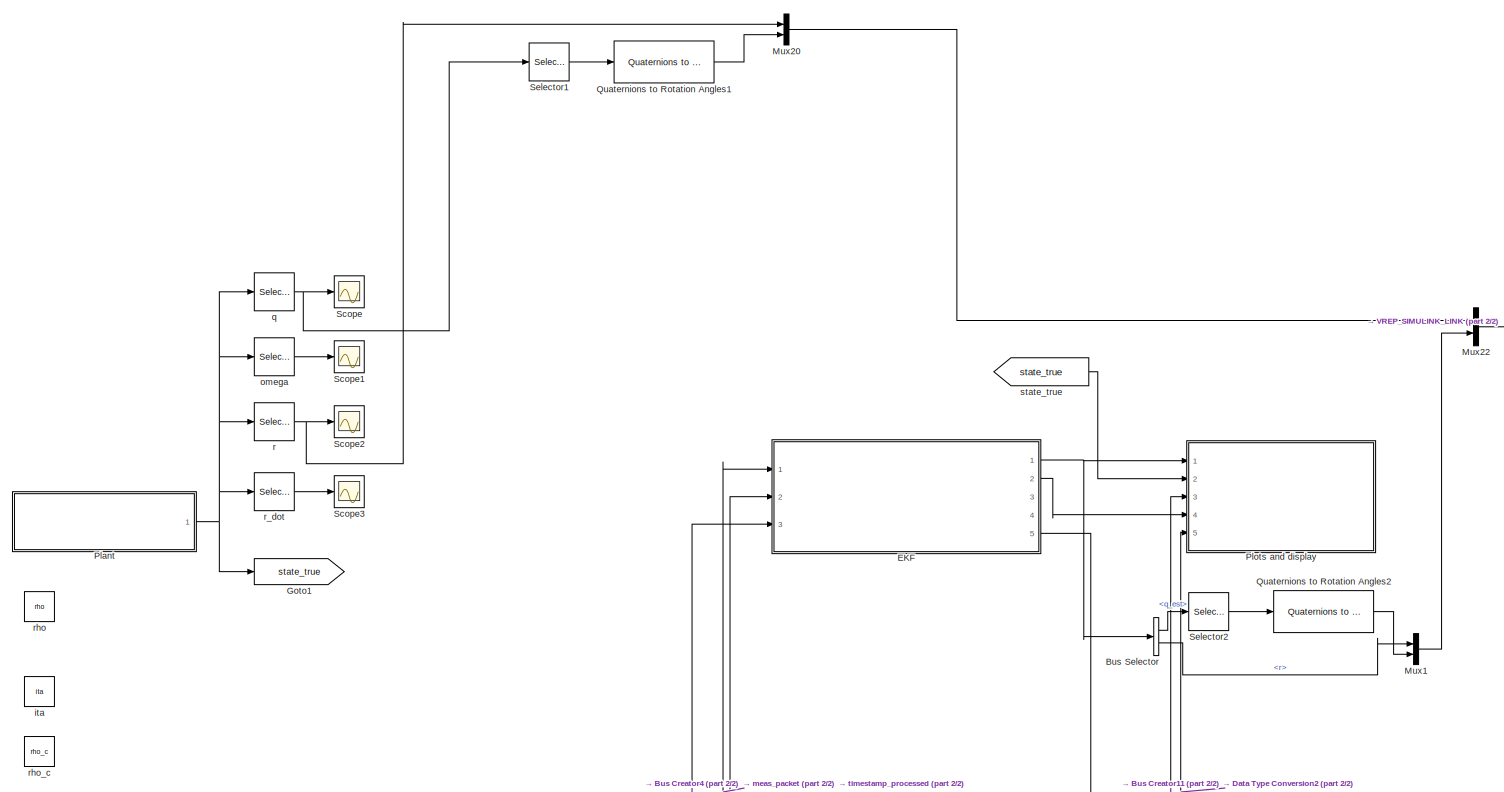
[diagram: root canvas - part 1/2, top center region]
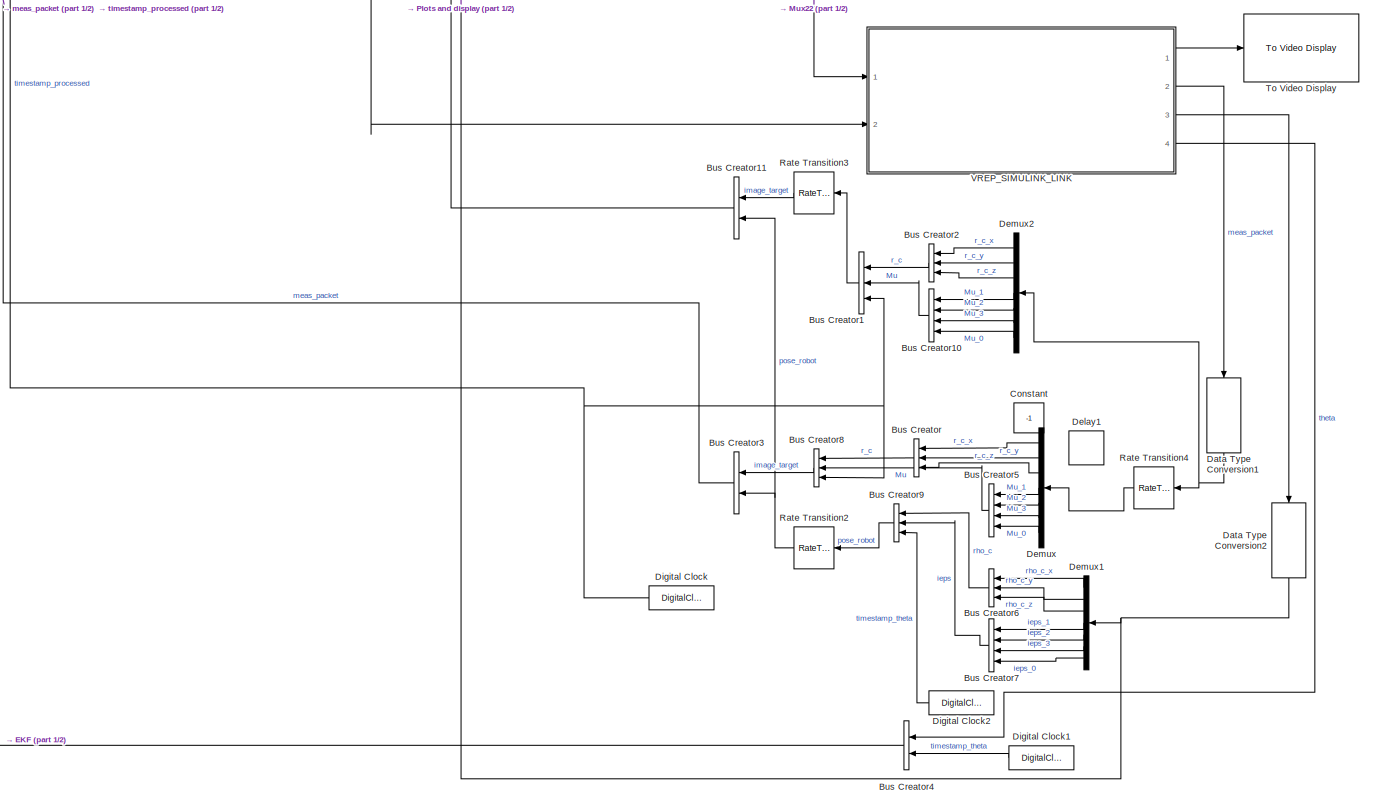
[diagram: root canvas - part 2/2, bottom right region]
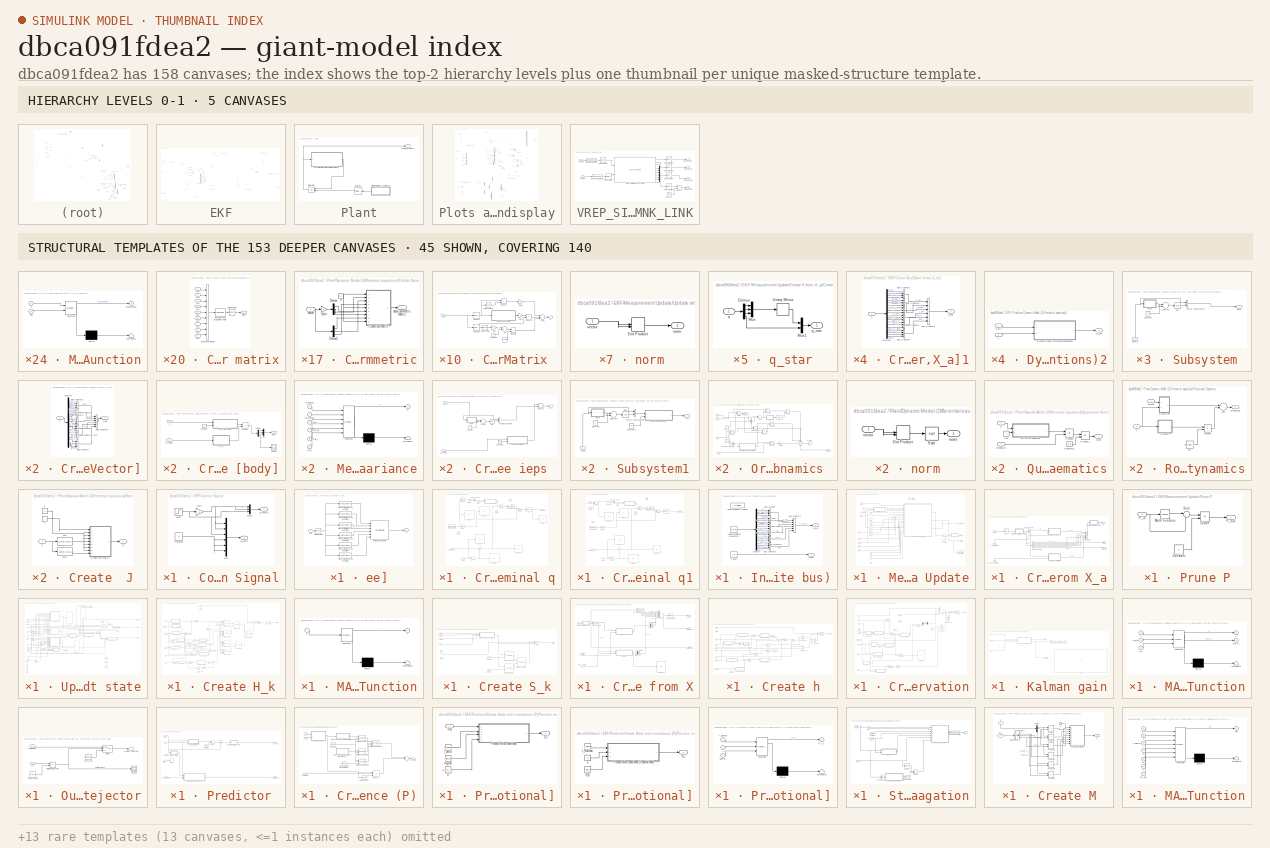
[diagram: thumbnail index - top-2 hierarchy levels (5 canvases) + 45 structural-template representatives of the remaining 153 canvases]
MODEL slx_dbca091fdea2
KIND model
CONFIG AbsTol = auto
CONFIG FixedStep = auto
CONFIG MaxStep = auto
CONFIG MinStep = auto
CONFIG RelTol = 1e-3
CONFIG SampleTimeConstraint = Unconstrained
CONFIG Solver = ode45
CONFIG SolverMode = Auto
CONFIG SolverName = ode45
CONFIG StartTime = 0.0
CONFIG StopTime = totalSimulationTime
WORKSPACE source: external: MATLAB File  (data not in archive)
BLOCK [BusCreator] Bus Creator
  DisplayOption = bar
  Inputs = 3
  Ports = [3, 1]
BLOCK [BusCreator] Bus Creator1
  DisplayOption = bar
  Inputs = 3
  Ports = [3, 1]
BLOCK [BusCreator] Bus Creator10
  DisplayOption = bar
  Ports = [4, 1]
BLOCK [BusCreator] Bus Creator11
  DisplayOption = bar
  Inputs = 2
  Ports = [2, 1]
BLOCK [BusCreator] Bus Creator2
  DisplayOption = bar
  Inputs = 3
  Ports = [3, 1]
BLOCK [BusCreator] Bus Creator3
  DisplayOption = bar
  Inputs = 2
  Ports = [2, 1]
BLOCK [BusCreator] Bus Creator4
  DisplayOption = bar
  Inputs = 2
  Ports = [2, 1]
BLOCK [BusCreator] Bus Creator5
  DisplayOption = bar
  Ports = [4, 1]
BLOCK [BusCreator] Bus Creator6
  DisplayOption = bar
  Inputs = 3
  Ports = [3, 1]
BLOCK [BusCreator] Bus Creator7
  DisplayOption = bar
  Ports = [4, 1]
BLOCK [BusCreator] Bus Creator8
  DisplayOption = bar
  Inputs = 3
  Ports = [3, 1]
BLOCK [BusCreator] Bus Creator9
  DisplayOption = bar
  Inputs = 3
  Ports = [3, 1]
BLOCK [BusSelector] Bus Selector
  OutputSignals = q_est,r
  Ports = [1, 2]
BLOCK [Constant] Constant
  Value = -1
BLOCK [DataTypeConversion] Data Type Conversion1
  RndMeth = Floor
  SaturateOnIntegerOverflow = off
BLOCK [DataTypeConversion] Data Type Conversion2
  RndMeth = Floor
  SaturateOnIntegerOverflow = off
BLOCK [Delay] Delay1
  DelayLength = 19
  InitialCondition = 0
  InputPortMap = u0
  Ports = [1, 1]
  SampleTime = t_Kalman
BLOCK [Demux] Demux
  DisplayOption = bar
  Outputs = 7
  Ports = [1, 7]
BLOCK [Demux] Demux1
  DisplayOption = bar
  Outputs = 7
  Ports = [1, 7]
BLOCK [Demux] Demux2
  DisplayOption = bar
  Outputs = 7
  Ports = [1, 7]
BLOCK [DigitalClock] Digital Clock
  SampleTime = t_delta
BLOCK [DigitalClock] Digital Clock1
  SampleTime = t_Kalman
BLOCK [DigitalClock] Digital Clock2
  SampleTime = t_RobotSense
BLOCK [SubSystem] EKF
  Ports = [3, 5]
  RequestExecContextInheritance = off
  SystemSampleTime = t_Kalman
  TreatAsAtomicUnit = on
BLOCK [BusCreator] EKF/Bus Creator
  DisplayOption = bar
  Inputs = 3
  Ports = [3, 1]
BLOCK [BusCreator] EKF/Bus Creator1
  DisplayOption = bar
  Ports = [4, 1]
BLOCK [BusCreator] EKF/Bus Creator2
  DisplayOption = bar
  Inputs = 2
  Ports = [2, 1]
BLOCK [BusCreator] EKF/Bus Creator3
  DisplayOption = bar
  Inputs = 3
  Ports = [3, 1]
BLOCK [BusCreator] EKF/Bus Creator4
  DisplayOption = bar
  Ports = [4, 1]
BLOCK [BusCreator] EKF/Bus Creator5
  DisplayOption = bar
  Inputs = 2
  Ports = [2, 1]
BLOCK [BusCreator] EKF/Bus Creator6
  DisplayOption = bar
  Ports = [4, 1]
BLOCK [BusSelector] EKF/Bus Selector
  OutputSignals = image_target,pose_robot
  Ports = [1, 2]
BLOCK [BusSelector] EKF/Bus Selector1
  OutputSignals = theta,timestamp_theta
  Ports = [1, 2]
BLOCK [BusSelector] EKF/Bus Selector2
  OutputSignals = r_c,Mu,timestamp_processed
  Ports = [1, 3]
BLOCK [BusSelector] EKF/Bus Selector3
  OutputSignals = rho_c,ieps,timestamp_theta
  Ports = [1, 3]
BLOCK [Constant] EKF/Constant
  Value = 180/pi
BLOCK [SubSystem] EKF/Control Signal
  Ports = [0, 2]
  RequestExecContextInheritance = off
BLOCK [Constant] EKF/Control Signal/Constant
  Value = 0
BLOCK [Gain] EKF/Control Signal/Gain
  Gain = -.5
  OutDataTypeStr = Inherit: Inherit via internal rule
  ParamDataTypeStr = Inherit: Inherit via internal rule
  SaturateOnIntegerOverflow = off
BLOCK [Mux] EKF/Control Signal/Mux
  DisplayOption = bar
  Inputs = 6
  Ports = [6, 1]
BLOCK [Mux] EKF/Control Signal/Mux1
  DisplayOption = bar
  Inputs = 3
  Ports = [3, 1]
BLOCK [Step] EKF/Control Signal/Step
  After = -0.1
  Time = 5
BLOCK [Outport] EKF/Control Signal/d_theta
  IconDisplay = Port number
  Port = 2
BLOCK [Outport] EKF/Control Signal/d_theta_l
  IconDisplay = Port number
BLOCK [SubSystem] EKF/Create Bus [State Vector,X_a]1
  Ports = [1, 1]
  RequestExecContextInheritance = off
BLOCK [BusCreator] EKF/Create Bus [State Vector,X_a]1/Bus Creator1
  DisplayOption = bar
  Inputs = 3
  Ports = [3, 1]
BLOCK [BusCreator] EKF/Create Bus [State Vector,X_a]1/Bus Creator2
  DisplayOption = bar
  Ports = [4, 1]
BLOCK [BusCreator] EKF/Create Bus [State Vector,X_a]1/Bus Creator3
  DisplayOption = bar
  Inputs = 3
  Ports = [3, 1]
BLOCK [BusCreator] EKF/Create Bus [State Vector,X_a]1/Bus Creator4
  DisplayOption = bar
  Inputs = 3
  Ports = [3, 1]
BLOCK [BusCreator] EKF/Create Bus [State Vector,X_a]1/Bus Creator5
  DisplayOption = bar
  Inputs = 3
  Ports = [3, 1]
BLOCK [BusCreator] EKF/Create Bus [State Vector,X_a]1/Bus Creator6
  DisplayOption = bar
  Inputs = 6
  Ports = [6, 1]
BLOCK [BusCreator] EKF/Create Bus [State Vector,X_a]1/Bus Creator7
  DisplayOption = bar
  Ports = [4, 1]
BLOCK [Demux] EKF/Create Bus [State Vector,X_a]1/Demux1
  DisplayOption = bar
  Outputs = 20
  Ports = [1, 20]
BLOCK [Inport] EKF/Create Bus [State Vector,X_a]1/X
  IconDisplay = Port number
BLOCK [Outport] EKF/Create Bus [State Vector,X_a]1/X_bus
  IconDisplay = Port number
BLOCK [SubSystem] EKF/Create Jacobian [b//ee]
  Ports = [1, 1]
  RequestExecContextInheritance = off
BLOCK [MATLABFcn] EKF/Create Jacobian [b//ee]/Interpreted MATLAB Function
  MATLABFcn = J_1
  Ports = [1, 1]
BLOCK [MATLABFcn] EKF/Create Jacobian [b//ee]/Interpreted MATLAB Function1
  MATLABFcn = J_2
  Ports = [1, 1]
BLOCK [MATLABFcn] EKF/Create Jacobian [b//ee]/Interpreted MATLAB Function2
  MATLABFcn = J_3
  Ports = [1, 1]
BLOCK [MATLABFcn] EKF/Create Jacobian [b//ee]/Interpreted MATLAB Function3
  MATLABFcn = J_4
  Ports = [1, 1]
BLOCK [MATLABFcn] EKF/Create Jacobian [b//ee]/Interpreted MATLAB Function4
  MATLABFcn = J_5
  Ports = [1, 1]
BLOCK [MATLABFcn] EKF/Create Jacobian [b//ee]/Interpreted MATLAB Function5
  MATLABFcn = J_6
  Ports = [1, 1]
BLOCK [Outport] EKF/Create Jacobian [b//ee]/J
  IconDisplay = Port number
BLOCK [Math] EKF/Create Jacobian [b//ee]/Math Function
  Operator = transpose
  Ports = [1, 1]
BLOCK [Concatenate] EKF/Create Jacobian [b//ee]/Matrix Concatenate
  ConcatenateDimension = 2
  Mode = Multidimensional array
  NumInputs = 6
  Ports = [6, 1]
BLOCK [Inport] EKF/Create Jacobian [b//ee]/theta
  IconDisplay = Port number
BLOCK [SubSystem] EKF/Create nominal q
  Ports = [1, 1, 0, 1]
  RequestExecContextInheritance = off
  TreatAsAtomicUnit = on
BLOCK [Constant] EKF/Create nominal q/Constant
  Value = [0]
BLOCK [DataStoreRead] EKF/Create nominal q/Data Store Read
  DataStoreElements = lastUpdate_X_a
  DataStoreName = lastUpdate_X_a
  DialogController = Simulink.DDGSource
  Ports = [0, 1]
BLOCK [Delay] EKF/Create nominal q/Delay1
  DelayLength = 1
  InitialCondition = 0
  InitialConditionSource = Input port
  InputPortMap = u0,p4
  Ports = [2, 1]
BLOCK [Display] EKF/Create nominal q/Display
  Decimation = 1
  Ports = [1]
BLOCK [Display] EKF/Create nominal q/Display1
  Decimation = 1
  Ports = [1]
BLOCK [Display] EKF/Create nominal q/Display2
  Decimation = 1
  Ports = [1]
BLOCK [Display] EKF/Create nominal q/Display3
  Decimation = 1
  Ports = [1]
BLOCK [Display] EKF/Create nominal q/Display4
  Decimation = 1
  Ports = [1]
BLOCK [Display] EKF/Create nominal q/Display5
  Decimation = 1
  Ports = [1]
BLOCK [Gain] EKF/Create nominal q/Gain
  Gain = 0.5
  OutDataTypeStr = Inherit: Inherit via internal rule
  ParamDataTypeStr = Inherit: Inherit via internal rule
  SaturateOnIntegerOverflow = off
BLOCK [InitialCondition] EKF/Create nominal q/IC1
  Value = X_a_0(1:4)
BLOCK [SubSystem] EKF/Create nominal q/MATLAB Function
  ErrorFcn = Stateflow.Translate.translate
  PermitHierarchicalResolution = ExplicitOnly
  Ports = [2, 1]
  RequestExecContextInheritance = off
  SFBlockType = MATLAB Function
  TreatAsAtomicUnit = on
BLOCK [Demux] EKF/Create nominal q/MATLAB Function/ Demux 
  Outputs = 1
  Ports = [1, 1]
BLOCK [S-Function] EKF/Create nominal q/MATLAB Function/ SFunction 
  EnableBusSupport = on
  FunctionName = sf_sfun
  PortCounts = [2 2]
  Ports = [2, 2]
  Tag = Stateflow S-Function EKF_SIL_02_newdelIps 4
BLOCK [Terminator] EKF/Create nominal q/MATLAB Function/ Terminator 
BLOCK [Outport] EKF/Create nominal q/MATLAB Function/CrossTensor
  IconDisplay = Port number
BLOCK [Inport] EKF/Create nominal q/MATLAB Function/flag
  IconDisplay = Port number
  Port = 2
BLOCK [Inport] EKF/Create nominal q/MATLAB Function/q
  IconDisplay = Port number
BLOCK [Reference] EKF/Create nominal q/Matrix Exponential  REF=dspmtrx3/Matrix
Exponential
  Ports = [1, 1]
  SourceBlock = dspmtrx3/Matrix\nExponential
  SourceType = Matrix Exponential
BLOCK [Product] EKF/Create nominal q/Product
  InputSameDT = off
  OutDataTypeStr = Inherit: Inherit via internal rule
  Ports = [2, 1]
  RndMeth = Floor
  SaturateOnIntegerOverflow = off
BLOCK [Product] EKF/Create nominal q/Product1
  InputSameDT = off
  Multiplication = Matrix(*)
  OutDataTypeStr = Inherit: Inherit via internal rule
  Ports = [2, 1]
  RndMeth = Floor
  SaturateOnIntegerOverflow = off
BLOCK [Selector] EKF/Create nominal q/Selector
  Indices = [1:4]
  InputPortWidth = 20
  Ports = [1, 1]
BLOCK [Selector] EKF/Create nominal q/Selector1
  Indices = [5:7]
  InputPortWidth = 20
  Ports = [1, 1]
BLOCK [Sum] EKF/Create nominal q/Sum
  IconShape = round
  InputSameDT = off
  Inputs = |+-
  OutDataTypeStr = Inherit: Inherit via internal rule
  Ports = [2, 1]
  SaturateOnIntegerOverflow = off
BLOCK [TriggerPort] EKF/Create nominal q/Trigger
  PortDimensions = 1
  Ports = []
  StatesWhenEnabling = held
BLOCK [Concatenate] EKF/Create nominal q/Vector Concatenate
  Ports = [2, 1]
BLOCK [Constant] EKF/Create nominal q/flag
  Value = 0
BLOCK [Constant] EKF/Create nominal q/q(0)
  Value = X_a_0(1:4)
BLOCK [Outport] EKF/Create nominal q/q_nominal
  IconDisplay = Port number
BLOCK [Constant] EKF/Create nominal q/t_begin
  Value = 0
BLOCK [Constant] EKF/Create nominal q/t_delta 
  Value = t_delta
BLOCK [Inport] EKF/Create nominal q/timestamp_meas
  IconDisplay = Port number
BLOCK [SubSystem] EKF/Create nominal q1
  Ports = [3, 1, 0, 1]
  RequestExecContextInheritance = off
  TreatAsAtomicUnit = on
BLOCK [Constant] EKF/Create nominal q1/Constant
  Value = [0]
BLOCK [DataStoreRead] EKF/Create nominal q1/Data Store Read
  DataStoreElements = lastUpdate_X_a
  DataStoreName = lastUpdate_X_a
  DialogController = Simulink.DDGSource
  Ports = [0, 1]
BLOCK [Delay] EKF/Create nominal q1/Delay1
  DelayLength = 1
  InitialCondition = 0
  InitialConditionSource = Input port
  InputPortMap = u0,p4
  Ports = [2, 1]
BLOCK [Delay] EKF/Create nominal q1/Delay2
  DelayLength = 1
  InitialCondition = 0
  InitialConditionSource = Input port
  InputPortMap = u0,p4
  Ports = [2, 1]
BLOCK [Display] EKF/Create nominal q1/Display1
  Decimation = 1
  Ports = [1]
BLOCK [Display] EKF/Create nominal q1/Display2
  Decimation = 1
  Ports = [1]
BLOCK [Display] EKF/Create nominal q1/Display3
  Decimation = 1
  Ports = [1]
BLOCK [Display] EKF/Create nominal q1/Display4
  Decimation = 1
  Ports = [1]
BLOCK [Display] EKF/Create nominal q1/Display5
  Decimation = 1
  Ports = [1]
BLOCK [Gain] EKF/Create nominal q1/Gain
  Gain = 0.5
  OutDataTypeStr = Inherit: Inherit via internal rule
  ParamDataTypeStr = Inherit: Inherit via internal rule
  SaturateOnIntegerOverflow = off
BLOCK [InitialCondition] EKF/Create nominal q1/IC1
  Value = X_a_0(17:20)
BLOCK [SubSystem] EKF/Create nominal q1/MATLAB Function
  ErrorFcn = Stateflow.Translate.translate
  PermitHierarchicalResolution = ExplicitOnly
  Ports = [2, 1]
  RequestExecContextInheritance = off
  SFBlockType = MATLAB Function
  TreatAsAtomicUnit = on
BLOCK [Demux] EKF/Create nominal q1/MATLAB Function/ Demux 
  Outputs = 1
  Ports = [1, 1]
BLOCK [S-Function] EKF/Create nominal q1/MATLAB Function/ SFunction 
  EnableBusSupport = on
  FunctionName = sf_sfun
  PortCounts = [2 2]
  Ports = [2, 2]
  Tag = Stateflow S-Function EKF_SIL_02_newdelIps 39
BLOCK [Terminator] EKF/Create nominal q1/MATLAB Function/ Terminator 
BLOCK [Outport] EKF/Create nominal q1/MATLAB Function/CrossTensor
  IconDisplay = Port number
BLOCK [Inport] EKF/Create nominal q1/MATLAB Function/flag
  IconDisplay = Port number
  Port = 2
BLOCK [Inport] EKF/Create nominal q1/MATLAB Function/q
  IconDisplay = Port number
BLOCK [Reference] EKF/Create nominal q1/Matrix Exponential  REF=dspmtrx3/Matrix
Exponential
  Ports = [1, 1]
  SourceBlock = dspmtrx3/Matrix\nExponential
  SourceType = Matrix Exponential
BLOCK [Product] EKF/Create nominal q1/Product
  InputSameDT = off
  OutDataTypeStr = Inherit: Inherit via internal rule
  Ports = [2, 1]
  RndMeth = Floor
  SaturateOnIntegerOverflow = off
BLOCK [Product] EKF/Create nominal q1/Product1
  InputSameDT = off
  Multiplication = Matrix(*)
  OutDataTypeStr = Inherit: Inherit via internal rule
  Ports = [2, 1]
  RndMeth = Floor
  SaturateOnIntegerOverflow = off
BLOCK [Selector] EKF/Create nominal q1/Selector
  Indices = [17:20]
  InputPortWidth = 20
  Ports = [1, 1]
BLOCK [Sum] EKF/Create nominal q1/Sum
  IconShape = round
  InputSameDT = off
  Inputs = |+-
  OutDataTypeStr = Inherit: Inherit via internal rule
  Ports = [2, 1]
  SaturateOnIntegerOverflow = off
BLOCK [TriggerPort] EKF/Create nominal q1/Trigger
  PortDimensions = 1
  Ports = []
  StatesWhenEnabling = held
BLOCK [Concatenate] EKF/Create nominal q1/Vector Concatenate
  Ports = [2, 1]
BLOCK [Inport] EKF/Create nominal q1/X_a
  IconDisplay = Port number
  Port = 3
BLOCK [Constant] EKF/Create nominal q1/flag
BLOCK [Outport] EKF/Create nominal q1/ieps_nominal
  IconDisplay = Port number
BLOCK [Inport] EKF/Create nominal q1/omega_robot
  IconDisplay = Port number
  Port = 2
BLOCK [Constant] EKF/Create nominal q1/t_begin
  Value = 0
BLOCK [Constant] EKF/Create nominal q1/t_begin1
  Value = [0;0;0]
BLOCK [Constant] EKF/Create nominal q1/t_delta 
  Value = t_delta
BLOCK [Inport] EKF/Create nominal q1/timestamp_meas
  IconDisplay = Port number
BLOCK [DataStoreWrite] EKF/Data Store Write
  DataStoreName = flag_queue
  Ports = [1]
BLOCK [DataStoreWrite] EKF/Data Store Write3
  DataStoreName = last_update_timestamp
  Ports = [1]
BLOCK [DataTypeConversion] EKF/Data Type Conversion
  LockScale = on
  OutDataTypeStr = double
  RndMeth = Floor
  SaturateOnIntegerOverflow = off
BLOCK [Delay] EKF/Delay
  DelayLength = 1
  InitialCondition = 0
  InputPortMap = u0
  Ports = [1, 1]
BLOCK [Delay] EKF/Delay(P)
  DelayLength = 1
  InitialCondition = 0
  InitialConditionSource = Input port
  InputPortMap = u0,p4
  Ports = [2, 1]
  SampleTime = t_Kalman
BLOCK [Delay] EKF/Delay(X_a)
  DelayLength = 1
  InitialCondition = 0
  InitialConditionSource = Input port
  InputPortMap = u0,p4
  Ports = [2, 1]
  SampleTime = t_Kalman
BLOCK [Demux] EKF/Demux
  DisplayOption = bar
  Outputs = 14
  Ports = [1, 14]
BLOCK [Display] EKF/Display
  Decimation = 1
  Ports = [1]
BLOCK [InitialCondition] EKF/IC
  Value = 0
BLOCK [SubSystem] EKF/Initial Conditions (create bus)
  Ports = [0, 2]
  RequestExecContextInheritance = off
BLOCK [BusCreator] EKF/Initial Conditions (create bus)/Bus Creator
  DisplayOption = bar
  Ports = [4, 1]
BLOCK [BusCreator] EKF/Initial Conditions (create bus)/Bus Creator1
  DisplayOption = bar
  Inputs = 3
  Ports = [3, 1]
BLOCK [BusCreator] EKF/Initial Conditions (create bus)/Bus Creator2
  DisplayOption = bar
  Inputs = 3
  Ports = [3, 1]
BLOCK [BusCreator] EKF/Initial Conditions (create bus)/Bus Creator3
  DisplayOption = bar
  Inputs = 3
  Ports = [3, 1]
BLOCK [BusCreator] EKF/Initial Conditions (create bus)/Bus Creator4
  DisplayOption = bar
  Inputs = 6
  Ports = [6, 1]
BLOCK [BusCreator] EKF/Initial Conditions (create bus)/Bus Creator5
  DisplayOption = bar
  Inputs = 3
  Ports = [3, 1]
BLOCK [BusCreator] EKF/Initial Conditions (create bus)/Bus Creator6
  DisplayOption = bar
  Ports = [4, 1]
BLOCK [Demux] EKF/Initial Conditions (create bus)/Demux
  DisplayOption = bar
  Outputs = 20
  Ports = [1, 20]
BLOCK [FromFile] EKF/Initial Conditions (create bus)/Initial conditions (known)
  FileName = X_a_0_Model_02.mat
BLOCK [Constant] EKF/Initial Conditions (create bus)/Initial conditions (null vector)
  Value = [X_a_0]
BLOCK [Constant] EKF/Initial Conditions (create bus)/P_post
  Value = P_0
  VectorParams1D = off
BLOCK [Outport] EKF/Initial Conditions (create bus)/P_post 
  IconDisplay = Port number
  Port = 2
BLOCK [Outport] EKF/Initial Conditions (create bus)/X_a(0) 
  IconDisplay = Port number
BLOCK [SubSystem] EKF/Measurement Update
  Ports = [14, 3, 1]
  RequestExecContextInheritance = off
  TreatAsAtomicUnit = on
BLOCK [SubSystem] EKF/Measurement Update/Create X from X_a
  Ports = [3, 3]
  RequestExecContextInheritance = off
BLOCK [BusCreator] EKF/Measurement Update/Create X from X_a/Bus Creator1
  DisplayOption = bar
  Inputs = 6
  Ports = [6, 1]
BLOCK [BusSelector] EKF/Measurement Update/Create X from X_a/Bus Selector3
  OutputSignals = q_est,omega,r,r_dot,rho_c,ieps
  Ports = [1, 6]
BLOCK [BusSelector] EKF/Measurement Update/Create X from X_a/Bus Selector5
  OutputSignals = q_est,ieps
  Ports = [1, 2]
BLOCK [SubSystem] EKF/Measurement Update/Create X from X_a/Create Bus [State Vector,X_a]
  Ports = [1, 1]
  RequestExecContextInheritance = off
BLOCK [BusCreator] EKF/Measurement Update/Create X from X_a/Create Bus [State Vector,X_a]/Bus Creator1
  DisplayOption = bar
  Inputs = 3
  Ports = [3, 1]
BLOCK [BusCreator] EKF/Measurement Update/Create X from X_a/Create Bus [State Vector,X_a]/Bus Creator2
  DisplayOption = bar
  Ports = [4, 1]
BLOCK [BusCreator] EKF/Measurement Update/Create X from X_a/Create Bus [State Vector,X_a]/Bus Creator3
  DisplayOption = bar
  Inputs = 3
  Ports = [3, 1]
BLOCK [BusCreator] EKF/Measurement Update/Create X from X_a/Create Bus [State Vector,X_a]/Bus Creator4
  DisplayOption = bar
  Inputs = 3
  Ports = [3, 1]
BLOCK [BusCreator] EKF/Measurement Update/Create X from X_a/Create Bus [State Vector,X_a]/Bus Creator5
  DisplayOption = bar
  Inputs = 3
  Ports = [3, 1]
BLOCK [BusCreator] EKF/Measurement Update/Create X from X_a/Create Bus [State Vector,X_a]/Bus Creator6
  DisplayOption = bar
  Inputs = 6
  Ports = [6, 1]
BLOCK [BusCreator] EKF/Measurement Update/Create X from X_a/Create Bus [State Vector,X_a]/Bus Creator7
  DisplayOption = bar
  Ports = [4, 1]
BLOCK [Demux] EKF/Measurement Update/Create X from X_a/Create Bus [State Vector,X_a]/Demux1
  DisplayOption = bar
  Outputs = 20
  Ports = [1, 20]
BLOCK [Inport] EKF/Measurement Update/Create X from X_a/Create Bus [State Vector,X_a]/X
  IconDisplay = Port number
BLOCK [Outport] EKF/Measurement Update/Create X from X_a/Create Bus [State Vector,X_a]/X_bus
  IconDisplay = Port number
BLOCK [SubSystem] EKF/Measurement Update/Create X from X_a/Create Bus [State Vector]
  Ports = [1, 1]
  RequestExecContextInheritance = off
BLOCK [BusCreator] EKF/Measurement Update/Create X from X_a/Create Bus [State Vector]/Bus Creator1
  DisplayOption = bar
  Inputs = 3
  Ports = [3, 1]
BLOCK [BusCreator] EKF/Measurement Update/Create X from X_a/Create Bus [State Vector]/Bus Creator2
  DisplayOption = bar
  Inputs = 3
  Ports = [3, 1]
BLOCK [BusCreator] EKF/Measurement Update/Create X from X_a/Create Bus [State Vector]/Bus Creator3
  DisplayOption = bar
  Inputs = 3
  Ports = [3, 1]
BLOCK [BusCreator] EKF/Measurement Update/Create X from X_a/Create Bus [State Vector]/Bus Creator4
  DisplayOption = bar
  Inputs = 3
  Ports = [3, 1]
BLOCK [BusCreator] EKF/Measurement Update/Create X from X_a/Create Bus [State Vector]/Bus Creator5
  DisplayOption = bar
  Inputs = 3
  Ports = [3, 1]
BLOCK [BusCreator] EKF/Measurement Update/Create X from X_a/Create Bus [State Vector]/Bus Creator6
  DisplayOption = bar
  Inputs = 6
  Ports = [6, 1]
BLOCK [BusCreator] EKF/Measurement Update/Create X from X_a/Create Bus [State Vector]/Bus Creator7
  DisplayOption = bar
  Inputs = 3
  Ports = [3, 1]
BLOCK [Demux] EKF/Measurement Update/Create X from X_a/Create Bus [State Vector]/Demux1
  DisplayOption = bar
  Outputs = 18
  Ports = [1, 18]
BLOCK [Inport] EKF/Measurement Update/Create X from X_a/Create Bus [State Vector]/X
  IconDisplay = Port number
BLOCK [Outport] EKF/Measurement Update/Create X from X_a/Create Bus [State Vector]/X_bus
  IconDisplay = Port number
BLOCK [SubSystem] EKF/Measurement Update/Create X from X_a/Create del_q [body]
  Ports = [2, 1]
  RequestExecContextInheritance = off
BLOCK [Constant] EKF/Measurement Update/Create X from X_a/Create del_q [body]/Constant
  Value = 0
BLOCK [Demux] EKF/Measurement Update/Create X from X_a/Create del_q [body]/Demux
  DisplayOption = bar
  Ports = [1, 4]
BLOCK [SubSystem] EKF/Measurement Update/Create X from X_a/Create del_q [body]/MATLAB Function
  ErrorFcn = Stateflow.Translate.translate
  PermitHierarchicalResolution = ExplicitOnly
  Ports = [2, 1]
  RequestExecContextInheritance = off
  SFBlockType = MATLAB Function
  TreatAsAtomicUnit = on
BLOCK [Demux] EKF/Measurement Update/Create X from X_a/Create del_q [body]/MATLAB Function/ Demux 
  Outputs = 1
  Ports = [1, 1]
BLOCK [S-Function] EKF/Measurement Update/Create X from X_a/Create del_q [body]/MATLAB Function/ SFunction 
  EnableBusSupport = on
  FunctionName = sf_sfun
  PortCounts = [2 2]
  Ports = [2, 2]
  Tag = Stateflow S-Function EKF_SIL_02_newdelIps 5
BLOCK [Terminator] EKF/Measurement Update/Create X from X_a/Create del_q [body]/MATLAB Function/ Terminator 
BLOCK [Outport] EKF/Measurement Update/Create X from X_a/Create del_q [body]/MATLAB Function/CrossTensor
  IconDisplay = Port number
BLOCK [Inport] EKF/Measurement Update/Create X from X_a/Create del_q [body]/MATLAB Function/flag
  IconDisplay = Port number
  Port = 2
BLOCK [Inport] EKF/Measurement Update/Create X from X_a/Create del_q [body]/MATLAB Function/q
  IconDisplay = Port number
BLOCK [Mux] EKF/Measurement Update/Create X from X_a/Create del_q [body]/Mux
  DisplayOption = bar
  Inputs = 3
  Ports = [3, 1]
BLOCK [Product] EKF/Measurement Update/Create X from X_a/Create del_q [body]/Product
  InputSameDT = off
  Multiplication = Matrix(*)
  OutDataTypeStr = Inherit: Inherit via internal rule
  Ports = [2, 1]
  RndMeth = Floor
  SaturateOnIntegerOverflow = off
BLOCK [Scope] EKF/Measurement Update/Create X from X_a/Create del_q [body]/Scope
  DataFormat = StructureWithTime
  Floating = off
  NumInputPorts = 1
  Ports = [1]
  SampleTime = 0
  SaveName = ScopeData6
BLOCK [Outport] EKF/Measurement Update/Create X from X_a/Create del_q [body]/del_q
  IconDisplay = Port number
BLOCK [Inport] EKF/Measurement Update/Create X from X_a/Create del_q [body]/q
  IconDisplay = Port number
BLOCK [Inport] EKF/Measurement Update/Create X from X_a/Create del_q [body]/q_nominal
  IconDisplay = Port number
  Port = 2
BLOCK [SubSystem] EKF/Measurement Update/Create X from X_a/Create del_q [body]/q_star
  Ports = [1, 1]
  RequestExecContextInheritance = off
BLOCK [Demux] EKF/Measurement Update/Create X from X_a/Create del_q [body]/q_star/Demux
  DisplayOption = bar
  Ports = [1, 4]
BLOCK [Mux] EKF/Measurement Update/Create X from X_a/Create del_q [body]/q_star/Mux
  DisplayOption = bar
  Inputs = 3
  Ports = [3, 1]
BLOCK [Mux] EKF/Measurement Update/Create X from X_a/Create del_q [body]/q_star/Mux1
  DisplayOption = bar
  Inputs = 2
  Ports = [2, 1]
BLOCK [UnaryMinus] EKF/Measurement Update/Create X from X_a/Create del_q [body]/q_star/Unary Minus
BLOCK [Inport] EKF/Measurement Update/Create X from X_a/Create del_q [body]/q_star/q
  IconDisplay = Port number
BLOCK [Outport] EKF/Measurement Update/Create X from X_a/Create del_q [body]/q_star/q_star
  IconDisplay = Port number
BLOCK [SubSystem] EKF/Measurement Update/Create X from X_a/Create del_q [inertial]
  Ports = [2, 1]
  RequestExecContextInheritance = off
BLOCK [Constant] EKF/Measurement Update/Create X from X_a/Create del_q [inertial]/Constant
  Value = 0
BLOCK [Demux] EKF/Measurement Update/Create X from X_a/Create del_q [inertial]/Demux
  DisplayOption = bar
  Ports = [1, 4]
BLOCK [SubSystem] EKF/Measurement Update/Create X from X_a/Create del_q [inertial]/MATLAB Function
  ErrorFcn = Stateflow.Translate.translate
  PermitHierarchicalResolution = ExplicitOnly
  Ports = [2, 1]
  RequestExecContextInheritance = off
  SFBlockType = MATLAB Function
  TreatAsAtomicUnit = on
BLOCK [Demux] EKF/Measurement Update/Create X from X_a/Create del_q [inertial]/MATLAB Function/ Demux 
  Outputs = 1
  Ports = [1, 1]
BLOCK [S-Function] EKF/Measurement Update/Create X from X_a/Create del_q [inertial]/MATLAB Function/ SFunction 
  EnableBusSupport = on
  FunctionName = sf_sfun
  PortCounts = [2 2]
  Ports = [2, 2]
  Tag = Stateflow S-Function EKF_SIL_02_newdelIps 38
BLOCK [Terminator] EKF/Measurement Update/Create X from X_a/Create del_q [inertial]/MATLAB Function/ Terminator 
BLOCK [Outport] EKF/Measurement Update/Create X from X_a/Create del_q [inertial]/MATLAB Function/CrossTensor
  IconDisplay = Port number
BLOCK [Inport] EKF/Measurement Update/Create X from X_a/Create del_q [inertial]/MATLAB Function/flag
  IconDisplay = Port number
  Port = 2
BLOCK [Inport] EKF/Measurement Update/Create X from X_a/Create del_q [inertial]/MATLAB Function/q
  IconDisplay = Port number
BLOCK [Mux] EKF/Measurement Update/Create X from X_a/Create del_q [inertial]/Mux
  DisplayOption = bar
  Inputs = 3
  Ports = [3, 1]
BLOCK [Product] EKF/Measurement Update/Create X from X_a/Create del_q [inertial]/Product
  InputSameDT = off
  Multiplication = Matrix(*)
  OutDataTypeStr = Inherit: Inherit via internal rule
  Ports = [2, 1]
  RndMeth = Floor
  SaturateOnIntegerOverflow = off
BLOCK [Scope] EKF/Measurement Update/Create X from X_a/Create del_q [inertial]/Scope
  DataFormat = StructureWithTime
  Floating = off
  NumInputPorts = 1
  Ports = [1]
  SampleTime = 0
  SaveName = ScopeData6
BLOCK [Outport] EKF/Measurement Update/Create X from X_a/Create del_q [inertial]/del_q
  IconDisplay = Port number
BLOCK [Inport] EKF/Measurement Update/Create X from X_a/Create del_q [inertial]/q
  IconDisplay = Port number
BLOCK [Inport] EKF/Measurement Update/Create X from X_a/Create del_q [inertial]/q_nominal
  IconDisplay = Port number
  Port = 2
BLOCK [SubSystem] EKF/Measurement Update/Create X from X_a/Create del_q [inertial]/q_star
  Ports = [1, 1]
  RequestExecContextInheritance = off
BLOCK [Demux] EKF/Measurement Update/Create X from X_a/Create del_q [inertial]/q_star/Demux
  DisplayOption = bar
  Ports = [1, 4]
BLOCK [Mux] EKF/Measurement Update/Create X from X_a/Create del_q [inertial]/q_star/Mux
  DisplayOption = bar
  Inputs = 3
  Ports = [3, 1]
BLOCK [Mux] EKF/Measurement Update/Create X from X_a/Create del_q [inertial]/q_star/Mux1
  DisplayOption = bar
  Inputs = 2
  Ports = [2, 1]
BLOCK [UnaryMinus] EKF/Measurement Update/Create X from X_a/Create del_q [inertial]/q_star/Unary Minus
BLOCK [Inport] EKF/Measurement Update/Create X from X_a/Create del_q [inertial]/q_star/q
  IconDisplay = Port number
BLOCK [Outport] EKF/Measurement Update/Create X from X_a/Create del_q [inertial]/q_star/q_star
  IconDisplay = Port number
BLOCK [InitialCondition] EKF/Measurement Update/Create X from X_a/IC
  Value = [X_a_0]
BLOCK [Outport] EKF/Measurement Update/Create X from X_a/X(k)
  IconDisplay = Port number
BLOCK [Inport] EKF/Measurement Update/Create X from X_a/X_a(k)
  IconDisplay = Port number
BLOCK [Outport] EKF/Measurement Update/Create X from X_a/ieps(k)
  IconDisplay = Port number
  Port = 3
BLOCK [Inport] EKF/Measurement Update/Create X from X_a/ieps_nominal
  IconDisplay = Port number
  Port = 3
BLOCK [Outport] EKF/Measurement Update/Create X from X_a/q(k)
  IconDisplay = Port number
  Port = 2
BLOCK [Inport] EKF/Measurement Update/Create X from X_a/q_nominal(k)
  IconDisplay = Port number
  Port = 2
BLOCK [DataStoreWrite] EKF/Measurement Update/Data Store Write
  DataStoreName = lastUpdate_X_a
  DialogController = Simulink.DDGSource
  Ports = [1]
BLOCK [EnablePort] EKF/Measurement Update/Enable
  Ports = [0, 1]
  PropagateVarSize = During execution
  ShowOutputPort = on
BLOCK [ManualSwitch] EKF/Measurement Update/Manual Switch
BLOCK [ManualSwitch] EKF/Measurement Update/Manual Switch1
BLOCK [Inport] EKF/Measurement Update/P_d
  IconDisplay = Port number
  Port = 7
BLOCK [Outport] EKF/Measurement Update/P_post
  IconDisplay = Port number
BLOCK [Inport] EKF/Measurement Update/P_pre
  IconDisplay = Port number
  Port = 2
BLOCK [Inport] EKF/Measurement Update/Phi
  IconDisplay = Port number
  Port = 14
BLOCK [SubSystem] EKF/Measurement Update/Prune P
  Ports = [1, 1]
  RequestExecContextInheritance = off
BLOCK [Constant] EKF/Measurement Update/Prune P/Constant
  Value = 2
BLOCK [Product] EKF/Measurement Update/Prune P/Divide
  InputSameDT = off
  Inputs = */
  OutDataTypeStr = Inherit: Inherit via internal rule
  Ports = [2, 1]
  RndMeth = Floor
  SaturateOnIntegerOverflow = off
BLOCK [Math] EKF/Measurement Update/Prune P/Math Function
  Operator = transpose
  Ports = [1, 1]
BLOCK [Inport] EKF/Measurement Update/Prune P/P_in
  IconDisplay = Port number
BLOCK [Outport] EKF/Measurement Update/Prune P/P_out
  IconDisplay = Port number
BLOCK [Sum] EKF/Measurement Update/Prune P/Sum
  IconShape = round
  InputSameDT = off
  Inputs = |++
  OutDataTypeStr = Inherit: Inherit via internal rule
  Ports = [2, 1]
  SaturateOnIntegerOverflow = off
BLOCK [Scope] EKF/Measurement Update/Scope4
  Floating = off
  NumInputPorts = 1
  Ports = [1]
  SaveName = ScopeData27
  YMax = 1
  YMin = 0
BLOCK [Inport] EKF/Measurement Update/Signal
  IconDisplay = Port number
  Port = 3
BLOCK [Inport] EKF/Measurement Update/Signal_b
  IconDisplay = Port number
  Port = 10
BLOCK [Inport] EKF/Measurement Update/Trigger_1
  IconDisplay = Port number
  Port = 11
BLOCK [Inport] EKF/Measurement Update/Trigger_2
  IconDisplay = Port number
  Port = 12
BLOCK [Inport] EKF/Measurement Update/UF
  IconDisplay = Port number
  Port = 13
BLOCK [Inport] EKF/Measurement Update/U_n_d
  IconDisplay = Port number
  Port = 8
BLOCK [SubSystem] EKF/Measurement Update/Update with K(k) and predict current state
  Ports = [18, 3]
  RequestExecContextInheritance = off
BLOCK [Sum] EKF/Measurement Update/Update with K(k) and predict current state/Add
  InputSameDT = off
  Inputs = +-
  OutDataTypeStr = Inherit: Inherit via internal rule
  Ports = [2, 1]
  SaturateOnIntegerOverflow = off
BLOCK [Sum] EKF/Measurement Update/Update with K(k) and predict current state/Add1
  InputSameDT = off
  OutDataTypeStr = Inherit: Inherit via internal rule
  Ports = [2, 1]
  SaturateOnIntegerOverflow = off
BLOCK [Sum] EKF/Measurement Update/Update with K(k) and predict current state/Add2
  InputSameDT = off
  Inputs = +-
  OutDataTypeStr = Inherit: Inherit via internal rule
  Ports = [2, 1]
  SaturateOnIntegerOverflow = off
BLOCK [BusSelector] EKF/Measurement Update/Update with K(k) and predict current state/Bus Selector
  OutputSignals = r_c,Mu
  Ports = [1, 2]
BLOCK [BusSelector] EKF/Measurement Update/Update with K(k) and predict current state/Bus Selector1
  OutputSignals = del_q,r,rho_c,del_ips
  Ports = [1, 4]
BLOCK [BusSelector] EKF/Measurement Update/Update with K(k) and predict current state/Bus Selector2
  OutputSignals = rho_c,ieps
  Ports = [1, 2]
BLOCK [Inport] EKF/Measurement Update/Update with K(k) and predict current state/Cov_nu
  IconDisplay = Port number
  Port = 7
BLOCK [Inport] EKF/Measurement Update/Update with K(k) and predict current state/Cov_r
  IconDisplay = Port number
  Port = 6
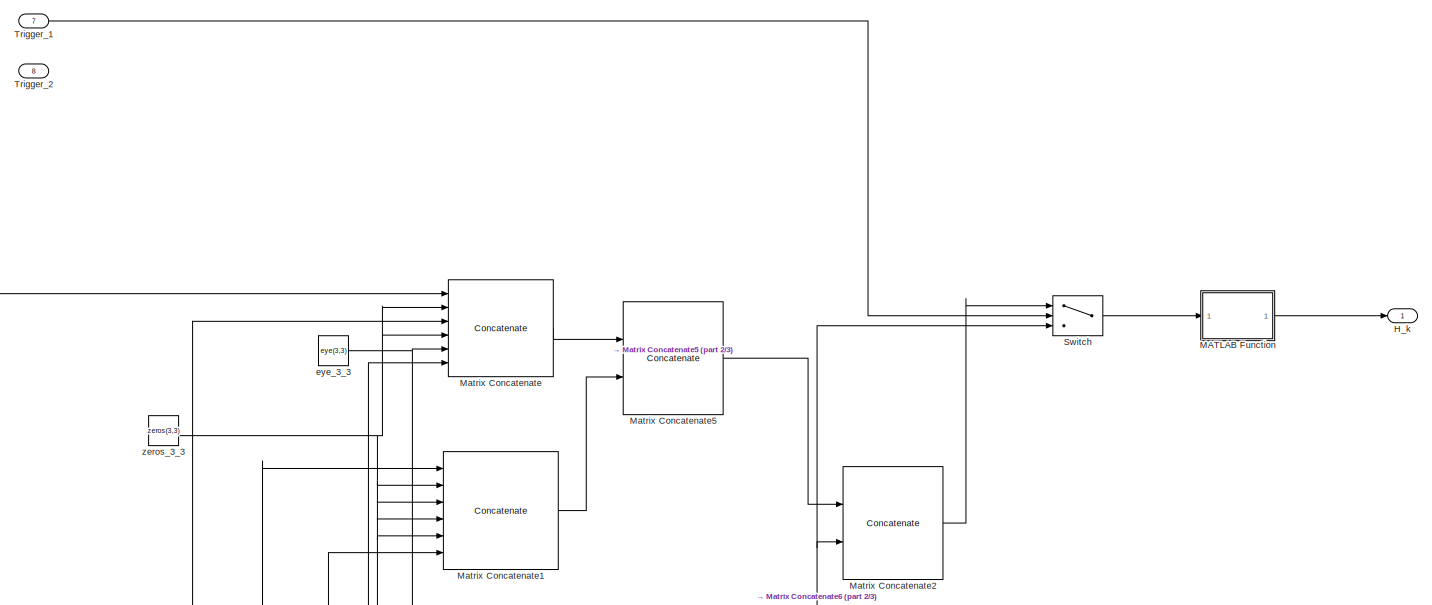
[diagram: EKF/Measurement Update/Update with K(k) and predict current state/Create H_k - part 1/3, top center region]
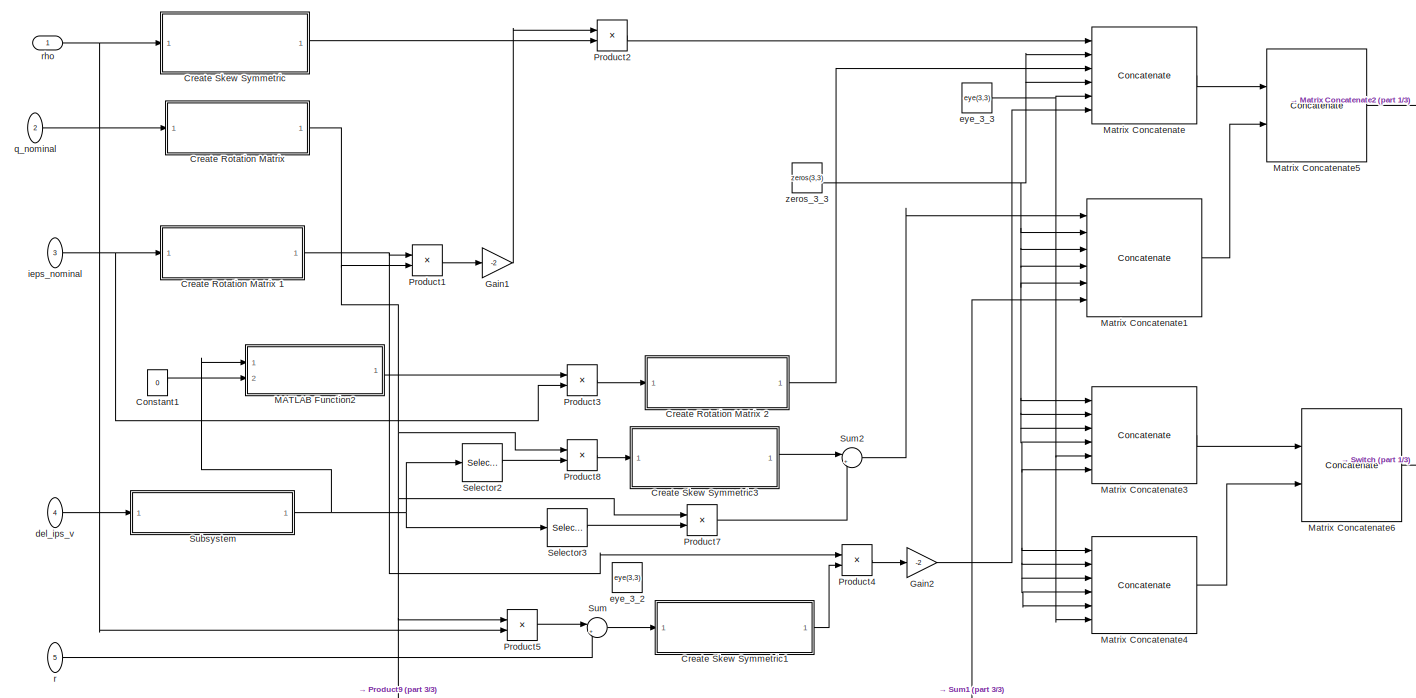
[diagram: EKF/Measurement Update/Update with K(k) and predict current state/Create H_k - part 2/3, central region]
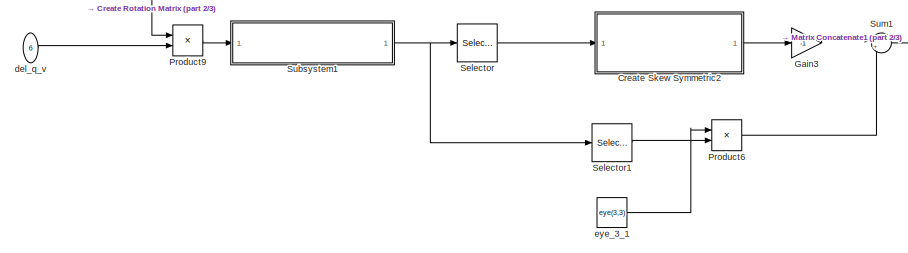
[diagram: EKF/Measurement Update/Update with K(k) and predict current state/Create H_k - part 3/3, bottom left region]
BLOCK [SubSystem] EKF/Measurement Update/Update with K(k) and predict current state/Create H_k
  Ports = [8, 1]
  RequestExecContextInheritance = off
BLOCK [Constant] EKF/Measurement Update/Update with K(k) and predict current state/Create H_k/Constant1
  Value = 0
BLOCK [SubSystem] EKF/Measurement Update/Update with K(k) and predict current state/Create H_k/Create Rotation Matrix 
  Ports = [1, 1]
  RequestExecContextInheritance = off
BLOCK [Sum] EKF/Measurement Update/Update with K(k) and predict current state/Create H_k/Create Rotation Matrix /Add
  InputSameDT = off
  OutDataTypeStr = Inherit: Inherit via internal rule
  Ports = [2, 1]
  SaturateOnIntegerOverflow = off
BLOCK [Sum] EKF/Measurement Update/Update with K(k) and predict current state/Create H_k/Create Rotation Matrix /Add5
  InputSameDT = off
  Inputs = +++
  OutDataTypeStr = Inherit: Inherit via internal rule
  Ports = [3, 1]
  SaturateOnIntegerOverflow = off
BLOCK [Constant] EKF/Measurement Update/Update with K(k) and predict current state/Create H_k/Create Rotation Matrix /Constant1
  Value = -1
BLOCK [SubSystem] EKF/Measurement Update/Update with K(k) and predict current state/Create H_k/Create Rotation Matrix /Create Skew Symmetric
  Ports = [1, 1]
  RequestExecContextInheritance = off
BLOCK [Constant] EKF/Measurement Update/Update with K(k) and predict current state/Create H_k/Create Rotation Matrix /Create Skew Symmetric/0
  Value = 0
BLOCK [SubSystem] EKF/Measurement Update/Update with K(k) and predict current state/Create H_k/Create Rotation Matrix /Create Skew Symmetric/Create 3x3 matrix
  Ports = [9, 1]
  RequestExecContextInheritance = off
BLOCK [Math] EKF/Measurement Update/Update with K(k) and predict current state/Create H_k/Create Rotation Matrix /Create Skew Symmetric/Create 3x3 matrix/Math Function
  Operator = transpose
  Ports = [1, 1]
BLOCK [Outport] EKF/Measurement Update/Update with K(k) and predict current state/Create H_k/Create Rotation Matrix /Create Skew Symmetric/Create 3x3 matrix/Matrix
  IconDisplay = Port number
BLOCK [Reshape] EKF/Measurement Update/Update with K(k) and predict current state/Create H_k/Create Rotation Matrix /Create Skew Symmetric/Create 3x3 matrix/Reshape (9) to [3x3] column-major
  OutputDimensionality = Customize
  OutputDimensions = [3,3]
  Ports = [1, 1]
BLOCK [Concatenate] EKF/Measurement Update/Update with K(k) and predict current state/Create H_k/Create Rotation Matrix /Create Skew Symmetric/Create 3x3 matrix/Vector Concatenate
  NumInputs = 9
  Ports = [9, 1]
BLOCK [Inport] EKF/Measurement Update/Update with K(k) and predict current state/Create H_k/Create Rotation Matrix /Create Skew Symmetric/Create 3x3 matrix/a11
  IconDisplay = Port number
BLOCK [Inport] EKF/Measurement Update/Update with K(k) and predict current state/Create H_k/Create Rotation Matrix /Create Skew Symmetric/Create 3x3 matrix/a12
  IconDisplay = Port number
  Port = 2
BLOCK [Inport] EKF/Measurement Update/Update with K(k) and predict current state/Create H_k/Create Rotation Matrix /Create Skew Symmetric/Create 3x3 matrix/a13
  IconDisplay = Port number
  Port = 3
BLOCK [Inport] EKF/Measurement Update/Update with K(k) and predict current state/Create H_k/Create Rotation Matrix /Create Skew Symmetric/Create 3x3 matrix/a21
  IconDisplay = Port number
  Port = 4
BLOCK [Inport] EKF/Measurement Update/Update with K(k) and predict current state/Create H_k/Create Rotation Matrix /Create Skew Symmetric/Create 3x3 matrix/a22
  IconDisplay = Port number
  Port = 5
BLOCK [Inport] EKF/Measurement Update/Update with K(k) and predict current state/Create H_k/Create Rotation Matrix /Create Skew Symmetric/Create 3x3 matrix/a23
  IconDisplay = Port number
  Port = 6
BLOCK [Inport] EKF/Measurement Update/Update with K(k) and predict current state/Create H_k/Create Rotation Matrix /Create Skew Symmetric/Create 3x3 matrix/a31
  IconDisplay = Port number
  Port = 7
BLOCK [Inport] EKF/Measurement Update/Update with K(k) and predict current state/Create H_k/Create Rotation Matrix /Create Skew Symmetric/Create 3x3 matrix/a32
  IconDisplay = Port number
  Port = 8
BLOCK [Inport] EKF/Measurement Update/Update with K(k) and predict current state/Create H_k/Create Rotation Matrix /Create Skew Symmetric/Create 3x3 matrix/a33
  IconDisplay = Port number
  Port = 9
BLOCK [Demux] EKF/Measurement Update/Update with K(k) and predict current state/Create H_k/Create Rotation Matrix /Create Skew Symmetric/Demux
  DisplayOption = bar
  Outputs = 3
  Ports = [1, 3]
BLOCK [Demux] EKF/Measurement Update/Update with K(k) and predict current state/Create H_k/Create Rotation Matrix /Create Skew Symmetric/Demux1
  DisplayOption = bar
  Outputs = 3
  Ports = [1, 3]
BLOCK [Gain] EKF/Measurement Update/Update with K(k) and predict current state/Create H_k/Create Rotation Matrix /Create Skew Symmetric/Gain
  Gain = -1
  OutDataTypeStr = Inherit: Inherit via internal rule
  ParamDataTypeStr = Inherit: Inherit via internal rule
  SaturateOnIntegerOverflow = off
BLOCK [Outport] EKF/Measurement Update/Update with K(k) and predict current state/Create H_k/Create Rotation Matrix /Create Skew Symmetric/skew symmetric Matrix
  IconDisplay = Port number
BLOCK [Inport] EKF/Measurement Update/Update with K(k) and predict current state/Create H_k/Create Rotation Matrix /Create Skew Symmetric/vector
  IconDisplay = Port number
BLOCK [Gain] EKF/Measurement Update/Update with K(k) and predict current state/Create H_k/Create Rotation Matrix /Gain
  Gain = 2
  OutDataTypeStr = Inherit: Inherit via internal rule
  ParamDataTypeStr = Inherit: Inherit via internal rule
  SaturateOnIntegerOverflow = off
BLOCK [Gain] EKF/Measurement Update/Update with K(k) and predict current state/Create H_k/Create Rotation Matrix /Gain1
  Gain = 2
  OutDataTypeStr = Inherit: Inherit via internal rule
  ParamDataTypeStr = Inherit: Inherit via internal rule
  SaturateOnIntegerOverflow = off
BLOCK [Gain] EKF/Measurement Update/Update with K(k) and predict current state/Create H_k/Create Rotation Matrix /Gain2
  Gain = 2
  OutDataTypeStr = Inherit: Inherit via internal rule
  ParamDataTypeStr = Inherit: Inherit via internal rule
  SaturateOnIntegerOverflow = off
BLOCK [Constant] EKF/Measurement Update/Update with K(k) and predict current state/Create H_k/Create Rotation Matrix /I
  Value = eye(3,3)
BLOCK [Math] EKF/Measurement Update/Update with K(k) and predict current state/Create H_k/Create Rotation Matrix /Math Function
  Operator = square
  Ports = [1, 1]
BLOCK [Math] EKF/Measurement Update/Update with K(k) and predict current state/Create H_k/Create Rotation Matrix /Math Function1
  Operator = transpose
  Ports = [1, 1]
BLOCK [Product] EKF/Measurement Update/Update with K(k) and predict current state/Create H_k/Create Rotation Matrix /Product1
  InputSameDT = off
  OutDataTypeStr = Inherit: Inherit via internal rule
  Ports = [2, 1]
  RndMeth = Floor
  SaturateOnIntegerOverflow = off
BLOCK [Product] EKF/Measurement Update/Update with K(k) and predict current state/Create H_k/Create Rotation Matrix /Product2
  InputSameDT = off
  OutDataTypeStr = Inherit: Inherit via internal rule
  Ports = [2, 1]
  RndMeth = Floor
  SaturateOnIntegerOverflow = off
BLOCK [Product] EKF/Measurement Update/Update with K(k) and predict current state/Create H_k/Create Rotation Matrix /Product3
  InputSameDT = off
  Multiplication = Matrix(*)
  OutDataTypeStr = Inherit: Inherit via internal rule
  Ports = [2, 1]
  RndMeth = Floor
  SaturateOnIntegerOverflow = off
BLOCK [Outport] EKF/Measurement Update/Update with K(k) and predict current state/Create H_k/Create Rotation Matrix /R
  IconDisplay = Port number
BLOCK [Selector] EKF/Measurement Update/Update with K(k) and predict current state/Create H_k/Create Rotation Matrix /Selector2
  IndexOptions = Index vector (dialog),Index vector (dialog)
  Indices = [1 2 3],1
  InputPortWidth = 3
  NumberOfDimensions = 2
  OutputSizes = 1,1
  Ports = [1, 1]
BLOCK [Selector] EKF/Measurement Update/Update with K(k) and predict current state/Create H_k/Create Rotation Matrix /Selector3
  IndexOptions = Index vector (dialog),Index vector (dialog)
  Indices = [4],1
  InputPortWidth = 3
  NumberOfDimensions = 2
  OutputSizes = 1,1
  Ports = [1, 1]
BLOCK [Inport] EKF/Measurement Update/Update with K(k) and predict current state/Create H_k/Create Rotation Matrix /q
  IconDisplay = Port number
BLOCK [SubSystem] EKF/Measurement Update/Update with K(k) and predict current state/Create H_k/Create Rotation Matrix 1
  Ports = [1, 1]
  RequestExecContextInheritance = off
BLOCK [Sum] EKF/Measurement Update/Update with K(k) and predict current state/Create H_k/Create Rotation Matrix 1/Add
  InputSameDT = off
  OutDataTypeStr = Inherit: Inherit via internal rule
  Ports = [2, 1]
  SaturateOnIntegerOverflow = off
BLOCK [Sum] EKF/Measurement Update/Update with K(k) and predict current state/Create H_k/Create Rotation Matrix 1/Add5
  InputSameDT = off
  Inputs = +++
  OutDataTypeStr = Inherit: Inherit via internal rule
  Ports = [3, 1]
  SaturateOnIntegerOverflow = off
BLOCK [Constant] EKF/Measurement Update/Update with K(k) and predict current state/Create H_k/Create Rotation Matrix 1/Constant1
  Value = -1
BLOCK [SubSystem] EKF/Measurement Update/Update with K(k) and predict current state/Create H_k/Create Rotation Matrix 1/Create Skew Symmetric
  Ports = [1, 1]
  RequestExecContextInheritance = off
BLOCK [Constant] EKF/Measurement Update/Update with K(k) and predict current state/Create H_k/Create Rotation Matrix 1/Create Skew Symmetric/0
  Value = 0
BLOCK [SubSystem] EKF/Measurement Update/Update with K(k) and predict current state/Create H_k/Create Rotation Matrix 1/Create Skew Symmetric/Create 3x3 matrix
  Ports = [9, 1]
  RequestExecContextInheritance = off
BLOCK [Math] EKF/Measurement Update/Update with K(k) and predict current state/Create H_k/Create Rotation Matrix 1/Create Skew Symmetric/Create 3x3 matrix/Math Function
  Operator = transpose
  Ports = [1, 1]
BLOCK [Outport] EKF/Measurement Update/Update with K(k) and predict current state/Create H_k/Create Rotation Matrix 1/Create Skew Symmetric/Create 3x3 matrix/Matrix
  IconDisplay = Port number
BLOCK [Reshape] EKF/Measurement Update/Update with K(k) and predict current state/Create H_k/Create Rotation Matrix 1/Create Skew Symmetric/Create 3x3 matrix/Reshape (9) to [3x3] column-major
  OutputDimensionality = Customize
  OutputDimensions = [3,3]
  Ports = [1, 1]
BLOCK [Concatenate] EKF/Measurement Update/Update with K(k) and predict current state/Create H_k/Create Rotation Matrix 1/Create Skew Symmetric/Create 3x3 matrix/Vector Concatenate
  NumInputs = 9
  Ports = [9, 1]
BLOCK [Inport] EKF/Measurement Update/Update with K(k) and predict current state/Create H_k/Create Rotation Matrix 1/Create Skew Symmetric/Create 3x3 matrix/a11
  IconDisplay = Port number
BLOCK [Inport] EKF/Measurement Update/Update with K(k) and predict current state/Create H_k/Create Rotation Matrix 1/Create Skew Symmetric/Create 3x3 matrix/a12
  IconDisplay = Port number
  Port = 2
BLOCK [Inport] EKF/Measurement Update/Update with K(k) and predict current state/Create H_k/Create Rotation Matrix 1/Create Skew Symmetric/Create 3x3 matrix/a13
  IconDisplay = Port number
  Port = 3
BLOCK [Inport] EKF/Measurement Update/Update with K(k) and predict current state/Create H_k/Create Rotation Matrix 1/Create Skew Symmetric/Create 3x3 matrix/a21
  IconDisplay = Port number
  Port = 4
BLOCK [Inport] EKF/Measurement Update/Update with K(k) and predict current state/Create H_k/Create Rotation Matrix 1/Create Skew Symmetric/Create 3x3 matrix/a22
  IconDisplay = Port number
  Port = 5
BLOCK [Inport] EKF/Measurement Update/Update with K(k) and predict current state/Create H_k/Create Rotation Matrix 1/Create Skew Symmetric/Create 3x3 matrix/a23
  IconDisplay = Port number
  Port = 6
BLOCK [Inport] EKF/Measurement Update/Update with K(k) and predict current state/Create H_k/Create Rotation Matrix 1/Create Skew Symmetric/Create 3x3 matrix/a31
  IconDisplay = Port number
  Port = 7
BLOCK [Inport] EKF/Measurement Update/Update with K(k) and predict current state/Create H_k/Create Rotation Matrix 1/Create Skew Symmetric/Create 3x3 matrix/a32
  IconDisplay = Port number
  Port = 8
BLOCK [Inport] EKF/Measurement Update/Update with K(k) and predict current state/Create H_k/Create Rotation Matrix 1/Create Skew Symmetric/Create 3x3 matrix/a33
  IconDisplay = Port number
  Port = 9
BLOCK [Demux] EKF/Measurement Update/Update with K(k) and predict current state/Create H_k/Create Rotation Matrix 1/Create Skew Symmetric/Demux
  DisplayOption = bar
  Outputs = 3
  Ports = [1, 3]
BLOCK [Demux] EKF/Measurement Update/Update with K(k) and predict current state/Create H_k/Create Rotation Matrix 1/Create Skew Symmetric/Demux1
  DisplayOption = bar
  Outputs = 3
  Ports = [1, 3]
BLOCK [Gain] EKF/Measurement Update/Update with K(k) and predict current state/Create H_k/Create Rotation Matrix 1/Create Skew Symmetric/Gain
  Gain = -1
  OutDataTypeStr = Inherit: Inherit via internal rule
  ParamDataTypeStr = Inherit: Inherit via internal rule
  SaturateOnIntegerOverflow = off
BLOCK [Outport] EKF/Measurement Update/Update with K(k) and predict current state/Create H_k/Create Rotation Matrix 1/Create Skew Symmetric/skew symmetric Matrix
  IconDisplay = Port number
BLOCK [Inport] EKF/Measurement Update/Update with K(k) and predict current state/Create H_k/Create Rotation Matrix 1/Create Skew Symmetric/vector
  IconDisplay = Port number
BLOCK [Gain] EKF/Measurement Update/Update with K(k) and predict current state/Create H_k/Create Rotation Matrix 1/Gain
  Gain = 2
  OutDataTypeStr = Inherit: Inherit via internal rule
  ParamDataTypeStr = Inherit: Inherit via internal rule
  SaturateOnIntegerOverflow = off
BLOCK [Gain] EKF/Measurement Update/Update with K(k) and predict current state/Create H_k/Create Rotation Matrix 1/Gain1
  Gain = 2
  OutDataTypeStr = Inherit: Inherit via internal rule
  ParamDataTypeStr = Inherit: Inherit via internal rule
  SaturateOnIntegerOverflow = off
BLOCK [Gain] EKF/Measurement Update/Update with K(k) and predict current state/Create H_k/Create Rotation Matrix 1/Gain2
  Gain = 2
  OutDataTypeStr = Inherit: Inherit via internal rule
  ParamDataTypeStr = Inherit: Inherit via internal rule
  SaturateOnIntegerOverflow = off
BLOCK [Constant] EKF/Measurement Update/Update with K(k) and predict current state/Create H_k/Create Rotation Matrix 1/I
  Value = eye(3,3)
BLOCK [Math] EKF/Measurement Update/Update with K(k) and predict current state/Create H_k/Create Rotation Matrix 1/Math Function
  Operator = square
  Ports = [1, 1]
BLOCK [Math] EKF/Measurement Update/Update with K(k) and predict current state/Create H_k/Create Rotation Matrix 1/Math Function1
  Operator = transpose
  Ports = [1, 1]
BLOCK [Product] EKF/Measurement Update/Update with K(k) and predict current state/Create H_k/Create Rotation Matrix 1/Product1
  InputSameDT = off
  OutDataTypeStr = Inherit: Inherit via internal rule
  Ports = [2, 1]
  RndMeth = Floor
  SaturateOnIntegerOverflow = off
BLOCK [Product] EKF/Measurement Update/Update with K(k) and predict current state/Create H_k/Create Rotation Matrix 1/Product2
  InputSameDT = off
  OutDataTypeStr = Inherit: Inherit via internal rule
  Ports = [2, 1]
  RndMeth = Floor
  SaturateOnIntegerOverflow = off
BLOCK [Product] EKF/Measurement Update/Update with K(k) and predict current state/Create H_k/Create Rotation Matrix 1/Product3
  InputSameDT = off
  Multiplication = Matrix(*)
  OutDataTypeStr = Inherit: Inherit via internal rule
  Ports = [2, 1]
  RndMeth = Floor
  SaturateOnIntegerOverflow = off
BLOCK [Outport] EKF/Measurement Update/Update with K(k) and predict current state/Create H_k/Create Rotation Matrix 1/R
  IconDisplay = Port number
BLOCK [Selector] EKF/Measurement Update/Update with K(k) and predict current state/Create H_k/Create Rotation Matrix 1/Selector2
  IndexOptions = Index vector (dialog),Index vector (dialog)
  Indices = [1 2 3],1
  InputPortWidth = 3
  NumberOfDimensions = 2
  OutputSizes = 1,1
  Ports = [1, 1]
BLOCK [Selector] EKF/Measurement Update/Update with K(k) and predict current state/Create H_k/Create Rotation Matrix 1/Selector3
  IndexOptions = Index vector (dialog),Index vector (dialog)
  Indices = [4],1
  InputPortWidth = 3
  NumberOfDimensions = 2
  OutputSizes = 1,1
  Ports = [1, 1]
BLOCK [Inport] EKF/Measurement Update/Update with K(k) and predict current state/Create H_k/Create Rotation Matrix 1/q
  IconDisplay = Port number
BLOCK [SubSystem] EKF/Measurement Update/Update with K(k) and predict current state/Create H_k/Create Rotation Matrix 2
  Ports = [1, 1]
  RequestExecContextInheritance = off
BLOCK [Sum] EKF/Measurement Update/Update with K(k) and predict current state/Create H_k/Create Rotation Matrix 2/Add
  InputSameDT = off
  OutDataTypeStr = Inherit: Inherit via internal rule
  Ports = [2, 1]
  SaturateOnIntegerOverflow = off
BLOCK [Sum] EKF/Measurement Update/Update with K(k) and predict current state/Create H_k/Create Rotation Matrix 2/Add5
  InputSameDT = off
  Inputs = +++
  OutDataTypeStr = Inherit: Inherit via internal rule
  Ports = [3, 1]
  SaturateOnIntegerOverflow = off
BLOCK [Constant] EKF/Measurement Update/Update with K(k) and predict current state/Create H_k/Create Rotation Matrix 2/Constant1
  Value = -1
BLOCK [SubSystem] EKF/Measurement Update/Update with K(k) and predict current state/Create H_k/Create Rotation Matrix 2/Create Skew Symmetric
  Ports = [1, 1]
  RequestExecContextInheritance = off
BLOCK [Constant] EKF/Measurement Update/Update with K(k) and predict current state/Create H_k/Create Rotation Matrix 2/Create Skew Symmetric/0
  Value = 0
BLOCK [SubSystem] EKF/Measurement Update/Update with K(k) and predict current state/Create H_k/Create Rotation Matrix 2/Create Skew Symmetric/Create 3x3 matrix
  Ports = [9, 1]
  RequestExecContextInheritance = off
BLOCK [Math] EKF/Measurement Update/Update with K(k) and predict current state/Create H_k/Create Rotation Matrix 2/Create Skew Symmetric/Create 3x3 matrix/Math Function
  Operator = transpose
  Ports = [1, 1]
BLOCK [Outport] EKF/Measurement Update/Update with K(k) and predict current state/Create H_k/Create Rotation Matrix 2/Create Skew Symmetric/Create 3x3 matrix/Matrix
  IconDisplay = Port number
BLOCK [Reshape] EKF/Measurement Update/Update with K(k) and predict current state/Create H_k/Create Rotation Matrix 2/Create Skew Symmetric/Create 3x3 matrix/Reshape (9) to [3x3] column-major
  OutputDimensionality = Customize
  OutputDimensions = [3,3]
  Ports = [1, 1]
BLOCK [Concatenate] EKF/Measurement Update/Update with K(k) and predict current state/Create H_k/Create Rotation Matrix 2/Create Skew Symmetric/Create 3x3 matrix/Vector Concatenate
  NumInputs = 9
  Ports = [9, 1]
BLOCK [Inport] EKF/Measurement Update/Update with K(k) and predict current state/Create H_k/Create Rotation Matrix 2/Create Skew Symmetric/Create 3x3 matrix/a11
  IconDisplay = Port number
BLOCK [Inport] EKF/Measurement Update/Update with K(k) and predict current state/Create H_k/Create Rotation Matrix 2/Create Skew Symmetric/Create 3x3 matrix/a12
  IconDisplay = Port number
  Port = 2
BLOCK [Inport] EKF/Measurement Update/Update with K(k) and predict current state/Create H_k/Create Rotation Matrix 2/Create Skew Symmetric/Create 3x3 matrix/a13
  IconDisplay = Port number
  Port = 3
BLOCK [Inport] EKF/Measurement Update/Update with K(k) and predict current state/Create H_k/Create Rotation Matrix 2/Create Skew Symmetric/Create 3x3 matrix/a21
  IconDisplay = Port number
  Port = 4
BLOCK [Inport] EKF/Measurement Update/Update with K(k) and predict current state/Create H_k/Create Rotation Matrix 2/Create Skew Symmetric/Create 3x3 matrix/a22
  IconDisplay = Port number
  Port = 5
BLOCK [Inport] EKF/Measurement Update/Update with K(k) and predict current state/Create H_k/Create Rotation Matrix 2/Create Skew Symmetric/Create 3x3 matrix/a23
  IconDisplay = Port number
  Port = 6
BLOCK [Inport] EKF/Measurement Update/Update with K(k) and predict current state/Create H_k/Create Rotation Matrix 2/Create Skew Symmetric/Create 3x3 matrix/a31
  IconDisplay = Port number
  Port = 7
BLOCK [Inport] EKF/Measurement Update/Update with K(k) and predict current state/Create H_k/Create Rotation Matrix 2/Create Skew Symmetric/Create 3x3 matrix/a32
  IconDisplay = Port number
  Port = 8
BLOCK [Inport] EKF/Measurement Update/Update with K(k) and predict current state/Create H_k/Create Rotation Matrix 2/Create Skew Symmetric/Create 3x3 matrix/a33
  IconDisplay = Port number
  Port = 9
BLOCK [Demux] EKF/Measurement Update/Update with K(k) and predict current state/Create H_k/Create Rotation Matrix 2/Create Skew Symmetric/Demux
  DisplayOption = bar
  Outputs = 3
  Ports = [1, 3]
BLOCK [Demux] EKF/Measurement Update/Update with K(k) and predict current state/Create H_k/Create Rotation Matrix 2/Create Skew Symmetric/Demux1
  DisplayOption = bar
  Outputs = 3
  Ports = [1, 3]
BLOCK [Gain] EKF/Measurement Update/Update with K(k) and predict current state/Create H_k/Create Rotation Matrix 2/Create Skew Symmetric/Gain
  Gain = -1
  OutDataTypeStr = Inherit: Inherit via internal rule
  ParamDataTypeStr = Inherit: Inherit via internal rule
  SaturateOnIntegerOverflow = off
BLOCK [Outport] EKF/Measurement Update/Update with K(k) and predict current state/Create H_k/Create Rotation Matrix 2/Create Skew Symmetric/skew symmetric Matrix
  IconDisplay = Port number
BLOCK [Inport] EKF/Measurement Update/Update with K(k) and predict current state/Create H_k/Create Rotation Matrix 2/Create Skew Symmetric/vector
  IconDisplay = Port number
BLOCK [Gain] EKF/Measurement Update/Update with K(k) and predict current state/Create H_k/Create Rotation Matrix 2/Gain
  Gain = 2
  OutDataTypeStr = Inherit: Inherit via internal rule
  ParamDataTypeStr = Inherit: Inherit via internal rule
  SaturateOnIntegerOverflow = off
BLOCK [Gain] EKF/Measurement Update/Update with K(k) and predict current state/Create H_k/Create Rotation Matrix 2/Gain1
  Gain = 2
  OutDataTypeStr = Inherit: Inherit via internal rule
  ParamDataTypeStr = Inherit: Inherit via internal rule
  SaturateOnIntegerOverflow = off
BLOCK [Gain] EKF/Measurement Update/Update with K(k) and predict current state/Create H_k/Create Rotation Matrix 2/Gain2
  Gain = 2
  OutDataTypeStr = Inherit: Inherit via internal rule
  ParamDataTypeStr = Inherit: Inherit via internal rule
  SaturateOnIntegerOverflow = off
BLOCK [Constant] EKF/Measurement Update/Update with K(k) and predict current state/Create H_k/Create Rotation Matrix 2/I
  Value = eye(3,3)
BLOCK [Math] EKF/Measurement Update/Update with K(k) and predict current state/Create H_k/Create Rotation Matrix 2/Math Function
  Operator = square
  Ports = [1, 1]
BLOCK [Math] EKF/Measurement Update/Update with K(k) and predict current state/Create H_k/Create Rotation Matrix 2/Math Function1
  Operator = transpose
  Ports = [1, 1]
BLOCK [Product] EKF/Measurement Update/Update with K(k) and predict current state/Create H_k/Create Rotation Matrix 2/Product1
  InputSameDT = off
  OutDataTypeStr = Inherit: Inherit via internal rule
  Ports = [2, 1]
  RndMeth = Floor
  SaturateOnIntegerOverflow = off
BLOCK [Product] EKF/Measurement Update/Update with K(k) and predict current state/Create H_k/Create Rotation Matrix 2/Product2
  InputSameDT = off
  OutDataTypeStr = Inherit: Inherit via internal rule
  Ports = [2, 1]
  RndMeth = Floor
  SaturateOnIntegerOverflow = off
BLOCK [Product] EKF/Measurement Update/Update with K(k) and predict current state/Create H_k/Create Rotation Matrix 2/Product3
  InputSameDT = off
  Multiplication = Matrix(*)
  OutDataTypeStr = Inherit: Inherit via internal rule
  Ports = [2, 1]
  RndMeth = Floor
  SaturateOnIntegerOverflow = off
BLOCK [Outport] EKF/Measurement Update/Update with K(k) and predict current state/Create H_k/Create Rotation Matrix 2/R
  IconDisplay = Port number
BLOCK [Selector] EKF/Measurement Update/Update with K(k) and predict current state/Create H_k/Create Rotation Matrix 2/Selector2
  IndexOptions = Index vector (dialog),Index vector (dialog)
  Indices = [1 2 3],1
  InputPortWidth = 3
  NumberOfDimensions = 2
  OutputSizes = 1,1
  Ports = [1, 1]
BLOCK [Selector] EKF/Measurement Update/Update with K(k) and predict current state/Create H_k/Create Rotation Matrix 2/Selector3
  IndexOptions = Index vector (dialog),Index vector (dialog)
  Indices = [4],1
  InputPortWidth = 3
  NumberOfDimensions = 2
  OutputSizes = 1,1
  Ports = [1, 1]
BLOCK [Inport] EKF/Measurement Update/Update with K(k) and predict current state/Create H_k/Create Rotation Matrix 2/q
  IconDisplay = Port number
BLOCK [SubSystem] EKF/Measurement Update/Update with K(k) and predict current state/Create H_k/Create Skew Symmetric
  Ports = [1, 1]
  RequestExecContextInheritance = off
BLOCK [Constant] EKF/Measurement Update/Update with K(k) and predict current state/Create H_k/Create Skew Symmetric/0
  Value = 0
BLOCK [SubSystem] EKF/Measurement Update/Update with K(k) and predict current state/Create H_k/Create Skew Symmetric/Create 3x3 matrix
  Ports = [9, 1]
  RequestExecContextInheritance = off
BLOCK [Math] EKF/Measurement Update/Update with K(k) and predict current state/Create H_k/Create Skew Symmetric/Create 3x3 matrix/Math Function
  Operator = transpose
  Ports = [1, 1]
BLOCK [Outport] EKF/Measurement Update/Update with K(k) and predict current state/Create H_k/Create Skew Symmetric/Create 3x3 matrix/Matrix
  IconDisplay = Port number
BLOCK [Reshape] EKF/Measurement Update/Update with K(k) and predict current state/Create H_k/Create Skew Symmetric/Create 3x3 matrix/Reshape (9) to [3x3] column-major
  OutputDimensionality = Customize
  OutputDimensions = [3,3]
  Ports = [1, 1]
BLOCK [Concatenate] EKF/Measurement Update/Update with K(k) and predict current state/Create H_k/Create Skew Symmetric/Create 3x3 matrix/Vector Concatenate
  NumInputs = 9
  Ports = [9, 1]
BLOCK [Inport] EKF/Measurement Update/Update with K(k) and predict current state/Create H_k/Create Skew Symmetric/Create 3x3 matrix/a11
  IconDisplay = Port number
BLOCK [Inport] EKF/Measurement Update/Update with K(k) and predict current state/Create H_k/Create Skew Symmetric/Create 3x3 matrix/a12
  IconDisplay = Port number
  Port = 2
BLOCK [Inport] EKF/Measurement Update/Update with K(k) and predict current state/Create H_k/Create Skew Symmetric/Create 3x3 matrix/a13
  IconDisplay = Port number
  Port = 3
BLOCK [Inport] EKF/Measurement Update/Update with K(k) and predict current state/Create H_k/Create Skew Symmetric/Create 3x3 matrix/a21
  IconDisplay = Port number
  Port = 4
BLOCK [Inport] EKF/Measurement Update/Update with K(k) and predict current state/Create H_k/Create Skew Symmetric/Create 3x3 matrix/a22
  IconDisplay = Port number
  Port = 5
BLOCK [Inport] EKF/Measurement Update/Update with K(k) and predict current state/Create H_k/Create Skew Symmetric/Create 3x3 matrix/a23
  IconDisplay = Port number
  Port = 6
BLOCK [Inport] EKF/Measurement Update/Update with K(k) and predict current state/Create H_k/Create Skew Symmetric/Create 3x3 matrix/a31
  IconDisplay = Port number
  Port = 7
BLOCK [Inport] EKF/Measurement Update/Update with K(k) and predict current state/Create H_k/Create Skew Symmetric/Create 3x3 matrix/a32
  IconDisplay = Port number
  Port = 8
BLOCK [Inport] EKF/Measurement Update/Update with K(k) and predict current state/Create H_k/Create Skew Symmetric/Create 3x3 matrix/a33
  IconDisplay = Port number
  Port = 9
BLOCK [Demux] EKF/Measurement Update/Update with K(k) and predict current state/Create H_k/Create Skew Symmetric/Demux
  DisplayOption = bar
  Outputs = 3
  Ports = [1, 3]
BLOCK [Demux] EKF/Measurement Update/Update with K(k) and predict current state/Create H_k/Create Skew Symmetric/Demux1
  DisplayOption = bar
  Outputs = 3
  Ports = [1, 3]
BLOCK [Gain] EKF/Measurement Update/Update with K(k) and predict current state/Create H_k/Create Skew Symmetric/Gain
  Gain = -1
  OutDataTypeStr = Inherit: Inherit via internal rule
  ParamDataTypeStr = Inherit: Inherit via internal rule
  SaturateOnIntegerOverflow = off
BLOCK [Outport] EKF/Measurement Update/Update with K(k) and predict current state/Create H_k/Create Skew Symmetric/skew symmetric Matrix
  IconDisplay = Port number
BLOCK [Inport] EKF/Measurement Update/Update with K(k) and predict current state/Create H_k/Create Skew Symmetric/vector
  IconDisplay = Port number
BLOCK [SubSystem] EKF/Measurement Update/Update with K(k) and predict current state/Create H_k/Create Skew Symmetric1
  Ports = [1, 1]
  RequestExecContextInheritance = off
BLOCK [Constant] EKF/Measurement Update/Update with K(k) and predict current state/Create H_k/Create Skew Symmetric1/0
  Value = 0
BLOCK [SubSystem] EKF/Measurement Update/Update with K(k) and predict current state/Create H_k/Create Skew Symmetric1/Create 3x3 matrix
  Ports = [9, 1]
  RequestExecContextInheritance = off
BLOCK [Math] EKF/Measurement Update/Update with K(k) and predict current state/Create H_k/Create Skew Symmetric1/Create 3x3 matrix/Math Function
  Operator = transpose
  Ports = [1, 1]
BLOCK [Outport] EKF/Measurement Update/Update with K(k) and predict current state/Create H_k/Create Skew Symmetric1/Create 3x3 matrix/Matrix
  IconDisplay = Port number
BLOCK [Reshape] EKF/Measurement Update/Update with K(k) and predict current state/Create H_k/Create Skew Symmetric1/Create 3x3 matrix/Reshape (9) to [3x3] column-major
  OutputDimensionality = Customize
  OutputDimensions = [3,3]
  Ports = [1, 1]
BLOCK [Concatenate] EKF/Measurement Update/Update with K(k) and predict current state/Create H_k/Create Skew Symmetric1/Create 3x3 matrix/Vector Concatenate
  NumInputs = 9
  Ports = [9, 1]
BLOCK [Inport] EKF/Measurement Update/Update with K(k) and predict current state/Create H_k/Create Skew Symmetric1/Create 3x3 matrix/a11
  IconDisplay = Port number
BLOCK [Inport] EKF/Measurement Update/Update with K(k) and predict current state/Create H_k/Create Skew Symmetric1/Create 3x3 matrix/a12
  IconDisplay = Port number
  Port = 2
BLOCK [Inport] EKF/Measurement Update/Update with K(k) and predict current state/Create H_k/Create Skew Symmetric1/Create 3x3 matrix/a13
  IconDisplay = Port number
  Port = 3
BLOCK [Inport] EKF/Measurement Update/Update with K(k) and predict current state/Create H_k/Create Skew Symmetric1/Create 3x3 matrix/a21
  IconDisplay = Port number
  Port = 4
BLOCK [Inport] EKF/Measurement Update/Update with K(k) and predict current state/Create H_k/Create Skew Symmetric1/Create 3x3 matrix/a22
  IconDisplay = Port number
  Port = 5
BLOCK [Inport] EKF/Measurement Update/Update with K(k) and predict current state/Create H_k/Create Skew Symmetric1/Create 3x3 matrix/a23
  IconDisplay = Port number
  Port = 6
BLOCK [Inport] EKF/Measurement Update/Update with K(k) and predict current state/Create H_k/Create Skew Symmetric1/Create 3x3 matrix/a31
  IconDisplay = Port number
  Port = 7
BLOCK [Inport] EKF/Measurement Update/Update with K(k) and predict current state/Create H_k/Create Skew Symmetric1/Create 3x3 matrix/a32
  IconDisplay = Port number
  Port = 8
BLOCK [Inport] EKF/Measurement Update/Update with K(k) and predict current state/Create H_k/Create Skew Symmetric1/Create 3x3 matrix/a33
  IconDisplay = Port number
  Port = 9
BLOCK [Demux] EKF/Measurement Update/Update with K(k) and predict current state/Create H_k/Create Skew Symmetric1/Demux
  DisplayOption = bar
  Outputs = 3
  Ports = [1, 3]
BLOCK [Demux] EKF/Measurement Update/Update with K(k) and predict current state/Create H_k/Create Skew Symmetric1/Demux1
  DisplayOption = bar
  Outputs = 3
  Ports = [1, 3]
BLOCK [Gain] EKF/Measurement Update/Update with K(k) and predict current state/Create H_k/Create Skew Symmetric1/Gain
  Gain = -1
  OutDataTypeStr = Inherit: Inherit via internal rule
  ParamDataTypeStr = Inherit: Inherit via internal rule
  SaturateOnIntegerOverflow = off
BLOCK [Outport] EKF/Measurement Update/Update with K(k) and predict current state/Create H_k/Create Skew Symmetric1/skew symmetric Matrix
  IconDisplay = Port number
BLOCK [Inport] EKF/Measurement Update/Update with K(k) and predict current state/Create H_k/Create Skew Symmetric1/vector
  IconDisplay = Port number
BLOCK [SubSystem] EKF/Measurement Update/Update with K(k) and predict current state/Create H_k/Create Skew Symmetric2
  Ports = [1, 1]
  RequestExecContextInheritance = off
BLOCK [Constant] EKF/Measurement Update/Update with K(k) and predict current state/Create H_k/Create Skew Symmetric2/0
  Value = 0
BLOCK [SubSystem] EKF/Measurement Update/Update with K(k) and predict current state/Create H_k/Create Skew Symmetric2/Create 3x3 matrix
  Ports = [9, 1]
  RequestExecContextInheritance = off
BLOCK [Math] EKF/Measurement Update/Update with K(k) and predict current state/Create H_k/Create Skew Symmetric2/Create 3x3 matrix/Math Function
  Operator = transpose
  Ports = [1, 1]
BLOCK [Outport] EKF/Measurement Update/Update with K(k) and predict current state/Create H_k/Create Skew Symmetric2/Create 3x3 matrix/Matrix
  IconDisplay = Port number
BLOCK [Reshape] EKF/Measurement Update/Update with K(k) and predict current state/Create H_k/Create Skew Symmetric2/Create 3x3 matrix/Reshape (9) to [3x3] column-major
  OutputDimensionality = Customize
  OutputDimensions = [3,3]
  Ports = [1, 1]
BLOCK [Concatenate] EKF/Measurement Update/Update with K(k) and predict current state/Create H_k/Create Skew Symmetric2/Create 3x3 matrix/Vector Concatenate
  NumInputs = 9
  Ports = [9, 1]
BLOCK [Inport] EKF/Measurement Update/Update with K(k) and predict current state/Create H_k/Create Skew Symmetric2/Create 3x3 matrix/a11
  IconDisplay = Port number
BLOCK [Inport] EKF/Measurement Update/Update with K(k) and predict current state/Create H_k/Create Skew Symmetric2/Create 3x3 matrix/a12
  IconDisplay = Port number
  Port = 2
BLOCK [Inport] EKF/Measurement Update/Update with K(k) and predict current state/Create H_k/Create Skew Symmetric2/Create 3x3 matrix/a13
  IconDisplay = Port number
  Port = 3
BLOCK [Inport] EKF/Measurement Update/Update with K(k) and predict current state/Create H_k/Create Skew Symmetric2/Create 3x3 matrix/a21
  IconDisplay = Port number
  Port = 4
BLOCK [Inport] EKF/Measurement Update/Update with K(k) and predict current state/Create H_k/Create Skew Symmetric2/Create 3x3 matrix/a22
  IconDisplay = Port number
  Port = 5
BLOCK [Inport] EKF/Measurement Update/Update with K(k) and predict current state/Create H_k/Create Skew Symmetric2/Create 3x3 matrix/a23
  IconDisplay = Port number
  Port = 6
BLOCK [Inport] EKF/Measurement Update/Update with K(k) and predict current state/Create H_k/Create Skew Symmetric2/Create 3x3 matrix/a31
  IconDisplay = Port number
  Port = 7
BLOCK [Inport] EKF/Measurement Update/Update with K(k) and predict current state/Create H_k/Create Skew Symmetric2/Create 3x3 matrix/a32
  IconDisplay = Port number
  Port = 8
BLOCK [Inport] EKF/Measurement Update/Update with K(k) and predict current state/Create H_k/Create Skew Symmetric2/Create 3x3 matrix/a33
  IconDisplay = Port number
  Port = 9
BLOCK [Demux] EKF/Measurement Update/Update with K(k) and predict current state/Create H_k/Create Skew Symmetric2/Demux
  DisplayOption = bar
  Outputs = 3
  Ports = [1, 3]
BLOCK [Demux] EKF/Measurement Update/Update with K(k) and predict current state/Create H_k/Create Skew Symmetric2/Demux1
  DisplayOption = bar
  Outputs = 3
  Ports = [1, 3]
BLOCK [Gain] EKF/Measurement Update/Update with K(k) and predict current state/Create H_k/Create Skew Symmetric2/Gain
  Gain = -1
  OutDataTypeStr = Inherit: Inherit via internal rule
  ParamDataTypeStr = Inherit: Inherit via internal rule
  SaturateOnIntegerOverflow = off
BLOCK [Outport] EKF/Measurement Update/Update with K(k) and predict current state/Create H_k/Create Skew Symmetric2/skew symmetric Matrix
  IconDisplay = Port number
BLOCK [Inport] EKF/Measurement Update/Update with K(k) and predict current state/Create H_k/Create Skew Symmetric2/vector
  IconDisplay = Port number
BLOCK [SubSystem] EKF/Measurement Update/Update with K(k) and predict current state/Create H_k/Create Skew Symmetric3
  Ports = [1, 1]
  RequestExecContextInheritance = off
BLOCK [Constant] EKF/Measurement Update/Update with K(k) and predict current state/Create H_k/Create Skew Symmetric3/0
  Value = 0
BLOCK [SubSystem] EKF/Measurement Update/Update with K(k) and predict current state/Create H_k/Create Skew Symmetric3/Create 3x3 matrix
  Ports = [9, 1]
  RequestExecContextInheritance = off
BLOCK [Math] EKF/Measurement Update/Update with K(k) and predict current state/Create H_k/Create Skew Symmetric3/Create 3x3 matrix/Math Function
  Operator = transpose
  Ports = [1, 1]
BLOCK [Outport] EKF/Measurement Update/Update with K(k) and predict current state/Create H_k/Create Skew Symmetric3/Create 3x3 matrix/Matrix
  IconDisplay = Port number
BLOCK [Reshape] EKF/Measurement Update/Update with K(k) and predict current state/Create H_k/Create Skew Symmetric3/Create 3x3 matrix/Reshape (9) to [3x3] column-major
  OutputDimensionality = Customize
  OutputDimensions = [3,3]
  Ports = [1, 1]
BLOCK [Concatenate] EKF/Measurement Update/Update with K(k) and predict current state/Create H_k/Create Skew Symmetric3/Create 3x3 matrix/Vector Concatenate
  NumInputs = 9
  Ports = [9, 1]
BLOCK [Inport] EKF/Measurement Update/Update with K(k) and predict current state/Create H_k/Create Skew Symmetric3/Create 3x3 matrix/a11
  IconDisplay = Port number
BLOCK [Inport] EKF/Measurement Update/Update with K(k) and predict current state/Create H_k/Create Skew Symmetric3/Create 3x3 matrix/a12
  IconDisplay = Port number
  Port = 2
BLOCK [Inport] EKF/Measurement Update/Update with K(k) and predict current state/Create H_k/Create Skew Symmetric3/Create 3x3 matrix/a13
  IconDisplay = Port number
  Port = 3
BLOCK [Inport] EKF/Measurement Update/Update with K(k) and predict current state/Create H_k/Create Skew Symmetric3/Create 3x3 matrix/a21
  IconDisplay = Port number
  Port = 4
BLOCK [Inport] EKF/Measurement Update/Update with K(k) and predict current state/Create H_k/Create Skew Symmetric3/Create 3x3 matrix/a22
  IconDisplay = Port number
  Port = 5
BLOCK [Inport] EKF/Measurement Update/Update with K(k) and predict current state/Create H_k/Create Skew Symmetric3/Create 3x3 matrix/a23
  IconDisplay = Port number
  Port = 6
BLOCK [Inport] EKF/Measurement Update/Update with K(k) and predict current state/Create H_k/Create Skew Symmetric3/Create 3x3 matrix/a31
  IconDisplay = Port number
  Port = 7
BLOCK [Inport] EKF/Measurement Update/Update with K(k) and predict current state/Create H_k/Create Skew Symmetric3/Create 3x3 matrix/a32
  IconDisplay = Port number
  Port = 8
BLOCK [Inport] EKF/Measurement Update/Update with K(k) and predict current state/Create H_k/Create Skew Symmetric3/Create 3x3 matrix/a33
  IconDisplay = Port number
  Port = 9
BLOCK [Demux] EKF/Measurement Update/Update with K(k) and predict current state/Create H_k/Create Skew Symmetric3/Demux
  DisplayOption = bar
  Outputs = 3
  Ports = [1, 3]
BLOCK [Demux] EKF/Measurement Update/Update with K(k) and predict current state/Create H_k/Create Skew Symmetric3/Demux1
  DisplayOption = bar
  Outputs = 3
  Ports = [1, 3]
BLOCK [Gain] EKF/Measurement Update/Update with K(k) and predict current state/Create H_k/Create Skew Symmetric3/Gain
  Gain = -1
  OutDataTypeStr = Inherit: Inherit via internal rule
  ParamDataTypeStr = Inherit: Inherit via internal rule
  SaturateOnIntegerOverflow = off
BLOCK [Outport] EKF/Measurement Update/Update with K(k) and predict current state/Create H_k/Create Skew Symmetric3/skew symmetric Matrix
  IconDisplay = Port number
BLOCK [Inport] EKF/Measurement Update/Update with K(k) and predict current state/Create H_k/Create Skew Symmetric3/vector
  IconDisplay = Port number
BLOCK [Gain] EKF/Measurement Update/Update with K(k) and predict current state/Create H_k/Gain1
  Gain = -2
  OutDataTypeStr = Inherit: Inherit via internal rule
  ParamDataTypeStr = Inherit: Inherit via internal rule
  SaturateOnIntegerOverflow = off
BLOCK [Gain] EKF/Measurement Update/Update with K(k) and predict current state/Create H_k/Gain2
  Gain = -2
  OutDataTypeStr = Inherit: Inherit via internal rule
  ParamDataTypeStr = Inherit: Inherit via internal rule
  SaturateOnIntegerOverflow = off
BLOCK [Gain] EKF/Measurement Update/Update with K(k) and predict current state/Create H_k/Gain3
  Gain = -1
  OutDataTypeStr = Inherit: Inherit via internal rule
  ParamDataTypeStr = Inherit: Inherit via internal rule
  SaturateOnIntegerOverflow = off
BLOCK [Outport] EKF/Measurement Update/Update with K(k) and predict current state/Create H_k/H_k
  IconDisplay = Port number
BLOCK [SubSystem] EKF/Measurement Update/Update with K(k) and predict current state/Create H_k/MATLAB Function
  ErrorFcn = Stateflow.Translate.translate
  PermitHierarchicalResolution = ExplicitOnly
  Ports = [1, 1]
  RequestExecContextInheritance = off
  SFBlockType = MATLAB Function
  TreatAsAtomicUnit = on
BLOCK [Demux] EKF/Measurement Update/Update with K(k) and predict current state/Create H_k/MATLAB Function/ Demux 
  Outputs = 1
  Ports = [1, 1]
BLOCK [S-Function] EKF/Measurement Update/Update with K(k) and predict current state/Create H_k/MATLAB Function/ SFunction 
  EnableBusSupport = on
  FunctionName = sf_sfun
  PortCounts = [1 2]
  Ports = [1, 2]
  Tag = Stateflow S-Function EKF_SIL_02_newdelIps 24
BLOCK [Terminator] EKF/Measurement Update/Update with K(k) and predict current state/Create H_k/MATLAB Function/ Terminator 
BLOCK [Inport] EKF/Measurement Update/Update with K(k) and predict current state/Create H_k/MATLAB Function/u
  IconDisplay = Port number
BLOCK [Outport] EKF/Measurement Update/Update with K(k) and predict current state/Create H_k/MATLAB Function/y
  IconDisplay = Port number
BLOCK [SubSystem] EKF/Measurement Update/Update with K(k) and predict current state/Create H_k/MATLAB Function2
  ErrorFcn = Stateflow.Translate.translate
  PermitHierarchicalResolution = ExplicitOnly
  Ports = [2, 1]
  RequestExecContextInheritance = off
  SFBlockType = MATLAB Function
  TreatAsAtomicUnit = on
BLOCK [Demux] EKF/Measurement Update/Update with K(k) and predict current state/Create H_k/MATLAB Function2/ Demux 
  Outputs = 1
  Ports = [1, 1]
BLOCK [S-Function] EKF/Measurement Update/Update with K(k) and predict current state/Create H_k/MATLAB Function2/ SFunction 
  EnableBusSupport = on
  FunctionName = sf_sfun
  PortCounts = [2 2]
  Ports = [2, 2]
  Tag = Stateflow S-Function EKF_SIL_02_newdelIps 9
BLOCK [Terminator] EKF/Measurement Update/Update with K(k) and predict current state/Create H_k/MATLAB Function2/ Terminator 
BLOCK [Outport] EKF/Measurement Update/Update with K(k) and predict current state/Create H_k/MATLAB Function2/CrossTensor
  IconDisplay = Port number
BLOCK [Inport] EKF/Measurement Update/Update with K(k) and predict current state/Create H_k/MATLAB Function2/flag
  IconDisplay = Port number
  Port = 2
BLOCK [Inport] EKF/Measurement Update/Update with K(k) and predict current state/Create H_k/MATLAB Function2/q
  IconDisplay = Port number
BLOCK [Concatenate] EKF/Measurement Update/Update with K(k) and predict current state/Create H_k/Matrix Concatenate
  ConcatenateDimension = 2
  Mode = Multidimensional array
  NumInputs = 6
  Ports = [6, 1]
BLOCK [Concatenate] EKF/Measurement Update/Update with K(k) and predict current state/Create H_k/Matrix Concatenate1
  ConcatenateDimension = 2
  Mode = Multidimensional array
  NumInputs = 6
  Ports = [6, 1]
BLOCK [Concatenate] EKF/Measurement Update/Update with K(k) and predict current state/Create H_k/Matrix Concatenate2
  Mode = Multidimensional array
  Ports = [2, 1]
BLOCK [Concatenate] EKF/Measurement Update/Update with K(k) and predict current state/Create H_k/Matrix Concatenate3
  ConcatenateDimension = 2
  Mode = Multidimensional array
  NumInputs = 6
  Ports = [6, 1]
BLOCK [Concatenate] EKF/Measurement Update/Update with K(k) and predict current state/Create H_k/Matrix Concatenate4
  ConcatenateDimension = 2
  Mode = Multidimensional array
  NumInputs = 6
  Ports = [6, 1]
BLOCK [Concatenate] EKF/Measurement Update/Update with K(k) and predict current state/Create H_k/Matrix Concatenate5
  Mode = Multidimensional array
  Ports = [2, 1]
BLOCK [Concatenate] EKF/Measurement Update/Update with K(k) and predict current state/Create H_k/Matrix Concatenate6
  Mode = Multidimensional array
  Ports = [2, 1]
BLOCK [Product] EKF/Measurement Update/Update with K(k) and predict current state/Create H_k/Product1
  InputSameDT = off
  Multiplication = Matrix(*)
  OutDataTypeStr = Inherit: Inherit via internal rule
  Ports = [2, 1]
  RndMeth = Floor
  SaturateOnIntegerOverflow = off
BLOCK [Product] EKF/Measurement Update/Update with K(k) and predict current state/Create H_k/Product2
  InputSameDT = off
  Multiplication = Matrix(*)
  OutDataTypeStr = Inherit: Inherit via internal rule
  Ports = [2, 1]
  RndMeth = Floor
  SaturateOnIntegerOverflow = off
BLOCK [Product] EKF/Measurement Update/Update with K(k) and predict current state/Create H_k/Product3
  InputSameDT = off
  Multiplication = Matrix(*)
  OutDataTypeStr = Inherit: Inherit via internal rule
  Ports = [2, 1]
  RndMeth = Floor
  SaturateOnIntegerOverflow = off
BLOCK [Product] EKF/Measurement Update/Update with K(k) and predict current state/Create H_k/Product4
  InputSameDT = off
  Multiplication = Matrix(*)
  OutDataTypeStr = Inherit: Inherit via internal rule
  Ports = [2, 1]
  RndMeth = Floor
  SaturateOnIntegerOverflow = off
BLOCK [Product] EKF/Measurement Update/Update with K(k) and predict current state/Create H_k/Product5
  InputSameDT = off
  Multiplication = Matrix(*)
  OutDataTypeStr = Inherit: Inherit via internal rule
  Ports = [2, 1]
  RndMeth = Floor
  SaturateOnIntegerOverflow = off
BLOCK [Product] EKF/Measurement Update/Update with K(k) and predict current state/Create H_k/Product6
  InputSameDT = off
  OutDataTypeStr = Inherit: Inherit via internal rule
  Ports = [2, 1]
  RndMeth = Floor
  SaturateOnIntegerOverflow = off
BLOCK [Product] EKF/Measurement Update/Update with K(k) and predict current state/Create H_k/Product7
  InputSameDT = off
  OutDataTypeStr = Inherit: Inherit via internal rule
  Ports = [2, 1]
  RndMeth = Floor
  SaturateOnIntegerOverflow = off
BLOCK [Product] EKF/Measurement Update/Update with K(k) and predict current state/Create H_k/Product8
  InputSameDT = off
  Multiplication = Matrix(*)
  OutDataTypeStr = Inherit: Inherit via internal rule
  Ports = [2, 1]
  RndMeth = Floor
  SaturateOnIntegerOverflow = off
BLOCK [Product] EKF/Measurement Update/Update with K(k) and predict current state/Create H_k/Product9
  InputSameDT = off
  Multiplication = Matrix(*)
  OutDataTypeStr = Inherit: Inherit via internal rule
  Ports = [2, 1]
  RndMeth = Floor
  SaturateOnIntegerOverflow = off
BLOCK [Selector] EKF/Measurement Update/Update with K(k) and predict current state/Create H_k/Selector
  Indices = [1:3]
  InputPortWidth = 4
  Ports = [1, 1]
BLOCK [Selector] EKF/Measurement Update/Update with K(k) and predict current state/Create H_k/Selector1
  Indices = 4
  InputPortWidth = 4
  Ports = [1, 1]
BLOCK [Selector] EKF/Measurement Update/Update with K(k) and predict current state/Create H_k/Selector2
  Indices = [1:3]
  InputPortWidth = 4
  Ports = [1, 1]
BLOCK [Selector] EKF/Measurement Update/Update with K(k) and predict current state/Create H_k/Selector3
  Indices = 4
  InputPortWidth = 4
  Ports = [1, 1]
BLOCK [SubSystem] EKF/Measurement Update/Update with K(k) and predict current state/Create H_k/Subsystem
  Ports = [1, 1]
  RequestExecContextInheritance = off
BLOCK [Constant] EKF/Measurement Update/Update with K(k) and predict current state/Create H_k/Subsystem/Constant
BLOCK [Sqrt] EKF/Measurement Update/Update with K(k) and predict current state/Create H_k/Subsystem/Sqrt
BLOCK [Sum] EKF/Measurement Update/Update with K(k) and predict current state/Create H_k/Subsystem/Subtract
  InputSameDT = off
  Inputs = +-
  OutDataTypeStr = Inherit: Inherit via internal rule
  Ports = [2, 1]
  SaturateOnIntegerOverflow = off
BLOCK [Concatenate] EKF/Measurement Update/Update with K(k) and predict current state/Create H_k/Subsystem/Vector Concatenate
  Ports = [2, 1]
BLOCK [Outport] EKF/Measurement Update/Update with K(k) and predict current state/Create H_k/Subsystem/del_q
  IconDisplay = Port number
BLOCK [Inport] EKF/Measurement Update/Update with K(k) and predict current state/Create H_k/Subsystem/del_q_v
  IconDisplay = Port number
BLOCK [SubSystem] EKF/Measurement Update/Update with K(k) and predict current state/Create H_k/Subsystem/norm 
  Ports = [1, 1]
  RequestExecContextInheritance = off
BLOCK [DotProduct] EKF/Measurement Update/Update with K(k) and predict current state/Create H_k/Subsystem/norm /Dot Product
  OutDataTypeStr = Inherit: Inherit via internal rule
BLOCK [Outport] EKF/Measurement Update/Update with K(k) and predict current state/Create H_k/Subsystem/norm /norm 
  IconDisplay = Port number
BLOCK [Inport] EKF/Measurement Update/Update with K(k) and predict current state/Create H_k/Subsystem/norm /vector
  IconDisplay = Port number
BLOCK [SubSystem] EKF/Measurement Update/Update with K(k) and predict current state/Create H_k/Subsystem1
  Ports = [1, 1]
  RequestExecContextInheritance = off
BLOCK [Constant] EKF/Measurement Update/Update with K(k) and predict current state/Create H_k/Subsystem1/Constant
BLOCK [Sqrt] EKF/Measurement Update/Update with K(k) and predict current state/Create H_k/Subsystem1/Sqrt
BLOCK [Sum] EKF/Measurement Update/Update with K(k) and predict current state/Create H_k/Subsystem1/Subtract
  InputSameDT = off
  Inputs = +-
  OutDataTypeStr = Inherit: Inherit via internal rule
  Ports = [2, 1]
  SaturateOnIntegerOverflow = off
BLOCK [Concatenate] EKF/Measurement Update/Update with K(k) and predict current state/Create H_k/Subsystem1/Vector Concatenate
  Ports = [2, 1]
BLOCK [Outport] EKF/Measurement Update/Update with K(k) and predict current state/Create H_k/Subsystem1/del_q
  IconDisplay = Port number
BLOCK [Inport] EKF/Measurement Update/Update with K(k) and predict current state/Create H_k/Subsystem1/del_q_v
  IconDisplay = Port number
BLOCK [SubSystem] EKF/Measurement Update/Update with K(k) and predict current state/Create H_k/Subsystem1/norm 
  Ports = [1, 1]
  RequestExecContextInheritance = off
BLOCK [DotProduct] EKF/Measurement Update/Update with K(k) and predict current state/Create H_k/Subsystem1/norm /Dot Product
  OutDataTypeStr = Inherit: Inherit via internal rule
BLOCK [Outport] EKF/Measurement Update/Update with K(k) and predict current state/Create H_k/Subsystem1/norm /norm 
  IconDisplay = Port number
BLOCK [Inport] EKF/Measurement Update/Update with K(k) and predict current state/Create H_k/Subsystem1/norm /vector
  IconDisplay = Port number
BLOCK [Sum] EKF/Measurement Update/Update with K(k) and predict current state/Create H_k/Sum
  IconShape = round
  InputSameDT = off
  Inputs = |++
  OutDataTypeStr = Inherit: Inherit via internal rule
  Ports = [2, 1]
  SaturateOnIntegerOverflow = off
BLOCK [Sum] EKF/Measurement Update/Update with K(k) and predict current state/Create H_k/Sum1
  IconShape = round
  InputSameDT = off
  Inputs = |++
  OutDataTypeStr = Inherit: Inherit via internal rule
  Ports = [2, 1]
  SaturateOnIntegerOverflow = off
BLOCK [Sum] EKF/Measurement Update/Update with K(k) and predict current state/Create H_k/Sum2
  IconShape = round
  InputSameDT = off
  Inputs = |++
  OutDataTypeStr = Inherit: Inherit via internal rule
  Ports = [2, 1]
  SaturateOnIntegerOverflow = off
BLOCK [Switch] EKF/Measurement Update/Update with K(k) and predict current state/Create H_k/Switch
  AllowDiffInputSizes = on
  Criteria = u2 > Threshold
  InputSameDT = off
  SaturateOnIntegerOverflow = off
BLOCK [Inport] EKF/Measurement Update/Update with K(k) and predict current state/Create H_k/Trigger_1
  IconDisplay = Port number
  Port = 7
BLOCK [Inport] EKF/Measurement Update/Update with K(k) and predict current state/Create H_k/Trigger_2
  IconDisplay = Port number
  Port = 8
BLOCK [Inport] EKF/Measurement Update/Update with K(k) and predict current state/Create H_k/del_ips_v
  IconDisplay = Port number
  Port = 4
BLOCK [Inport] EKF/Measurement Update/Update with K(k) and predict current state/Create H_k/del_q_v
  IconDisplay = Port number
  Port = 6
BLOCK [Constant] EKF/Measurement Update/Update with K(k) and predict current state/Create H_k/eye_3_1
  Value = eye(3,3)
BLOCK [Constant] EKF/Measurement Update/Update with K(k) and predict current state/Create H_k/eye_3_2
  Value = eye(3,3)
BLOCK [Constant] EKF/Measurement Update/Update with K(k) and predict current state/Create H_k/eye_3_3
  Value = eye(3,3)
BLOCK [Inport] EKF/Measurement Update/Update with K(k) and predict current state/Create H_k/ieps_nominal
  IconDisplay = Port number
  Port = 3
BLOCK [Inport] EKF/Measurement Update/Update with K(k) and predict current state/Create H_k/q_nominal
  IconDisplay = Port number
  Port = 2
BLOCK [Inport] EKF/Measurement Update/Update with K(k) and predict current state/Create H_k/r
  IconDisplay = Port number
  Port = 5
BLOCK [Inport] EKF/Measurement Update/Update with K(k) and predict current state/Create H_k/rho
  IconDisplay = Port number
BLOCK [Constant] EKF/Measurement Update/Update with K(k) and predict current state/Create H_k/zeros_3_3
  Value = zeros(3,3)
BLOCK [SubSystem] EKF/Measurement Update/Update with K(k) and predict current state/Create S_k
  Ports = [6, 1]
  RequestExecContextInheritance = off
BLOCK [Constant] EKF/Measurement Update/Update with K(k) and predict current state/Create S_k/Constant
  Value = 1e-5*eye(6,6)
BLOCK [Constant] EKF/Measurement Update/Update with K(k) and predict current state/Create S_k/Constant1
  Value = zeros(6,6)
BLOCK [Concatenate] EKF/Measurement Update/Update with K(k) and predict current state/Create S_k/Matrix Concatenate1
  Mode = Multidimensional array
  Ports = [2, 1]
BLOCK [Concatenate] EKF/Measurement Update/Update with K(k) and predict current state/Create S_k/Matrix Concatenate5
  ConcatenateDimension = 2
  Mode = Multidimensional array
  Ports = [2, 1]
BLOCK [Concatenate] EKF/Measurement Update/Update with K(k) and predict current state/Create S_k/Matrix Concatenate6
  ConcatenateDimension = 2
  Mode = Multidimensional array
  Ports = [2, 1]
BLOCK [SubSystem] EKF/Measurement Update/Update with K(k) and predict current state/Create S_k/Measurement noise covariance
  ErrorFcn = Stateflow.Translate.translate
  PermitHierarchicalResolution = ExplicitOnly
  Ports = [6, 1]
  RequestExecContextInheritance = off
  SFBlockType = MATLAB Function
  TreatAsAtomicUnit = on
BLOCK [Demux] EKF/Measurement Update/Update with K(k) and predict current state/Create S_k/Measurement noise covariance/ Demux 
  Outputs = 1
  Ports = [1, 1]
BLOCK [S-Function] EKF/Measurement Update/Update with K(k) and predict current state/Create S_k/Measurement noise covariance/ SFunction 
  EnableBusSupport = on
  FunctionName = sf_sfun
  PortCounts = [6 2]
  Ports = [6, 2]
  Tag = Stateflow S-Function EKF_SIL_02_newdelIps 10
BLOCK [Terminator] EKF/Measurement Update/Update with K(k) and predict current state/Create S_k/Measurement noise covariance/ Terminator 
BLOCK [Outport] EKF/Measurement Update/Update with K(k) and predict current state/Create S_k/Measurement noise covariance/S
  IconDisplay = Port number
BLOCK [Inport] EKF/Measurement Update/Update with K(k) and predict current state/Create S_k/Measurement noise covariance/cov_nu
  IconDisplay = Port number
  Port = 4
BLOCK [Inport] EKF/Measurement Update/Update with K(k) and predict current state/Create S_k/Measurement noise covariance/cov_r
  IconDisplay = Port number
  Port = 3
BLOCK [Inport] EKF/Measurement Update/Update with K(k) and predict current state/Create S_k/Measurement noise covariance/ita_nominal
  IconDisplay = Port number
  Port = 2
BLOCK [Inport] EKF/Measurement Update/Update with K(k) and predict current state/Create S_k/Measurement noise covariance/q_nominal
  IconDisplay = Port number
BLOCK [Inport] EKF/Measurement Update/Update with K(k) and predict current state/Create S_k/Measurement noise covariance/trig_1
  IconDisplay = Port number
  Port = 5
BLOCK [Inport] EKF/Measurement Update/Update with K(k) and predict current state/Create S_k/Measurement noise covariance/trig_2
  IconDisplay = Port number
  Port = 6
BLOCK [Outport] EKF/Measurement Update/Update with K(k) and predict current state/Create S_k/S_k
  IconDisplay = Port number
BLOCK [Switch] EKF/Measurement Update/Update with K(k) and predict current state/Create S_k/Switch
  AllowDiffInputSizes = on
  Criteria = u2 > Threshold
  InputSameDT = off
  SaturateOnIntegerOverflow = off
BLOCK [Inport] EKF/Measurement Update/Update with K(k) and predict current state/Create S_k/cov_nu
  IconDisplay = Port number
  Port = 6
BLOCK [Inport] EKF/Measurement Update/Update with K(k) and predict current state/Create S_k/cov_r
  IconDisplay = Port number
  Port = 5
BLOCK [Inport] EKF/Measurement Update/Update with K(k) and predict current state/Create S_k/ita_nominal
  IconDisplay = Port number
BLOCK [Inport] EKF/Measurement Update/Update with K(k) and predict current state/Create S_k/q_nominal
  IconDisplay = Port number
  Port = 4
BLOCK [Inport] EKF/Measurement Update/Update with K(k) and predict current state/Create S_k/trig_1
  IconDisplay = Port number
  Port = 2
BLOCK [Inport] EKF/Measurement Update/Update with K(k) and predict current state/Create S_k/trig_2
  IconDisplay = Port number
  Port = 3
BLOCK [SubSystem] EKF/Measurement Update/Update with K(k) and predict current state/Create X_a from X
  Ports = [3, 3]
  RequestExecContextInheritance = off
BLOCK [BusCreator] EKF/Measurement Update/Update with K(k) and predict current state/Create X_a from X/Bus Creator1
  DisplayOption = bar
  Ports = [4, 1]
BLOCK [BusCreator] EKF/Measurement Update/Update with K(k) and predict current state/Create X_a from X/Bus Creator2
  DisplayOption = bar
  Inputs = 6
  Ports = [6, 1]
BLOCK [BusCreator] EKF/Measurement Update/Update with K(k) and predict current state/Create X_a from X/Bus Creator3
  DisplayOption = bar
  Ports = [4, 1]
BLOCK [BusSelector] EKF/Measurement Update/Update with K(k) and predict current state/Create X_a from X/Bus Selector2
  OutputSignals = del_q,del_ips
  Ports = [1, 2]
BLOCK [BusSelector] EKF/Measurement Update/Update with K(k) and predict current state/Create X_a from X/Bus Selector3
  OutputSignals = omega,r,r_dot,rho_c
  Ports = [1, 4]
BLOCK [SubSystem] EKF/Measurement Update/Update with K(k) and predict current state/Create X_a from X/Create Bus [State Vector]
  Ports = [1, 1]
  RequestExecContextInheritance = off
BLOCK [BusCreator] EKF/Measurement Update/Update with K(k) and predict current state/Create X_a from X/Create Bus [State Vector]/Bus Creator1
  DisplayOption = bar
  Inputs = 3
  Ports = [3, 1]
BLOCK [BusCreator] EKF/Measurement Update/Update with K(k) and predict current state/Create X_a from X/Create Bus [State Vector]/Bus Creator2
  DisplayOption = bar
  Inputs = 3
  Ports = [3, 1]
BLOCK [BusCreator] EKF/Measurement Update/Update with K(k) and predict current state/Create X_a from X/Create Bus [State Vector]/Bus Creator3
  DisplayOption = bar
  Inputs = 3
  Ports = [3, 1]
BLOCK [BusCreator] EKF/Measurement Update/Update with K(k) and predict current state/Create X_a from X/Create Bus [State Vector]/Bus Creator4
  DisplayOption = bar
  Inputs = 3
  Ports = [3, 1]
BLOCK [BusCreator] EKF/Measurement Update/Update with K(k) and predict current state/Create X_a from X/Create Bus [State Vector]/Bus Creator5
  DisplayOption = bar
  Inputs = 3
  Ports = [3, 1]
BLOCK [BusCreator] EKF/Measurement Update/Update with K(k) and predict current state/Create X_a from X/Create Bus [State Vector]/Bus Creator6
  DisplayOption = bar
  Inputs = 6
  Ports = [6, 1]
BLOCK [BusCreator] EKF/Measurement Update/Update with K(k) and predict current state/Create X_a from X/Create Bus [State Vector]/Bus Creator7
  DisplayOption = bar
  Inputs = 3
  Ports = [3, 1]
BLOCK [Demux] EKF/Measurement Update/Update with K(k) and predict current state/Create X_a from X/Create Bus [State Vector]/Demux1
  DisplayOption = bar
  Outputs = 18
  Ports = [1, 18]
BLOCK [Inport] EKF/Measurement Update/Update with K(k) and predict current state/Create X_a from X/Create Bus [State Vector]/X
  IconDisplay = Port number
BLOCK [Outport] EKF/Measurement Update/Update with K(k) and predict current state/Create X_a from X/Create Bus [State Vector]/X_bus
  IconDisplay = Port number
BLOCK [SubSystem] EKF/Measurement Update/Update with K(k) and predict current state/Create X_a from X/Create ieps 
  Ports = [2, 1]
  RequestExecContextInheritance = off
BLOCK [Constant] EKF/Measurement Update/Update with K(k) and predict current state/Create X_a from X/Create ieps /Constant
BLOCK [Constant] EKF/Measurement Update/Update with K(k) and predict current state/Create X_a from X/Create ieps /Constant1
  Value = 0
BLOCK [SubSystem] EKF/Measurement Update/Update with K(k) and predict current state/Create X_a from X/Create ieps /MATLAB Function2
  ErrorFcn = Stateflow.Translate.translate
  PermitHierarchicalResolution = ExplicitOnly
  Ports = [2, 1]
  RequestExecContextInheritance = off
  SFBlockType = MATLAB Function
  TreatAsAtomicUnit = on
BLOCK [Demux] EKF/Measurement Update/Update with K(k) and predict current state/Create X_a from X/Create ieps /MATLAB Function2/ Demux 
  Outputs = 1
  Ports = [1, 1]
BLOCK [S-Function] EKF/Measurement Update/Update with K(k) and predict current state/Create X_a from X/Create ieps /MATLAB Function2/ SFunction 
  EnableBusSupport = on
  FunctionName = sf_sfun
  PortCounts = [2 2]
  Ports = [2, 2]
  Tag = Stateflow S-Function EKF_SIL_02_newdelIps 28
BLOCK [Terminator] EKF/Measurement Update/Update with K(k) and predict current state/Create X_a from X/Create ieps /MATLAB Function2/ Terminator 
BLOCK [Outport] EKF/Measurement Update/Update with K(k) and predict current state/Create X_a from X/Create ieps /MATLAB Function2/CrossTensor
  IconDisplay = Port number
BLOCK [Inport] EKF/Measurement Update/Update with K(k) and predict current state/Create X_a from X/Create ieps /MATLAB Function2/flag
  IconDisplay = Port number
  Port = 2
BLOCK [Inport] EKF/Measurement Update/Update with K(k) and predict current state/Create X_a from X/Create ieps /MATLAB Function2/q
  IconDisplay = Port number
BLOCK [Product] EKF/Measurement Update/Update with K(k) and predict current state/Create X_a from X/Create ieps /Product1
  InputSameDT = off
  Multiplication = Matrix(*)
  OutDataTypeStr = Inherit: Inherit via internal rule
  Ports = [2, 1]
  RndMeth = Floor
  SaturateOnIntegerOverflow = off
BLOCK [Sqrt] EKF/Measurement Update/Update with K(k) and predict current state/Create X_a from X/Create ieps /Sqrt
BLOCK [Sum] EKF/Measurement Update/Update with K(k) and predict current state/Create X_a from X/Create ieps /Subtract
  InputSameDT = off
  Inputs = +-
  OutDataTypeStr = Inherit: Inherit via internal rule
  Ports = [2, 1]
  SaturateOnIntegerOverflow = off
BLOCK [Concatenate] EKF/Measurement Update/Update with K(k) and predict current state/Create X_a from X/Create ieps /Vector Concatenate
  Ports = [2, 1]
BLOCK [Inport] EKF/Measurement Update/Update with K(k) and predict current state/Create X_a from X/Create ieps /del_q
  IconDisplay = Port number
BLOCK [SubSystem] EKF/Measurement Update/Update with K(k) and predict current state/Create X_a from X/Create ieps /norm 
  Ports = [1, 1]
  RequestExecContextInheritance = off
BLOCK [DotProduct] EKF/Measurement Update/Update with K(k) and predict current state/Create X_a from X/Create ieps /norm /Dot Product
  OutDataTypeStr = Inherit: Inherit via internal rule
BLOCK [Outport] EKF/Measurement Update/Update with K(k) and predict current state/Create X_a from X/Create ieps /norm /norm 
  IconDisplay = Port number
BLOCK [Inport] EKF/Measurement Update/Update with K(k) and predict current state/Create X_a from X/Create ieps /norm /vector
  IconDisplay = Port number
BLOCK [Outport] EKF/Measurement Update/Update with K(k) and predict current state/Create X_a from X/Create ieps /q_est
  IconDisplay = Port number
BLOCK [Inport] EKF/Measurement Update/Update with K(k) and predict current state/Create X_a from X/Create ieps /q_nominal
  IconDisplay = Port number
  Port = 2
BLOCK [SubSystem] EKF/Measurement Update/Update with K(k) and predict current state/Create X_a from X/Create q_nominal 
  Ports = [2, 1]
  RequestExecContextInheritance = off
BLOCK [Constant] EKF/Measurement Update/Update with K(k) and predict current state/Create X_a from X/Create q_nominal /Constant
BLOCK [Constant] EKF/Measurement Update/Update with K(k) and predict current state/Create X_a from X/Create q_nominal /Constant1
  Value = 0
BLOCK [SubSystem] EKF/Measurement Update/Update with K(k) and predict current state/Create X_a from X/Create q_nominal /MATLAB Function2
  ErrorFcn = Stateflow.Translate.translate
  PermitHierarchicalResolution = ExplicitOnly
  Ports = [2, 1]
  RequestExecContextInheritance = off
  SFBlockType = MATLAB Function
  TreatAsAtomicUnit = on
BLOCK [Demux] EKF/Measurement Update/Update with K(k) and predict current state/Create X_a from X/Create q_nominal /MATLAB Function2/ Demux 
  Outputs = 1
  Ports = [1, 1]
BLOCK [S-Function] EKF/Measurement Update/Update with K(k) and predict current state/Create X_a from X/Create q_nominal /MATLAB Function2/ SFunction 
  EnableBusSupport = on
  FunctionName = sf_sfun
  PortCounts = [2 2]
  Ports = [2, 2]
  Tag = Stateflow S-Function EKF_SIL_02_newdelIps 13
BLOCK [Terminator] EKF/Measurement Update/Update with K(k) and predict current state/Create X_a from X/Create q_nominal /MATLAB Function2/ Terminator 
BLOCK [Outport] EKF/Measurement Update/Update with K(k) and predict current state/Create X_a from X/Create q_nominal /MATLAB Function2/CrossTensor
  IconDisplay = Port number
BLOCK [Inport] EKF/Measurement Update/Update with K(k) and predict current state/Create X_a from X/Create q_nominal /MATLAB Function2/flag
  IconDisplay = Port number
  Port = 2
BLOCK [Inport] EKF/Measurement Update/Update with K(k) and predict current state/Create X_a from X/Create q_nominal /MATLAB Function2/q
  IconDisplay = Port number
BLOCK [Product] EKF/Measurement Update/Update with K(k) and predict current state/Create X_a from X/Create q_nominal /Product1
  InputSameDT = off
  Multiplication = Matrix(*)
  OutDataTypeStr = Inherit: Inherit via internal rule
  Ports = [2, 1]
  RndMeth = Floor
  SaturateOnIntegerOverflow = off
BLOCK [Sqrt] EKF/Measurement Update/Update with K(k) and predict current state/Create X_a from X/Create q_nominal /Sqrt
BLOCK [Sum] EKF/Measurement Update/Update with K(k) and predict current state/Create X_a from X/Create q_nominal /Subtract
  InputSameDT = off
  Inputs = +-
  OutDataTypeStr = Inherit: Inherit via internal rule
  Ports = [2, 1]
  SaturateOnIntegerOverflow = off
BLOCK [Concatenate] EKF/Measurement Update/Update with K(k) and predict current state/Create X_a from X/Create q_nominal /Vector Concatenate
  Ports = [2, 1]
BLOCK [Inport] EKF/Measurement Update/Update with K(k) and predict current state/Create X_a from X/Create q_nominal /del_q
  IconDisplay = Port number
BLOCK [SubSystem] EKF/Measurement Update/Update with K(k) and predict current state/Create X_a from X/Create q_nominal /norm 
  Ports = [1, 1]
  RequestExecContextInheritance = off
BLOCK [DotProduct] EKF/Measurement Update/Update with K(k) and predict current state/Create X_a from X/Create q_nominal /norm /Dot Product
  OutDataTypeStr = Inherit: Inherit via internal rule
BLOCK [Outport] EKF/Measurement Update/Update with K(k) and predict current state/Create X_a from X/Create q_nominal /norm /norm 
  IconDisplay = Port number
BLOCK [Inport] EKF/Measurement Update/Update with K(k) and predict current state/Create X_a from X/Create q_nominal /norm /vector
  IconDisplay = Port number
BLOCK [Outport] EKF/Measurement Update/Update with K(k) and predict current state/Create X_a from X/Create q_nominal /q_est
  IconDisplay = Port number
BLOCK [Inport] EKF/Measurement Update/Update with K(k) and predict current state/Create X_a from X/Create q_nominal /q_nominal
  IconDisplay = Port number
  Port = 2
BLOCK [Demux] EKF/Measurement Update/Update with K(k) and predict current state/Create X_a from X/Demux
  DisplayOption = bar
  Ports = [1, 4]
BLOCK [Demux] EKF/Measurement Update/Update with K(k) and predict current state/Create X_a from X/Demux1
  DisplayOption = bar
  Ports = [1, 4]
BLOCK [Display] EKF/Measurement Update/Update with K(k) and predict current state/Create X_a from X/Display2
  Decimation = 1
  Ports = [1]
BLOCK [SignalConversion] EKF/Measurement Update/Update with K(k) and predict current state/Create X_a from X/Signal Conversion
BLOCK [Inport] EKF/Measurement Update/Update with K(k) and predict current state/Create X_a from X/X
  IconDisplay = Port number
  Port = 2
BLOCK [Outport] EKF/Measurement Update/Update with K(k) and predict current state/Create X_a from X/X(reduced) 
  IconDisplay = Port number
  Port = 3
BLOCK [Outport] EKF/Measurement Update/Update with K(k) and predict current state/Create X_a from X/X_a(internal)
  IconDisplay = Port number
  Port = 2
BLOCK [Outport] EKF/Measurement Update/Update with K(k) and predict current state/Create X_a from X/X_a(k+1)
  IconDisplay = Port number
BLOCK [Inport] EKF/Measurement Update/Update with K(k) and predict current state/Create X_a from X/ieps_nominal
  IconDisplay = Port number
  Port = 3
BLOCK [Inport] EKF/Measurement Update/Update with K(k) and predict current state/Create X_a from X/q_nominal
  IconDisplay = Port number
BLOCK [SubSystem] EKF/Measurement Update/Update with K(k) and predict current state/Create h
  Ports = [9, 1]
  RequestExecContextInheritance = off
BLOCK [Sum] EKF/Measurement Update/Update with K(k) and predict current state/Create h/Add
  InputSameDT = off
  OutDataTypeStr = Inherit: Inherit via internal rule
  Ports = [2, 1]
  SaturateOnIntegerOverflow = off
BLOCK [Sum] EKF/Measurement Update/Update with K(k) and predict current state/Create h/Add1
  InputSameDT = off
  OutDataTypeStr = Inherit: Inherit via internal rule
  Ports = [2, 1]
  SaturateOnIntegerOverflow = off
BLOCK [Constant] EKF/Measurement Update/Update with K(k) and predict current state/Create h/Constant1
  Value = 0
BLOCK [SubSystem] EKF/Measurement Update/Update with K(k) and predict current state/Create h/Create Rotation Matrix 
  Ports = [1, 1]
  RequestExecContextInheritance = off
BLOCK [Sum] EKF/Measurement Update/Update with K(k) and predict current state/Create h/Create Rotation Matrix /Add
  InputSameDT = off
  OutDataTypeStr = Inherit: Inherit via internal rule
  Ports = [2, 1]
  SaturateOnIntegerOverflow = off
BLOCK [Sum] EKF/Measurement Update/Update with K(k) and predict current state/Create h/Create Rotation Matrix /Add5
  InputSameDT = off
  Inputs = +++
  OutDataTypeStr = Inherit: Inherit via internal rule
  Ports = [3, 1]
  SaturateOnIntegerOverflow = off
BLOCK [Constant] EKF/Measurement Update/Update with K(k) and predict current state/Create h/Create Rotation Matrix /Constant1
  Value = -1
BLOCK [SubSystem] EKF/Measurement Update/Update with K(k) and predict current state/Create h/Create Rotation Matrix /Create Skew Symmetric
  Ports = [1, 1]
  RequestExecContextInheritance = off
BLOCK [Constant] EKF/Measurement Update/Update with K(k) and predict current state/Create h/Create Rotation Matrix /Create Skew Symmetric/0
  Value = 0
BLOCK [SubSystem] EKF/Measurement Update/Update with K(k) and predict current state/Create h/Create Rotation Matrix /Create Skew Symmetric/Create 3x3 matrix
  Ports = [9, 1]
  RequestExecContextInheritance = off
BLOCK [Math] EKF/Measurement Update/Update with K(k) and predict current state/Create h/Create Rotation Matrix /Create Skew Symmetric/Create 3x3 matrix/Math Function
  Operator = transpose
  Ports = [1, 1]
BLOCK [Outport] EKF/Measurement Update/Update with K(k) and predict current state/Create h/Create Rotation Matrix /Create Skew Symmetric/Create 3x3 matrix/Matrix
  IconDisplay = Port number
BLOCK [Reshape] EKF/Measurement Update/Update with K(k) and predict current state/Create h/Create Rotation Matrix /Create Skew Symmetric/Create 3x3 matrix/Reshape (9) to [3x3] column-major
  OutputDimensionality = Customize
  OutputDimensions = [3,3]
  Ports = [1, 1]
BLOCK [Concatenate] EKF/Measurement Update/Update with K(k) and predict current state/Create h/Create Rotation Matrix /Create Skew Symmetric/Create 3x3 matrix/Vector Concatenate
  NumInputs = 9
  Ports = [9, 1]
BLOCK [Inport] EKF/Measurement Update/Update with K(k) and predict current state/Create h/Create Rotation Matrix /Create Skew Symmetric/Create 3x3 matrix/a11
  IconDisplay = Port number
BLOCK [Inport] EKF/Measurement Update/Update with K(k) and predict current state/Create h/Create Rotation Matrix /Create Skew Symmetric/Create 3x3 matrix/a12
  IconDisplay = Port number
  Port = 2
BLOCK [Inport] EKF/Measurement Update/Update with K(k) and predict current state/Create h/Create Rotation Matrix /Create Skew Symmetric/Create 3x3 matrix/a13
  IconDisplay = Port number
  Port = 3
BLOCK [Inport] EKF/Measurement Update/Update with K(k) and predict current state/Create h/Create Rotation Matrix /Create Skew Symmetric/Create 3x3 matrix/a21
  IconDisplay = Port number
  Port = 4
BLOCK [Inport] EKF/Measurement Update/Update with K(k) and predict current state/Create h/Create Rotation Matrix /Create Skew Symmetric/Create 3x3 matrix/a22
  IconDisplay = Port number
  Port = 5
BLOCK [Inport] EKF/Measurement Update/Update with K(k) and predict current state/Create h/Create Rotation Matrix /Create Skew Symmetric/Create 3x3 matrix/a23
  IconDisplay = Port number
  Port = 6
BLOCK [Inport] EKF/Measurement Update/Update with K(k) and predict current state/Create h/Create Rotation Matrix /Create Skew Symmetric/Create 3x3 matrix/a31
  IconDisplay = Port number
  Port = 7
BLOCK [Inport] EKF/Measurement Update/Update with K(k) and predict current state/Create h/Create Rotation Matrix /Create Skew Symmetric/Create 3x3 matrix/a32
  IconDisplay = Port number
  Port = 8
BLOCK [Inport] EKF/Measurement Update/Update with K(k) and predict current state/Create h/Create Rotation Matrix /Create Skew Symmetric/Create 3x3 matrix/a33
  IconDisplay = Port number
  Port = 9
BLOCK [Demux] EKF/Measurement Update/Update with K(k) and predict current state/Create h/Create Rotation Matrix /Create Skew Symmetric/Demux
  DisplayOption = bar
  Outputs = 3
  Ports = [1, 3]
BLOCK [Demux] EKF/Measurement Update/Update with K(k) and predict current state/Create h/Create Rotation Matrix /Create Skew Symmetric/Demux1
  DisplayOption = bar
  Outputs = 3
  Ports = [1, 3]
BLOCK [Gain] EKF/Measurement Update/Update with K(k) and predict current state/Create h/Create Rotation Matrix /Create Skew Symmetric/Gain
  Gain = -1
  OutDataTypeStr = Inherit: Inherit via internal rule
  ParamDataTypeStr = Inherit: Inherit via internal rule
  SaturateOnIntegerOverflow = off
BLOCK [Outport] EKF/Measurement Update/Update with K(k) and predict current state/Create h/Create Rotation Matrix /Create Skew Symmetric/skew symmetric Matrix
  IconDisplay = Port number
BLOCK [Inport] EKF/Measurement Update/Update with K(k) and predict current state/Create h/Create Rotation Matrix /Create Skew Symmetric/vector
  IconDisplay = Port number
BLOCK [Gain] EKF/Measurement Update/Update with K(k) and predict current state/Create h/Create Rotation Matrix /Gain
  Gain = 2
  OutDataTypeStr = Inherit: Inherit via internal rule
  ParamDataTypeStr = Inherit: Inherit via internal rule
  SaturateOnIntegerOverflow = off
BLOCK [Gain] EKF/Measurement Update/Update with K(k) and predict current state/Create h/Create Rotation Matrix /Gain1
  Gain = 2
  OutDataTypeStr = Inherit: Inherit via internal rule
  ParamDataTypeStr = Inherit: Inherit via internal rule
  SaturateOnIntegerOverflow = off
BLOCK [Gain] EKF/Measurement Update/Update with K(k) and predict current state/Create h/Create Rotation Matrix /Gain2
  Gain = 2
  OutDataTypeStr = Inherit: Inherit via internal rule
  ParamDataTypeStr = Inherit: Inherit via internal rule
  SaturateOnIntegerOverflow = off
BLOCK [Constant] EKF/Measurement Update/Update with K(k) and predict current state/Create h/Create Rotation Matrix /I
  Value = eye(3,3)
BLOCK [Math] EKF/Measurement Update/Update with K(k) and predict current state/Create h/Create Rotation Matrix /Math Function
  Operator = square
  Ports = [1, 1]
BLOCK [Math] EKF/Measurement Update/Update with K(k) and predict current state/Create h/Create Rotation Matrix /Math Function1
  Operator = transpose
  Ports = [1, 1]
BLOCK [Product] EKF/Measurement Update/Update with K(k) and predict current state/Create h/Create Rotation Matrix /Product1
  InputSameDT = off
  OutDataTypeStr = Inherit: Inherit via internal rule
  Ports = [2, 1]
  RndMeth = Floor
  SaturateOnIntegerOverflow = off
BLOCK [Product] EKF/Measurement Update/Update with K(k) and predict current state/Create h/Create Rotation Matrix /Product2
  InputSameDT = off
  OutDataTypeStr = Inherit: Inherit via internal rule
  Ports = [2, 1]
  RndMeth = Floor
  SaturateOnIntegerOverflow = off
BLOCK [Product] EKF/Measurement Update/Update with K(k) and predict current state/Create h/Create Rotation Matrix /Product3
  InputSameDT = off
  Multiplication = Matrix(*)
  OutDataTypeStr = Inherit: Inherit via internal rule
  Ports = [2, 1]
  RndMeth = Floor
  SaturateOnIntegerOverflow = off
BLOCK [Outport] EKF/Measurement Update/Update with K(k) and predict current state/Create h/Create Rotation Matrix /R
  IconDisplay = Port number
BLOCK [Selector] EKF/Measurement Update/Update with K(k) and predict current state/Create h/Create Rotation Matrix /Selector2
  IndexOptions = Index vector (dialog),Index vector (dialog)
  Indices = [1 2 3],1
  InputPortWidth = 3
  NumberOfDimensions = 2
  OutputSizes = 1,1
  Ports = [1, 1]
BLOCK [Selector] EKF/Measurement Update/Update with K(k) and predict current state/Create h/Create Rotation Matrix /Selector3
  IndexOptions = Index vector (dialog),Index vector (dialog)
  Indices = [4],1
  InputPortWidth = 3
  NumberOfDimensions = 2
  OutputSizes = 1,1
  Ports = [1, 1]
BLOCK [Inport] EKF/Measurement Update/Update with K(k) and predict current state/Create h/Create Rotation Matrix /q
  IconDisplay = Port number
BLOCK [SubSystem] EKF/Measurement Update/Update with K(k) and predict current state/Create h/Create Rotation Matrix 1
  Ports = [1, 1]
  RequestExecContextInheritance = off
BLOCK [Sum] EKF/Measurement Update/Update with K(k) and predict current state/Create h/Create Rotation Matrix 1/Add
  InputSameDT = off
  OutDataTypeStr = Inherit: Inherit via internal rule
  Ports = [2, 1]
  SaturateOnIntegerOverflow = off
BLOCK [Sum] EKF/Measurement Update/Update with K(k) and predict current state/Create h/Create Rotation Matrix 1/Add5
  InputSameDT = off
  Inputs = +++
  OutDataTypeStr = Inherit: Inherit via internal rule
  Ports = [3, 1]
  SaturateOnIntegerOverflow = off
BLOCK [Constant] EKF/Measurement Update/Update with K(k) and predict current state/Create h/Create Rotation Matrix 1/Constant1
  Value = -1
BLOCK [SubSystem] EKF/Measurement Update/Update with K(k) and predict current state/Create h/Create Rotation Matrix 1/Create Skew Symmetric
  Ports = [1, 1]
  RequestExecContextInheritance = off
BLOCK [Constant] EKF/Measurement Update/Update with K(k) and predict current state/Create h/Create Rotation Matrix 1/Create Skew Symmetric/0
  Value = 0
BLOCK [SubSystem] EKF/Measurement Update/Update with K(k) and predict current state/Create h/Create Rotation Matrix 1/Create Skew Symmetric/Create 3x3 matrix
  Ports = [9, 1]
  RequestExecContextInheritance = off
BLOCK [Math] EKF/Measurement Update/Update with K(k) and predict current state/Create h/Create Rotation Matrix 1/Create Skew Symmetric/Create 3x3 matrix/Math Function
  Operator = transpose
  Ports = [1, 1]
BLOCK [Outport] EKF/Measurement Update/Update with K(k) and predict current state/Create h/Create Rotation Matrix 1/Create Skew Symmetric/Create 3x3 matrix/Matrix
  IconDisplay = Port number
BLOCK [Reshape] EKF/Measurement Update/Update with K(k) and predict current state/Create h/Create Rotation Matrix 1/Create Skew Symmetric/Create 3x3 matrix/Reshape (9) to [3x3] column-major
  OutputDimensionality = Customize
  OutputDimensions = [3,3]
  Ports = [1, 1]
BLOCK [Concatenate] EKF/Measurement Update/Update with K(k) and predict current state/Create h/Create Rotation Matrix 1/Create Skew Symmetric/Create 3x3 matrix/Vector Concatenate
  NumInputs = 9
  Ports = [9, 1]
BLOCK [Inport] EKF/Measurement Update/Update with K(k) and predict current state/Create h/Create Rotation Matrix 1/Create Skew Symmetric/Create 3x3 matrix/a11
  IconDisplay = Port number
BLOCK [Inport] EKF/Measurement Update/Update with K(k) and predict current state/Create h/Create Rotation Matrix 1/Create Skew Symmetric/Create 3x3 matrix/a12
  IconDisplay = Port number
  Port = 2
BLOCK [Inport] EKF/Measurement Update/Update with K(k) and predict current state/Create h/Create Rotation Matrix 1/Create Skew Symmetric/Create 3x3 matrix/a13
  IconDisplay = Port number
  Port = 3
BLOCK [Inport] EKF/Measurement Update/Update with K(k) and predict current state/Create h/Create Rotation Matrix 1/Create Skew Symmetric/Create 3x3 matrix/a21
  IconDisplay = Port number
  Port = 4
BLOCK [Inport] EKF/Measurement Update/Update with K(k) and predict current state/Create h/Create Rotation Matrix 1/Create Skew Symmetric/Create 3x3 matrix/a22
  IconDisplay = Port number
  Port = 5
BLOCK [Inport] EKF/Measurement Update/Update with K(k) and predict current state/Create h/Create Rotation Matrix 1/Create Skew Symmetric/Create 3x3 matrix/a23
  IconDisplay = Port number
  Port = 6
BLOCK [Inport] EKF/Measurement Update/Update with K(k) and predict current state/Create h/Create Rotation Matrix 1/Create Skew Symmetric/Create 3x3 matrix/a31
  IconDisplay = Port number
  Port = 7
BLOCK [Inport] EKF/Measurement Update/Update with K(k) and predict current state/Create h/Create Rotation Matrix 1/Create Skew Symmetric/Create 3x3 matrix/a32
  IconDisplay = Port number
  Port = 8
BLOCK [Inport] EKF/Measurement Update/Update with K(k) and predict current state/Create h/Create Rotation Matrix 1/Create Skew Symmetric/Create 3x3 matrix/a33
  IconDisplay = Port number
  Port = 9
BLOCK [Demux] EKF/Measurement Update/Update with K(k) and predict current state/Create h/Create Rotation Matrix 1/Create Skew Symmetric/Demux
  DisplayOption = bar
  Outputs = 3
  Ports = [1, 3]
BLOCK [Demux] EKF/Measurement Update/Update with K(k) and predict current state/Create h/Create Rotation Matrix 1/Create Skew Symmetric/Demux1
  DisplayOption = bar
  Outputs = 3
  Ports = [1, 3]
BLOCK [Gain] EKF/Measurement Update/Update with K(k) and predict current state/Create h/Create Rotation Matrix 1/Create Skew Symmetric/Gain
  Gain = -1
  OutDataTypeStr = Inherit: Inherit via internal rule
  ParamDataTypeStr = Inherit: Inherit via internal rule
  SaturateOnIntegerOverflow = off
BLOCK [Outport] EKF/Measurement Update/Update with K(k) and predict current state/Create h/Create Rotation Matrix 1/Create Skew Symmetric/skew symmetric Matrix
  IconDisplay = Port number
BLOCK [Inport] EKF/Measurement Update/Update with K(k) and predict current state/Create h/Create Rotation Matrix 1/Create Skew Symmetric/vector
  IconDisplay = Port number
BLOCK [Gain] EKF/Measurement Update/Update with K(k) and predict current state/Create h/Create Rotation Matrix 1/Gain
  Gain = 2
  OutDataTypeStr = Inherit: Inherit via internal rule
  ParamDataTypeStr = Inherit: Inherit via internal rule
  SaturateOnIntegerOverflow = off
BLOCK [Gain] EKF/Measurement Update/Update with K(k) and predict current state/Create h/Create Rotation Matrix 1/Gain1
  Gain = 2
  OutDataTypeStr = Inherit: Inherit via internal rule
  ParamDataTypeStr = Inherit: Inherit via internal rule
  SaturateOnIntegerOverflow = off
BLOCK [Gain] EKF/Measurement Update/Update with K(k) and predict current state/Create h/Create Rotation Matrix 1/Gain2
  Gain = 2
  OutDataTypeStr = Inherit: Inherit via internal rule
  ParamDataTypeStr = Inherit: Inherit via internal rule
  SaturateOnIntegerOverflow = off
BLOCK [Constant] EKF/Measurement Update/Update with K(k) and predict current state/Create h/Create Rotation Matrix 1/I
  Value = eye(3,3)
BLOCK [Math] EKF/Measurement Update/Update with K(k) and predict current state/Create h/Create Rotation Matrix 1/Math Function
  Operator = square
  Ports = [1, 1]
BLOCK [Math] EKF/Measurement Update/Update with K(k) and predict current state/Create h/Create Rotation Matrix 1/Math Function1
  Operator = transpose
  Ports = [1, 1]
BLOCK [Product] EKF/Measurement Update/Update with K(k) and predict current state/Create h/Create Rotation Matrix 1/Product1
  InputSameDT = off
  OutDataTypeStr = Inherit: Inherit via internal rule
  Ports = [2, 1]
  RndMeth = Floor
  SaturateOnIntegerOverflow = off
BLOCK [Product] EKF/Measurement Update/Update with K(k) and predict current state/Create h/Create Rotation Matrix 1/Product2
  InputSameDT = off
  OutDataTypeStr = Inherit: Inherit via internal rule
  Ports = [2, 1]
  RndMeth = Floor
  SaturateOnIntegerOverflow = off
BLOCK [Product] EKF/Measurement Update/Update with K(k) and predict current state/Create h/Create Rotation Matrix 1/Product3
  InputSameDT = off
  Multiplication = Matrix(*)
  OutDataTypeStr = Inherit: Inherit via internal rule
  Ports = [2, 1]
  RndMeth = Floor
  SaturateOnIntegerOverflow = off
BLOCK [Outport] EKF/Measurement Update/Update with K(k) and predict current state/Create h/Create Rotation Matrix 1/R
  IconDisplay = Port number
BLOCK [Selector] EKF/Measurement Update/Update with K(k) and predict current state/Create h/Create Rotation Matrix 1/Selector2
  IndexOptions = Index vector (dialog),Index vector (dialog)
  Indices = [1 2 3],1
  InputPortWidth = 3
  NumberOfDimensions = 2
  OutputSizes = 1,1
  Ports = [1, 1]
BLOCK [Selector] EKF/Measurement Update/Update with K(k) and predict current state/Create h/Create Rotation Matrix 1/Selector3
  IndexOptions = Index vector (dialog),Index vector (dialog)
  Indices = [4],1
  InputPortWidth = 3
  NumberOfDimensions = 2
  OutputSizes = 1,1
  Ports = [1, 1]
BLOCK [Inport] EKF/Measurement Update/Update with K(k) and predict current state/Create h/Create Rotation Matrix 1/q
  IconDisplay = Port number
BLOCK [SubSystem] EKF/Measurement Update/Update with K(k) and predict current state/Create h/Create Rotation Matrix 2
  Ports = [1, 1]
  RequestExecContextInheritance = off
BLOCK [Sum] EKF/Measurement Update/Update with K(k) and predict current state/Create h/Create Rotation Matrix 2/Add
  InputSameDT = off
  OutDataTypeStr = Inherit: Inherit via internal rule
  Ports = [2, 1]
  SaturateOnIntegerOverflow = off
BLOCK [Sum] EKF/Measurement Update/Update with K(k) and predict current state/Create h/Create Rotation Matrix 2/Add5
  InputSameDT = off
  Inputs = +++
  OutDataTypeStr = Inherit: Inherit via internal rule
  Ports = [3, 1]
  SaturateOnIntegerOverflow = off
BLOCK [Constant] EKF/Measurement Update/Update with K(k) and predict current state/Create h/Create Rotation Matrix 2/Constant1
  Value = -1
BLOCK [SubSystem] EKF/Measurement Update/Update with K(k) and predict current state/Create h/Create Rotation Matrix 2/Create Skew Symmetric
  Ports = [1, 1]
  RequestExecContextInheritance = off
BLOCK [Constant] EKF/Measurement Update/Update with K(k) and predict current state/Create h/Create Rotation Matrix 2/Create Skew Symmetric/0
  Value = 0
BLOCK [SubSystem] EKF/Measurement Update/Update with K(k) and predict current state/Create h/Create Rotation Matrix 2/Create Skew Symmetric/Create 3x3 matrix
  Ports = [9, 1]
  RequestExecContextInheritance = off
BLOCK [Math] EKF/Measurement Update/Update with K(k) and predict current state/Create h/Create Rotation Matrix 2/Create Skew Symmetric/Create 3x3 matrix/Math Function
  Operator = transpose
  Ports = [1, 1]
BLOCK [Outport] EKF/Measurement Update/Update with K(k) and predict current state/Create h/Create Rotation Matrix 2/Create Skew Symmetric/Create 3x3 matrix/Matrix
  IconDisplay = Port number
BLOCK [Reshape] EKF/Measurement Update/Update with K(k) and predict current state/Create h/Create Rotation Matrix 2/Create Skew Symmetric/Create 3x3 matrix/Reshape (9) to [3x3] column-major
  OutputDimensionality = Customize
  OutputDimensions = [3,3]
  Ports = [1, 1]
BLOCK [Concatenate] EKF/Measurement Update/Update with K(k) and predict current state/Create h/Create Rotation Matrix 2/Create Skew Symmetric/Create 3x3 matrix/Vector Concatenate
  NumInputs = 9
  Ports = [9, 1]
BLOCK [Inport] EKF/Measurement Update/Update with K(k) and predict current state/Create h/Create Rotation Matrix 2/Create Skew Symmetric/Create 3x3 matrix/a11
  IconDisplay = Port number
BLOCK [Inport] EKF/Measurement Update/Update with K(k) and predict current state/Create h/Create Rotation Matrix 2/Create Skew Symmetric/Create 3x3 matrix/a12
  IconDisplay = Port number
  Port = 2
BLOCK [Inport] EKF/Measurement Update/Update with K(k) and predict current state/Create h/Create Rotation Matrix 2/Create Skew Symmetric/Create 3x3 matrix/a13
  IconDisplay = Port number
  Port = 3
BLOCK [Inport] EKF/Measurement Update/Update with K(k) and predict current state/Create h/Create Rotation Matrix 2/Create Skew Symmetric/Create 3x3 matrix/a21
  IconDisplay = Port number
  Port = 4
BLOCK [Inport] EKF/Measurement Update/Update with K(k) and predict current state/Create h/Create Rotation Matrix 2/Create Skew Symmetric/Create 3x3 matrix/a22
  IconDisplay = Port number
  Port = 5
BLOCK [Inport] EKF/Measurement Update/Update with K(k) and predict current state/Create h/Create Rotation Matrix 2/Create Skew Symmetric/Create 3x3 matrix/a23
  IconDisplay = Port number
  Port = 6
BLOCK [Inport] EKF/Measurement Update/Update with K(k) and predict current state/Create h/Create Rotation Matrix 2/Create Skew Symmetric/Create 3x3 matrix/a31
  IconDisplay = Port number
  Port = 7
BLOCK [Inport] EKF/Measurement Update/Update with K(k) and predict current state/Create h/Create Rotation Matrix 2/Create Skew Symmetric/Create 3x3 matrix/a32
  IconDisplay = Port number
  Port = 8
BLOCK [Inport] EKF/Measurement Update/Update with K(k) and predict current state/Create h/Create Rotation Matrix 2/Create Skew Symmetric/Create 3x3 matrix/a33
  IconDisplay = Port number
  Port = 9
BLOCK [Demux] EKF/Measurement Update/Update with K(k) and predict current state/Create h/Create Rotation Matrix 2/Create Skew Symmetric/Demux
  DisplayOption = bar
  Outputs = 3
  Ports = [1, 3]
BLOCK [Demux] EKF/Measurement Update/Update with K(k) and predict current state/Create h/Create Rotation Matrix 2/Create Skew Symmetric/Demux1
  DisplayOption = bar
  Outputs = 3
  Ports = [1, 3]
BLOCK [Gain] EKF/Measurement Update/Update with K(k) and predict current state/Create h/Create Rotation Matrix 2/Create Skew Symmetric/Gain
  Gain = -1
  OutDataTypeStr = Inherit: Inherit via internal rule
  ParamDataTypeStr = Inherit: Inherit via internal rule
  SaturateOnIntegerOverflow = off
BLOCK [Outport] EKF/Measurement Update/Update with K(k) and predict current state/Create h/Create Rotation Matrix 2/Create Skew Symmetric/skew symmetric Matrix
  IconDisplay = Port number
BLOCK [Inport] EKF/Measurement Update/Update with K(k) and predict current state/Create h/Create Rotation Matrix 2/Create Skew Symmetric/vector
  IconDisplay = Port number
BLOCK [Gain] EKF/Measurement Update/Update with K(k) and predict current state/Create h/Create Rotation Matrix 2/Gain
  Gain = 2
  OutDataTypeStr = Inherit: Inherit via internal rule
  ParamDataTypeStr = Inherit: Inherit via internal rule
  SaturateOnIntegerOverflow = off
BLOCK [Gain] EKF/Measurement Update/Update with K(k) and predict current state/Create h/Create Rotation Matrix 2/Gain1
  Gain = 2
  OutDataTypeStr = Inherit: Inherit via internal rule
  ParamDataTypeStr = Inherit: Inherit via internal rule
  SaturateOnIntegerOverflow = off
BLOCK [Gain] EKF/Measurement Update/Update with K(k) and predict current state/Create h/Create Rotation Matrix 2/Gain2
  Gain = 2
  OutDataTypeStr = Inherit: Inherit via internal rule
  ParamDataTypeStr = Inherit: Inherit via internal rule
  SaturateOnIntegerOverflow = off
BLOCK [Constant] EKF/Measurement Update/Update with K(k) and predict current state/Create h/Create Rotation Matrix 2/I
  Value = eye(3,3)
BLOCK [Math] EKF/Measurement Update/Update with K(k) and predict current state/Create h/Create Rotation Matrix 2/Math Function
  Operator = square
  Ports = [1, 1]
BLOCK [Math] EKF/Measurement Update/Update with K(k) and predict current state/Create h/Create Rotation Matrix 2/Math Function1
  Operator = transpose
  Ports = [1, 1]
BLOCK [Product] EKF/Measurement Update/Update with K(k) and predict current state/Create h/Create Rotation Matrix 2/Product1
  InputSameDT = off
  OutDataTypeStr = Inherit: Inherit via internal rule
  Ports = [2, 1]
  RndMeth = Floor
  SaturateOnIntegerOverflow = off
BLOCK [Product] EKF/Measurement Update/Update with K(k) and predict current state/Create h/Create Rotation Matrix 2/Product2
  InputSameDT = off
  OutDataTypeStr = Inherit: Inherit via internal rule
  Ports = [2, 1]
  RndMeth = Floor
  SaturateOnIntegerOverflow = off
BLOCK [Product] EKF/Measurement Update/Update with K(k) and predict current state/Create h/Create Rotation Matrix 2/Product3
  InputSameDT = off
  Multiplication = Matrix(*)
  OutDataTypeStr = Inherit: Inherit via internal rule
  Ports = [2, 1]
  RndMeth = Floor
  SaturateOnIntegerOverflow = off
BLOCK [Outport] EKF/Measurement Update/Update with K(k) and predict current state/Create h/Create Rotation Matrix 2/R
  IconDisplay = Port number
BLOCK [Selector] EKF/Measurement Update/Update with K(k) and predict current state/Create h/Create Rotation Matrix 2/Selector2
  IndexOptions = Index vector (dialog),Index vector (dialog)
  Indices = [1 2 3],1
  InputPortWidth = 3
  NumberOfDimensions = 2
  OutputSizes = 1,1
  Ports = [1, 1]
BLOCK [Selector] EKF/Measurement Update/Update with K(k) and predict current state/Create h/Create Rotation Matrix 2/Selector3
  IndexOptions = Index vector (dialog),Index vector (dialog)
  Indices = [4],1
  InputPortWidth = 3
  NumberOfDimensions = 2
  OutputSizes = 1,1
  Ports = [1, 1]
BLOCK [Inport] EKF/Measurement Update/Update with K(k) and predict current state/Create h/Create Rotation Matrix 2/q
  IconDisplay = Port number
BLOCK [Display] EKF/Measurement Update/Update with K(k) and predict current state/Create h/Display1
  Decimation = 1
  Ports = [1]
BLOCK [SubSystem] EKF/Measurement Update/Update with K(k) and predict current state/Create h/MATLAB Function2
  ErrorFcn = Stateflow.Translate.translate
  PermitHierarchicalResolution = ExplicitOnly
  Ports = [2, 1]
  RequestExecContextInheritance = off
  SFBlockType = MATLAB Function
  TreatAsAtomicUnit = on
BLOCK [Demux] EKF/Measurement Update/Update with K(k) and predict current state/Create h/MATLAB Function2/ Demux 
  Outputs = 1
  Ports = [1, 1]
BLOCK [S-Function] EKF/Measurement Update/Update with K(k) and predict current state/Create h/MATLAB Function2/ SFunction 
  EnableBusSupport = on
  FunctionName = sf_sfun
  PortCounts = [2 2]
  Ports = [2, 2]
  Tag = Stateflow S-Function EKF_SIL_02_newdelIps 12
BLOCK [Terminator] EKF/Measurement Update/Update with K(k) and predict current state/Create h/MATLAB Function2/ Terminator 
BLOCK [Outport] EKF/Measurement Update/Update with K(k) and predict current state/Create h/MATLAB Function2/CrossTensor
  IconDisplay = Port number
BLOCK [Inport] EKF/Measurement Update/Update with K(k) and predict current state/Create h/MATLAB Function2/flag
  IconDisplay = Port number
  Port = 2
BLOCK [Inport] EKF/Measurement Update/Update with K(k) and predict current state/Create h/MATLAB Function2/q
  IconDisplay = Port number
BLOCK [Product] EKF/Measurement Update/Update with K(k) and predict current state/Create h/Product
  InputSameDT = off
  Multiplication = Matrix(*)
  OutDataTypeStr = Inherit: Inherit via internal rule
  Ports = [2, 1]
  RndMeth = Floor
  SaturateOnIntegerOverflow = off
BLOCK [Product] EKF/Measurement Update/Update with K(k) and predict current state/Create h/Product1
  InputSameDT = off
  Multiplication = Matrix(*)
  OutDataTypeStr = Inherit: Inherit via internal rule
  Ports = [2, 1]
  RndMeth = Floor
  SaturateOnIntegerOverflow = off
BLOCK [Product] EKF/Measurement Update/Update with K(k) and predict current state/Create h/Product2
  InputSameDT = off
  Multiplication = Matrix(*)
  OutDataTypeStr = Inherit: Inherit via internal rule
  Ports = [2, 1]
  RndMeth = Floor
  SaturateOnIntegerOverflow = off
BLOCK [Product] EKF/Measurement Update/Update with K(k) and predict current state/Create h/Product3
  InputSameDT = off
  Multiplication = Matrix(*)
  OutDataTypeStr = Inherit: Inherit via internal rule
  Ports = [2, 1]
  RndMeth = Floor
  SaturateOnIntegerOverflow = off
BLOCK [Product] EKF/Measurement Update/Update with K(k) and predict current state/Create h/Product4
  InputSameDT = off
  Multiplication = Matrix(*)
  OutDataTypeStr = Inherit: Inherit via internal rule
  Ports = [2, 1]
  RndMeth = Floor
  SaturateOnIntegerOverflow = off
BLOCK [Product] EKF/Measurement Update/Update with K(k) and predict current state/Create h/Product5
  InputSameDT = off
  Multiplication = Matrix(*)
  OutDataTypeStr = Inherit: Inherit via internal rule
  Ports = [2, 1]
  RndMeth = Floor
  SaturateOnIntegerOverflow = off
BLOCK [Selector] EKF/Measurement Update/Update with K(k) and predict current state/Create h/Selector
  Indices = [1:3]
  InputPortWidth = 4
  Ports = [1, 1]
BLOCK [Selector] EKF/Measurement Update/Update with K(k) and predict current state/Create h/Selector1
  Indices = 4
  InputPortWidth = 4
  Ports = [1, 1]
BLOCK [SubSystem] EKF/Measurement Update/Update with K(k) and predict current state/Create h/Subsystem
  Ports = [1, 1]
  RequestExecContextInheritance = off
BLOCK [Constant] EKF/Measurement Update/Update with K(k) and predict current state/Create h/Subsystem/Constant
BLOCK [Sqrt] EKF/Measurement Update/Update with K(k) and predict current state/Create h/Subsystem/Sqrt
BLOCK [Sum] EKF/Measurement Update/Update with K(k) and predict current state/Create h/Subsystem/Subtract
  InputSameDT = off
  Inputs = +-
  OutDataTypeStr = Inherit: Inherit via internal rule
  Ports = [2, 1]
  SaturateOnIntegerOverflow = off
BLOCK [Concatenate] EKF/Measurement Update/Update with K(k) and predict current state/Create h/Subsystem/Vector Concatenate
  Ports = [2, 1]
BLOCK [Outport] EKF/Measurement Update/Update with K(k) and predict current state/Create h/Subsystem/del_q
  IconDisplay = Port number
BLOCK [Inport] EKF/Measurement Update/Update with K(k) and predict current state/Create h/Subsystem/del_q_v
  IconDisplay = Port number
BLOCK [SubSystem] EKF/Measurement Update/Update with K(k) and predict current state/Create h/Subsystem/norm 
  Ports = [1, 1]
  RequestExecContextInheritance = off
BLOCK [DotProduct] EKF/Measurement Update/Update with K(k) and predict current state/Create h/Subsystem/norm /Dot Product
  OutDataTypeStr = Inherit: Inherit via internal rule
BLOCK [Outport] EKF/Measurement Update/Update with K(k) and predict current state/Create h/Subsystem/norm /norm 
  IconDisplay = Port number
BLOCK [Inport] EKF/Measurement Update/Update with K(k) and predict current state/Create h/Subsystem/norm /vector
  IconDisplay = Port number
BLOCK [SubSystem] EKF/Measurement Update/Update with K(k) and predict current state/Create h/Subsystem1
  Ports = [1, 1]
  RequestExecContextInheritance = off
BLOCK [Constant] EKF/Measurement Update/Update with K(k) and predict current state/Create h/Subsystem1/Constant
BLOCK [Constant] EKF/Measurement Update/Update with K(k) and predict current state/Create h/Subsystem1/Constant1
  Value = 0
BLOCK [SubSystem] EKF/Measurement Update/Update with K(k) and predict current state/Create h/Subsystem1/MATLAB Function2
  ErrorFcn = Stateflow.Translate.translate
  PermitHierarchicalResolution = ExplicitOnly
  Ports = [2, 1]
  RequestExecContextInheritance = off
  SFBlockType = MATLAB Function
  TreatAsAtomicUnit = on
BLOCK [Demux] EKF/Measurement Update/Update with K(k) and predict current state/Create h/Subsystem1/MATLAB Function2/ Demux 
  Outputs = 1
  Ports = [1, 1]
BLOCK [S-Function] EKF/Measurement Update/Update with K(k) and predict current state/Create h/Subsystem1/MATLAB Function2/ SFunction 
  EnableBusSupport = on
  FunctionName = sf_sfun
  PortCounts = [2 2]
  Ports = [2, 2]
  Tag = Stateflow S-Function EKF_SIL_02_newdelIps 26
BLOCK [Terminator] EKF/Measurement Update/Update with K(k) and predict current state/Create h/Subsystem1/MATLAB Function2/ Terminator 
BLOCK [Outport] EKF/Measurement Update/Update with K(k) and predict current state/Create h/Subsystem1/MATLAB Function2/CrossTensor
  IconDisplay = Port number
BLOCK [Inport] EKF/Measurement Update/Update with K(k) and predict current state/Create h/Subsystem1/MATLAB Function2/flag
  IconDisplay = Port number
  Port = 2
BLOCK [Inport] EKF/Measurement Update/Update with K(k) and predict current state/Create h/Subsystem1/MATLAB Function2/q
  IconDisplay = Port number
BLOCK [Sqrt] EKF/Measurement Update/Update with K(k) and predict current state/Create h/Subsystem1/Sqrt
BLOCK [Sum] EKF/Measurement Update/Update with K(k) and predict current state/Create h/Subsystem1/Subtract
  InputSameDT = off
  Inputs = +-
  OutDataTypeStr = Inherit: Inherit via internal rule
  Ports = [2, 1]
  SaturateOnIntegerOverflow = off
BLOCK [Concatenate] EKF/Measurement Update/Update with K(k) and predict current state/Create h/Subsystem1/Vector Concatenate
  Ports = [2, 1]
BLOCK [Inport] EKF/Measurement Update/Update with K(k) and predict current state/Create h/Subsystem1/del_q
  IconDisplay = Port number
BLOCK [Outport] EKF/Measurement Update/Update with K(k) and predict current state/Create h/Subsystem1/h_1
  IconDisplay = Port number
BLOCK [SubSystem] EKF/Measurement Update/Update with K(k) and predict current state/Create h/Subsystem1/norm 
  Ports = [1, 1]
  RequestExecContextInheritance = off
BLOCK [DotProduct] EKF/Measurement Update/Update with K(k) and predict current state/Create h/Subsystem1/norm /Dot Product
  OutDataTypeStr = Inherit: Inherit via internal rule
BLOCK [Outport] EKF/Measurement Update/Update with K(k) and predict current state/Create h/Subsystem1/norm /norm 
  IconDisplay = Port number
BLOCK [Inport] EKF/Measurement Update/Update with K(k) and predict current state/Create h/Subsystem1/norm /vector
  IconDisplay = Port number
BLOCK [SubSystem] EKF/Measurement Update/Update with K(k) and predict current state/Create h/Subsystem2
  Ports = [1, 1]
  RequestExecContextInheritance = off
BLOCK [Constant] EKF/Measurement Update/Update with K(k) and predict current state/Create h/Subsystem2/Constant
BLOCK [Constant] EKF/Measurement Update/Update with K(k) and predict current state/Create h/Subsystem2/Constant1
  Value = 0
BLOCK [SubSystem] EKF/Measurement Update/Update with K(k) and predict current state/Create h/Subsystem2/MATLAB Function2
  ErrorFcn = Stateflow.Translate.translate
  PermitHierarchicalResolution = ExplicitOnly
  Ports = [2, 1]
  RequestExecContextInheritance = off
  SFBlockType = MATLAB Function
  TreatAsAtomicUnit = on
BLOCK [Demux] EKF/Measurement Update/Update with K(k) and predict current state/Create h/Subsystem2/MATLAB Function2/ Demux 
  Outputs = 1
  Ports = [1, 1]
BLOCK [S-Function] EKF/Measurement Update/Update with K(k) and predict current state/Create h/Subsystem2/MATLAB Function2/ SFunction 
  EnableBusSupport = on
  FunctionName = sf_sfun
  PortCounts = [2 2]
  Ports = [2, 2]
  Tag = Stateflow S-Function EKF_SIL_02_newdelIps 16
BLOCK [Terminator] EKF/Measurement Update/Update with K(k) and predict current state/Create h/Subsystem2/MATLAB Function2/ Terminator 
BLOCK [Outport] EKF/Measurement Update/Update with K(k) and predict current state/Create h/Subsystem2/MATLAB Function2/CrossTensor
  IconDisplay = Port number
BLOCK [Inport] EKF/Measurement Update/Update with K(k) and predict current state/Create h/Subsystem2/MATLAB Function2/flag
  IconDisplay = Port number
  Port = 2
BLOCK [Inport] EKF/Measurement Update/Update with K(k) and predict current state/Create h/Subsystem2/MATLAB Function2/q
  IconDisplay = Port number
BLOCK [Sqrt] EKF/Measurement Update/Update with K(k) and predict current state/Create h/Subsystem2/Sqrt
BLOCK [Sum] EKF/Measurement Update/Update with K(k) and predict current state/Create h/Subsystem2/Subtract
  InputSameDT = off
  Inputs = +-
  OutDataTypeStr = Inherit: Inherit via internal rule
  Ports = [2, 1]
  SaturateOnIntegerOverflow = off
BLOCK [Concatenate] EKF/Measurement Update/Update with K(k) and predict current state/Create h/Subsystem2/Vector Concatenate
  Ports = [2, 1]
BLOCK [Inport] EKF/Measurement Update/Update with K(k) and predict current state/Create h/Subsystem2/del_q
  IconDisplay = Port number
BLOCK [Outport] EKF/Measurement Update/Update with K(k) and predict current state/Create h/Subsystem2/h_1
  IconDisplay = Port number
BLOCK [SubSystem] EKF/Measurement Update/Update with K(k) and predict current state/Create h/Subsystem2/norm 
  Ports = [1, 1]
  RequestExecContextInheritance = off
BLOCK [DotProduct] EKF/Measurement Update/Update with K(k) and predict current state/Create h/Subsystem2/norm /Dot Product
  OutDataTypeStr = Inherit: Inherit via internal rule
BLOCK [Outport] EKF/Measurement Update/Update with K(k) and predict current state/Create h/Subsystem2/norm /norm 
  IconDisplay = Port number
BLOCK [Inport] EKF/Measurement Update/Update with K(k) and predict current state/Create h/Subsystem2/norm /vector
  IconDisplay = Port number
BLOCK [Switch] EKF/Measurement Update/Update with K(k) and predict current state/Create h/Switch
  AllowDiffInputSizes = on
  Criteria = u2 > Threshold
  InputSameDT = off
  SaturateOnIntegerOverflow = off
BLOCK [Inport] EKF/Measurement Update/Update with K(k) and predict current state/Create h/Trigger_1
  IconDisplay = Port number
  Port = 8
BLOCK [Inport] EKF/Measurement Update/Update with K(k) and predict current state/Create h/Trigger_2
  IconDisplay = Port number
  Port = 9
BLOCK [Concatenate] EKF/Measurement Update/Update with K(k) and predict current state/Create h/Vector Concatenate1
  Ports = [2, 1]
BLOCK [Concatenate] EKF/Measurement Update/Update with K(k) and predict current state/Create h/Vector Concatenate2
  Ports = [2, 1]
BLOCK [Concatenate] EKF/Measurement Update/Update with K(k) and predict current state/Create h/Vector Concatenate3
  Ports = [2, 1]
BLOCK [Inport] EKF/Measurement Update/Update with K(k) and predict current state/Create h/del_ieps 
  IconDisplay = Port number
  Port = 6
BLOCK [Inport] EKF/Measurement Update/Update with K(k) and predict current state/Create h/del_q
  IconDisplay = Port number
  Port = 2
BLOCK [Outport] EKF/Measurement Update/Update with K(k) and predict current state/Create h/h_k
  IconDisplay = Port number
BLOCK [Inport] EKF/Measurement Update/Update with K(k) and predict current state/Create h/ieps_nominal 
  IconDisplay = Port number
  Port = 7
BLOCK [Inport] EKF/Measurement Update/Update with K(k) and predict current state/Create h/q_nominal
  IconDisplay = Port number
  Port = 3
BLOCK [Inport] EKF/Measurement Update/Update with K(k) and predict current state/Create h/r
  IconDisplay = Port number
  Port = 4
BLOCK [Inport] EKF/Measurement Update/Update with K(k) and predict current state/Create h/rho
  IconDisplay = Port number
BLOCK [Inport] EKF/Measurement Update/Update with K(k) and predict current state/Create h/rho_c
  IconDisplay = Port number
  Port = 5
BLOCK [SubSystem] EKF/Measurement Update/Update with K(k) and predict current state/Create observation
  Ports = [9, 1]
  RequestExecContextInheritance = off
BLOCK [Constant] EKF/Measurement Update/Update with K(k) and predict current state/Create observation/0
  Value = 0
BLOCK [Constant] EKF/Measurement Update/Update with K(k) and predict current state/Create observation/Constant
  Value = ieps
BLOCK [Demux] EKF/Measurement Update/Update with K(k) and predict current state/Create observation/Demux
  DisplayOption = bar
  Ports = [1, 4]
BLOCK [Display] EKF/Measurement Update/Update with K(k) and predict current state/Create observation/Display3
  Decimation = 1
  Ports = [1]
BLOCK [SubSystem] EKF/Measurement Update/Update with K(k) and predict current state/Create observation/MATLAB Function1
  ErrorFcn = Stateflow.Translate.translate
  PermitHierarchicalResolution = ExplicitOnly
  Ports = [2, 1]
  RequestExecContextInheritance = off
  SFBlockType = MATLAB Function
  TreatAsAtomicUnit = on
BLOCK [Demux] EKF/Measurement Update/Update with K(k) and predict current state/Create observation/MATLAB Function1/ Demux 
  Outputs = 1
  Ports = [1, 1]
BLOCK [S-Function] EKF/Measurement Update/Update with K(k) and predict current state/Create observation/MATLAB Function1/ SFunction 
  EnableBusSupport = on
  FunctionName = sf_sfun
  PortCounts = [2 2]
  Ports = [2, 2]
  Tag = Stateflow S-Function EKF_SIL_02_newdelIps 20
BLOCK [Terminator] EKF/Measurement Update/Update with K(k) and predict current state/Create observation/MATLAB Function1/ Terminator 
BLOCK [Outport] EKF/Measurement Update/Update with K(k) and predict current state/Create observation/MATLAB Function1/CrossTensor
  IconDisplay = Port number
BLOCK [Inport] EKF/Measurement Update/Update with K(k) and predict current state/Create observation/MATLAB Function1/flag
  IconDisplay = Port number
  Port = 2
BLOCK [Inport] EKF/Measurement Update/Update with K(k) and predict current state/Create observation/MATLAB Function1/q
  IconDisplay = Port number
BLOCK [SubSystem] EKF/Measurement Update/Update with K(k) and predict current state/Create observation/MATLAB Function2
  ErrorFcn = Stateflow.Translate.translate
  PermitHierarchicalResolution = ExplicitOnly
  Ports = [2, 1]
  RequestExecContextInheritance = off
  SFBlockType = MATLAB Function
  TreatAsAtomicUnit = on
BLOCK [Demux] EKF/Measurement Update/Update with K(k) and predict current state/Create observation/MATLAB Function2/ Demux 
  Outputs = 1
  Ports = [1, 1]
BLOCK [S-Function] EKF/Measurement Update/Update with K(k) and predict current state/Create observation/MATLAB Function2/ SFunction 
  EnableBusSupport = on
  FunctionName = sf_sfun
  PortCounts = [2 2]
  Ports = [2, 2]
  Tag = Stateflow S-Function EKF_SIL_02_newdelIps 11
BLOCK [Terminator] EKF/Measurement Update/Update with K(k) and predict current state/Create observation/MATLAB Function2/ Terminator 
BLOCK [Outport] EKF/Measurement Update/Update with K(k) and predict current state/Create observation/MATLAB Function2/CrossTensor
  IconDisplay = Port number
BLOCK [Inport] EKF/Measurement Update/Update with K(k) and predict current state/Create observation/MATLAB Function2/flag
  IconDisplay = Port number
  Port = 2
BLOCK [Inport] EKF/Measurement Update/Update with K(k) and predict current state/Create observation/MATLAB Function2/q
  IconDisplay = Port number
BLOCK [SubSystem] EKF/Measurement Update/Update with K(k) and predict current state/Create observation/MATLAB Function3
  ErrorFcn = Stateflow.Translate.translate
  PermitHierarchicalResolution = ExplicitOnly
  Ports = [2, 1]
  RequestExecContextInheritance = off
  SFBlockType = MATLAB Function
  TreatAsAtomicUnit = on
BLOCK [Demux] EKF/Measurement Update/Update with K(k) and predict current state/Create observation/MATLAB Function3/ Demux 
  Outputs = 1
  Ports = [1, 1]
BLOCK [S-Function] EKF/Measurement Update/Update with K(k) and predict current state/Create observation/MATLAB Function3/ SFunction 
  EnableBusSupport = on
  FunctionName = sf_sfun
  PortCounts = [2 2]
  Ports = [2, 2]
  Tag = Stateflow S-Function EKF_SIL_02_newdelIps 27
BLOCK [Terminator] EKF/Measurement Update/Update with K(k) and predict current state/Create observation/MATLAB Function3/ Terminator 
BLOCK [Outport] EKF/Measurement Update/Update with K(k) and predict current state/Create observation/MATLAB Function3/CrossTensor
  IconDisplay = Port number
BLOCK [Inport] EKF/Measurement Update/Update with K(k) and predict current state/Create observation/MATLAB Function3/flag
  IconDisplay = Port number
  Port = 2
BLOCK [Inport] EKF/Measurement Update/Update with K(k) and predict current state/Create observation/MATLAB Function3/q
  IconDisplay = Port number
BLOCK [SubSystem] EKF/Measurement Update/Update with K(k) and predict current state/Create observation/MATLAB Function4
  ErrorFcn = Stateflow.Translate.translate
  PermitHierarchicalResolution = ExplicitOnly
  Ports = [2, 1]
  RequestExecContextInheritance = off
  SFBlockType = MATLAB Function
  TreatAsAtomicUnit = on
BLOCK [Demux] EKF/Measurement Update/Update with K(k) and predict current state/Create observation/MATLAB Function4/ Demux 
  Outputs = 1
  Ports = [1, 1]
BLOCK [S-Function] EKF/Measurement Update/Update with K(k) and predict current state/Create observation/MATLAB Function4/ SFunction 
  EnableBusSupport = on
  FunctionName = sf_sfun
  PortCounts = [2 2]
  Ports = [2, 2]
  Tag = Stateflow S-Function EKF_SIL_02_newdelIps 1
BLOCK [Terminator] EKF/Measurement Update/Update with K(k) and predict current state/Create observation/MATLAB Function4/ Terminator 
BLOCK [Outport] EKF/Measurement Update/Update with K(k) and predict current state/Create observation/MATLAB Function4/CrossTensor
  IconDisplay = Port number
BLOCK [Inport] EKF/Measurement Update/Update with K(k) and predict current state/Create observation/MATLAB Function4/flag
  IconDisplay = Port number
  Port = 2
BLOCK [Inport] EKF/Measurement Update/Update with K(k) and predict current state/Create observation/MATLAB Function4/q
  IconDisplay = Port number
BLOCK [SubSystem] EKF/Measurement Update/Update with K(k) and predict current state/Create observation/MATLAB Function5
  ErrorFcn = Stateflow.Translate.translate
  PermitHierarchicalResolution = ExplicitOnly
  Ports = [2, 1]
  RequestExecContextInheritance = off
  SFBlockType = MATLAB Function
  TreatAsAtomicUnit = on
BLOCK [Demux] EKF/Measurement Update/Update with K(k) and predict current state/Create observation/MATLAB Function5/ Demux 
  Outputs = 1
  Ports = [1, 1]
BLOCK [S-Function] EKF/Measurement Update/Update with K(k) and predict current state/Create observation/MATLAB Function5/ SFunction 
  EnableBusSupport = on
  FunctionName = sf_sfun
  PortCounts = [2 2]
  Ports = [2, 2]
  Tag = Stateflow S-Function EKF_SIL_02_newdelIps 14
BLOCK [Terminator] EKF/Measurement Update/Update with K(k) and predict current state/Create observation/MATLAB Function5/ Terminator 
BLOCK [Outport] EKF/Measurement Update/Update with K(k) and predict current state/Create observation/MATLAB Function5/CrossTensor
  IconDisplay = Port number
BLOCK [Inport] EKF/Measurement Update/Update with K(k) and predict current state/Create observation/MATLAB Function5/flag
  IconDisplay = Port number
  Port = 2
BLOCK [Inport] EKF/Measurement Update/Update with K(k) and predict current state/Create observation/MATLAB Function5/q
  IconDisplay = Port number
BLOCK [Inport] EKF/Measurement Update/Update with K(k) and predict current state/Create observation/Mu
  IconDisplay = Port number
  Port = 2
BLOCK [SubSystem] EKF/Measurement Update/Update with K(k) and predict current state/Create observation/Mu_bar_star1
  Ports = [1, 1]
  RequestExecContextInheritance = off
BLOCK [Demux] EKF/Measurement Update/Update with K(k) and predict current state/Create observation/Mu_bar_star1/Demux
  DisplayOption = bar
  Ports = [1, 4]
BLOCK [Mux] EKF/Measurement Update/Update with K(k) and predict current state/Create observation/Mu_bar_star1/Mux
  DisplayOption = bar
  Inputs = 3
  Ports = [3, 1]
BLOCK [Mux] EKF/Measurement Update/Update with K(k) and predict current state/Create observation/Mu_bar_star1/Mux1
  DisplayOption = bar
  Inputs = 2
  Ports = [2, 1]
BLOCK [UnaryMinus] EKF/Measurement Update/Update with K(k) and predict current state/Create observation/Mu_bar_star1/Unary Minus
BLOCK [Inport] EKF/Measurement Update/Update with K(k) and predict current state/Create observation/Mu_bar_star1/q
  IconDisplay = Port number
BLOCK [Outport] EKF/Measurement Update/Update with K(k) and predict current state/Create observation/Mu_bar_star1/q_star
  IconDisplay = Port number
BLOCK [Mux] EKF/Measurement Update/Update with K(k) and predict current state/Create observation/Mux
  DisplayOption = bar
  Inputs = 3
  Ports = [3, 1]
BLOCK [Product] EKF/Measurement Update/Update with K(k) and predict current state/Create observation/Product1
  InputSameDT = off
  Multiplication = Matrix(*)
  OutDataTypeStr = Inherit: Inherit via internal rule
  Ports = [2, 1]
  RndMeth = Floor
  SaturateOnIntegerOverflow = off
BLOCK [Product] EKF/Measurement Update/Update with K(k) and predict current state/Create observation/Product2
  InputSameDT = off
  Multiplication = Matrix(*)
  OutDataTypeStr = Inherit: Inherit via internal rule
  Ports = [2, 1]
  RndMeth = Floor
  SaturateOnIntegerOverflow = off
BLOCK [Selector] EKF/Measurement Update/Update with K(k) and predict current state/Create observation/Selector
  Indices = [1:3]
  InputPortWidth = 4
  Ports = [1, 1]
BLOCK [Switch] EKF/Measurement Update/Update with K(k) and predict current state/Create observation/Switch
  AllowDiffInputSizes = on
  Criteria = u2 > Threshold
  InputSameDT = off
  SaturateOnIntegerOverflow = off
BLOCK [Inport] EKF/Measurement Update/Update with K(k) and predict current state/Create observation/Trigger_1
  IconDisplay = Port number
  Port = 8
BLOCK [Inport] EKF/Measurement Update/Update with K(k) and predict current state/Create observation/Trigger_2
  IconDisplay = Port number
  Port = 9
BLOCK [Concatenate] EKF/Measurement Update/Update with K(k) and predict current state/Create observation/Vector Concatenate
  Ports = [2, 1]
BLOCK [Concatenate] EKF/Measurement Update/Update with K(k) and predict current state/Create observation/Vector Concatenate1
  Ports = [2, 1]
BLOCK [Concatenate] EKF/Measurement Update/Update with K(k) and predict current state/Create observation/Vector Concatenate2
  Ports = [2, 1]
BLOCK [Constant] EKF/Measurement Update/Update with K(k) and predict current state/Create observation/flag
  Value = 0
BLOCK [Constant] EKF/Measurement Update/Update with K(k) and predict current state/Create observation/flag1
  Value = 0
BLOCK [Constant] EKF/Measurement Update/Update with K(k) and predict current state/Create observation/flag2
  Value = zeros(3,1)
BLOCK [Inport] EKF/Measurement Update/Update with K(k) and predict current state/Create observation/ieps
  IconDisplay = Port number
  Port = 7
BLOCK [Inport] EKF/Measurement Update/Update with K(k) and predict current state/Create observation/ieps_nominal
  IconDisplay = Port number
  Port = 5
BLOCK [Inport] EKF/Measurement Update/Update with K(k) and predict current state/Create observation/ita
  IconDisplay = Port number
  Port = 4
BLOCK [Inport] EKF/Measurement Update/Update with K(k) and predict current state/Create observation/q_nominal
  IconDisplay = Port number
  Port = 3
BLOCK [SubSystem] EKF/Measurement Update/Update with K(k) and predict current state/Create observation/q_star1
  Ports = [1, 1]
  RequestExecContextInheritance = off
BLOCK [Demux] EKF/Measurement Update/Update with K(k) and predict current state/Create observation/q_star1/Demux
  DisplayOption = bar
  Ports = [1, 4]
BLOCK [Mux] EKF/Measurement Update/Update with K(k) and predict current state/Create observation/q_star1/Mux
  DisplayOption = bar
  Inputs = 3
  Ports = [3, 1]
BLOCK [Mux] EKF/Measurement Update/Update with K(k) and predict current state/Create observation/q_star1/Mux1
  DisplayOption = bar
  Inputs = 2
  Ports = [2, 1]
BLOCK [UnaryMinus] EKF/Measurement Update/Update with K(k) and predict current state/Create observation/q_star1/Unary Minus
BLOCK [Inport] EKF/Measurement Update/Update with K(k) and predict current state/Create observation/q_star1/q
  IconDisplay = Port number
BLOCK [Outport] EKF/Measurement Update/Update with K(k) and predict current state/Create observation/q_star1/q_star
  IconDisplay = Port number
BLOCK [SubSystem] EKF/Measurement Update/Update with K(k) and predict current state/Create observation/q_star2
  Ports = [1, 1]
  RequestExecContextInheritance = off
BLOCK [Demux] EKF/Measurement Update/Update with K(k) and predict current state/Create observation/q_star2/Demux
  DisplayOption = bar
  Ports = [1, 4]
BLOCK [Mux] EKF/Measurement Update/Update with K(k) and predict current state/Create observation/q_star2/Mux
  DisplayOption = bar
  Inputs = 3
  Ports = [3, 1]
BLOCK [Mux] EKF/Measurement Update/Update with K(k) and predict current state/Create observation/q_star2/Mux1
  DisplayOption = bar
  Inputs = 2
  Ports = [2, 1]
BLOCK [UnaryMinus] EKF/Measurement Update/Update with K(k) and predict current state/Create observation/q_star2/Unary Minus
BLOCK [Inport] EKF/Measurement Update/Update with K(k) and predict current state/Create observation/q_star2/q
  IconDisplay = Port number
BLOCK [Outport] EKF/Measurement Update/Update with K(k) and predict current state/Create observation/q_star2/q_star
  IconDisplay = Port number
BLOCK [Product] EKF/Measurement Update/Update with K(k) and predict current state/Create observation/qcross(q,ieps)
  InputSameDT = off
  Multiplication = Matrix(*)
  OutDataTypeStr = Inherit: Inherit via internal rule
  Ports = [2, 1]
  RndMeth = Floor
  SaturateOnIntegerOverflow = off
BLOCK [Product] EKF/Measurement Update/Update with K(k) and predict current state/Create observation/qcross(q,ieps)1
  InputSameDT = off
  Multiplication = Matrix(*)
  OutDataTypeStr = Inherit: Inherit via internal rule
  Ports = [2, 1]
  RndMeth = Floor
  SaturateOnIntegerOverflow = off
BLOCK [Product] EKF/Measurement Update/Update with K(k) and predict current state/Create observation/qcross(q,ieps)2
  InputSameDT = off
  Multiplication = Matrix(*)
  OutDataTypeStr = Inherit: Inherit via internal rule
  Ports = [2, 1]
  RndMeth = Floor
  SaturateOnIntegerOverflow = off
BLOCK [Inport] EKF/Measurement Update/Update with K(k) and predict current state/Create observation/r_c
  IconDisplay = Port number
BLOCK [Inport] EKF/Measurement Update/Update with K(k) and predict current state/Create observation/rho_c
  IconDisplay = Port number
  Port = 6
BLOCK [Outport] EKF/Measurement Update/Update with K(k) and predict current state/Create observation/z_k
  IconDisplay = Port number
BLOCK [DataStoreWrite] EKF/Measurement Update/Update with K(k) and predict current state/Data Store Write
  DataStoreName = P_d
  Ports = [1]
BLOCK [DataStoreWrite] EKF/Measurement Update/Update with K(k) and predict current state/Data Store Write1
  DataStoreName = x_d
  Ports = [1]
BLOCK [DataStoreWrite] EKF/Measurement Update/Update with K(k) and predict current state/Data Store Write2
  DataStoreElements = U_n_d(:,:)
  DataStoreName = U_n_d
  Ports = [1]
BLOCK [Display] EKF/Measurement Update/Update with K(k) and predict current state/Display1
  Decimation = 1
  Ports = [1]
BLOCK [Display] EKF/Measurement Update/Update with K(k) and predict current state/Display2
  Decimation = 1
  Ports = [1]
BLOCK [SubSystem] EKF/Measurement Update/Update with K(k) and predict current state/K*H
  Ports = [2, 1]
  RequestExecContextInheritance = off
BLOCK [Inport] EKF/Measurement Update/Update with K(k) and predict current state/K*H/H
  IconDisplay = Port number
BLOCK [Inport] EKF/Measurement Update/Update with K(k) and predict current state/K*H/K
  IconDisplay = Port number
  Port = 2
BLOCK [Outport] EKF/Measurement Update/Update with K(k) and predict current state/K*H/K*H
  IconDisplay = Port number
BLOCK [SubSystem] EKF/Measurement Update/Update with K(k) and predict current state/K*H/MATLAB Function
  ErrorFcn = Stateflow.Translate.translate
  PermitHierarchicalResolution = ExplicitOnly
  Ports = [2, 1]
  RequestExecContextInheritance = off
  SFBlockType = MATLAB Function
  TreatAsAtomicUnit = on
BLOCK [Demux] EKF/Measurement Update/Update with K(k) and predict current state/K*H/MATLAB Function/ Demux 
  Outputs = 1
  Ports = [1, 1]
BLOCK [S-Function] EKF/Measurement Update/Update with K(k) and predict current state/K*H/MATLAB Function/ SFunction 
  EnableBusSupport = on
  FunctionName = sf_sfun
  PortCounts = [2 2]
  Ports = [2, 2]
  Tag = Stateflow S-Function EKF_SIL_02_newdelIps 21
BLOCK [Terminator] EKF/Measurement Update/Update with K(k) and predict current state/K*H/MATLAB Function/ Terminator 
BLOCK [Inport] EKF/Measurement Update/Update with K(k) and predict current state/K*H/MATLAB Function/H
  IconDisplay = Port number
  Port = 2
BLOCK [Inport] EKF/Measurement Update/Update with K(k) and predict current state/K*H/MATLAB Function/K
  IconDisplay = Port number
BLOCK [Outport] EKF/Measurement Update/Update with K(k) and predict current state/K*H/MATLAB Function/y
  IconDisplay = Port number
BLOCK [SubSystem] EKF/Measurement Update/Update with K(k) and predict current state/Kalman gain
  Ports = [3, 2]
  RequestExecContextInheritance = off
BLOCK [Display] EKF/Measurement Update/Update with K(k) and predict current state/Kalman gain/Display3
  Decimation = 1
  Ports = [1]
BLOCK [Outport] EKF/Measurement Update/Update with K(k) and predict current state/Kalman gain/H.P(k|k-1).H' + S_k
  IconDisplay = Port number
  Port = 2
BLOCK [Inport] EKF/Measurement Update/Update with K(k) and predict current state/Kalman gain/H_k
  IconDisplay = Port number
BLOCK [Outport] EKF/Measurement Update/Update with K(k) and predict current state/Kalman gain/K
  IconDisplay = Port number
BLOCK [SubSystem] EKF/Measurement Update/Update with K(k) and predict current state/Kalman gain/MATLAB Function
  ErrorFcn = Stateflow.Translate.translate
  PermitHierarchicalResolution = ExplicitOnly
  Ports = [3, 2]
  RequestExecContextInheritance = off
  SFBlockType = MATLAB Function
  TreatAsAtomicUnit = on
BLOCK [Demux] EKF/Measurement Update/Update with K(k) and predict current state/Kalman gain/MATLAB Function/ Demux 
  Outputs = 1
  Ports = [1, 1]
BLOCK [S-Function] EKF/Measurement Update/Update with K(k) and predict current state/Kalman gain/MATLAB Function/ SFunction 
  EnableBusSupport = on
  FunctionName = sf_sfun
  PortCounts = [3 3]
  Ports = [3, 3]
  Tag = Stateflow S-Function EKF_SIL_02_newdelIps 17
BLOCK [Terminator] EKF/Measurement Update/Update with K(k) and predict current state/Kalman gain/MATLAB Function/ Terminator 
BLOCK [Outport] EKF/Measurement Update/Update with K(k) and predict current state/Kalman gain/MATLAB Function/Cov_x_y
  IconDisplay = Port number
  Port = 2
BLOCK [Inport] EKF/Measurement Update/Update with K(k) and predict current state/Kalman gain/MATLAB Function/H
  IconDisplay = Port number
BLOCK [Outport] EKF/Measurement Update/Update with K(k) and predict current state/Kalman gain/MATLAB Function/K
  IconDisplay = Port number
BLOCK [Inport] EKF/Measurement Update/Update with K(k) and predict current state/Kalman gain/MATLAB Function/P_pre
  IconDisplay = Port number
  Port = 2
BLOCK [Inport] EKF/Measurement Update/Update with K(k) and predict current state/Kalman gain/MATLAB Function/S_k
  IconDisplay = Port number
  Port = 3
BLOCK [Math] EKF/Measurement Update/Update with K(k) and predict current state/Kalman gain/Math Function1
  Operator = log10
  Ports = [1, 1]
BLOCK [Inport] EKF/Measurement Update/Update with K(k) and predict current state/Kalman gain/P_pre
  IconDisplay = Port number
  Port = 2
BLOCK [Inport] EKF/Measurement Update/Update with K(k) and predict current state/Kalman gain/S_k
  IconDisplay = Port number
  Port = 3
BLOCK [Scope] EKF/Measurement Update/Update with K(k) and predict current state/Kalman gain/Scope
  Floating = off
  NumInputPorts = 1
  Ports = [1]
  SaveName = ScopeData22
  YMax = -1.41
  YMin = -1.61
  ZoomMode = yonly
BLOCK [Selector] EKF/Measurement Update/Update with K(k) and predict current state/Kalman gain/Selector
  IndexOptions = Index vector (dialog),Index vector (dialog)
  Indices = [1:6],[1:6]
  InputPortWidth = 3
  NumberOfDimensions = 2
  OutputSizes = 1,1
  Ports = [1, 1]
BLOCK [Sum] EKF/Measurement Update/Update with K(k) and predict current state/Kalman gain/Sum of Elements
  InputSameDT = off
  Inputs = +
  OutDataTypeStr = Inherit: Inherit via internal rule
  Ports = [1, 1]
  SaturateOnIntegerOverflow = off
BLOCK [SubSystem] EKF/Measurement Update/Update with K(k) and predict current state/MhDist
  Ports = [2, 1]
  RequestExecContextInheritance = off
BLOCK [SubSystem] EKF/Measurement Update/Update with K(k) and predict current state/MhDist/MATLAB Function
  ErrorFcn = Stateflow.Translate.translate
  PermitHierarchicalResolution = ExplicitOnly
  Ports = [2, 1]
  RequestExecContextInheritance = off
  SFBlockType = MATLAB Function
  TreatAsAtomicUnit = on
BLOCK [Demux] EKF/Measurement Update/Update with K(k) and predict current state/MhDist/MATLAB Function/ Demux 
  Outputs = 1
  Ports = [1, 1]
BLOCK [S-Function] EKF/Measurement Update/Update with K(k) and predict current state/MhDist/MATLAB Function/ SFunction 
  EnableBusSupport = on
  FunctionName = sf_sfun
  PortCounts = [2 2]
  Ports = [2, 2]
  Tag = Stateflow S-Function EKF_SIL_02_newdelIps 23
BLOCK [Terminator] EKF/Measurement Update/Update with K(k) and predict current state/MhDist/MATLAB Function/ Terminator 
BLOCK [Inport] EKF/Measurement Update/Update with K(k) and predict current state/MhDist/MATLAB Function/Var
  IconDisplay = Port number
  Port = 2
BLOCK [Inport] EKF/Measurement Update/Update with K(k) and predict current state/MhDist/MATLAB Function/x
  IconDisplay = Port number
BLOCK [Outport] EKF/Measurement Update/Update with K(k) and predict current state/MhDist/MATLAB Function/y
  IconDisplay = Port number
BLOCK [Inport] EKF/Measurement Update/Update with K(k) and predict current state/MhDist/Var
  IconDisplay = Port number
  Port = 2
BLOCK [Outport] EKF/Measurement Update/Update with K(k) and predict current state/MhDist/d^2
  IconDisplay = Port number
BLOCK [Inport] EKF/Measurement Update/Update with K(k) and predict current state/MhDist/x
  IconDisplay = Port number
BLOCK [SubSystem] EKF/Measurement Update/Update with K(k) and predict current state/Outlier rejector
  Ports = [2, 1]
  RequestExecContextInheritance = off
BLOCK [Constant] EKF/Measurement Update/Update with K(k) and predict current state/Outlier rejector/Chi_threshold
  Value = 1000
BLOCK [Inport] EKF/Measurement Update/Update with K(k) and predict current state/Outlier rejector/Computed K
  IconDisplay = Port number
BLOCK [Outport] EKF/Measurement Update/Update with K(k) and predict current state/Outlier rejector/K (outlier_checked)
  IconDisplay = Port number
BLOCK [RelationalOperator] EKF/Measurement Update/Update with K(k) and predict current state/Outlier rejector/Relational Operator
  InputSameDT = off
  Operator = <
  OutDataTypeStr = boolean
  Ports = [2, 1]
BLOCK [Scope] EKF/Measurement Update/Update with K(k) and predict current state/Outlier rejector/Scope
  Floating = off
  LegendLocations = 0.89857     0.93576     0.08142    0.020518
  NumInputPorts = 1
  Ports = [1]
  SaveName = ScopeData31
  ShowLegends = on
BLOCK [Switch] EKF/Measurement Update/Update with K(k) and predict current state/Outlier rejector/Switch
  Criteria = u2 > Threshold
  InputSameDT = off
  SaturateOnIntegerOverflow = off
BLOCK [Inport] EKF/Measurement Update/Update with K(k) and predict current state/Outlier rejector/X^2
  IconDisplay = Port number
  Port = 2
BLOCK [Constant] EKF/Measurement Update/Update with K(k) and predict current state/Outlier rejector/zeros(12,)
  Value = zeros(12,6)
BLOCK [Inport] EKF/Measurement Update/Update with K(k) and predict current state/P_d
  IconDisplay = Port number
  Port = 16
BLOCK [Outport] EKF/Measurement Update/Update with K(k) and predict current state/P_post
  IconDisplay = Port number
BLOCK [Inport] EKF/Measurement Update/Update with K(k) and predict current state/P_pre
  IconDisplay = Port number
  Port = 3
BLOCK [Inport] EKF/Measurement Update/Update with K(k) and predict current state/Phi
  IconDisplay = Port number
  Port = 18
BLOCK [Product] EKF/Measurement Update/Update with K(k) and predict current state/Product3
  InputSameDT = off
  Multiplication = Matrix(*)
  OutDataTypeStr = Inherit: Inherit via internal rule
  Ports = [2, 1]
  RndMeth = Floor
  SaturateOnIntegerOverflow = off
BLOCK [Scope] EKF/Measurement Update/Update with K(k) and predict current state/Scope
  Floating = off
  NumInputPorts = 1
  Ports = [1]
  SaveName = ScopeData10
  YMax = 0.03
  YMin = -0.005
  ZoomMode = xonly
BLOCK [SignalSpecification] EKF/Measurement Update/Update with K(k) and predict current state/Signal Specification
  Dimensions = [4,1]
BLOCK [SignalSpecification] EKF/Measurement Update/Update with K(k) and predict current state/Signal Specification1
  Dimensions = [18,18]
BLOCK [SignalSpecification] EKF/Measurement Update/Update with K(k) and predict current state/Signal Specification2
  Dimensions = [12,12]
BLOCK [Inport] EKF/Measurement Update/Update with K(k) and predict current state/Signal_b
  IconDisplay = Port number
  Port = 11
BLOCK [SubSystem] EKF/Measurement Update/Update with K(k) and predict current state/Subsystem
  Ports = [2, 1]
  RequestExecContextInheritance = off
BLOCK [Inport] EKF/Measurement Update/Update with K(k) and predict current state/Subsystem/K
  IconDisplay = Port number
  Port = 2
BLOCK [Outport] EKF/Measurement Update/Update with K(k) and predict current state/Subsystem/K(z-h(x))
  IconDisplay = Port number
BLOCK [SubSystem] EKF/Measurement Update/Update with K(k) and predict current state/Subsystem/MATLAB Function
  ErrorFcn = Stateflow.Translate.translate
  PermitHierarchicalResolution = ExplicitOnly
  Ports = [2, 1]
  RequestExecContextInheritance = off
  SFBlockType = MATLAB Function
  TreatAsAtomicUnit = on
BLOCK [Demux] EKF/Measurement Update/Update with K(k) and predict current state/Subsystem/MATLAB Function/ Demux 
  Outputs = 1
  Ports = [1, 1]
BLOCK [S-Function] EKF/Measurement Update/Update with K(k) and predict current state/Subsystem/MATLAB Function/ SFunction 
  EnableBusSupport = on
  FunctionName = sf_sfun
  PortCounts = [2 2]
  Ports = [2, 2]
  Tag = Stateflow S-Function EKF_SIL_02_newdelIps 22
BLOCK [Terminator] EKF/Measurement Update/Update with K(k) and predict current state/Subsystem/MATLAB Function/ Terminator 
BLOCK [Inport] EKF/Measurement Update/Update with K(k) and predict current state/Subsystem/MATLAB Function/K
  IconDisplay = Port number
BLOCK [Inport] EKF/Measurement Update/Update with K(k) and predict current state/Subsystem/MATLAB Function/del_x
  IconDisplay = Port number
  Port = 2
BLOCK [Outport] EKF/Measurement Update/Update with K(k) and predict current state/Subsystem/MATLAB Function/y
  IconDisplay = Port number
BLOCK [Inport] EKF/Measurement Update/Update with K(k) and predict current state/Subsystem/residual
  IconDisplay = Port number
BLOCK [Inport] EKF/Measurement Update/Update with K(k) and predict current state/Trigger_1
  IconDisplay = Port number
  Port = 12
BLOCK [Inport] EKF/Measurement Update/Update with K(k) and predict current state/Trigger_2
  IconDisplay = Port number
  Port = 13
BLOCK [Inport] EKF/Measurement Update/Update with K(k) and predict current state/UF
  IconDisplay = Port number
  Port = 14
BLOCK [Inport] EKF/Measurement Update/Update with K(k) and predict current state/U_n_d
  IconDisplay = Port number
  Port = 17
BLOCK [Inport] EKF/Measurement Update/Update with K(k) and predict current state/X
  IconDisplay = Port number
  Port = 2
BLOCK [Outport] EKF/Measurement Update/Update with K(k) and predict current state/X_a_k_1
  IconDisplay = Port number
  Port = 2
BLOCK [Inport] EKF/Measurement Update/Update with K(k) and predict current state/del_t
  IconDisplay = Port number
  Port = 9
BLOCK [Scope] EKF/Measurement Update/Update with K(k) and predict current state/disp_Mahalanobis_dist
  Floating = off
  NumInputPorts = 1
  Ports = [1]
  SaveName = ScopeData29
  TimeRange = 100
  YMax = 32500
  YMin = 0
BLOCK [Constant] EKF/Measurement Update/Update with K(k) and predict current state/eye(18,18)
  Value = eye(18,18)
BLOCK [Inport] EKF/Measurement Update/Update with K(k) and predict current state/ieps_nominal
  IconDisplay = Port number
  Port = 10
BLOCK [Inport] EKF/Measurement Update/Update with K(k) and predict current state/ita
  IconDisplay = Port number
  Port = 5
BLOCK [Outport] EKF/Measurement Update/Update with K(k) and predict current state/meas_signal
  IconDisplay = Port number
  Port = 3
BLOCK [Inport] EKF/Measurement Update/Update with K(k) and predict current state/q_nominal
  IconDisplay = Port number
  Port = 8
BLOCK [Inport] EKF/Measurement Update/Update with K(k) and predict current state/rho
  IconDisplay = Port number
BLOCK [Inport] EKF/Measurement Update/Update with K(k) and predict current state/signal
  IconDisplay = Port number
  Port = 4
BLOCK [Inport] EKF/Measurement Update/Update with K(k) and predict current state/x_d
  IconDisplay = Port number
  Port = 15
BLOCK [Inport] EKF/Measurement Update/X_a
  IconDisplay = Port number
BLOCK [Outport] EKF/Measurement Update/X_a(k+1)
  IconDisplay = Port number
  Port = 2
BLOCK [Constant] EKF/Measurement Update/cov_nu
  Value = Cov_nu
BLOCK [Constant] EKF/Measurement Update/cov_r
  Value = Cov_r
BLOCK [Inport] EKF/Measurement Update/del_t
  IconDisplay = Port number
  Port = 5
BLOCK [Inport] EKF/Measurement Update/ieps_nominal
  IconDisplay = Port number
  Port = 9
BLOCK [Constant] EKF/Measurement Update/ita 
  Value = ita
BLOCK [Outport] EKF/Measurement Update/meas_signal
  IconDisplay = Port number
  Port = 3
BLOCK [Inport] EKF/Measurement Update/q_nominal 
  IconDisplay = Port number
  Port = 4
BLOCK [Constant] EKF/Measurement Update/rho 
  Value = rho
BLOCK [Constant] EKF/Measurement Update/rho_c
  Value = rho_c
BLOCK [Inport] EKF/Measurement Update/x_d
  IconDisplay = Port number
  Port = 6
BLOCK [Outport] EKF/P
  IconDisplay = Port number
  Port = 2
BLOCK [SubSystem] EKF/Predictor
  Ports = [4, 2]
  RequestExecContextInheritance = off
  SystemSampleTime = t_Kalman
  TreatAsAtomicUnit = on
BLOCK [SubSystem] EKF/Predictor/Create Bus [State Vector,X_a]
  Ports = [1, 1]
  RequestExecContextInheritance = off
BLOCK [BusCreator] EKF/Predictor/Create Bus [State Vector,X_a]/Bus Creator1
  DisplayOption = bar
  Inputs = 3
  Ports = [3, 1]
BLOCK [BusCreator] EKF/Predictor/Create Bus [State Vector,X_a]/Bus Creator2
  DisplayOption = bar
  Ports = [4, 1]
BLOCK [BusCreator] EKF/Predictor/Create Bus [State Vector,X_a]/Bus Creator3
  DisplayOption = bar
  Inputs = 3
  Ports = [3, 1]
BLOCK [BusCreator] EKF/Predictor/Create Bus [State Vector,X_a]/Bus Creator4
  DisplayOption = bar
  Inputs = 3
  Ports = [3, 1]
BLOCK [BusCreator] EKF/Predictor/Create Bus [State Vector,X_a]/Bus Creator5
  DisplayOption = bar
  Inputs = 3
  Ports = [3, 1]
BLOCK [BusCreator] EKF/Predictor/Create Bus [State Vector,X_a]/Bus Creator6
  DisplayOption = bar
  Inputs = 6
  Ports = [6, 1]
BLOCK [BusCreator] EKF/Predictor/Create Bus [State Vector,X_a]/Bus Creator7
  DisplayOption = bar
  Ports = [4, 1]
BLOCK [Demux] EKF/Predictor/Create Bus [State Vector,X_a]/Demux1
  DisplayOption = bar
  Outputs = 20
  Ports = [1, 20]
BLOCK [Inport] EKF/Predictor/Create Bus [State Vector,X_a]/X
  IconDisplay = Port number
BLOCK [Outport] EKF/Predictor/Create Bus [State Vector,X_a]/X_bus
  IconDisplay = Port number
BLOCK [SubSystem] EKF/Predictor/Create Bus [State Vector,X_a]1
  Ports = [1, 1]
  RequestExecContextInheritance = off
BLOCK [BusCreator] EKF/Predictor/Create Bus [State Vector,X_a]1/Bus Creator1
  DisplayOption = bar
  Inputs = 3
  Ports = [3, 1]
BLOCK [BusCreator] EKF/Predictor/Create Bus [State Vector,X_a]1/Bus Creator2
  DisplayOption = bar
  Ports = [4, 1]
BLOCK [BusCreator] EKF/Predictor/Create Bus [State Vector,X_a]1/Bus Creator3
  DisplayOption = bar
  Inputs = 3
  Ports = [3, 1]
BLOCK [BusCreator] EKF/Predictor/Create Bus [State Vector,X_a]1/Bus Creator4
  DisplayOption = bar
  Inputs = 3
  Ports = [3, 1]
BLOCK [BusCreator] EKF/Predictor/Create Bus [State Vector,X_a]1/Bus Creator5
  DisplayOption = bar
  Inputs = 3
  Ports = [3, 1]
BLOCK [BusCreator] EKF/Predictor/Create Bus [State Vector,X_a]1/Bus Creator6
  DisplayOption = bar
  Inputs = 6
  Ports = [6, 1]
BLOCK [BusCreator] EKF/Predictor/Create Bus [State Vector,X_a]1/Bus Creator7
  DisplayOption = bar
  Ports = [4, 1]
BLOCK [Demux] EKF/Predictor/Create Bus [State Vector,X_a]1/Demux1
  DisplayOption = bar
  Outputs = 20
  Ports = [1, 20]
BLOCK [Inport] EKF/Predictor/Create Bus [State Vector,X_a]1/X
  IconDisplay = Port number
BLOCK [Outport] EKF/Predictor/Create Bus [State Vector,X_a]1/X_bus
  IconDisplay = Port number
BLOCK [SubSystem] EKF/Predictor/Create State error covariance (P)
  Ports = [3, 1]
  RequestExecContextInheritance = off
BLOCK [Sum] EKF/Predictor/Create State error covariance (P)/Add
  InputSameDT = off
  OutDataTypeStr = Inherit: Inherit via internal rule
  Ports = [2, 1]
  SaturateOnIntegerOverflow = off
BLOCK [Math] EKF/Predictor/Create State error covariance (P)/Math Function
  Operator = transpose
  Ports = [1, 1]
BLOCK [Concatenate] EKF/Predictor/Create State error covariance (P)/Matrix Concatenate
  ConcatenateDimension = 2
  Mode = Multidimensional array
  NumInputs = 3
  Ports = [3, 1]
BLOCK [Concatenate] EKF/Predictor/Create State error covariance (P)/Matrix Concatenate1
  Mode = Multidimensional array
  NumInputs = 3
  Ports = [3, 1]
BLOCK [Concatenate] EKF/Predictor/Create State error covariance (P)/Matrix Concatenate2
  ConcatenateDimension = 2
  Mode = Multidimensional array
  NumInputs = 3
  Ports = [3, 1]
BLOCK [Concatenate] EKF/Predictor/Create State error covariance (P)/Matrix Concatenate3
  ConcatenateDimension = 2
  Mode = Multidimensional array
  NumInputs = 3
  Ports = [3, 1]
BLOCK [Outport] EKF/Predictor/Create State error covariance (P)/P_current
  IconDisplay = Port number
BLOCK [Inport] EKF/Predictor/Create State error covariance (P)/P_previous
  IconDisplay = Port number
  Port = 2
BLOCK [Constant] EKF/Predictor/Create State error covariance (P)/Process Noise [Robot motion] 
  Value = 1e-15*eye(6,6)
BLOCK [SubSystem] EKF/Predictor/Create State error covariance (P)/Process noise covariance [rotational]
  Ports = [1, 1]
  RequestExecContextInheritance = off
BLOCK [Inport] EKF/Predictor/Create State error covariance (P)/Process noise covariance [rotational]/Phi
  IconDisplay = Port number
BLOCK [SubSystem] EKF/Predictor/Create State error covariance (P)/Process noise covariance [rotational]/Process Noise covariance
  ErrorFcn = Stateflow.Translate.translate
  PermitHierarchicalResolution = ExplicitOnly
  Ports = [6, 1]
  RequestExecContextInheritance = off
  SFBlockType = MATLAB Function
  TreatAsAtomicUnit = on
BLOCK [Demux] EKF/Predictor/Create State error covariance (P)/Process noise covariance [rotational]/Process Noise covariance/ Demux 
  Outputs = 1
  Ports = [1, 1]
BLOCK [S-Function] EKF/Predictor/Create State error covariance (P)/Process noise covariance [rotational]/Process Noise covariance/ SFunction 
  EnableBusSupport = on
  FunctionName = sf_sfun
  PortCounts = [6 2]
  Ports = [6, 2]
  Tag = Stateflow S-Function EKF_SIL_02_newdelIps 7
BLOCK [Terminator] EKF/Predictor/Create State error covariance (P)/Process noise covariance [rotational]/Process Noise covariance/ Terminator 
BLOCK [Inport] EKF/Predictor/Create State error covariance (P)/Process noise covariance [rotational]/Process Noise covariance/Phi
  IconDisplay = Port number
BLOCK [Outport] EKF/Predictor/Create State error covariance (P)/Process noise covariance [rotational]/Process Noise covariance/Q_r
  IconDisplay = Port number
BLOCK [Inport] EKF/Predictor/Create State error covariance (P)/Process noise covariance [rotational]/Process Noise covariance/p
  IconDisplay = Port number
  Port = 6
BLOCK [Inport] EKF/Predictor/Create State error covariance (P)/Process noise covariance [rotational]/Process Noise covariance/t_delta
  IconDisplay = Port number
  Port = 3
BLOCK [Inport] EKF/Predictor/Create State error covariance (P)/Process noise covariance [rotational]/Process Noise covariance/tau
  IconDisplay = Port number
  Port = 4
BLOCK [Inport] EKF/Predictor/Create State error covariance (P)/Process noise covariance [rotational]/Process Noise covariance/unused
  IconDisplay = Port number
  Port = 5
BLOCK [Inport] EKF/Predictor/Create State error covariance (P)/Process noise covariance [rotational]/Process Noise covariance/unused1
  IconDisplay = Port number
  Port = 2
BLOCK [Outport] EKF/Predictor/Create State error covariance (P)/Process noise covariance [rotational]/Q_r
  IconDisplay = Port number
BLOCK [Constant] EKF/Predictor/Create State error covariance (P)/Process noise covariance [rotational]/p
  Value = [p_x;p_y;p_z]
BLOCK [Constant] EKF/Predictor/Create State error covariance (P)/Process noise covariance [rotational]/sig_tau
  Value = sig_tau
BLOCK [Constant] EKF/Predictor/Create State error covariance (P)/Process noise covariance [rotational]/t_delta
  Value = t_Kalman
BLOCK [SubSystem] EKF/Predictor/Create State error covariance (P)/Process noise covariance [translational]
  Ports = [0, 1]
  RequestExecContextInheritance = off
BLOCK [SubSystem] EKF/Predictor/Create State error covariance (P)/Process noise covariance [translational]/Process noise covariance [translational]
  ErrorFcn = Stateflow.Translate.translate
  PermitHierarchicalResolution = ExplicitOnly
  Ports = [3, 1]
  RequestExecContextInheritance = off
  SFBlockType = MATLAB Function
  TreatAsAtomicUnit = on
BLOCK [Demux] EKF/Predictor/Create State error covariance (P)/Process noise covariance [translational]/Process noise covariance [translational]/ Demux 
  Outputs = 1
  Ports = [1, 1]
BLOCK [S-Function] EKF/Predictor/Create State error covariance (P)/Process noise covariance [translational]/Process noise covariance [translational]/ SFunction 
  EnableBusSupport = on
  FunctionName = sf_sfun
  PortCounts = [3 2]
  Ports = [3, 2]
  Tag = Stateflow S-Function EKF_SIL_02_newdelIps 8
BLOCK [Terminator] EKF/Predictor/Create State error covariance (P)/Process noise covariance [translational]/Process noise covariance [translational]/ Terminator 
BLOCK [Outport] EKF/Predictor/Create State error covariance (P)/Process noise covariance [translational]/Process noise covariance [translational]/Q_t_k
  IconDisplay = Port number
BLOCK [Inport] EKF/Predictor/Create State error covariance (P)/Process noise covariance [translational]/Process noise covariance [translational]/n
  IconDisplay = Port number
  Port = 2
BLOCK [Inport] EKF/Predictor/Create State error covariance (P)/Process noise covariance [translational]/Process noise covariance [translational]/sigma_f
  IconDisplay = Port number
  Port = 3
BLOCK [Inport] EKF/Predictor/Create State error covariance (P)/Process noise covariance [translational]/Process noise covariance [translational]/t_Kalman
  IconDisplay = Port number
BLOCK [Outport] EKF/Predictor/Create State error covariance (P)/Process noise covariance [translational]/Q_t
  IconDisplay = Port number
BLOCK [Constant] EKF/Predictor/Create State error covariance (P)/Process noise covariance [translational]/n
  Value = n
BLOCK [Constant] EKF/Predictor/Create State error covariance (P)/Process noise covariance [translational]/sig_f
  Value = sig_f
BLOCK [Constant] EKF/Predictor/Create State error covariance (P)/Process noise covariance [translational]/t_Kalman
  Value = t_Kalman
BLOCK [Product] EKF/Predictor/Create State error covariance (P)/Product
  InputSameDT = off
  Inputs = 3
  Multiplication = Matrix(*)
  OutDataTypeStr = Inherit: Inherit via internal rule
  Ports = [3, 1]
  RndMeth = Floor
  SaturateOnIntegerOverflow = off
BLOCK [SubSystem] EKF/Predictor/Create State error covariance (P)/State Propagation
  Ports = [2, 1]
  RequestExecContextInheritance = off
BLOCK [BusSelector] EKF/Predictor/Create State error covariance (P)/State Propagation/Bus Selector
  OutputSignals = ieps
  Ports = [1, 1]
BLOCK [SubSystem] EKF/Predictor/Create State error covariance (P)/State Propagation/Create M
  Ports = [2, 1]
  RequestExecContextInheritance = off
BLOCK [Constant] EKF/Predictor/Create State error covariance (P)/State Propagation/Create M/0
  Value = 0
BLOCK [BusSelector] EKF/Predictor/Create State error covariance (P)/State Propagation/Create M/Bus Selector1
  OutputSignals = omega
  Ports = [1, 1]
BLOCK [BusSelector] EKF/Predictor/Create State error covariance (P)/State Propagation/Create M/Bus Selector2
  OutputSignals = omega_x,omega_y,omega_z
  Ports = [1, 3]
BLOCK [SubSystem] EKF/Predictor/Create State error covariance (P)/State Propagation/Create M/Create 3x3 matrix
  Ports = [9, 1]
  RequestExecContextInheritance = off
BLOCK [Math] EKF/Predictor/Create State error covariance (P)/State Propagation/Create M/Create 3x3 matrix/Math Function
  Operator = transpose
  Ports = [1, 1]
BLOCK [Outport] EKF/Predictor/Create State error covariance (P)/State Propagation/Create M/Create 3x3 matrix/Matrix
  IconDisplay = Port number
BLOCK [Reshape] EKF/Predictor/Create State error covariance (P)/State Propagation/Create M/Create 3x3 matrix/Reshape (9) to [3x3] column-major
  OutputDimensionality = Customize
  OutputDimensions = [3,3]
  Ports = [1, 1]
BLOCK [Concatenate] EKF/Predictor/Create State error covariance (P)/State Propagation/Create M/Create 3x3 matrix/Vector Concatenate
  NumInputs = 9
  Ports = [9, 1]
BLOCK [Inport] EKF/Predictor/Create State error covariance (P)/State Propagation/Create M/Create 3x3 matrix/a11
  IconDisplay = Port number
BLOCK [Inport] EKF/Predictor/Create State error covariance (P)/State Propagation/Create M/Create 3x3 matrix/a12
  IconDisplay = Port number
  Port = 2
BLOCK [Inport] EKF/Predictor/Create State error covariance (P)/State Propagation/Create M/Create 3x3 matrix/a13
  IconDisplay = Port number
  Port = 3
BLOCK [Inport] EKF/Predictor/Create State error covariance (P)/State Propagation/Create M/Create 3x3 matrix/a21
  IconDisplay = Port number
  Port = 4
BLOCK [Inport] EKF/Predictor/Create State error covariance (P)/State Propagation/Create M/Create 3x3 matrix/a22
  IconDisplay = Port number
  Port = 5
BLOCK [Inport] EKF/Predictor/Create State error covariance (P)/State Propagation/Create M/Create 3x3 matrix/a23
  IconDisplay = Port number
  Port = 6
BLOCK [Inport] EKF/Predictor/Create State error covariance (P)/State Propagation/Create M/Create 3x3 matrix/a31
  IconDisplay = Port number
  Port = 7
BLOCK [Inport] EKF/Predictor/Create State error covariance (P)/State Propagation/Create M/Create 3x3 matrix/a32
  IconDisplay = Port number
  Port = 8
BLOCK [Inport] EKF/Predictor/Create State error covariance (P)/State Propagation/Create M/Create 3x3 matrix/a33
  IconDisplay = Port number
  Port = 9
BLOCK [Demux] EKF/Predictor/Create State error covariance (P)/State Propagation/Create M/Demux
  DisplayOption = bar
  Outputs = 3
  Ports = [1, 3]
BLOCK [Outport] EKF/Predictor/Create State error covariance (P)/State Propagation/Create M/M
  IconDisplay = Port number
BLOCK [Product] EKF/Predictor/Create State error covariance (P)/State Propagation/Create M/Product
  InputSameDT = off
  OutDataTypeStr = Inherit: Inherit via internal rule
  Ports = [2, 1]
  RndMeth = Floor
  SaturateOnIntegerOverflow = off
BLOCK [Product] EKF/Predictor/Create State error covariance (P)/State Propagation/Create M/Product1
  InputSameDT = off
  OutDataTypeStr = Inherit: Inherit via internal rule
  Ports = [2, 1]
  RndMeth = Floor
  SaturateOnIntegerOverflow = off
BLOCK [Product] EKF/Predictor/Create State error covariance (P)/State Propagation/Create M/Product2
  InputSameDT = off
  OutDataTypeStr = Inherit: Inherit via internal rule
  Ports = [2, 1]
  RndMeth = Floor
  SaturateOnIntegerOverflow = off
BLOCK [Product] EKF/Predictor/Create State error covariance (P)/State Propagation/Create M/Product3
  InputSameDT = off
  OutDataTypeStr = Inherit: Inherit via internal rule
  Ports = [2, 1]
  RndMeth = Floor
  SaturateOnIntegerOverflow = off
BLOCK [Product] EKF/Predictor/Create State error covariance (P)/State Propagation/Create M/Product4
  InputSameDT = off
  OutDataTypeStr = Inherit: Inherit via internal rule
  Ports = [2, 1]
  RndMeth = Floor
  SaturateOnIntegerOverflow = off
BLOCK [Product] EKF/Predictor/Create State error covariance (P)/State Propagation/Create M/Product5
  InputSameDT = off
  OutDataTypeStr = Inherit: Inherit via internal rule
  Ports = [2, 1]
  RndMeth = Floor
  SaturateOnIntegerOverflow = off
BLOCK [Inport] EKF/Predictor/Create State error covariance (P)/State Propagation/Create M/X_a 
  IconDisplay = Port number
BLOCK [Inport] EKF/Predictor/Create State error covariance (P)/State Propagation/Create M/p
  IconDisplay = Port number
  Port = 2
BLOCK [SubSystem] EKF/Predictor/Create State error covariance (P)/State Propagation/Create Rotation Matrix 1
  Ports = [1, 1]
  RequestExecContextInheritance = off
BLOCK [Sum] EKF/Predictor/Create State error covariance (P)/State Propagation/Create Rotation Matrix 1/Add
  InputSameDT = off
  OutDataTypeStr = Inherit: Inherit via internal rule
  Ports = [2, 1]
  SaturateOnIntegerOverflow = off
BLOCK [Sum] EKF/Predictor/Create State error covariance (P)/State Propagation/Create Rotation Matrix 1/Add5
  InputSameDT = off
  Inputs = +++
  OutDataTypeStr = Inherit: Inherit via internal rule
  Ports = [3, 1]
  SaturateOnIntegerOverflow = off
BLOCK [Constant] EKF/Predictor/Create State error covariance (P)/State Propagation/Create Rotation Matrix 1/Constant1
  Value = -1
BLOCK [SubSystem] EKF/Predictor/Create State error covariance (P)/State Propagation/Create Rotation Matrix 1/Create Skew Symmetric
  Ports = [1, 1]
  RequestExecContextInheritance = off
BLOCK [Constant] EKF/Predictor/Create State error covariance (P)/State Propagation/Create Rotation Matrix 1/Create Skew Symmetric/0
  Value = 0
BLOCK [SubSystem] EKF/Predictor/Create State error covariance (P)/State Propagation/Create Rotation Matrix 1/Create Skew Symmetric/Create 3x3 matrix
  Ports = [9, 1]
  RequestExecContextInheritance = off
BLOCK [Math] EKF/Predictor/Create State error covariance (P)/State Propagation/Create Rotation Matrix 1/Create Skew Symmetric/Create 3x3 matrix/Math Function
  Operator = transpose
  Ports = [1, 1]
BLOCK [Outport] EKF/Predictor/Create State error covariance (P)/State Propagation/Create Rotation Matrix 1/Create Skew Symmetric/Create 3x3 matrix/Matrix
  IconDisplay = Port number
BLOCK [Reshape] EKF/Predictor/Create State error covariance (P)/State Propagation/Create Rotation Matrix 1/Create Skew Symmetric/Create 3x3 matrix/Reshape (9) to [3x3] column-major
  OutputDimensionality = Customize
  OutputDimensions = [3,3]
  Ports = [1, 1]
BLOCK [Concatenate] EKF/Predictor/Create State error covariance (P)/State Propagation/Create Rotation Matrix 1/Create Skew Symmetric/Create 3x3 matrix/Vector Concatenate
  NumInputs = 9
  Ports = [9, 1]
BLOCK [Inport] EKF/Predictor/Create State error covariance (P)/State Propagation/Create Rotation Matrix 1/Create Skew Symmetric/Create 3x3 matrix/a11
  IconDisplay = Port number
BLOCK [Inport] EKF/Predictor/Create State error covariance (P)/State Propagation/Create Rotation Matrix 1/Create Skew Symmetric/Create 3x3 matrix/a12
  IconDisplay = Port number
  Port = 2
BLOCK [Inport] EKF/Predictor/Create State error covariance (P)/State Propagation/Create Rotation Matrix 1/Create Skew Symmetric/Create 3x3 matrix/a13
  IconDisplay = Port number
  Port = 3
BLOCK [Inport] EKF/Predictor/Create State error covariance (P)/State Propagation/Create Rotation Matrix 1/Create Skew Symmetric/Create 3x3 matrix/a21
  IconDisplay = Port number
  Port = 4
BLOCK [Inport] EKF/Predictor/Create State error covariance (P)/State Propagation/Create Rotation Matrix 1/Create Skew Symmetric/Create 3x3 matrix/a22
  IconDisplay = Port number
  Port = 5
BLOCK [Inport] EKF/Predictor/Create State error covariance (P)/State Propagation/Create Rotation Matrix 1/Create Skew Symmetric/Create 3x3 matrix/a23
  IconDisplay = Port number
  Port = 6
BLOCK [Inport] EKF/Predictor/Create State error covariance (P)/State Propagation/Create Rotation Matrix 1/Create Skew Symmetric/Create 3x3 matrix/a31
  IconDisplay = Port number
  Port = 7
BLOCK [Inport] EKF/Predictor/Create State error covariance (P)/State Propagation/Create Rotation Matrix 1/Create Skew Symmetric/Create 3x3 matrix/a32
  IconDisplay = Port number
  Port = 8
BLOCK [Inport] EKF/Predictor/Create State error covariance (P)/State Propagation/Create Rotation Matrix 1/Create Skew Symmetric/Create 3x3 matrix/a33
  IconDisplay = Port number
  Port = 9
BLOCK [Demux] EKF/Predictor/Create State error covariance (P)/State Propagation/Create Rotation Matrix 1/Create Skew Symmetric/Demux
  DisplayOption = bar
  Outputs = 3
  Ports = [1, 3]
BLOCK [Demux] EKF/Predictor/Create State error covariance (P)/State Propagation/Create Rotation Matrix 1/Create Skew Symmetric/Demux1
  DisplayOption = bar
  Outputs = 3
  Ports = [1, 3]
BLOCK [Gain] EKF/Predictor/Create State error covariance (P)/State Propagation/Create Rotation Matrix 1/Create Skew Symmetric/Gain
  Gain = -1
  OutDataTypeStr = Inherit: Inherit via internal rule
  ParamDataTypeStr = Inherit: Inherit via internal rule
  SaturateOnIntegerOverflow = off
BLOCK [Outport] EKF/Predictor/Create State error covariance (P)/State Propagation/Create Rotation Matrix 1/Create Skew Symmetric/skew symmetric Matrix
  IconDisplay = Port number
BLOCK [Inport] EKF/Predictor/Create State error covariance (P)/State Propagation/Create Rotation Matrix 1/Create Skew Symmetric/vector
  IconDisplay = Port number
BLOCK [Gain] EKF/Predictor/Create State error covariance (P)/State Propagation/Create Rotation Matrix 1/Gain
  Gain = 2
  OutDataTypeStr = Inherit: Inherit via internal rule
  ParamDataTypeStr = Inherit: Inherit via internal rule
  SaturateOnIntegerOverflow = off
BLOCK [Gain] EKF/Predictor/Create State error covariance (P)/State Propagation/Create Rotation Matrix 1/Gain1
  Gain = 2
  OutDataTypeStr = Inherit: Inherit via internal rule
  ParamDataTypeStr = Inherit: Inherit via internal rule
  SaturateOnIntegerOverflow = off
BLOCK [Gain] EKF/Predictor/Create State error covariance (P)/State Propagation/Create Rotation Matrix 1/Gain2
  Gain = 2
  OutDataTypeStr = Inherit: Inherit via internal rule
  ParamDataTypeStr = Inherit: Inherit via internal rule
  SaturateOnIntegerOverflow = off
BLOCK [Constant] EKF/Predictor/Create State error covariance (P)/State Propagation/Create Rotation Matrix 1/I
  Value = eye(3,3)
BLOCK [Math] EKF/Predictor/Create State error covariance (P)/State Propagation/Create Rotation Matrix 1/Math Function
  Operator = square
  Ports = [1, 1]
BLOCK [Math] EKF/Predictor/Create State error covariance (P)/State Propagation/Create Rotation Matrix 1/Math Function1
  Operator = transpose
  Ports = [1, 1]
BLOCK [Product] EKF/Predictor/Create State error covariance (P)/State Propagation/Create Rotation Matrix 1/Product1
  InputSameDT = off
  OutDataTypeStr = Inherit: Inherit via internal rule
  Ports = [2, 1]
  RndMeth = Floor
  SaturateOnIntegerOverflow = off
BLOCK [Product] EKF/Predictor/Create State error covariance (P)/State Propagation/Create Rotation Matrix 1/Product2
  InputSameDT = off
  OutDataTypeStr = Inherit: Inherit via internal rule
  Ports = [2, 1]
  RndMeth = Floor
  SaturateOnIntegerOverflow = off
BLOCK [Product] EKF/Predictor/Create State error covariance (P)/State Propagation/Create Rotation Matrix 1/Product3
  InputSameDT = off
  Multiplication = Matrix(*)
  OutDataTypeStr = Inherit: Inherit via internal rule
  Ports = [2, 1]
  RndMeth = Floor
  SaturateOnIntegerOverflow = off
BLOCK [Outport] EKF/Predictor/Create State error covariance (P)/State Propagation/Create Rotation Matrix 1/R
  IconDisplay = Port number
BLOCK [Selector] EKF/Predictor/Create State error covariance (P)/State Propagation/Create Rotation Matrix 1/Selector2
  IndexOptions = Index vector (dialog),Index vector (dialog)
  Indices = [1 2 3],1
  InputPortWidth = 3
  NumberOfDimensions = 2
  OutputSizes = 1,1
  Ports = [1, 1]
BLOCK [Selector] EKF/Predictor/Create State error covariance (P)/State Propagation/Create Rotation Matrix 1/Selector3
  IndexOptions = Index vector (dialog),Index vector (dialog)
  Indices = [4],1
  InputPortWidth = 3
  NumberOfDimensions = 2
  OutputSizes = 1,1
  Ports = [1, 1]
BLOCK [Inport] EKF/Predictor/Create State error covariance (P)/State Propagation/Create Rotation Matrix 1/q
  IconDisplay = Port number
BLOCK [SubSystem] EKF/Predictor/Create State error covariance (P)/State Propagation/MATLAB Function
  ErrorFcn = Stateflow.Translate.translate
  PermitHierarchicalResolution = ExplicitOnly
  Ports = [7, 1]
  RequestExecContextInheritance = off
  SFBlockType = MATLAB Function
  TreatAsAtomicUnit = on
BLOCK [Demux] EKF/Predictor/Create State error covariance (P)/State Propagation/MATLAB Function/ Demux 
  Outputs = 1
  Ports = [1, 1]
BLOCK [S-Function] EKF/Predictor/Create State error covariance (P)/State Propagation/MATLAB Function/ SFunction 
  EnableBusSupport = on
  FunctionName = sf_sfun
  PortCounts = [7 2]
  Ports = [7, 2]
  Tag = Stateflow S-Function EKF_SIL_02_newdelIps 6
BLOCK [Terminator] EKF/Predictor/Create State error covariance (P)/State Propagation/MATLAB Function/ Terminator 
BLOCK [Inport] EKF/Predictor/Create State error covariance (P)/State Propagation/MATLAB Function/M
  IconDisplay = Port number
  Port = 5
BLOCK [Outport] EKF/Predictor/Create State error covariance (P)/State Propagation/MATLAB Function/Phi
  IconDisplay = Port number
BLOCK [Inport] EKF/Predictor/Create State error covariance (P)/State Propagation/MATLAB Function/V
  IconDisplay = Port number
  Port = 6
BLOCK [Inport] EKF/Predictor/Create State error covariance (P)/State Propagation/MATLAB Function/X_a
  IconDisplay = Port number
BLOCK [Inport] EKF/Predictor/Create State error covariance (P)/State Propagation/MATLAB Function/n
  IconDisplay = Port number
  Port = 2
BLOCK [Inport] EKF/Predictor/Create State error covariance (P)/State Propagation/MATLAB Function/om_EE
  IconDisplay = Port number
  Port = 7
BLOCK [Inport] EKF/Predictor/Create State error covariance (P)/State Propagation/MATLAB Function/p
  IconDisplay = Port number
  Port = 4
BLOCK [Inport] EKF/Predictor/Create State error covariance (P)/State Propagation/MATLAB Function/t_Kalman
  IconDisplay = Port number
  Port = 3
BLOCK [Math] EKF/Predictor/Create State error covariance (P)/State Propagation/Math Function
  Operator = transpose
  Ports = [1, 1]
BLOCK [Outport] EKF/Predictor/Create State error covariance (P)/State Propagation/Phi
  IconDisplay = Port number
BLOCK [Product] EKF/Predictor/Create State error covariance (P)/State Propagation/Product
  InputSameDT = off
  Multiplication = Matrix(*)
  OutDataTypeStr = Inherit: Inherit via internal rule
  Ports = [2, 1]
  RndMeth = Floor
  SaturateOnIntegerOverflow = off
BLOCK [Selector] EKF/Predictor/Create State error covariance (P)/State Propagation/Selector
  Indices = [4:6]
  InputPortWidth = 6
  Ports = [1, 1]
BLOCK [SignalSpecification] EKF/Predictor/Create State error covariance (P)/State Propagation/Signal Specification
  Dimensions = [18,18]
BLOCK [Inport] EKF/Predictor/Create State error covariance (P)/State Propagation/V
  IconDisplay = Port number
  Port = 2
BLOCK [Inport] EKF/Predictor/Create State error covariance (P)/State Propagation/X_a(t)	
  IconDisplay = Port number
BLOCK [Constant] EKF/Predictor/Create State error covariance (P)/State Propagation/n
  Value = n
BLOCK [Constant] EKF/Predictor/Create State error covariance (P)/State Propagation/p
  Value = [p_x;p_y;p_z]
BLOCK [Constant] EKF/Predictor/Create State error covariance (P)/State Propagation/t_Kalman 
  Value = t_Kalman
BLOCK [Inport] EKF/Predictor/Create State error covariance (P)/V
  IconDisplay = Port number
  Port = 3
BLOCK [Inport] EKF/Predictor/Create State error covariance (P)/X_a
  IconDisplay = Port number
BLOCK [Constant] EKF/Predictor/Create State error covariance (P)/zeros(6,6)
  Value = zeros(6,6)
BLOCK [Delay] EKF/Predictor/Delay
  DelayLength = 1
  InitialCondition = 0
  InputPortMap = u0
  Ports = [1, 1]
BLOCK [SubSystem] EKF/Predictor/Dynamic Model (Differential equations)2
  Ports = [2, 1]
  RequestExecContextInheritance = off
BLOCK [SubSystem] EKF/Predictor/Dynamic Model (Differential equations)2/Dynamic Model (Differential equations)
  Ports = [2, 1]
  RequestExecContextInheritance = off
BLOCK [BusCreator] EKF/Predictor/Dynamic Model (Differential equations)2/Dynamic Model (Differential equations)/Bus Creator
  DisplayOption = bar
  Inputs = 6
  Ports = [6, 1]
BLOCK [Constant] EKF/Predictor/Dynamic Model (Differential equations)2/Dynamic Model (Differential equations)/Constant
  SampleTime = -1
  Value = [0]
BLOCK [Constant] EKF/Predictor/Dynamic Model (Differential equations)2/Dynamic Model (Differential equations)/Constant1
  Value = zeros(3,1)
BLOCK [SubSystem] EKF/Predictor/Dynamic Model (Differential equations)2/Dynamic Model (Differential equations)/Orbital Dynamics 
  Ports = [4, 1]
  RequestExecContextInheritance = off
BLOCK [Constant] EKF/Predictor/Dynamic Model (Differential equations)2/Dynamic Model (Differential equations)/Orbital Dynamics / 
  SampleTime = -1
  Value = [0;0]
BLOCK [Sum] EKF/Predictor/Dynamic Model (Differential equations)2/Dynamic Model (Differential equations)/Orbital Dynamics /Add
  InputSameDT = off
  OutDataTypeStr = Inherit: Inherit via internal rule
  Ports = [2, 1]
  SaturateOnIntegerOverflow = off
BLOCK [SubSystem] EKF/Predictor/Dynamic Model (Differential equations)2/Dynamic Model (Differential equations)/Orbital Dynamics /Create Skew Symmetric
  Ports = [1, 1]
  RequestExecContextInheritance = off
BLOCK [Constant] EKF/Predictor/Dynamic Model (Differential equations)2/Dynamic Model (Differential equations)/Orbital Dynamics /Create Skew Symmetric/0
  SampleTime = -1
  Value = 0
BLOCK [SubSystem] EKF/Predictor/Dynamic Model (Differential equations)2/Dynamic Model (Differential equations)/Orbital Dynamics /Create Skew Symmetric/Create 3x3 matrix
  Ports = [9, 1]
  RequestExecContextInheritance = off
BLOCK [Math] EKF/Predictor/Dynamic Model (Differential equations)2/Dynamic Model (Differential equations)/Orbital Dynamics /Create Skew Symmetric/Create 3x3 matrix/Math Function
  Operator = transpose
  Ports = [1, 1]
BLOCK [Outport] EKF/Predictor/Dynamic Model (Differential equations)2/Dynamic Model (Differential equations)/Orbital Dynamics /Create Skew Symmetric/Create 3x3 matrix/Matrix
  IconDisplay = Port number
BLOCK [Reshape] EKF/Predictor/Dynamic Model (Differential equations)2/Dynamic Model (Differential equations)/Orbital Dynamics /Create Skew Symmetric/Create 3x3 matrix/Reshape (9) to [3x3] column-major
  OutputDimensionality = Customize
  OutputDimensions = [3,3]
  Ports = [1, 1]
BLOCK [Concatenate] EKF/Predictor/Dynamic Model (Differential equations)2/Dynamic Model (Differential equations)/Orbital Dynamics /Create Skew Symmetric/Create 3x3 matrix/Vector Concatenate
  NumInputs = 9
  Ports = [9, 1]
BLOCK [Inport] EKF/Predictor/Dynamic Model (Differential equations)2/Dynamic Model (Differential equations)/Orbital Dynamics /Create Skew Symmetric/Create 3x3 matrix/a11
  IconDisplay = Port number
BLOCK [Inport] EKF/Predictor/Dynamic Model (Differential equations)2/Dynamic Model (Differential equations)/Orbital Dynamics /Create Skew Symmetric/Create 3x3 matrix/a12
  IconDisplay = Port number
  Port = 2
BLOCK [Inport] EKF/Predictor/Dynamic Model (Differential equations)2/Dynamic Model (Differential equations)/Orbital Dynamics /Create Skew Symmetric/Create 3x3 matrix/a13
  IconDisplay = Port number
  Port = 3
BLOCK [Inport] EKF/Predictor/Dynamic Model (Differential equations)2/Dynamic Model (Differential equations)/Orbital Dynamics /Create Skew Symmetric/Create 3x3 matrix/a21
  IconDisplay = Port number
  Port = 4
BLOCK [Inport] EKF/Predictor/Dynamic Model (Differential equations)2/Dynamic Model (Differential equations)/Orbital Dynamics /Create Skew Symmetric/Create 3x3 matrix/a22
  IconDisplay = Port number
  Port = 5
BLOCK [Inport] EKF/Predictor/Dynamic Model (Differential equations)2/Dynamic Model (Differential equations)/Orbital Dynamics /Create Skew Symmetric/Create 3x3 matrix/a23
  IconDisplay = Port number
  Port = 6
BLOCK [Inport] EKF/Predictor/Dynamic Model (Differential equations)2/Dynamic Model (Differential equations)/Orbital Dynamics /Create Skew Symmetric/Create 3x3 matrix/a31
  IconDisplay = Port number
  Port = 7
BLOCK [Inport] EKF/Predictor/Dynamic Model (Differential equations)2/Dynamic Model (Differential equations)/Orbital Dynamics /Create Skew Symmetric/Create 3x3 matrix/a32
  IconDisplay = Port number
  Port = 8
BLOCK [Inport] EKF/Predictor/Dynamic Model (Differential equations)2/Dynamic Model (Differential equations)/Orbital Dynamics /Create Skew Symmetric/Create 3x3 matrix/a33
  IconDisplay = Port number
  Port = 9
BLOCK [Demux] EKF/Predictor/Dynamic Model (Differential equations)2/Dynamic Model (Differential equations)/Orbital Dynamics /Create Skew Symmetric/Demux
  DisplayOption = bar
  Outputs = 3
  Ports = [1, 3]
BLOCK [Demux] EKF/Predictor/Dynamic Model (Differential equations)2/Dynamic Model (Differential equations)/Orbital Dynamics /Create Skew Symmetric/Demux1
  DisplayOption = bar
  Outputs = 3
  Ports = [1, 3]
BLOCK [Gain] EKF/Predictor/Dynamic Model (Differential equations)2/Dynamic Model (Differential equations)/Orbital Dynamics /Create Skew Symmetric/Gain
  Gain = -1
  OutDataTypeStr = Inherit: Inherit via internal rule
  ParamDataTypeStr = Inherit: Inherit via internal rule
  SaturateOnIntegerOverflow = off
BLOCK [Outport] EKF/Predictor/Dynamic Model (Differential equations)2/Dynamic Model (Differential equations)/Orbital Dynamics /Create Skew Symmetric/skew symmetric Matrix
  IconDisplay = Port number
BLOCK [Inport] EKF/Predictor/Dynamic Model (Differential equations)2/Dynamic Model (Differential equations)/Orbital Dynamics /Create Skew Symmetric/vector
  IconDisplay = Port number
BLOCK [Product] EKF/Predictor/Dynamic Model (Differential equations)2/Dynamic Model (Differential equations)/Orbital Dynamics /Divide
  InputSameDT = off
  Inputs = */
  OutDataTypeStr = Inherit: Inherit via internal rule
  Ports = [2, 1]
  RndMeth = Floor
  SaturateOnIntegerOverflow = off
BLOCK [Product] EKF/Predictor/Dynamic Model (Differential equations)2/Dynamic Model (Differential equations)/Orbital Dynamics /Divide1
  InputSameDT = off
  Inputs = */
  OutDataTypeStr = Inherit: Inherit via internal rule
  Ports = [2, 1]
  RndMeth = Floor
  SaturateOnIntegerOverflow = off
BLOCK [Fcn] EKF/Predictor/Dynamic Model (Differential equations)2/Dynamic Model (Differential equations)/Orbital Dynamics /Fcn
  Expr = u(1)^3
BLOCK [Fcn] EKF/Predictor/Dynamic Model (Differential equations)2/Dynamic Model (Differential equations)/Orbital Dynamics /Fcn1
  Expr = u(1)^(1/3)
BLOCK [Gain] EKF/Predictor/Dynamic Model (Differential equations)2/Dynamic Model (Differential equations)/Orbital Dynamics /Gain
  Gain = -2
  OutDataTypeStr = Inherit: Inherit via internal rule
  ParamDataTypeStr = Inherit: Inherit via internal rule
  SaturateOnIntegerOverflow = off
BLOCK [Inport] EKF/Predictor/Dynamic Model (Differential equations)2/Dynamic Model (Differential equations)/Orbital Dynamics /Mu
  IconDisplay = Port number
  Port = 2
BLOCK [Product] EKF/Predictor/Dynamic Model (Differential equations)2/Dynamic Model (Differential equations)/Orbital Dynamics /Product
  InputSameDT = off
  Multiplication = Matrix(*)
  OutDataTypeStr = Inherit: Inherit via internal rule
  Ports = [2, 1]
  RndMeth = Floor
  SaturateOnIntegerOverflow = off
BLOCK [Product] EKF/Predictor/Dynamic Model (Differential equations)2/Dynamic Model (Differential equations)/Orbital Dynamics /Product1
  InputSameDT = off
  Multiplication = Matrix(*)
  OutDataTypeStr = Inherit: Inherit via internal rule
  Ports = [2, 1]
  RndMeth = Floor
  SaturateOnIntegerOverflow = off
BLOCK [Product] EKF/Predictor/Dynamic Model (Differential equations)2/Dynamic Model (Differential equations)/Orbital Dynamics /Product2
  InputSameDT = off
  Multiplication = Matrix(*)
  OutDataTypeStr = Inherit: Inherit via internal rule
  Ports = [2, 1]
  RndMeth = Floor
  SaturateOnIntegerOverflow = off
BLOCK [Product] EKF/Predictor/Dynamic Model (Differential equations)2/Dynamic Model (Differential equations)/Orbital Dynamics /Product3
  InputSameDT = off
  OutDataTypeStr = Inherit: Inherit via internal rule
  Ports = [2, 1]
  RndMeth = Floor
  SaturateOnIntegerOverflow = off
BLOCK [Product] EKF/Predictor/Dynamic Model (Differential equations)2/Dynamic Model (Differential equations)/Orbital Dynamics /Product4
  InputSameDT = off
  OutDataTypeStr = Inherit: Inherit via internal rule
  Ports = [2, 1]
  RndMeth = Floor
  SaturateOnIntegerOverflow = off
BLOCK [Product] EKF/Predictor/Dynamic Model (Differential equations)2/Dynamic Model (Differential equations)/Orbital Dynamics /Product5
  InputSameDT = off
  OutDataTypeStr = Inherit: Inherit via internal rule
  Ports = [2, 1]
  RndMeth = Floor
  SaturateOnIntegerOverflow = off
BLOCK [Sum] EKF/Predictor/Dynamic Model (Differential equations)2/Dynamic Model (Differential equations)/Orbital Dynamics /Sum
  IconShape = round
  InputSameDT = off
  Inputs = +--++
  OutDataTypeStr = Inherit: Inherit via internal rule
  Ports = [5, 1]
  SaturateOnIntegerOverflow = off
BLOCK [Concatenate] EKF/Predictor/Dynamic Model (Differential equations)2/Dynamic Model (Differential equations)/Orbital Dynamics /Vector Concatenate1
  Ports = [2, 1]
BLOCK [Constant] EKF/Predictor/Dynamic Model (Differential equations)2/Dynamic Model (Differential equations)/Orbital Dynamics /conc_re 
  SampleTime = -1
  Value = [0;0]
BLOCK [Constant] EKF/Predictor/Dynamic Model (Differential equations)2/Dynamic Model (Differential equations)/Orbital Dynamics /e_force 
  SampleTime = -1
  Value = [e_force_x;e_force_y;e_force_z]
BLOCK [Inport] EKF/Predictor/Dynamic Model (Differential equations)2/Dynamic Model (Differential equations)/Orbital Dynamics /n
  IconDisplay = Port number
  Port = 3
BLOCK [SubSystem] EKF/Predictor/Dynamic Model (Differential equations)2/Dynamic Model (Differential equations)/Orbital Dynamics /norm 
  Ports = [1, 1]
  RequestExecContextInheritance = off
BLOCK [DotProduct] EKF/Predictor/Dynamic Model (Differential equations)2/Dynamic Model (Differential equations)/Orbital Dynamics /norm /Dot Product
  OutDataTypeStr = Inherit: Inherit via internal rule
BLOCK [Sqrt] EKF/Predictor/Dynamic Model (Differential equations)2/Dynamic Model (Differential equations)/Orbital Dynamics /norm /Sqrt
BLOCK [Outport] EKF/Predictor/Dynamic Model (Differential equations)2/Dynamic Model (Differential equations)/Orbital Dynamics /norm /norm 
  IconDisplay = Port number
BLOCK [Inport] EKF/Predictor/Dynamic Model (Differential equations)2/Dynamic Model (Differential equations)/Orbital Dynamics /norm /vector
  IconDisplay = Port number
BLOCK [Inport] EKF/Predictor/Dynamic Model (Differential equations)2/Dynamic Model (Differential equations)/Orbital Dynamics /r
  IconDisplay = Port number
BLOCK [Outport] EKF/Predictor/Dynamic Model (Differential equations)2/Dynamic Model (Differential equations)/Orbital Dynamics /r_ddot 
  IconDisplay = Port number
BLOCK [Inport] EKF/Predictor/Dynamic Model (Differential equations)2/Dynamic Model (Differential equations)/Orbital Dynamics /r_dot 
  IconDisplay = Port number
  Port = 4
BLOCK [Concatenate] EKF/Predictor/Dynamic Model (Differential equations)2/Dynamic Model (Differential equations)/Orbital Dynamics /re
  Ports = [2, 1]
BLOCK [SubSystem] EKF/Predictor/Dynamic Model (Differential equations)2/Dynamic Model (Differential equations)/Pose Servicer base//EE
  Ports = [3, 2]
  RequestExecContextInheritance = off
BLOCK [Constant] EKF/Predictor/Dynamic Model (Differential equations)2/Dynamic Model (Differential equations)/Pose Servicer base//EE/0
  SampleTime = -1
  Value = 0
BLOCK [SubSystem] EKF/Predictor/Dynamic Model (Differential equations)2/Dynamic Model (Differential equations)/Pose Servicer base//EE/Create Skew Symmetric
  Ports = [1, 1]
  RequestExecContextInheritance = off
BLOCK [Constant] EKF/Predictor/Dynamic Model (Differential equations)2/Dynamic Model (Differential equations)/Pose Servicer base//EE/Create Skew Symmetric/0
  Value = 0
BLOCK [SubSystem] EKF/Predictor/Dynamic Model (Differential equations)2/Dynamic Model (Differential equations)/Pose Servicer base//EE/Create Skew Symmetric/Create 3x3 matrix
  Ports = [9, 1]
  RequestExecContextInheritance = off
BLOCK [Math] EKF/Predictor/Dynamic Model (Differential equations)2/Dynamic Model (Differential equations)/Pose Servicer base//EE/Create Skew Symmetric/Create 3x3 matrix/Math Function
  Operator = transpose
  Ports = [1, 1]
BLOCK [Outport] EKF/Predictor/Dynamic Model (Differential equations)2/Dynamic Model (Differential equations)/Pose Servicer base//EE/Create Skew Symmetric/Create 3x3 matrix/Matrix
  IconDisplay = Port number
BLOCK [Reshape] EKF/Predictor/Dynamic Model (Differential equations)2/Dynamic Model (Differential equations)/Pose Servicer base//EE/Create Skew Symmetric/Create 3x3 matrix/Reshape (9) to [3x3] column-major
  OutputDimensionality = Customize
  OutputDimensions = [3,3]
  Ports = [1, 1]
BLOCK [Concatenate] EKF/Predictor/Dynamic Model (Differential equations)2/Dynamic Model (Differential equations)/Pose Servicer base//EE/Create Skew Symmetric/Create 3x3 matrix/Vector Concatenate
  NumInputs = 9
  Ports = [9, 1]
BLOCK [Inport] EKF/Predictor/Dynamic Model (Differential equations)2/Dynamic Model (Differential equations)/Pose Servicer base//EE/Create Skew Symmetric/Create 3x3 matrix/a11
  IconDisplay = Port number
BLOCK [Inport] EKF/Predictor/Dynamic Model (Differential equations)2/Dynamic Model (Differential equations)/Pose Servicer base//EE/Create Skew Symmetric/Create 3x3 matrix/a12
  IconDisplay = Port number
  Port = 2
BLOCK [Inport] EKF/Predictor/Dynamic Model (Differential equations)2/Dynamic Model (Differential equations)/Pose Servicer base//EE/Create Skew Symmetric/Create 3x3 matrix/a13
  IconDisplay = Port number
  Port = 3
BLOCK [Inport] EKF/Predictor/Dynamic Model (Differential equations)2/Dynamic Model (Differential equations)/Pose Servicer base//EE/Create Skew Symmetric/Create 3x3 matrix/a21
  IconDisplay = Port number
  Port = 4
BLOCK [Inport] EKF/Predictor/Dynamic Model (Differential equations)2/Dynamic Model (Differential equations)/Pose Servicer base//EE/Create Skew Symmetric/Create 3x3 matrix/a22
  IconDisplay = Port number
  Port = 5
BLOCK [Inport] EKF/Predictor/Dynamic Model (Differential equations)2/Dynamic Model (Differential equations)/Pose Servicer base//EE/Create Skew Symmetric/Create 3x3 matrix/a23
  IconDisplay = Port number
  Port = 6
BLOCK [Inport] EKF/Predictor/Dynamic Model (Differential equations)2/Dynamic Model (Differential equations)/Pose Servicer base//EE/Create Skew Symmetric/Create 3x3 matrix/a31
  IconDisplay = Port number
  Port = 7
BLOCK [Inport] EKF/Predictor/Dynamic Model (Differential equations)2/Dynamic Model (Differential equations)/Pose Servicer base//EE/Create Skew Symmetric/Create 3x3 matrix/a32
  IconDisplay = Port number
  Port = 8
BLOCK [Inport] EKF/Predictor/Dynamic Model (Differential equations)2/Dynamic Model (Differential equations)/Pose Servicer base//EE/Create Skew Symmetric/Create 3x3 matrix/a33
  IconDisplay = Port number
  Port = 9
BLOCK [Demux] EKF/Predictor/Dynamic Model (Differential equations)2/Dynamic Model (Differential equations)/Pose Servicer base//EE/Create Skew Symmetric/Demux
  DisplayOption = bar
  Outputs = 3
  Ports = [1, 3]
BLOCK [Demux] EKF/Predictor/Dynamic Model (Differential equations)2/Dynamic Model (Differential equations)/Pose Servicer base//EE/Create Skew Symmetric/Demux1
  DisplayOption = bar
  Outputs = 3
  Ports = [1, 3]
BLOCK [Gain] EKF/Predictor/Dynamic Model (Differential equations)2/Dynamic Model (Differential equations)/Pose Servicer base//EE/Create Skew Symmetric/Gain
  Gain = -1
  OutDataTypeStr = Inherit: Inherit via internal rule
  ParamDataTypeStr = Inherit: Inherit via internal rule
  SaturateOnIntegerOverflow = off
BLOCK [Outport] EKF/Predictor/Dynamic Model (Differential equations)2/Dynamic Model (Differential equations)/Pose Servicer base//EE/Create Skew Symmetric/skew symmetric Matrix
  IconDisplay = Port number
BLOCK [Inport] EKF/Predictor/Dynamic Model (Differential equations)2/Dynamic Model (Differential equations)/Pose Servicer base//EE/Create Skew Symmetric/vector
  IconDisplay = Port number
BLOCK [Display] EKF/Predictor/Dynamic Model (Differential equations)2/Dynamic Model (Differential equations)/Pose Servicer base//EE/Display
  Decimation = 1
  Ports = [1]
BLOCK [Display] EKF/Predictor/Dynamic Model (Differential equations)2/Dynamic Model (Differential equations)/Pose Servicer base//EE/Display1
  Decimation = 1
  Ports = [1]
BLOCK [Gain] EKF/Predictor/Dynamic Model (Differential equations)2/Dynamic Model (Differential equations)/Pose Servicer base//EE/Gain
  Gain = 0.5
  OutDataTypeStr = Inherit: Inherit via internal rule
  ParamDataTypeStr = Inherit: Inherit via internal rule
  SaturateOnIntegerOverflow = off
BLOCK [SubSystem] EKF/Predictor/Dynamic Model (Differential equations)2/Dynamic Model (Differential equations)/Pose Servicer base//EE/MATLAB Function1
  ErrorFcn = Stateflow.Translate.translate
  PermitHierarchicalResolution = ExplicitOnly
  Ports = [2, 1]
  RequestExecContextInheritance = off
  SFBlockType = MATLAB Function
  TreatAsAtomicUnit = on
BLOCK [Demux] EKF/Predictor/Dynamic Model (Differential equations)2/Dynamic Model (Differential equations)/Pose Servicer base//EE/MATLAB Function1/ Demux 
  Outputs = 1
  Ports = [1, 1]
BLOCK [S-Function] EKF/Predictor/Dynamic Model (Differential equations)2/Dynamic Model (Differential equations)/Pose Servicer base//EE/MATLAB Function1/ SFunction 
  EnableBusSupport = on
  FunctionName = sf_sfun
  PortCounts = [2 2]
  Ports = [2, 2]
  Tag = Stateflow S-Function EKF_SIL_02_newdelIps 37
BLOCK [Terminator] EKF/Predictor/Dynamic Model (Differential equations)2/Dynamic Model (Differential equations)/Pose Servicer base//EE/MATLAB Function1/ Terminator 
BLOCK [Outport] EKF/Predictor/Dynamic Model (Differential equations)2/Dynamic Model (Differential equations)/Pose Servicer base//EE/MATLAB Function1/CrossTensor
  IconDisplay = Port number
BLOCK [Inport] EKF/Predictor/Dynamic Model (Differential equations)2/Dynamic Model (Differential equations)/Pose Servicer base//EE/MATLAB Function1/flag
  IconDisplay = Port number
  Port = 2
BLOCK [Inport] EKF/Predictor/Dynamic Model (Differential equations)2/Dynamic Model (Differential equations)/Pose Servicer base//EE/MATLAB Function1/q
  IconDisplay = Port number
BLOCK [Mux] EKF/Predictor/Dynamic Model (Differential equations)2/Dynamic Model (Differential equations)/Pose Servicer base//EE/Mux
  DisplayOption = bar
  Inputs = 2
  Ports = [2, 1]
BLOCK [Selector] EKF/Predictor/Dynamic Model (Differential equations)2/Dynamic Model (Differential equations)/Pose Servicer base//EE/Selector
  Indices = [1:3]
  InputPortWidth = 6
  Ports = [1, 1]
BLOCK [Selector] EKF/Predictor/Dynamic Model (Differential equations)2/Dynamic Model (Differential equations)/Pose Servicer base//EE/Selector1
  Indices = [4:6]
  InputPortWidth = 6
  Ports = [1, 1]
BLOCK [Sum] EKF/Predictor/Dynamic Model (Differential equations)2/Dynamic Model (Differential equations)/Pose Servicer base//EE/Sum
  IconShape = round
  InputSameDT = off
  Inputs = |++
  OutDataTypeStr = Inherit: Inherit via internal rule
  Ports = [2, 1]
  SaturateOnIntegerOverflow = off
BLOCK [Inport] EKF/Predictor/Dynamic Model (Differential equations)2/Dynamic Model (Differential equations)/Pose Servicer base//EE/V
  IconDisplay = Port number
BLOCK [Constant] EKF/Predictor/Dynamic Model (Differential equations)2/Dynamic Model (Differential equations)/Pose Servicer base//EE/flag
  SampleTime = -1
  Value = 0
BLOCK [Inport] EKF/Predictor/Dynamic Model (Differential equations)2/Dynamic Model (Differential equations)/Pose Servicer base//EE/ieps 
  IconDisplay = Port number
  Port = 3
BLOCK [Outport] EKF/Predictor/Dynamic Model (Differential equations)2/Dynamic Model (Differential equations)/Pose Servicer base//EE/ieps_dot
  IconDisplay = Port number
  Port = 2
BLOCK [Product] EKF/Predictor/Dynamic Model (Differential equations)2/Dynamic Model (Differential equations)/Pose Servicer base//EE/mult 
  InputSameDT = off
  Multiplication = Matrix(*)
  OutDataTypeStr = Inherit: Inherit via internal rule
  Ports = [2, 1]
  RndMeth = Floor
  SaturateOnIntegerOverflow = off
BLOCK [Product] EKF/Predictor/Dynamic Model (Differential equations)2/Dynamic Model (Differential equations)/Pose Servicer base//EE/mult 1
  InputSameDT = off
  Multiplication = Matrix(*)
  OutDataTypeStr = Inherit: Inherit via internal rule
  Ports = [2, 1]
  RndMeth = Floor
  SaturateOnIntegerOverflow = off
BLOCK [Inport] EKF/Predictor/Dynamic Model (Differential equations)2/Dynamic Model (Differential equations)/Pose Servicer base//EE/rho_c
  IconDisplay = Port number
  Port = 2
BLOCK [Outport] EKF/Predictor/Dynamic Model (Differential equations)2/Dynamic Model (Differential equations)/Pose Servicer base//EE/rho_c_dot
  IconDisplay = Port number
BLOCK [SubSystem] EKF/Predictor/Dynamic Model (Differential equations)2/Dynamic Model (Differential equations)/Quaternion Kinematics
  Ports = [2, 1]
  RequestExecContextInheritance = off
BLOCK [Constant] EKF/Predictor/Dynamic Model (Differential equations)2/Dynamic Model (Differential equations)/Quaternion Kinematics/Constant2
  SampleTime = -1
  Value = 0.5
BLOCK [SubSystem] EKF/Predictor/Dynamic Model (Differential equations)2/Dynamic Model (Differential equations)/Quaternion Kinematics/MATLAB Function
  ErrorFcn = Stateflow.Translate.translate
  PermitHierarchicalResolution = ExplicitOnly
  Ports = [2, 1]
  RequestExecContextInheritance = off
  SFBlockType = MATLAB Function
  TreatAsAtomicUnit = on
BLOCK [Demux] EKF/Predictor/Dynamic Model (Differential equations)2/Dynamic Model (Differential equations)/Quaternion Kinematics/MATLAB Function/ Demux 
  Outputs = 1
  Ports = [1, 1]
BLOCK [S-Function] EKF/Predictor/Dynamic Model (Differential equations)2/Dynamic Model (Differential equations)/Quaternion Kinematics/MATLAB Function/ SFunction 
  EnableBusSupport = on
  FunctionName = sf_sfun
  PortCounts = [2 2]
  Ports = [2, 2]
  Tag = Stateflow S-Function EKF_SIL_02_newdelIps 18
BLOCK [Terminator] EKF/Predictor/Dynamic Model (Differential equations)2/Dynamic Model (Differential equations)/Quaternion Kinematics/MATLAB Function/ Terminator 
BLOCK [Outport] EKF/Predictor/Dynamic Model (Differential equations)2/Dynamic Model (Differential equations)/Quaternion Kinematics/MATLAB Function/CrossTensor
  IconDisplay = Port number
BLOCK [Inport] EKF/Predictor/Dynamic Model (Differential equations)2/Dynamic Model (Differential equations)/Quaternion Kinematics/MATLAB Function/flag
  IconDisplay = Port number
  Port = 2
BLOCK [Inport] EKF/Predictor/Dynamic Model (Differential equations)2/Dynamic Model (Differential equations)/Quaternion Kinematics/MATLAB Function/q
  IconDisplay = Port number
BLOCK [Product] EKF/Predictor/Dynamic Model (Differential equations)2/Dynamic Model (Differential equations)/Quaternion Kinematics/Product
  InputSameDT = off
  Multiplication = Matrix(*)
  OutDataTypeStr = Inherit: Inherit via internal rule
  Ports = [2, 1]
  RndMeth = Floor
  SaturateOnIntegerOverflow = off
BLOCK [Product] EKF/Predictor/Dynamic Model (Differential equations)2/Dynamic Model (Differential equations)/Quaternion Kinematics/Product1
  InputSameDT = off
  OutDataTypeStr = Inherit: Inherit via internal rule
  Ports = [2, 1]
  RndMeth = Floor
  SaturateOnIntegerOverflow = off
BLOCK [Constant] EKF/Predictor/Dynamic Model (Differential equations)2/Dynamic Model (Differential equations)/Quaternion Kinematics/flag
  SampleTime = -1
BLOCK [Inport] EKF/Predictor/Dynamic Model (Differential equations)2/Dynamic Model (Differential equations)/Quaternion Kinematics/omega_rel
  IconDisplay = Port number
  Port = 2
BLOCK [Inport] EKF/Predictor/Dynamic Model (Differential equations)2/Dynamic Model (Differential equations)/Quaternion Kinematics/q
  IconDisplay = Port number
BLOCK [Outport] EKF/Predictor/Dynamic Model (Differential equations)2/Dynamic Model (Differential equations)/Quaternion Kinematics/q_dot
  IconDisplay = Port number
BLOCK [SubSystem] EKF/Predictor/Dynamic Model (Differential equations)2/Dynamic Model (Differential equations)/Rotational Dynamics
  Ports = [2, 1]
  RequestExecContextInheritance = off
BLOCK [Sum] EKF/Predictor/Dynamic Model (Differential equations)2/Dynamic Model (Differential equations)/Rotational Dynamics/Add
  InputSameDT = off
  OutDataTypeStr = Inherit: Inherit via internal rule
  Ports = [2, 1]
  SaturateOnIntegerOverflow = off
BLOCK [SubSystem] EKF/Predictor/Dynamic Model (Differential equations)2/Dynamic Model (Differential equations)/Rotational Dynamics/Create  J
  Ports = [1, 1]
  RequestExecContextInheritance = off
BLOCK [Constant] EKF/Predictor/Dynamic Model (Differential equations)2/Dynamic Model (Differential equations)/Rotational Dynamics/Create  J/0
  SampleTime = -1
  Value = 0
BLOCK [Constant] EKF/Predictor/Dynamic Model (Differential equations)2/Dynamic Model (Differential equations)/Rotational Dynamics/Create  J/1
  SampleTime = -1
BLOCK [SubSystem] EKF/Predictor/Dynamic Model (Differential equations)2/Dynamic Model (Differential equations)/Rotational Dynamics/Create  J/Create 3x3 matrix
  Ports = [9, 1]
  RequestExecContextInheritance = off
BLOCK [Math] EKF/Predictor/Dynamic Model (Differential equations)2/Dynamic Model (Differential equations)/Rotational Dynamics/Create  J/Create 3x3 matrix/Math Function
  Operator = transpose
  Ports = [1, 1]
BLOCK [Outport] EKF/Predictor/Dynamic Model (Differential equations)2/Dynamic Model (Differential equations)/Rotational Dynamics/Create  J/Create 3x3 matrix/Matrix
  IconDisplay = Port number
BLOCK [Reshape] EKF/Predictor/Dynamic Model (Differential equations)2/Dynamic Model (Differential equations)/Rotational Dynamics/Create  J/Create 3x3 matrix/Reshape (9) to [3x3] column-major
  OutputDimensionality = Customize
  OutputDimensions = [3,3]
  Ports = [1, 1]
BLOCK [Concatenate] EKF/Predictor/Dynamic Model (Differential equations)2/Dynamic Model (Differential equations)/Rotational Dynamics/Create  J/Create 3x3 matrix/Vector Concatenate
  NumInputs = 9
  Ports = [9, 1]
BLOCK [Inport] EKF/Predictor/Dynamic Model (Differential equations)2/Dynamic Model (Differential equations)/Rotational Dynamics/Create  J/Create 3x3 matrix/a11
  IconDisplay = Port number
BLOCK [Inport] EKF/Predictor/Dynamic Model (Differential equations)2/Dynamic Model (Differential equations)/Rotational Dynamics/Create  J/Create 3x3 matrix/a12
  IconDisplay = Port number
  Port = 2
BLOCK [Inport] EKF/Predictor/Dynamic Model (Differential equations)2/Dynamic Model (Differential equations)/Rotational Dynamics/Create  J/Create 3x3 matrix/a13
  IconDisplay = Port number
  Port = 3
BLOCK [Inport] EKF/Predictor/Dynamic Model (Differential equations)2/Dynamic Model (Differential equations)/Rotational Dynamics/Create  J/Create 3x3 matrix/a21
  IconDisplay = Port number
  Port = 4
BLOCK [Inport] EKF/Predictor/Dynamic Model (Differential equations)2/Dynamic Model (Differential equations)/Rotational Dynamics/Create  J/Create 3x3 matrix/a22
  IconDisplay = Port number
  Port = 5
BLOCK [Inport] EKF/Predictor/Dynamic Model (Differential equations)2/Dynamic Model (Differential equations)/Rotational Dynamics/Create  J/Create 3x3 matrix/a23
  IconDisplay = Port number
  Port = 6
BLOCK [Inport] EKF/Predictor/Dynamic Model (Differential equations)2/Dynamic Model (Differential equations)/Rotational Dynamics/Create  J/Create 3x3 matrix/a31
  IconDisplay = Port number
  Port = 7
BLOCK [Inport] EKF/Predictor/Dynamic Model (Differential equations)2/Dynamic Model (Differential equations)/Rotational Dynamics/Create  J/Create 3x3 matrix/a32
  IconDisplay = Port number
  Port = 8
BLOCK [Inport] EKF/Predictor/Dynamic Model (Differential equations)2/Dynamic Model (Differential equations)/Rotational Dynamics/Create  J/Create 3x3 matrix/a33
  IconDisplay = Port number
  Port = 9
BLOCK [Fcn] EKF/Predictor/Dynamic Model (Differential equations)2/Dynamic Model (Differential equations)/Rotational Dynamics/Create  J/Fcn
  Expr = 1-u(2)/1+u(1)
BLOCK [Fcn] EKF/Predictor/Dynamic Model (Differential equations)2/Dynamic Model (Differential equations)/Rotational Dynamics/Create  J/Fcn1
  Expr = 1+u(3)/1-u(1)
BLOCK [Outport] EKF/Predictor/Dynamic Model (Differential equations)2/Dynamic Model (Differential equations)/Rotational Dynamics/Create  J/J_k 
  IconDisplay = Port number
BLOCK [Inport] EKF/Predictor/Dynamic Model (Differential equations)2/Dynamic Model (Differential equations)/Rotational Dynamics/Create  J/p
  IconDisplay = Port number
BLOCK [SubSystem] EKF/Predictor/Dynamic Model (Differential equations)2/Dynamic Model (Differential equations)/Rotational Dynamics/Create Psi
  Ports = [2, 1]
  RequestExecContextInheritance = off
BLOCK [Concatenate] EKF/Predictor/Dynamic Model (Differential equations)2/Dynamic Model (Differential equations)/Rotational Dynamics/Create Psi/Create Psi
  NumInputs = 3
  Ports = [3, 1]
BLOCK [Demux] EKF/Predictor/Dynamic Model (Differential equations)2/Dynamic Model (Differential equations)/Rotational Dynamics/Create Psi/Demux
  DisplayOption = bar
  Outputs = 3
  Ports = [1, 3]
BLOCK [Demux] EKF/Predictor/Dynamic Model (Differential equations)2/Dynamic Model (Differential equations)/Rotational Dynamics/Create Psi/Demux1
  DisplayOption = bar
  Outputs = 3
  Ports = [1, 3]
BLOCK [Product] EKF/Predictor/Dynamic Model (Differential equations)2/Dynamic Model (Differential equations)/Rotational Dynamics/Create Psi/Product
  InputSameDT = off
  OutDataTypeStr = Inherit: Inherit via internal rule
  Ports = [2, 1]
  RndMeth = Floor
  SaturateOnIntegerOverflow = off
BLOCK [Product] EKF/Predictor/Dynamic Model (Differential equations)2/Dynamic Model (Differential equations)/Rotational Dynamics/Create Psi/Product1
  InputSameDT = off
  OutDataTypeStr = Inherit: Inherit via internal rule
  Ports = [2, 1]
  RndMeth = Floor
  SaturateOnIntegerOverflow = off
BLOCK [Product] EKF/Predictor/Dynamic Model (Differential equations)2/Dynamic Model (Differential equations)/Rotational Dynamics/Create Psi/Product2
  InputSameDT = off
  OutDataTypeStr = Inherit: Inherit via internal rule
  Ports = [2, 1]
  RndMeth = Floor
  SaturateOnIntegerOverflow = off
BLOCK [Product] EKF/Predictor/Dynamic Model (Differential equations)2/Dynamic Model (Differential equations)/Rotational Dynamics/Create Psi/Product3
  InputSameDT = off
  OutDataTypeStr = Inherit: Inherit via internal rule
  Ports = [2, 1]
  RndMeth = Floor
  SaturateOnIntegerOverflow = off
BLOCK [Product] EKF/Predictor/Dynamic Model (Differential equations)2/Dynamic Model (Differential equations)/Rotational Dynamics/Create Psi/Product4
  InputSameDT = off
  OutDataTypeStr = Inherit: Inherit via internal rule
  Ports = [2, 1]
  RndMeth = Floor
  SaturateOnIntegerOverflow = off
BLOCK [Product] EKF/Predictor/Dynamic Model (Differential equations)2/Dynamic Model (Differential equations)/Rotational Dynamics/Create Psi/Product5
  InputSameDT = off
  OutDataTypeStr = Inherit: Inherit via internal rule
  Ports = [2, 1]
  RndMeth = Floor
  SaturateOnIntegerOverflow = off
BLOCK [Outport] EKF/Predictor/Dynamic Model (Differential equations)2/Dynamic Model (Differential equations)/Rotational Dynamics/Create Psi/Psi
  IconDisplay = Port number
BLOCK [Scope] EKF/Predictor/Dynamic Model (Differential equations)2/Dynamic Model (Differential equations)/Rotational Dynamics/Create Psi/Scope
  Floating = off
  NumInputPorts = 1
  Ports = [1]
  SaveName = ScopeData20
BLOCK [Inport] EKF/Predictor/Dynamic Model (Differential equations)2/Dynamic Model (Differential equations)/Rotational Dynamics/Create Psi/omega 
  IconDisplay = Port number
BLOCK [Inport] EKF/Predictor/Dynamic Model (Differential equations)2/Dynamic Model (Differential equations)/Rotational Dynamics/Create Psi/p
  IconDisplay = Port number
  Port = 2
BLOCK [Product] EKF/Predictor/Dynamic Model (Differential equations)2/Dynamic Model (Differential equations)/Rotational Dynamics/Product
  InputSameDT = off
  Multiplication = Matrix(*)
  OutDataTypeStr = Inherit: Inherit via internal rule
  Ports = [2, 1]
  RndMeth = Floor
  SaturateOnIntegerOverflow = off
BLOCK [Inport] EKF/Predictor/Dynamic Model (Differential equations)2/Dynamic Model (Differential equations)/Rotational Dynamics/omega
  IconDisplay = Port number
BLOCK [Outport] EKF/Predictor/Dynamic Model (Differential equations)2/Dynamic Model (Differential equations)/Rotational Dynamics/omega_dot
  IconDisplay = Port number
BLOCK [Inport] EKF/Predictor/Dynamic Model (Differential equations)2/Dynamic Model (Differential equations)/Rotational Dynamics/p
  IconDisplay = Port number
  Port = 2
BLOCK [Constant] EKF/Predictor/Dynamic Model (Differential equations)2/Dynamic Model (Differential equations)/Rotational Dynamics/tau
  SampleTime = -1
  Value = [tau_1;tau_2;tau_3]
BLOCK [Inport] EKF/Predictor/Dynamic Model (Differential equations)2/Dynamic Model (Differential equations)/V 
  IconDisplay = Port number
  Port = 2
BLOCK [Concatenate] EKF/Predictor/Dynamic Model (Differential equations)2/Dynamic Model (Differential equations)/Vector Concatenate
  Ports = [2, 1]
BLOCK [Inport] EKF/Predictor/Dynamic Model (Differential equations)2/Dynamic Model (Differential equations)/X_a(t)
  IconDisplay = Port number
BLOCK [Outport] EKF/Predictor/Dynamic Model (Differential equations)2/Dynamic Model (Differential equations)/X_a(t+1)
  IconDisplay = Port number
BLOCK [Selector] EKF/Predictor/Dynamic Model (Differential equations)2/Dynamic Model (Differential equations)/ieps
  IndexOptions = Index vector (dialog),Index vector (dialog)
  Indices = [17:20],1
  InputPortWidth = 3
  NumberOfDimensions = 2
  OutputSizes = 1,1
  Ports = [1, 1]
BLOCK [Constant] EKF/Predictor/Dynamic Model (Differential equations)2/Dynamic Model (Differential equations)/n
  SampleTime = -1
  Value = n
BLOCK [Selector] EKF/Predictor/Dynamic Model (Differential equations)2/Dynamic Model (Differential equations)/omega
  IndexOptions = Index vector (dialog),Index vector (dialog)
  Indices = [5 6 7],1
  InputPortWidth = 3
  NumberOfDimensions = 2
  OutputSizes = 1,1
  Ports = [1, 1]
BLOCK [Constant] EKF/Predictor/Dynamic Model (Differential equations)2/Dynamic Model (Differential equations)/p
  SampleTime = -1
  Value = [p_x;p_y;p_z]
BLOCK [Constant] EKF/Predictor/Dynamic Model (Differential equations)2/Dynamic Model (Differential equations)/parameter_gravitation
  SampleTime = -1
  Value = parameter_gravitation
BLOCK [Selector] EKF/Predictor/Dynamic Model (Differential equations)2/Dynamic Model (Differential equations)/q
  IndexOptions = Index vector (dialog),Index vector (dialog)
  Indices = [1 2 3 4],1
  InputPortWidth = 3
  NumberOfDimensions = 2
  OutputSizes = 1,1
  Ports = [1, 1]
BLOCK [Selector] EKF/Predictor/Dynamic Model (Differential equations)2/Dynamic Model (Differential equations)/r
  IndexOptions = Index vector (dialog),Index vector (dialog)
  Indices = [8 9 10],1
  InputPortWidth = 3
  NumberOfDimensions = 2
  OutputSizes = 1,1
  Ports = [1, 1]
BLOCK [Selector] EKF/Predictor/Dynamic Model (Differential equations)2/Dynamic Model (Differential equations)/r_dot
  IndexOptions = Index vector (dialog),Index vector (dialog)
  Indices = [11 12 13],1
  InputPortWidth = 3
  NumberOfDimensions = 2
  OutputSizes = 1,1
  Ports = [1, 1]
BLOCK [Selector] EKF/Predictor/Dynamic Model (Differential equations)2/Dynamic Model (Differential equations)/rho_c
  IndexOptions = Index vector (dialog),Index vector (dialog)
  Indices = [14 15 16],1
  InputPortWidth = 3
  NumberOfDimensions = 2
  OutputSizes = 1,1
  Ports = [1, 1]
BLOCK [Inport] EKF/Predictor/Dynamic Model (Differential equations)2/V 
  IconDisplay = Port number
  Port = 2
BLOCK [Inport] EKF/Predictor/Dynamic Model (Differential equations)2/X_a(t)
  IconDisplay = Port number
BLOCK [Outport] EKF/Predictor/Dynamic Model (Differential equations)2/X_a_dot
  IconDisplay = Port number
BLOCK [Outport] EKF/Predictor/P_current(k+1)
  IconDisplay = Port number
  Port = 2
BLOCK [Inport] EKF/Predictor/P_previous(k)
  IconDisplay = Port number
  Port = 2
BLOCK [Product] EKF/Predictor/Product
  InputSameDT = off
  OutDataTypeStr = Inherit: Inherit via internal rule
  Ports = [2, 1]
  RndMeth = Floor
  SaturateOnIntegerOverflow = off
BLOCK [Sum] EKF/Predictor/Sum
  IconShape = round
  InputSameDT = off
  Inputs = |++
  OutDataTypeStr = Inherit: Inherit via internal rule
  Ports = [2, 1]
  SaturateOnIntegerOverflow = off
BLOCK [Inport] EKF/Predictor/V
  IconDisplay = Port number
  Port = 4
BLOCK [Inport] EKF/Predictor/X_a(K)
  IconDisplay = Port number
BLOCK [Outport] EKF/Predictor/X_a(k+1)
  IconDisplay = Port number
BLOCK [Constant] EKF/Predictor/t_Kalman
  Value = t_Kalman
BLOCK [Inport] EKF/Predictor/trigger
  IconDisplay = Port number
  Port = 3
BLOCK [Product] EKF/Product
  InputSameDT = off
  Inputs = 3
  Multiplication = Matrix(*)
  OutDataTypeStr = Inherit: Inherit via internal rule
  Ports = [3, 1]
  RndMeth = Floor
  SaturateOnIntegerOverflow = off
BLOCK [Scope] EKF/Scope2
  Floating = off
  NumInputPorts = 1
  Ports = [1]
  SaveName = ScopeData5
  YMax = 1
  YMin = 0
BLOCK [Selector] EKF/Selector
  Indices = [4:6]
  InputPortWidth = 6
  Ports = [1, 1]
BLOCK [Sum] EKF/Sum
  IconShape = round
  InputSameDT = off
  Inputs = |+-
  OutDataTypeStr = Inherit: Inherit via internal rule
  Ports = [2, 1]
  SaturateOnIntegerOverflow = off
BLOCK [Sum] EKF/Sum1
  IconShape = round
  InputSameDT = off
  Inputs = |+-
  OutDataTypeStr = Inherit: Inherit via internal rule
  Ports = [2, 1]
  SaturateOnIntegerOverflow = off
BLOCK [Switch] EKF/Switch
  Criteria = u2 > Threshold
  InputSameDT = off
  SaturateOnIntegerOverflow = off
BLOCK [Switch] EKF/Switch1
  Criteria = u2 > Threshold
  InputSameDT = off
  SaturateOnIntegerOverflow = off
BLOCK [SubSystem] EKF/Trigger logic
  Ports = [3, 3]
  RequestExecContextInheritance = off
BLOCK [BusSelector] EKF/Trigger logic/Bus Selector
  OutputSignals = r_c,Mu
  Ports = [1, 2]
BLOCK [BusSelector] EKF/Trigger logic/Bus Selector1
  OutputSignals = rho_c,ieps
  Ports = [1, 2]
BLOCK [Reference] EKF/Trigger logic/Compare To Constant  REF=simulink/Logic and Bit
Operations/Compare
To Constant
  OutDataTypeStr = boolean
  Ports = [1, 1]
  SourceBlock = simulink/Logic and Bit\nOperations/Compare\nTo Constant
  SourceType = Compare To Constant
  ZeroCross = on
  const = 0.2
  relop = >
BLOCK [Reference] EKF/Trigger logic/Compare To Zero1  REF=simulink/Logic and Bit
Operations/Compare
To Zero
  OutDataTypeStr = boolean
  Ports = [1, 1]
  SourceBlock = simulink/Logic and Bit\nOperations/Compare\nTo Zero
  SourceType = Compare To Zero
  ZeroCross = on
  relop = >
BLOCK [Reference] EKF/Trigger logic/Compare To Zero2  REF=simulink/Logic and Bit
Operations/Compare
To Zero
  OutDataTypeStr = boolean
  Ports = [1, 1]
  SourceBlock = simulink/Logic and Bit\nOperations/Compare\nTo Zero
  SourceType = Compare To Zero
  ZeroCross = on
  relop = >
BLOCK [Reference] EKF/Trigger logic/Detect Increase  REF=simulink/Logic and Bit
Operations/Detect
Increase
  InputProcessing = Inherited
  OutDataTypeStr = boolean
  Ports = [1, 1]
  SourceBlock = simulink/Logic and Bit\nOperations/Detect\nIncrease
  SourceType = Detect Increase
  vinit = 0
BLOCK [Reference] EKF/Trigger logic/Detect Increase1  REF=simulink/Logic and Bit
Operations/Detect
Increase
  InputProcessing = Inherited
  OutDataTypeStr = boolean
  Ports = [1, 1]
  SourceBlock = simulink/Logic and Bit\nOperations/Detect\nIncrease
  SourceType = Detect Increase
  vinit = 0
BLOCK [DotProduct] EKF/Trigger logic/Dot Product1
  OutDataTypeStr = Inherit: Inherit via internal rule
BLOCK [DotProduct] EKF/Trigger logic/Dot Product2
  OutDataTypeStr = Inherit: Inherit via internal rule
BLOCK [Logic] EKF/Trigger logic/Logical Operator1
  AllPortsSameDT = off
  OutDataTypeStr = boolean
  Ports = [2, 1]
BLOCK [Logic] EKF/Trigger logic/Logical Operator2
  AllPortsSameDT = off
  Operator = OR
  OutDataTypeStr = boolean
  Ports = [2, 1]
BLOCK [Logic] EKF/Trigger logic/Logical Operator3
  AllPortsSameDT = off
  OutDataTypeStr = boolean
  Ports = [2, 1]
BLOCK [Logic] EKF/Trigger logic/Logical Operator4
  AllPortsSameDT = off
  OutDataTypeStr = boolean
  Ports = [2, 1]
BLOCK [Math] EKF/Trigger logic/Math Function1
  Operator = transpose
  Ports = [1, 1]
BLOCK [Math] EKF/Trigger logic/Math Function2
  Operator = transpose
  Ports = [1, 1]
BLOCK [Mux] EKF/Trigger logic/Mux
  DisplayOption = bar
  Inputs = 2
  Ports = [2, 1]
BLOCK [Mux] EKF/Trigger logic/Mux1
  DisplayOption = bar
  Inputs = 2
  Ports = [2, 1]
BLOCK [Scope] EKF/Trigger logic/Scope
  Floating = off
  NumInputPorts = 1
  Ports = [1]
  SaveName = ScopeData12
BLOCK [Scope] EKF/Trigger logic/Scope1
  Floating = off
  NumInputPorts = 1
  Ports = [1]
  SaveName = ScopeData13
BLOCK [Scope] EKF/Trigger logic/Scope2
  Floating = off
  NumInputPorts = 1
  Ports = [1]
  SaveName = ScopeData16
BLOCK [Outport] EKF/Trigger logic/Trigger 
  IconDisplay = Port number
BLOCK [Outport] EKF/Trigger logic/Trigger_1 
  IconDisplay = Port number
  Port = 2
BLOCK [Outport] EKF/Trigger logic/Trigger_2 
  IconDisplay = Port number
  Port = 3
BLOCK [Inport] EKF/Trigger logic/meas
  IconDisplay = Port number
  Port = 2
BLOCK [Inport] EKF/Trigger logic/timestamp_robot
  IconDisplay = Port number
  Port = 3
BLOCK [Inport] EKF/Trigger logic/timestamp_target
  IconDisplay = Port number
BLOCK [Outport] EKF/X_a
  IconDisplay = Port number
BLOCK [Outport] EKF/handshake
  IconDisplay = Port number
  Port = 3
BLOCK [Inport] EKF/meas_packet
  IconDisplay = Port number
BLOCK [Outport] EKF/meas_signal
  IconDisplay = Port number
  Port = 4
BLOCK [Constant] EKF/t_delay 
  Value = 0.09
BLOCK [Inport] EKF/theta
  IconDisplay = Port number
  Port = 3
BLOCK [Inport] EKF/timestamp_capture 
  IconDisplay = Port number
  Port = 2
BLOCK [Outport] EKF/u
  IconDisplay = Port number
  Port = 5
BLOCK [Goto] Goto1
  GotoTag = state_true
BLOCK [Mux] Mux1
  DisplayOption = bar
  Inputs = 2
  Ports = [2, 1]
BLOCK [Mux] Mux20
  DisplayOption = bar
  Inputs = 2
  Ports = [2, 1]
BLOCK [Mux] Mux22
  DisplayOption = bar
  Inputs = 2
  Ports = [2, 1]
BLOCK [SubSystem] Plant
  Ports = [0, 1]
  RequestExecContextInheritance = off
BLOCK [SubSystem] Plant/Dynamic Model (Differential equations)
  Ports = [1, 1]
  RequestExecContextInheritance = off
BLOCK [BusCreator] Plant/Dynamic Model (Differential equations)/Bus Creator
  DisplayOption = bar
  Ports = [4, 1]
BLOCK [Constant] Plant/Dynamic Model (Differential equations)/Constant
  Value = [0]
BLOCK [Constant] Plant/Dynamic Model (Differential equations)/Constant1
  Value = zeros(3,1)
BLOCK [SubSystem] Plant/Dynamic Model (Differential equations)/Orbital Dynamics 
  Ports = [4, 1]
  RequestExecContextInheritance = off
BLOCK [Constant] Plant/Dynamic Model (Differential equations)/Orbital Dynamics / 
  Value = [0;0]
BLOCK [Sum] Plant/Dynamic Model (Differential equations)/Orbital Dynamics /Add
  InputSameDT = off
  OutDataTypeStr = Inherit: Inherit via internal rule
  Ports = [2, 1]
  SaturateOnIntegerOverflow = off
BLOCK [SubSystem] Plant/Dynamic Model (Differential equations)/Orbital Dynamics /Create Skew Symmetric
  Ports = [1, 1]
  RequestExecContextInheritance = off
BLOCK [Constant] Plant/Dynamic Model (Differential equations)/Orbital Dynamics /Create Skew Symmetric/0
  Value = 0
BLOCK [SubSystem] Plant/Dynamic Model (Differential equations)/Orbital Dynamics /Create Skew Symmetric/Create 3x3 matrix
  Ports = [9, 1]
  RequestExecContextInheritance = off
BLOCK [Math] Plant/Dynamic Model (Differential equations)/Orbital Dynamics /Create Skew Symmetric/Create 3x3 matrix/Math Function
  Operator = transpose
  Ports = [1, 1]
BLOCK [Outport] Plant/Dynamic Model (Differential equations)/Orbital Dynamics /Create Skew Symmetric/Create 3x3 matrix/Matrix
  IconDisplay = Port number
BLOCK [Reshape] Plant/Dynamic Model (Differential equations)/Orbital Dynamics /Create Skew Symmetric/Create 3x3 matrix/Reshape (9) to [3x3] column-major
  OutputDimensionality = Customize
  OutputDimensions = [3,3]
  Ports = [1, 1]
BLOCK [Concatenate] Plant/Dynamic Model (Differential equations)/Orbital Dynamics /Create Skew Symmetric/Create 3x3 matrix/Vector Concatenate
  NumInputs = 9
  Ports = [9, 1]
BLOCK [Inport] Plant/Dynamic Model (Differential equations)/Orbital Dynamics /Create Skew Symmetric/Create 3x3 matrix/a11
  IconDisplay = Port number
BLOCK [Inport] Plant/Dynamic Model (Differential equations)/Orbital Dynamics /Create Skew Symmetric/Create 3x3 matrix/a12
  IconDisplay = Port number
  Port = 2
BLOCK [Inport] Plant/Dynamic Model (Differential equations)/Orbital Dynamics /Create Skew Symmetric/Create 3x3 matrix/a13
  IconDisplay = Port number
  Port = 3
BLOCK [Inport] Plant/Dynamic Model (Differential equations)/Orbital Dynamics /Create Skew Symmetric/Create 3x3 matrix/a21
  IconDisplay = Port number
  Port = 4
BLOCK [Inport] Plant/Dynamic Model (Differential equations)/Orbital Dynamics /Create Skew Symmetric/Create 3x3 matrix/a22
  IconDisplay = Port number
  Port = 5
BLOCK [Inport] Plant/Dynamic Model (Differential equations)/Orbital Dynamics /Create Skew Symmetric/Create 3x3 matrix/a23
  IconDisplay = Port number
  Port = 6
BLOCK [Inport] Plant/Dynamic Model (Differential equations)/Orbital Dynamics /Create Skew Symmetric/Create 3x3 matrix/a31
  IconDisplay = Port number
  Port = 7
BLOCK [Inport] Plant/Dynamic Model (Differential equations)/Orbital Dynamics /Create Skew Symmetric/Create 3x3 matrix/a32
  IconDisplay = Port number
  Port = 8
BLOCK [Inport] Plant/Dynamic Model (Differential equations)/Orbital Dynamics /Create Skew Symmetric/Create 3x3 matrix/a33
  IconDisplay = Port number
  Port = 9
BLOCK [Demux] Plant/Dynamic Model (Differential equations)/Orbital Dynamics /Create Skew Symmetric/Demux
  DisplayOption = bar
  Outputs = 3
  Ports = [1, 3]
BLOCK [Demux] Plant/Dynamic Model (Differential equations)/Orbital Dynamics /Create Skew Symmetric/Demux1
  DisplayOption = bar
  Outputs = 3
  Ports = [1, 3]
BLOCK [Gain] Plant/Dynamic Model (Differential equations)/Orbital Dynamics /Create Skew Symmetric/Gain
  Gain = -1
  OutDataTypeStr = Inherit: Inherit via internal rule
  ParamDataTypeStr = Inherit: Inherit via internal rule
  SaturateOnIntegerOverflow = off
BLOCK [Outport] Plant/Dynamic Model (Differential equations)/Orbital Dynamics /Create Skew Symmetric/skew symmetric Matrix
  IconDisplay = Port number
BLOCK [Inport] Plant/Dynamic Model (Differential equations)/Orbital Dynamics /Create Skew Symmetric/vector
  IconDisplay = Port number
BLOCK [Product] Plant/Dynamic Model (Differential equations)/Orbital Dynamics /Divide
  InputSameDT = off
  Inputs = */
  OutDataTypeStr = Inherit: Inherit via internal rule
  Ports = [2, 1]
  RndMeth = Floor
  SaturateOnIntegerOverflow = off
BLOCK [Product] Plant/Dynamic Model (Differential equations)/Orbital Dynamics /Divide1
  InputSameDT = off
  Inputs = */
  OutDataTypeStr = Inherit: Inherit via internal rule
  Ports = [2, 1]
  RndMeth = Floor
  SaturateOnIntegerOverflow = off
BLOCK [Fcn] Plant/Dynamic Model (Differential equations)/Orbital Dynamics /Fcn
  Expr = u(1)^3
BLOCK [Fcn] Plant/Dynamic Model (Differential equations)/Orbital Dynamics /Fcn1
  Expr = u(1)^(1/3)
BLOCK [Gain] Plant/Dynamic Model (Differential equations)/Orbital Dynamics /Gain
  Gain = -2
  OutDataTypeStr = Inherit: Inherit via internal rule
  ParamDataTypeStr = Inherit: Inherit via internal rule
  SaturateOnIntegerOverflow = off
BLOCK [Inport] Plant/Dynamic Model (Differential equations)/Orbital Dynamics /Mu
  IconDisplay = Port number
  Port = 2
BLOCK [Product] Plant/Dynamic Model (Differential equations)/Orbital Dynamics /Product
  InputSameDT = off
  Multiplication = Matrix(*)
  OutDataTypeStr = Inherit: Inherit via internal rule
  Ports = [2, 1]
  RndMeth = Floor
  SaturateOnIntegerOverflow = off
BLOCK [Product] Plant/Dynamic Model (Differential equations)/Orbital Dynamics /Product1
  InputSameDT = off
  Multiplication = Matrix(*)
  OutDataTypeStr = Inherit: Inherit via internal rule
  Ports = [2, 1]
  RndMeth = Floor
  SaturateOnIntegerOverflow = off
BLOCK [Product] Plant/Dynamic Model (Differential equations)/Orbital Dynamics /Product2
  InputSameDT = off
  Multiplication = Matrix(*)
  OutDataTypeStr = Inherit: Inherit via internal rule
  Ports = [2, 1]
  RndMeth = Floor
  SaturateOnIntegerOverflow = off
BLOCK [Product] Plant/Dynamic Model (Differential equations)/Orbital Dynamics /Product3
  InputSameDT = off
  OutDataTypeStr = Inherit: Inherit via internal rule
  Ports = [2, 1]
  RndMeth = Floor
  SaturateOnIntegerOverflow = off
BLOCK [Product] Plant/Dynamic Model (Differential equations)/Orbital Dynamics /Product4
  InputSameDT = off
  OutDataTypeStr = Inherit: Inherit via internal rule
  Ports = [2, 1]
  RndMeth = Floor
  SaturateOnIntegerOverflow = off
BLOCK [Product] Plant/Dynamic Model (Differential equations)/Orbital Dynamics /Product5
  InputSameDT = off
  OutDataTypeStr = Inherit: Inherit via internal rule
  Ports = [2, 1]
  RndMeth = Floor
  SaturateOnIntegerOverflow = off
BLOCK [Sum] Plant/Dynamic Model (Differential equations)/Orbital Dynamics /Sum
  IconShape = round
  InputSameDT = off
  Inputs = +--++
  OutDataTypeStr = Inherit: Inherit via internal rule
  Ports = [5, 1]
  SaturateOnIntegerOverflow = off
BLOCK [Concatenate] Plant/Dynamic Model (Differential equations)/Orbital Dynamics /Vector Concatenate1
  Ports = [2, 1]
BLOCK [Constant] Plant/Dynamic Model (Differential equations)/Orbital Dynamics /conc_re 
  Value = [0;0]
BLOCK [Constant] Plant/Dynamic Model (Differential equations)/Orbital Dynamics /e_force 
  Value = [e_force_x;e_force_y;e_force_z]
BLOCK [Inport] Plant/Dynamic Model (Differential equations)/Orbital Dynamics /n
  IconDisplay = Port number
  Port = 3
BLOCK [SubSystem] Plant/Dynamic Model (Differential equations)/Orbital Dynamics /norm 
  Ports = [1, 1]
  RequestExecContextInheritance = off
BLOCK [DotProduct] Plant/Dynamic Model (Differential equations)/Orbital Dynamics /norm /Dot Product
  OutDataTypeStr = Inherit: Inherit via internal rule
BLOCK [Sqrt] Plant/Dynamic Model (Differential equations)/Orbital Dynamics /norm /Sqrt
BLOCK [Outport] Plant/Dynamic Model (Differential equations)/Orbital Dynamics /norm /norm 
  IconDisplay = Port number
BLOCK [Inport] Plant/Dynamic Model (Differential equations)/Orbital Dynamics /norm /vector
  IconDisplay = Port number
BLOCK [Inport] Plant/Dynamic Model (Differential equations)/Orbital Dynamics /r
  IconDisplay = Port number
BLOCK [Outport] Plant/Dynamic Model (Differential equations)/Orbital Dynamics /r_ddot 
  IconDisplay = Port number
BLOCK [Inport] Plant/Dynamic Model (Differential equations)/Orbital Dynamics /r_dot 
  IconDisplay = Port number
  Port = 4
BLOCK [Concatenate] Plant/Dynamic Model (Differential equations)/Orbital Dynamics /re
  Ports = [2, 1]
BLOCK [SubSystem] Plant/Dynamic Model (Differential equations)/Quaternion Kinematics
  Ports = [2, 1]
  RequestExecContextInheritance = off
BLOCK [Constant] Plant/Dynamic Model (Differential equations)/Quaternion Kinematics/Constant2
  Value = 0.5
BLOCK [SubSystem] Plant/Dynamic Model (Differential equations)/Quaternion Kinematics/MATLAB Function
  ErrorFcn = Stateflow.Translate.translate
  PermitHierarchicalResolution = ExplicitOnly
  Ports = [2, 1]
  RequestExecContextInheritance = off
  SFBlockType = MATLAB Function
  TreatAsAtomicUnit = on
BLOCK [Demux] Plant/Dynamic Model (Differential equations)/Quaternion Kinematics/MATLAB Function/ Demux 
  Outputs = 1
  Ports = [1, 1]
BLOCK [S-Function] Plant/Dynamic Model (Differential equations)/Quaternion Kinematics/MATLAB Function/ SFunction 
  EnableBusSupport = on
  FunctionName = sf_sfun
  PortCounts = [2 2]
  Ports = [2, 2]
  Tag = Stateflow S-Function EKF_SIL_02_newdelIps 2
BLOCK [Terminator] Plant/Dynamic Model (Differential equations)/Quaternion Kinematics/MATLAB Function/ Terminator 
BLOCK [Outport] Plant/Dynamic Model (Differential equations)/Quaternion Kinematics/MATLAB Function/CrossTensor
  IconDisplay = Port number
BLOCK [Inport] Plant/Dynamic Model (Differential equations)/Quaternion Kinematics/MATLAB Function/flag
  IconDisplay = Port number
  Port = 2
BLOCK [Inport] Plant/Dynamic Model (Differential equations)/Quaternion Kinematics/MATLAB Function/q
  IconDisplay = Port number
BLOCK [Product] Plant/Dynamic Model (Differential equations)/Quaternion Kinematics/Product
  InputSameDT = off
  Multiplication = Matrix(*)
  OutDataTypeStr = Inherit: Inherit via internal rule
  Ports = [2, 1]
  RndMeth = Floor
  SaturateOnIntegerOverflow = off
BLOCK [Product] Plant/Dynamic Model (Differential equations)/Quaternion Kinematics/Product1
  InputSameDT = off
  OutDataTypeStr = Inherit: Inherit via internal rule
  Ports = [2, 1]
  RndMeth = Floor
  SaturateOnIntegerOverflow = off
BLOCK [Constant] Plant/Dynamic Model (Differential equations)/Quaternion Kinematics/flag
BLOCK [Inport] Plant/Dynamic Model (Differential equations)/Quaternion Kinematics/omega_rel
  IconDisplay = Port number
  Port = 2
BLOCK [Inport] Plant/Dynamic Model (Differential equations)/Quaternion Kinematics/q
  IconDisplay = Port number
BLOCK [Outport] Plant/Dynamic Model (Differential equations)/Quaternion Kinematics/q_dot
  IconDisplay = Port number
BLOCK [SubSystem] Plant/Dynamic Model (Differential equations)/Rotational Dynamics
  Ports = [2, 1]
  RequestExecContextInheritance = off
BLOCK [Sum] Plant/Dynamic Model (Differential equations)/Rotational Dynamics/Add
  InputSameDT = off
  OutDataTypeStr = Inherit: Inherit via internal rule
  Ports = [2, 1]
  SaturateOnIntegerOverflow = off
BLOCK [SubSystem] Plant/Dynamic Model (Differential equations)/Rotational Dynamics/Create  J
  Ports = [1, 1]
  RequestExecContextInheritance = off
BLOCK [Constant] Plant/Dynamic Model (Differential equations)/Rotational Dynamics/Create  J/0
  Value = 0
BLOCK [Constant] Plant/Dynamic Model (Differential equations)/Rotational Dynamics/Create  J/1
BLOCK [SubSystem] Plant/Dynamic Model (Differential equations)/Rotational Dynamics/Create  J/Create 3x3 matrix
  Ports = [9, 1]
  RequestExecContextInheritance = off
BLOCK [Math] Plant/Dynamic Model (Differential equations)/Rotational Dynamics/Create  J/Create 3x3 matrix/Math Function
  Operator = transpose
  Ports = [1, 1]
BLOCK [Outport] Plant/Dynamic Model (Differential equations)/Rotational Dynamics/Create  J/Create 3x3 matrix/Matrix
  IconDisplay = Port number
BLOCK [Reshape] Plant/Dynamic Model (Differential equations)/Rotational Dynamics/Create  J/Create 3x3 matrix/Reshape (9) to [3x3] column-major
  OutputDimensionality = Customize
  OutputDimensions = [3,3]
  Ports = [1, 1]
BLOCK [Concatenate] Plant/Dynamic Model (Differential equations)/Rotational Dynamics/Create  J/Create 3x3 matrix/Vector Concatenate
  NumInputs = 9
  Ports = [9, 1]
BLOCK [Inport] Plant/Dynamic Model (Differential equations)/Rotational Dynamics/Create  J/Create 3x3 matrix/a11
  IconDisplay = Port number
BLOCK [Inport] Plant/Dynamic Model (Differential equations)/Rotational Dynamics/Create  J/Create 3x3 matrix/a12
  IconDisplay = Port number
  Port = 2
BLOCK [Inport] Plant/Dynamic Model (Differential equations)/Rotational Dynamics/Create  J/Create 3x3 matrix/a13
  IconDisplay = Port number
  Port = 3
BLOCK [Inport] Plant/Dynamic Model (Differential equations)/Rotational Dynamics/Create  J/Create 3x3 matrix/a21
  IconDisplay = Port number
  Port = 4
BLOCK [Inport] Plant/Dynamic Model (Differential equations)/Rotational Dynamics/Create  J/Create 3x3 matrix/a22
  IconDisplay = Port number
  Port = 5
BLOCK [Inport] Plant/Dynamic Model (Differential equations)/Rotational Dynamics/Create  J/Create 3x3 matrix/a23
  IconDisplay = Port number
  Port = 6
BLOCK [Inport] Plant/Dynamic Model (Differential equations)/Rotational Dynamics/Create  J/Create 3x3 matrix/a31
  IconDisplay = Port number
  Port = 7
BLOCK [Inport] Plant/Dynamic Model (Differential equations)/Rotational Dynamics/Create  J/Create 3x3 matrix/a32
  IconDisplay = Port number
  Port = 8
BLOCK [Inport] Plant/Dynamic Model (Differential equations)/Rotational Dynamics/Create  J/Create 3x3 matrix/a33
  IconDisplay = Port number
  Port = 9
BLOCK [Fcn] Plant/Dynamic Model (Differential equations)/Rotational Dynamics/Create  J/Fcn
  Expr = 1-u(2)/1+u(1)
BLOCK [Fcn] Plant/Dynamic Model (Differential equations)/Rotational Dynamics/Create  J/Fcn1
  Expr = 1+u(3)/1-u(1)
BLOCK [Outport] Plant/Dynamic Model (Differential equations)/Rotational Dynamics/Create  J/J_k 
  IconDisplay = Port number
BLOCK [Inport] Plant/Dynamic Model (Differential equations)/Rotational Dynamics/Create  J/p
  IconDisplay = Port number
BLOCK [SubSystem] Plant/Dynamic Model (Differential equations)/Rotational Dynamics/Create Psi
  Ports = [2, 1]
  RequestExecContextInheritance = off
BLOCK [Concatenate] Plant/Dynamic Model (Differential equations)/Rotational Dynamics/Create Psi/Create Psi
  NumInputs = 3
  Ports = [3, 1]
BLOCK [Demux] Plant/Dynamic Model (Differential equations)/Rotational Dynamics/Create Psi/Demux
  DisplayOption = bar
  Outputs = 3
  Ports = [1, 3]
BLOCK [Demux] Plant/Dynamic Model (Differential equations)/Rotational Dynamics/Create Psi/Demux1
  DisplayOption = bar
  Outputs = 3
  Ports = [1, 3]
BLOCK [Product] Plant/Dynamic Model (Differential equations)/Rotational Dynamics/Create Psi/Product
  InputSameDT = off
  OutDataTypeStr = Inherit: Inherit via internal rule
  Ports = [2, 1]
  RndMeth = Floor
  SaturateOnIntegerOverflow = off
BLOCK [Product] Plant/Dynamic Model (Differential equations)/Rotational Dynamics/Create Psi/Product1
  InputSameDT = off
  OutDataTypeStr = Inherit: Inherit via internal rule
  Ports = [2, 1]
  RndMeth = Floor
  SaturateOnIntegerOverflow = off
BLOCK [Product] Plant/Dynamic Model (Differential equations)/Rotational Dynamics/Create Psi/Product2
  InputSameDT = off
  OutDataTypeStr = Inherit: Inherit via internal rule
  Ports = [2, 1]
  RndMeth = Floor
  SaturateOnIntegerOverflow = off
BLOCK [Product] Plant/Dynamic Model (Differential equations)/Rotational Dynamics/Create Psi/Product3
  InputSameDT = off
  OutDataTypeStr = Inherit: Inherit via internal rule
  Ports = [2, 1]
  RndMeth = Floor
  SaturateOnIntegerOverflow = off
BLOCK [Product] Plant/Dynamic Model (Differential equations)/Rotational Dynamics/Create Psi/Product4
  InputSameDT = off
  OutDataTypeStr = Inherit: Inherit via internal rule
  Ports = [2, 1]
  RndMeth = Floor
  SaturateOnIntegerOverflow = off
BLOCK [Product] Plant/Dynamic Model (Differential equations)/Rotational Dynamics/Create Psi/Product5
  InputSameDT = off
  OutDataTypeStr = Inherit: Inherit via internal rule
  Ports = [2, 1]
  RndMeth = Floor
  SaturateOnIntegerOverflow = off
BLOCK [Outport] Plant/Dynamic Model (Differential equations)/Rotational Dynamics/Create Psi/Psi
  IconDisplay = Port number
BLOCK [Inport] Plant/Dynamic Model (Differential equations)/Rotational Dynamics/Create Psi/omega 
  IconDisplay = Port number
BLOCK [Inport] Plant/Dynamic Model (Differential equations)/Rotational Dynamics/Create Psi/p
  IconDisplay = Port number
  Port = 2
BLOCK [Product] Plant/Dynamic Model (Differential equations)/Rotational Dynamics/Product
  InputSameDT = off
  Multiplication = Matrix(*)
  OutDataTypeStr = Inherit: Inherit via internal rule
  Ports = [2, 1]
  RndMeth = Floor
  SaturateOnIntegerOverflow = off
BLOCK [Inport] Plant/Dynamic Model (Differential equations)/Rotational Dynamics/omega
  IconDisplay = Port number
BLOCK [Outport] Plant/Dynamic Model (Differential equations)/Rotational Dynamics/omega_dot
  IconDisplay = Port number
BLOCK [Inport] Plant/Dynamic Model (Differential equations)/Rotational Dynamics/p
  IconDisplay = Port number
  Port = 2
BLOCK [Constant] Plant/Dynamic Model (Differential equations)/Rotational Dynamics/tau
  Value = [tau_1;tau_2;tau_3]
BLOCK [Concatenate] Plant/Dynamic Model (Differential equations)/Vector Concatenate
  Ports = [2, 1]
BLOCK [Inport] Plant/Dynamic Model (Differential equations)/X_a(t)
  IconDisplay = Port number
BLOCK [Outport] Plant/Dynamic Model (Differential equations)/X_a(t+1)
  IconDisplay = Port number
BLOCK [Constant] Plant/Dynamic Model (Differential equations)/n
  Value = n
BLOCK [Selector] Plant/Dynamic Model (Differential equations)/omega
  IndexOptions = Index vector (dialog),Index vector (dialog)
  Indices = [5 6 7],1
  InputPortWidth = 3
  NumberOfDimensions = 2
  OutputSizes = 1,1
  Ports = [1, 1]
BLOCK [Constant] Plant/Dynamic Model (Differential equations)/p
  Value = [p_x;p_y;p_z]
BLOCK [Constant] Plant/Dynamic Model (Differential equations)/parameter_gravitation
  Value = parameter_gravitation
BLOCK [Selector] Plant/Dynamic Model (Differential equations)/q
  IndexOptions = Index vector (dialog),Index vector (dialog)
  Indices = [1 2 3 4],1
  InputPortWidth = 3
  NumberOfDimensions = 2
  OutputSizes = 1,1
  Ports = [1, 1]
BLOCK [Selector] Plant/Dynamic Model (Differential equations)/r
  IndexOptions = Index vector (dialog),Index vector (dialog)
  Indices = [8 9 10],1
  InputPortWidth = 3
  NumberOfDimensions = 2
  OutputSizes = 1,1
  Ports = [1, 1]
BLOCK [Selector] Plant/Dynamic Model (Differential equations)/r_dot
  IndexOptions = Index vector (dialog),Index vector (dialog)
  Indices = [11 12 13],1
  InputPortWidth = 3
  NumberOfDimensions = 2
  OutputSizes = 1,1
  Ports = [1, 1]
BLOCK [SubSystem] Plant/Initial Conditions (create bus)
  Ports = [0, 1]
  RequestExecContextInheritance = off
BLOCK [BusCreator] Plant/Initial Conditions (create bus)/Bus Creator
  DisplayOption = bar
  Ports = [4, 1]
BLOCK [BusCreator] Plant/Initial Conditions (create bus)/Bus Creator1
  DisplayOption = bar
  Inputs = 3
  Ports = [3, 1]
BLOCK [BusCreator] Plant/Initial Conditions (create bus)/Bus Creator2
  DisplayOption = bar
  Inputs = 3
  Ports = [3, 1]
BLOCK [BusCreator] Plant/Initial Conditions (create bus)/Bus Creator3
  DisplayOption = bar
  Inputs = 3
  Ports = [3, 1]
BLOCK [BusCreator] Plant/Initial Conditions (create bus)/Bus Creator4
  DisplayOption = bar
  Ports = [4, 1]
BLOCK [Demux] Plant/Initial Conditions (create bus)/Demux
  DisplayOption = bar
  Outputs = 13
  Ports = [1, 13]
BLOCK [Display] Plant/Initial Conditions (create bus)/Display
  Decimation = 1
  Ports = [1]
BLOCK [FromFile] Plant/Initial Conditions (create bus)/Initial conditions (Dynamic Model)
  FileName = X_a_0_Model_02.mat
  SampleTime = 0
BLOCK [Outport] Plant/Initial Conditions (create bus)/X_a(0) 
  IconDisplay = Port number
BLOCK [Integrator] Plant/Integrator
  InitialConditionSource = external
  Ports = [2, 1]
BLOCK [Outport] Plant/Model parameters
  IconDisplay = Port number
BLOCK [Selector] Plant/Selector2
  IndexOptions = Index vector (dialog),Index vector (dialog)
  Indices = [1:13],1
  InputPortWidth = 3
  NumberOfDimensions = 2
  OutputSizes = 1,1
  Ports = [1, 1]
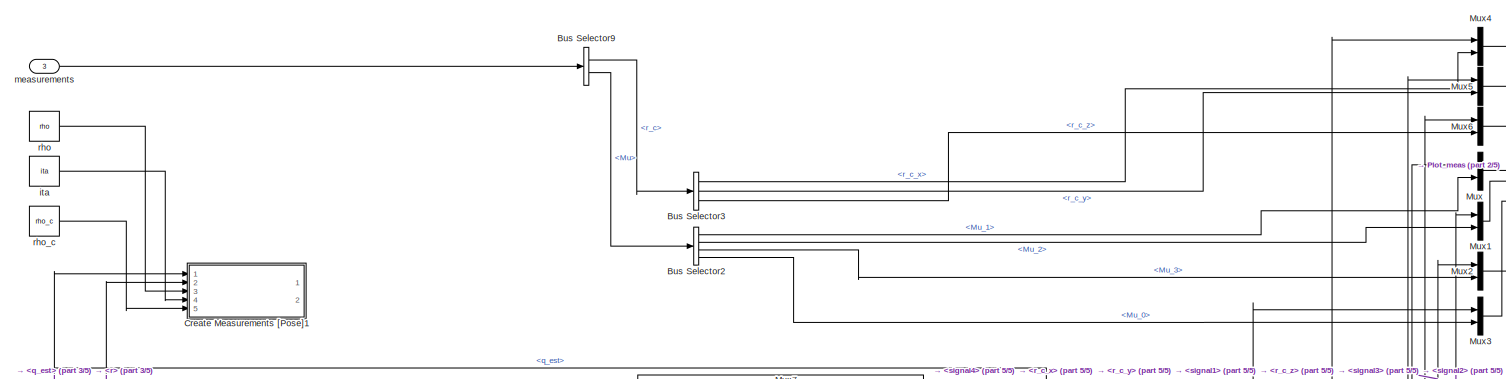
[diagram: Plots and display - part 1/5, full width, top band]
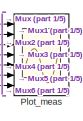
[diagram: Plots and display - part 2/5, top right region]
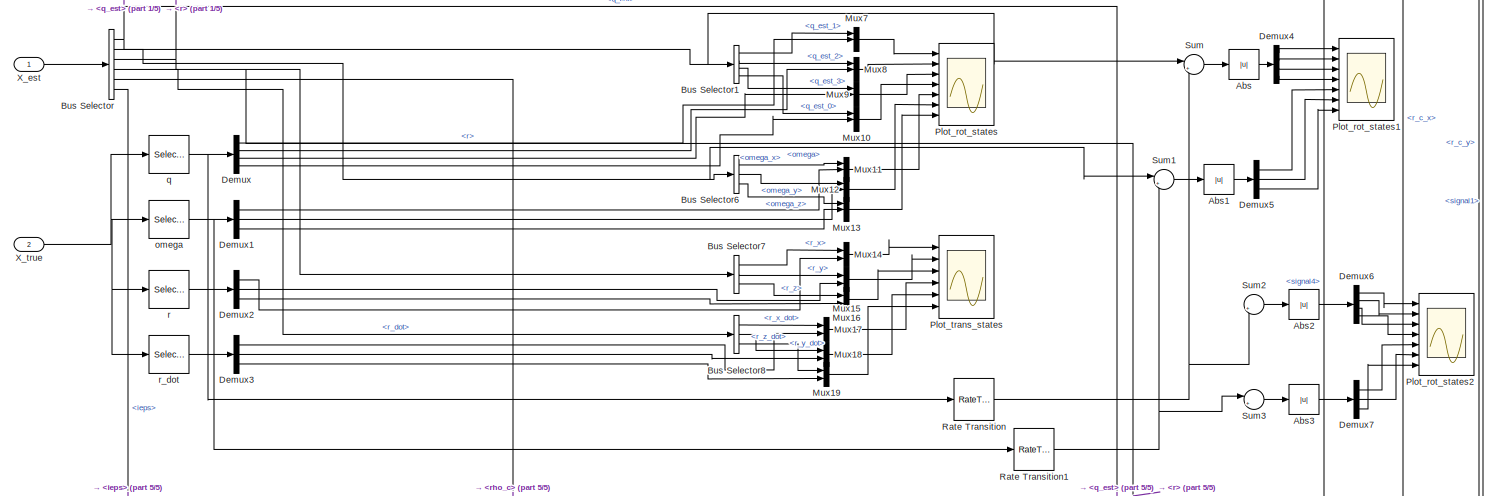
[diagram: Plots and display - part 3/5, full width, middle band]
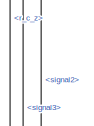
[diagram: Plots and display - part 4/5, middle right region]
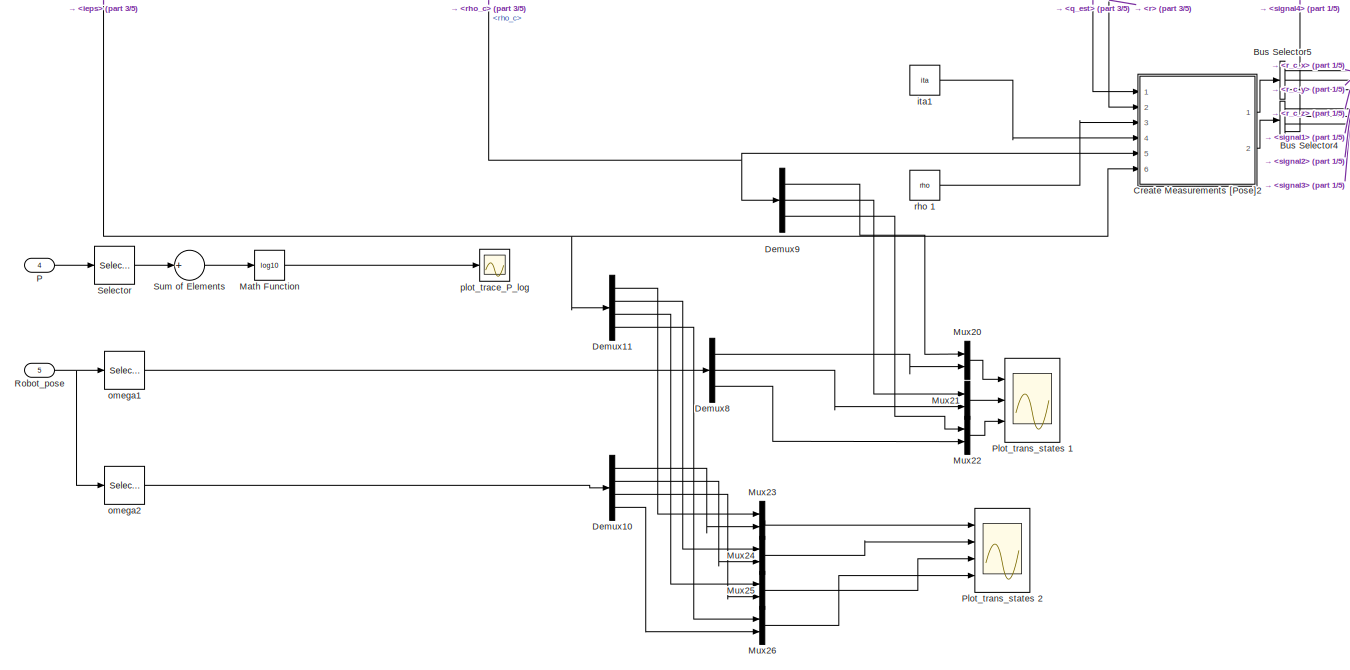
[diagram: Plots and display - part 5/5, full width, bottom band]
BLOCK [SubSystem] Plots and display
  Ports = [5]
  RequestExecContextInheritance = off
BLOCK [Abs] Plots and display/Abs
  SaturateOnIntegerOverflow = off
BLOCK [Abs] Plots and display/Abs1
  SaturateOnIntegerOverflow = off
BLOCK [Abs] Plots and display/Abs2
  SaturateOnIntegerOverflow = off
BLOCK [Abs] Plots and display/Abs3
  SaturateOnIntegerOverflow = off
BLOCK [BusSelector] Plots and display/Bus Selector
  OutputSignals = q_est,omega,r,r_dot,rho_c,ieps
  Ports = [1, 6]
BLOCK [BusSelector] Plots and display/Bus Selector1
  OutputSignals = q_est_1,q_est_2,q_est_3,q_est_0
  Ports = [1, 4]
BLOCK [BusSelector] Plots and display/Bus Selector2
  OutputSignals = Mu_1,Mu_2,Mu_3,Mu_0
  Ports = [1, 4]
BLOCK [BusSelector] Plots and display/Bus Selector3
  OutputSignals = r_c_x,r_c_y,r_c_z
  Ports = [1, 3]
BLOCK [BusSelector] Plots and display/Bus Selector4
  OutputSignals = signal1,signal2,signal3,signal4
  Ports = [1, 4]
BLOCK [BusSelector] Plots and display/Bus Selector5
  OutputSignals = r_c_x,r_c_y,r_c_z
  Ports = [1, 3]
BLOCK [BusSelector] Plots and display/Bus Selector6
  OutputSignals = omega_x,omega_y,omega_z
  Ports = [1, 3]
BLOCK [BusSelector] Plots and display/Bus Selector7
  OutputSignals = r_x,r_y,r_z
  Ports = [1, 3]
BLOCK [BusSelector] Plots and display/Bus Selector8
  OutputSignals = r_x_dot,r_y_dot,r_z_dot
  Ports = [1, 3]
BLOCK [BusSelector] Plots and display/Bus Selector9
  OutputSignals = image_target.r_c,image_target.Mu
  Ports = [1, 2]
BLOCK [SubSystem] Plots and display/Create Measurements [Pose]1
  Ports = [5, 2]
  RequestExecContextInheritance = off
BLOCK [SubSystem] Plots and display/Create Measurements [Pose]1/Create Measurements [Orientation] 
  Ports = [2, 1]
  RequestExecContextInheritance = off
BLOCK [BusCreator] Plots and display/Create Measurements [Pose]1/Create Measurements [Orientation] /Bus Creator
  DisplayOption = bar
  Ports = [4, 1]
BLOCK [Demux] Plots and display/Create Measurements [Pose]1/Create Measurements [Orientation] /Demux
  DisplayOption = bar
  Ports = [1, 4]
BLOCK [SubSystem] Plots and display/Create Measurements [Pose]1/Create Measurements [Orientation] /MATLAB Function
  ErrorFcn = Stateflow.Translate.translate
  PermitHierarchicalResolution = ExplicitOnly
  Ports = [2, 1]
  RequestExecContextInheritance = off
  SFBlockType = MATLAB Function
  TreatAsAtomicUnit = on
BLOCK [Demux] Plots and display/Create Measurements [Pose]1/Create Measurements [Orientation] /MATLAB Function/ Demux 
  Outputs = 1
  Ports = [1, 1]
BLOCK [S-Function] Plots and display/Create Measurements [Pose]1/Create Measurements [Orientation] /MATLAB Function/ SFunction 
  EnableBusSupport = on
  FunctionName = sf_sfun
  PortCounts = [2 2]
  Ports = [2, 2]
  Tag = Stateflow S-Function EKF_SIL_02_newdelIps 15
BLOCK [Terminator] Plots and display/Create Measurements [Pose]1/Create Measurements [Orientation] /MATLAB Function/ Terminator 
BLOCK [Outport] Plots and display/Create Measurements [Pose]1/Create Measurements [Orientation] /MATLAB Function/CrossTensor
  IconDisplay = Port number
BLOCK [Inport] Plots and display/Create Measurements [Pose]1/Create Measurements [Orientation] /MATLAB Function/flag
  IconDisplay = Port number
  Port = 2
BLOCK [Inport] Plots and display/Create Measurements [Pose]1/Create Measurements [Orientation] /MATLAB Function/q
  IconDisplay = Port number
BLOCK [Outport] Plots and display/Create Measurements [Pose]1/Create Measurements [Orientation] /Mu
  IconDisplay = Port number
BLOCK [Product] Plots and display/Create Measurements [Pose]1/Create Measurements [Orientation] /Product
  InputSameDT = off
  Multiplication = Matrix(*)
  OutDataTypeStr = Inherit: Inherit via internal rule
  Ports = [2, 1]
  RndMeth = Floor
  SaturateOnIntegerOverflow = off
BLOCK [Constant] Plots and display/Create Measurements [Pose]1/Create Measurements [Orientation] /flag 
  Value = 0
BLOCK [Inport] Plots and display/Create Measurements [Pose]1/Create Measurements [Orientation] /ita 
  IconDisplay = Port number
  Port = 2
BLOCK [Inport] Plots and display/Create Measurements [Pose]1/Create Measurements [Orientation] /q
  IconDisplay = Port number
BLOCK [SubSystem] Plots and display/Create Measurements [Pose]1/Create Measurements [Position]
  Ports = [4, 1]
  RequestExecContextInheritance = off
BLOCK [Sum] Plots and display/Create Measurements [Pose]1/Create Measurements [Position]/Add
  InputSameDT = off
  Inputs = +++
  OutDataTypeStr = Inherit: Inherit via internal rule
  Ports = [3, 1]
  SaturateOnIntegerOverflow = off
BLOCK [BusCreator] Plots and display/Create Measurements [Pose]1/Create Measurements [Position]/Bus Creator
  DisplayOption = bar
  Inputs = 3
  Ports = [3, 1]
BLOCK [SubSystem] Plots and display/Create Measurements [Pose]1/Create Measurements [Position]/Create Rotation Matrix 
  Ports = [1, 1]
  RequestExecContextInheritance = off
BLOCK [Sum] Plots and display/Create Measurements [Pose]1/Create Measurements [Position]/Create Rotation Matrix /Add
  InputSameDT = off
  OutDataTypeStr = Inherit: Inherit via internal rule
  Ports = [2, 1]
  SaturateOnIntegerOverflow = off
BLOCK [Sum] Plots and display/Create Measurements [Pose]1/Create Measurements [Position]/Create Rotation Matrix /Add5
  InputSameDT = off
  Inputs = +++
  OutDataTypeStr = Inherit: Inherit via internal rule
  Ports = [3, 1]
  SaturateOnIntegerOverflow = off
BLOCK [Constant] Plots and display/Create Measurements [Pose]1/Create Measurements [Position]/Create Rotation Matrix /Constant1
  Value = -1
BLOCK [SubSystem] Plots and display/Create Measurements [Pose]1/Create Measurements [Position]/Create Rotation Matrix /Create Skew Symmetric
  Ports = [1, 1]
  RequestExecContextInheritance = off
BLOCK [Constant] Plots and display/Create Measurements [Pose]1/Create Measurements [Position]/Create Rotation Matrix /Create Skew Symmetric/0
  Value = 0
BLOCK [SubSystem] Plots and display/Create Measurements [Pose]1/Create Measurements [Position]/Create Rotation Matrix /Create Skew Symmetric/Create 3x3 matrix
  Ports = [9, 1]
  RequestExecContextInheritance = off
BLOCK [Math] Plots and display/Create Measurements [Pose]1/Create Measurements [Position]/Create Rotation Matrix /Create Skew Symmetric/Create 3x3 matrix/Math Function
  Operator = transpose
  Ports = [1, 1]
BLOCK [Outport] Plots and display/Create Measurements [Pose]1/Create Measurements [Position]/Create Rotation Matrix /Create Skew Symmetric/Create 3x3 matrix/Matrix
  IconDisplay = Port number
BLOCK [Reshape] Plots and display/Create Measurements [Pose]1/Create Measurements [Position]/Create Rotation Matrix /Create Skew Symmetric/Create 3x3 matrix/Reshape (9) to [3x3] column-major
  OutputDimensionality = Customize
  OutputDimensions = [3,3]
  Ports = [1, 1]
BLOCK [Concatenate] Plots and display/Create Measurements [Pose]1/Create Measurements [Position]/Create Rotation Matrix /Create Skew Symmetric/Create 3x3 matrix/Vector Concatenate
  NumInputs = 9
  Ports = [9, 1]
BLOCK [Inport] Plots and display/Create Measurements [Pose]1/Create Measurements [Position]/Create Rotation Matrix /Create Skew Symmetric/Create 3x3 matrix/a11
  IconDisplay = Port number
BLOCK [Inport] Plots and display/Create Measurements [Pose]1/Create Measurements [Position]/Create Rotation Matrix /Create Skew Symmetric/Create 3x3 matrix/a12
  IconDisplay = Port number
  Port = 2
BLOCK [Inport] Plots and display/Create Measurements [Pose]1/Create Measurements [Position]/Create Rotation Matrix /Create Skew Symmetric/Create 3x3 matrix/a13
  IconDisplay = Port number
  Port = 3
BLOCK [Inport] Plots and display/Create Measurements [Pose]1/Create Measurements [Position]/Create Rotation Matrix /Create Skew Symmetric/Create 3x3 matrix/a21
  IconDisplay = Port number
  Port = 4
BLOCK [Inport] Plots and display/Create Measurements [Pose]1/Create Measurements [Position]/Create Rotation Matrix /Create Skew Symmetric/Create 3x3 matrix/a22
  IconDisplay = Port number
  Port = 5
BLOCK [Inport] Plots and display/Create Measurements [Pose]1/Create Measurements [Position]/Create Rotation Matrix /Create Skew Symmetric/Create 3x3 matrix/a23
  IconDisplay = Port number
  Port = 6
BLOCK [Inport] Plots and display/Create Measurements [Pose]1/Create Measurements [Position]/Create Rotation Matrix /Create Skew Symmetric/Create 3x3 matrix/a31
  IconDisplay = Port number
  Port = 7
BLOCK [Inport] Plots and display/Create Measurements [Pose]1/Create Measurements [Position]/Create Rotation Matrix /Create Skew Symmetric/Create 3x3 matrix/a32
  IconDisplay = Port number
  Port = 8
BLOCK [Inport] Plots and display/Create Measurements [Pose]1/Create Measurements [Position]/Create Rotation Matrix /Create Skew Symmetric/Create 3x3 matrix/a33
  IconDisplay = Port number
  Port = 9
BLOCK [Demux] Plots and display/Create Measurements [Pose]1/Create Measurements [Position]/Create Rotation Matrix /Create Skew Symmetric/Demux
  DisplayOption = bar
  Outputs = 3
  Ports = [1, 3]
BLOCK [Demux] Plots and display/Create Measurements [Pose]1/Create Measurements [Position]/Create Rotation Matrix /Create Skew Symmetric/Demux1
  DisplayOption = bar
  Outputs = 3
  Ports = [1, 3]
BLOCK [Gain] Plots and display/Create Measurements [Pose]1/Create Measurements [Position]/Create Rotation Matrix /Create Skew Symmetric/Gain
  Gain = -1
  OutDataTypeStr = Inherit: Inherit via internal rule
  ParamDataTypeStr = Inherit: Inherit via internal rule
  SaturateOnIntegerOverflow = off
BLOCK [Outport] Plots and display/Create Measurements [Pose]1/Create Measurements [Position]/Create Rotation Matrix /Create Skew Symmetric/skew symmetric Matrix
  IconDisplay = Port number
BLOCK [Inport] Plots and display/Create Measurements [Pose]1/Create Measurements [Position]/Create Rotation Matrix /Create Skew Symmetric/vector
  IconDisplay = Port number
BLOCK [Gain] Plots and display/Create Measurements [Pose]1/Create Measurements [Position]/Create Rotation Matrix /Gain
  Gain = 2
  OutDataTypeStr = Inherit: Inherit via internal rule
  ParamDataTypeStr = Inherit: Inherit via internal rule
  SaturateOnIntegerOverflow = off
BLOCK [Gain] Plots and display/Create Measurements [Pose]1/Create Measurements [Position]/Create Rotation Matrix /Gain1
  Gain = 2
  OutDataTypeStr = Inherit: Inherit via internal rule
  ParamDataTypeStr = Inherit: Inherit via internal rule
  SaturateOnIntegerOverflow = off
BLOCK [Gain] Plots and display/Create Measurements [Pose]1/Create Measurements [Position]/Create Rotation Matrix /Gain2
  Gain = 2
  OutDataTypeStr = Inherit: Inherit via internal rule
  ParamDataTypeStr = Inherit: Inherit via internal rule
  SaturateOnIntegerOverflow = off
BLOCK [Constant] Plots and display/Create Measurements [Pose]1/Create Measurements [Position]/Create Rotation Matrix /I
  Value = eye(3,3)
BLOCK [Math] Plots and display/Create Measurements [Pose]1/Create Measurements [Position]/Create Rotation Matrix /Math Function
  Operator = square
  Ports = [1, 1]
BLOCK [Math] Plots and display/Create Measurements [Pose]1/Create Measurements [Position]/Create Rotation Matrix /Math Function1
  Operator = transpose
  Ports = [1, 1]
BLOCK [Product] Plots and display/Create Measurements [Pose]1/Create Measurements [Position]/Create Rotation Matrix /Product1
  InputSameDT = off
  OutDataTypeStr = Inherit: Inherit via internal rule
  Ports = [2, 1]
  RndMeth = Floor
  SaturateOnIntegerOverflow = off
BLOCK [Product] Plots and display/Create Measurements [Pose]1/Create Measurements [Position]/Create Rotation Matrix /Product2
  InputSameDT = off
  OutDataTypeStr = Inherit: Inherit via internal rule
  Ports = [2, 1]
  RndMeth = Floor
  SaturateOnIntegerOverflow = off
BLOCK [Product] Plots and display/Create Measurements [Pose]1/Create Measurements [Position]/Create Rotation Matrix /Product3
  InputSameDT = off
  Multiplication = Matrix(*)
  OutDataTypeStr = Inherit: Inherit via internal rule
  Ports = [2, 1]
  RndMeth = Floor
  SaturateOnIntegerOverflow = off
BLOCK [Outport] Plots and display/Create Measurements [Pose]1/Create Measurements [Position]/Create Rotation Matrix /R
  IconDisplay = Port number
BLOCK [Selector] Plots and display/Create Measurements [Pose]1/Create Measurements [Position]/Create Rotation Matrix /Selector2
  IndexOptions = Index vector (dialog),Index vector (dialog)
  Indices = [1 2 3],1
  InputPortWidth = 3
  NumberOfDimensions = 2
  OutputSizes = 1,1
  Ports = [1, 1]
BLOCK [Selector] Plots and display/Create Measurements [Pose]1/Create Measurements [Position]/Create Rotation Matrix /Selector3
  IndexOptions = Index vector (dialog),Index vector (dialog)
  Indices = [4],1
  InputPortWidth = 3
  NumberOfDimensions = 2
  OutputSizes = 1,1
  Ports = [1, 1]
BLOCK [Inport] Plots and display/Create Measurements [Pose]1/Create Measurements [Position]/Create Rotation Matrix /q
  IconDisplay = Port number
BLOCK [Demux] Plots and display/Create Measurements [Pose]1/Create Measurements [Position]/Demux
  DisplayOption = bar
  Outputs = 3
  Ports = [1, 3]
BLOCK [Product] Plots and display/Create Measurements [Pose]1/Create Measurements [Position]/Product
  InputSameDT = off
  Multiplication = Matrix(*)
  OutDataTypeStr = Inherit: Inherit via internal rule
  Ports = [2, 1]
  RndMeth = Floor
  SaturateOnIntegerOverflow = off
BLOCK [Inport] Plots and display/Create Measurements [Pose]1/Create Measurements [Position]/q
  IconDisplay = Port number
  Port = 2
BLOCK [Inport] Plots and display/Create Measurements [Pose]1/Create Measurements [Position]/r
  IconDisplay = Port number
BLOCK [Outport] Plots and display/Create Measurements [Pose]1/Create Measurements [Position]/r_c
  IconDisplay = Port number
BLOCK [Inport] Plots and display/Create Measurements [Pose]1/Create Measurements [Position]/rho
  IconDisplay = Port number
  Port = 3
BLOCK [Inport] Plots and display/Create Measurements [Pose]1/Create Measurements [Position]/rho_c 
  IconDisplay = Port number
  Port = 4
BLOCK [Outport] Plots and display/Create Measurements [Pose]1/Mu
  IconDisplay = Port number
  Port = 2
BLOCK [RateTransition] Plots and display/Create Measurements [Pose]1/Rate Transition
BLOCK [RateTransition] Plots and display/Create Measurements [Pose]1/Rate Transition1
BLOCK [RateTransition] Plots and display/Create Measurements [Pose]1/Rate Transition2
BLOCK [Inport] Plots and display/Create Measurements [Pose]1/ita
  IconDisplay = Port number
  Port = 4
BLOCK [Inport] Plots and display/Create Measurements [Pose]1/q
  IconDisplay = Port number
BLOCK [Inport] Plots and display/Create Measurements [Pose]1/r
  IconDisplay = Port number
  Port = 2
BLOCK [Outport] Plots and display/Create Measurements [Pose]1/r_c
  IconDisplay = Port number
BLOCK [Inport] Plots and display/Create Measurements [Pose]1/rho
  IconDisplay = Port number
  Port = 3
BLOCK [Inport] Plots and display/Create Measurements [Pose]1/rho_c 
  IconDisplay = Port number
  Port = 5
BLOCK [SubSystem] Plots and display/Create Measurements [Pose]2
  Ports = [6, 2]
  RequestExecContextInheritance = off
BLOCK [SubSystem] Plots and display/Create Measurements [Pose]2/Create Measurements [Orientation] 
  Ports = [3, 1]
  RequestExecContextInheritance = off
BLOCK [BusCreator] Plots and display/Create Measurements [Pose]2/Create Measurements [Orientation] /Bus Creator
  DisplayOption = bar
  Ports = [4, 1]
BLOCK [Demux] Plots and display/Create Measurements [Pose]2/Create Measurements [Orientation] /Demux
  DisplayOption = bar
  Ports = [1, 4]
BLOCK [SubSystem] Plots and display/Create Measurements [Pose]2/Create Measurements [Orientation] /MATLAB Function
  ErrorFcn = Stateflow.Translate.translate
  PermitHierarchicalResolution = ExplicitOnly
  Ports = [2, 1]
  RequestExecContextInheritance = off
  SFBlockType = MATLAB Function
  TreatAsAtomicUnit = on
BLOCK [Demux] Plots and display/Create Measurements [Pose]2/Create Measurements [Orientation] /MATLAB Function/ Demux 
  Outputs = 1
  Ports = [1, 1]
BLOCK [S-Function] Plots and display/Create Measurements [Pose]2/Create Measurements [Orientation] /MATLAB Function/ SFunction 
  EnableBusSupport = on
  FunctionName = sf_sfun
  PortCounts = [2 2]
  Ports = [2, 2]
  Tag = Stateflow S-Function EKF_SIL_02_newdelIps 19
BLOCK [Terminator] Plots and display/Create Measurements [Pose]2/Create Measurements [Orientation] /MATLAB Function/ Terminator 
BLOCK [Outport] Plots and display/Create Measurements [Pose]2/Create Measurements [Orientation] /MATLAB Function/CrossTensor
  IconDisplay = Port number
BLOCK [Inport] Plots and display/Create Measurements [Pose]2/Create Measurements [Orientation] /MATLAB Function/flag
  IconDisplay = Port number
  Port = 2
BLOCK [Inport] Plots and display/Create Measurements [Pose]2/Create Measurements [Orientation] /MATLAB Function/q
  IconDisplay = Port number
BLOCK [SubSystem] Plots and display/Create Measurements [Pose]2/Create Measurements [Orientation] /MATLAB Function1
  ErrorFcn = Stateflow.Translate.translate
  PermitHierarchicalResolution = ExplicitOnly
  Ports = [2, 1]
  RequestExecContextInheritance = off
  SFBlockType = MATLAB Function
  TreatAsAtomicUnit = on
BLOCK [Demux] Plots and display/Create Measurements [Pose]2/Create Measurements [Orientation] /MATLAB Function1/ Demux 
  Outputs = 1
  Ports = [1, 1]
BLOCK [S-Function] Plots and display/Create Measurements [Pose]2/Create Measurements [Orientation] /MATLAB Function1/ SFunction 
  EnableBusSupport = on
  FunctionName = sf_sfun
  PortCounts = [2 2]
  Ports = [2, 2]
  Tag = Stateflow S-Function EKF_SIL_02_newdelIps 3
BLOCK [Terminator] Plots and display/Create Measurements [Pose]2/Create Measurements [Orientation] /MATLAB Function1/ Terminator 
BLOCK [Outport] Plots and display/Create Measurements [Pose]2/Create Measurements [Orientation] /MATLAB Function1/CrossTensor
  IconDisplay = Port number
BLOCK [Inport] Plots and display/Create Measurements [Pose]2/Create Measurements [Orientation] /MATLAB Function1/flag
  IconDisplay = Port number
  Port = 2
BLOCK [Inport] Plots and display/Create Measurements [Pose]2/Create Measurements [Orientation] /MATLAB Function1/q
  IconDisplay = Port number
BLOCK [Outport] Plots and display/Create Measurements [Pose]2/Create Measurements [Orientation] /Mu
  IconDisplay = Port number
BLOCK [Product] Plots and display/Create Measurements [Pose]2/Create Measurements [Orientation] /Product
  InputSameDT = off
  Multiplication = Matrix(*)
  OutDataTypeStr = Inherit: Inherit via internal rule
  Ports = [2, 1]
  RndMeth = Floor
  SaturateOnIntegerOverflow = off
BLOCK [Product] Plots and display/Create Measurements [Pose]2/Create Measurements [Orientation] /Product1
  InputSameDT = off
  Multiplication = Matrix(*)
  OutDataTypeStr = Inherit: Inherit via internal rule
  Ports = [2, 1]
  RndMeth = Floor
  SaturateOnIntegerOverflow = off
BLOCK [Constant] Plots and display/Create Measurements [Pose]2/Create Measurements [Orientation] /flag 
  Value = 0
BLOCK [Inport] Plots and display/Create Measurements [Pose]2/Create Measurements [Orientation] /ieps 
  IconDisplay = Port number
  Port = 3
BLOCK [Inport] Plots and display/Create Measurements [Pose]2/Create Measurements [Orientation] /ita 
  IconDisplay = Port number
  Port = 2
BLOCK [Inport] Plots and display/Create Measurements [Pose]2/Create Measurements [Orientation] /q
  IconDisplay = Port number
BLOCK [SubSystem] Plots and display/Create Measurements [Pose]2/Create Measurements [Position]
  Ports = [5, 1]
  RequestExecContextInheritance = off
BLOCK [Sum] Plots and display/Create Measurements [Pose]2/Create Measurements [Position]/Add
  InputSameDT = off
  OutDataTypeStr = Inherit: Inherit via internal rule
  Ports = [2, 1]
  SaturateOnIntegerOverflow = off
BLOCK [Sum] Plots and display/Create Measurements [Pose]2/Create Measurements [Position]/Add1
  InputSameDT = off
  OutDataTypeStr = Inherit: Inherit via internal rule
  Ports = [2, 1]
  SaturateOnIntegerOverflow = off
BLOCK [BusCreator] Plots and display/Create Measurements [Pose]2/Create Measurements [Position]/Bus Creator
  DisplayOption = bar
  Inputs = 3
  Ports = [3, 1]
BLOCK [SubSystem] Plots and display/Create Measurements [Pose]2/Create Measurements [Position]/Create Rotation Matrix 
  Ports = [1, 1]
  RequestExecContextInheritance = off
BLOCK [Sum] Plots and display/Create Measurements [Pose]2/Create Measurements [Position]/Create Rotation Matrix /Add
  InputSameDT = off
  OutDataTypeStr = Inherit: Inherit via internal rule
  Ports = [2, 1]
  SaturateOnIntegerOverflow = off
BLOCK [Sum] Plots and display/Create Measurements [Pose]2/Create Measurements [Position]/Create Rotation Matrix /Add5
  InputSameDT = off
  Inputs = +++
  OutDataTypeStr = Inherit: Inherit via internal rule
  Ports = [3, 1]
  SaturateOnIntegerOverflow = off
BLOCK [Constant] Plots and display/Create Measurements [Pose]2/Create Measurements [Position]/Create Rotation Matrix /Constant1
  Value = -1
BLOCK [SubSystem] Plots and display/Create Measurements [Pose]2/Create Measurements [Position]/Create Rotation Matrix /Create Skew Symmetric
  Ports = [1, 1]
  RequestExecContextInheritance = off
BLOCK [Constant] Plots and display/Create Measurements [Pose]2/Create Measurements [Position]/Create Rotation Matrix /Create Skew Symmetric/0
  Value = 0
BLOCK [SubSystem] Plots and display/Create Measurements [Pose]2/Create Measurements [Position]/Create Rotation Matrix /Create Skew Symmetric/Create 3x3 matrix
  Ports = [9, 1]
  RequestExecContextInheritance = off
BLOCK [Math] Plots and display/Create Measurements [Pose]2/Create Measurements [Position]/Create Rotation Matrix /Create Skew Symmetric/Create 3x3 matrix/Math Function
  Operator = transpose
  Ports = [1, 1]
BLOCK [Outport] Plots and display/Create Measurements [Pose]2/Create Measurements [Position]/Create Rotation Matrix /Create Skew Symmetric/Create 3x3 matrix/Matrix
  IconDisplay = Port number
BLOCK [Reshape] Plots and display/Create Measurements [Pose]2/Create Measurements [Position]/Create Rotation Matrix /Create Skew Symmetric/Create 3x3 matrix/Reshape (9) to [3x3] column-major
  OutputDimensionality = Customize
  OutputDimensions = [3,3]
  Ports = [1, 1]
BLOCK [Concatenate] Plots and display/Create Measurements [Pose]2/Create Measurements [Position]/Create Rotation Matrix /Create Skew Symmetric/Create 3x3 matrix/Vector Concatenate
  NumInputs = 9
  Ports = [9, 1]
BLOCK [Inport] Plots and display/Create Measurements [Pose]2/Create Measurements [Position]/Create Rotation Matrix /Create Skew Symmetric/Create 3x3 matrix/a11
  IconDisplay = Port number
BLOCK [Inport] Plots and display/Create Measurements [Pose]2/Create Measurements [Position]/Create Rotation Matrix /Create Skew Symmetric/Create 3x3 matrix/a12
  IconDisplay = Port number
  Port = 2
BLOCK [Inport] Plots and display/Create Measurements [Pose]2/Create Measurements [Position]/Create Rotation Matrix /Create Skew Symmetric/Create 3x3 matrix/a13
  IconDisplay = Port number
  Port = 3
BLOCK [Inport] Plots and display/Create Measurements [Pose]2/Create Measurements [Position]/Create Rotation Matrix /Create Skew Symmetric/Create 3x3 matrix/a21
  IconDisplay = Port number
  Port = 4
BLOCK [Inport] Plots and display/Create Measurements [Pose]2/Create Measurements [Position]/Create Rotation Matrix /Create Skew Symmetric/Create 3x3 matrix/a22
  IconDisplay = Port number
  Port = 5
BLOCK [Inport] Plots and display/Create Measurements [Pose]2/Create Measurements [Position]/Create Rotation Matrix /Create Skew Symmetric/Create 3x3 matrix/a23
  IconDisplay = Port number
  Port = 6
BLOCK [Inport] Plots and display/Create Measurements [Pose]2/Create Measurements [Position]/Create Rotation Matrix /Create Skew Symmetric/Create 3x3 matrix/a31
  IconDisplay = Port number
  Port = 7
BLOCK [Inport] Plots and display/Create Measurements [Pose]2/Create Measurements [Position]/Create Rotation Matrix /Create Skew Symmetric/Create 3x3 matrix/a32
  IconDisplay = Port number
  Port = 8
BLOCK [Inport] Plots and display/Create Measurements [Pose]2/Create Measurements [Position]/Create Rotation Matrix /Create Skew Symmetric/Create 3x3 matrix/a33
  IconDisplay = Port number
  Port = 9
BLOCK [Demux] Plots and display/Create Measurements [Pose]2/Create Measurements [Position]/Create Rotation Matrix /Create Skew Symmetric/Demux
  DisplayOption = bar
  Outputs = 3
  Ports = [1, 3]
BLOCK [Demux] Plots and display/Create Measurements [Pose]2/Create Measurements [Position]/Create Rotation Matrix /Create Skew Symmetric/Demux1
  DisplayOption = bar
  Outputs = 3
  Ports = [1, 3]
BLOCK [Gain] Plots and display/Create Measurements [Pose]2/Create Measurements [Position]/Create Rotation Matrix /Create Skew Symmetric/Gain
  Gain = -1
  OutDataTypeStr = Inherit: Inherit via internal rule
  ParamDataTypeStr = Inherit: Inherit via internal rule
  SaturateOnIntegerOverflow = off
BLOCK [Outport] Plots and display/Create Measurements [Pose]2/Create Measurements [Position]/Create Rotation Matrix /Create Skew Symmetric/skew symmetric Matrix
  IconDisplay = Port number
BLOCK [Inport] Plots and display/Create Measurements [Pose]2/Create Measurements [Position]/Create Rotation Matrix /Create Skew Symmetric/vector
  IconDisplay = Port number
BLOCK [Gain] Plots and display/Create Measurements [Pose]2/Create Measurements [Position]/Create Rotation Matrix /Gain
  Gain = 2
  OutDataTypeStr = Inherit: Inherit via internal rule
  ParamDataTypeStr = Inherit: Inherit via internal rule
  SaturateOnIntegerOverflow = off
BLOCK [Gain] Plots and display/Create Measurements [Pose]2/Create Measurements [Position]/Create Rotation Matrix /Gain1
  Gain = 2
  OutDataTypeStr = Inherit: Inherit via internal rule
  ParamDataTypeStr = Inherit: Inherit via internal rule
  SaturateOnIntegerOverflow = off
BLOCK [Gain] Plots and display/Create Measurements [Pose]2/Create Measurements [Position]/Create Rotation Matrix /Gain2
  Gain = 2
  OutDataTypeStr = Inherit: Inherit via internal rule
  ParamDataTypeStr = Inherit: Inherit via internal rule
  SaturateOnIntegerOverflow = off
BLOCK [Constant] Plots and display/Create Measurements [Pose]2/Create Measurements [Position]/Create Rotation Matrix /I
  Value = eye(3,3)
BLOCK [Math] Plots and display/Create Measurements [Pose]2/Create Measurements [Position]/Create Rotation Matrix /Math Function
  Operator = square
  Ports = [1, 1]
BLOCK [Math] Plots and display/Create Measurements [Pose]2/Create Measurements [Position]/Create Rotation Matrix /Math Function1
  Operator = transpose
  Ports = [1, 1]
BLOCK [Product] Plots and display/Create Measurements [Pose]2/Create Measurements [Position]/Create Rotation Matrix /Product1
  InputSameDT = off
  OutDataTypeStr = Inherit: Inherit via internal rule
  Ports = [2, 1]
  RndMeth = Floor
  SaturateOnIntegerOverflow = off
BLOCK [Product] Plots and display/Create Measurements [Pose]2/Create Measurements [Position]/Create Rotation Matrix /Product2
  InputSameDT = off
  OutDataTypeStr = Inherit: Inherit via internal rule
  Ports = [2, 1]
  RndMeth = Floor
  SaturateOnIntegerOverflow = off
BLOCK [Product] Plots and display/Create Measurements [Pose]2/Create Measurements [Position]/Create Rotation Matrix /Product3
  InputSameDT = off
  Multiplication = Matrix(*)
  OutDataTypeStr = Inherit: Inherit via internal rule
  Ports = [2, 1]
  RndMeth = Floor
  SaturateOnIntegerOverflow = off
BLOCK [Outport] Plots and display/Create Measurements [Pose]2/Create Measurements [Position]/Create Rotation Matrix /R
  IconDisplay = Port number
BLOCK [Selector] Plots and display/Create Measurements [Pose]2/Create Measurements [Position]/Create Rotation Matrix /Selector2
  IndexOptions = Index vector (dialog),Index vector (dialog)
  Indices = [1 2 3],1
  InputPortWidth = 3
  NumberOfDimensions = 2
  OutputSizes = 1,1
  Ports = [1, 1]
BLOCK [Selector] Plots and display/Create Measurements [Pose]2/Create Measurements [Position]/Create Rotation Matrix /Selector3
  IndexOptions = Index vector (dialog),Index vector (dialog)
  Indices = [4],1
  InputPortWidth = 3
  NumberOfDimensions = 2
  OutputSizes = 1,1
  Ports = [1, 1]
BLOCK [Inport] Plots and display/Create Measurements [Pose]2/Create Measurements [Position]/Create Rotation Matrix /q
  IconDisplay = Port number
BLOCK [SubSystem] Plots and display/Create Measurements [Pose]2/Create Measurements [Position]/Create Rotation Matrix 1
  Ports = [1, 1]
  RequestExecContextInheritance = off
BLOCK [Sum] Plots and display/Create Measurements [Pose]2/Create Measurements [Position]/Create Rotation Matrix 1/Add
  InputSameDT = off
  OutDataTypeStr = Inherit: Inherit via internal rule
  Ports = [2, 1]
  SaturateOnIntegerOverflow = off
BLOCK [Sum] Plots and display/Create Measurements [Pose]2/Create Measurements [Position]/Create Rotation Matrix 1/Add5
  InputSameDT = off
  Inputs = +++
  OutDataTypeStr = Inherit: Inherit via internal rule
  Ports = [3, 1]
  SaturateOnIntegerOverflow = off
BLOCK [Constant] Plots and display/Create Measurements [Pose]2/Create Measurements [Position]/Create Rotation Matrix 1/Constant1
  Value = -1
BLOCK [SubSystem] Plots and display/Create Measurements [Pose]2/Create Measurements [Position]/Create Rotation Matrix 1/Create Skew Symmetric
  Ports = [1, 1]
  RequestExecContextInheritance = off
BLOCK [Constant] Plots and display/Create Measurements [Pose]2/Create Measurements [Position]/Create Rotation Matrix 1/Create Skew Symmetric/0
  Value = 0
BLOCK [SubSystem] Plots and display/Create Measurements [Pose]2/Create Measurements [Position]/Create Rotation Matrix 1/Create Skew Symmetric/Create 3x3 matrix
  Ports = [9, 1]
  RequestExecContextInheritance = off
BLOCK [Math] Plots and display/Create Measurements [Pose]2/Create Measurements [Position]/Create Rotation Matrix 1/Create Skew Symmetric/Create 3x3 matrix/Math Function
  Operator = transpose
  Ports = [1, 1]
BLOCK [Outport] Plots and display/Create Measurements [Pose]2/Create Measurements [Position]/Create Rotation Matrix 1/Create Skew Symmetric/Create 3x3 matrix/Matrix
  IconDisplay = Port number
BLOCK [Reshape] Plots and display/Create Measurements [Pose]2/Create Measurements [Position]/Create Rotation Matrix 1/Create Skew Symmetric/Create 3x3 matrix/Reshape (9) to [3x3] column-major
  OutputDimensionality = Customize
  OutputDimensions = [3,3]
  Ports = [1, 1]
BLOCK [Concatenate] Plots and display/Create Measurements [Pose]2/Create Measurements [Position]/Create Rotation Matrix 1/Create Skew Symmetric/Create 3x3 matrix/Vector Concatenate
  NumInputs = 9
  Ports = [9, 1]
BLOCK [Inport] Plots and display/Create Measurements [Pose]2/Create Measurements [Position]/Create Rotation Matrix 1/Create Skew Symmetric/Create 3x3 matrix/a11
  IconDisplay = Port number
BLOCK [Inport] Plots and display/Create Measurements [Pose]2/Create Measurements [Position]/Create Rotation Matrix 1/Create Skew Symmetric/Create 3x3 matrix/a12
  IconDisplay = Port number
  Port = 2
BLOCK [Inport] Plots and display/Create Measurements [Pose]2/Create Measurements [Position]/Create Rotation Matrix 1/Create Skew Symmetric/Create 3x3 matrix/a13
  IconDisplay = Port number
  Port = 3
BLOCK [Inport] Plots and display/Create Measurements [Pose]2/Create Measurements [Position]/Create Rotation Matrix 1/Create Skew Symmetric/Create 3x3 matrix/a21
  IconDisplay = Port number
  Port = 4
BLOCK [Inport] Plots and display/Create Measurements [Pose]2/Create Measurements [Position]/Create Rotation Matrix 1/Create Skew Symmetric/Create 3x3 matrix/a22
  IconDisplay = Port number
  Port = 5
BLOCK [Inport] Plots and display/Create Measurements [Pose]2/Create Measurements [Position]/Create Rotation Matrix 1/Create Skew Symmetric/Create 3x3 matrix/a23
  IconDisplay = Port number
  Port = 6
BLOCK [Inport] Plots and display/Create Measurements [Pose]2/Create Measurements [Position]/Create Rotation Matrix 1/Create Skew Symmetric/Create 3x3 matrix/a31
  IconDisplay = Port number
  Port = 7
BLOCK [Inport] Plots and display/Create Measurements [Pose]2/Create Measurements [Position]/Create Rotation Matrix 1/Create Skew Symmetric/Create 3x3 matrix/a32
  IconDisplay = Port number
  Port = 8
BLOCK [Inport] Plots and display/Create Measurements [Pose]2/Create Measurements [Position]/Create Rotation Matrix 1/Create Skew Symmetric/Create 3x3 matrix/a33
  IconDisplay = Port number
  Port = 9
BLOCK [Demux] Plots and display/Create Measurements [Pose]2/Create Measurements [Position]/Create Rotation Matrix 1/Create Skew Symmetric/Demux
  DisplayOption = bar
  Outputs = 3
  Ports = [1, 3]
BLOCK [Demux] Plots and display/Create Measurements [Pose]2/Create Measurements [Position]/Create Rotation Matrix 1/Create Skew Symmetric/Demux1
  DisplayOption = bar
  Outputs = 3
  Ports = [1, 3]
BLOCK [Gain] Plots and display/Create Measurements [Pose]2/Create Measurements [Position]/Create Rotation Matrix 1/Create Skew Symmetric/Gain
  Gain = -1
  OutDataTypeStr = Inherit: Inherit via internal rule
  ParamDataTypeStr = Inherit: Inherit via internal rule
  SaturateOnIntegerOverflow = off
BLOCK [Outport] Plots and display/Create Measurements [Pose]2/Create Measurements [Position]/Create Rotation Matrix 1/Create Skew Symmetric/skew symmetric Matrix
  IconDisplay = Port number
BLOCK [Inport] Plots and display/Create Measurements [Pose]2/Create Measurements [Position]/Create Rotation Matrix 1/Create Skew Symmetric/vector
  IconDisplay = Port number
BLOCK [Gain] Plots and display/Create Measurements [Pose]2/Create Measurements [Position]/Create Rotation Matrix 1/Gain
  Gain = 2
  OutDataTypeStr = Inherit: Inherit via internal rule
  ParamDataTypeStr = Inherit: Inherit via internal rule
  SaturateOnIntegerOverflow = off
BLOCK [Gain] Plots and display/Create Measurements [Pose]2/Create Measurements [Position]/Create Rotation Matrix 1/Gain1
  Gain = 2
  OutDataTypeStr = Inherit: Inherit via internal rule
  ParamDataTypeStr = Inherit: Inherit via internal rule
  SaturateOnIntegerOverflow = off
BLOCK [Gain] Plots and display/Create Measurements [Pose]2/Create Measurements [Position]/Create Rotation Matrix 1/Gain2
  Gain = 2
  OutDataTypeStr = Inherit: Inherit via internal rule
  ParamDataTypeStr = Inherit: Inherit via internal rule
  SaturateOnIntegerOverflow = off
BLOCK [Constant] Plots and display/Create Measurements [Pose]2/Create Measurements [Position]/Create Rotation Matrix 1/I
  Value = eye(3,3)
BLOCK [Math] Plots and display/Create Measurements [Pose]2/Create Measurements [Position]/Create Rotation Matrix 1/Math Function
  Operator = square
  Ports = [1, 1]
BLOCK [Math] Plots and display/Create Measurements [Pose]2/Create Measurements [Position]/Create Rotation Matrix 1/Math Function1
  Operator = transpose
  Ports = [1, 1]
BLOCK [Product] Plots and display/Create Measurements [Pose]2/Create Measurements [Position]/Create Rotation Matrix 1/Product1
  InputSameDT = off
  OutDataTypeStr = Inherit: Inherit via internal rule
  Ports = [2, 1]
  RndMeth = Floor
  SaturateOnIntegerOverflow = off
BLOCK [Product] Plots and display/Create Measurements [Pose]2/Create Measurements [Position]/Create Rotation Matrix 1/Product2
  InputSameDT = off
  OutDataTypeStr = Inherit: Inherit via internal rule
  Ports = [2, 1]
  RndMeth = Floor
  SaturateOnIntegerOverflow = off
BLOCK [Product] Plots and display/Create Measurements [Pose]2/Create Measurements [Position]/Create Rotation Matrix 1/Product3
  InputSameDT = off
  Multiplication = Matrix(*)
  OutDataTypeStr = Inherit: Inherit via internal rule
  Ports = [2, 1]
  RndMeth = Floor
  SaturateOnIntegerOverflow = off
BLOCK [Outport] Plots and display/Create Measurements [Pose]2/Create Measurements [Position]/Create Rotation Matrix 1/R
  IconDisplay = Port number
BLOCK [Selector] Plots and display/Create Measurements [Pose]2/Create Measurements [Position]/Create Rotation Matrix 1/Selector2
  IndexOptions = Index vector (dialog),Index vector (dialog)
  Indices = [1 2 3],1
  InputPortWidth = 3
  NumberOfDimensions = 2
  OutputSizes = 1,1
  Ports = [1, 1]
BLOCK [Selector] Plots and display/Create Measurements [Pose]2/Create Measurements [Position]/Create Rotation Matrix 1/Selector3
  IndexOptions = Index vector (dialog),Index vector (dialog)
  Indices = [4],1
  InputPortWidth = 3
  NumberOfDimensions = 2
  OutputSizes = 1,1
  Ports = [1, 1]
BLOCK [Inport] Plots and display/Create Measurements [Pose]2/Create Measurements [Position]/Create Rotation Matrix 1/q
  IconDisplay = Port number
BLOCK [Demux] Plots and display/Create Measurements [Pose]2/Create Measurements [Position]/Demux
  DisplayOption = bar
  Outputs = 3
  Ports = [1, 3]
BLOCK [Product] Plots and display/Create Measurements [Pose]2/Create Measurements [Position]/Product
  InputSameDT = off
  Multiplication = Matrix(*)
  OutDataTypeStr = Inherit: Inherit via internal rule
  Ports = [2, 1]
  RndMeth = Floor
  SaturateOnIntegerOverflow = off
BLOCK [Product] Plots and display/Create Measurements [Pose]2/Create Measurements [Position]/Product1
  InputSameDT = off
  Multiplication = Matrix(*)
  OutDataTypeStr = Inherit: Inherit via internal rule
  Ports = [2, 1]
  RndMeth = Floor
  SaturateOnIntegerOverflow = off
BLOCK [Inport] Plots and display/Create Measurements [Pose]2/Create Measurements [Position]/ieps 
  IconDisplay = Port number
  Port = 5
BLOCK [Inport] Plots and display/Create Measurements [Pose]2/Create Measurements [Position]/q
  IconDisplay = Port number
  Port = 2
BLOCK [Inport] Plots and display/Create Measurements [Pose]2/Create Measurements [Position]/r
  IconDisplay = Port number
BLOCK [Outport] Plots and display/Create Measurements [Pose]2/Create Measurements [Position]/r_c
  IconDisplay = Port number
BLOCK [Inport] Plots and display/Create Measurements [Pose]2/Create Measurements [Position]/rho
  IconDisplay = Port number
  Port = 3
BLOCK [Inport] Plots and display/Create Measurements [Pose]2/Create Measurements [Position]/rho_c 
  IconDisplay = Port number
  Port = 4
BLOCK [Outport] Plots and display/Create Measurements [Pose]2/Mu
  IconDisplay = Port number
  Port = 2
BLOCK [RateTransition] Plots and display/Create Measurements [Pose]2/Rate Transition
BLOCK [RateTransition] Plots and display/Create Measurements [Pose]2/Rate Transition1
BLOCK [RateTransition] Plots and display/Create Measurements [Pose]2/Rate Transition2
BLOCK [Inport] Plots and display/Create Measurements [Pose]2/ieps
  IconDisplay = Port number
  Port = 6
BLOCK [Inport] Plots and display/Create Measurements [Pose]2/ita
  IconDisplay = Port number
  Port = 4
BLOCK [Inport] Plots and display/Create Measurements [Pose]2/q
  IconDisplay = Port number
BLOCK [Inport] Plots and display/Create Measurements [Pose]2/r
  IconDisplay = Port number
  Port = 2
BLOCK [Outport] Plots and display/Create Measurements [Pose]2/r_c
  IconDisplay = Port number
BLOCK [Inport] Plots and display/Create Measurements [Pose]2/rho
  IconDisplay = Port number
  Port = 3
BLOCK [Inport] Plots and display/Create Measurements [Pose]2/rho_c 
  IconDisplay = Port number
  Port = 5
BLOCK [Demux] Plots and display/Demux
  DisplayOption = bar
  Ports = [1, 4]
BLOCK [Demux] Plots and display/Demux1
  DisplayOption = bar
  Outputs = 3
  Ports = [1, 3]
BLOCK [Demux] Plots and display/Demux10
  DisplayOption = bar
  Ports = [1, 4]
BLOCK [Demux] Plots and display/Demux11
  DisplayOption = bar
  Ports = [1, 4]
BLOCK [Demux] Plots and display/Demux2
  DisplayOption = bar
  Outputs = 3
  Ports = [1, 3]
BLOCK [Demux] Plots and display/Demux3
  DisplayOption = bar
  Outputs = 3
  Ports = [1, 3]
BLOCK [Demux] Plots and display/Demux4
  DisplayOption = bar
  Ports = [1, 4]
BLOCK [Demux] Plots and display/Demux5
  DisplayOption = bar
  Outputs = 3
  Ports = [1, 3]
BLOCK [Demux] Plots and display/Demux6
  DisplayOption = bar
  Ports = [1, 4]
BLOCK [Demux] Plots and display/Demux7
  DisplayOption = bar
  Outputs = 3
  Ports = [1, 3]
BLOCK [Demux] Plots and display/Demux8
  DisplayOption = bar
  Outputs = 3
  Ports = [1, 3]
BLOCK [Demux] Plots and display/Demux9
  DisplayOption = bar
  Outputs = 3
  Ports = [1, 3]
BLOCK [Math] Plots and display/Math Function
  Operator = log10
  Ports = [1, 1]
BLOCK [Mux] Plots and display/Mux
  DisplayOption = bar
  Inputs = 2
  Ports = [2, 1]
BLOCK [Mux] Plots and display/Mux1
  DisplayOption = bar
  Inputs = 2
  Ports = [2, 1]
BLOCK [Mux] Plots and display/Mux10
  DisplayOption = bar
  Inputs = 3
  Ports = [3, 1]
BLOCK [Mux] Plots and display/Mux11
  DisplayOption = bar
  Inputs = 3
  Ports = [3, 1]
BLOCK [Mux] Plots and display/Mux12
  DisplayOption = bar
  Inputs = 3
  Ports = [3, 1]
BLOCK [Mux] Plots and display/Mux13
  DisplayOption = bar
  Inputs = 3
  Ports = [3, 1]
BLOCK [Mux] Plots and display/Mux14
  DisplayOption = bar
  Inputs = 2
  Ports = [2, 1]
BLOCK [Mux] Plots and display/Mux15
  DisplayOption = bar
  Inputs = 2
  Ports = [2, 1]
BLOCK [Mux] Plots and display/Mux16
  DisplayOption = bar
  Inputs = 2
  Ports = [2, 1]
BLOCK [Mux] Plots and display/Mux17
  DisplayOption = bar
  Inputs = 2
  Ports = [2, 1]
BLOCK [Mux] Plots and display/Mux18
  DisplayOption = bar
  Inputs = 2
  Ports = [2, 1]
BLOCK [Mux] Plots and display/Mux19
  DisplayOption = bar
  Inputs = 2
  Ports = [2, 1]
BLOCK [Mux] Plots and display/Mux2
  DisplayOption = bar
  Inputs = 2
  Ports = [2, 1]
BLOCK [Mux] Plots and display/Mux20
  DisplayOption = bar
  Inputs = 2
  Ports = [2, 1]
BLOCK [Mux] Plots and display/Mux21
  DisplayOption = bar
  Inputs = 2
  Ports = [2, 1]
BLOCK [Mux] Plots and display/Mux22
  DisplayOption = bar
  Inputs = 2
  Ports = [2, 1]
BLOCK [Mux] Plots and display/Mux23
  DisplayOption = bar
  Inputs = 2
  Ports = [2, 1]
BLOCK [Mux] Plots and display/Mux24
  DisplayOption = bar
  Inputs = 2
  Ports = [2, 1]
BLOCK [Mux] Plots and display/Mux25
  DisplayOption = bar
  Inputs = 2
  Ports = [2, 1]
BLOCK [Mux] Plots and display/Mux26
  DisplayOption = bar
  Inputs = 2
  Ports = [2, 1]
BLOCK [Mux] Plots and display/Mux3
  DisplayOption = bar
  Inputs = 2
  Ports = [2, 1]
BLOCK [Mux] Plots and display/Mux4
  DisplayOption = bar
  Inputs = 2
  Ports = [2, 1]
BLOCK [Mux] Plots and display/Mux5
  DisplayOption = bar
  Inputs = 2
  Ports = [2, 1]
BLOCK [Mux] Plots and display/Mux6
  DisplayOption = bar
  Inputs = 2
  Ports = [2, 1]
BLOCK [Mux] Plots and display/Mux7
  DisplayOption = bar
  Inputs = 3
  Ports = [3, 1]
BLOCK [Mux] Plots and display/Mux8
  DisplayOption = bar
  Inputs = 3
  Ports = [3, 1]
BLOCK [Mux] Plots and display/Mux9
  DisplayOption = bar
  Inputs = 3
  Ports = [3, 1]
BLOCK [Inport] Plots and display/P
  IconDisplay = Port number
  Port = 4
BLOCK [Scope] Plots and display/Plot_meas 
  DataFormat = StructureWithTime
  Floating = off
  LegendLocations = 0.852     0.86143    0.073446    0.037895\n0.78469     0.75601    0.073446    0.037895\n0.81849     0.61373    0.073446    0.037895\n0.82131     0.53613    0.073446    0.037895\n0.77782     0.36223    0.067797    0.037895\n0.81733     0.19706    0.067797    0.037895\n0.47062    0.094742    0.067797    0.037895
  LimitDataPoints = off
  NumInputPorts = 7
  Ports = [7]
  SampleTime = 0
  SaveName = ScopeData9
  ShowLegends = on
  TimeRange = 100
  YMax = 1~1~0.2~0.4~0.25~-0.1~1.7
  YMin = -0.75~-1~-0.15~-0.4~-1.5~-1~0.9
  ZoomMode = yonly
BLOCK [Scope] Plots and display/Plot_rot_states
  DataFormat = StructureWithTime
  Floating = off
  LegendLocations = 0.92378     0.90414     0.05625    0.052136\n0.92378     0.76791     0.05625    0.052136\n0.92378     0.63169     0.05625    0.052136\n0.92378     0.49647     0.05625    0.052136\n0.92014     0.36024    0.059896    0.052136\n0.92014     0.22402    0.059896    0.052136\n0.92014    0.088799    0.059896    0.052136
  LimitDataPoints = off
  NumInputPorts = 7
  Ports = [7]
  SampleTime = 0
  SaveName = ScopeData24
  ShowLegends = on
  TimeRange = 30
  YMax = 0.8~0.6~0.8~0.8~0.3~0~0.035
  YMin = 0~0~0~0~0~-0.02~0
  ZoomMode = yonly
BLOCK [Scope] Plots and display/Plot_rot_states1
  DataFormat = StructureWithTime
  Floating = off
  LimitDataPoints = off
  NumInputPorts = 7
  Ports = [7]
  SampleTime = 0
  SaveName = ScopeData14
  ShowLegends = on
  TimeRange = 100
  YMax = 1~1~1~1~1~0.4~1
  YMin = -1~-1~-1~-0.75~0~-0.4~-1
  ZoomMode = xonly
BLOCK [Scope] Plots and display/Plot_rot_states2
  DataFormat = StructureWithTime
  Floating = off
  LimitDataPoints = off
  NumInputPorts = 7
  Ports = [7]
  SampleTime = 0
  SaveName = ScopeData15
  ShowLegends = on
  TimeRange = 100
  YMax = 0.1~0.14~0.175~0.35~0.35~0.25~0.9
  YMin = -3.46945e-18~-3.46945e-18~-1.38778e-17~-2.77556e-17~0.05~1.38778e-17~5.55112e-17
  ZoomMode = yonly
BLOCK [Scope] Plots and display/Plot_trans_states 
  DataFormat = StructureWithTime
  Floating = off
  LegendLocations = 0.92385     0.91881    0.055729    0.036327\n0.92385      0.7595    0.055729    0.036327\n0.92385     0.60123    0.055729    0.036327\n0.92385     0.44296    0.055729    0.036327\n0.92385     0.28468    0.055729    0.036327\n0.92385     0.12641    0.055729    0.036327
  LimitDataPoints = off
  NumInputPorts = 6
  Ports = [6]
  SampleTime = 0
  SaveName = ScopeData11
  ShowLegends = on
  TimeRange = 100
  YMax = 0.1~-1.798~0.504~-0.0375~0.0002~0.0005
  YMin = -0.7~-1.805~0.493~-0.05~-0.0006~-0.0035
  ZoomMode = xonly
BLOCK [Scope] Plots and display/Plot_trans_states 1
  DataFormat = StructureWithTime
  Floating = off
  LegendLocations = 0.9217     0.91995    0.055729    0.036327\n0.9217     0.60209    0.055729    0.036327\n0.9217     0.28523    0.055729    0.036327
  LimitDataPoints = off
  NumInputPorts = 3
  Ports = [3]
  SampleTime = 0
  SaveName = ScopeData7
  ShowLegends = on
  TimeRange = 50
  YMax = 0.0275~0~0
  YMin = -0.0025~-1~-0.19
BLOCK [Scope] Plots and display/Plot_trans_states 2
  DataFormat = StructureWithTime
  Floating = off
  LegendLocations = 0.83972     0.88464    0.058854    0.036327\n0.83972     0.65326    0.058854    0.036327\n0.83972     0.42188    0.058854    0.036327\n0.83972     0.19208    0.058854    0.036327
  LimitDataPoints = off
  NumInputPorts = 4
  Ports = [4]
  SampleTime = 0
  SaveName = ScopeData8
  ShowLegends = on
  TimeRange = 30
  YMax = -0.6825~0.025~0.0005~0.7071
  YMin = -0.7075~-0.2~-0.002~0.706925
BLOCK [RateTransition] Plots and display/Rate Transition
BLOCK [RateTransition] Plots and display/Rate Transition1
BLOCK [Inport] Plots and display/Robot_pose 
  IconDisplay = Port number
  Port = 5
BLOCK [Selector] Plots and display/Selector
  IndexOptions = Index vector (dialog),Index vector (dialog)
  Indices = [1:12],[1:12]
  InputPortWidth = 3
  NumberOfDimensions = 2
  OutputSizes = 1,1
  Ports = [1, 1]
BLOCK [Sum] Plots and display/Sum
  IconShape = round
  InputSameDT = off
  Inputs = |+-
  OutDataTypeStr = Inherit: Inherit via internal rule
  Ports = [2, 1]
  SaturateOnIntegerOverflow = off
BLOCK [Sum] Plots and display/Sum of Elements
  InputSameDT = off
  Inputs = +
  OutDataTypeStr = Inherit: Inherit via internal rule
  Ports = [1, 1]
  SaturateOnIntegerOverflow = off
BLOCK [Sum] Plots and display/Sum1
  IconShape = round
  InputSameDT = off
  Inputs = |+-
  OutDataTypeStr = Inherit: Inherit via internal rule
  Ports = [2, 1]
  SaturateOnIntegerOverflow = off
BLOCK [Sum] Plots and display/Sum2
  IconShape = round
  InputSameDT = off
  Inputs = |+-
  OutDataTypeStr = Inherit: Inherit via internal rule
  Ports = [2, 1]
  SaturateOnIntegerOverflow = off
BLOCK [Sum] Plots and display/Sum3
  IconShape = round
  InputSameDT = off
  Inputs = |+-
  OutDataTypeStr = Inherit: Inherit via internal rule
  Ports = [2, 1]
  SaturateOnIntegerOverflow = off
BLOCK [Inport] Plots and display/X_est
  IconDisplay = Port number
BLOCK [Inport] Plots and display/X_true
  IconDisplay = Port number
  Port = 2
BLOCK [Constant] Plots and display/ita
  Value = ita
BLOCK [Constant] Plots and display/ita1
  Value = ita
BLOCK [Inport] Plots and display/measurements
  IconDisplay = Port number
  Port = 3
BLOCK [Selector] Plots and display/omega
  IndexOptions = Index vector (dialog),Index vector (dialog)
  Indices = [5 6 7],1
  InputPortWidth = 3
  NumberOfDimensions = 2
  OutputSizes = 1,1
  Ports = [1, 1]
BLOCK [Selector] Plots and display/omega1
  Indices = [1:3]
  InputPortWidth = 7
  Ports = [1, 1]
BLOCK [Selector] Plots and display/omega2
  Indices = [4:7]
  InputPortWidth = 7
  Ports = [1, 1]
BLOCK [Scope] Plots and display/plot_trace_P_log
  Floating = off
  LegendLocations = 0.93516     0.93457    0.066246    0.020898
  LimitDataPoints = off
  NumInputPorts = 1
  Ports = [1]
  SaveName = ScopeData4
  ShowLegends = on
  TimeRange = 100
  YMax = 0.7
  YMin = -1.3
  ZoomMode = yonly
BLOCK [Selector] Plots and display/q
  IndexOptions = Index vector (dialog),Index vector (dialog)
  Indices = [1 2 3 4],1
  InputPortWidth = 3
  NumberOfDimensions = 2
  OutputSizes = 1,1
  Ports = [1, 1]
BLOCK [Selector] Plots and display/r
  IndexOptions = Index vector (dialog),Index vector (dialog)
  Indices = [8 9 10],1
  InputPortWidth = 3
  NumberOfDimensions = 2
  OutputSizes = 1,1
  Ports = [1, 1]
BLOCK [Selector] Plots and display/r_dot
  IndexOptions = Index vector (dialog),Index vector (dialog)
  Indices = [11 12 13],1
  InputPortWidth = 3
  NumberOfDimensions = 2
  OutputSizes = 1,1
  Ports = [1, 1]
BLOCK [Constant] Plots and display/rho 
  Value = rho
BLOCK [Constant] Plots and display/rho 1
  Value = rho
BLOCK [Constant] Plots and display/rho_c
  Value = rho_c
BLOCK [Reference] Quaternions to Rotation Angles1  REF=aerolibtransform2/Quaternions to Rotation Angles
  AttributesFormatString = Rotation Order: %<rotationOrder>
  Ports = [1, 1]
  SourceBlock = aerolibtransform2/Quaternions to Rotation Angles
  SourceType = Quat2Ang
  rotationOrder = XYZ
BLOCK [Reference] Quaternions to Rotation Angles2  REF=aerolibtransform2/Quaternions to Rotation Angles
  AttributesFormatString = Rotation Order: %<rotationOrder>
  Ports = [1, 1]
  SourceBlock = aerolibtransform2/Quaternions to Rotation Angles
  SourceType = Quat2Ang
  rotationOrder = XYZ
BLOCK [RateTransition] Rate Transition2
  OutPortSampleTime = t_RobotSense
BLOCK [RateTransition] Rate Transition3
  OutPortSampleTime = t_delta
BLOCK [RateTransition] Rate Transition4
  OutPortSampleTime = t_delta
BLOCK [Scope] Scope
  DataFormat = StructureWithTime
  Floating = off
  LegendLocations = 0.91923     0.83702    0.052709    0.099165
  MaxDataPoints = 100000
  NumInputPorts = 1
  Ports = [1]
  SampleTime = 0
  ShowLegends = on
  YMax = 1
  YMin = -1
BLOCK [Scope] Scope1
  DataFormat = StructureWithTime
  Floating = off
  LimitDataPoints = off
  NumInputPorts = 1
  Ports = [1]
  SampleTime = 0
  SaveName = ScopeData1
  ShowLegends = on
  TimeRange = 40
BLOCK [Scope] Scope2
  DataFormat = StructureWithTime
  Floating = off
  LegendLocations = 0.91833     0.88944    0.085575    0.090012
  LimitDataPoints = off
  NumInputPorts = 1
  Ports = [1]
  SampleTime = 0
  SaveName = ScopeData2
  ShowLegends = on
BLOCK [Scope] Scope3
  DataFormat = StructureWithTime
  Floating = off
  LegendLocations = 0.92777     0.90756    0.054296    0.053763
  NumInputPorts = 1
  Ports = [1]
  SampleTime = 0
  SaveName = ScopeData3
  ShowLegends = on
BLOCK [Selector] Selector1
  Indices = [4 1 2 3]
  InputPortWidth = 4
  Ports = [1, 1]
BLOCK [Selector] Selector2
  Indices = [4 1 2 3]
  InputPortWidth = 4
  Ports = [1, 1]
BLOCK [Reference] To Video Display  REF=visionsinks/To Video Display
  OutputDevice = On-screen video monitor
  Ports = [1]
  SourceBlock = visionsinks/To Video Display
  SourceType = To Video Display
  dataOrg = Column-major
  fullScreen = off
  imagePorts = One multidimensional signal
  inputColorFormat = RGB
  inputType = Obsolete
  isWindowOpen = on
  openAtMdlStart = on
  saveWindowSize = off
  videoWindowHeight = 512
  videoWindowWidth = 512
  videoWindowX = 32768
  videoWindowY = 32766
  windowSizeMode = True size (1:1)
BLOCK [SubSystem] VREP_SIMULINK_LINK
  Ports = [2, 4]
  RequestExecContextInheritance = off
  SystemSampleTime = t_delta
BLOCK [Constant] VREP_SIMULINK_LINK/Constant
  Value = 180/pi
BLOCK [Inport] VREP_SIMULINK_LINK/Control In
  IconDisplay = Port number
BLOCK [Inport] VREP_SIMULINK_LINK/Control In1
  IconDisplay = Port number
  Port = 2
BLOCK [Mux] VREP_SIMULINK_LINK/Mux
  DisplayOption = bar
  Inputs = 6
  Ports = [6, 1]
BLOCK [Outport] VREP_SIMULINK_LINK/Observe out
  IconDisplay = Port number
BLOCK [Outport] VREP_SIMULINK_LINK/Observe out1
  IconDisplay = Port number
  Port = 2
BLOCK [Outport] VREP_SIMULINK_LINK/Observe out2
  IconDisplay = Port number
  Port = 3
BLOCK [Outport] VREP_SIMULINK_LINK/Observe out3
  IconDisplay = Port number
  Port = 4
BLOCK [Product] VREP_SIMULINK_LINK/Product
  InputSameDT = off
  OutDataTypeStr = Inherit: Inherit via internal rule
  Ports = [2, 1]
  RndMeth = Floor
  SaturateOnIntegerOverflow = off
BLOCK [RateTransition] VREP_SIMULINK_LINK/Rate Transition
  OutPortSampleTime = OutPortSampleTime
BLOCK [RateTransition] VREP_SIMULINK_LINK/Rate Transition1
  OutPortSampleTime = OutPortSampleTime
BLOCK [RateTransition] VREP_SIMULINK_LINK/Rate Transition2
  OutPortSampleTime = OutPortSampleTime
BLOCK [RateTransition] VREP_SIMULINK_LINK/Rate Transition3
  OutPortSampleTime = OutPortSampleTime
BLOCK [RateTransition] VREP_SIMULINK_LINK/Rate Transition4
  OutPortSampleTime = OutPortSampleTime
BLOCK [RateTransition] VREP_SIMULINK_LINK/Rate Transition5
  OutPortSampleTime = OutPortSampleTime
BLOCK [SignalSpecification] VREP_SIMULINK_LINK/Signal Specification
  Dimensions = [12,1]
BLOCK [SignalSpecification] VREP_SIMULINK_LINK/Signal Specification1
  Dimensions = [3,1]
BLOCK [MATLABSystem] VREP_SIMULINK_LINK/VREP_SIMULINK_SYS_OBJ
  MaskDisplay = disp('V-REP');\nport_label('input',1,'Control(1)');\nport_label('input',2,'Control(2)');\nport_label('output',1,'Observe(1)');\nport_label('output',2,'Observe(2)');\nport_label('output',3,'Observe(3)');\nport_label('output',4,'Observe(4)');\nport_label('output',5,'Observe(5)');\nport_label('output',6,'Observe(6)');\nport_label('output',7,'Observe(7)');\nport_label('output',8,'Observe(8)');\nport_label('outpu...<+19ch>
  MaskType = SysObjVREP_1
  ObjectsInScene = {'DefaultCamera'; 'DefaultXViewCamera'; 'DefaultYViewCamera'; 'DefaultZViewCamera'; 'XYZCameraProxy'; 'DefaultNXViewCamera'; 'DefaultNYViewCamera'; 'DefaultNZViewCamera'; 'DefaultLightA'; 'DefaultLightB'; 'DefaultLightC'; 'DefaultLightD'; 'UR5'; 'UR5_link1_visible'; 'UR5_joint1'; 'UR5_link2'; 'UR5_link2_visible'; 'UR5_joint2'; 'UR5_link3'; 'UR5_link3_visible'; 'UR5_joint3'; 'UR5_link4'; 'UR5_link4...<+406ch>
  Ports = [2, 9]
  SimulateUsing = Interpreted execution
  System = SysObjVREP_1
  m_ControlObjects = m_ControlObjects
  m_InitialControllablePose = m_InitialControllablePose
  m_ObserveObjects = m_ObserveObjects
  sceneFileName = scene_OOSM.ttt
BLOCK [Constant] ita
  Value = ita
BLOCK [Selector] omega
  IndexOptions = Index vector (dialog),Index vector (dialog)
  Indices = [5 6 7],1
  InputPortWidth = 3
  NumberOfDimensions = 2
  OutputSizes = 1,1
  Ports = [1, 1]
BLOCK [Selector] q
  IndexOptions = Index vector (dialog),Index vector (dialog)
  Indices = [1 2 3 4],1
  InputPortWidth = 3
  NumberOfDimensions = 2
  OutputSizes = 1,1
  Ports = [1, 1]
BLOCK [Selector] r
  IndexOptions = Index vector (dialog),Index vector (dialog)
  Indices = [8 9 10],1
  InputPortWidth = 3
  NumberOfDimensions = 2
  OutputSizes = 1,1
  Ports = [1, 1]
BLOCK [Selector] r_dot
  IndexOptions = Index vector (dialog),Index vector (dialog)
  Indices = [11 12 13],1
  InputPortWidth = 3
  NumberOfDimensions = 2
  OutputSizes = 1,1
  Ports = [1, 1]
BLOCK [Constant] rho 
  Value = rho
BLOCK [Constant] rho_c
  Value = rho_c
BLOCK [From] state_true
  GotoTag = state_true
  IconDisplay = Tag and signal name
LINE Bus Creator10:1 -> Bus Creator1:2
LINE Bus Creator11:1 -> Plots and display:3
LINE Bus Creator1:1 -> Rate Transition3:1
LINE Bus Creator2:1 -> Bus Creator1:1
LINE Bus Creator3:1 -> EKF:1
LINE Bus Creator4:1 -> EKF:3
LINE Bus Creator5:1 -> Bus Creator8:2
LINE Bus Creator6:1 -> Bus Creator9:1
LINE Bus Creator7:1 -> Bus Creator9:2
LINE Bus Creator8:1 -> Bus Creator3:1
LINE Bus Creator9:1 -> Rate Transition2:1
LINE Bus Creator:1 -> Bus Creator8:1
LINE Bus Selector:1 -> Selector2:1
LINE Bus Selector:2 -> Mux1:1
NET Data Type Conversion1:1 -> Demux2:1, Rate Transition4:1
NET Data Type Conversion2:1 -> Demux1:1, Plots and display:5
LINE Demux1:1 -> Bus Creator6:1
LINE Demux1:2 -> Bus Creator6:2
LINE Demux1:3 -> Bus Creator6:3
LINE Demux1:4 -> Bus Creator7:1
LINE Demux1:5 -> Bus Creator7:2
LINE Demux1:6 -> Bus Creator7:3
LINE Demux1:7 -> Bus Creator7:4
LINE Demux2:1 -> Bus Creator2:1
LINE Demux2:2 -> Bus Creator2:2
LINE Demux2:3 -> Bus Creator2:3
LINE Demux2:4 -> Bus Creator10:1
LINE Demux2:5 -> Bus Creator10:2
LINE Demux2:6 -> Bus Creator10:3
LINE Demux2:7 -> Bus Creator10:4
LINE Demux:1 -> Bus Creator:1
LINE Demux:2 -> Bus Creator:2
LINE Demux:3 -> Bus Creator:3
LINE Demux:4 -> Bus Creator5:1
LINE Demux:5 -> Bus Creator5:2
LINE Demux:6 -> Bus Creator5:3
LINE Demux:7 -> Bus Creator5:4
LINE Digital Clock1:1 -> Bus Creator4:2
LINE Digital Clock2:1 -> Bus Creator9:3
NET Digital Clock:1 -> Bus Creator1:3, Bus Creator8:3, EKF:2
LINE EKF/Bus Creator1:1 -> EKF/Bus Creator2:2
LINE EKF/Bus Creator2:1 -> EKF/Measurement Update:3
LINE EKF/Bus Creator3:1 -> EKF/Bus Creator5:1
LINE EKF/Bus Creator4:1 -> EKF/Bus Creator5:2
LINE EKF/Bus Creator5:1 -> EKF/Measurement Update:10
NET EKF/Bus Creator6:1 -> EKF/Demux:1, EKF/Trigger logic:2
LINE EKF/Bus Creator:1 -> EKF/Bus Creator2:1
LINE EKF/Bus Selector1:1 -> EKF/Create Jacobian [b//ee]:1
NET EKF/Bus Selector1:2 -> EKF/Create nominal q1:1, EKF/Create nominal q:1
LINE EKF/Bus Selector2:1 -> EKF/Bus Creator6:1
LINE EKF/Bus Selector2:2 -> EKF/Bus Creator6:2
NET EKF/Bus Selector2:3 -> EKF/Data Store Write3:1, EKF/Sum1:1, EKF/Sum:1, EKF/Sum:2, EKF/Trigger logic:1
LINE EKF/Bus Selector3:1 -> EKF/Bus Creator6:3
LINE EKF/Bus Selector3:2 -> EKF/Bus Creator6:4
LINE EKF/Bus Selector3:3 -> EKF/Trigger logic:3
LINE EKF/Bus Selector:1 -> EKF/Bus Selector2:1
LINE EKF/Bus Selector:2 -> EKF/Bus Selector3:1
LINE EKF/Constant:1 -> EKF/Product:3
NET EKF/Control Signal/Constant:1 -> EKF/Control Signal/Mux:4, EKF/Control Signal/Mux:5, EKF/Control Signal/Mux:6
NET EKF/Control Signal/Gain:1 -> EKF/Control Signal/Mux1:1, EKF/Control Signal/Mux1:2, EKF/Control Signal/Mux:1, EKF/Control Signal/Mux:2
LINE EKF/Control Signal/Mux1:1 -> EKF/Control Signal/d_theta_l:1
LINE EKF/Control Signal/Mux:1 -> EKF/Control Signal/d_theta:1
NET EKF/Control Signal/Step:1 -> EKF/Control Signal/Gain:1, EKF/Control Signal/Mux1:3, EKF/Control Signal/Mux:3
LINE EKF/Control Signal:1 -> EKF/u:1
LINE EKF/Control Signal:2 -> EKF/Product:2
LINE EKF/Create Bus [State Vector,X_a]1/Bus Creator1:1 -> EKF/Create Bus [State Vector,X_a]1/Bus Creator6:5
LINE EKF/Create Bus [State Vector,X_a]1/Bus Creator2:1 -> EKF/Create Bus [State Vector,X_a]1/Bus Creator6:1
LINE EKF/Create Bus [State Vector,X_a]1/Bus Creator3:1 -> EKF/Create Bus [State Vector,X_a]1/Bus Creator6:2
LINE EKF/Create Bus [State Vector,X_a]1/Bus Creator4:1 -> EKF/Create Bus [State Vector,X_a]1/Bus Creator6:3
LINE EKF/Create Bus [State Vector,X_a]1/Bus Creator5:1 -> EKF/Create Bus [State Vector,X_a]1/Bus Creator6:4
LINE EKF/Create Bus [State Vector,X_a]1/Bus Creator6:1 -> EKF/Create Bus [State Vector,X_a]1/X_bus:1
LINE EKF/Create Bus [State Vector,X_a]1/Bus Creator7:1 -> EKF/Create Bus [State Vector,X_a]1/Bus Creator6:6
LINE EKF/Create Bus [State Vector,X_a]1/Demux1:1 -> EKF/Create Bus [State Vector,X_a]1/Bus Creator2:1
LINE EKF/Create Bus [State Vector,X_a]1/Demux1:10 -> EKF/Create Bus [State Vector,X_a]1/Bus Creator4:3
LINE EKF/Create Bus [State Vector,X_a]1/Demux1:11 -> EKF/Create Bus [State Vector,X_a]1/Bus Creator5:1
LINE EKF/Create Bus [State Vector,X_a]1/Demux1:12 -> EKF/Create Bus [State Vector,X_a]1/Bus Creator5:2
LINE EKF/Create Bus [State Vector,X_a]1/Demux1:13 -> EKF/Create Bus [State Vector,X_a]1/Bus Creator5:3
LINE EKF/Create Bus [State Vector,X_a]1/Demux1:14 -> EKF/Create Bus [State Vector,X_a]1/Bus Creator1:1
LINE EKF/Create Bus [State Vector,X_a]1/Demux1:15 -> EKF/Create Bus [State Vector,X_a]1/Bus Creator1:2
LINE EKF/Create Bus [State Vector,X_a]1/Demux1:16 -> EKF/Create Bus [State Vector,X_a]1/Bus Creator1:3
LINE EKF/Create Bus [State Vector,X_a]1/Demux1:17 -> EKF/Create Bus [State Vector,X_a]1/Bus Creator7:1
LINE EKF/Create Bus [State Vector,X_a]1/Demux1:18 -> EKF/Create Bus [State Vector,X_a]1/Bus Creator7:2
LINE EKF/Create Bus [State Vector,X_a]1/Demux1:19 -> EKF/Create Bus [State Vector,X_a]1/Bus Creator7:3
LINE EKF/Create Bus [State Vector,X_a]1/Demux1:2 -> EKF/Create Bus [State Vector,X_a]1/Bus Creator2:2
LINE EKF/Create Bus [State Vector,X_a]1/Demux1:20 -> EKF/Create Bus [State Vector,X_a]1/Bus Creator7:4
LINE EKF/Create Bus [State Vector,X_a]1/Demux1:3 -> EKF/Create Bus [State Vector,X_a]1/Bus Creator2:3
LINE EKF/Create Bus [State Vector,X_a]1/Demux1:4 -> EKF/Create Bus [State Vector,X_a]1/Bus Creator2:4
LINE EKF/Create Bus [State Vector,X_a]1/Demux1:5 -> EKF/Create Bus [State Vector,X_a]1/Bus Creator3:1
LINE EKF/Create Bus [State Vector,X_a]1/Demux1:6 -> EKF/Create Bus [State Vector,X_a]1/Bus Creator3:2
LINE EKF/Create Bus [State Vector,X_a]1/Demux1:7 -> EKF/Create Bus [State Vector,X_a]1/Bus Creator3:3
LINE EKF/Create Bus [State Vector,X_a]1/Demux1:8 -> EKF/Create Bus [State Vector,X_a]1/Bus Creator4:1
LINE EKF/Create Bus [State Vector,X_a]1/Demux1:9 -> EKF/Create Bus [State Vector,X_a]1/Bus Creator4:2
LINE EKF/Create Bus [State Vector,X_a]1/X:1 -> EKF/Create Bus [State Vector,X_a]1/Demux1:1
NET EKF/Create Bus [State Vector,X_a]1:1 -> EKF/Delay(X_a):1, EKF/Display:1, EKF/X_a:1
LINE EKF/Create Jacobian [b//ee]/Interpreted MATLAB Function1:1 -> EKF/Create Jacobian [b//ee]/Matrix Concatenate:2
LINE EKF/Create Jacobian [b//ee]/Interpreted MATLAB Function2:1 -> EKF/Create Jacobian [b//ee]/Matrix Concatenate:3
LINE EKF/Create Jacobian [b//ee]/Interpreted MATLAB Function3:1 -> EKF/Create Jacobian [b//ee]/Matrix Concatenate:4
LINE EKF/Create Jacobian [b//ee]/Interpreted MATLAB Function4:1 -> EKF/Create Jacobian [b//ee]/Matrix Concatenate:5
LINE EKF/Create Jacobian [b//ee]/Interpreted MATLAB Function5:1 -> EKF/Create Jacobian [b//ee]/Matrix Concatenate:6
LINE EKF/Create Jacobian [b//ee]/Interpreted MATLAB Function:1 -> EKF/Create Jacobian [b//ee]/Matrix Concatenate:1
NET EKF/Create Jacobian [b//ee]/Math Function:1 -> EKF/Create Jacobian [b//ee]/Interpreted MATLAB Function1:1, EKF/Create Jacobian [b//ee]/Interpreted MATLAB Function2:1, EKF/Create Jacobian [b//ee]/Interpreted MATLAB Function3:1, EKF/Create Jacobian [b//ee]/Interpreted MATLAB Function4:1, EKF/Create Jacobian [b//ee]/Interpreted MATLAB Function5:1, EKF/Create Jacobian [b//ee]/Interpreted MATLAB Function:1
LINE EKF/Create Jacobian [b//ee]/Matrix Concatenate:1 -> EKF/Create Jacobian [b//ee]/J:1
LINE EKF/Create Jacobian [b//ee]/theta:1 -> EKF/Create Jacobian [b//ee]/Math Function:1
LINE EKF/Create Jacobian [b//ee]:1 -> EKF/Product:1
LINE EKF/Create nominal q/Constant:1 -> EKF/Create nominal q/Vector Concatenate:2
NET EKF/Create nominal q/Data Store Read:1 -> EKF/Create nominal q/Display4:1, EKF/Create nominal q/Selector1:1, EKF/Create nominal q/Selector:1
NET EKF/Create nominal q/Delay1:1 -> EKF/Create nominal q/Display5:1, EKF/Create nominal q/Sum:2
LINE EKF/Create nominal q/Gain:1 -> EKF/Create nominal q/Matrix Exponential:1
NET EKF/Create nominal q/IC1:1 -> EKF/Create nominal q/Display:1, EKF/Create nominal q/q_nominal:1
LINE EKF/Create nominal q/MATLAB Function:1 -> EKF/Create nominal q/Product:1
LINE EKF/Create nominal q/Matrix Exponential:1 -> EKF/Create nominal q/Product1:1
LINE EKF/Create nominal q/Product1:1 -> EKF/Create nominal q/IC1:1
LINE EKF/Create nominal q/Product:1 -> EKF/Create nominal q/Gain:1
LINE EKF/Create nominal q/Selector1:1 -> EKF/Create nominal q/Vector Concatenate:1
NET EKF/Create nominal q/Selector:1 -> EKF/Create nominal q/Display1:1, EKF/Create nominal q/Product1:2
NET EKF/Create nominal q/Sum:1 -> EKF/Create nominal q/Display2:1, EKF/Create nominal q/Product:2
LINE EKF/Create nominal q/Vector Concatenate:1 -> EKF/Create nominal q/MATLAB Function:1
LINE EKF/Create nominal q/flag:1 -> EKF/Create nominal q/MATLAB Function:2
LINE EKF/Create nominal q/t_begin:1 -> EKF/Create nominal q/Delay1:2
NET EKF/Create nominal q/timestamp_meas:1 -> EKF/Create nominal q/Delay1:1, EKF/Create nominal q/Display3:1, EKF/Create nominal q/Sum:1
LINE EKF/Create nominal q1/Constant:1 -> EKF/Create nominal q1/Vector Concatenate:2
LINE EKF/Create nominal q1/Data Store Read:1 -> EKF/Create nominal q1/Selector:1
NET EKF/Create nominal q1/Delay1:1 -> EKF/Create nominal q1/Display5:1, EKF/Create nominal q1/Sum:2
NET EKF/Create nominal q1/Delay2:1 -> EKF/Create nominal q1/Display4:1, EKF/Create nominal q1/Vector Concatenate:1
LINE EKF/Create nominal q1/Gain:1 -> EKF/Create nominal q1/Matrix Exponential:1
LINE EKF/Create nominal q1/IC1:1 -> EKF/Create nominal q1/ieps_nominal:1
LINE EKF/Create nominal q1/MATLAB Function:1 -> EKF/Create nominal q1/Product:1
LINE EKF/Create nominal q1/Matrix Exponential:1 -> EKF/Create nominal q1/Product1:1
LINE EKF/Create nominal q1/Product1:1 -> EKF/Create nominal q1/IC1:1
LINE EKF/Create nominal q1/Product:1 -> EKF/Create nominal q1/Gain:1
NET EKF/Create nominal q1/Selector:1 -> EKF/Create nominal q1/Display1:1, EKF/Create nominal q1/Product1:2
NET EKF/Create nominal q1/Sum:1 -> EKF/Create nominal q1/Display2:1, EKF/Create nominal q1/Product:2
LINE EKF/Create nominal q1/Vector Concatenate:1 -> EKF/Create nominal q1/MATLAB Function:1
LINE EKF/Create nominal q1/flag:1 -> EKF/Create nominal q1/MATLAB Function:2
LINE EKF/Create nominal q1/omega_robot:1 -> EKF/Create nominal q1/Delay2:1
LINE EKF/Create nominal q1/t_begin1:1 -> EKF/Create nominal q1/Delay2:2
LINE EKF/Create nominal q1/t_begin:1 -> EKF/Create nominal q1/Delay1:2
NET EKF/Create nominal q1/timestamp_meas:1 -> EKF/Create nominal q1/Delay1:1, EKF/Create nominal q1/Display3:1, EKF/Create nominal q1/Sum:1
LINE EKF/Create nominal q1:1 -> EKF/Measurement Update:9
LINE EKF/Create nominal q:1 -> EKF/Measurement Update:4
LINE EKF/Data Type Conversion:1 -> EKF/handshake:1
LINE EKF/Delay(P):1 -> EKF/Predictor:2
LINE EKF/Delay(X_a):1 -> EKF/Predictor:1
LINE EKF/Delay:1 -> EKF/Data Type Conversion:1
LINE EKF/Demux:1 -> EKF/Bus Creator:1
LINE EKF/Demux:10 -> EKF/Bus Creator3:3
LINE EKF/Demux:11 -> EKF/Bus Creator4:1
LINE EKF/Demux:12 -> EKF/Bus Creator4:2
LINE EKF/Demux:13 -> EKF/Bus Creator4:3
LINE EKF/Demux:14 -> EKF/Bus Creator4:4
LINE EKF/Demux:2 -> EKF/Bus Creator:2
LINE EKF/Demux:3 -> EKF/Bus Creator:3
LINE EKF/Demux:4 -> EKF/Bus Creator1:1
LINE EKF/Demux:5 -> EKF/Bus Creator1:2
LINE EKF/Demux:6 -> EKF/Bus Creator1:3
LINE EKF/Demux:7 -> EKF/Bus Creator1:4
LINE EKF/Demux:8 -> EKF/Bus Creator3:1
LINE EKF/Demux:9 -> EKF/Bus Creator3:2
LINE EKF/IC:1 -> EKF/Measurement Update:5
LINE EKF/Initial Conditions (create bus)/Bus Creator1:1 -> EKF/Initial Conditions (create bus)/Bus Creator4:2
LINE EKF/Initial Conditions (create bus)/Bus Creator2:1 -> EKF/Initial Conditions (create bus)/Bus Creator4:3
LINE EKF/Initial Conditions (create bus)/Bus Creator3:1 -> EKF/Initial Conditions (create bus)/Bus Creator4:4
LINE EKF/Initial Conditions (create bus)/Bus Creator4:1 -> EKF/Initial Conditions (create bus)/X_a(0) :1
LINE EKF/Initial Conditions (create bus)/Bus Creator5:1 -> EKF/Initial Conditions (create bus)/Bus Creator4:5
LINE EKF/Initial Conditions (create bus)/Bus Creator6:1 -> EKF/Initial Conditions (create bus)/Bus Creator4:6
LINE EKF/Initial Conditions (create bus)/Bus Creator:1 -> EKF/Initial Conditions (create bus)/Bus Creator4:1
LINE EKF/Initial Conditions (create bus)/Demux:1 -> EKF/Initial Conditions (create bus)/Bus Creator:1
LINE EKF/Initial Conditions (create bus)/Demux:10 -> EKF/Initial Conditions (create bus)/Bus Creator2:3
LINE EKF/Initial Conditions (create bus)/Demux:11 -> EKF/Initial Conditions (create bus)/Bus Creator3:1
LINE EKF/Initial Conditions (create bus)/Demux:12 -> EKF/Initial Conditions (create bus)/Bus Creator3:2
LINE EKF/Initial Conditions (create bus)/Demux:13 -> EKF/Initial Conditions (create bus)/Bus Creator3:3
LINE EKF/Initial Conditions (create bus)/Demux:14 -> EKF/Initial Conditions (create bus)/Bus Creator5:1
LINE EKF/Initial Conditions (create bus)/Demux:15 -> EKF/Initial Conditions (create bus)/Bus Creator5:2
LINE EKF/Initial Conditions (create bus)/Demux:16 -> EKF/Initial Conditions (create bus)/Bus Creator5:3
LINE EKF/Initial Conditions (create bus)/Demux:17 -> EKF/Initial Conditions (create bus)/Bus Creator6:1
LINE EKF/Initial Conditions (create bus)/Demux:18 -> EKF/Initial Conditions (create bus)/Bus Creator6:2
LINE EKF/Initial Conditions (create bus)/Demux:19 -> EKF/Initial Conditions (create bus)/Bus Creator6:3
LINE EKF/Initial Conditions (create bus)/Demux:2 -> EKF/Initial Conditions (create bus)/Bus Creator:2
LINE EKF/Initial Conditions (create bus)/Demux:20 -> EKF/Initial Conditions (create bus)/Bus Creator6:4
LINE EKF/Initial Conditions (create bus)/Demux:3 -> EKF/Initial Conditions (create bus)/Bus Creator:3
LINE EKF/Initial Conditions (create bus)/Demux:4 -> EKF/Initial Conditions (create bus)/Bus Creator:4
LINE EKF/Initial Conditions (create bus)/Demux:5 -> EKF/Initial Conditions (create bus)/Bus Creator1:1
LINE EKF/Initial Conditions (create bus)/Demux:6 -> EKF/Initial Conditions (create bus)/Bus Creator1:2
LINE EKF/Initial Conditions (create bus)/Demux:7 -> EKF/Initial Conditions (create bus)/Bus Creator1:3
LINE EKF/Initial Conditions (create bus)/Demux:8 -> EKF/Initial Conditions (create bus)/Bus Creator2:1
LINE EKF/Initial Conditions (create bus)/Demux:9 -> EKF/Initial Conditions (create bus)/Bus Creator2:2
LINE EKF/Initial Conditions (create bus)/Initial conditions (null vector):1 -> EKF/Initial Conditions (create bus)/Demux:1
LINE EKF/Initial Conditions (create bus)/P_post:1 -> EKF/Initial Conditions (create bus)/P_post :1
LINE EKF/Initial Conditions (create bus):1 -> EKF/Delay(X_a):2
LINE EKF/Initial Conditions (create bus):2 -> EKF/Delay(P):2
LINE EKF/Measurement Update/Create X from X_a/Bus Creator1:1 -> EKF/Measurement Update/Create X from X_a/Create Bus [State Vector]:1
LINE EKF/Measurement Update/Create X from X_a/Bus Selector3:1 -> EKF/Measurement Update/Create X from X_a/q(k):1
LINE EKF/Measurement Update/Create X from X_a/Bus Selector3:2 -> EKF/Measurement Update/Create X from X_a/Bus Creator1:2
LINE EKF/Measurement Update/Create X from X_a/Bus Selector3:3 -> EKF/Measurement Update/Create X from X_a/Bus Creator1:3
LINE EKF/Measurement Update/Create X from X_a/Bus Selector3:4 -> EKF/Measurement Update/Create X from X_a/Bus Creator1:4
LINE EKF/Measurement Update/Create X from X_a/Bus Selector3:5 -> EKF/Measurement Update/Create X from X_a/Bus Creator1:5
LINE EKF/Measurement Update/Create X from X_a/Bus Selector3:6 -> EKF/Measurement Update/Create X from X_a/ieps(k):1
LINE EKF/Measurement Update/Create X from X_a/Bus Selector5:1 -> EKF/Measurement Update/Create X from X_a/Create del_q [body]:1
LINE EKF/Measurement Update/Create X from X_a/Bus Selector5:2 -> EKF/Measurement Update/Create X from X_a/Create del_q [inertial]:1
LINE EKF/Measurement Update/Create X from X_a/Create Bus [State Vector,X_a]/Bus Creator1:1 -> EKF/Measurement Update/Create X from X_a/Create Bus [State Vector,X_a]/Bus Creator6:5
LINE EKF/Measurement Update/Create X from X_a/Create Bus [State Vector,X_a]/Bus Creator2:1 -> EKF/Measurement Update/Create X from X_a/Create Bus [State Vector,X_a]/Bus Creator6:1
LINE EKF/Measurement Update/Create X from X_a/Create Bus [State Vector,X_a]/Bus Creator3:1 -> EKF/Measurement Update/Create X from X_a/Create Bus [State Vector,X_a]/Bus Creator6:2
LINE EKF/Measurement Update/Create X from X_a/Create Bus [State Vector,X_a]/Bus Creator4:1 -> EKF/Measurement Update/Create X from X_a/Create Bus [State Vector,X_a]/Bus Creator6:3
LINE EKF/Measurement Update/Create X from X_a/Create Bus [State Vector,X_a]/Bus Creator5:1 -> EKF/Measurement Update/Create X from X_a/Create Bus [State Vector,X_a]/Bus Creator6:4
LINE EKF/Measurement Update/Create X from X_a/Create Bus [State Vector,X_a]/Bus Creator6:1 -> EKF/Measurement Update/Create X from X_a/Create Bus [State Vector,X_a]/X_bus:1
LINE EKF/Measurement Update/Create X from X_a/Create Bus [State Vector,X_a]/Bus Creator7:1 -> EKF/Measurement Update/Create X from X_a/Create Bus [State Vector,X_a]/Bus Creator6:6
LINE EKF/Measurement Update/Create X from X_a/Create Bus [State Vector,X_a]/Demux1:1 -> EKF/Measurement Update/Create X from X_a/Create Bus [State Vector,X_a]/Bus Creator2:1
LINE EKF/Measurement Update/Create X from X_a/Create Bus [State Vector,X_a]/Demux1:10 -> EKF/Measurement Update/Create X from X_a/Create Bus [State Vector,X_a]/Bus Creator4:3
LINE EKF/Measurement Update/Create X from X_a/Create Bus [State Vector,X_a]/Demux1:11 -> EKF/Measurement Update/Create X from X_a/Create Bus [State Vector,X_a]/Bus Creator5:1
LINE EKF/Measurement Update/Create X from X_a/Create Bus [State Vector,X_a]/Demux1:12 -> EKF/Measurement Update/Create X from X_a/Create Bus [State Vector,X_a]/Bus Creator5:2
LINE EKF/Measurement Update/Create X from X_a/Create Bus [State Vector,X_a]/Demux1:13 -> EKF/Measurement Update/Create X from X_a/Create Bus [State Vector,X_a]/Bus Creator5:3
LINE EKF/Measurement Update/Create X from X_a/Create Bus [State Vector,X_a]/Demux1:14 -> EKF/Measurement Update/Create X from X_a/Create Bus [State Vector,X_a]/Bus Creator1:1
LINE EKF/Measurement Update/Create X from X_a/Create Bus [State Vector,X_a]/Demux1:15 -> EKF/Measurement Update/Create X from X_a/Create Bus [State Vector,X_a]/Bus Creator1:2
LINE EKF/Measurement Update/Create X from X_a/Create Bus [State Vector,X_a]/Demux1:16 -> EKF/Measurement Update/Create X from X_a/Create Bus [State Vector,X_a]/Bus Creator1:3
LINE EKF/Measurement Update/Create X from X_a/Create Bus [State Vector,X_a]/Demux1:17 -> EKF/Measurement Update/Create X from X_a/Create Bus [State Vector,X_a]/Bus Creator7:1
LINE EKF/Measurement Update/Create X from X_a/Create Bus [State Vector,X_a]/Demux1:18 -> EKF/Measurement Update/Create X from X_a/Create Bus [State Vector,X_a]/Bus Creator7:2
LINE EKF/Measurement Update/Create X from X_a/Create Bus [State Vector,X_a]/Demux1:19 -> EKF/Measurement Update/Create X from X_a/Create Bus [State Vector,X_a]/Bus Creator7:3
LINE EKF/Measurement Update/Create X from X_a/Create Bus [State Vector,X_a]/Demux1:2 -> EKF/Measurement Update/Create X from X_a/Create Bus [State Vector,X_a]/Bus Creator2:2
LINE EKF/Measurement Update/Create X from X_a/Create Bus [State Vector,X_a]/Demux1:20 -> EKF/Measurement Update/Create X from X_a/Create Bus [State Vector,X_a]/Bus Creator7:4
LINE EKF/Measurement Update/Create X from X_a/Create Bus [State Vector,X_a]/Demux1:3 -> EKF/Measurement Update/Create X from X_a/Create Bus [State Vector,X_a]/Bus Creator2:3
LINE EKF/Measurement Update/Create X from X_a/Create Bus [State Vector,X_a]/Demux1:4 -> EKF/Measurement Update/Create X from X_a/Create Bus [State Vector,X_a]/Bus Creator2:4
LINE EKF/Measurement Update/Create X from X_a/Create Bus [State Vector,X_a]/Demux1:5 -> EKF/Measurement Update/Create X from X_a/Create Bus [State Vector,X_a]/Bus Creator3:1
LINE EKF/Measurement Update/Create X from X_a/Create Bus [State Vector,X_a]/Demux1:6 -> EKF/Measurement Update/Create X from X_a/Create Bus [State Vector,X_a]/Bus Creator3:2
LINE EKF/Measurement Update/Create X from X_a/Create Bus [State Vector,X_a]/Demux1:7 -> EKF/Measurement Update/Create X from X_a/Create Bus [State Vector,X_a]/Bus Creator3:3
LINE EKF/Measurement Update/Create X from X_a/Create Bus [State Vector,X_a]/Demux1:8 -> EKF/Measurement Update/Create X from X_a/Create Bus [State Vector,X_a]/Bus Creator4:1
LINE EKF/Measurement Update/Create X from X_a/Create Bus [State Vector,X_a]/Demux1:9 -> EKF/Measurement Update/Create X from X_a/Create Bus [State Vector,X_a]/Bus Creator4:2
LINE EKF/Measurement Update/Create X from X_a/Create Bus [State Vector,X_a]/X:1 -> EKF/Measurement Update/Create X from X_a/Create Bus [State Vector,X_a]/Demux1:1
NET EKF/Measurement Update/Create X from X_a/Create Bus [State Vector,X_a]:1 -> EKF/Measurement Update/Create X from X_a/Bus Selector3:1, EKF/Measurement Update/Create X from X_a/Bus Selector5:1
LINE EKF/Measurement Update/Create X from X_a/Create Bus [State Vector]/Bus Creator1:1 -> EKF/Measurement Update/Create X from X_a/Create Bus [State Vector]/Bus Creator6:5
LINE EKF/Measurement Update/Create X from X_a/Create Bus [State Vector]/Bus Creator2:1 -> EKF/Measurement Update/Create X from X_a/Create Bus [State Vector]/Bus Creator6:1
LINE EKF/Measurement Update/Create X from X_a/Create Bus [State Vector]/Bus Creator3:1 -> EKF/Measurement Update/Create X from X_a/Create Bus [State Vector]/Bus Creator6:2
LINE EKF/Measurement Update/Create X from X_a/Create Bus [State Vector]/Bus Creator4:1 -> EKF/Measurement Update/Create X from X_a/Create Bus [State Vector]/Bus Creator6:3
LINE EKF/Measurement Update/Create X from X_a/Create Bus [State Vector]/Bus Creator5:1 -> EKF/Measurement Update/Create X from X_a/Create Bus [State Vector]/Bus Creator6:4
LINE EKF/Measurement Update/Create X from X_a/Create Bus [State Vector]/Bus Creator6:1 -> EKF/Measurement Update/Create X from X_a/Create Bus [State Vector]/X_bus:1
LINE EKF/Measurement Update/Create X from X_a/Create Bus [State Vector]/Bus Creator7:1 -> EKF/Measurement Update/Create X from X_a/Create Bus [State Vector]/Bus Creator6:6
LINE EKF/Measurement Update/Create X from X_a/Create Bus [State Vector]/Demux1:1 -> EKF/Measurement Update/Create X from X_a/Create Bus [State Vector]/Bus Creator2:1
LINE EKF/Measurement Update/Create X from X_a/Create Bus [State Vector]/Demux1:10 -> EKF/Measurement Update/Create X from X_a/Create Bus [State Vector]/Bus Creator5:1
LINE EKF/Measurement Update/Create X from X_a/Create Bus [State Vector]/Demux1:11 -> EKF/Measurement Update/Create X from X_a/Create Bus [State Vector]/Bus Creator5:2
LINE EKF/Measurement Update/Create X from X_a/Create Bus [State Vector]/Demux1:12 -> EKF/Measurement Update/Create X from X_a/Create Bus [State Vector]/Bus Creator5:3
LINE EKF/Measurement Update/Create X from X_a/Create Bus [State Vector]/Demux1:13 -> EKF/Measurement Update/Create X from X_a/Create Bus [State Vector]/Bus Creator1:1
LINE EKF/Measurement Update/Create X from X_a/Create Bus [State Vector]/Demux1:14 -> EKF/Measurement Update/Create X from X_a/Create Bus [State Vector]/Bus Creator1:2
LINE EKF/Measurement Update/Create X from X_a/Create Bus [State Vector]/Demux1:15 -> EKF/Measurement Update/Create X from X_a/Create Bus [State Vector]/Bus Creator1:3
LINE EKF/Measurement Update/Create X from X_a/Create Bus [State Vector]/Demux1:16 -> EKF/Measurement Update/Create X from X_a/Create Bus [State Vector]/Bus Creator7:1
LINE EKF/Measurement Update/Create X from X_a/Create Bus [State Vector]/Demux1:17 -> EKF/Measurement Update/Create X from X_a/Create Bus [State Vector]/Bus Creator7:2
LINE EKF/Measurement Update/Create X from X_a/Create Bus [State Vector]/Demux1:18 -> EKF/Measurement Update/Create X from X_a/Create Bus [State Vector]/Bus Creator7:3
LINE EKF/Measurement Update/Create X from X_a/Create Bus [State Vector]/Demux1:2 -> EKF/Measurement Update/Create X from X_a/Create Bus [State Vector]/Bus Creator2:2
LINE EKF/Measurement Update/Create X from X_a/Create Bus [State Vector]/Demux1:3 -> EKF/Measurement Update/Create X from X_a/Create Bus [State Vector]/Bus Creator2:3
LINE EKF/Measurement Update/Create X from X_a/Create Bus [State Vector]/Demux1:4 -> EKF/Measurement Update/Create X from X_a/Create Bus [State Vector]/Bus Creator3:1
LINE EKF/Measurement Update/Create X from X_a/Create Bus [State Vector]/Demux1:5 -> EKF/Measurement Update/Create X from X_a/Create Bus [State Vector]/Bus Creator3:2
LINE EKF/Measurement Update/Create X from X_a/Create Bus [State Vector]/Demux1:6 -> EKF/Measurement Update/Create X from X_a/Create Bus [State Vector]/Bus Creator3:3
LINE EKF/Measurement Update/Create X from X_a/Create Bus [State Vector]/Demux1:7 -> EKF/Measurement Update/Create X from X_a/Create Bus [State Vector]/Bus Creator4:1
LINE EKF/Measurement Update/Create X from X_a/Create Bus [State Vector]/Demux1:8 -> EKF/Measurement Update/Create X from X_a/Create Bus [State Vector]/Bus Creator4:2
LINE EKF/Measurement Update/Create X from X_a/Create Bus [State Vector]/Demux1:9 -> EKF/Measurement Update/Create X from X_a/Create Bus [State Vector]/Bus Creator4:3
LINE EKF/Measurement Update/Create X from X_a/Create Bus [State Vector]/X:1 -> EKF/Measurement Update/Create X from X_a/Create Bus [State Vector]/Demux1:1
LINE EKF/Measurement Update/Create X from X_a/Create Bus [State Vector]:1 -> EKF/Measurement Update/Create X from X_a/X(k):1
LINE EKF/Measurement Update/Create X from X_a/Create del_q [body]/Constant:1 -> EKF/Measurement Update/Create X from X_a/Create del_q [body]/MATLAB Function:2
LINE EKF/Measurement Update/Create X from X_a/Create del_q [body]/Demux:1 -> EKF/Measurement Update/Create X from X_a/Create del_q [body]/Mux:1
LINE EKF/Measurement Update/Create X from X_a/Create del_q [body]/Demux:2 -> EKF/Measurement Update/Create X from X_a/Create del_q [body]/Mux:2
LINE EKF/Measurement Update/Create X from X_a/Create del_q [body]/Demux:3 -> EKF/Measurement Update/Create X from X_a/Create del_q [body]/Mux:3
LINE EKF/Measurement Update/Create X from X_a/Create del_q [body]/Demux:4 -> EKF/Measurement Update/Create X from X_a/Create del_q [body]/Scope:1
LINE EKF/Measurement Update/Create X from X_a/Create del_q [body]/MATLAB Function:1 -> EKF/Measurement Update/Create X from X_a/Create del_q [body]/Product:1
LINE EKF/Measurement Update/Create X from X_a/Create del_q [body]/Mux:1 -> EKF/Measurement Update/Create X from X_a/Create del_q [body]/del_q:1
LINE EKF/Measurement Update/Create X from X_a/Create del_q [body]/Product:1 -> EKF/Measurement Update/Create X from X_a/Create del_q [body]/Demux:1
LINE EKF/Measurement Update/Create X from X_a/Create del_q [body]/q:1 -> EKF/Measurement Update/Create X from X_a/Create del_q [body]/MATLAB Function:1
LINE EKF/Measurement Update/Create X from X_a/Create del_q [body]/q_nominal:1 -> EKF/Measurement Update/Create X from X_a/Create del_q [body]/q_star:1
LINE EKF/Measurement Update/Create X from X_a/Create del_q [body]/q_star/Demux:1 -> EKF/Measurement Update/Create X from X_a/Create del_q [body]/q_star/Mux:1
LINE EKF/Measurement Update/Create X from X_a/Create del_q [body]/q_star/Demux:2 -> EKF/Measurement Update/Create X from X_a/Create del_q [body]/q_star/Mux:2
LINE EKF/Measurement Update/Create X from X_a/Create del_q [body]/q_star/Demux:3 -> EKF/Measurement Update/Create X from X_a/Create del_q [body]/q_star/Mux:3
LINE EKF/Measurement Update/Create X from X_a/Create del_q [body]/q_star/Demux:4 -> EKF/Measurement Update/Create X from X_a/Create del_q [body]/q_star/Mux1:2
LINE EKF/Measurement Update/Create X from X_a/Create del_q [body]/q_star/Mux1:1 -> EKF/Measurement Update/Create X from X_a/Create del_q [body]/q_star/q_star:1
LINE EKF/Measurement Update/Create X from X_a/Create del_q [body]/q_star/Mux:1 -> EKF/Measurement Update/Create X from X_a/Create del_q [body]/q_star/Unary Minus:1
LINE EKF/Measurement Update/Create X from X_a/Create del_q [body]/q_star/Unary Minus:1 -> EKF/Measurement Update/Create X from X_a/Create del_q [body]/q_star/Mux1:1
LINE EKF/Measurement Update/Create X from X_a/Create del_q [body]/q_star/q:1 -> EKF/Measurement Update/Create X from X_a/Create del_q [body]/q_star/Demux:1
LINE EKF/Measurement Update/Create X from X_a/Create del_q [body]/q_star:1 -> EKF/Measurement Update/Create X from X_a/Create del_q [body]/Product:2
LINE EKF/Measurement Update/Create X from X_a/Create del_q [body]:1 -> EKF/Measurement Update/Create X from X_a/Bus Creator1:1
LINE EKF/Measurement Update/Create X from X_a/Create del_q [inertial]/Constant:1 -> EKF/Measurement Update/Create X from X_a/Create del_q [inertial]/MATLAB Function:2
LINE EKF/Measurement Update/Create X from X_a/Create del_q [inertial]/Demux:1 -> EKF/Measurement Update/Create X from X_a/Create del_q [inertial]/Mux:1
LINE EKF/Measurement Update/Create X from X_a/Create del_q [inertial]/Demux:2 -> EKF/Measurement Update/Create X from X_a/Create del_q [inertial]/Mux:2
LINE EKF/Measurement Update/Create X from X_a/Create del_q [inertial]/Demux:3 -> EKF/Measurement Update/Create X from X_a/Create del_q [inertial]/Mux:3
LINE EKF/Measurement Update/Create X from X_a/Create del_q [inertial]/Demux:4 -> EKF/Measurement Update/Create X from X_a/Create del_q [inertial]/Scope:1
LINE EKF/Measurement Update/Create X from X_a/Create del_q [inertial]/MATLAB Function:1 -> EKF/Measurement Update/Create X from X_a/Create del_q [inertial]/Product:1
LINE EKF/Measurement Update/Create X from X_a/Create del_q [inertial]/Mux:1 -> EKF/Measurement Update/Create X from X_a/Create del_q [inertial]/del_q:1
LINE EKF/Measurement Update/Create X from X_a/Create del_q [inertial]/Product:1 -> EKF/Measurement Update/Create X from X_a/Create del_q [inertial]/Demux:1
LINE EKF/Measurement Update/Create X from X_a/Create del_q [inertial]/q:1 -> EKF/Measurement Update/Create X from X_a/Create del_q [inertial]/MATLAB Function:1
LINE EKF/Measurement Update/Create X from X_a/Create del_q [inertial]/q_nominal:1 -> EKF/Measurement Update/Create X from X_a/Create del_q [inertial]/q_star:1
LINE EKF/Measurement Update/Create X from X_a/Create del_q [inertial]/q_star/Demux:1 -> EKF/Measurement Update/Create X from X_a/Create del_q [inertial]/q_star/Mux:1
LINE EKF/Measurement Update/Create X from X_a/Create del_q [inertial]/q_star/Demux:2 -> EKF/Measurement Update/Create X from X_a/Create del_q [inertial]/q_star/Mux:2
LINE EKF/Measurement Update/Create X from X_a/Create del_q [inertial]/q_star/Demux:3 -> EKF/Measurement Update/Create X from X_a/Create del_q [inertial]/q_star/Mux:3
LINE EKF/Measurement Update/Create X from X_a/Create del_q [inertial]/q_star/Demux:4 -> EKF/Measurement Update/Create X from X_a/Create del_q [inertial]/q_star/Mux1:2
LINE EKF/Measurement Update/Create X from X_a/Create del_q [inertial]/q_star/Mux1:1 -> EKF/Measurement Update/Create X from X_a/Create del_q [inertial]/q_star/q_star:1
LINE EKF/Measurement Update/Create X from X_a/Create del_q [inertial]/q_star/Mux:1 -> EKF/Measurement Update/Create X from X_a/Create del_q [inertial]/q_star/Unary Minus:1
LINE EKF/Measurement Update/Create X from X_a/Create del_q [inertial]/q_star/Unary Minus:1 -> EKF/Measurement Update/Create X from X_a/Create del_q [inertial]/q_star/Mux1:1
LINE EKF/Measurement Update/Create X from X_a/Create del_q [inertial]/q_star/q:1 -> EKF/Measurement Update/Create X from X_a/Create del_q [inertial]/q_star/Demux:1
LINE EKF/Measurement Update/Create X from X_a/Create del_q [inertial]/q_star:1 -> EKF/Measurement Update/Create X from X_a/Create del_q [inertial]/Product:2
LINE EKF/Measurement Update/Create X from X_a/Create del_q [inertial]:1 -> EKF/Measurement Update/Create X from X_a/Bus Creator1:6
LINE EKF/Measurement Update/Create X from X_a/IC:1 -> EKF/Measurement Update/Create X from X_a/Create Bus [State Vector,X_a]:1
LINE EKF/Measurement Update/Create X from X_a/X_a(k):1 -> EKF/Measurement Update/Create X from X_a/IC:1
LINE EKF/Measurement Update/Create X from X_a/ieps_nominal:1 -> EKF/Measurement Update/Create X from X_a/Create del_q [inertial]:2
LINE EKF/Measurement Update/Create X from X_a/q_nominal(k):1 -> EKF/Measurement Update/Create X from X_a/Create del_q [body]:2
LINE EKF/Measurement Update/Create X from X_a:1 -> EKF/Measurement Update/Update with K(k) and predict current state:2
LINE EKF/Measurement Update/Enable:1 -> EKF/Measurement Update/Scope4:1
LINE EKF/Measurement Update/Manual Switch:1 -> EKF/Measurement Update/Prune P:1
LINE EKF/Measurement Update/P_d:1 -> EKF/Measurement Update/Update with K(k) and predict current state:16
LINE EKF/Measurement Update/P_pre:1 -> EKF/Measurement Update/Update with K(k) and predict current state:3
LINE EKF/Measurement Update/Prune P/Constant:1 -> EKF/Measurement Update/Prune P/Divide:2
LINE EKF/Measurement Update/Prune P/Divide:1 -> EKF/Measurement Update/Prune P/P_out:1
LINE EKF/Measurement Update/Prune P/Math Function:1 -> EKF/Measurement Update/Prune P/Sum:1
NET EKF/Measurement Update/Prune P/P_in:1 -> EKF/Measurement Update/Prune P/Math Function:1, EKF/Measurement Update/Prune P/Sum:2
LINE EKF/Measurement Update/Prune P/Sum:1 -> EKF/Measurement Update/Prune P/Divide:1
LINE EKF/Measurement Update/Prune P:1 -> EKF/Measurement Update/P_post:1
LINE EKF/Measurement Update/Signal:1 -> EKF/Measurement Update/Update with K(k) and predict current state:4
LINE EKF/Measurement Update/Signal_b:1 -> EKF/Measurement Update/Update with K(k) and predict current state:11
LINE EKF/Measurement Update/Trigger_1:1 -> EKF/Measurement Update/Update with K(k) and predict current state:12
LINE EKF/Measurement Update/Trigger_2:1 -> EKF/Measurement Update/Update with K(k) and predict current state:13
LINE EKF/Measurement Update/UF:1 -> EKF/Measurement Update/Update with K(k) and predict current state:14
LINE EKF/Measurement Update/U_n_d:1 -> EKF/Measurement Update/Update with K(k) and predict current state:17
LINE EKF/Measurement Update/Update with K(k) and predict current state/Add1:1 -> EKF/Measurement Update/Update with K(k) and predict current state/Create X_a from X:2
LINE EKF/Measurement Update/Update with K(k) and predict current state/Add2:1 -> EKF/Measurement Update/Update with K(k) and predict current state/Product3:1
NET EKF/Measurement Update/Update with K(k) and predict current state/Add:1 -> EKF/Measurement Update/Update with K(k) and predict current state/MhDist:1, EKF/Measurement Update/Update with K(k) and predict current state/Scope:1, EKF/Measurement Update/Update with K(k) and predict current state/Subsystem:1
NET EKF/Measurement Update/Update with K(k) and predict current state/Bus Selector1:1 -> EKF/Measurement Update/Update with K(k) and predict current state/Create H_k:6, EKF/Measurement Update/Update with K(k) and predict current state/Create h:2
NET EKF/Measurement Update/Update with K(k) and predict current state/Bus Selector1:2 -> EKF/Measurement Update/Update with K(k) and predict current state/Create H_k:5, EKF/Measurement Update/Update with K(k) and predict current state/Create h:4
LINE EKF/Measurement Update/Update with K(k) and predict current state/Bus Selector1:3 -> EKF/Measurement Update/Update with K(k) and predict current state/Create h:5
NET EKF/Measurement Update/Update with K(k) and predict current state/Bus Selector1:4 -> EKF/Measurement Update/Update with K(k) and predict current state/Create H_k:4, EKF/Measurement Update/Update with K(k) and predict current state/Create h:6
LINE EKF/Measurement Update/Update with K(k) and predict current state/Bus Selector2:1 -> EKF/Measurement Update/Update with K(k) and predict current state/Create observation:6
LINE EKF/Measurement Update/Update with K(k) and predict current state/Bus Selector2:2 -> EKF/Measurement Update/Update with K(k) and predict current state/Create observation:7
LINE EKF/Measurement Update/Update with K(k) and predict current state/Bus Selector:1 -> EKF/Measurement Update/Update with K(k) and predict current state/Create observation:1
LINE EKF/Measurement Update/Update with K(k) and predict current state/Bus Selector:2 -> EKF/Measurement Update/Update with K(k) and predict current state/Create observation:2
LINE EKF/Measurement Update/Update with K(k) and predict current state/Cov_nu:1 -> EKF/Measurement Update/Update with K(k) and predict current state/Create S_k:6
LINE EKF/Measurement Update/Update with K(k) and predict current state/Cov_r:1 -> EKF/Measurement Update/Update with K(k) and predict current state/Create S_k:5
LINE EKF/Measurement Update/Update with K(k) and predict current state/Create H_k/Constant1:1 -> EKF/Measurement Update/Update with K(k) and predict current state/Create H_k/MATLAB Function2:2
LINE EKF/Measurement Update/Update with K(k) and predict current state/Create H_k/Create Rotation Matrix /Add5:1 -> EKF/Measurement Update/Update with K(k) and predict current state/Create H_k/Create Rotation Matrix /R:1
LINE EKF/Measurement Update/Update with K(k) and predict current state/Create H_k/Create Rotation Matrix /Add:1 -> EKF/Measurement Update/Update with K(k) and predict current state/Create H_k/Create Rotation Matrix /Product1:1
LINE EKF/Measurement Update/Update with K(k) and predict current state/Create H_k/Create Rotation Matrix /Constant1:1 -> EKF/Measurement Update/Update with K(k) and predict current state/Create H_k/Create Rotation Matrix /Add:2
NET EKF/Measurement Update/Update with K(k) and predict current state/Create H_k/Create Rotation Matrix /Create Skew Symmetric/0:1 -> EKF/Measurement Update/Update with K(k) and predict current state/Create H_k/Create Rotation Matrix /Create Skew Symmetric/Create 3x3 matrix:1, EKF/Measurement Update/Update with K(k) and predict current state/Create H_k/Create Rotation Matrix /Create Skew Symmetric/Create 3x3 matrix:5, EKF/Measurement Update/Update with K(k) and predict current state/Create H_k/Create Rotation Matrix /Create Skew Symmetric/Create 3x3 matrix:9
LINE EKF/Measurement Update/Update with K(k) and predict current state/Create H_k/Create Rotation Matrix /Create Skew Symmetric/Create 3x3 matrix/Math Function:1 -> EKF/Measurement Update/Update with K(k) and predict current state/Create H_k/Create Rotation Matrix /Create Skew Symmetric/Create 3x3 matrix/Matrix:1
LINE EKF/Measurement Update/Update with K(k) and predict current state/Create H_k/Create Rotation Matrix /Create Skew Symmetric/Create 3x3 matrix/Reshape (9) to [3x3] column-major:1 -> EKF/Measurement Update/Update with K(k) and predict current state/Create H_k/Create Rotation Matrix /Create Skew Symmetric/Create 3x3 matrix/Math Function:1
LINE EKF/Measurement Update/Update with K(k) and predict current state/Create H_k/Create Rotation Matrix /Create Skew Symmetric/Create 3x3 matrix/Vector Concatenate:1 -> EKF/Measurement Update/Update with K(k) and predict current state/Create H_k/Create Rotation Matrix /Create Skew Symmetric/Create 3x3 matrix/Reshape (9) to [3x3] column-major:1
LINE EKF/Measurement Update/Update with K(k) and predict current state/Create H_k/Create Rotation Matrix /Create Skew Symmetric/Create 3x3 matrix/a11:1 -> EKF/Measurement Update/Update with K(k) and predict current state/Create H_k/Create Rotation Matrix /Create Skew Symmetric/Create 3x3 matrix/Vector Concatenate:1
LINE EKF/Measurement Update/Update with K(k) and predict current state/Create H_k/Create Rotation Matrix /Create Skew Symmetric/Create 3x3 matrix/a12:1 -> EKF/Measurement Update/Update with K(k) and predict current state/Create H_k/Create Rotation Matrix /Create Skew Symmetric/Create 3x3 matrix/Vector Concatenate:2
LINE EKF/Measurement Update/Update with K(k) and predict current state/Create H_k/Create Rotation Matrix /Create Skew Symmetric/Create 3x3 matrix/a13:1 -> EKF/Measurement Update/Update with K(k) and predict current state/Create H_k/Create Rotation Matrix /Create Skew Symmetric/Create 3x3 matrix/Vector Concatenate:3
LINE EKF/Measurement Update/Update with K(k) and predict current state/Create H_k/Create Rotation Matrix /Create Skew Symmetric/Create 3x3 matrix/a21:1 -> EKF/Measurement Update/Update with K(k) and predict current state/Create H_k/Create Rotation Matrix /Create Skew Symmetric/Create 3x3 matrix/Vector Concatenate:4
LINE EKF/Measurement Update/Update with K(k) and predict current state/Create H_k/Create Rotation Matrix /Create Skew Symmetric/Create 3x3 matrix/a22:1 -> EKF/Measurement Update/Update with K(k) and predict current state/Create H_k/Create Rotation Matrix /Create Skew Symmetric/Create 3x3 matrix/Vector Concatenate:5
LINE EKF/Measurement Update/Update with K(k) and predict current state/Create H_k/Create Rotation Matrix /Create Skew Symmetric/Create 3x3 matrix/a23:1 -> EKF/Measurement Update/Update with K(k) and predict current state/Create H_k/Create Rotation Matrix /Create Skew Symmetric/Create 3x3 matrix/Vector Concatenate:6
LINE EKF/Measurement Update/Update with K(k) and predict current state/Create H_k/Create Rotation Matrix /Create Skew Symmetric/Create 3x3 matrix/a31:1 -> EKF/Measurement Update/Update with K(k) and predict current state/Create H_k/Create Rotation Matrix /Create Skew Symmetric/Create 3x3 matrix/Vector Concatenate:7
LINE EKF/Measurement Update/Update with K(k) and predict current state/Create H_k/Create Rotation Matrix /Create Skew Symmetric/Create 3x3 matrix/a32:1 -> EKF/Measurement Update/Update with K(k) and predict current state/Create H_k/Create Rotation Matrix /Create Skew Symmetric/Create 3x3 matrix/Vector Concatenate:8
LINE EKF/Measurement Update/Update with K(k) and predict current state/Create H_k/Create Rotation Matrix /Create Skew Symmetric/Create 3x3 matrix/a33:1 -> EKF/Measurement Update/Update with K(k) and predict current state/Create H_k/Create Rotation Matrix /Create Skew Symmetric/Create 3x3 matrix/Vector Concatenate:9
LINE EKF/Measurement Update/Update with K(k) and predict current state/Create H_k/Create Rotation Matrix /Create Skew Symmetric/Create 3x3 matrix:1 -> EKF/Measurement Update/Update with K(k) and predict current state/Create H_k/Create Rotation Matrix /Create Skew Symmetric/skew symmetric Matrix:1
LINE EKF/Measurement Update/Update with K(k) and predict current state/Create H_k/Create Rotation Matrix /Create Skew Symmetric/Demux1:1 -> EKF/Measurement Update/Update with K(k) and predict current state/Create H_k/Create Rotation Matrix /Create Skew Symmetric/Create 3x3 matrix:8
LINE EKF/Measurement Update/Update with K(k) and predict current state/Create H_k/Create Rotation Matrix /Create Skew Symmetric/Demux1:2 -> EKF/Measurement Update/Update with K(k) and predict current state/Create H_k/Create Rotation Matrix /Create Skew Symmetric/Create 3x3 matrix:3
LINE EKF/Measurement Update/Update with K(k) and predict current state/Create H_k/Create Rotation Matrix /Create Skew Symmetric/Demux1:3 -> EKF/Measurement Update/Update with K(k) and predict current state/Create H_k/Create Rotation Matrix /Create Skew Symmetric/Create 3x3 matrix:4
LINE EKF/Measurement Update/Update with K(k) and predict current state/Create H_k/Create Rotation Matrix /Create Skew Symmetric/Demux:1 -> EKF/Measurement Update/Update with K(k) and predict current state/Create H_k/Create Rotation Matrix /Create Skew Symmetric/Create 3x3 matrix:6
LINE EKF/Measurement Update/Update with K(k) and predict current state/Create H_k/Create Rotation Matrix /Create Skew Symmetric/Demux:2 -> EKF/Measurement Update/Update with K(k) and predict current state/Create H_k/Create Rotation Matrix /Create Skew Symmetric/Create 3x3 matrix:7
LINE EKF/Measurement Update/Update with K(k) and predict current state/Create H_k/Create Rotation Matrix /Create Skew Symmetric/Demux:3 -> EKF/Measurement Update/Update with K(k) and predict current state/Create H_k/Create Rotation Matrix /Create Skew Symmetric/Create 3x3 matrix:2
LINE EKF/Measurement Update/Update with K(k) and predict current state/Create H_k/Create Rotation Matrix /Create Skew Symmetric/Gain:1 -> EKF/Measurement Update/Update with K(k) and predict current state/Create H_k/Create Rotation Matrix /Create Skew Symmetric/Demux:1
NET EKF/Measurement Update/Update with K(k) and predict current state/Create H_k/Create Rotation Matrix /Create Skew Symmetric/vector:1 -> EKF/Measurement Update/Update with K(k) and predict current state/Create H_k/Create Rotation Matrix /Create Skew Symmetric/Demux1:1, EKF/Measurement Update/Update with K(k) and predict current state/Create H_k/Create Rotation Matrix /Create Skew Symmetric/Gain:1
LINE EKF/Measurement Update/Update with K(k) and predict current state/Create H_k/Create Rotation Matrix /Create Skew Symmetric:1 -> EKF/Measurement Update/Update with K(k) and predict current state/Create H_k/Create Rotation Matrix /Gain1:1
LINE EKF/Measurement Update/Update with K(k) and predict current state/Create H_k/Create Rotation Matrix /Gain1:1 -> EKF/Measurement Update/Update with K(k) and predict current state/Create H_k/Create Rotation Matrix /Product2:1
LINE EKF/Measurement Update/Update with K(k) and predict current state/Create H_k/Create Rotation Matrix /Gain2:1 -> EKF/Measurement Update/Update with K(k) and predict current state/Create H_k/Create Rotation Matrix /Add5:1
LINE EKF/Measurement Update/Update with K(k) and predict current state/Create H_k/Create Rotation Matrix /Gain:1 -> EKF/Measurement Update/Update with K(k) and predict current state/Create H_k/Create Rotation Matrix /Add:1
LINE EKF/Measurement Update/Update with K(k) and predict current state/Create H_k/Create Rotation Matrix /I:1 -> EKF/Measurement Update/Update with K(k) and predict current state/Create H_k/Create Rotation Matrix /Product1:2
LINE EKF/Measurement Update/Update with K(k) and predict current state/Create H_k/Create Rotation Matrix /Math Function1:1 -> EKF/Measurement Update/Update with K(k) and predict current state/Create H_k/Create Rotation Matrix /Product3:2
LINE EKF/Measurement Update/Update with K(k) and predict current state/Create H_k/Create Rotation Matrix /Math Function:1 -> EKF/Measurement Update/Update with K(k) and predict current state/Create H_k/Create Rotation Matrix /Gain:1
LINE EKF/Measurement Update/Update with K(k) and predict current state/Create H_k/Create Rotation Matrix /Product1:1 -> EKF/Measurement Update/Update with K(k) and predict current state/Create H_k/Create Rotation Matrix /Add5:3
LINE EKF/Measurement Update/Update with K(k) and predict current state/Create H_k/Create Rotation Matrix /Product2:1 -> EKF/Measurement Update/Update with K(k) and predict current state/Create H_k/Create Rotation Matrix /Add5:2
LINE EKF/Measurement Update/Update with K(k) and predict current state/Create H_k/Create Rotation Matrix /Product3:1 -> EKF/Measurement Update/Update with K(k) and predict current state/Create H_k/Create Rotation Matrix /Gain2:1
NET EKF/Measurement Update/Update with K(k) and predict current state/Create H_k/Create Rotation Matrix /Selector2:1 -> EKF/Measurement Update/Update with K(k) and predict current state/Create H_k/Create Rotation Matrix /Create Skew Symmetric:1, EKF/Measurement Update/Update with K(k) and predict current state/Create H_k/Create Rotation Matrix /Math Function1:1, EKF/Measurement Update/Update with K(k) and predict current state/Create H_k/Create Rotation Matrix /Product3:1
NET EKF/Measurement Update/Update with K(k) and predict current state/Create H_k/Create Rotation Matrix /Selector3:1 -> EKF/Measurement Update/Update with K(k) and predict current state/Create H_k/Create Rotation Matrix /Math Function:1, EKF/Measurement Update/Update with K(k) and predict current state/Create H_k/Create Rotation Matrix /Product2:2
NET EKF/Measurement Update/Update with K(k) and predict current state/Create H_k/Create Rotation Matrix /q:1 -> EKF/Measurement Update/Update with K(k) and predict current state/Create H_k/Create Rotation Matrix /Selector2:1, EKF/Measurement Update/Update with K(k) and predict current state/Create H_k/Create Rotation Matrix /Selector3:1
LINE EKF/Measurement Update/Update with K(k) and predict current state/Create H_k/Create Rotation Matrix 1/Add5:1 -> EKF/Measurement Update/Update with K(k) and predict current state/Create H_k/Create Rotation Matrix 1/R:1
LINE EKF/Measurement Update/Update with K(k) and predict current state/Create H_k/Create Rotation Matrix 1/Add:1 -> EKF/Measurement Update/Update with K(k) and predict current state/Create H_k/Create Rotation Matrix 1/Product1:1
LINE EKF/Measurement Update/Update with K(k) and predict current state/Create H_k/Create Rotation Matrix 1/Constant1:1 -> EKF/Measurement Update/Update with K(k) and predict current state/Create H_k/Create Rotation Matrix 1/Add:2
NET EKF/Measurement Update/Update with K(k) and predict current state/Create H_k/Create Rotation Matrix 1/Create Skew Symmetric/0:1 -> EKF/Measurement Update/Update with K(k) and predict current state/Create H_k/Create Rotation Matrix 1/Create Skew Symmetric/Create 3x3 matrix:1, EKF/Measurement Update/Update with K(k) and predict current state/Create H_k/Create Rotation Matrix 1/Create Skew Symmetric/Create 3x3 matrix:5, EKF/Measurement Update/Update with K(k) and predict current state/Create H_k/Create Rotation Matrix 1/Create Skew Symmetric/Create 3x3 matrix:9
LINE EKF/Measurement Update/Update with K(k) and predict current state/Create H_k/Create Rotation Matrix 1/Create Skew Symmetric/Create 3x3 matrix/Math Function:1 -> EKF/Measurement Update/Update with K(k) and predict current state/Create H_k/Create Rotation Matrix 1/Create Skew Symmetric/Create 3x3 matrix/Matrix:1
LINE EKF/Measurement Update/Update with K(k) and predict current state/Create H_k/Create Rotation Matrix 1/Create Skew Symmetric/Create 3x3 matrix/Reshape (9) to [3x3] column-major:1 -> EKF/Measurement Update/Update with K(k) and predict current state/Create H_k/Create Rotation Matrix 1/Create Skew Symmetric/Create 3x3 matrix/Math Function:1
LINE EKF/Measurement Update/Update with K(k) and predict current state/Create H_k/Create Rotation Matrix 1/Create Skew Symmetric/Create 3x3 matrix/Vector Concatenate:1 -> EKF/Measurement Update/Update with K(k) and predict current state/Create H_k/Create Rotation Matrix 1/Create Skew Symmetric/Create 3x3 matrix/Reshape (9) to [3x3] column-major:1
LINE EKF/Measurement Update/Update with K(k) and predict current state/Create H_k/Create Rotation Matrix 1/Create Skew Symmetric/Create 3x3 matrix/a11:1 -> EKF/Measurement Update/Update with K(k) and predict current state/Create H_k/Create Rotation Matrix 1/Create Skew Symmetric/Create 3x3 matrix/Vector Concatenate:1
LINE EKF/Measurement Update/Update with K(k) and predict current state/Create H_k/Create Rotation Matrix 1/Create Skew Symmetric/Create 3x3 matrix/a12:1 -> EKF/Measurement Update/Update with K(k) and predict current state/Create H_k/Create Rotation Matrix 1/Create Skew Symmetric/Create 3x3 matrix/Vector Concatenate:2
LINE EKF/Measurement Update/Update with K(k) and predict current state/Create H_k/Create Rotation Matrix 1/Create Skew Symmetric/Create 3x3 matrix/a13:1 -> EKF/Measurement Update/Update with K(k) and predict current state/Create H_k/Create Rotation Matrix 1/Create Skew Symmetric/Create 3x3 matrix/Vector Concatenate:3
LINE EKF/Measurement Update/Update with K(k) and predict current state/Create H_k/Create Rotation Matrix 1/Create Skew Symmetric/Create 3x3 matrix/a21:1 -> EKF/Measurement Update/Update with K(k) and predict current state/Create H_k/Create Rotation Matrix 1/Create Skew Symmetric/Create 3x3 matrix/Vector Concatenate:4
LINE EKF/Measurement Update/Update with K(k) and predict current state/Create H_k/Create Rotation Matrix 1/Create Skew Symmetric/Create 3x3 matrix/a22:1 -> EKF/Measurement Update/Update with K(k) and predict current state/Create H_k/Create Rotation Matrix 1/Create Skew Symmetric/Create 3x3 matrix/Vector Concatenate:5
LINE EKF/Measurement Update/Update with K(k) and predict current state/Create H_k/Create Rotation Matrix 1/Create Skew Symmetric/Create 3x3 matrix/a23:1 -> EKF/Measurement Update/Update with K(k) and predict current state/Create H_k/Create Rotation Matrix 1/Create Skew Symmetric/Create 3x3 matrix/Vector Concatenate:6
LINE EKF/Measurement Update/Update with K(k) and predict current state/Create H_k/Create Rotation Matrix 1/Create Skew Symmetric/Create 3x3 matrix/a31:1 -> EKF/Measurement Update/Update with K(k) and predict current state/Create H_k/Create Rotation Matrix 1/Create Skew Symmetric/Create 3x3 matrix/Vector Concatenate:7
LINE EKF/Measurement Update/Update with K(k) and predict current state/Create H_k/Create Rotation Matrix 1/Create Skew Symmetric/Create 3x3 matrix/a32:1 -> EKF/Measurement Update/Update with K(k) and predict current state/Create H_k/Create Rotation Matrix 1/Create Skew Symmetric/Create 3x3 matrix/Vector Concatenate:8
LINE EKF/Measurement Update/Update with K(k) and predict current state/Create H_k/Create Rotation Matrix 1/Create Skew Symmetric/Create 3x3 matrix/a33:1 -> EKF/Measurement Update/Update with K(k) and predict current state/Create H_k/Create Rotation Matrix 1/Create Skew Symmetric/Create 3x3 matrix/Vector Concatenate:9
LINE EKF/Measurement Update/Update with K(k) and predict current state/Create H_k/Create Rotation Matrix 1/Create Skew Symmetric/Create 3x3 matrix:1 -> EKF/Measurement Update/Update with K(k) and predict current state/Create H_k/Create Rotation Matrix 1/Create Skew Symmetric/skew symmetric Matrix:1
LINE EKF/Measurement Update/Update with K(k) and predict current state/Create H_k/Create Rotation Matrix 1/Create Skew Symmetric/Demux1:1 -> EKF/Measurement Update/Update with K(k) and predict current state/Create H_k/Create Rotation Matrix 1/Create Skew Symmetric/Create 3x3 matrix:8
LINE EKF/Measurement Update/Update with K(k) and predict current state/Create H_k/Create Rotation Matrix 1/Create Skew Symmetric/Demux1:2 -> EKF/Measurement Update/Update with K(k) and predict current state/Create H_k/Create Rotation Matrix 1/Create Skew Symmetric/Create 3x3 matrix:3
LINE EKF/Measurement Update/Update with K(k) and predict current state/Create H_k/Create Rotation Matrix 1/Create Skew Symmetric/Demux1:3 -> EKF/Measurement Update/Update with K(k) and predict current state/Create H_k/Create Rotation Matrix 1/Create Skew Symmetric/Create 3x3 matrix:4
LINE EKF/Measurement Update/Update with K(k) and predict current state/Create H_k/Create Rotation Matrix 1/Create Skew Symmetric/Demux:1 -> EKF/Measurement Update/Update with K(k) and predict current state/Create H_k/Create Rotation Matrix 1/Create Skew Symmetric/Create 3x3 matrix:6
LINE EKF/Measurement Update/Update with K(k) and predict current state/Create H_k/Create Rotation Matrix 1/Create Skew Symmetric/Demux:2 -> EKF/Measurement Update/Update with K(k) and predict current state/Create H_k/Create Rotation Matrix 1/Create Skew Symmetric/Create 3x3 matrix:7
LINE EKF/Measurement Update/Update with K(k) and predict current state/Create H_k/Create Rotation Matrix 1/Create Skew Symmetric/Demux:3 -> EKF/Measurement Update/Update with K(k) and predict current state/Create H_k/Create Rotation Matrix 1/Create Skew Symmetric/Create 3x3 matrix:2
LINE EKF/Measurement Update/Update with K(k) and predict current state/Create H_k/Create Rotation Matrix 1/Create Skew Symmetric/Gain:1 -> EKF/Measurement Update/Update with K(k) and predict current state/Create H_k/Create Rotation Matrix 1/Create Skew Symmetric/Demux:1
NET EKF/Measurement Update/Update with K(k) and predict current state/Create H_k/Create Rotation Matrix 1/Create Skew Symmetric/vector:1 -> EKF/Measurement Update/Update with K(k) and predict current state/Create H_k/Create Rotation Matrix 1/Create Skew Symmetric/Demux1:1, EKF/Measurement Update/Update with K(k) and predict current state/Create H_k/Create Rotation Matrix 1/Create Skew Symmetric/Gain:1
LINE EKF/Measurement Update/Update with K(k) and predict current state/Create H_k/Create Rotation Matrix 1/Create Skew Symmetric:1 -> EKF/Measurement Update/Update with K(k) and predict current state/Create H_k/Create Rotation Matrix 1/Gain1:1
LINE EKF/Measurement Update/Update with K(k) and predict current state/Create H_k/Create Rotation Matrix 1/Gain1:1 -> EKF/Measurement Update/Update with K(k) and predict current state/Create H_k/Create Rotation Matrix 1/Product2:1
LINE EKF/Measurement Update/Update with K(k) and predict current state/Create H_k/Create Rotation Matrix 1/Gain2:1 -> EKF/Measurement Update/Update with K(k) and predict current state/Create H_k/Create Rotation Matrix 1/Add5:1
LINE EKF/Measurement Update/Update with K(k) and predict current state/Create H_k/Create Rotation Matrix 1/Gain:1 -> EKF/Measurement Update/Update with K(k) and predict current state/Create H_k/Create Rotation Matrix 1/Add:1
LINE EKF/Measurement Update/Update with K(k) and predict current state/Create H_k/Create Rotation Matrix 1/I:1 -> EKF/Measurement Update/Update with K(k) and predict current state/Create H_k/Create Rotation Matrix 1/Product1:2
LINE EKF/Measurement Update/Update with K(k) and predict current state/Create H_k/Create Rotation Matrix 1/Math Function1:1 -> EKF/Measurement Update/Update with K(k) and predict current state/Create H_k/Create Rotation Matrix 1/Product3:2
LINE EKF/Measurement Update/Update with K(k) and predict current state/Create H_k/Create Rotation Matrix 1/Math Function:1 -> EKF/Measurement Update/Update with K(k) and predict current state/Create H_k/Create Rotation Matrix 1/Gain:1
LINE EKF/Measurement Update/Update with K(k) and predict current state/Create H_k/Create Rotation Matrix 1/Product1:1 -> EKF/Measurement Update/Update with K(k) and predict current state/Create H_k/Create Rotation Matrix 1/Add5:3
LINE EKF/Measurement Update/Update with K(k) and predict current state/Create H_k/Create Rotation Matrix 1/Product2:1 -> EKF/Measurement Update/Update with K(k) and predict current state/Create H_k/Create Rotation Matrix 1/Add5:2
LINE EKF/Measurement Update/Update with K(k) and predict current state/Create H_k/Create Rotation Matrix 1/Product3:1 -> EKF/Measurement Update/Update with K(k) and predict current state/Create H_k/Create Rotation Matrix 1/Gain2:1
NET EKF/Measurement Update/Update with K(k) and predict current state/Create H_k/Create Rotation Matrix 1/Selector2:1 -> EKF/Measurement Update/Update with K(k) and predict current state/Create H_k/Create Rotation Matrix 1/Create Skew Symmetric:1, EKF/Measurement Update/Update with K(k) and predict current state/Create H_k/Create Rotation Matrix 1/Math Function1:1, EKF/Measurement Update/Update with K(k) and predict current state/Create H_k/Create Rotation Matrix 1/Product3:1
NET EKF/Measurement Update/Update with K(k) and predict current state/Create H_k/Create Rotation Matrix 1/Selector3:1 -> EKF/Measurement Update/Update with K(k) and predict current state/Create H_k/Create Rotation Matrix 1/Math Function:1, EKF/Measurement Update/Update with K(k) and predict current state/Create H_k/Create Rotation Matrix 1/Product2:2
NET EKF/Measurement Update/Update with K(k) and predict current state/Create H_k/Create Rotation Matrix 1/q:1 -> EKF/Measurement Update/Update with K(k) and predict current state/Create H_k/Create Rotation Matrix 1/Selector2:1, EKF/Measurement Update/Update with K(k) and predict current state/Create H_k/Create Rotation Matrix 1/Selector3:1
NET EKF/Measurement Update/Update with K(k) and predict current state/Create H_k/Create Rotation Matrix 1:1 -> EKF/Measurement Update/Update with K(k) and predict current state/Create H_k/Product1:1, EKF/Measurement Update/Update with K(k) and predict current state/Create H_k/Product4:1
LINE EKF/Measurement Update/Update with K(k) and predict current state/Create H_k/Create Rotation Matrix 2/Add5:1 -> EKF/Measurement Update/Update with K(k) and predict current state/Create H_k/Create Rotation Matrix 2/R:1
LINE EKF/Measurement Update/Update with K(k) and predict current state/Create H_k/Create Rotation Matrix 2/Add:1 -> EKF/Measurement Update/Update with K(k) and predict current state/Create H_k/Create Rotation Matrix 2/Product1:1
LINE EKF/Measurement Update/Update with K(k) and predict current state/Create H_k/Create Rotation Matrix 2/Constant1:1 -> EKF/Measurement Update/Update with K(k) and predict current state/Create H_k/Create Rotation Matrix 2/Add:2
NET EKF/Measurement Update/Update with K(k) and predict current state/Create H_k/Create Rotation Matrix 2/Create Skew Symmetric/0:1 -> EKF/Measurement Update/Update with K(k) and predict current state/Create H_k/Create Rotation Matrix 2/Create Skew Symmetric/Create 3x3 matrix:1, EKF/Measurement Update/Update with K(k) and predict current state/Create H_k/Create Rotation Matrix 2/Create Skew Symmetric/Create 3x3 matrix:5, EKF/Measurement Update/Update with K(k) and predict current state/Create H_k/Create Rotation Matrix 2/Create Skew Symmetric/Create 3x3 matrix:9
LINE EKF/Measurement Update/Update with K(k) and predict current state/Create H_k/Create Rotation Matrix 2/Create Skew Symmetric/Create 3x3 matrix/Math Function:1 -> EKF/Measurement Update/Update with K(k) and predict current state/Create H_k/Create Rotation Matrix 2/Create Skew Symmetric/Create 3x3 matrix/Matrix:1
LINE EKF/Measurement Update/Update with K(k) and predict current state/Create H_k/Create Rotation Matrix 2/Create Skew Symmetric/Create 3x3 matrix/Reshape (9) to [3x3] column-major:1 -> EKF/Measurement Update/Update with K(k) and predict current state/Create H_k/Create Rotation Matrix 2/Create Skew Symmetric/Create 3x3 matrix/Math Function:1
LINE EKF/Measurement Update/Update with K(k) and predict current state/Create H_k/Create Rotation Matrix 2/Create Skew Symmetric/Create 3x3 matrix/Vector Concatenate:1 -> EKF/Measurement Update/Update with K(k) and predict current state/Create H_k/Create Rotation Matrix 2/Create Skew Symmetric/Create 3x3 matrix/Reshape (9) to [3x3] column-major:1
LINE EKF/Measurement Update/Update with K(k) and predict current state/Create H_k/Create Rotation Matrix 2/Create Skew Symmetric/Create 3x3 matrix/a11:1 -> EKF/Measurement Update/Update with K(k) and predict current state/Create H_k/Create Rotation Matrix 2/Create Skew Symmetric/Create 3x3 matrix/Vector Concatenate:1
LINE EKF/Measurement Update/Update with K(k) and predict current state/Create H_k/Create Rotation Matrix 2/Create Skew Symmetric/Create 3x3 matrix/a12:1 -> EKF/Measurement Update/Update with K(k) and predict current state/Create H_k/Create Rotation Matrix 2/Create Skew Symmetric/Create 3x3 matrix/Vector Concatenate:2
LINE EKF/Measurement Update/Update with K(k) and predict current state/Create H_k/Create Rotation Matrix 2/Create Skew Symmetric/Create 3x3 matrix/a13:1 -> EKF/Measurement Update/Update with K(k) and predict current state/Create H_k/Create Rotation Matrix 2/Create Skew Symmetric/Create 3x3 matrix/Vector Concatenate:3
LINE EKF/Measurement Update/Update with K(k) and predict current state/Create H_k/Create Rotation Matrix 2/Create Skew Symmetric/Create 3x3 matrix/a21:1 -> EKF/Measurement Update/Update with K(k) and predict current state/Create H_k/Create Rotation Matrix 2/Create Skew Symmetric/Create 3x3 matrix/Vector Concatenate:4
LINE EKF/Measurement Update/Update with K(k) and predict current state/Create H_k/Create Rotation Matrix 2/Create Skew Symmetric/Create 3x3 matrix/a22:1 -> EKF/Measurement Update/Update with K(k) and predict current state/Create H_k/Create Rotation Matrix 2/Create Skew Symmetric/Create 3x3 matrix/Vector Concatenate:5
LINE EKF/Measurement Update/Update with K(k) and predict current state/Create H_k/Create Rotation Matrix 2/Create Skew Symmetric/Create 3x3 matrix/a23:1 -> EKF/Measurement Update/Update with K(k) and predict current state/Create H_k/Create Rotation Matrix 2/Create Skew Symmetric/Create 3x3 matrix/Vector Concatenate:6
LINE EKF/Measurement Update/Update with K(k) and predict current state/Create H_k/Create Rotation Matrix 2/Create Skew Symmetric/Create 3x3 matrix/a31:1 -> EKF/Measurement Update/Update with K(k) and predict current state/Create H_k/Create Rotation Matrix 2/Create Skew Symmetric/Create 3x3 matrix/Vector Concatenate:7
LINE EKF/Measurement Update/Update with K(k) and predict current state/Create H_k/Create Rotation Matrix 2/Create Skew Symmetric/Create 3x3 matrix/a32:1 -> EKF/Measurement Update/Update with K(k) and predict current state/Create H_k/Create Rotation Matrix 2/Create Skew Symmetric/Create 3x3 matrix/Vector Concatenate:8
LINE EKF/Measurement Update/Update with K(k) and predict current state/Create H_k/Create Rotation Matrix 2/Create Skew Symmetric/Create 3x3 matrix/a33:1 -> EKF/Measurement Update/Update with K(k) and predict current state/Create H_k/Create Rotation Matrix 2/Create Skew Symmetric/Create 3x3 matrix/Vector Concatenate:9
LINE EKF/Measurement Update/Update with K(k) and predict current state/Create H_k/Create Rotation Matrix 2/Create Skew Symmetric/Create 3x3 matrix:1 -> EKF/Measurement Update/Update with K(k) and predict current state/Create H_k/Create Rotation Matrix 2/Create Skew Symmetric/skew symmetric Matrix:1
LINE EKF/Measurement Update/Update with K(k) and predict current state/Create H_k/Create Rotation Matrix 2/Create Skew Symmetric/Demux1:1 -> EKF/Measurement Update/Update with K(k) and predict current state/Create H_k/Create Rotation Matrix 2/Create Skew Symmetric/Create 3x3 matrix:8
LINE EKF/Measurement Update/Update with K(k) and predict current state/Create H_k/Create Rotation Matrix 2/Create Skew Symmetric/Demux1:2 -> EKF/Measurement Update/Update with K(k) and predict current state/Create H_k/Create Rotation Matrix 2/Create Skew Symmetric/Create 3x3 matrix:3
LINE EKF/Measurement Update/Update with K(k) and predict current state/Create H_k/Create Rotation Matrix 2/Create Skew Symmetric/Demux1:3 -> EKF/Measurement Update/Update with K(k) and predict current state/Create H_k/Create Rotation Matrix 2/Create Skew Symmetric/Create 3x3 matrix:4
LINE EKF/Measurement Update/Update with K(k) and predict current state/Create H_k/Create Rotation Matrix 2/Create Skew Symmetric/Demux:1 -> EKF/Measurement Update/Update with K(k) and predict current state/Create H_k/Create Rotation Matrix 2/Create Skew Symmetric/Create 3x3 matrix:6
LINE EKF/Measurement Update/Update with K(k) and predict current state/Create H_k/Create Rotation Matrix 2/Create Skew Symmetric/Demux:2 -> EKF/Measurement Update/Update with K(k) and predict current state/Create H_k/Create Rotation Matrix 2/Create Skew Symmetric/Create 3x3 matrix:7
LINE EKF/Measurement Update/Update with K(k) and predict current state/Create H_k/Create Rotation Matrix 2/Create Skew Symmetric/Demux:3 -> EKF/Measurement Update/Update with K(k) and predict current state/Create H_k/Create Rotation Matrix 2/Create Skew Symmetric/Create 3x3 matrix:2
LINE EKF/Measurement Update/Update with K(k) and predict current state/Create H_k/Create Rotation Matrix 2/Create Skew Symmetric/Gain:1 -> EKF/Measurement Update/Update with K(k) and predict current state/Create H_k/Create Rotation Matrix 2/Create Skew Symmetric/Demux:1
NET EKF/Measurement Update/Update with K(k) and predict current state/Create H_k/Create Rotation Matrix 2/Create Skew Symmetric/vector:1 -> EKF/Measurement Update/Update with K(k) and predict current state/Create H_k/Create Rotation Matrix 2/Create Skew Symmetric/Demux1:1, EKF/Measurement Update/Update with K(k) and predict current state/Create H_k/Create Rotation Matrix 2/Create Skew Symmetric/Gain:1
LINE EKF/Measurement Update/Update with K(k) and predict current state/Create H_k/Create Rotation Matrix 2/Create Skew Symmetric:1 -> EKF/Measurement Update/Update with K(k) and predict current state/Create H_k/Create Rotation Matrix 2/Gain1:1
LINE EKF/Measurement Update/Update with K(k) and predict current state/Create H_k/Create Rotation Matrix 2/Gain1:1 -> EKF/Measurement Update/Update with K(k) and predict current state/Create H_k/Create Rotation Matrix 2/Product2:1
LINE EKF/Measurement Update/Update with K(k) and predict current state/Create H_k/Create Rotation Matrix 2/Gain2:1 -> EKF/Measurement Update/Update with K(k) and predict current state/Create H_k/Create Rotation Matrix 2/Add5:1
LINE EKF/Measurement Update/Update with K(k) and predict current state/Create H_k/Create Rotation Matrix 2/Gain:1 -> EKF/Measurement Update/Update with K(k) and predict current state/Create H_k/Create Rotation Matrix 2/Add:1
LINE EKF/Measurement Update/Update with K(k) and predict current state/Create H_k/Create Rotation Matrix 2/I:1 -> EKF/Measurement Update/Update with K(k) and predict current state/Create H_k/Create Rotation Matrix 2/Product1:2
LINE EKF/Measurement Update/Update with K(k) and predict current state/Create H_k/Create Rotation Matrix 2/Math Function1:1 -> EKF/Measurement Update/Update with K(k) and predict current state/Create H_k/Create Rotation Matrix 2/Product3:2
LINE EKF/Measurement Update/Update with K(k) and predict current state/Create H_k/Create Rotation Matrix 2/Math Function:1 -> EKF/Measurement Update/Update with K(k) and predict current state/Create H_k/Create Rotation Matrix 2/Gain:1
LINE EKF/Measurement Update/Update with K(k) and predict current state/Create H_k/Create Rotation Matrix 2/Product1:1 -> EKF/Measurement Update/Update with K(k) and predict current state/Create H_k/Create Rotation Matrix 2/Add5:3
LINE EKF/Measurement Update/Update with K(k) and predict current state/Create H_k/Create Rotation Matrix 2/Product2:1 -> EKF/Measurement Update/Update with K(k) and predict current state/Create H_k/Create Rotation Matrix 2/Add5:2
LINE EKF/Measurement Update/Update with K(k) and predict current state/Create H_k/Create Rotation Matrix 2/Product3:1 -> EKF/Measurement Update/Update with K(k) and predict current state/Create H_k/Create Rotation Matrix 2/Gain2:1
NET EKF/Measurement Update/Update with K(k) and predict current state/Create H_k/Create Rotation Matrix 2/Selector2:1 -> EKF/Measurement Update/Update with K(k) and predict current state/Create H_k/Create Rotation Matrix 2/Create Skew Symmetric:1, EKF/Measurement Update/Update with K(k) and predict current state/Create H_k/Create Rotation Matrix 2/Math Function1:1, EKF/Measurement Update/Update with K(k) and predict current state/Create H_k/Create Rotation Matrix 2/Product3:1
NET EKF/Measurement Update/Update with K(k) and predict current state/Create H_k/Create Rotation Matrix 2/Selector3:1 -> EKF/Measurement Update/Update with K(k) and predict current state/Create H_k/Create Rotation Matrix 2/Math Function:1, EKF/Measurement Update/Update with K(k) and predict current state/Create H_k/Create Rotation Matrix 2/Product2:2
NET EKF/Measurement Update/Update with K(k) and predict current state/Create H_k/Create Rotation Matrix 2/q:1 -> EKF/Measurement Update/Update with K(k) and predict current state/Create H_k/Create Rotation Matrix 2/Selector2:1, EKF/Measurement Update/Update with K(k) and predict current state/Create H_k/Create Rotation Matrix 2/Selector3:1
LINE EKF/Measurement Update/Update with K(k) and predict current state/Create H_k/Create Rotation Matrix 2:1 -> EKF/Measurement Update/Update with K(k) and predict current state/Create H_k/Matrix Concatenate:3
NET EKF/Measurement Update/Update with K(k) and predict current state/Create H_k/Create Rotation Matrix :1 -> EKF/Measurement Update/Update with K(k) and predict current state/Create H_k/Product1:2, EKF/Measurement Update/Update with K(k) and predict current state/Create H_k/Product5:1, EKF/Measurement Update/Update with K(k) and predict current state/Create H_k/Product7:1, EKF/Measurement Update/Update with K(k) and predict current state/Create H_k/Product8:1, EKF/Measurement Update/Update with K(k) and predict current state/Create H_k/Product9:1
NET EKF/Measurement Update/Update with K(k) and predict current state/Create H_k/Create Skew Symmetric/0:1 -> EKF/Measurement Update/Update with K(k) and predict current state/Create H_k/Create Skew Symmetric/Create 3x3 matrix:1, EKF/Measurement Update/Update with K(k) and predict current state/Create H_k/Create Skew Symmetric/Create 3x3 matrix:5, EKF/Measurement Update/Update with K(k) and predict current state/Create H_k/Create Skew Symmetric/Create 3x3 matrix:9
LINE EKF/Measurement Update/Update with K(k) and predict current state/Create H_k/Create Skew Symmetric/Create 3x3 matrix/Math Function:1 -> EKF/Measurement Update/Update with K(k) and predict current state/Create H_k/Create Skew Symmetric/Create 3x3 matrix/Matrix:1
LINE EKF/Measurement Update/Update with K(k) and predict current state/Create H_k/Create Skew Symmetric/Create 3x3 matrix/Reshape (9) to [3x3] column-major:1 -> EKF/Measurement Update/Update with K(k) and predict current state/Create H_k/Create Skew Symmetric/Create 3x3 matrix/Math Function:1
LINE EKF/Measurement Update/Update with K(k) and predict current state/Create H_k/Create Skew Symmetric/Create 3x3 matrix/Vector Concatenate:1 -> EKF/Measurement Update/Update with K(k) and predict current state/Create H_k/Create Skew Symmetric/Create 3x3 matrix/Reshape (9) to [3x3] column-major:1
LINE EKF/Measurement Update/Update with K(k) and predict current state/Create H_k/Create Skew Symmetric/Create 3x3 matrix/a11:1 -> EKF/Measurement Update/Update with K(k) and predict current state/Create H_k/Create Skew Symmetric/Create 3x3 matrix/Vector Concatenate:1
LINE EKF/Measurement Update/Update with K(k) and predict current state/Create H_k/Create Skew Symmetric/Create 3x3 matrix/a12:1 -> EKF/Measurement Update/Update with K(k) and predict current state/Create H_k/Create Skew Symmetric/Create 3x3 matrix/Vector Concatenate:2
LINE EKF/Measurement Update/Update with K(k) and predict current state/Create H_k/Create Skew Symmetric/Create 3x3 matrix/a13:1 -> EKF/Measurement Update/Update with K(k) and predict current state/Create H_k/Create Skew Symmetric/Create 3x3 matrix/Vector Concatenate:3
LINE EKF/Measurement Update/Update with K(k) and predict current state/Create H_k/Create Skew Symmetric/Create 3x3 matrix/a21:1 -> EKF/Measurement Update/Update with K(k) and predict current state/Create H_k/Create Skew Symmetric/Create 3x3 matrix/Vector Concatenate:4
LINE EKF/Measurement Update/Update with K(k) and predict current state/Create H_k/Create Skew Symmetric/Create 3x3 matrix/a22:1 -> EKF/Measurement Update/Update with K(k) and predict current state/Create H_k/Create Skew Symmetric/Create 3x3 matrix/Vector Concatenate:5
LINE EKF/Measurement Update/Update with K(k) and predict current state/Create H_k/Create Skew Symmetric/Create 3x3 matrix/a23:1 -> EKF/Measurement Update/Update with K(k) and predict current state/Create H_k/Create Skew Symmetric/Create 3x3 matrix/Vector Concatenate:6
LINE EKF/Measurement Update/Update with K(k) and predict current state/Create H_k/Create Skew Symmetric/Create 3x3 matrix/a31:1 -> EKF/Measurement Update/Update with K(k) and predict current state/Create H_k/Create Skew Symmetric/Create 3x3 matrix/Vector Concatenate:7
LINE EKF/Measurement Update/Update with K(k) and predict current state/Create H_k/Create Skew Symmetric/Create 3x3 matrix/a32:1 -> EKF/Measurement Update/Update with K(k) and predict current state/Create H_k/Create Skew Symmetric/Create 3x3 matrix/Vector Concatenate:8
LINE EKF/Measurement Update/Update with K(k) and predict current state/Create H_k/Create Skew Symmetric/Create 3x3 matrix/a33:1 -> EKF/Measurement Update/Update with K(k) and predict current state/Create H_k/Create Skew Symmetric/Create 3x3 matrix/Vector Concatenate:9
LINE EKF/Measurement Update/Update with K(k) and predict current state/Create H_k/Create Skew Symmetric/Create 3x3 matrix:1 -> EKF/Measurement Update/Update with K(k) and predict current state/Create H_k/Create Skew Symmetric/skew symmetric Matrix:1
LINE EKF/Measurement Update/Update with K(k) and predict current state/Create H_k/Create Skew Symmetric/Demux1:1 -> EKF/Measurement Update/Update with K(k) and predict current state/Create H_k/Create Skew Symmetric/Create 3x3 matrix:8
LINE EKF/Measurement Update/Update with K(k) and predict current state/Create H_k/Create Skew Symmetric/Demux1:2 -> EKF/Measurement Update/Update with K(k) and predict current state/Create H_k/Create Skew Symmetric/Create 3x3 matrix:3
LINE EKF/Measurement Update/Update with K(k) and predict current state/Create H_k/Create Skew Symmetric/Demux1:3 -> EKF/Measurement Update/Update with K(k) and predict current state/Create H_k/Create Skew Symmetric/Create 3x3 matrix:4
LINE EKF/Measurement Update/Update with K(k) and predict current state/Create H_k/Create Skew Symmetric/Demux:1 -> EKF/Measurement Update/Update with K(k) and predict current state/Create H_k/Create Skew Symmetric/Create 3x3 matrix:6
LINE EKF/Measurement Update/Update with K(k) and predict current state/Create H_k/Create Skew Symmetric/Demux:2 -> EKF/Measurement Update/Update with K(k) and predict current state/Create H_k/Create Skew Symmetric/Create 3x3 matrix:7
LINE EKF/Measurement Update/Update with K(k) and predict current state/Create H_k/Create Skew Symmetric/Demux:3 -> EKF/Measurement Update/Update with K(k) and predict current state/Create H_k/Create Skew Symmetric/Create 3x3 matrix:2
LINE EKF/Measurement Update/Update with K(k) and predict current state/Create H_k/Create Skew Symmetric/Gain:1 -> EKF/Measurement Update/Update with K(k) and predict current state/Create H_k/Create Skew Symmetric/Demux:1
NET EKF/Measurement Update/Update with K(k) and predict current state/Create H_k/Create Skew Symmetric/vector:1 -> EKF/Measurement Update/Update with K(k) and predict current state/Create H_k/Create Skew Symmetric/Demux1:1, EKF/Measurement Update/Update with K(k) and predict current state/Create H_k/Create Skew Symmetric/Gain:1
NET EKF/Measurement Update/Update with K(k) and predict current state/Create H_k/Create Skew Symmetric1/0:1 -> EKF/Measurement Update/Update with K(k) and predict current state/Create H_k/Create Skew Symmetric1/Create 3x3 matrix:1, EKF/Measurement Update/Update with K(k) and predict current state/Create H_k/Create Skew Symmetric1/Create 3x3 matrix:5, EKF/Measurement Update/Update with K(k) and predict current state/Create H_k/Create Skew Symmetric1/Create 3x3 matrix:9
LINE EKF/Measurement Update/Update with K(k) and predict current state/Create H_k/Create Skew Symmetric1/Create 3x3 matrix/Math Function:1 -> EKF/Measurement Update/Update with K(k) and predict current state/Create H_k/Create Skew Symmetric1/Create 3x3 matrix/Matrix:1
LINE EKF/Measurement Update/Update with K(k) and predict current state/Create H_k/Create Skew Symmetric1/Create 3x3 matrix/Reshape (9) to [3x3] column-major:1 -> EKF/Measurement Update/Update with K(k) and predict current state/Create H_k/Create Skew Symmetric1/Create 3x3 matrix/Math Function:1
LINE EKF/Measurement Update/Update with K(k) and predict current state/Create H_k/Create Skew Symmetric1/Create 3x3 matrix/Vector Concatenate:1 -> EKF/Measurement Update/Update with K(k) and predict current state/Create H_k/Create Skew Symmetric1/Create 3x3 matrix/Reshape (9) to [3x3] column-major:1
LINE EKF/Measurement Update/Update with K(k) and predict current state/Create H_k/Create Skew Symmetric1/Create 3x3 matrix/a11:1 -> EKF/Measurement Update/Update with K(k) and predict current state/Create H_k/Create Skew Symmetric1/Create 3x3 matrix/Vector Concatenate:1
LINE EKF/Measurement Update/Update with K(k) and predict current state/Create H_k/Create Skew Symmetric1/Create 3x3 matrix/a12:1 -> EKF/Measurement Update/Update with K(k) and predict current state/Create H_k/Create Skew Symmetric1/Create 3x3 matrix/Vector Concatenate:2
LINE EKF/Measurement Update/Update with K(k) and predict current state/Create H_k/Create Skew Symmetric1/Create 3x3 matrix/a13:1 -> EKF/Measurement Update/Update with K(k) and predict current state/Create H_k/Create Skew Symmetric1/Create 3x3 matrix/Vector Concatenate:3
LINE EKF/Measurement Update/Update with K(k) and predict current state/Create H_k/Create Skew Symmetric1/Create 3x3 matrix/a21:1 -> EKF/Measurement Update/Update with K(k) and predict current state/Create H_k/Create Skew Symmetric1/Create 3x3 matrix/Vector Concatenate:4
LINE EKF/Measurement Update/Update with K(k) and predict current state/Create H_k/Create Skew Symmetric1/Create 3x3 matrix/a22:1 -> EKF/Measurement Update/Update with K(k) and predict current state/Create H_k/Create Skew Symmetric1/Create 3x3 matrix/Vector Concatenate:5
LINE EKF/Measurement Update/Update with K(k) and predict current state/Create H_k/Create Skew Symmetric1/Create 3x3 matrix/a23:1 -> EKF/Measurement Update/Update with K(k) and predict current state/Create H_k/Create Skew Symmetric1/Create 3x3 matrix/Vector Concatenate:6
LINE EKF/Measurement Update/Update with K(k) and predict current state/Create H_k/Create Skew Symmetric1/Create 3x3 matrix/a31:1 -> EKF/Measurement Update/Update with K(k) and predict current state/Create H_k/Create Skew Symmetric1/Create 3x3 matrix/Vector Concatenate:7
LINE EKF/Measurement Update/Update with K(k) and predict current state/Create H_k/Create Skew Symmetric1/Create 3x3 matrix/a32:1 -> EKF/Measurement Update/Update with K(k) and predict current state/Create H_k/Create Skew Symmetric1/Create 3x3 matrix/Vector Concatenate:8
LINE EKF/Measurement Update/Update with K(k) and predict current state/Create H_k/Create Skew Symmetric1/Create 3x3 matrix/a33:1 -> EKF/Measurement Update/Update with K(k) and predict current state/Create H_k/Create Skew Symmetric1/Create 3x3 matrix/Vector Concatenate:9
LINE EKF/Measurement Update/Update with K(k) and predict current state/Create H_k/Create Skew Symmetric1/Create 3x3 matrix:1 -> EKF/Measurement Update/Update with K(k) and predict current state/Create H_k/Create Skew Symmetric1/skew symmetric Matrix:1
LINE EKF/Measurement Update/Update with K(k) and predict current state/Create H_k/Create Skew Symmetric1/Demux1:1 -> EKF/Measurement Update/Update with K(k) and predict current state/Create H_k/Create Skew Symmetric1/Create 3x3 matrix:8
LINE EKF/Measurement Update/Update with K(k) and predict current state/Create H_k/Create Skew Symmetric1/Demux1:2 -> EKF/Measurement Update/Update with K(k) and predict current state/Create H_k/Create Skew Symmetric1/Create 3x3 matrix:3
LINE EKF/Measurement Update/Update with K(k) and predict current state/Create H_k/Create Skew Symmetric1/Demux1:3 -> EKF/Measurement Update/Update with K(k) and predict current state/Create H_k/Create Skew Symmetric1/Create 3x3 matrix:4
LINE EKF/Measurement Update/Update with K(k) and predict current state/Create H_k/Create Skew Symmetric1/Demux:1 -> EKF/Measurement Update/Update with K(k) and predict current state/Create H_k/Create Skew Symmetric1/Create 3x3 matrix:6
LINE EKF/Measurement Update/Update with K(k) and predict current state/Create H_k/Create Skew Symmetric1/Demux:2 -> EKF/Measurement Update/Update with K(k) and predict current state/Create H_k/Create Skew Symmetric1/Create 3x3 matrix:7
LINE EKF/Measurement Update/Update with K(k) and predict current state/Create H_k/Create Skew Symmetric1/Demux:3 -> EKF/Measurement Update/Update with K(k) and predict current state/Create H_k/Create Skew Symmetric1/Create 3x3 matrix:2
LINE EKF/Measurement Update/Update with K(k) and predict current state/Create H_k/Create Skew Symmetric1/Gain:1 -> EKF/Measurement Update/Update with K(k) and predict current state/Create H_k/Create Skew Symmetric1/Demux:1
NET EKF/Measurement Update/Update with K(k) and predict current state/Create H_k/Create Skew Symmetric1/vector:1 -> EKF/Measurement Update/Update with K(k) and predict current state/Create H_k/Create Skew Symmetric1/Demux1:1, EKF/Measurement Update/Update with K(k) and predict current state/Create H_k/Create Skew Symmetric1/Gain:1
LINE EKF/Measurement Update/Update with K(k) and predict current state/Create H_k/Create Skew Symmetric1:1 -> EKF/Measurement Update/Update with K(k) and predict current state/Create H_k/Product4:2
NET EKF/Measurement Update/Update with K(k) and predict current state/Create H_k/Create Skew Symmetric2/0:1 -> EKF/Measurement Update/Update with K(k) and predict current state/Create H_k/Create Skew Symmetric2/Create 3x3 matrix:1, EKF/Measurement Update/Update with K(k) and predict current state/Create H_k/Create Skew Symmetric2/Create 3x3 matrix:5, EKF/Measurement Update/Update with K(k) and predict current state/Create H_k/Create Skew Symmetric2/Create 3x3 matrix:9
LINE EKF/Measurement Update/Update with K(k) and predict current state/Create H_k/Create Skew Symmetric2/Create 3x3 matrix/Math Function:1 -> EKF/Measurement Update/Update with K(k) and predict current state/Create H_k/Create Skew Symmetric2/Create 3x3 matrix/Matrix:1
LINE EKF/Measurement Update/Update with K(k) and predict current state/Create H_k/Create Skew Symmetric2/Create 3x3 matrix/Reshape (9) to [3x3] column-major:1 -> EKF/Measurement Update/Update with K(k) and predict current state/Create H_k/Create Skew Symmetric2/Create 3x3 matrix/Math Function:1
LINE EKF/Measurement Update/Update with K(k) and predict current state/Create H_k/Create Skew Symmetric2/Create 3x3 matrix/Vector Concatenate:1 -> EKF/Measurement Update/Update with K(k) and predict current state/Create H_k/Create Skew Symmetric2/Create 3x3 matrix/Reshape (9) to [3x3] column-major:1
LINE EKF/Measurement Update/Update with K(k) and predict current state/Create H_k/Create Skew Symmetric2/Create 3x3 matrix/a11:1 -> EKF/Measurement Update/Update with K(k) and predict current state/Create H_k/Create Skew Symmetric2/Create 3x3 matrix/Vector Concatenate:1
LINE EKF/Measurement Update/Update with K(k) and predict current state/Create H_k/Create Skew Symmetric2/Create 3x3 matrix/a12:1 -> EKF/Measurement Update/Update with K(k) and predict current state/Create H_k/Create Skew Symmetric2/Create 3x3 matrix/Vector Concatenate:2
LINE EKF/Measurement Update/Update with K(k) and predict current state/Create H_k/Create Skew Symmetric2/Create 3x3 matrix/a13:1 -> EKF/Measurement Update/Update with K(k) and predict current state/Create H_k/Create Skew Symmetric2/Create 3x3 matrix/Vector Concatenate:3
LINE EKF/Measurement Update/Update with K(k) and predict current state/Create H_k/Create Skew Symmetric2/Create 3x3 matrix/a21:1 -> EKF/Measurement Update/Update with K(k) and predict current state/Create H_k/Create Skew Symmetric2/Create 3x3 matrix/Vector Concatenate:4
LINE EKF/Measurement Update/Update with K(k) and predict current state/Create H_k/Create Skew Symmetric2/Create 3x3 matrix/a22:1 -> EKF/Measurement Update/Update with K(k) and predict current state/Create H_k/Create Skew Symmetric2/Create 3x3 matrix/Vector Concatenate:5
LINE EKF/Measurement Update/Update with K(k) and predict current state/Create H_k/Create Skew Symmetric2/Create 3x3 matrix/a23:1 -> EKF/Measurement Update/Update with K(k) and predict current state/Create H_k/Create Skew Symmetric2/Create 3x3 matrix/Vector Concatenate:6
LINE EKF/Measurement Update/Update with K(k) and predict current state/Create H_k/Create Skew Symmetric2/Create 3x3 matrix/a31:1 -> EKF/Measurement Update/Update with K(k) and predict current state/Create H_k/Create Skew Symmetric2/Create 3x3 matrix/Vector Concatenate:7
LINE EKF/Measurement Update/Update with K(k) and predict current state/Create H_k/Create Skew Symmetric2/Create 3x3 matrix/a32:1 -> EKF/Measurement Update/Update with K(k) and predict current state/Create H_k/Create Skew Symmetric2/Create 3x3 matrix/Vector Concatenate:8
LINE EKF/Measurement Update/Update with K(k) and predict current state/Create H_k/Create Skew Symmetric2/Create 3x3 matrix/a33:1 -> EKF/Measurement Update/Update with K(k) and predict current state/Create H_k/Create Skew Symmetric2/Create 3x3 matrix/Vector Concatenate:9
LINE EKF/Measurement Update/Update with K(k) and predict current state/Create H_k/Create Skew Symmetric2/Create 3x3 matrix:1 -> EKF/Measurement Update/Update with K(k) and predict current state/Create H_k/Create Skew Symmetric2/skew symmetric Matrix:1
LINE EKF/Measurement Update/Update with K(k) and predict current state/Create H_k/Create Skew Symmetric2/Demux1:1 -> EKF/Measurement Update/Update with K(k) and predict current state/Create H_k/Create Skew Symmetric2/Create 3x3 matrix:8
LINE EKF/Measurement Update/Update with K(k) and predict current state/Create H_k/Create Skew Symmetric2/Demux1:2 -> EKF/Measurement Update/Update with K(k) and predict current state/Create H_k/Create Skew Symmetric2/Create 3x3 matrix:3
LINE EKF/Measurement Update/Update with K(k) and predict current state/Create H_k/Create Skew Symmetric2/Demux1:3 -> EKF/Measurement Update/Update with K(k) and predict current state/Create H_k/Create Skew Symmetric2/Create 3x3 matrix:4
LINE EKF/Measurement Update/Update with K(k) and predict current state/Create H_k/Create Skew Symmetric2/Demux:1 -> EKF/Measurement Update/Update with K(k) and predict current state/Create H_k/Create Skew Symmetric2/Create 3x3 matrix:6
LINE EKF/Measurement Update/Update with K(k) and predict current state/Create H_k/Create Skew Symmetric2/Demux:2 -> EKF/Measurement Update/Update with K(k) and predict current state/Create H_k/Create Skew Symmetric2/Create 3x3 matrix:7
LINE EKF/Measurement Update/Update with K(k) and predict current state/Create H_k/Create Skew Symmetric2/Demux:3 -> EKF/Measurement Update/Update with K(k) and predict current state/Create H_k/Create Skew Symmetric2/Create 3x3 matrix:2
LINE EKF/Measurement Update/Update with K(k) and predict current state/Create H_k/Create Skew Symmetric2/Gain:1 -> EKF/Measurement Update/Update with K(k) and predict current state/Create H_k/Create Skew Symmetric2/Demux:1
NET EKF/Measurement Update/Update with K(k) and predict current state/Create H_k/Create Skew Symmetric2/vector:1 -> EKF/Measurement Update/Update with K(k) and predict current state/Create H_k/Create Skew Symmetric2/Demux1:1, EKF/Measurement Update/Update with K(k) and predict current state/Create H_k/Create Skew Symmetric2/Gain:1
LINE EKF/Measurement Update/Update with K(k) and predict current state/Create H_k/Create Skew Symmetric2:1 -> EKF/Measurement Update/Update with K(k) and predict current state/Create H_k/Gain3:1
NET EKF/Measurement Update/Update with K(k) and predict current state/Create H_k/Create Skew Symmetric3/0:1 -> EKF/Measurement Update/Update with K(k) and predict current state/Create H_k/Create Skew Symmetric3/Create 3x3 matrix:1, EKF/Measurement Update/Update with K(k) and predict current state/Create H_k/Create Skew Symmetric3/Create 3x3 matrix:5, EKF/Measurement Update/Update with K(k) and predict current state/Create H_k/Create Skew Symmetric3/Create 3x3 matrix:9
LINE EKF/Measurement Update/Update with K(k) and predict current state/Create H_k/Create Skew Symmetric3/Create 3x3 matrix/Math Function:1 -> EKF/Measurement Update/Update with K(k) and predict current state/Create H_k/Create Skew Symmetric3/Create 3x3 matrix/Matrix:1
LINE EKF/Measurement Update/Update with K(k) and predict current state/Create H_k/Create Skew Symmetric3/Create 3x3 matrix/Reshape (9) to [3x3] column-major:1 -> EKF/Measurement Update/Update with K(k) and predict current state/Create H_k/Create Skew Symmetric3/Create 3x3 matrix/Math Function:1
LINE EKF/Measurement Update/Update with K(k) and predict current state/Create H_k/Create Skew Symmetric3/Create 3x3 matrix/Vector Concatenate:1 -> EKF/Measurement Update/Update with K(k) and predict current state/Create H_k/Create Skew Symmetric3/Create 3x3 matrix/Reshape (9) to [3x3] column-major:1
LINE EKF/Measurement Update/Update with K(k) and predict current state/Create H_k/Create Skew Symmetric3/Create 3x3 matrix/a11:1 -> EKF/Measurement Update/Update with K(k) and predict current state/Create H_k/Create Skew Symmetric3/Create 3x3 matrix/Vector Concatenate:1
LINE EKF/Measurement Update/Update with K(k) and predict current state/Create H_k/Create Skew Symmetric3/Create 3x3 matrix/a12:1 -> EKF/Measurement Update/Update with K(k) and predict current state/Create H_k/Create Skew Symmetric3/Create 3x3 matrix/Vector Concatenate:2
LINE EKF/Measurement Update/Update with K(k) and predict current state/Create H_k/Create Skew Symmetric3/Create 3x3 matrix/a13:1 -> EKF/Measurement Update/Update with K(k) and predict current state/Create H_k/Create Skew Symmetric3/Create 3x3 matrix/Vector Concatenate:3
LINE EKF/Measurement Update/Update with K(k) and predict current state/Create H_k/Create Skew Symmetric3/Create 3x3 matrix/a21:1 -> EKF/Measurement Update/Update with K(k) and predict current state/Create H_k/Create Skew Symmetric3/Create 3x3 matrix/Vector Concatenate:4
LINE EKF/Measurement Update/Update with K(k) and predict current state/Create H_k/Create Skew Symmetric3/Create 3x3 matrix/a22:1 -> EKF/Measurement Update/Update with K(k) and predict current state/Create H_k/Create Skew Symmetric3/Create 3x3 matrix/Vector Concatenate:5
LINE EKF/Measurement Update/Update with K(k) and predict current state/Create H_k/Create Skew Symmetric3/Create 3x3 matrix/a23:1 -> EKF/Measurement Update/Update with K(k) and predict current state/Create H_k/Create Skew Symmetric3/Create 3x3 matrix/Vector Concatenate:6
LINE EKF/Measurement Update/Update with K(k) and predict current state/Create H_k/Create Skew Symmetric3/Create 3x3 matrix/a31:1 -> EKF/Measurement Update/Update with K(k) and predict current state/Create H_k/Create Skew Symmetric3/Create 3x3 matrix/Vector Concatenate:7
LINE EKF/Measurement Update/Update with K(k) and predict current state/Create H_k/Create Skew Symmetric3/Create 3x3 matrix/a32:1 -> EKF/Measurement Update/Update with K(k) and predict current state/Create H_k/Create Skew Symmetric3/Create 3x3 matrix/Vector Concatenate:8
LINE EKF/Measurement Update/Update with K(k) and predict current state/Create H_k/Create Skew Symmetric3/Create 3x3 matrix/a33:1 -> EKF/Measurement Update/Update with K(k) and predict current state/Create H_k/Create Skew Symmetric3/Create 3x3 matrix/Vector Concatenate:9
LINE EKF/Measurement Update/Update with K(k) and predict current state/Create H_k/Create Skew Symmetric3/Create 3x3 matrix:1 -> EKF/Measurement Update/Update with K(k) and predict current state/Create H_k/Create Skew Symmetric3/skew symmetric Matrix:1
LINE EKF/Measurement Update/Update with K(k) and predict current state/Create H_k/Create Skew Symmetric3/Demux1:1 -> EKF/Measurement Update/Update with K(k) and predict current state/Create H_k/Create Skew Symmetric3/Create 3x3 matrix:8
LINE EKF/Measurement Update/Update with K(k) and predict current state/Create H_k/Create Skew Symmetric3/Demux1:2 -> EKF/Measurement Update/Update with K(k) and predict current state/Create H_k/Create Skew Symmetric3/Create 3x3 matrix:3
LINE EKF/Measurement Update/Update with K(k) and predict current state/Create H_k/Create Skew Symmetric3/Demux1:3 -> EKF/Measurement Update/Update with K(k) and predict current state/Create H_k/Create Skew Symmetric3/Create 3x3 matrix:4
LINE EKF/Measurement Update/Update with K(k) and predict current state/Create H_k/Create Skew Symmetric3/Demux:1 -> EKF/Measurement Update/Update with K(k) and predict current state/Create H_k/Create Skew Symmetric3/Create 3x3 matrix:6
LINE EKF/Measurement Update/Update with K(k) and predict current state/Create H_k/Create Skew Symmetric3/Demux:2 -> EKF/Measurement Update/Update with K(k) and predict current state/Create H_k/Create Skew Symmetric3/Create 3x3 matrix:7
LINE EKF/Measurement Update/Update with K(k) and predict current state/Create H_k/Create Skew Symmetric3/Demux:3 -> EKF/Measurement Update/Update with K(k) and predict current state/Create H_k/Create Skew Symmetric3/Create 3x3 matrix:2
LINE EKF/Measurement Update/Update with K(k) and predict current state/Create H_k/Create Skew Symmetric3/Gain:1 -> EKF/Measurement Update/Update with K(k) and predict current state/Create H_k/Create Skew Symmetric3/Demux:1
NET EKF/Measurement Update/Update with K(k) and predict current state/Create H_k/Create Skew Symmetric3/vector:1 -> EKF/Measurement Update/Update with K(k) and predict current state/Create H_k/Create Skew Symmetric3/Demux1:1, EKF/Measurement Update/Update with K(k) and predict current state/Create H_k/Create Skew Symmetric3/Gain:1
LINE EKF/Measurement Update/Update with K(k) and predict current state/Create H_k/Create Skew Symmetric3:1 -> EKF/Measurement Update/Update with K(k) and predict current state/Create H_k/Sum2:1
LINE EKF/Measurement Update/Update with K(k) and predict current state/Create H_k/Create Skew Symmetric:1 -> EKF/Measurement Update/Update with K(k) and predict current state/Create H_k/Product2:2
LINE EKF/Measurement Update/Update with K(k) and predict current state/Create H_k/Gain1:1 -> EKF/Measurement Update/Update with K(k) and predict current state/Create H_k/Product2:1
LINE EKF/Measurement Update/Update with K(k) and predict current state/Create H_k/Gain2:1 -> EKF/Measurement Update/Update with K(k) and predict current state/Create H_k/Matrix Concatenate:6
LINE EKF/Measurement Update/Update with K(k) and predict current state/Create H_k/Gain3:1 -> EKF/Measurement Update/Update with K(k) and predict current state/Create H_k/Sum1:1
LINE EKF/Measurement Update/Update with K(k) and predict current state/Create H_k/MATLAB Function2:1 -> EKF/Measurement Update/Update with K(k) and predict current state/Create H_k/Product3:1
LINE EKF/Measurement Update/Update with K(k) and predict current state/Create H_k/MATLAB Function:1 -> EKF/Measurement Update/Update with K(k) and predict current state/Create H_k/H_k:1
LINE EKF/Measurement Update/Update with K(k) and predict current state/Create H_k/Matrix Concatenate1:1 -> EKF/Measurement Update/Update with K(k) and predict current state/Create H_k/Matrix Concatenate5:2
LINE EKF/Measurement Update/Update with K(k) and predict current state/Create H_k/Matrix Concatenate2:1 -> EKF/Measurement Update/Update with K(k) and predict current state/Create H_k/Switch:1
LINE EKF/Measurement Update/Update with K(k) and predict current state/Create H_k/Matrix Concatenate3:1 -> EKF/Measurement Update/Update with K(k) and predict current state/Create H_k/Matrix Concatenate6:1
LINE EKF/Measurement Update/Update with K(k) and predict current state/Create H_k/Matrix Concatenate4:1 -> EKF/Measurement Update/Update with K(k) and predict current state/Create H_k/Matrix Concatenate6:2
LINE EKF/Measurement Update/Update with K(k) and predict current state/Create H_k/Matrix Concatenate5:1 -> EKF/Measurement Update/Update with K(k) and predict current state/Create H_k/Matrix Concatenate2:1
NET EKF/Measurement Update/Update with K(k) and predict current state/Create H_k/Matrix Concatenate6:1 -> EKF/Measurement Update/Update with K(k) and predict current state/Create H_k/Matrix Concatenate2:2, EKF/Measurement Update/Update with K(k) and predict current state/Create H_k/Switch:3
LINE EKF/Measurement Update/Update with K(k) and predict current state/Create H_k/Matrix Concatenate:1 -> EKF/Measurement Update/Update with K(k) and predict current state/Create H_k/Matrix Concatenate5:1
LINE EKF/Measurement Update/Update with K(k) and predict current state/Create H_k/Product1:1 -> EKF/Measurement Update/Update with K(k) and predict current state/Create H_k/Gain1:1
LINE EKF/Measurement Update/Update with K(k) and predict current state/Create H_k/Product2:1 -> EKF/Measurement Update/Update with K(k) and predict current state/Create H_k/Matrix Concatenate:1
LINE EKF/Measurement Update/Update with K(k) and predict current state/Create H_k/Product3:1 -> EKF/Measurement Update/Update with K(k) and predict current state/Create H_k/Create Rotation Matrix 2:1
LINE EKF/Measurement Update/Update with K(k) and predict current state/Create H_k/Product4:1 -> EKF/Measurement Update/Update with K(k) and predict current state/Create H_k/Gain2:1
LINE EKF/Measurement Update/Update with K(k) and predict current state/Create H_k/Product5:1 -> EKF/Measurement Update/Update with K(k) and predict current state/Create H_k/Sum:1
LINE EKF/Measurement Update/Update with K(k) and predict current state/Create H_k/Product6:1 -> EKF/Measurement Update/Update with K(k) and predict current state/Create H_k/Sum1:2
LINE EKF/Measurement Update/Update with K(k) and predict current state/Create H_k/Product7:1 -> EKF/Measurement Update/Update with K(k) and predict current state/Create H_k/Sum2:2
LINE EKF/Measurement Update/Update with K(k) and predict current state/Create H_k/Product8:1 -> EKF/Measurement Update/Update with K(k) and predict current state/Create H_k/Create Skew Symmetric3:1
LINE EKF/Measurement Update/Update with K(k) and predict current state/Create H_k/Product9:1 -> EKF/Measurement Update/Update with K(k) and predict current state/Create H_k/Subsystem1:1
LINE EKF/Measurement Update/Update with K(k) and predict current state/Create H_k/Selector1:1 -> EKF/Measurement Update/Update with K(k) and predict current state/Create H_k/Product6:2
LINE EKF/Measurement Update/Update with K(k) and predict current state/Create H_k/Selector2:1 -> EKF/Measurement Update/Update with K(k) and predict current state/Create H_k/Product8:2
LINE EKF/Measurement Update/Update with K(k) and predict current state/Create H_k/Selector3:1 -> EKF/Measurement Update/Update with K(k) and predict current state/Create H_k/Product7:2
LINE EKF/Measurement Update/Update with K(k) and predict current state/Create H_k/Selector:1 -> EKF/Measurement Update/Update with K(k) and predict current state/Create H_k/Create Skew Symmetric2:1
LINE EKF/Measurement Update/Update with K(k) and predict current state/Create H_k/Subsystem/Constant:1 -> EKF/Measurement Update/Update with K(k) and predict current state/Create H_k/Subsystem/Subtract:1
LINE EKF/Measurement Update/Update with K(k) and predict current state/Create H_k/Subsystem/Sqrt:1 -> EKF/Measurement Update/Update with K(k) and predict current state/Create H_k/Subsystem/Vector Concatenate:2
LINE EKF/Measurement Update/Update with K(k) and predict current state/Create H_k/Subsystem/Subtract:1 -> EKF/Measurement Update/Update with K(k) and predict current state/Create H_k/Subsystem/Sqrt:1
LINE EKF/Measurement Update/Update with K(k) and predict current state/Create H_k/Subsystem/Vector Concatenate:1 -> EKF/Measurement Update/Update with K(k) and predict current state/Create H_k/Subsystem/del_q:1
NET EKF/Measurement Update/Update with K(k) and predict current state/Create H_k/Subsystem/del_q_v:1 -> EKF/Measurement Update/Update with K(k) and predict current state/Create H_k/Subsystem/Vector Concatenate:1, EKF/Measurement Update/Update with K(k) and predict current state/Create H_k/Subsystem/norm :1
LINE EKF/Measurement Update/Update with K(k) and predict current state/Create H_k/Subsystem/norm /Dot Product:1 -> EKF/Measurement Update/Update with K(k) and predict current state/Create H_k/Subsystem/norm /norm :1
NET EKF/Measurement Update/Update with K(k) and predict current state/Create H_k/Subsystem/norm /vector:1 -> EKF/Measurement Update/Update with K(k) and predict current state/Create H_k/Subsystem/norm /Dot Product:1, EKF/Measurement Update/Update with K(k) and predict current state/Create H_k/Subsystem/norm /Dot Product:2
LINE EKF/Measurement Update/Update with K(k) and predict current state/Create H_k/Subsystem/norm :1 -> EKF/Measurement Update/Update with K(k) and predict current state/Create H_k/Subsystem/Subtract:2
LINE EKF/Measurement Update/Update with K(k) and predict current state/Create H_k/Subsystem1/Constant:1 -> EKF/Measurement Update/Update with K(k) and predict current state/Create H_k/Subsystem1/Subtract:1
LINE EKF/Measurement Update/Update with K(k) and predict current state/Create H_k/Subsystem1/Sqrt:1 -> EKF/Measurement Update/Update with K(k) and predict current state/Create H_k/Subsystem1/Vector Concatenate:2
LINE EKF/Measurement Update/Update with K(k) and predict current state/Create H_k/Subsystem1/Subtract:1 -> EKF/Measurement Update/Update with K(k) and predict current state/Create H_k/Subsystem1/Sqrt:1
LINE EKF/Measurement Update/Update with K(k) and predict current state/Create H_k/Subsystem1/Vector Concatenate:1 -> EKF/Measurement Update/Update with K(k) and predict current state/Create H_k/Subsystem1/del_q:1
NET EKF/Measurement Update/Update with K(k) and predict current state/Create H_k/Subsystem1/del_q_v:1 -> EKF/Measurement Update/Update with K(k) and predict current state/Create H_k/Subsystem1/Vector Concatenate:1, EKF/Measurement Update/Update with K(k) and predict current state/Create H_k/Subsystem1/norm :1
LINE EKF/Measurement Update/Update with K(k) and predict current state/Create H_k/Subsystem1/norm /Dot Product:1 -> EKF/Measurement Update/Update with K(k) and predict current state/Create H_k/Subsystem1/norm /norm :1
NET EKF/Measurement Update/Update with K(k) and predict current state/Create H_k/Subsystem1/norm /vector:1 -> EKF/Measurement Update/Update with K(k) and predict current state/Create H_k/Subsystem1/norm /Dot Product:1, EKF/Measurement Update/Update with K(k) and predict current state/Create H_k/Subsystem1/norm /Dot Product:2
LINE EKF/Measurement Update/Update with K(k) and predict current state/Create H_k/Subsystem1/norm :1 -> EKF/Measurement Update/Update with K(k) and predict current state/Create H_k/Subsystem1/Subtract:2
NET EKF/Measurement Update/Update with K(k) and predict current state/Create H_k/Subsystem1:1 -> EKF/Measurement Update/Update with K(k) and predict current state/Create H_k/Selector1:1, EKF/Measurement Update/Update with K(k) and predict current state/Create H_k/Selector:1
NET EKF/Measurement Update/Update with K(k) and predict current state/Create H_k/Subsystem:1 -> EKF/Measurement Update/Update with K(k) and predict current state/Create H_k/MATLAB Function2:1, EKF/Measurement Update/Update with K(k) and predict current state/Create H_k/Selector2:1, EKF/Measurement Update/Update with K(k) and predict current state/Create H_k/Selector3:1
LINE EKF/Measurement Update/Update with K(k) and predict current state/Create H_k/Sum1:1 -> EKF/Measurement Update/Update with K(k) and predict current state/Create H_k/Matrix Concatenate1:6
LINE EKF/Measurement Update/Update with K(k) and predict current state/Create H_k/Sum2:1 -> EKF/Measurement Update/Update with K(k) and predict current state/Create H_k/Matrix Concatenate1:1
LINE EKF/Measurement Update/Update with K(k) and predict current state/Create H_k/Sum:1 -> EKF/Measurement Update/Update with K(k) and predict current state/Create H_k/Create Skew Symmetric1:1
LINE EKF/Measurement Update/Update with K(k) and predict current state/Create H_k/Switch:1 -> EKF/Measurement Update/Update with K(k) and predict current state/Create H_k/MATLAB Function:1
LINE EKF/Measurement Update/Update with K(k) and predict current state/Create H_k/Trigger_1:1 -> EKF/Measurement Update/Update with K(k) and predict current state/Create H_k/Switch:2
LINE EKF/Measurement Update/Update with K(k) and predict current state/Create H_k/del_ips_v:1 -> EKF/Measurement Update/Update with K(k) and predict current state/Create H_k/Subsystem:1
LINE EKF/Measurement Update/Update with K(k) and predict current state/Create H_k/del_q_v:1 -> EKF/Measurement Update/Update with K(k) and predict current state/Create H_k/Product9:2
LINE EKF/Measurement Update/Update with K(k) and predict current state/Create H_k/eye_3_1:1 -> EKF/Measurement Update/Update with K(k) and predict current state/Create H_k/Product6:1
NET EKF/Measurement Update/Update with K(k) and predict current state/Create H_k/eye_3_3:1 -> EKF/Measurement Update/Update with K(k) and predict current state/Create H_k/Matrix Concatenate3:5, EKF/Measurement Update/Update with K(k) and predict current state/Create H_k/Matrix Concatenate4:6, EKF/Measurement Update/Update with K(k) and predict current state/Create H_k/Matrix Concatenate:5
NET EKF/Measurement Update/Update with K(k) and predict current state/Create H_k/ieps_nominal:1 -> EKF/Measurement Update/Update with K(k) and predict current state/Create H_k/Create Rotation Matrix 1:1, EKF/Measurement Update/Update with K(k) and predict current state/Create H_k/Product3:2
LINE EKF/Measurement Update/Update with K(k) and predict current state/Create H_k/q_nominal:1 -> EKF/Measurement Update/Update with K(k) and predict current state/Create H_k/Create Rotation Matrix :1
LINE EKF/Measurement Update/Update with K(k) and predict current state/Create H_k/r:1 -> EKF/Measurement Update/Update with K(k) and predict current state/Create H_k/Sum:2
NET EKF/Measurement Update/Update with K(k) and predict current state/Create H_k/rho:1 -> EKF/Measurement Update/Update with K(k) and predict current state/Create H_k/Create Skew Symmetric:1, EKF/Measurement Update/Update with K(k) and predict current state/Create H_k/Product5:2
NET EKF/Measurement Update/Update with K(k) and predict current state/Create H_k/zeros_3_3:1 -> EKF/Measurement Update/Update with K(k) and predict current state/Create H_k/Matrix Concatenate1:2, EKF/Measurement Update/Update with K(k) and predict current state/Create H_k/Matrix Concatenate1:3, EKF/Measurement Update/Update with K(k) and predict current state/Create H_k/Matrix Concatenate1:4, EKF/Measurement Update/Update with K(k) and predict current state/Create H_k/Matrix Concatenate1:5, EKF/Measurement Update/Update with K(k) and predict current state/Create H_k/Matrix Concatenate3:1, EKF/Measurement Update/Update with K(k) and predict current state/Create H_k/Matrix Concatenate3:2, EKF/Measurement Update/Update with K(k) and predict current state/Create H_k/Matrix Concatenate3:3, EKF/Measurement Update/Update with K(k) and predict current state/Create H_k/Matrix Concatenate3:4, EKF/Measurement Update/Update with K(k) and predict current state/Create H_k/Matrix Concatenate3:6, EKF/Measurement Update/Update with K(k) and predict current state/Create H_k/Matrix Concatenate4:1, EKF/Measurement Update/Update with K(k) and predict current state/Create H_k/Matrix Concatenate4:2, EKF/Measurement Update/Update with K(k) and predict current state/Create H_k/Matrix Concatenate4:3, EKF/Measurement Update/Update with K(k) and predict current state/Create H_k/Matrix Concatenate4:4, EKF/Measurement Update/Update with K(k) and predict current state/Create H_k/Matrix Concatenate4:5, EKF/Measurement Update/Update with K(k) and predict current state/Create H_k/Matrix Concatenate:2, EKF/Measurement Update/Update with K(k) and predict current state/Create H_k/Matrix Concatenate:4
NET EKF/Measurement Update/Update with K(k) and predict current state/Create H_k:1 -> EKF/Measurement Update/Update with K(k) and predict current state/K*H:1, EKF/Measurement Update/Update with K(k) and predict current state/Kalman gain:1
NET EKF/Measurement Update/Update with K(k) and predict current state/Create S_k/Constant1:1 -> EKF/Measurement Update/Update with K(k) and predict current state/Create S_k/Matrix Concatenate5:2, EKF/Measurement Update/Update with K(k) and predict current state/Create S_k/Matrix Concatenate6:1
LINE EKF/Measurement Update/Update with K(k) and predict current state/Create S_k/Constant:1 -> EKF/Measurement Update/Update with K(k) and predict current state/Create S_k/Matrix Concatenate6:2
LINE EKF/Measurement Update/Update with K(k) and predict current state/Create S_k/Matrix Concatenate1:1 -> EKF/Measurement Update/Update with K(k) and predict current state/Create S_k/Switch:1
LINE EKF/Measurement Update/Update with K(k) and predict current state/Create S_k/Matrix Concatenate5:1 -> EKF/Measurement Update/Update with K(k) and predict current state/Create S_k/Matrix Concatenate1:1
LINE EKF/Measurement Update/Update with K(k) and predict current state/Create S_k/Matrix Concatenate6:1 -> EKF/Measurement Update/Update with K(k) and predict current state/Create S_k/Matrix Concatenate1:2
NET EKF/Measurement Update/Update with K(k) and predict current state/Create S_k/Measurement noise covariance:1 -> EKF/Measurement Update/Update with K(k) and predict current state/Create S_k/Matrix Concatenate5:1, EKF/Measurement Update/Update with K(k) and predict current state/Create S_k/Switch:3
LINE EKF/Measurement Update/Update with K(k) and predict current state/Create S_k/Switch:1 -> EKF/Measurement Update/Update with K(k) and predict current state/Create S_k/S_k:1
LINE EKF/Measurement Update/Update with K(k) and predict current state/Create S_k/cov_nu:1 -> EKF/Measurement Update/Update with K(k) and predict current state/Create S_k/Measurement noise covariance:4
LINE EKF/Measurement Update/Update with K(k) and predict current state/Create S_k/cov_r:1 -> EKF/Measurement Update/Update with K(k) and predict current state/Create S_k/Measurement noise covariance:3
LINE EKF/Measurement Update/Update with K(k) and predict current state/Create S_k/ita_nominal:1 -> EKF/Measurement Update/Update with K(k) and predict current state/Create S_k/Measurement noise covariance:2
LINE EKF/Measurement Update/Update with K(k) and predict current state/Create S_k/q_nominal:1 -> EKF/Measurement Update/Update with K(k) and predict current state/Create S_k/Measurement noise covariance:1
LINE EKF/Measurement Update/Update with K(k) and predict current state/Create S_k/trig_1:1 -> EKF/Measurement Update/Update with K(k) and predict current state/Create S_k/Switch:2
LINE EKF/Measurement Update/Update with K(k) and predict current state/Create S_k:1 -> EKF/Measurement Update/Update with K(k) and predict current state/Kalman gain:3
LINE EKF/Measurement Update/Update with K(k) and predict current state/Create X_a from X/Bus Creator1:1 -> EKF/Measurement Update/Update with K(k) and predict current state/Create X_a from X/Bus Creator2:6
NET EKF/Measurement Update/Update with K(k) and predict current state/Create X_a from X/Bus Creator2:1 -> EKF/Measurement Update/Update with K(k) and predict current state/Create X_a from X/Signal Conversion:1, EKF/Measurement Update/Update with K(k) and predict current state/Create X_a from X/X_a(internal):1
LINE EKF/Measurement Update/Update with K(k) and predict current state/Create X_a from X/Bus Creator3:1 -> EKF/Measurement Update/Update with K(k) and predict current state/Create X_a from X/Bus Creator2:1
LINE EKF/Measurement Update/Update with K(k) and predict current state/Create X_a from X/Bus Selector2:1 -> EKF/Measurement Update/Update with K(k) and predict current state/Create X_a from X/Create q_nominal :1
LINE EKF/Measurement Update/Update with K(k) and predict current state/Create X_a from X/Bus Selector2:2 -> EKF/Measurement Update/Update with K(k) and predict current state/Create X_a from X/Create ieps :1
LINE EKF/Measurement Update/Update with K(k) and predict current state/Create X_a from X/Bus Selector3:1 -> EKF/Measurement Update/Update with K(k) and predict current state/Create X_a from X/Bus Creator2:2
LINE EKF/Measurement Update/Update with K(k) and predict current state/Create X_a from X/Bus Selector3:2 -> EKF/Measurement Update/Update with K(k) and predict current state/Create X_a from X/Bus Creator2:3
LINE EKF/Measurement Update/Update with K(k) and predict current state/Create X_a from X/Bus Selector3:3 -> EKF/Measurement Update/Update with K(k) and predict current state/Create X_a from X/Bus Creator2:4
LINE EKF/Measurement Update/Update with K(k) and predict current state/Create X_a from X/Bus Selector3:4 -> EKF/Measurement Update/Update with K(k) and predict current state/Create X_a from X/Bus Creator2:5
LINE EKF/Measurement Update/Update with K(k) and predict current state/Create X_a from X/Create Bus [State Vector]/Bus Creator1:1 -> EKF/Measurement Update/Update with K(k) and predict current state/Create X_a from X/Create Bus [State Vector]/Bus Creator6:5
LINE EKF/Measurement Update/Update with K(k) and predict current state/Create X_a from X/Create Bus [State Vector]/Bus Creator2:1 -> EKF/Measurement Update/Update with K(k) and predict current state/Create X_a from X/Create Bus [State Vector]/Bus Creator6:1
LINE EKF/Measurement Update/Update with K(k) and predict current state/Create X_a from X/Create Bus [State Vector]/Bus Creator3:1 -> EKF/Measurement Update/Update with K(k) and predict current state/Create X_a from X/Create Bus [State Vector]/Bus Creator6:2
LINE EKF/Measurement Update/Update with K(k) and predict current state/Create X_a from X/Create Bus [State Vector]/Bus Creator4:1 -> EKF/Measurement Update/Update with K(k) and predict current state/Create X_a from X/Create Bus [State Vector]/Bus Creator6:3
LINE EKF/Measurement Update/Update with K(k) and predict current state/Create X_a from X/Create Bus [State Vector]/Bus Creator5:1 -> EKF/Measurement Update/Update with K(k) and predict current state/Create X_a from X/Create Bus [State Vector]/Bus Creator6:4
LINE EKF/Measurement Update/Update with K(k) and predict current state/Create X_a from X/Create Bus [State Vector]/Bus Creator6:1 -> EKF/Measurement Update/Update with K(k) and predict current state/Create X_a from X/Create Bus [State Vector]/X_bus:1
LINE EKF/Measurement Update/Update with K(k) and predict current state/Create X_a from X/Create Bus [State Vector]/Bus Creator7:1 -> EKF/Measurement Update/Update with K(k) and predict current state/Create X_a from X/Create Bus [State Vector]/Bus Creator6:6
LINE EKF/Measurement Update/Update with K(k) and predict current state/Create X_a from X/Create Bus [State Vector]/Demux1:1 -> EKF/Measurement Update/Update with K(k) and predict current state/Create X_a from X/Create Bus [State Vector]/Bus Creator2:1
LINE EKF/Measurement Update/Update with K(k) and predict current state/Create X_a from X/Create Bus [State Vector]/Demux1:10 -> EKF/Measurement Update/Update with K(k) and predict current state/Create X_a from X/Create Bus [State Vector]/Bus Creator5:1
LINE EKF/Measurement Update/Update with K(k) and predict current state/Create X_a from X/Create Bus [State Vector]/Demux1:11 -> EKF/Measurement Update/Update with K(k) and predict current state/Create X_a from X/Create Bus [State Vector]/Bus Creator5:2
LINE EKF/Measurement Update/Update with K(k) and predict current state/Create X_a from X/Create Bus [State Vector]/Demux1:12 -> EKF/Measurement Update/Update with K(k) and predict current state/Create X_a from X/Create Bus [State Vector]/Bus Creator5:3
LINE EKF/Measurement Update/Update with K(k) and predict current state/Create X_a from X/Create Bus [State Vector]/Demux1:13 -> EKF/Measurement Update/Update with K(k) and predict current state/Create X_a from X/Create Bus [State Vector]/Bus Creator1:1
LINE EKF/Measurement Update/Update with K(k) and predict current state/Create X_a from X/Create Bus [State Vector]/Demux1:14 -> EKF/Measurement Update/Update with K(k) and predict current state/Create X_a from X/Create Bus [State Vector]/Bus Creator1:2
LINE EKF/Measurement Update/Update with K(k) and predict current state/Create X_a from X/Create Bus [State Vector]/Demux1:15 -> EKF/Measurement Update/Update with K(k) and predict current state/Create X_a from X/Create Bus [State Vector]/Bus Creator1:3
LINE EKF/Measurement Update/Update with K(k) and predict current state/Create X_a from X/Create Bus [State Vector]/Demux1:16 -> EKF/Measurement Update/Update with K(k) and predict current state/Create X_a from X/Create Bus [State Vector]/Bus Creator7:1
LINE EKF/Measurement Update/Update with K(k) and predict current state/Create X_a from X/Create Bus [State Vector]/Demux1:17 -> EKF/Measurement Update/Update with K(k) and predict current state/Create X_a from X/Create Bus [State Vector]/Bus Creator7:2
LINE EKF/Measurement Update/Update with K(k) and predict current state/Create X_a from X/Create Bus [State Vector]/Demux1:18 -> EKF/Measurement Update/Update with K(k) and predict current state/Create X_a from X/Create Bus [State Vector]/Bus Creator7:3
LINE EKF/Measurement Update/Update with K(k) and predict current state/Create X_a from X/Create Bus [State Vector]/Demux1:2 -> EKF/Measurement Update/Update with K(k) and predict current state/Create X_a from X/Create Bus [State Vector]/Bus Creator2:2
LINE EKF/Measurement Update/Update with K(k) and predict current state/Create X_a from X/Create Bus [State Vector]/Demux1:3 -> EKF/Measurement Update/Update with K(k) and predict current state/Create X_a from X/Create Bus [State Vector]/Bus Creator2:3
LINE EKF/Measurement Update/Update with K(k) and predict current state/Create X_a from X/Create Bus [State Vector]/Demux1:4 -> EKF/Measurement Update/Update with K(k) and predict current state/Create X_a from X/Create Bus [State Vector]/Bus Creator3:1
LINE EKF/Measurement Update/Update with K(k) and predict current state/Create X_a from X/Create Bus [State Vector]/Demux1:5 -> EKF/Measurement Update/Update with K(k) and predict current state/Create X_a from X/Create Bus [State Vector]/Bus Creator3:2
LINE EKF/Measurement Update/Update with K(k) and predict current state/Create X_a from X/Create Bus [State Vector]/Demux1:6 -> EKF/Measurement Update/Update with K(k) and predict current state/Create X_a from X/Create Bus [State Vector]/Bus Creator3:3
LINE EKF/Measurement Update/Update with K(k) and predict current state/Create X_a from X/Create Bus [State Vector]/Demux1:7 -> EKF/Measurement Update/Update with K(k) and predict current state/Create X_a from X/Create Bus [State Vector]/Bus Creator4:1
LINE EKF/Measurement Update/Update with K(k) and predict current state/Create X_a from X/Create Bus [State Vector]/Demux1:8 -> EKF/Measurement Update/Update with K(k) and predict current state/Create X_a from X/Create Bus [State Vector]/Bus Creator4:2
LINE EKF/Measurement Update/Update with K(k) and predict current state/Create X_a from X/Create Bus [State Vector]/Demux1:9 -> EKF/Measurement Update/Update with K(k) and predict current state/Create X_a from X/Create Bus [State Vector]/Bus Creator4:3
LINE EKF/Measurement Update/Update with K(k) and predict current state/Create X_a from X/Create Bus [State Vector]/X:1 -> EKF/Measurement Update/Update with K(k) and predict current state/Create X_a from X/Create Bus [State Vector]/Demux1:1
NET EKF/Measurement Update/Update with K(k) and predict current state/Create X_a from X/Create Bus [State Vector]:1 -> EKF/Measurement Update/Update with K(k) and predict current state/Create X_a from X/Bus Selector2:1, EKF/Measurement Update/Update with K(k) and predict current state/Create X_a from X/Bus Selector3:1, EKF/Measurement Update/Update with K(k) and predict current state/Create X_a from X/X(reduced) :1
LINE EKF/Measurement Update/Update with K(k) and predict current state/Create X_a from X/Create ieps /Constant1:1 -> EKF/Measurement Update/Update with K(k) and predict current state/Create X_a from X/Create ieps /MATLAB Function2:2
LINE EKF/Measurement Update/Update with K(k) and predict current state/Create X_a from X/Create ieps /Constant:1 -> EKF/Measurement Update/Update with K(k) and predict current state/Create X_a from X/Create ieps /Subtract:1
LINE EKF/Measurement Update/Update with K(k) and predict current state/Create X_a from X/Create ieps /MATLAB Function2:1 -> EKF/Measurement Update/Update with K(k) and predict current state/Create X_a from X/Create ieps /Product1:1
LINE EKF/Measurement Update/Update with K(k) and predict current state/Create X_a from X/Create ieps /Product1:1 -> EKF/Measurement Update/Update with K(k) and predict current state/Create X_a from X/Create ieps /q_est:1
LINE EKF/Measurement Update/Update with K(k) and predict current state/Create X_a from X/Create ieps /Sqrt:1 -> EKF/Measurement Update/Update with K(k) and predict current state/Create X_a from X/Create ieps /Vector Concatenate:2
LINE EKF/Measurement Update/Update with K(k) and predict current state/Create X_a from X/Create ieps /Subtract:1 -> EKF/Measurement Update/Update with K(k) and predict current state/Create X_a from X/Create ieps /Sqrt:1
LINE EKF/Measurement Update/Update with K(k) and predict current state/Create X_a from X/Create ieps /Vector Concatenate:1 -> EKF/Measurement Update/Update with K(k) and predict current state/Create X_a from X/Create ieps /Product1:2
NET EKF/Measurement Update/Update with K(k) and predict current state/Create X_a from X/Create ieps /del_q:1 -> EKF/Measurement Update/Update with K(k) and predict current state/Create X_a from X/Create ieps /Vector Concatenate:1, EKF/Measurement Update/Update with K(k) and predict current state/Create X_a from X/Create ieps /norm :1
LINE EKF/Measurement Update/Update with K(k) and predict current state/Create X_a from X/Create ieps /norm /Dot Product:1 -> EKF/Measurement Update/Update with K(k) and predict current state/Create X_a from X/Create ieps /norm /norm :1
NET EKF/Measurement Update/Update with K(k) and predict current state/Create X_a from X/Create ieps /norm /vector:1 -> EKF/Measurement Update/Update with K(k) and predict current state/Create X_a from X/Create ieps /norm /Dot Product:1, EKF/Measurement Update/Update with K(k) and predict current state/Create X_a from X/Create ieps /norm /Dot Product:2
LINE EKF/Measurement Update/Update with K(k) and predict current state/Create X_a from X/Create ieps /norm :1 -> EKF/Measurement Update/Update with K(k) and predict current state/Create X_a from X/Create ieps /Subtract:2
LINE EKF/Measurement Update/Update with K(k) and predict current state/Create X_a from X/Create ieps /q_nominal:1 -> EKF/Measurement Update/Update with K(k) and predict current state/Create X_a from X/Create ieps /MATLAB Function2:1
NET EKF/Measurement Update/Update with K(k) and predict current state/Create X_a from X/Create ieps :1 -> EKF/Measurement Update/Update with K(k) and predict current state/Create X_a from X/Demux1:1, EKF/Measurement Update/Update with K(k) and predict current state/Create X_a from X/Display2:1
LINE EKF/Measurement Update/Update with K(k) and predict current state/Create X_a from X/Create q_nominal /Constant1:1 -> EKF/Measurement Update/Update with K(k) and predict current state/Create X_a from X/Create q_nominal /MATLAB Function2:2
LINE EKF/Measurement Update/Update with K(k) and predict current state/Create X_a from X/Create q_nominal /Constant:1 -> EKF/Measurement Update/Update with K(k) and predict current state/Create X_a from X/Create q_nominal /Subtract:1
LINE EKF/Measurement Update/Update with K(k) and predict current state/Create X_a from X/Create q_nominal /MATLAB Function2:1 -> EKF/Measurement Update/Update with K(k) and predict current state/Create X_a from X/Create q_nominal /Product1:1
LINE EKF/Measurement Update/Update with K(k) and predict current state/Create X_a from X/Create q_nominal /Product1:1 -> EKF/Measurement Update/Update with K(k) and predict current state/Create X_a from X/Create q_nominal /q_est:1
LINE EKF/Measurement Update/Update with K(k) and predict current state/Create X_a from X/Create q_nominal /Sqrt:1 -> EKF/Measurement Update/Update with K(k) and predict current state/Create X_a from X/Create q_nominal /Vector Concatenate:2
LINE EKF/Measurement Update/Update with K(k) and predict current state/Create X_a from X/Create q_nominal /Subtract:1 -> EKF/Measurement Update/Update with K(k) and predict current state/Create X_a from X/Create q_nominal /Sqrt:1
LINE EKF/Measurement Update/Update with K(k) and predict current state/Create X_a from X/Create q_nominal /Vector Concatenate:1 -> EKF/Measurement Update/Update with K(k) and predict current state/Create X_a from X/Create q_nominal /MATLAB Function2:1
NET EKF/Measurement Update/Update with K(k) and predict current state/Create X_a from X/Create q_nominal /del_q:1 -> EKF/Measurement Update/Update with K(k) and predict current state/Create X_a from X/Create q_nominal /Vector Concatenate:1, EKF/Measurement Update/Update with K(k) and predict current state/Create X_a from X/Create q_nominal /norm :1
LINE EKF/Measurement Update/Update with K(k) and predict current state/Create X_a from X/Create q_nominal /norm /Dot Product:1 -> EKF/Measurement Update/Update with K(k) and predict current state/Create X_a from X/Create q_nominal /norm /norm :1
NET EKF/Measurement Update/Update with K(k) and predict current state/Create X_a from X/Create q_nominal /norm /vector:1 -> EKF/Measurement Update/Update with K(k) and predict current state/Create X_a from X/Create q_nominal /norm /Dot Product:1, EKF/Measurement Update/Update with K(k) and predict current state/Create X_a from X/Create q_nominal /norm /Dot Product:2
LINE EKF/Measurement Update/Update with K(k) and predict current state/Create X_a from X/Create q_nominal /norm :1 -> EKF/Measurement Update/Update with K(k) and predict current state/Create X_a from X/Create q_nominal /Subtract:2
LINE EKF/Measurement Update/Update with K(k) and predict current state/Create X_a from X/Create q_nominal /q_nominal:1 -> EKF/Measurement Update/Update with K(k) and predict current state/Create X_a from X/Create q_nominal /Product1:2
LINE EKF/Measurement Update/Update with K(k) and predict current state/Create X_a from X/Create q_nominal :1 -> EKF/Measurement Update/Update with K(k) and predict current state/Create X_a from X/Demux:1
LINE EKF/Measurement Update/Update with K(k) and predict current state/Create X_a from X/Demux1:1 -> EKF/Measurement Update/Update with K(k) and predict current state/Create X_a from X/Bus Creator1:1
LINE EKF/Measurement Update/Update with K(k) and predict current state/Create X_a from X/Demux1:2 -> EKF/Measurement Update/Update with K(k) and predict current state/Create X_a from X/Bus Creator1:2
LINE EKF/Measurement Update/Update with K(k) and predict current state/Create X_a from X/Demux1:3 -> EKF/Measurement Update/Update with K(k) and predict current state/Create X_a from X/Bus Creator1:3
LINE EKF/Measurement Update/Update with K(k) and predict current state/Create X_a from X/Demux1:4 -> EKF/Measurement Update/Update with K(k) and predict current state/Create X_a from X/Bus Creator1:4
LINE EKF/Measurement Update/Update with K(k) and predict current state/Create X_a from X/Demux:1 -> EKF/Measurement Update/Update with K(k) and predict current state/Create X_a from X/Bus Creator3:1
LINE EKF/Measurement Update/Update with K(k) and predict current state/Create X_a from X/Demux:2 -> EKF/Measurement Update/Update with K(k) and predict current state/Create X_a from X/Bus Creator3:2
LINE EKF/Measurement Update/Update with K(k) and predict current state/Create X_a from X/Demux:3 -> EKF/Measurement Update/Update with K(k) and predict current state/Create X_a from X/Bus Creator3:3
LINE EKF/Measurement Update/Update with K(k) and predict current state/Create X_a from X/Demux:4 -> EKF/Measurement Update/Update with K(k) and predict current state/Create X_a from X/Bus Creator3:4
LINE EKF/Measurement Update/Update with K(k) and predict current state/Create X_a from X/Signal Conversion:1 -> EKF/Measurement Update/Update with K(k) and predict current state/Create X_a from X/X_a(k+1):1
LINE EKF/Measurement Update/Update with K(k) and predict current state/Create X_a from X/X:1 -> EKF/Measurement Update/Update with K(k) and predict current state/Create X_a from X/Create Bus [State Vector]:1
LINE EKF/Measurement Update/Update with K(k) and predict current state/Create X_a from X/ieps_nominal:1 -> EKF/Measurement Update/Update with K(k) and predict current state/Create X_a from X/Create ieps :2
LINE EKF/Measurement Update/Update with K(k) and predict current state/Create X_a from X/q_nominal:1 -> EKF/Measurement Update/Update with K(k) and predict current state/Create X_a from X/Create q_nominal :2
LINE EKF/Measurement Update/Update with K(k) and predict current state/Create X_a from X:1 -> EKF/Measurement Update/Update with K(k) and predict current state/X_a_k_1:1
LINE EKF/Measurement Update/Update with K(k) and predict current state/Create h/Add1:1 -> EKF/Measurement Update/Update with K(k) and predict current state/Create h/Vector Concatenate2:1
LINE EKF/Measurement Update/Update with K(k) and predict current state/Create h/Add:1 -> EKF/Measurement Update/Update with K(k) and predict current state/Create h/Product3:2
LINE EKF/Measurement Update/Update with K(k) and predict current state/Create h/Constant1:1 -> EKF/Measurement Update/Update with K(k) and predict current state/Create h/MATLAB Function2:2
LINE EKF/Measurement Update/Update with K(k) and predict current state/Create h/Create Rotation Matrix /Add5:1 -> EKF/Measurement Update/Update with K(k) and predict current state/Create h/Create Rotation Matrix /R:1
LINE EKF/Measurement Update/Update with K(k) and predict current state/Create h/Create Rotation Matrix /Add:1 -> EKF/Measurement Update/Update with K(k) and predict current state/Create h/Create Rotation Matrix /Product1:1
LINE EKF/Measurement Update/Update with K(k) and predict current state/Create h/Create Rotation Matrix /Constant1:1 -> EKF/Measurement Update/Update with K(k) and predict current state/Create h/Create Rotation Matrix /Add:2
NET EKF/Measurement Update/Update with K(k) and predict current state/Create h/Create Rotation Matrix /Create Skew Symmetric/0:1 -> EKF/Measurement Update/Update with K(k) and predict current state/Create h/Create Rotation Matrix /Create Skew Symmetric/Create 3x3 matrix:1, EKF/Measurement Update/Update with K(k) and predict current state/Create h/Create Rotation Matrix /Create Skew Symmetric/Create 3x3 matrix:5, EKF/Measurement Update/Update with K(k) and predict current state/Create h/Create Rotation Matrix /Create Skew Symmetric/Create 3x3 matrix:9
LINE EKF/Measurement Update/Update with K(k) and predict current state/Create h/Create Rotation Matrix /Create Skew Symmetric/Create 3x3 matrix/Math Function:1 -> EKF/Measurement Update/Update with K(k) and predict current state/Create h/Create Rotation Matrix /Create Skew Symmetric/Create 3x3 matrix/Matrix:1
LINE EKF/Measurement Update/Update with K(k) and predict current state/Create h/Create Rotation Matrix /Create Skew Symmetric/Create 3x3 matrix/Reshape (9) to [3x3] column-major:1 -> EKF/Measurement Update/Update with K(k) and predict current state/Create h/Create Rotation Matrix /Create Skew Symmetric/Create 3x3 matrix/Math Function:1
LINE EKF/Measurement Update/Update with K(k) and predict current state/Create h/Create Rotation Matrix /Create Skew Symmetric/Create 3x3 matrix/Vector Concatenate:1 -> EKF/Measurement Update/Update with K(k) and predict current state/Create h/Create Rotation Matrix /Create Skew Symmetric/Create 3x3 matrix/Reshape (9) to [3x3] column-major:1
LINE EKF/Measurement Update/Update with K(k) and predict current state/Create h/Create Rotation Matrix /Create Skew Symmetric/Create 3x3 matrix/a11:1 -> EKF/Measurement Update/Update with K(k) and predict current state/Create h/Create Rotation Matrix /Create Skew Symmetric/Create 3x3 matrix/Vector Concatenate:1
LINE EKF/Measurement Update/Update with K(k) and predict current state/Create h/Create Rotation Matrix /Create Skew Symmetric/Create 3x3 matrix/a12:1 -> EKF/Measurement Update/Update with K(k) and predict current state/Create h/Create Rotation Matrix /Create Skew Symmetric/Create 3x3 matrix/Vector Concatenate:2
LINE EKF/Measurement Update/Update with K(k) and predict current state/Create h/Create Rotation Matrix /Create Skew Symmetric/Create 3x3 matrix/a13:1 -> EKF/Measurement Update/Update with K(k) and predict current state/Create h/Create Rotation Matrix /Create Skew Symmetric/Create 3x3 matrix/Vector Concatenate:3
LINE EKF/Measurement Update/Update with K(k) and predict current state/Create h/Create Rotation Matrix /Create Skew Symmetric/Create 3x3 matrix/a21:1 -> EKF/Measurement Update/Update with K(k) and predict current state/Create h/Create Rotation Matrix /Create Skew Symmetric/Create 3x3 matrix/Vector Concatenate:4
LINE EKF/Measurement Update/Update with K(k) and predict current state/Create h/Create Rotation Matrix /Create Skew Symmetric/Create 3x3 matrix/a22:1 -> EKF/Measurement Update/Update with K(k) and predict current state/Create h/Create Rotation Matrix /Create Skew Symmetric/Create 3x3 matrix/Vector Concatenate:5
LINE EKF/Measurement Update/Update with K(k) and predict current state/Create h/Create Rotation Matrix /Create Skew Symmetric/Create 3x3 matrix/a23:1 -> EKF/Measurement Update/Update with K(k) and predict current state/Create h/Create Rotation Matrix /Create Skew Symmetric/Create 3x3 matrix/Vector Concatenate:6
LINE EKF/Measurement Update/Update with K(k) and predict current state/Create h/Create Rotation Matrix /Create Skew Symmetric/Create 3x3 matrix/a31:1 -> EKF/Measurement Update/Update with K(k) and predict current state/Create h/Create Rotation Matrix /Create Skew Symmetric/Create 3x3 matrix/Vector Concatenate:7
LINE EKF/Measurement Update/Update with K(k) and predict current state/Create h/Create Rotation Matrix /Create Skew Symmetric/Create 3x3 matrix/a32:1 -> EKF/Measurement Update/Update with K(k) and predict current state/Create h/Create Rotation Matrix /Create Skew Symmetric/Create 3x3 matrix/Vector Concatenate:8
LINE EKF/Measurement Update/Update with K(k) and predict current state/Create h/Create Rotation Matrix /Create Skew Symmetric/Create 3x3 matrix/a33:1 -> EKF/Measurement Update/Update with K(k) and predict current state/Create h/Create Rotation Matrix /Create Skew Symmetric/Create 3x3 matrix/Vector Concatenate:9
LINE EKF/Measurement Update/Update with K(k) and predict current state/Create h/Create Rotation Matrix /Create Skew Symmetric/Create 3x3 matrix:1 -> EKF/Measurement Update/Update with K(k) and predict current state/Create h/Create Rotation Matrix /Create Skew Symmetric/skew symmetric Matrix:1
LINE EKF/Measurement Update/Update with K(k) and predict current state/Create h/Create Rotation Matrix /Create Skew Symmetric/Demux1:1 -> EKF/Measurement Update/Update with K(k) and predict current state/Create h/Create Rotation Matrix /Create Skew Symmetric/Create 3x3 matrix:8
LINE EKF/Measurement Update/Update with K(k) and predict current state/Create h/Create Rotation Matrix /Create Skew Symmetric/Demux1:2 -> EKF/Measurement Update/Update with K(k) and predict current state/Create h/Create Rotation Matrix /Create Skew Symmetric/Create 3x3 matrix:3
LINE EKF/Measurement Update/Update with K(k) and predict current state/Create h/Create Rotation Matrix /Create Skew Symmetric/Demux1:3 -> EKF/Measurement Update/Update with K(k) and predict current state/Create h/Create Rotation Matrix /Create Skew Symmetric/Create 3x3 matrix:4
LINE EKF/Measurement Update/Update with K(k) and predict current state/Create h/Create Rotation Matrix /Create Skew Symmetric/Demux:1 -> EKF/Measurement Update/Update with K(k) and predict current state/Create h/Create Rotation Matrix /Create Skew Symmetric/Create 3x3 matrix:6
LINE EKF/Measurement Update/Update with K(k) and predict current state/Create h/Create Rotation Matrix /Create Skew Symmetric/Demux:2 -> EKF/Measurement Update/Update with K(k) and predict current state/Create h/Create Rotation Matrix /Create Skew Symmetric/Create 3x3 matrix:7
LINE EKF/Measurement Update/Update with K(k) and predict current state/Create h/Create Rotation Matrix /Create Skew Symmetric/Demux:3 -> EKF/Measurement Update/Update with K(k) and predict current state/Create h/Create Rotation Matrix /Create Skew Symmetric/Create 3x3 matrix:2
LINE EKF/Measurement Update/Update with K(k) and predict current state/Create h/Create Rotation Matrix /Create Skew Symmetric/Gain:1 -> EKF/Measurement Update/Update with K(k) and predict current state/Create h/Create Rotation Matrix /Create Skew Symmetric/Demux:1
NET EKF/Measurement Update/Update with K(k) and predict current state/Create h/Create Rotation Matrix /Create Skew Symmetric/vector:1 -> EKF/Measurement Update/Update with K(k) and predict current state/Create h/Create Rotation Matrix /Create Skew Symmetric/Demux1:1, EKF/Measurement Update/Update with K(k) and predict current state/Create h/Create Rotation Matrix /Create Skew Symmetric/Gain:1
LINE EKF/Measurement Update/Update with K(k) and predict current state/Create h/Create Rotation Matrix /Create Skew Symmetric:1 -> EKF/Measurement Update/Update with K(k) and predict current state/Create h/Create Rotation Matrix /Gain1:1
LINE EKF/Measurement Update/Update with K(k) and predict current state/Create h/Create Rotation Matrix /Gain1:1 -> EKF/Measurement Update/Update with K(k) and predict current state/Create h/Create Rotation Matrix /Product2:1
LINE EKF/Measurement Update/Update with K(k) and predict current state/Create h/Create Rotation Matrix /Gain2:1 -> EKF/Measurement Update/Update with K(k) and predict current state/Create h/Create Rotation Matrix /Add5:1
LINE EKF/Measurement Update/Update with K(k) and predict current state/Create h/Create Rotation Matrix /Gain:1 -> EKF/Measurement Update/Update with K(k) and predict current state/Create h/Create Rotation Matrix /Add:1
LINE EKF/Measurement Update/Update with K(k) and predict current state/Create h/Create Rotation Matrix /I:1 -> EKF/Measurement Update/Update with K(k) and predict current state/Create h/Create Rotation Matrix /Product1:2
LINE EKF/Measurement Update/Update with K(k) and predict current state/Create h/Create Rotation Matrix /Math Function1:1 -> EKF/Measurement Update/Update with K(k) and predict current state/Create h/Create Rotation Matrix /Product3:2
LINE EKF/Measurement Update/Update with K(k) and predict current state/Create h/Create Rotation Matrix /Math Function:1 -> EKF/Measurement Update/Update with K(k) and predict current state/Create h/Create Rotation Matrix /Gain:1
LINE EKF/Measurement Update/Update with K(k) and predict current state/Create h/Create Rotation Matrix /Product1:1 -> EKF/Measurement Update/Update with K(k) and predict current state/Create h/Create Rotation Matrix /Add5:3
LINE EKF/Measurement Update/Update with K(k) and predict current state/Create h/Create Rotation Matrix /Product2:1 -> EKF/Measurement Update/Update with K(k) and predict current state/Create h/Create Rotation Matrix /Add5:2
LINE EKF/Measurement Update/Update with K(k) and predict current state/Create h/Create Rotation Matrix /Product3:1 -> EKF/Measurement Update/Update with K(k) and predict current state/Create h/Create Rotation Matrix /Gain2:1
NET EKF/Measurement Update/Update with K(k) and predict current state/Create h/Create Rotation Matrix /Selector2:1 -> EKF/Measurement Update/Update with K(k) and predict current state/Create h/Create Rotation Matrix /Create Skew Symmetric:1, EKF/Measurement Update/Update with K(k) and predict current state/Create h/Create Rotation Matrix /Math Function1:1, EKF/Measurement Update/Update with K(k) and predict current state/Create h/Create Rotation Matrix /Product3:1
NET EKF/Measurement Update/Update with K(k) and predict current state/Create h/Create Rotation Matrix /Selector3:1 -> EKF/Measurement Update/Update with K(k) and predict current state/Create h/Create Rotation Matrix /Math Function:1, EKF/Measurement Update/Update with K(k) and predict current state/Create h/Create Rotation Matrix /Product2:2
NET EKF/Measurement Update/Update with K(k) and predict current state/Create h/Create Rotation Matrix /q:1 -> EKF/Measurement Update/Update with K(k) and predict current state/Create h/Create Rotation Matrix /Selector2:1, EKF/Measurement Update/Update with K(k) and predict current state/Create h/Create Rotation Matrix /Selector3:1
LINE EKF/Measurement Update/Update with K(k) and predict current state/Create h/Create Rotation Matrix 1/Add5:1 -> EKF/Measurement Update/Update with K(k) and predict current state/Create h/Create Rotation Matrix 1/R:1
LINE EKF/Measurement Update/Update with K(k) and predict current state/Create h/Create Rotation Matrix 1/Add:1 -> EKF/Measurement Update/Update with K(k) and predict current state/Create h/Create Rotation Matrix 1/Product1:1
LINE EKF/Measurement Update/Update with K(k) and predict current state/Create h/Create Rotation Matrix 1/Constant1:1 -> EKF/Measurement Update/Update with K(k) and predict current state/Create h/Create Rotation Matrix 1/Add:2
NET EKF/Measurement Update/Update with K(k) and predict current state/Create h/Create Rotation Matrix 1/Create Skew Symmetric/0:1 -> EKF/Measurement Update/Update with K(k) and predict current state/Create h/Create Rotation Matrix 1/Create Skew Symmetric/Create 3x3 matrix:1, EKF/Measurement Update/Update with K(k) and predict current state/Create h/Create Rotation Matrix 1/Create Skew Symmetric/Create 3x3 matrix:5, EKF/Measurement Update/Update with K(k) and predict current state/Create h/Create Rotation Matrix 1/Create Skew Symmetric/Create 3x3 matrix:9
LINE EKF/Measurement Update/Update with K(k) and predict current state/Create h/Create Rotation Matrix 1/Create Skew Symmetric/Create 3x3 matrix/Math Function:1 -> EKF/Measurement Update/Update with K(k) and predict current state/Create h/Create Rotation Matrix 1/Create Skew Symmetric/Create 3x3 matrix/Matrix:1
LINE EKF/Measurement Update/Update with K(k) and predict current state/Create h/Create Rotation Matrix 1/Create Skew Symmetric/Create 3x3 matrix/Reshape (9) to [3x3] column-major:1 -> EKF/Measurement Update/Update with K(k) and predict current state/Create h/Create Rotation Matrix 1/Create Skew Symmetric/Create 3x3 matrix/Math Function:1
LINE EKF/Measurement Update/Update with K(k) and predict current state/Create h/Create Rotation Matrix 1/Create Skew Symmetric/Create 3x3 matrix/Vector Concatenate:1 -> EKF/Measurement Update/Update with K(k) and predict current state/Create h/Create Rotation Matrix 1/Create Skew Symmetric/Create 3x3 matrix/Reshape (9) to [3x3] column-major:1
LINE EKF/Measurement Update/Update with K(k) and predict current state/Create h/Create Rotation Matrix 1/Create Skew Symmetric/Create 3x3 matrix/a11:1 -> EKF/Measurement Update/Update with K(k) and predict current state/Create h/Create Rotation Matrix 1/Create Skew Symmetric/Create 3x3 matrix/Vector Concatenate:1
LINE EKF/Measurement Update/Update with K(k) and predict current state/Create h/Create Rotation Matrix 1/Create Skew Symmetric/Create 3x3 matrix/a12:1 -> EKF/Measurement Update/Update with K(k) and predict current state/Create h/Create Rotation Matrix 1/Create Skew Symmetric/Create 3x3 matrix/Vector Concatenate:2
LINE EKF/Measurement Update/Update with K(k) and predict current state/Create h/Create Rotation Matrix 1/Create Skew Symmetric/Create 3x3 matrix/a13:1 -> EKF/Measurement Update/Update with K(k) and predict current state/Create h/Create Rotation Matrix 1/Create Skew Symmetric/Create 3x3 matrix/Vector Concatenate:3
LINE EKF/Measurement Update/Update with K(k) and predict current state/Create h/Create Rotation Matrix 1/Create Skew Symmetric/Create 3x3 matrix/a21:1 -> EKF/Measurement Update/Update with K(k) and predict current state/Create h/Create Rotation Matrix 1/Create Skew Symmetric/Create 3x3 matrix/Vector Concatenate:4
LINE EKF/Measurement Update/Update with K(k) and predict current state/Create h/Create Rotation Matrix 1/Create Skew Symmetric/Create 3x3 matrix/a22:1 -> EKF/Measurement Update/Update with K(k) and predict current state/Create h/Create Rotation Matrix 1/Create Skew Symmetric/Create 3x3 matrix/Vector Concatenate:5
LINE EKF/Measurement Update/Update with K(k) and predict current state/Create h/Create Rotation Matrix 1/Create Skew Symmetric/Create 3x3 matrix/a23:1 -> EKF/Measurement Update/Update with K(k) and predict current state/Create h/Create Rotation Matrix 1/Create Skew Symmetric/Create 3x3 matrix/Vector Concatenate:6
LINE EKF/Measurement Update/Update with K(k) and predict current state/Create h/Create Rotation Matrix 1/Create Skew Symmetric/Create 3x3 matrix/a31:1 -> EKF/Measurement Update/Update with K(k) and predict current state/Create h/Create Rotation Matrix 1/Create Skew Symmetric/Create 3x3 matrix/Vector Concatenate:7
LINE EKF/Measurement Update/Update with K(k) and predict current state/Create h/Create Rotation Matrix 1/Create Skew Symmetric/Create 3x3 matrix/a32:1 -> EKF/Measurement Update/Update with K(k) and predict current state/Create h/Create Rotation Matrix 1/Create Skew Symmetric/Create 3x3 matrix/Vector Concatenate:8
LINE EKF/Measurement Update/Update with K(k) and predict current state/Create h/Create Rotation Matrix 1/Create Skew Symmetric/Create 3x3 matrix/a33:1 -> EKF/Measurement Update/Update with K(k) and predict current state/Create h/Create Rotation Matrix 1/Create Skew Symmetric/Create 3x3 matrix/Vector Concatenate:9
LINE EKF/Measurement Update/Update with K(k) and predict current state/Create h/Create Rotation Matrix 1/Create Skew Symmetric/Create 3x3 matrix:1 -> EKF/Measurement Update/Update with K(k) and predict current state/Create h/Create Rotation Matrix 1/Create Skew Symmetric/skew symmetric Matrix:1
LINE EKF/Measurement Update/Update with K(k) and predict current state/Create h/Create Rotation Matrix 1/Create Skew Symmetric/Demux1:1 -> EKF/Measurement Update/Update with K(k) and predict current state/Create h/Create Rotation Matrix 1/Create Skew Symmetric/Create 3x3 matrix:8
LINE EKF/Measurement Update/Update with K(k) and predict current state/Create h/Create Rotation Matrix 1/Create Skew Symmetric/Demux1:2 -> EKF/Measurement Update/Update with K(k) and predict current state/Create h/Create Rotation Matrix 1/Create Skew Symmetric/Create 3x3 matrix:3
LINE EKF/Measurement Update/Update with K(k) and predict current state/Create h/Create Rotation Matrix 1/Create Skew Symmetric/Demux1:3 -> EKF/Measurement Update/Update with K(k) and predict current state/Create h/Create Rotation Matrix 1/Create Skew Symmetric/Create 3x3 matrix:4
LINE EKF/Measurement Update/Update with K(k) and predict current state/Create h/Create Rotation Matrix 1/Create Skew Symmetric/Demux:1 -> EKF/Measurement Update/Update with K(k) and predict current state/Create h/Create Rotation Matrix 1/Create Skew Symmetric/Create 3x3 matrix:6
LINE EKF/Measurement Update/Update with K(k) and predict current state/Create h/Create Rotation Matrix 1/Create Skew Symmetric/Demux:2 -> EKF/Measurement Update/Update with K(k) and predict current state/Create h/Create Rotation Matrix 1/Create Skew Symmetric/Create 3x3 matrix:7
LINE EKF/Measurement Update/Update with K(k) and predict current state/Create h/Create Rotation Matrix 1/Create Skew Symmetric/Demux:3 -> EKF/Measurement Update/Update with K(k) and predict current state/Create h/Create Rotation Matrix 1/Create Skew Symmetric/Create 3x3 matrix:2
LINE EKF/Measurement Update/Update with K(k) and predict current state/Create h/Create Rotation Matrix 1/Create Skew Symmetric/Gain:1 -> EKF/Measurement Update/Update with K(k) and predict current state/Create h/Create Rotation Matrix 1/Create Skew Symmetric/Demux:1
NET EKF/Measurement Update/Update with K(k) and predict current state/Create h/Create Rotation Matrix 1/Create Skew Symmetric/vector:1 -> EKF/Measurement Update/Update with K(k) and predict current state/Create h/Create Rotation Matrix 1/Create Skew Symmetric/Demux1:1, EKF/Measurement Update/Update with K(k) and predict current state/Create h/Create Rotation Matrix 1/Create Skew Symmetric/Gain:1
LINE EKF/Measurement Update/Update with K(k) and predict current state/Create h/Create Rotation Matrix 1/Create Skew Symmetric:1 -> EKF/Measurement Update/Update with K(k) and predict current state/Create h/Create Rotation Matrix 1/Gain1:1
LINE EKF/Measurement Update/Update with K(k) and predict current state/Create h/Create Rotation Matrix 1/Gain1:1 -> EKF/Measurement Update/Update with K(k) and predict current state/Create h/Create Rotation Matrix 1/Product2:1
LINE EKF/Measurement Update/Update with K(k) and predict current state/Create h/Create Rotation Matrix 1/Gain2:1 -> EKF/Measurement Update/Update with K(k) and predict current state/Create h/Create Rotation Matrix 1/Add5:1
LINE EKF/Measurement Update/Update with K(k) and predict current state/Create h/Create Rotation Matrix 1/Gain:1 -> EKF/Measurement Update/Update with K(k) and predict current state/Create h/Create Rotation Matrix 1/Add:1
LINE EKF/Measurement Update/Update with K(k) and predict current state/Create h/Create Rotation Matrix 1/I:1 -> EKF/Measurement Update/Update with K(k) and predict current state/Create h/Create Rotation Matrix 1/Product1:2
LINE EKF/Measurement Update/Update with K(k) and predict current state/Create h/Create Rotation Matrix 1/Math Function1:1 -> EKF/Measurement Update/Update with K(k) and predict current state/Create h/Create Rotation Matrix 1/Product3:2
LINE EKF/Measurement Update/Update with K(k) and predict current state/Create h/Create Rotation Matrix 1/Math Function:1 -> EKF/Measurement Update/Update with K(k) and predict current state/Create h/Create Rotation Matrix 1/Gain:1
LINE EKF/Measurement Update/Update with K(k) and predict current state/Create h/Create Rotation Matrix 1/Product1:1 -> EKF/Measurement Update/Update with K(k) and predict current state/Create h/Create Rotation Matrix 1/Add5:3
LINE EKF/Measurement Update/Update with K(k) and predict current state/Create h/Create Rotation Matrix 1/Product2:1 -> EKF/Measurement Update/Update with K(k) and predict current state/Create h/Create Rotation Matrix 1/Add5:2
LINE EKF/Measurement Update/Update with K(k) and predict current state/Create h/Create Rotation Matrix 1/Product3:1 -> EKF/Measurement Update/Update with K(k) and predict current state/Create h/Create Rotation Matrix 1/Gain2:1
NET EKF/Measurement Update/Update with K(k) and predict current state/Create h/Create Rotation Matrix 1/Selector2:1 -> EKF/Measurement Update/Update with K(k) and predict current state/Create h/Create Rotation Matrix 1/Create Skew Symmetric:1, EKF/Measurement Update/Update with K(k) and predict current state/Create h/Create Rotation Matrix 1/Math Function1:1, EKF/Measurement Update/Update with K(k) and predict current state/Create h/Create Rotation Matrix 1/Product3:1
NET EKF/Measurement Update/Update with K(k) and predict current state/Create h/Create Rotation Matrix 1/Selector3:1 -> EKF/Measurement Update/Update with K(k) and predict current state/Create h/Create Rotation Matrix 1/Math Function:1, EKF/Measurement Update/Update with K(k) and predict current state/Create h/Create Rotation Matrix 1/Product2:2
NET EKF/Measurement Update/Update with K(k) and predict current state/Create h/Create Rotation Matrix 1/q:1 -> EKF/Measurement Update/Update with K(k) and predict current state/Create h/Create Rotation Matrix 1/Selector2:1, EKF/Measurement Update/Update with K(k) and predict current state/Create h/Create Rotation Matrix 1/Selector3:1
LINE EKF/Measurement Update/Update with K(k) and predict current state/Create h/Create Rotation Matrix 1:1 -> EKF/Measurement Update/Update with K(k) and predict current state/Create h/Product5:1
LINE EKF/Measurement Update/Update with K(k) and predict current state/Create h/Create Rotation Matrix 2/Add5:1 -> EKF/Measurement Update/Update with K(k) and predict current state/Create h/Create Rotation Matrix 2/R:1
LINE EKF/Measurement Update/Update with K(k) and predict current state/Create h/Create Rotation Matrix 2/Add:1 -> EKF/Measurement Update/Update with K(k) and predict current state/Create h/Create Rotation Matrix 2/Product1:1
LINE EKF/Measurement Update/Update with K(k) and predict current state/Create h/Create Rotation Matrix 2/Constant1:1 -> EKF/Measurement Update/Update with K(k) and predict current state/Create h/Create Rotation Matrix 2/Add:2
NET EKF/Measurement Update/Update with K(k) and predict current state/Create h/Create Rotation Matrix 2/Create Skew Symmetric/0:1 -> EKF/Measurement Update/Update with K(k) and predict current state/Create h/Create Rotation Matrix 2/Create Skew Symmetric/Create 3x3 matrix:1, EKF/Measurement Update/Update with K(k) and predict current state/Create h/Create Rotation Matrix 2/Create Skew Symmetric/Create 3x3 matrix:5, EKF/Measurement Update/Update with K(k) and predict current state/Create h/Create Rotation Matrix 2/Create Skew Symmetric/Create 3x3 matrix:9
LINE EKF/Measurement Update/Update with K(k) and predict current state/Create h/Create Rotation Matrix 2/Create Skew Symmetric/Create 3x3 matrix/Math Function:1 -> EKF/Measurement Update/Update with K(k) and predict current state/Create h/Create Rotation Matrix 2/Create Skew Symmetric/Create 3x3 matrix/Matrix:1
LINE EKF/Measurement Update/Update with K(k) and predict current state/Create h/Create Rotation Matrix 2/Create Skew Symmetric/Create 3x3 matrix/Reshape (9) to [3x3] column-major:1 -> EKF/Measurement Update/Update with K(k) and predict current state/Create h/Create Rotation Matrix 2/Create Skew Symmetric/Create 3x3 matrix/Math Function:1
LINE EKF/Measurement Update/Update with K(k) and predict current state/Create h/Create Rotation Matrix 2/Create Skew Symmetric/Create 3x3 matrix/Vector Concatenate:1 -> EKF/Measurement Update/Update with K(k) and predict current state/Create h/Create Rotation Matrix 2/Create Skew Symmetric/Create 3x3 matrix/Reshape (9) to [3x3] column-major:1
LINE EKF/Measurement Update/Update with K(k) and predict current state/Create h/Create Rotation Matrix 2/Create Skew Symmetric/Create 3x3 matrix/a11:1 -> EKF/Measurement Update/Update with K(k) and predict current state/Create h/Create Rotation Matrix 2/Create Skew Symmetric/Create 3x3 matrix/Vector Concatenate:1
LINE EKF/Measurement Update/Update with K(k) and predict current state/Create h/Create Rotation Matrix 2/Create Skew Symmetric/Create 3x3 matrix/a12:1 -> EKF/Measurement Update/Update with K(k) and predict current state/Create h/Create Rotation Matrix 2/Create Skew Symmetric/Create 3x3 matrix/Vector Concatenate:2
LINE EKF/Measurement Update/Update with K(k) and predict current state/Create h/Create Rotation Matrix 2/Create Skew Symmetric/Create 3x3 matrix/a13:1 -> EKF/Measurement Update/Update with K(k) and predict current state/Create h/Create Rotation Matrix 2/Create Skew Symmetric/Create 3x3 matrix/Vector Concatenate:3
LINE EKF/Measurement Update/Update with K(k) and predict current state/Create h/Create Rotation Matrix 2/Create Skew Symmetric/Create 3x3 matrix/a21:1 -> EKF/Measurement Update/Update with K(k) and predict current state/Create h/Create Rotation Matrix 2/Create Skew Symmetric/Create 3x3 matrix/Vector Concatenate:4
LINE EKF/Measurement Update/Update with K(k) and predict current state/Create h/Create Rotation Matrix 2/Create Skew Symmetric/Create 3x3 matrix/a22:1 -> EKF/Measurement Update/Update with K(k) and predict current state/Create h/Create Rotation Matrix 2/Create Skew Symmetric/Create 3x3 matrix/Vector Concatenate:5
LINE EKF/Measurement Update/Update with K(k) and predict current state/Create h/Create Rotation Matrix 2/Create Skew Symmetric/Create 3x3 matrix/a23:1 -> EKF/Measurement Update/Update with K(k) and predict current state/Create h/Create Rotation Matrix 2/Create Skew Symmetric/Create 3x3 matrix/Vector Concatenate:6
LINE EKF/Measurement Update/Update with K(k) and predict current state/Create h/Create Rotation Matrix 2/Create Skew Symmetric/Create 3x3 matrix/a31:1 -> EKF/Measurement Update/Update with K(k) and predict current state/Create h/Create Rotation Matrix 2/Create Skew Symmetric/Create 3x3 matrix/Vector Concatenate:7
LINE EKF/Measurement Update/Update with K(k) and predict current state/Create h/Create Rotation Matrix 2/Create Skew Symmetric/Create 3x3 matrix/a32:1 -> EKF/Measurement Update/Update with K(k) and predict current state/Create h/Create Rotation Matrix 2/Create Skew Symmetric/Create 3x3 matrix/Vector Concatenate:8
LINE EKF/Measurement Update/Update with K(k) and predict current state/Create h/Create Rotation Matrix 2/Create Skew Symmetric/Create 3x3 matrix/a33:1 -> EKF/Measurement Update/Update with K(k) and predict current state/Create h/Create Rotation Matrix 2/Create Skew Symmetric/Create 3x3 matrix/Vector Concatenate:9
LINE EKF/Measurement Update/Update with K(k) and predict current state/Create h/Create Rotation Matrix 2/Create Skew Symmetric/Create 3x3 matrix:1 -> EKF/Measurement Update/Update with K(k) and predict current state/Create h/Create Rotation Matrix 2/Create Skew Symmetric/skew symmetric Matrix:1
LINE EKF/Measurement Update/Update with K(k) and predict current state/Create h/Create Rotation Matrix 2/Create Skew Symmetric/Demux1:1 -> EKF/Measurement Update/Update with K(k) and predict current state/Create h/Create Rotation Matrix 2/Create Skew Symmetric/Create 3x3 matrix:8
LINE EKF/Measurement Update/Update with K(k) and predict current state/Create h/Create Rotation Matrix 2/Create Skew Symmetric/Demux1:2 -> EKF/Measurement Update/Update with K(k) and predict current state/Create h/Create Rotation Matrix 2/Create Skew Symmetric/Create 3x3 matrix:3
LINE EKF/Measurement Update/Update with K(k) and predict current state/Create h/Create Rotation Matrix 2/Create Skew Symmetric/Demux1:3 -> EKF/Measurement Update/Update with K(k) and predict current state/Create h/Create Rotation Matrix 2/Create Skew Symmetric/Create 3x3 matrix:4
LINE EKF/Measurement Update/Update with K(k) and predict current state/Create h/Create Rotation Matrix 2/Create Skew Symmetric/Demux:1 -> EKF/Measurement Update/Update with K(k) and predict current state/Create h/Create Rotation Matrix 2/Create Skew Symmetric/Create 3x3 matrix:6
LINE EKF/Measurement Update/Update with K(k) and predict current state/Create h/Create Rotation Matrix 2/Create Skew Symmetric/Demux:2 -> EKF/Measurement Update/Update with K(k) and predict current state/Create h/Create Rotation Matrix 2/Create Skew Symmetric/Create 3x3 matrix:7
LINE EKF/Measurement Update/Update with K(k) and predict current state/Create h/Create Rotation Matrix 2/Create Skew Symmetric/Demux:3 -> EKF/Measurement Update/Update with K(k) and predict current state/Create h/Create Rotation Matrix 2/Create Skew Symmetric/Create 3x3 matrix:2
LINE EKF/Measurement Update/Update with K(k) and predict current state/Create h/Create Rotation Matrix 2/Create Skew Symmetric/Gain:1 -> EKF/Measurement Update/Update with K(k) and predict current state/Create h/Create Rotation Matrix 2/Create Skew Symmetric/Demux:1
NET EKF/Measurement Update/Update with K(k) and predict current state/Create h/Create Rotation Matrix 2/Create Skew Symmetric/vector:1 -> EKF/Measurement Update/Update with K(k) and predict current state/Create h/Create Rotation Matrix 2/Create Skew Symmetric/Demux1:1, EKF/Measurement Update/Update with K(k) and predict current state/Create h/Create Rotation Matrix 2/Create Skew Symmetric/Gain:1
LINE EKF/Measurement Update/Update with K(k) and predict current state/Create h/Create Rotation Matrix 2/Create Skew Symmetric:1 -> EKF/Measurement Update/Update with K(k) and predict current state/Create h/Create Rotation Matrix 2/Gain1:1
LINE EKF/Measurement Update/Update with K(k) and predict current state/Create h/Create Rotation Matrix 2/Gain1:1 -> EKF/Measurement Update/Update with K(k) and predict current state/Create h/Create Rotation Matrix 2/Product2:1
LINE EKF/Measurement Update/Update with K(k) and predict current state/Create h/Create Rotation Matrix 2/Gain2:1 -> EKF/Measurement Update/Update with K(k) and predict current state/Create h/Create Rotation Matrix 2/Add5:1
LINE EKF/Measurement Update/Update with K(k) and predict current state/Create h/Create Rotation Matrix 2/Gain:1 -> EKF/Measurement Update/Update with K(k) and predict current state/Create h/Create Rotation Matrix 2/Add:1
LINE EKF/Measurement Update/Update with K(k) and predict current state/Create h/Create Rotation Matrix 2/I:1 -> EKF/Measurement Update/Update with K(k) and predict current state/Create h/Create Rotation Matrix 2/Product1:2
LINE EKF/Measurement Update/Update with K(k) and predict current state/Create h/Create Rotation Matrix 2/Math Function1:1 -> EKF/Measurement Update/Update with K(k) and predict current state/Create h/Create Rotation Matrix 2/Product3:2
LINE EKF/Measurement Update/Update with K(k) and predict current state/Create h/Create Rotation Matrix 2/Math Function:1 -> EKF/Measurement Update/Update with K(k) and predict current state/Create h/Create Rotation Matrix 2/Gain:1
LINE EKF/Measurement Update/Update with K(k) and predict current state/Create h/Create Rotation Matrix 2/Product1:1 -> EKF/Measurement Update/Update with K(k) and predict current state/Create h/Create Rotation Matrix 2/Add5:3
LINE EKF/Measurement Update/Update with K(k) and predict current state/Create h/Create Rotation Matrix 2/Product2:1 -> EKF/Measurement Update/Update with K(k) and predict current state/Create h/Create Rotation Matrix 2/Add5:2
LINE EKF/Measurement Update/Update with K(k) and predict current state/Create h/Create Rotation Matrix 2/Product3:1 -> EKF/Measurement Update/Update with K(k) and predict current state/Create h/Create Rotation Matrix 2/Gain2:1
NET EKF/Measurement Update/Update with K(k) and predict current state/Create h/Create Rotation Matrix 2/Selector2:1 -> EKF/Measurement Update/Update with K(k) and predict current state/Create h/Create Rotation Matrix 2/Create Skew Symmetric:1, EKF/Measurement Update/Update with K(k) and predict current state/Create h/Create Rotation Matrix 2/Math Function1:1, EKF/Measurement Update/Update with K(k) and predict current state/Create h/Create Rotation Matrix 2/Product3:1
NET EKF/Measurement Update/Update with K(k) and predict current state/Create h/Create Rotation Matrix 2/Selector3:1 -> EKF/Measurement Update/Update with K(k) and predict current state/Create h/Create Rotation Matrix 2/Math Function:1, EKF/Measurement Update/Update with K(k) and predict current state/Create h/Create Rotation Matrix 2/Product2:2
NET EKF/Measurement Update/Update with K(k) and predict current state/Create h/Create Rotation Matrix 2/q:1 -> EKF/Measurement Update/Update with K(k) and predict current state/Create h/Create Rotation Matrix 2/Selector2:1, EKF/Measurement Update/Update with K(k) and predict current state/Create h/Create Rotation Matrix 2/Selector3:1
LINE EKF/Measurement Update/Update with K(k) and predict current state/Create h/Create Rotation Matrix 2:1 -> EKF/Measurement Update/Update with K(k) and predict current state/Create h/Product3:1
LINE EKF/Measurement Update/Update with K(k) and predict current state/Create h/Create Rotation Matrix :1 -> EKF/Measurement Update/Update with K(k) and predict current state/Create h/Product1:1
LINE EKF/Measurement Update/Update with K(k) and predict current state/Create h/MATLAB Function2:1 -> EKF/Measurement Update/Update with K(k) and predict current state/Create h/Product2:1
LINE EKF/Measurement Update/Update with K(k) and predict current state/Create h/Product1:1 -> EKF/Measurement Update/Update with K(k) and predict current state/Create h/Add:1
LINE EKF/Measurement Update/Update with K(k) and predict current state/Create h/Product2:1 -> EKF/Measurement Update/Update with K(k) and predict current state/Create h/Create Rotation Matrix 2:1
LINE EKF/Measurement Update/Update with K(k) and predict current state/Create h/Product3:1 -> EKF/Measurement Update/Update with K(k) and predict current state/Create h/Add1:1
NET EKF/Measurement Update/Update with K(k) and predict current state/Create h/Product4:1 -> EKF/Measurement Update/Update with K(k) and predict current state/Create h/Selector1:1, EKF/Measurement Update/Update with K(k) and predict current state/Create h/Selector:1
LINE EKF/Measurement Update/Update with K(k) and predict current state/Create h/Product5:1 -> EKF/Measurement Update/Update with K(k) and predict current state/Create h/Subsystem2:1
LINE EKF/Measurement Update/Update with K(k) and predict current state/Create h/Product:1 -> EKF/Measurement Update/Update with K(k) and predict current state/Create h/Create Rotation Matrix :1
LINE EKF/Measurement Update/Update with K(k) and predict current state/Create h/Selector1:1 -> EKF/Measurement Update/Update with K(k) and predict current state/Create h/Display1:1
LINE EKF/Measurement Update/Update with K(k) and predict current state/Create h/Selector:1 -> EKF/Measurement Update/Update with K(k) and predict current state/Create h/Vector Concatenate2:2
LINE EKF/Measurement Update/Update with K(k) and predict current state/Create h/Subsystem/Constant:1 -> EKF/Measurement Update/Update with K(k) and predict current state/Create h/Subsystem/Subtract:1
LINE EKF/Measurement Update/Update with K(k) and predict current state/Create h/Subsystem/Sqrt:1 -> EKF/Measurement Update/Update with K(k) and predict current state/Create h/Subsystem/Vector Concatenate:2
LINE EKF/Measurement Update/Update with K(k) and predict current state/Create h/Subsystem/Subtract:1 -> EKF/Measurement Update/Update with K(k) and predict current state/Create h/Subsystem/Sqrt:1
LINE EKF/Measurement Update/Update with K(k) and predict current state/Create h/Subsystem/Vector Concatenate:1 -> EKF/Measurement Update/Update with K(k) and predict current state/Create h/Subsystem/del_q:1
NET EKF/Measurement Update/Update with K(k) and predict current state/Create h/Subsystem/del_q_v:1 -> EKF/Measurement Update/Update with K(k) and predict current state/Create h/Subsystem/Vector Concatenate:1, EKF/Measurement Update/Update with K(k) and predict current state/Create h/Subsystem/norm :1
LINE EKF/Measurement Update/Update with K(k) and predict current state/Create h/Subsystem/norm /Dot Product:1 -> EKF/Measurement Update/Update with K(k) and predict current state/Create h/Subsystem/norm /norm :1
NET EKF/Measurement Update/Update with K(k) and predict current state/Create h/Subsystem/norm /vector:1 -> EKF/Measurement Update/Update with K(k) and predict current state/Create h/Subsystem/norm /Dot Product:1, EKF/Measurement Update/Update with K(k) and predict current state/Create h/Subsystem/norm /Dot Product:2
LINE EKF/Measurement Update/Update with K(k) and predict current state/Create h/Subsystem/norm :1 -> EKF/Measurement Update/Update with K(k) and predict current state/Create h/Subsystem/Subtract:2
LINE EKF/Measurement Update/Update with K(k) and predict current state/Create h/Subsystem1/Constant1:1 -> EKF/Measurement Update/Update with K(k) and predict current state/Create h/Subsystem1/MATLAB Function2:2
LINE EKF/Measurement Update/Update with K(k) and predict current state/Create h/Subsystem1/Constant:1 -> EKF/Measurement Update/Update with K(k) and predict current state/Create h/Subsystem1/Subtract:1
LINE EKF/Measurement Update/Update with K(k) and predict current state/Create h/Subsystem1/MATLAB Function2:1 -> EKF/Measurement Update/Update with K(k) and predict current state/Create h/Subsystem1/h_1:1
LINE EKF/Measurement Update/Update with K(k) and predict current state/Create h/Subsystem1/Sqrt:1 -> EKF/Measurement Update/Update with K(k) and predict current state/Create h/Subsystem1/Vector Concatenate:2
LINE EKF/Measurement Update/Update with K(k) and predict current state/Create h/Subsystem1/Subtract:1 -> EKF/Measurement Update/Update with K(k) and predict current state/Create h/Subsystem1/Sqrt:1
LINE EKF/Measurement Update/Update with K(k) and predict current state/Create h/Subsystem1/Vector Concatenate:1 -> EKF/Measurement Update/Update with K(k) and predict current state/Create h/Subsystem1/MATLAB Function2:1
NET EKF/Measurement Update/Update with K(k) and predict current state/Create h/Subsystem1/del_q:1 -> EKF/Measurement Update/Update with K(k) and predict current state/Create h/Subsystem1/Vector Concatenate:1, EKF/Measurement Update/Update with K(k) and predict current state/Create h/Subsystem1/norm :1
LINE EKF/Measurement Update/Update with K(k) and predict current state/Create h/Subsystem1/norm /Dot Product:1 -> EKF/Measurement Update/Update with K(k) and predict current state/Create h/Subsystem1/norm /norm :1
NET EKF/Measurement Update/Update with K(k) and predict current state/Create h/Subsystem1/norm /vector:1 -> EKF/Measurement Update/Update with K(k) and predict current state/Create h/Subsystem1/norm /Dot Product:1, EKF/Measurement Update/Update with K(k) and predict current state/Create h/Subsystem1/norm /Dot Product:2
LINE EKF/Measurement Update/Update with K(k) and predict current state/Create h/Subsystem1/norm :1 -> EKF/Measurement Update/Update with K(k) and predict current state/Create h/Subsystem1/Subtract:2
LINE EKF/Measurement Update/Update with K(k) and predict current state/Create h/Subsystem1:1 -> EKF/Measurement Update/Update with K(k) and predict current state/Create h/Product:1
LINE EKF/Measurement Update/Update with K(k) and predict current state/Create h/Subsystem2/Constant1:1 -> EKF/Measurement Update/Update with K(k) and predict current state/Create h/Subsystem2/MATLAB Function2:2
LINE EKF/Measurement Update/Update with K(k) and predict current state/Create h/Subsystem2/Constant:1 -> EKF/Measurement Update/Update with K(k) and predict current state/Create h/Subsystem2/Subtract:1
LINE EKF/Measurement Update/Update with K(k) and predict current state/Create h/Subsystem2/MATLAB Function2:1 -> EKF/Measurement Update/Update with K(k) and predict current state/Create h/Subsystem2/h_1:1
LINE EKF/Measurement Update/Update with K(k) and predict current state/Create h/Subsystem2/Sqrt:1 -> EKF/Measurement Update/Update with K(k) and predict current state/Create h/Subsystem2/Vector Concatenate:2
LINE EKF/Measurement Update/Update with K(k) and predict current state/Create h/Subsystem2/Subtract:1 -> EKF/Measurement Update/Update with K(k) and predict current state/Create h/Subsystem2/Sqrt:1
LINE EKF/Measurement Update/Update with K(k) and predict current state/Create h/Subsystem2/Vector Concatenate:1 -> EKF/Measurement Update/Update with K(k) and predict current state/Create h/Subsystem2/MATLAB Function2:1
NET EKF/Measurement Update/Update with K(k) and predict current state/Create h/Subsystem2/del_q:1 -> EKF/Measurement Update/Update with K(k) and predict current state/Create h/Subsystem2/Vector Concatenate:1, EKF/Measurement Update/Update with K(k) and predict current state/Create h/Subsystem2/norm :1
LINE EKF/Measurement Update/Update with K(k) and predict current state/Create h/Subsystem2/norm /Dot Product:1 -> EKF/Measurement Update/Update with K(k) and predict current state/Create h/Subsystem2/norm /norm :1
NET EKF/Measurement Update/Update with K(k) and predict current state/Create h/Subsystem2/norm /vector:1 -> EKF/Measurement Update/Update with K(k) and predict current state/Create h/Subsystem2/norm /Dot Product:1, EKF/Measurement Update/Update with K(k) and predict current state/Create h/Subsystem2/norm /Dot Product:2
LINE EKF/Measurement Update/Update with K(k) and predict current state/Create h/Subsystem2/norm :1 -> EKF/Measurement Update/Update with K(k) and predict current state/Create h/Subsystem2/Subtract:2
LINE EKF/Measurement Update/Update with K(k) and predict current state/Create h/Subsystem2:1 -> EKF/Measurement Update/Update with K(k) and predict current state/Create h/Product4:1
NET EKF/Measurement Update/Update with K(k) and predict current state/Create h/Subsystem:1 -> EKF/Measurement Update/Update with K(k) and predict current state/Create h/Product2:2, EKF/Measurement Update/Update with K(k) and predict current state/Create h/Product4:2
LINE EKF/Measurement Update/Update with K(k) and predict current state/Create h/Switch:1 -> EKF/Measurement Update/Update with K(k) and predict current state/Create h/h_k:1
LINE EKF/Measurement Update/Update with K(k) and predict current state/Create h/Trigger_1:1 -> EKF/Measurement Update/Update with K(k) and predict current state/Create h/Switch:2
LINE EKF/Measurement Update/Update with K(k) and predict current state/Create h/Vector Concatenate1:1 -> EKF/Measurement Update/Update with K(k) and predict current state/Create h/Switch:1
LINE EKF/Measurement Update/Update with K(k) and predict current state/Create h/Vector Concatenate2:1 -> EKF/Measurement Update/Update with K(k) and predict current state/Create h/Vector Concatenate1:1
NET EKF/Measurement Update/Update with K(k) and predict current state/Create h/Vector Concatenate3:1 -> EKF/Measurement Update/Update with K(k) and predict current state/Create h/Switch:3, EKF/Measurement Update/Update with K(k) and predict current state/Create h/Vector Concatenate1:2
NET EKF/Measurement Update/Update with K(k) and predict current state/Create h/del_ieps :1 -> EKF/Measurement Update/Update with K(k) and predict current state/Create h/Subsystem:1, EKF/Measurement Update/Update with K(k) and predict current state/Create h/Vector Concatenate3:2
NET EKF/Measurement Update/Update with K(k) and predict current state/Create h/del_q:1 -> EKF/Measurement Update/Update with K(k) and predict current state/Create h/Product5:2, EKF/Measurement Update/Update with K(k) and predict current state/Create h/Subsystem1:1
LINE EKF/Measurement Update/Update with K(k) and predict current state/Create h/ieps_nominal :1 -> EKF/Measurement Update/Update with K(k) and predict current state/Create h/MATLAB Function2:1
NET EKF/Measurement Update/Update with K(k) and predict current state/Create h/q_nominal:1 -> EKF/Measurement Update/Update with K(k) and predict current state/Create h/Create Rotation Matrix 1:1, EKF/Measurement Update/Update with K(k) and predict current state/Create h/Product:2
LINE EKF/Measurement Update/Update with K(k) and predict current state/Create h/r:1 -> EKF/Measurement Update/Update with K(k) and predict current state/Create h/Add:2
LINE EKF/Measurement Update/Update with K(k) and predict current state/Create h/rho:1 -> EKF/Measurement Update/Update with K(k) and predict current state/Create h/Product1:2
NET EKF/Measurement Update/Update with K(k) and predict current state/Create h/rho_c:1 -> EKF/Measurement Update/Update with K(k) and predict current state/Create h/Add1:2, EKF/Measurement Update/Update with K(k) and predict current state/Create h/Vector Concatenate3:1
NET EKF/Measurement Update/Update with K(k) and predict current state/Create h:1 -> EKF/Measurement Update/Update with K(k) and predict current state/Add:2, EKF/Measurement Update/Update with K(k) and predict current state/Display1:1
LINE EKF/Measurement Update/Update with K(k) and predict current state/Create observation/0:1 -> EKF/Measurement Update/Update with K(k) and predict current state/Create observation/MATLAB Function3:2
LINE EKF/Measurement Update/Update with K(k) and predict current state/Create observation/Demux:1 -> EKF/Measurement Update/Update with K(k) and predict current state/Create observation/Mux:1
LINE EKF/Measurement Update/Update with K(k) and predict current state/Create observation/Demux:2 -> EKF/Measurement Update/Update with K(k) and predict current state/Create observation/Mux:2
LINE EKF/Measurement Update/Update with K(k) and predict current state/Create observation/Demux:3 -> EKF/Measurement Update/Update with K(k) and predict current state/Create observation/Mux:3
LINE EKF/Measurement Update/Update with K(k) and predict current state/Create observation/MATLAB Function1:1 -> EKF/Measurement Update/Update with K(k) and predict current state/Create observation/Product2:1
LINE EKF/Measurement Update/Update with K(k) and predict current state/Create observation/MATLAB Function2:1 -> EKF/Measurement Update/Update with K(k) and predict current state/Create observation/Product1:1
LINE EKF/Measurement Update/Update with K(k) and predict current state/Create observation/MATLAB Function3:1 -> EKF/Measurement Update/Update with K(k) and predict current state/Create observation/qcross(q,ieps):1
LINE EKF/Measurement Update/Update with K(k) and predict current state/Create observation/MATLAB Function4:1 -> EKF/Measurement Update/Update with K(k) and predict current state/Create observation/qcross(q,ieps)1:1
LINE EKF/Measurement Update/Update with K(k) and predict current state/Create observation/MATLAB Function5:1 -> EKF/Measurement Update/Update with K(k) and predict current state/Create observation/qcross(q,ieps)2:1
LINE EKF/Measurement Update/Update with K(k) and predict current state/Create observation/Mu:1 -> EKF/Measurement Update/Update with K(k) and predict current state/Create observation/Product1:2
LINE EKF/Measurement Update/Update with K(k) and predict current state/Create observation/Mu_bar_star1/Demux:1 -> EKF/Measurement Update/Update with K(k) and predict current state/Create observation/Mu_bar_star1/Mux:1
LINE EKF/Measurement Update/Update with K(k) and predict current state/Create observation/Mu_bar_star1/Demux:2 -> EKF/Measurement Update/Update with K(k) and predict current state/Create observation/Mu_bar_star1/Mux:2
LINE EKF/Measurement Update/Update with K(k) and predict current state/Create observation/Mu_bar_star1/Demux:3 -> EKF/Measurement Update/Update with K(k) and predict current state/Create observation/Mu_bar_star1/Mux:3
LINE EKF/Measurement Update/Update with K(k) and predict current state/Create observation/Mu_bar_star1/Demux:4 -> EKF/Measurement Update/Update with K(k) and predict current state/Create observation/Mu_bar_star1/Mux1:2
LINE EKF/Measurement Update/Update with K(k) and predict current state/Create observation/Mu_bar_star1/Mux1:1 -> EKF/Measurement Update/Update with K(k) and predict current state/Create observation/Mu_bar_star1/q_star:1
LINE EKF/Measurement Update/Update with K(k) and predict current state/Create observation/Mu_bar_star1/Mux:1 -> EKF/Measurement Update/Update with K(k) and predict current state/Create observation/Mu_bar_star1/Unary Minus:1
LINE EKF/Measurement Update/Update with K(k) and predict current state/Create observation/Mu_bar_star1/Unary Minus:1 -> EKF/Measurement Update/Update with K(k) and predict current state/Create observation/Mu_bar_star1/Mux1:1
LINE EKF/Measurement Update/Update with K(k) and predict current state/Create observation/Mu_bar_star1/q:1 -> EKF/Measurement Update/Update with K(k) and predict current state/Create observation/Mu_bar_star1/Demux:1
LINE EKF/Measurement Update/Update with K(k) and predict current state/Create observation/Mu_bar_star1:1 -> EKF/Measurement Update/Update with K(k) and predict current state/Create observation/MATLAB Function3:1
LINE EKF/Measurement Update/Update with K(k) and predict current state/Create observation/Mux:1 -> EKF/Measurement Update/Update with K(k) and predict current state/Create observation/Vector Concatenate:2
LINE EKF/Measurement Update/Update with K(k) and predict current state/Create observation/Product1:1 -> EKF/Measurement Update/Update with K(k) and predict current state/Create observation/qcross(q,ieps):2
LINE EKF/Measurement Update/Update with K(k) and predict current state/Create observation/Product2:1 -> EKF/Measurement Update/Update with K(k) and predict current state/Create observation/Demux:1
LINE EKF/Measurement Update/Update with K(k) and predict current state/Create observation/Selector:1 -> EKF/Measurement Update/Update with K(k) and predict current state/Create observation/Vector Concatenate2:2
LINE EKF/Measurement Update/Update with K(k) and predict current state/Create observation/Switch:1 -> EKF/Measurement Update/Update with K(k) and predict current state/Create observation/z_k:1
LINE EKF/Measurement Update/Update with K(k) and predict current state/Create observation/Trigger_1:1 -> EKF/Measurement Update/Update with K(k) and predict current state/Create observation/Switch:2
LINE EKF/Measurement Update/Update with K(k) and predict current state/Create observation/Vector Concatenate1:1 -> EKF/Measurement Update/Update with K(k) and predict current state/Create observation/Switch:1
NET EKF/Measurement Update/Update with K(k) and predict current state/Create observation/Vector Concatenate2:1 -> EKF/Measurement Update/Update with K(k) and predict current state/Create observation/Switch:3, EKF/Measurement Update/Update with K(k) and predict current state/Create observation/Vector Concatenate1:2
LINE EKF/Measurement Update/Update with K(k) and predict current state/Create observation/Vector Concatenate:1 -> EKF/Measurement Update/Update with K(k) and predict current state/Create observation/Vector Concatenate1:1
LINE EKF/Measurement Update/Update with K(k) and predict current state/Create observation/flag1:1 -> EKF/Measurement Update/Update with K(k) and predict current state/Create observation/MATLAB Function1:2
NET EKF/Measurement Update/Update with K(k) and predict current state/Create observation/flag:1 -> EKF/Measurement Update/Update with K(k) and predict current state/Create observation/MATLAB Function2:2, EKF/Measurement Update/Update with K(k) and predict current state/Create observation/MATLAB Function4:2, EKF/Measurement Update/Update with K(k) and predict current state/Create observation/MATLAB Function5:2
LINE EKF/Measurement Update/Update with K(k) and predict current state/Create observation/ieps:1 -> EKF/Measurement Update/Update with K(k) and predict current state/Create observation/MATLAB Function5:1
LINE EKF/Measurement Update/Update with K(k) and predict current state/Create observation/ieps_nominal:1 -> EKF/Measurement Update/Update with K(k) and predict current state/Create observation/q_star2:1
NET EKF/Measurement Update/Update with K(k) and predict current state/Create observation/ita:1 -> EKF/Measurement Update/Update with K(k) and predict current state/Create observation/MATLAB Function4:1, EKF/Measurement Update/Update with K(k) and predict current state/Create observation/q_star1:1
LINE EKF/Measurement Update/Update with K(k) and predict current state/Create observation/q_nominal:1 -> EKF/Measurement Update/Update with K(k) and predict current state/Create observation/Mu_bar_star1:1
LINE EKF/Measurement Update/Update with K(k) and predict current state/Create observation/q_star1/Demux:1 -> EKF/Measurement Update/Update with K(k) and predict current state/Create observation/q_star1/Mux:1
LINE EKF/Measurement Update/Update with K(k) and predict current state/Create observation/q_star1/Demux:2 -> EKF/Measurement Update/Update with K(k) and predict current state/Create observation/q_star1/Mux:2
LINE EKF/Measurement Update/Update with K(k) and predict current state/Create observation/q_star1/Demux:3 -> EKF/Measurement Update/Update with K(k) and predict current state/Create observation/q_star1/Mux:3
LINE EKF/Measurement Update/Update with K(k) and predict current state/Create observation/q_star1/Demux:4 -> EKF/Measurement Update/Update with K(k) and predict current state/Create observation/q_star1/Mux1:2
LINE EKF/Measurement Update/Update with K(k) and predict current state/Create observation/q_star1/Mux1:1 -> EKF/Measurement Update/Update with K(k) and predict current state/Create observation/q_star1/q_star:1
LINE EKF/Measurement Update/Update with K(k) and predict current state/Create observation/q_star1/Mux:1 -> EKF/Measurement Update/Update with K(k) and predict current state/Create observation/q_star1/Unary Minus:1
LINE EKF/Measurement Update/Update with K(k) and predict current state/Create observation/q_star1/Unary Minus:1 -> EKF/Measurement Update/Update with K(k) and predict current state/Create observation/q_star1/Mux1:1
LINE EKF/Measurement Update/Update with K(k) and predict current state/Create observation/q_star1/q:1 -> EKF/Measurement Update/Update with K(k) and predict current state/Create observation/q_star1/Demux:1
LINE EKF/Measurement Update/Update with K(k) and predict current state/Create observation/q_star1:1 -> EKF/Measurement Update/Update with K(k) and predict current state/Create observation/MATLAB Function2:1
LINE EKF/Measurement Update/Update with K(k) and predict current state/Create observation/q_star2/Demux:1 -> EKF/Measurement Update/Update with K(k) and predict current state/Create observation/q_star2/Mux:1
LINE EKF/Measurement Update/Update with K(k) and predict current state/Create observation/q_star2/Demux:2 -> EKF/Measurement Update/Update with K(k) and predict current state/Create observation/q_star2/Mux:2
LINE EKF/Measurement Update/Update with K(k) and predict current state/Create observation/q_star2/Demux:3 -> EKF/Measurement Update/Update with K(k) and predict current state/Create observation/q_star2/Mux:3
LINE EKF/Measurement Update/Update with K(k) and predict current state/Create observation/q_star2/Demux:4 -> EKF/Measurement Update/Update with K(k) and predict current state/Create observation/q_star2/Mux1:2
LINE EKF/Measurement Update/Update with K(k) and predict current state/Create observation/q_star2/Mux1:1 -> EKF/Measurement Update/Update with K(k) and predict current state/Create observation/q_star2/q_star:1
LINE EKF/Measurement Update/Update with K(k) and predict current state/Create observation/q_star2/Mux:1 -> EKF/Measurement Update/Update with K(k) and predict current state/Create observation/q_star2/Unary Minus:1
LINE EKF/Measurement Update/Update with K(k) and predict current state/Create observation/q_star2/Unary Minus:1 -> EKF/Measurement Update/Update with K(k) and predict current state/Create observation/q_star2/Mux1:1
LINE EKF/Measurement Update/Update with K(k) and predict current state/Create observation/q_star2/q:1 -> EKF/Measurement Update/Update with K(k) and predict current state/Create observation/q_star2/Demux:1
NET EKF/Measurement Update/Update with K(k) and predict current state/Create observation/q_star2:1 -> EKF/Measurement Update/Update with K(k) and predict current state/Create observation/Product2:2, EKF/Measurement Update/Update with K(k) and predict current state/Create observation/qcross(q,ieps)2:2
LINE EKF/Measurement Update/Update with K(k) and predict current state/Create observation/qcross(q,ieps)1:1 -> EKF/Measurement Update/Update with K(k) and predict current state/Create observation/Display3:1
LINE EKF/Measurement Update/Update with K(k) and predict current state/Create observation/qcross(q,ieps)2:1 -> EKF/Measurement Update/Update with K(k) and predict current state/Create observation/Selector:1
NET EKF/Measurement Update/Update with K(k) and predict current state/Create observation/qcross(q,ieps):1 -> EKF/Measurement Update/Update with K(k) and predict current state/Create observation/MATLAB Function1:1, EKF/Measurement Update/Update with K(k) and predict current state/Create observation/qcross(q,ieps)1:2
LINE EKF/Measurement Update/Update with K(k) and predict current state/Create observation/r_c:1 -> EKF/Measurement Update/Update with K(k) and predict current state/Create observation/Vector Concatenate:1
LINE EKF/Measurement Update/Update with K(k) and predict current state/Create observation/rho_c:1 -> EKF/Measurement Update/Update with K(k) and predict current state/Create observation/Vector Concatenate2:1
NET EKF/Measurement Update/Update with K(k) and predict current state/Create observation:1 -> EKF/Measurement Update/Update with K(k) and predict current state/Add:1, EKF/Measurement Update/Update with K(k) and predict current state/Display2:1
LINE EKF/Measurement Update/Update with K(k) and predict current state/K*H/H:1 -> EKF/Measurement Update/Update with K(k) and predict current state/K*H/MATLAB Function:2
LINE EKF/Measurement Update/Update with K(k) and predict current state/K*H/K:1 -> EKF/Measurement Update/Update with K(k) and predict current state/K*H/MATLAB Function:1
LINE EKF/Measurement Update/Update with K(k) and predict current state/K*H/MATLAB Function:1 -> EKF/Measurement Update/Update with K(k) and predict current state/K*H/K*H:1
LINE EKF/Measurement Update/Update with K(k) and predict current state/K*H:1 -> EKF/Measurement Update/Update with K(k) and predict current state/Add2:2
LINE EKF/Measurement Update/Update with K(k) and predict current state/Kalman gain/H_k:1 -> EKF/Measurement Update/Update with K(k) and predict current state/Kalman gain/MATLAB Function:1
LINE EKF/Measurement Update/Update with K(k) and predict current state/Kalman gain/MATLAB Function:1 -> EKF/Measurement Update/Update with K(k) and predict current state/Kalman gain/K:1
NET EKF/Measurement Update/Update with K(k) and predict current state/Kalman gain/MATLAB Function:2 -> EKF/Measurement Update/Update with K(k) and predict current state/Kalman gain/H.P(k|k-1).H' + S_k:1, EKF/Measurement Update/Update with K(k) and predict current state/Kalman gain/Selector:1
LINE EKF/Measurement Update/Update with K(k) and predict current state/Kalman gain/Math Function1:1 -> EKF/Measurement Update/Update with K(k) and predict current state/Kalman gain/Scope:1
LINE EKF/Measurement Update/Update with K(k) and predict current state/Kalman gain/P_pre:1 -> EKF/Measurement Update/Update with K(k) and predict current state/Kalman gain/MATLAB Function:2
LINE EKF/Measurement Update/Update with K(k) and predict current state/Kalman gain/S_k:1 -> EKF/Measurement Update/Update with K(k) and predict current state/Kalman gain/MATLAB Function:3
LINE EKF/Measurement Update/Update with K(k) and predict current state/Kalman gain/Selector:1 -> EKF/Measurement Update/Update with K(k) and predict current state/Kalman gain/Sum of Elements:1
LINE EKF/Measurement Update/Update with K(k) and predict current state/Kalman gain/Sum of Elements:1 -> EKF/Measurement Update/Update with K(k) and predict current state/Kalman gain/Math Function1:1
NET EKF/Measurement Update/Update with K(k) and predict current state/Kalman gain:1 -> EKF/Measurement Update/Update with K(k) and predict current state/K*H:2, EKF/Measurement Update/Update with K(k) and predict current state/Subsystem:2
LINE EKF/Measurement Update/Update with K(k) and predict current state/Kalman gain:2 -> EKF/Measurement Update/Update with K(k) and predict current state/MhDist:2
LINE EKF/Measurement Update/Update with K(k) and predict current state/MhDist/MATLAB Function:1 -> EKF/Measurement Update/Update with K(k) and predict current state/MhDist/d^2:1
LINE EKF/Measurement Update/Update with K(k) and predict current state/MhDist/Var:1 -> EKF/Measurement Update/Update with K(k) and predict current state/MhDist/MATLAB Function:2
LINE EKF/Measurement Update/Update with K(k) and predict current state/MhDist/x:1 -> EKF/Measurement Update/Update with K(k) and predict current state/MhDist/MATLAB Function:1
NET EKF/Measurement Update/Update with K(k) and predict current state/MhDist:1 -> EKF/Measurement Update/Update with K(k) and predict current state/Outlier rejector:2, EKF/Measurement Update/Update with K(k) and predict current state/disp_Mahalanobis_dist:1
LINE EKF/Measurement Update/Update with K(k) and predict current state/Outlier rejector/Chi_threshold:1 -> EKF/Measurement Update/Update with K(k) and predict current state/Outlier rejector/Relational Operator:2
LINE EKF/Measurement Update/Update with K(k) and predict current state/Outlier rejector/Computed K:1 -> EKF/Measurement Update/Update with K(k) and predict current state/Outlier rejector/Switch:1
NET EKF/Measurement Update/Update with K(k) and predict current state/Outlier rejector/Relational Operator:1 -> EKF/Measurement Update/Update with K(k) and predict current state/Outlier rejector/Scope:1, EKF/Measurement Update/Update with K(k) and predict current state/Outlier rejector/Switch:2
LINE EKF/Measurement Update/Update with K(k) and predict current state/Outlier rejector/Switch:1 -> EKF/Measurement Update/Update with K(k) and predict current state/Outlier rejector/K (outlier_checked):1
LINE EKF/Measurement Update/Update with K(k) and predict current state/Outlier rejector/X^2:1 -> EKF/Measurement Update/Update with K(k) and predict current state/Outlier rejector/Relational Operator:1
LINE EKF/Measurement Update/Update with K(k) and predict current state/Outlier rejector/zeros(12,):1 -> EKF/Measurement Update/Update with K(k) and predict current state/Outlier rejector/Switch:3
NET EKF/Measurement Update/Update with K(k) and predict current state/P_pre:1 -> EKF/Measurement Update/Update with K(k) and predict current state/Kalman gain:2, EKF/Measurement Update/Update with K(k) and predict current state/Product3:2
LINE EKF/Measurement Update/Update with K(k) and predict current state/Product3:1 -> EKF/Measurement Update/Update with K(k) and predict current state/Signal Specification1:1
LINE EKF/Measurement Update/Update with K(k) and predict current state/Signal Specification1:1 -> EKF/Measurement Update/Update with K(k) and predict current state/P_post:1
NET EKF/Measurement Update/Update with K(k) and predict current state/Signal Specification:1 -> EKF/Measurement Update/Update with K(k) and predict current state/Create S_k:4, EKF/Measurement Update/Update with K(k) and predict current state/Create X_a from X:1
LINE EKF/Measurement Update/Update with K(k) and predict current state/Signal_b:1 -> EKF/Measurement Update/Update with K(k) and predict current state/Bus Selector2:1
LINE EKF/Measurement Update/Update with K(k) and predict current state/Subsystem/K:1 -> EKF/Measurement Update/Update with K(k) and predict current state/Subsystem/MATLAB Function:1
LINE EKF/Measurement Update/Update with K(k) and predict current state/Subsystem/MATLAB Function:1 -> EKF/Measurement Update/Update with K(k) and predict current state/Subsystem/K(z-h(x)):1
LINE EKF/Measurement Update/Update with K(k) and predict current state/Subsystem/residual:1 -> EKF/Measurement Update/Update with K(k) and predict current state/Subsystem/MATLAB Function:2
LINE EKF/Measurement Update/Update with K(k) and predict current state/Subsystem:1 -> EKF/Measurement Update/Update with K(k) and predict current state/Add1:1
NET EKF/Measurement Update/Update with K(k) and predict current state/Trigger_1:1 -> EKF/Measurement Update/Update with K(k) and predict current state/Create H_k:7, EKF/Measurement Update/Update with K(k) and predict current state/Create S_k:2, EKF/Measurement Update/Update with K(k) and predict current state/Create h:8, EKF/Measurement Update/Update with K(k) and predict current state/Create observation:8
NET EKF/Measurement Update/Update with K(k) and predict current state/Trigger_2:1 -> EKF/Measurement Update/Update with K(k) and predict current state/Create H_k:8, EKF/Measurement Update/Update with K(k) and predict current state/Create S_k:3, EKF/Measurement Update/Update with K(k) and predict current state/Create h:9, EKF/Measurement Update/Update with K(k) and predict current state/Create observation:9
NET EKF/Measurement Update/Update with K(k) and predict current state/X:1 -> EKF/Measurement Update/Update with K(k) and predict current state/Add1:2, EKF/Measurement Update/Update with K(k) and predict current state/Bus Selector1:1
LINE EKF/Measurement Update/Update with K(k) and predict current state/eye(18,18):1 -> EKF/Measurement Update/Update with K(k) and predict current state/Add2:1
NET EKF/Measurement Update/Update with K(k) and predict current state/ieps_nominal:1 -> EKF/Measurement Update/Update with K(k) and predict current state/Create H_k:3, EKF/Measurement Update/Update with K(k) and predict current state/Create X_a from X:3, EKF/Measurement Update/Update with K(k) and predict current state/Create h:7, EKF/Measurement Update/Update with K(k) and predict current state/Create observation:5
NET EKF/Measurement Update/Update with K(k) and predict current state/ita:1 -> EKF/Measurement Update/Update with K(k) and predict current state/Create S_k:1, EKF/Measurement Update/Update with K(k) and predict current state/Create observation:4
NET EKF/Measurement Update/Update with K(k) and predict current state/q_nominal:1 -> EKF/Measurement Update/Update with K(k) and predict current state/Create H_k:2, EKF/Measurement Update/Update with K(k) and predict current state/Create h:3, EKF/Measurement Update/Update with K(k) and predict current state/Create observation:3, EKF/Measurement Update/Update with K(k) and predict current state/Signal Specification:1
NET EKF/Measurement Update/Update with K(k) and predict current state/rho:1 -> EKF/Measurement Update/Update with K(k) and predict current state/Create H_k:1, EKF/Measurement Update/Update with K(k) and predict current state/Create h:1
NET EKF/Measurement Update/Update with K(k) and predict current state/signal:1 -> EKF/Measurement Update/Update with K(k) and predict current state/Bus Selector:1, EKF/Measurement Update/Update with K(k) and predict current state/meas_signal:1
LINE EKF/Measurement Update/Update with K(k) and predict current state:1 -> EKF/Measurement Update/Manual Switch:1
NET EKF/Measurement Update/Update with K(k) and predict current state:2 -> EKF/Measurement Update/Data Store Write:1, EKF/Measurement Update/X_a(k+1):1
LINE EKF/Measurement Update/Update with K(k) and predict current state:3 -> EKF/Measurement Update/meas_signal:1
LINE EKF/Measurement Update/X_a:1 -> EKF/Measurement Update/Create X from X_a:1
LINE EKF/Measurement Update/cov_nu:1 -> EKF/Measurement Update/Update with K(k) and predict current state:7
LINE EKF/Measurement Update/cov_r:1 -> EKF/Measurement Update/Update with K(k) and predict current state:6
LINE EKF/Measurement Update/del_t:1 -> EKF/Measurement Update/Update with K(k) and predict current state:9
NET EKF/Measurement Update/ieps_nominal:1 -> EKF/Measurement Update/Create X from X_a:3, EKF/Measurement Update/Update with K(k) and predict current state:10
LINE EKF/Measurement Update/ita :1 -> EKF/Measurement Update/Update with K(k) and predict current state:5
NET EKF/Measurement Update/q_nominal :1 -> EKF/Measurement Update/Create X from X_a:2, EKF/Measurement Update/Update with K(k) and predict current state:8
LINE EKF/Measurement Update/rho :1 -> EKF/Measurement Update/Update with K(k) and predict current state:1
LINE EKF/Measurement Update/x_d:1 -> EKF/Measurement Update/Update with K(k) and predict current state:15
LINE EKF/Measurement Update:1 -> EKF/Switch1:1
LINE EKF/Measurement Update:2 -> EKF/Switch:1
LINE EKF/Measurement Update:3 -> EKF/meas_signal:1
LINE EKF/Predictor/Create Bus [State Vector,X_a]/Bus Creator1:1 -> EKF/Predictor/Create Bus [State Vector,X_a]/Bus Creator6:5
LINE EKF/Predictor/Create Bus [State Vector,X_a]/Bus Creator2:1 -> EKF/Predictor/Create Bus [State Vector,X_a]/Bus Creator6:1
LINE EKF/Predictor/Create Bus [State Vector,X_a]/Bus Creator3:1 -> EKF/Predictor/Create Bus [State Vector,X_a]/Bus Creator6:2
LINE EKF/Predictor/Create Bus [State Vector,X_a]/Bus Creator4:1 -> EKF/Predictor/Create Bus [State Vector,X_a]/Bus Creator6:3
LINE EKF/Predictor/Create Bus [State Vector,X_a]/Bus Creator5:1 -> EKF/Predictor/Create Bus [State Vector,X_a]/Bus Creator6:4
LINE EKF/Predictor/Create Bus [State Vector,X_a]/Bus Creator6:1 -> EKF/Predictor/Create Bus [State Vector,X_a]/X_bus:1
LINE EKF/Predictor/Create Bus [State Vector,X_a]/Bus Creator7:1 -> EKF/Predictor/Create Bus [State Vector,X_a]/Bus Creator6:6
LINE EKF/Predictor/Create Bus [State Vector,X_a]/Demux1:1 -> EKF/Predictor/Create Bus [State Vector,X_a]/Bus Creator2:1
LINE EKF/Predictor/Create Bus [State Vector,X_a]/Demux1:10 -> EKF/Predictor/Create Bus [State Vector,X_a]/Bus Creator4:3
LINE EKF/Predictor/Create Bus [State Vector,X_a]/Demux1:11 -> EKF/Predictor/Create Bus [State Vector,X_a]/Bus Creator5:1
LINE EKF/Predictor/Create Bus [State Vector,X_a]/Demux1:12 -> EKF/Predictor/Create Bus [State Vector,X_a]/Bus Creator5:2
LINE EKF/Predictor/Create Bus [State Vector,X_a]/Demux1:13 -> EKF/Predictor/Create Bus [State Vector,X_a]/Bus Creator5:3
LINE EKF/Predictor/Create Bus [State Vector,X_a]/Demux1:14 -> EKF/Predictor/Create Bus [State Vector,X_a]/Bus Creator1:1
LINE EKF/Predictor/Create Bus [State Vector,X_a]/Demux1:15 -> EKF/Predictor/Create Bus [State Vector,X_a]/Bus Creator1:2
LINE EKF/Predictor/Create Bus [State Vector,X_a]/Demux1:16 -> EKF/Predictor/Create Bus [State Vector,X_a]/Bus Creator1:3
LINE EKF/Predictor/Create Bus [State Vector,X_a]/Demux1:17 -> EKF/Predictor/Create Bus [State Vector,X_a]/Bus Creator7:1
LINE EKF/Predictor/Create Bus [State Vector,X_a]/Demux1:18 -> EKF/Predictor/Create Bus [State Vector,X_a]/Bus Creator7:2
LINE EKF/Predictor/Create Bus [State Vector,X_a]/Demux1:19 -> EKF/Predictor/Create Bus [State Vector,X_a]/Bus Creator7:3
LINE EKF/Predictor/Create Bus [State Vector,X_a]/Demux1:2 -> EKF/Predictor/Create Bus [State Vector,X_a]/Bus Creator2:2
LINE EKF/Predictor/Create Bus [State Vector,X_a]/Demux1:20 -> EKF/Predictor/Create Bus [State Vector,X_a]/Bus Creator7:4
LINE EKF/Predictor/Create Bus [State Vector,X_a]/Demux1:3 -> EKF/Predictor/Create Bus [State Vector,X_a]/Bus Creator2:3
LINE EKF/Predictor/Create Bus [State Vector,X_a]/Demux1:4 -> EKF/Predictor/Create Bus [State Vector,X_a]/Bus Creator2:4
LINE EKF/Predictor/Create Bus [State Vector,X_a]/Demux1:5 -> EKF/Predictor/Create Bus [State Vector,X_a]/Bus Creator3:1
LINE EKF/Predictor/Create Bus [State Vector,X_a]/Demux1:6 -> EKF/Predictor/Create Bus [State Vector,X_a]/Bus Creator3:2
LINE EKF/Predictor/Create Bus [State Vector,X_a]/Demux1:7 -> EKF/Predictor/Create Bus [State Vector,X_a]/Bus Creator3:3
LINE EKF/Predictor/Create Bus [State Vector,X_a]/Demux1:8 -> EKF/Predictor/Create Bus [State Vector,X_a]/Bus Creator4:1
LINE EKF/Predictor/Create Bus [State Vector,X_a]/Demux1:9 -> EKF/Predictor/Create Bus [State Vector,X_a]/Bus Creator4:2
LINE EKF/Predictor/Create Bus [State Vector,X_a]/X:1 -> EKF/Predictor/Create Bus [State Vector,X_a]/Demux1:1
LINE EKF/Predictor/Create Bus [State Vector,X_a]1/Bus Creator1:1 -> EKF/Predictor/Create Bus [State Vector,X_a]1/Bus Creator6:5
LINE EKF/Predictor/Create Bus [State Vector,X_a]1/Bus Creator2:1 -> EKF/Predictor/Create Bus [State Vector,X_a]1/Bus Creator6:1
LINE EKF/Predictor/Create Bus [State Vector,X_a]1/Bus Creator3:1 -> EKF/Predictor/Create Bus [State Vector,X_a]1/Bus Creator6:2
LINE EKF/Predictor/Create Bus [State Vector,X_a]1/Bus Creator4:1 -> EKF/Predictor/Create Bus [State Vector,X_a]1/Bus Creator6:3
LINE EKF/Predictor/Create Bus [State Vector,X_a]1/Bus Creator5:1 -> EKF/Predictor/Create Bus [State Vector,X_a]1/Bus Creator6:4
LINE EKF/Predictor/Create Bus [State Vector,X_a]1/Bus Creator6:1 -> EKF/Predictor/Create Bus [State Vector,X_a]1/X_bus:1
LINE EKF/Predictor/Create Bus [State Vector,X_a]1/Bus Creator7:1 -> EKF/Predictor/Create Bus [State Vector,X_a]1/Bus Creator6:6
LINE EKF/Predictor/Create Bus [State Vector,X_a]1/Demux1:1 -> EKF/Predictor/Create Bus [State Vector,X_a]1/Bus Creator2:1
LINE EKF/Predictor/Create Bus [State Vector,X_a]1/Demux1:10 -> EKF/Predictor/Create Bus [State Vector,X_a]1/Bus Creator4:3
LINE EKF/Predictor/Create Bus [State Vector,X_a]1/Demux1:11 -> EKF/Predictor/Create Bus [State Vector,X_a]1/Bus Creator5:1
LINE EKF/Predictor/Create Bus [State Vector,X_a]1/Demux1:12 -> EKF/Predictor/Create Bus [State Vector,X_a]1/Bus Creator5:2
LINE EKF/Predictor/Create Bus [State Vector,X_a]1/Demux1:13 -> EKF/Predictor/Create Bus [State Vector,X_a]1/Bus Creator5:3
LINE EKF/Predictor/Create Bus [State Vector,X_a]1/Demux1:14 -> EKF/Predictor/Create Bus [State Vector,X_a]1/Bus Creator1:1
LINE EKF/Predictor/Create Bus [State Vector,X_a]1/Demux1:15 -> EKF/Predictor/Create Bus [State Vector,X_a]1/Bus Creator1:2
LINE EKF/Predictor/Create Bus [State Vector,X_a]1/Demux1:16 -> EKF/Predictor/Create Bus [State Vector,X_a]1/Bus Creator1:3
LINE EKF/Predictor/Create Bus [State Vector,X_a]1/Demux1:17 -> EKF/Predictor/Create Bus [State Vector,X_a]1/Bus Creator7:1
LINE EKF/Predictor/Create Bus [State Vector,X_a]1/Demux1:18 -> EKF/Predictor/Create Bus [State Vector,X_a]1/Bus Creator7:2
LINE EKF/Predictor/Create Bus [State Vector,X_a]1/Demux1:19 -> EKF/Predictor/Create Bus [State Vector,X_a]1/Bus Creator7:3
LINE EKF/Predictor/Create Bus [State Vector,X_a]1/Demux1:2 -> EKF/Predictor/Create Bus [State Vector,X_a]1/Bus Creator2:2
LINE EKF/Predictor/Create Bus [State Vector,X_a]1/Demux1:20 -> EKF/Predictor/Create Bus [State Vector,X_a]1/Bus Creator7:4
LINE EKF/Predictor/Create Bus [State Vector,X_a]1/Demux1:3 -> EKF/Predictor/Create Bus [State Vector,X_a]1/Bus Creator2:3
LINE EKF/Predictor/Create Bus [State Vector,X_a]1/Demux1:4 -> EKF/Predictor/Create Bus [State Vector,X_a]1/Bus Creator2:4
LINE EKF/Predictor/Create Bus [State Vector,X_a]1/Demux1:5 -> EKF/Predictor/Create Bus [State Vector,X_a]1/Bus Creator3:1
LINE EKF/Predictor/Create Bus [State Vector,X_a]1/Demux1:6 -> EKF/Predictor/Create Bus [State Vector,X_a]1/Bus Creator3:2
LINE EKF/Predictor/Create Bus [State Vector,X_a]1/Demux1:7 -> EKF/Predictor/Create Bus [State Vector,X_a]1/Bus Creator3:3
LINE EKF/Predictor/Create Bus [State Vector,X_a]1/Demux1:8 -> EKF/Predictor/Create Bus [State Vector,X_a]1/Bus Creator4:1
LINE EKF/Predictor/Create Bus [State Vector,X_a]1/Demux1:9 -> EKF/Predictor/Create Bus [State Vector,X_a]1/Bus Creator4:2
LINE EKF/Predictor/Create Bus [State Vector,X_a]1/X:1 -> EKF/Predictor/Create Bus [State Vector,X_a]1/Demux1:1
LINE EKF/Predictor/Create Bus [State Vector,X_a]1:1 -> EKF/Predictor/Create State error covariance (P):1
LINE EKF/Predictor/Create Bus [State Vector,X_a]:1 -> EKF/Predictor/X_a(k+1):1
LINE EKF/Predictor/Create State error covariance (P)/Add:1 -> EKF/Predictor/Create State error covariance (P)/P_current:1
LINE EKF/Predictor/Create State error covariance (P)/Math Function:1 -> EKF/Predictor/Create State error covariance (P)/Product:3
LINE EKF/Predictor/Create State error covariance (P)/Matrix Concatenate1:1 -> EKF/Predictor/Create State error covariance (P)/Add:1
LINE EKF/Predictor/Create State error covariance (P)/Matrix Concatenate2:1 -> EKF/Predictor/Create State error covariance (P)/Matrix Concatenate1:2
LINE EKF/Predictor/Create State error covariance (P)/Matrix Concatenate3:1 -> EKF/Predictor/Create State error covariance (P)/Matrix Concatenate1:3
LINE EKF/Predictor/Create State error covariance (P)/Matrix Concatenate:1 -> EKF/Predictor/Create State error covariance (P)/Matrix Concatenate1:1
LINE EKF/Predictor/Create State error covariance (P)/P_previous:1 -> EKF/Predictor/Create State error covariance (P)/Product:2
LINE EKF/Predictor/Create State error covariance (P)/Process Noise [Robot motion] :1 -> EKF/Predictor/Create State error covariance (P)/Matrix Concatenate3:3
LINE EKF/Predictor/Create State error covariance (P)/Process noise covariance [rotational]/Phi:1 -> EKF/Predictor/Create State error covariance (P)/Process noise covariance [rotational]/Process Noise covariance:1
LINE EKF/Predictor/Create State error covariance (P)/Process noise covariance [rotational]/Process Noise covariance:1 -> EKF/Predictor/Create State error covariance (P)/Process noise covariance [rotational]/Q_r:1
LINE EKF/Predictor/Create State error covariance (P)/Process noise covariance [rotational]/p:1 -> EKF/Predictor/Create State error covariance (P)/Process noise covariance [rotational]/Process Noise covariance:6
LINE EKF/Predictor/Create State error covariance (P)/Process noise covariance [rotational]/sig_tau:1 -> EKF/Predictor/Create State error covariance (P)/Process noise covariance [rotational]/Process Noise covariance:4
LINE EKF/Predictor/Create State error covariance (P)/Process noise covariance [rotational]/t_delta:1 -> EKF/Predictor/Create State error covariance (P)/Process noise covariance [rotational]/Process Noise covariance:3
LINE EKF/Predictor/Create State error covariance (P)/Process noise covariance [rotational]:1 -> EKF/Predictor/Create State error covariance (P)/Matrix Concatenate:1
LINE EKF/Predictor/Create State error covariance (P)/Process noise covariance [translational]/Process noise covariance [translational]:1 -> EKF/Predictor/Create State error covariance (P)/Process noise covariance [translational]/Q_t:1
LINE EKF/Predictor/Create State error covariance (P)/Process noise covariance [translational]/n:1 -> EKF/Predictor/Create State error covariance (P)/Process noise covariance [translational]/Process noise covariance [translational]:2
LINE EKF/Predictor/Create State error covariance (P)/Process noise covariance [translational]/sig_f:1 -> EKF/Predictor/Create State error covariance (P)/Process noise covariance [translational]/Process noise covariance [translational]:3
LINE EKF/Predictor/Create State error covariance (P)/Process noise covariance [translational]/t_Kalman:1 -> EKF/Predictor/Create State error covariance (P)/Process noise covariance [translational]/Process noise covariance [translational]:1
LINE EKF/Predictor/Create State error covariance (P)/Process noise covariance [translational]:1 -> EKF/Predictor/Create State error covariance (P)/Matrix Concatenate2:2
LINE EKF/Predictor/Create State error covariance (P)/Product:1 -> EKF/Predictor/Create State error covariance (P)/Add:2
LINE EKF/Predictor/Create State error covariance (P)/State Propagation/Bus Selector:1 -> EKF/Predictor/Create State error covariance (P)/State Propagation/Create Rotation Matrix 1:1
NET EKF/Predictor/Create State error covariance (P)/State Propagation/Create M/0:1 -> EKF/Predictor/Create State error covariance (P)/State Propagation/Create M/Create 3x3 matrix:1, EKF/Predictor/Create State error covariance (P)/State Propagation/Create M/Create 3x3 matrix:5, EKF/Predictor/Create State error covariance (P)/State Propagation/Create M/Create 3x3 matrix:9
LINE EKF/Predictor/Create State error covariance (P)/State Propagation/Create M/Bus Selector1:1 -> EKF/Predictor/Create State error covariance (P)/State Propagation/Create M/Bus Selector2:1
NET EKF/Predictor/Create State error covariance (P)/State Propagation/Create M/Bus Selector2:1 -> EKF/Predictor/Create State error covariance (P)/State Propagation/Create M/Product3:2, EKF/Predictor/Create State error covariance (P)/State Propagation/Create M/Product5:2
NET EKF/Predictor/Create State error covariance (P)/State Propagation/Create M/Bus Selector2:2 -> EKF/Predictor/Create State error covariance (P)/State Propagation/Create M/Product1:2, EKF/Predictor/Create State error covariance (P)/State Propagation/Create M/Product4:2
NET EKF/Predictor/Create State error covariance (P)/State Propagation/Create M/Bus Selector2:3 -> EKF/Predictor/Create State error covariance (P)/State Propagation/Create M/Product2:2, EKF/Predictor/Create State error covariance (P)/State Propagation/Create M/Product:2
LINE EKF/Predictor/Create State error covariance (P)/State Propagation/Create M/Create 3x3 matrix/Math Function:1 -> EKF/Predictor/Create State error covariance (P)/State Propagation/Create M/Create 3x3 matrix/Matrix:1
LINE EKF/Predictor/Create State error covariance (P)/State Propagation/Create M/Create 3x3 matrix/Reshape (9) to [3x3] column-major:1 -> EKF/Predictor/Create State error covariance (P)/State Propagation/Create M/Create 3x3 matrix/Math Function:1
LINE EKF/Predictor/Create State error covariance (P)/State Propagation/Create M/Create 3x3 matrix/Vector Concatenate:1 -> EKF/Predictor/Create State error covariance (P)/State Propagation/Create M/Create 3x3 matrix/Reshape (9) to [3x3] column-major:1
LINE EKF/Predictor/Create State error covariance (P)/State Propagation/Create M/Create 3x3 matrix/a11:1 -> EKF/Predictor/Create State error covariance (P)/State Propagation/Create M/Create 3x3 matrix/Vector Concatenate:1
LINE EKF/Predictor/Create State error covariance (P)/State Propagation/Create M/Create 3x3 matrix/a12:1 -> EKF/Predictor/Create State error covariance (P)/State Propagation/Create M/Create 3x3 matrix/Vector Concatenate:2
LINE EKF/Predictor/Create State error covariance (P)/State Propagation/Create M/Create 3x3 matrix/a13:1 -> EKF/Predictor/Create State error covariance (P)/State Propagation/Create M/Create 3x3 matrix/Vector Concatenate:3
LINE EKF/Predictor/Create State error covariance (P)/State Propagation/Create M/Create 3x3 matrix/a21:1 -> EKF/Predictor/Create State error covariance (P)/State Propagation/Create M/Create 3x3 matrix/Vector Concatenate:4
LINE EKF/Predictor/Create State error covariance (P)/State Propagation/Create M/Create 3x3 matrix/a22:1 -> EKF/Predictor/Create State error covariance (P)/State Propagation/Create M/Create 3x3 matrix/Vector Concatenate:5
LINE EKF/Predictor/Create State error covariance (P)/State Propagation/Create M/Create 3x3 matrix/a23:1 -> EKF/Predictor/Create State error covariance (P)/State Propagation/Create M/Create 3x3 matrix/Vector Concatenate:6
LINE EKF/Predictor/Create State error covariance (P)/State Propagation/Create M/Create 3x3 matrix/a31:1 -> EKF/Predictor/Create State error covariance (P)/State Propagation/Create M/Create 3x3 matrix/Vector Concatenate:7
LINE EKF/Predictor/Create State error covariance (P)/State Propagation/Create M/Create 3x3 matrix/a32:1 -> EKF/Predictor/Create State error covariance (P)/State Propagation/Create M/Create 3x3 matrix/Vector Concatenate:8
LINE EKF/Predictor/Create State error covariance (P)/State Propagation/Create M/Create 3x3 matrix/a33:1 -> EKF/Predictor/Create State error covariance (P)/State Propagation/Create M/Create 3x3 matrix/Vector Concatenate:9
LINE EKF/Predictor/Create State error covariance (P)/State Propagation/Create M/Create 3x3 matrix:1 -> EKF/Predictor/Create State error covariance (P)/State Propagation/Create M/M:1
NET EKF/Predictor/Create State error covariance (P)/State Propagation/Create M/Demux:1 -> EKF/Predictor/Create State error covariance (P)/State Propagation/Create M/Product1:1, EKF/Predictor/Create State error covariance (P)/State Propagation/Create M/Product:1
NET EKF/Predictor/Create State error covariance (P)/State Propagation/Create M/Demux:2 -> EKF/Predictor/Create State error covariance (P)/State Propagation/Create M/Product2:1, EKF/Predictor/Create State error covariance (P)/State Propagation/Create M/Product3:1
NET EKF/Predictor/Create State error covariance (P)/State Propagation/Create M/Demux:3 -> EKF/Predictor/Create State error covariance (P)/State Propagation/Create M/Product4:1, EKF/Predictor/Create State error covariance (P)/State Propagation/Create M/Product5:1
LINE EKF/Predictor/Create State error covariance (P)/State Propagation/Create M/Product1:1 -> EKF/Predictor/Create State error covariance (P)/State Propagation/Create M/Create 3x3 matrix:3
LINE EKF/Predictor/Create State error covariance (P)/State Propagation/Create M/Product2:1 -> EKF/Predictor/Create State error covariance (P)/State Propagation/Create M/Create 3x3 matrix:4
LINE EKF/Predictor/Create State error covariance (P)/State Propagation/Create M/Product3:1 -> EKF/Predictor/Create State error covariance (P)/State Propagation/Create M/Create 3x3 matrix:6
LINE EKF/Predictor/Create State error covariance (P)/State Propagation/Create M/Product4:1 -> EKF/Predictor/Create State error covariance (P)/State Propagation/Create M/Create 3x3 matrix:7
LINE EKF/Predictor/Create State error covariance (P)/State Propagation/Create M/Product5:1 -> EKF/Predictor/Create State error covariance (P)/State Propagation/Create M/Create 3x3 matrix:8
LINE EKF/Predictor/Create State error covariance (P)/State Propagation/Create M/Product:1 -> EKF/Predictor/Create State error covariance (P)/State Propagation/Create M/Create 3x3 matrix:2
LINE EKF/Predictor/Create State error covariance (P)/State Propagation/Create M/X_a :1 -> EKF/Predictor/Create State error covariance (P)/State Propagation/Create M/Bus Selector1:1
LINE EKF/Predictor/Create State error covariance (P)/State Propagation/Create M/p:1 -> EKF/Predictor/Create State error covariance (P)/State Propagation/Create M/Demux:1
LINE EKF/Predictor/Create State error covariance (P)/State Propagation/Create M:1 -> EKF/Predictor/Create State error covariance (P)/State Propagation/MATLAB Function:5
LINE EKF/Predictor/Create State error covariance (P)/State Propagation/Create Rotation Matrix 1/Add5:1 -> EKF/Predictor/Create State error covariance (P)/State Propagation/Create Rotation Matrix 1/R:1
LINE EKF/Predictor/Create State error covariance (P)/State Propagation/Create Rotation Matrix 1/Add:1 -> EKF/Predictor/Create State error covariance (P)/State Propagation/Create Rotation Matrix 1/Product1:1
LINE EKF/Predictor/Create State error covariance (P)/State Propagation/Create Rotation Matrix 1/Constant1:1 -> EKF/Predictor/Create State error covariance (P)/State Propagation/Create Rotation Matrix 1/Add:2
NET EKF/Predictor/Create State error covariance (P)/State Propagation/Create Rotation Matrix 1/Create Skew Symmetric/0:1 -> EKF/Predictor/Create State error covariance (P)/State Propagation/Create Rotation Matrix 1/Create Skew Symmetric/Create 3x3 matrix:1, EKF/Predictor/Create State error covariance (P)/State Propagation/Create Rotation Matrix 1/Create Skew Symmetric/Create 3x3 matrix:5, EKF/Predictor/Create State error covariance (P)/State Propagation/Create Rotation Matrix 1/Create Skew Symmetric/Create 3x3 matrix:9
LINE EKF/Predictor/Create State error covariance (P)/State Propagation/Create Rotation Matrix 1/Create Skew Symmetric/Create 3x3 matrix/Math Function:1 -> EKF/Predictor/Create State error covariance (P)/State Propagation/Create Rotation Matrix 1/Create Skew Symmetric/Create 3x3 matrix/Matrix:1
LINE EKF/Predictor/Create State error covariance (P)/State Propagation/Create Rotation Matrix 1/Create Skew Symmetric/Create 3x3 matrix/Reshape (9) to [3x3] column-major:1 -> EKF/Predictor/Create State error covariance (P)/State Propagation/Create Rotation Matrix 1/Create Skew Symmetric/Create 3x3 matrix/Math Function:1
LINE EKF/Predictor/Create State error covariance (P)/State Propagation/Create Rotation Matrix 1/Create Skew Symmetric/Create 3x3 matrix/Vector Concatenate:1 -> EKF/Predictor/Create State error covariance (P)/State Propagation/Create Rotation Matrix 1/Create Skew Symmetric/Create 3x3 matrix/Reshape (9) to [3x3] column-major:1
LINE EKF/Predictor/Create State error covariance (P)/State Propagation/Create Rotation Matrix 1/Create Skew Symmetric/Create 3x3 matrix/a11:1 -> EKF/Predictor/Create State error covariance (P)/State Propagation/Create Rotation Matrix 1/Create Skew Symmetric/Create 3x3 matrix/Vector Concatenate:1
LINE EKF/Predictor/Create State error covariance (P)/State Propagation/Create Rotation Matrix 1/Create Skew Symmetric/Create 3x3 matrix/a12:1 -> EKF/Predictor/Create State error covariance (P)/State Propagation/Create Rotation Matrix 1/Create Skew Symmetric/Create 3x3 matrix/Vector Concatenate:2
LINE EKF/Predictor/Create State error covariance (P)/State Propagation/Create Rotation Matrix 1/Create Skew Symmetric/Create 3x3 matrix/a13:1 -> EKF/Predictor/Create State error covariance (P)/State Propagation/Create Rotation Matrix 1/Create Skew Symmetric/Create 3x3 matrix/Vector Concatenate:3
LINE EKF/Predictor/Create State error covariance (P)/State Propagation/Create Rotation Matrix 1/Create Skew Symmetric/Create 3x3 matrix/a21:1 -> EKF/Predictor/Create State error covariance (P)/State Propagation/Create Rotation Matrix 1/Create Skew Symmetric/Create 3x3 matrix/Vector Concatenate:4
LINE EKF/Predictor/Create State error covariance (P)/State Propagation/Create Rotation Matrix 1/Create Skew Symmetric/Create 3x3 matrix/a22:1 -> EKF/Predictor/Create State error covariance (P)/State Propagation/Create Rotation Matrix 1/Create Skew Symmetric/Create 3x3 matrix/Vector Concatenate:5
LINE EKF/Predictor/Create State error covariance (P)/State Propagation/Create Rotation Matrix 1/Create Skew Symmetric/Create 3x3 matrix/a23:1 -> EKF/Predictor/Create State error covariance (P)/State Propagation/Create Rotation Matrix 1/Create Skew Symmetric/Create 3x3 matrix/Vector Concatenate:6
LINE EKF/Predictor/Create State error covariance (P)/State Propagation/Create Rotation Matrix 1/Create Skew Symmetric/Create 3x3 matrix/a31:1 -> EKF/Predictor/Create State error covariance (P)/State Propagation/Create Rotation Matrix 1/Create Skew Symmetric/Create 3x3 matrix/Vector Concatenate:7
LINE EKF/Predictor/Create State error covariance (P)/State Propagation/Create Rotation Matrix 1/Create Skew Symmetric/Create 3x3 matrix/a32:1 -> EKF/Predictor/Create State error covariance (P)/State Propagation/Create Rotation Matrix 1/Create Skew Symmetric/Create 3x3 matrix/Vector Concatenate:8
LINE EKF/Predictor/Create State error covariance (P)/State Propagation/Create Rotation Matrix 1/Create Skew Symmetric/Create 3x3 matrix/a33:1 -> EKF/Predictor/Create State error covariance (P)/State Propagation/Create Rotation Matrix 1/Create Skew Symmetric/Create 3x3 matrix/Vector Concatenate:9
LINE EKF/Predictor/Create State error covariance (P)/State Propagation/Create Rotation Matrix 1/Create Skew Symmetric/Create 3x3 matrix:1 -> EKF/Predictor/Create State error covariance (P)/State Propagation/Create Rotation Matrix 1/Create Skew Symmetric/skew symmetric Matrix:1
LINE EKF/Predictor/Create State error covariance (P)/State Propagation/Create Rotation Matrix 1/Create Skew Symmetric/Demux1:1 -> EKF/Predictor/Create State error covariance (P)/State Propagation/Create Rotation Matrix 1/Create Skew Symmetric/Create 3x3 matrix:8
LINE EKF/Predictor/Create State error covariance (P)/State Propagation/Create Rotation Matrix 1/Create Skew Symmetric/Demux1:2 -> EKF/Predictor/Create State error covariance (P)/State Propagation/Create Rotation Matrix 1/Create Skew Symmetric/Create 3x3 matrix:3
LINE EKF/Predictor/Create State error covariance (P)/State Propagation/Create Rotation Matrix 1/Create Skew Symmetric/Demux1:3 -> EKF/Predictor/Create State error covariance (P)/State Propagation/Create Rotation Matrix 1/Create Skew Symmetric/Create 3x3 matrix:4
LINE EKF/Predictor/Create State error covariance (P)/State Propagation/Create Rotation Matrix 1/Create Skew Symmetric/Demux:1 -> EKF/Predictor/Create State error covariance (P)/State Propagation/Create Rotation Matrix 1/Create Skew Symmetric/Create 3x3 matrix:6
LINE EKF/Predictor/Create State error covariance (P)/State Propagation/Create Rotation Matrix 1/Create Skew Symmetric/Demux:2 -> EKF/Predictor/Create State error covariance (P)/State Propagation/Create Rotation Matrix 1/Create Skew Symmetric/Create 3x3 matrix:7
LINE EKF/Predictor/Create State error covariance (P)/State Propagation/Create Rotation Matrix 1/Create Skew Symmetric/Demux:3 -> EKF/Predictor/Create State error covariance (P)/State Propagation/Create Rotation Matrix 1/Create Skew Symmetric/Create 3x3 matrix:2
LINE EKF/Predictor/Create State error covariance (P)/State Propagation/Create Rotation Matrix 1/Create Skew Symmetric/Gain:1 -> EKF/Predictor/Create State error covariance (P)/State Propagation/Create Rotation Matrix 1/Create Skew Symmetric/Demux:1
NET EKF/Predictor/Create State error covariance (P)/State Propagation/Create Rotation Matrix 1/Create Skew Symmetric/vector:1 -> EKF/Predictor/Create State error covariance (P)/State Propagation/Create Rotation Matrix 1/Create Skew Symmetric/Demux1:1, EKF/Predictor/Create State error covariance (P)/State Propagation/Create Rotation Matrix 1/Create Skew Symmetric/Gain:1
LINE EKF/Predictor/Create State error covariance (P)/State Propagation/Create Rotation Matrix 1/Create Skew Symmetric:1 -> EKF/Predictor/Create State error covariance (P)/State Propagation/Create Rotation Matrix 1/Gain1:1
LINE EKF/Predictor/Create State error covariance (P)/State Propagation/Create Rotation Matrix 1/Gain1:1 -> EKF/Predictor/Create State error covariance (P)/State Propagation/Create Rotation Matrix 1/Product2:1
LINE EKF/Predictor/Create State error covariance (P)/State Propagation/Create Rotation Matrix 1/Gain2:1 -> EKF/Predictor/Create State error covariance (P)/State Propagation/Create Rotation Matrix 1/Add5:1
LINE EKF/Predictor/Create State error covariance (P)/State Propagation/Create Rotation Matrix 1/Gain:1 -> EKF/Predictor/Create State error covariance (P)/State Propagation/Create Rotation Matrix 1/Add:1
LINE EKF/Predictor/Create State error covariance (P)/State Propagation/Create Rotation Matrix 1/I:1 -> EKF/Predictor/Create State error covariance (P)/State Propagation/Create Rotation Matrix 1/Product1:2
LINE EKF/Predictor/Create State error covariance (P)/State Propagation/Create Rotation Matrix 1/Math Function1:1 -> EKF/Predictor/Create State error covariance (P)/State Propagation/Create Rotation Matrix 1/Product3:2
LINE EKF/Predictor/Create State error covariance (P)/State Propagation/Create Rotation Matrix 1/Math Function:1 -> EKF/Predictor/Create State error covariance (P)/State Propagation/Create Rotation Matrix 1/Gain:1
LINE EKF/Predictor/Create State error covariance (P)/State Propagation/Create Rotation Matrix 1/Product1:1 -> EKF/Predictor/Create State error covariance (P)/State Propagation/Create Rotation Matrix 1/Add5:3
LINE EKF/Predictor/Create State error covariance (P)/State Propagation/Create Rotation Matrix 1/Product2:1 -> EKF/Predictor/Create State error covariance (P)/State Propagation/Create Rotation Matrix 1/Add5:2
LINE EKF/Predictor/Create State error covariance (P)/State Propagation/Create Rotation Matrix 1/Product3:1 -> EKF/Predictor/Create State error covariance (P)/State Propagation/Create Rotation Matrix 1/Gain2:1
NET EKF/Predictor/Create State error covariance (P)/State Propagation/Create Rotation Matrix 1/Selector2:1 -> EKF/Predictor/Create State error covariance (P)/State Propagation/Create Rotation Matrix 1/Create Skew Symmetric:1, EKF/Predictor/Create State error covariance (P)/State Propagation/Create Rotation Matrix 1/Math Function1:1, EKF/Predictor/Create State error covariance (P)/State Propagation/Create Rotation Matrix 1/Product3:1
NET EKF/Predictor/Create State error covariance (P)/State Propagation/Create Rotation Matrix 1/Selector3:1 -> EKF/Predictor/Create State error covariance (P)/State Propagation/Create Rotation Matrix 1/Math Function:1, EKF/Predictor/Create State error covariance (P)/State Propagation/Create Rotation Matrix 1/Product2:2
NET EKF/Predictor/Create State error covariance (P)/State Propagation/Create Rotation Matrix 1/q:1 -> EKF/Predictor/Create State error covariance (P)/State Propagation/Create Rotation Matrix 1/Selector2:1, EKF/Predictor/Create State error covariance (P)/State Propagation/Create Rotation Matrix 1/Selector3:1
LINE EKF/Predictor/Create State error covariance (P)/State Propagation/Create Rotation Matrix 1:1 -> EKF/Predictor/Create State error covariance (P)/State Propagation/Math Function:1
LINE EKF/Predictor/Create State error covariance (P)/State Propagation/MATLAB Function:1 -> EKF/Predictor/Create State error covariance (P)/State Propagation/Signal Specification:1
LINE EKF/Predictor/Create State error covariance (P)/State Propagation/Math Function:1 -> EKF/Predictor/Create State error covariance (P)/State Propagation/Product:1
LINE EKF/Predictor/Create State error covariance (P)/State Propagation/Product:1 -> EKF/Predictor/Create State error covariance (P)/State Propagation/MATLAB Function:7
LINE EKF/Predictor/Create State error covariance (P)/State Propagation/Selector:1 -> EKF/Predictor/Create State error covariance (P)/State Propagation/Product:2
LINE EKF/Predictor/Create State error covariance (P)/State Propagation/Signal Specification:1 -> EKF/Predictor/Create State error covariance (P)/State Propagation/Phi:1
NET EKF/Predictor/Create State error covariance (P)/State Propagation/V:1 -> EKF/Predictor/Create State error covariance (P)/State Propagation/MATLAB Function:6, EKF/Predictor/Create State error covariance (P)/State Propagation/Selector:1
NET EKF/Predictor/Create State error covariance (P)/State Propagation/X_a(t)	:1 -> EKF/Predictor/Create State error covariance (P)/State Propagation/Bus Selector:1, EKF/Predictor/Create State error covariance (P)/State Propagation/Create M:1, EKF/Predictor/Create State error covariance (P)/State Propagation/MATLAB Function:1
LINE EKF/Predictor/Create State error covariance (P)/State Propagation/n:1 -> EKF/Predictor/Create State error covariance (P)/State Propagation/MATLAB Function:2
NET EKF/Predictor/Create State error covariance (P)/State Propagation/p:1 -> EKF/Predictor/Create State error covariance (P)/State Propagation/Create M:2, EKF/Predictor/Create State error covariance (P)/State Propagation/MATLAB Function:4
LINE EKF/Predictor/Create State error covariance (P)/State Propagation/t_Kalman :1 -> EKF/Predictor/Create State error covariance (P)/State Propagation/MATLAB Function:3
NET EKF/Predictor/Create State error covariance (P)/State Propagation:1 -> EKF/Predictor/Create State error covariance (P)/Math Function:1, EKF/Predictor/Create State error covariance (P)/Process noise covariance [rotational]:1, EKF/Predictor/Create State error covariance (P)/Product:1
LINE EKF/Predictor/Create State error covariance (P)/V:1 -> EKF/Predictor/Create State error covariance (P)/State Propagation:2
LINE EKF/Predictor/Create State error covariance (P)/X_a:1 -> EKF/Predictor/Create State error covariance (P)/State Propagation:1
NET EKF/Predictor/Create State error covariance (P)/zeros(6,6):1 -> EKF/Predictor/Create State error covariance (P)/Matrix Concatenate2:1, EKF/Predictor/Create State error covariance (P)/Matrix Concatenate2:3, EKF/Predictor/Create State error covariance (P)/Matrix Concatenate3:1, EKF/Predictor/Create State error covariance (P)/Matrix Concatenate3:2, EKF/Predictor/Create State error covariance (P)/Matrix Concatenate:2, EKF/Predictor/Create State error covariance (P)/Matrix Concatenate:3
LINE EKF/Predictor/Create State error covariance (P):1 -> EKF/Predictor/P_current(k+1):1
LINE EKF/Predictor/Dynamic Model (Differential equations)2/Dynamic Model (Differential equations)/Bus Creator:1 -> EKF/Predictor/Dynamic Model (Differential equations)2/Dynamic Model (Differential equations)/X_a(t+1):1
LINE EKF/Predictor/Dynamic Model (Differential equations)2/Dynamic Model (Differential equations)/Constant1:1 -> EKF/Predictor/Dynamic Model (Differential equations)2/Dynamic Model (Differential equations)/Bus Creator:4
LINE EKF/Predictor/Dynamic Model (Differential equations)2/Dynamic Model (Differential equations)/Constant:1 -> EKF/Predictor/Dynamic Model (Differential equations)2/Dynamic Model (Differential equations)/Vector Concatenate:2
LINE EKF/Predictor/Dynamic Model (Differential equations)2/Dynamic Model (Differential equations)/Orbital Dynamics / :1 -> EKF/Predictor/Dynamic Model (Differential equations)2/Dynamic Model (Differential equations)/Orbital Dynamics /Vector Concatenate1:1
NET EKF/Predictor/Dynamic Model (Differential equations)2/Dynamic Model (Differential equations)/Orbital Dynamics /Add:1 -> EKF/Predictor/Dynamic Model (Differential equations)2/Dynamic Model (Differential equations)/Orbital Dynamics /Product5:2, EKF/Predictor/Dynamic Model (Differential equations)2/Dynamic Model (Differential equations)/Orbital Dynamics /norm :1
NET EKF/Predictor/Dynamic Model (Differential equations)2/Dynamic Model (Differential equations)/Orbital Dynamics /Create Skew Symmetric/0:1 -> EKF/Predictor/Dynamic Model (Differential equations)2/Dynamic Model (Differential equations)/Orbital Dynamics /Create Skew Symmetric/Create 3x3 matrix:1, EKF/Predictor/Dynamic Model (Differential equations)2/Dynamic Model (Differential equations)/Orbital Dynamics /Create Skew Symmetric/Create 3x3 matrix:5, EKF/Predictor/Dynamic Model (Differential equations)2/Dynamic Model (Differential equations)/Orbital Dynamics /Create Skew Symmetric/Create 3x3 matrix:9
LINE EKF/Predictor/Dynamic Model (Differential equations)2/Dynamic Model (Differential equations)/Orbital Dynamics /Create Skew Symmetric/Create 3x3 matrix/Math Function:1 -> EKF/Predictor/Dynamic Model (Differential equations)2/Dynamic Model (Differential equations)/Orbital Dynamics /Create Skew Symmetric/Create 3x3 matrix/Matrix:1
LINE EKF/Predictor/Dynamic Model (Differential equations)2/Dynamic Model (Differential equations)/Orbital Dynamics /Create Skew Symmetric/Create 3x3 matrix/Reshape (9) to [3x3] column-major:1 -> EKF/Predictor/Dynamic Model (Differential equations)2/Dynamic Model (Differential equations)/Orbital Dynamics /Create Skew Symmetric/Create 3x3 matrix/Math Function:1
LINE EKF/Predictor/Dynamic Model (Differential equations)2/Dynamic Model (Differential equations)/Orbital Dynamics /Create Skew Symmetric/Create 3x3 matrix/Vector Concatenate:1 -> EKF/Predictor/Dynamic Model (Differential equations)2/Dynamic Model (Differential equations)/Orbital Dynamics /Create Skew Symmetric/Create 3x3 matrix/Reshape (9) to [3x3] column-major:1
LINE EKF/Predictor/Dynamic Model (Differential equations)2/Dynamic Model (Differential equations)/Orbital Dynamics /Create Skew Symmetric/Create 3x3 matrix/a11:1 -> EKF/Predictor/Dynamic Model (Differential equations)2/Dynamic Model (Differential equations)/Orbital Dynamics /Create Skew Symmetric/Create 3x3 matrix/Vector Concatenate:1
LINE EKF/Predictor/Dynamic Model (Differential equations)2/Dynamic Model (Differential equations)/Orbital Dynamics /Create Skew Symmetric/Create 3x3 matrix/a12:1 -> EKF/Predictor/Dynamic Model (Differential equations)2/Dynamic Model (Differential equations)/Orbital Dynamics /Create Skew Symmetric/Create 3x3 matrix/Vector Concatenate:2
LINE EKF/Predictor/Dynamic Model (Differential equations)2/Dynamic Model (Differential equations)/Orbital Dynamics /Create Skew Symmetric/Create 3x3 matrix/a13:1 -> EKF/Predictor/Dynamic Model (Differential equations)2/Dynamic Model (Differential equations)/Orbital Dynamics /Create Skew Symmetric/Create 3x3 matrix/Vector Concatenate:3
LINE EKF/Predictor/Dynamic Model (Differential equations)2/Dynamic Model (Differential equations)/Orbital Dynamics /Create Skew Symmetric/Create 3x3 matrix/a21:1 -> EKF/Predictor/Dynamic Model (Differential equations)2/Dynamic Model (Differential equations)/Orbital Dynamics /Create Skew Symmetric/Create 3x3 matrix/Vector Concatenate:4
LINE EKF/Predictor/Dynamic Model (Differential equations)2/Dynamic Model (Differential equations)/Orbital Dynamics /Create Skew Symmetric/Create 3x3 matrix/a22:1 -> EKF/Predictor/Dynamic Model (Differential equations)2/Dynamic Model (Differential equations)/Orbital Dynamics /Create Skew Symmetric/Create 3x3 matrix/Vector Concatenate:5
LINE EKF/Predictor/Dynamic Model (Differential equations)2/Dynamic Model (Differential equations)/Orbital Dynamics /Create Skew Symmetric/Create 3x3 matrix/a23:1 -> EKF/Predictor/Dynamic Model (Differential equations)2/Dynamic Model (Differential equations)/Orbital Dynamics /Create Skew Symmetric/Create 3x3 matrix/Vector Concatenate:6
LINE EKF/Predictor/Dynamic Model (Differential equations)2/Dynamic Model (Differential equations)/Orbital Dynamics /Create Skew Symmetric/Create 3x3 matrix/a31:1 -> EKF/Predictor/Dynamic Model (Differential equations)2/Dynamic Model (Differential equations)/Orbital Dynamics /Create Skew Symmetric/Create 3x3 matrix/Vector Concatenate:7
LINE EKF/Predictor/Dynamic Model (Differential equations)2/Dynamic Model (Differential equations)/Orbital Dynamics /Create Skew Symmetric/Create 3x3 matrix/a32:1 -> EKF/Predictor/Dynamic Model (Differential equations)2/Dynamic Model (Differential equations)/Orbital Dynamics /Create Skew Symmetric/Create 3x3 matrix/Vector Concatenate:8
LINE EKF/Predictor/Dynamic Model (Differential equations)2/Dynamic Model (Differential equations)/Orbital Dynamics /Create Skew Symmetric/Create 3x3 matrix/a33:1 -> EKF/Predictor/Dynamic Model (Differential equations)2/Dynamic Model (Differential equations)/Orbital Dynamics /Create Skew Symmetric/Create 3x3 matrix/Vector Concatenate:9
LINE EKF/Predictor/Dynamic Model (Differential equations)2/Dynamic Model (Differential equations)/Orbital Dynamics /Create Skew Symmetric/Create 3x3 matrix:1 -> EKF/Predictor/Dynamic Model (Differential equations)2/Dynamic Model (Differential equations)/Orbital Dynamics /Create Skew Symmetric/skew symmetric Matrix:1
LINE EKF/Predictor/Dynamic Model (Differential equations)2/Dynamic Model (Differential equations)/Orbital Dynamics /Create Skew Symmetric/Demux1:1 -> EKF/Predictor/Dynamic Model (Differential equations)2/Dynamic Model (Differential equations)/Orbital Dynamics /Create Skew Symmetric/Create 3x3 matrix:8
LINE EKF/Predictor/Dynamic Model (Differential equations)2/Dynamic Model (Differential equations)/Orbital Dynamics /Create Skew Symmetric/Demux1:2 -> EKF/Predictor/Dynamic Model (Differential equations)2/Dynamic Model (Differential equations)/Orbital Dynamics /Create Skew Symmetric/Create 3x3 matrix:3
LINE EKF/Predictor/Dynamic Model (Differential equations)2/Dynamic Model (Differential equations)/Orbital Dynamics /Create Skew Symmetric/Demux1:3 -> EKF/Predictor/Dynamic Model (Differential equations)2/Dynamic Model (Differential equations)/Orbital Dynamics /Create Skew Symmetric/Create 3x3 matrix:4
LINE EKF/Predictor/Dynamic Model (Differential equations)2/Dynamic Model (Differential equations)/Orbital Dynamics /Create Skew Symmetric/Demux:1 -> EKF/Predictor/Dynamic Model (Differential equations)2/Dynamic Model (Differential equations)/Orbital Dynamics /Create Skew Symmetric/Create 3x3 matrix:6
LINE EKF/Predictor/Dynamic Model (Differential equations)2/Dynamic Model (Differential equations)/Orbital Dynamics /Create Skew Symmetric/Demux:2 -> EKF/Predictor/Dynamic Model (Differential equations)2/Dynamic Model (Differential equations)/Orbital Dynamics /Create Skew Symmetric/Create 3x3 matrix:7
LINE EKF/Predictor/Dynamic Model (Differential equations)2/Dynamic Model (Differential equations)/Orbital Dynamics /Create Skew Symmetric/Demux:3 -> EKF/Predictor/Dynamic Model (Differential equations)2/Dynamic Model (Differential equations)/Orbital Dynamics /Create Skew Symmetric/Create 3x3 matrix:2
LINE EKF/Predictor/Dynamic Model (Differential equations)2/Dynamic Model (Differential equations)/Orbital Dynamics /Create Skew Symmetric/Gain:1 -> EKF/Predictor/Dynamic Model (Differential equations)2/Dynamic Model (Differential equations)/Orbital Dynamics /Create Skew Symmetric/Demux:1
NET EKF/Predictor/Dynamic Model (Differential equations)2/Dynamic Model (Differential equations)/Orbital Dynamics /Create Skew Symmetric/vector:1 -> EKF/Predictor/Dynamic Model (Differential equations)2/Dynamic Model (Differential equations)/Orbital Dynamics /Create Skew Symmetric/Demux1:1, EKF/Predictor/Dynamic Model (Differential equations)2/Dynamic Model (Differential equations)/Orbital Dynamics /Create Skew Symmetric/Gain:1
NET EKF/Predictor/Dynamic Model (Differential equations)2/Dynamic Model (Differential equations)/Orbital Dynamics /Create Skew Symmetric:1 -> EKF/Predictor/Dynamic Model (Differential equations)2/Dynamic Model (Differential equations)/Orbital Dynamics /Product1:1, EKF/Predictor/Dynamic Model (Differential equations)2/Dynamic Model (Differential equations)/Orbital Dynamics /Product2:1, EKF/Predictor/Dynamic Model (Differential equations)2/Dynamic Model (Differential equations)/Orbital Dynamics /Product:1
LINE EKF/Predictor/Dynamic Model (Differential equations)2/Dynamic Model (Differential equations)/Orbital Dynamics /Divide1:1 -> EKF/Predictor/Dynamic Model (Differential equations)2/Dynamic Model (Differential equations)/Orbital Dynamics /Sum:3
LINE EKF/Predictor/Dynamic Model (Differential equations)2/Dynamic Model (Differential equations)/Orbital Dynamics /Divide:1 -> EKF/Predictor/Dynamic Model (Differential equations)2/Dynamic Model (Differential equations)/Orbital Dynamics /Fcn1:1
LINE EKF/Predictor/Dynamic Model (Differential equations)2/Dynamic Model (Differential equations)/Orbital Dynamics /Fcn1:1 -> EKF/Predictor/Dynamic Model (Differential equations)2/Dynamic Model (Differential equations)/Orbital Dynamics /re:1
LINE EKF/Predictor/Dynamic Model (Differential equations)2/Dynamic Model (Differential equations)/Orbital Dynamics /Fcn:1 -> EKF/Predictor/Dynamic Model (Differential equations)2/Dynamic Model (Differential equations)/Orbital Dynamics /Divide1:2
LINE EKF/Predictor/Dynamic Model (Differential equations)2/Dynamic Model (Differential equations)/Orbital Dynamics /Gain:1 -> EKF/Predictor/Dynamic Model (Differential equations)2/Dynamic Model (Differential equations)/Orbital Dynamics /Sum:1
NET EKF/Predictor/Dynamic Model (Differential equations)2/Dynamic Model (Differential equations)/Orbital Dynamics /Mu:1 -> EKF/Predictor/Dynamic Model (Differential equations)2/Dynamic Model (Differential equations)/Orbital Dynamics /Divide:1, EKF/Predictor/Dynamic Model (Differential equations)2/Dynamic Model (Differential equations)/Orbital Dynamics /Product5:1
LINE EKF/Predictor/Dynamic Model (Differential equations)2/Dynamic Model (Differential equations)/Orbital Dynamics /Product1:1 -> EKF/Predictor/Dynamic Model (Differential equations)2/Dynamic Model (Differential equations)/Orbital Dynamics /Product2:2
LINE EKF/Predictor/Dynamic Model (Differential equations)2/Dynamic Model (Differential equations)/Orbital Dynamics /Product2:1 -> EKF/Predictor/Dynamic Model (Differential equations)2/Dynamic Model (Differential equations)/Orbital Dynamics /Sum:2
NET EKF/Predictor/Dynamic Model (Differential equations)2/Dynamic Model (Differential equations)/Orbital Dynamics /Product3:1 -> EKF/Predictor/Dynamic Model (Differential equations)2/Dynamic Model (Differential equations)/Orbital Dynamics /Divide:2, EKF/Predictor/Dynamic Model (Differential equations)2/Dynamic Model (Differential equations)/Orbital Dynamics /Product4:2
LINE EKF/Predictor/Dynamic Model (Differential equations)2/Dynamic Model (Differential equations)/Orbital Dynamics /Product4:1 -> EKF/Predictor/Dynamic Model (Differential equations)2/Dynamic Model (Differential equations)/Orbital Dynamics /Sum:4
LINE EKF/Predictor/Dynamic Model (Differential equations)2/Dynamic Model (Differential equations)/Orbital Dynamics /Product5:1 -> EKF/Predictor/Dynamic Model (Differential equations)2/Dynamic Model (Differential equations)/Orbital Dynamics /Divide1:1
LINE EKF/Predictor/Dynamic Model (Differential equations)2/Dynamic Model (Differential equations)/Orbital Dynamics /Product:1 -> EKF/Predictor/Dynamic Model (Differential equations)2/Dynamic Model (Differential equations)/Orbital Dynamics /Gain:1
LINE EKF/Predictor/Dynamic Model (Differential equations)2/Dynamic Model (Differential equations)/Orbital Dynamics /Sum:1 -> EKF/Predictor/Dynamic Model (Differential equations)2/Dynamic Model (Differential equations)/Orbital Dynamics /r_ddot :1
LINE EKF/Predictor/Dynamic Model (Differential equations)2/Dynamic Model (Differential equations)/Orbital Dynamics /Vector Concatenate1:1 -> EKF/Predictor/Dynamic Model (Differential equations)2/Dynamic Model (Differential equations)/Orbital Dynamics /Create Skew Symmetric:1
LINE EKF/Predictor/Dynamic Model (Differential equations)2/Dynamic Model (Differential equations)/Orbital Dynamics /conc_re :1 -> EKF/Predictor/Dynamic Model (Differential equations)2/Dynamic Model (Differential equations)/Orbital Dynamics /re:2
LINE EKF/Predictor/Dynamic Model (Differential equations)2/Dynamic Model (Differential equations)/Orbital Dynamics /e_force :1 -> EKF/Predictor/Dynamic Model (Differential equations)2/Dynamic Model (Differential equations)/Orbital Dynamics /Sum:5
NET EKF/Predictor/Dynamic Model (Differential equations)2/Dynamic Model (Differential equations)/Orbital Dynamics /n:1 -> EKF/Predictor/Dynamic Model (Differential equations)2/Dynamic Model (Differential equations)/Orbital Dynamics /Product3:1, EKF/Predictor/Dynamic Model (Differential equations)2/Dynamic Model (Differential equations)/Orbital Dynamics /Product3:2, EKF/Predictor/Dynamic Model (Differential equations)2/Dynamic Model (Differential equations)/Orbital Dynamics /Vector Concatenate1:2
LINE EKF/Predictor/Dynamic Model (Differential equations)2/Dynamic Model (Differential equations)/Orbital Dynamics /norm /Dot Product:1 -> EKF/Predictor/Dynamic Model (Differential equations)2/Dynamic Model (Differential equations)/Orbital Dynamics /norm /Sqrt:1
LINE EKF/Predictor/Dynamic Model (Differential equations)2/Dynamic Model (Differential equations)/Orbital Dynamics /norm /Sqrt:1 -> EKF/Predictor/Dynamic Model (Differential equations)2/Dynamic Model (Differential equations)/Orbital Dynamics /norm /norm :1
NET EKF/Predictor/Dynamic Model (Differential equations)2/Dynamic Model (Differential equations)/Orbital Dynamics /norm /vector:1 -> EKF/Predictor/Dynamic Model (Differential equations)2/Dynamic Model (Differential equations)/Orbital Dynamics /norm /Dot Product:1, EKF/Predictor/Dynamic Model (Differential equations)2/Dynamic Model (Differential equations)/Orbital Dynamics /norm /Dot Product:2
LINE EKF/Predictor/Dynamic Model (Differential equations)2/Dynamic Model (Differential equations)/Orbital Dynamics /norm :1 -> EKF/Predictor/Dynamic Model (Differential equations)2/Dynamic Model (Differential equations)/Orbital Dynamics /Fcn:1
NET EKF/Predictor/Dynamic Model (Differential equations)2/Dynamic Model (Differential equations)/Orbital Dynamics /r:1 -> EKF/Predictor/Dynamic Model (Differential equations)2/Dynamic Model (Differential equations)/Orbital Dynamics /Add:1, EKF/Predictor/Dynamic Model (Differential equations)2/Dynamic Model (Differential equations)/Orbital Dynamics /Product1:2
LINE EKF/Predictor/Dynamic Model (Differential equations)2/Dynamic Model (Differential equations)/Orbital Dynamics /r_dot :1 -> EKF/Predictor/Dynamic Model (Differential equations)2/Dynamic Model (Differential equations)/Orbital Dynamics /Product:2
NET EKF/Predictor/Dynamic Model (Differential equations)2/Dynamic Model (Differential equations)/Orbital Dynamics /re:1 -> EKF/Predictor/Dynamic Model (Differential equations)2/Dynamic Model (Differential equations)/Orbital Dynamics /Add:2, EKF/Predictor/Dynamic Model (Differential equations)2/Dynamic Model (Differential equations)/Orbital Dynamics /Product4:1
LINE EKF/Predictor/Dynamic Model (Differential equations)2/Dynamic Model (Differential equations)/Pose Servicer base//EE/0:1 -> EKF/Predictor/Dynamic Model (Differential equations)2/Dynamic Model (Differential equations)/Pose Servicer base//EE/Mux:2
NET EKF/Predictor/Dynamic Model (Differential equations)2/Dynamic Model (Differential equations)/Pose Servicer base//EE/Create Skew Symmetric/0:1 -> EKF/Predictor/Dynamic Model (Differential equations)2/Dynamic Model (Differential equations)/Pose Servicer base//EE/Create Skew Symmetric/Create 3x3 matrix:1, EKF/Predictor/Dynamic Model (Differential equations)2/Dynamic Model (Differential equations)/Pose Servicer base//EE/Create Skew Symmetric/Create 3x3 matrix:5, EKF/Predictor/Dynamic Model (Differential equations)2/Dynamic Model (Differential equations)/Pose Servicer base//EE/Create Skew Symmetric/Create 3x3 matrix:9
LINE EKF/Predictor/Dynamic Model (Differential equations)2/Dynamic Model (Differential equations)/Pose Servicer base//EE/Create Skew Symmetric/Create 3x3 matrix/Math Function:1 -> EKF/Predictor/Dynamic Model (Differential equations)2/Dynamic Model (Differential equations)/Pose Servicer base//EE/Create Skew Symmetric/Create 3x3 matrix/Matrix:1
LINE EKF/Predictor/Dynamic Model (Differential equations)2/Dynamic Model (Differential equations)/Pose Servicer base//EE/Create Skew Symmetric/Create 3x3 matrix/Reshape (9) to [3x3] column-major:1 -> EKF/Predictor/Dynamic Model (Differential equations)2/Dynamic Model (Differential equations)/Pose Servicer base//EE/Create Skew Symmetric/Create 3x3 matrix/Math Function:1
LINE EKF/Predictor/Dynamic Model (Differential equations)2/Dynamic Model (Differential equations)/Pose Servicer base//EE/Create Skew Symmetric/Create 3x3 matrix/Vector Concatenate:1 -> EKF/Predictor/Dynamic Model (Differential equations)2/Dynamic Model (Differential equations)/Pose Servicer base//EE/Create Skew Symmetric/Create 3x3 matrix/Reshape (9) to [3x3] column-major:1
LINE EKF/Predictor/Dynamic Model (Differential equations)2/Dynamic Model (Differential equations)/Pose Servicer base//EE/Create Skew Symmetric/Create 3x3 matrix/a11:1 -> EKF/Predictor/Dynamic Model (Differential equations)2/Dynamic Model (Differential equations)/Pose Servicer base//EE/Create Skew Symmetric/Create 3x3 matrix/Vector Concatenate:1
LINE EKF/Predictor/Dynamic Model (Differential equations)2/Dynamic Model (Differential equations)/Pose Servicer base//EE/Create Skew Symmetric/Create 3x3 matrix/a12:1 -> EKF/Predictor/Dynamic Model (Differential equations)2/Dynamic Model (Differential equations)/Pose Servicer base//EE/Create Skew Symmetric/Create 3x3 matrix/Vector Concatenate:2
LINE EKF/Predictor/Dynamic Model (Differential equations)2/Dynamic Model (Differential equations)/Pose Servicer base//EE/Create Skew Symmetric/Create 3x3 matrix/a13:1 -> EKF/Predictor/Dynamic Model (Differential equations)2/Dynamic Model (Differential equations)/Pose Servicer base//EE/Create Skew Symmetric/Create 3x3 matrix/Vector Concatenate:3
LINE EKF/Predictor/Dynamic Model (Differential equations)2/Dynamic Model (Differential equations)/Pose Servicer base//EE/Create Skew Symmetric/Create 3x3 matrix/a21:1 -> EKF/Predictor/Dynamic Model (Differential equations)2/Dynamic Model (Differential equations)/Pose Servicer base//EE/Create Skew Symmetric/Create 3x3 matrix/Vector Concatenate:4
LINE EKF/Predictor/Dynamic Model (Differential equations)2/Dynamic Model (Differential equations)/Pose Servicer base//EE/Create Skew Symmetric/Create 3x3 matrix/a22:1 -> EKF/Predictor/Dynamic Model (Differential equations)2/Dynamic Model (Differential equations)/Pose Servicer base//EE/Create Skew Symmetric/Create 3x3 matrix/Vector Concatenate:5
LINE EKF/Predictor/Dynamic Model (Differential equations)2/Dynamic Model (Differential equations)/Pose Servicer base//EE/Create Skew Symmetric/Create 3x3 matrix/a23:1 -> EKF/Predictor/Dynamic Model (Differential equations)2/Dynamic Model (Differential equations)/Pose Servicer base//EE/Create Skew Symmetric/Create 3x3 matrix/Vector Concatenate:6
LINE EKF/Predictor/Dynamic Model (Differential equations)2/Dynamic Model (Differential equations)/Pose Servicer base//EE/Create Skew Symmetric/Create 3x3 matrix/a31:1 -> EKF/Predictor/Dynamic Model (Differential equations)2/Dynamic Model (Differential equations)/Pose Servicer base//EE/Create Skew Symmetric/Create 3x3 matrix/Vector Concatenate:7
LINE EKF/Predictor/Dynamic Model (Differential equations)2/Dynamic Model (Differential equations)/Pose Servicer base//EE/Create Skew Symmetric/Create 3x3 matrix/a32:1 -> EKF/Predictor/Dynamic Model (Differential equations)2/Dynamic Model (Differential equations)/Pose Servicer base//EE/Create Skew Symmetric/Create 3x3 matrix/Vector Concatenate:8
LINE EKF/Predictor/Dynamic Model (Differential equations)2/Dynamic Model (Differential equations)/Pose Servicer base//EE/Create Skew Symmetric/Create 3x3 matrix/a33:1 -> EKF/Predictor/Dynamic Model (Differential equations)2/Dynamic Model (Differential equations)/Pose Servicer base//EE/Create Skew Symmetric/Create 3x3 matrix/Vector Concatenate:9
LINE EKF/Predictor/Dynamic Model (Differential equations)2/Dynamic Model (Differential equations)/Pose Servicer base//EE/Create Skew Symmetric/Create 3x3 matrix:1 -> EKF/Predictor/Dynamic Model (Differential equations)2/Dynamic Model (Differential equations)/Pose Servicer base//EE/Create Skew Symmetric/skew symmetric Matrix:1
LINE EKF/Predictor/Dynamic Model (Differential equations)2/Dynamic Model (Differential equations)/Pose Servicer base//EE/Create Skew Symmetric/Demux1:1 -> EKF/Predictor/Dynamic Model (Differential equations)2/Dynamic Model (Differential equations)/Pose Servicer base//EE/Create Skew Symmetric/Create 3x3 matrix:8
LINE EKF/Predictor/Dynamic Model (Differential equations)2/Dynamic Model (Differential equations)/Pose Servicer base//EE/Create Skew Symmetric/Demux1:2 -> EKF/Predictor/Dynamic Model (Differential equations)2/Dynamic Model (Differential equations)/Pose Servicer base//EE/Create Skew Symmetric/Create 3x3 matrix:3
LINE EKF/Predictor/Dynamic Model (Differential equations)2/Dynamic Model (Differential equations)/Pose Servicer base//EE/Create Skew Symmetric/Demux1:3 -> EKF/Predictor/Dynamic Model (Differential equations)2/Dynamic Model (Differential equations)/Pose Servicer base//EE/Create Skew Symmetric/Create 3x3 matrix:4
LINE EKF/Predictor/Dynamic Model (Differential equations)2/Dynamic Model (Differential equations)/Pose Servicer base//EE/Create Skew Symmetric/Demux:1 -> EKF/Predictor/Dynamic Model (Differential equations)2/Dynamic Model (Differential equations)/Pose Servicer base//EE/Create Skew Symmetric/Create 3x3 matrix:6
LINE EKF/Predictor/Dynamic Model (Differential equations)2/Dynamic Model (Differential equations)/Pose Servicer base//EE/Create Skew Symmetric/Demux:2 -> EKF/Predictor/Dynamic Model (Differential equations)2/Dynamic Model (Differential equations)/Pose Servicer base//EE/Create Skew Symmetric/Create 3x3 matrix:7
LINE EKF/Predictor/Dynamic Model (Differential equations)2/Dynamic Model (Differential equations)/Pose Servicer base//EE/Create Skew Symmetric/Demux:3 -> EKF/Predictor/Dynamic Model (Differential equations)2/Dynamic Model (Differential equations)/Pose Servicer base//EE/Create Skew Symmetric/Create 3x3 matrix:2
LINE EKF/Predictor/Dynamic Model (Differential equations)2/Dynamic Model (Differential equations)/Pose Servicer base//EE/Create Skew Symmetric/Gain:1 -> EKF/Predictor/Dynamic Model (Differential equations)2/Dynamic Model (Differential equations)/Pose Servicer base//EE/Create Skew Symmetric/Demux:1
NET EKF/Predictor/Dynamic Model (Differential equations)2/Dynamic Model (Differential equations)/Pose Servicer base//EE/Create Skew Symmetric/vector:1 -> EKF/Predictor/Dynamic Model (Differential equations)2/Dynamic Model (Differential equations)/Pose Servicer base//EE/Create Skew Symmetric/Demux1:1, EKF/Predictor/Dynamic Model (Differential equations)2/Dynamic Model (Differential equations)/Pose Servicer base//EE/Create Skew Symmetric/Gain:1
LINE EKF/Predictor/Dynamic Model (Differential equations)2/Dynamic Model (Differential equations)/Pose Servicer base//EE/Create Skew Symmetric:1 -> EKF/Predictor/Dynamic Model (Differential equations)2/Dynamic Model (Differential equations)/Pose Servicer base//EE/mult 1:1
LINE EKF/Predictor/Dynamic Model (Differential equations)2/Dynamic Model (Differential equations)/Pose Servicer base//EE/Gain:1 -> EKF/Predictor/Dynamic Model (Differential equations)2/Dynamic Model (Differential equations)/Pose Servicer base//EE/ieps_dot:1
LINE EKF/Predictor/Dynamic Model (Differential equations)2/Dynamic Model (Differential equations)/Pose Servicer base//EE/MATLAB Function1:1 -> EKF/Predictor/Dynamic Model (Differential equations)2/Dynamic Model (Differential equations)/Pose Servicer base//EE/mult :1
LINE EKF/Predictor/Dynamic Model (Differential equations)2/Dynamic Model (Differential equations)/Pose Servicer base//EE/Mux:1 -> EKF/Predictor/Dynamic Model (Differential equations)2/Dynamic Model (Differential equations)/Pose Servicer base//EE/mult :2
NET EKF/Predictor/Dynamic Model (Differential equations)2/Dynamic Model (Differential equations)/Pose Servicer base//EE/Selector1:1 -> EKF/Predictor/Dynamic Model (Differential equations)2/Dynamic Model (Differential equations)/Pose Servicer base//EE/Create Skew Symmetric:1, EKF/Predictor/Dynamic Model (Differential equations)2/Dynamic Model (Differential equations)/Pose Servicer base//EE/Mux:1
LINE EKF/Predictor/Dynamic Model (Differential equations)2/Dynamic Model (Differential equations)/Pose Servicer base//EE/Selector:1 -> EKF/Predictor/Dynamic Model (Differential equations)2/Dynamic Model (Differential equations)/Pose Servicer base//EE/Sum:2
NET EKF/Predictor/Dynamic Model (Differential equations)2/Dynamic Model (Differential equations)/Pose Servicer base//EE/Sum:1 -> EKF/Predictor/Dynamic Model (Differential equations)2/Dynamic Model (Differential equations)/Pose Servicer base//EE/Display:1, EKF/Predictor/Dynamic Model (Differential equations)2/Dynamic Model (Differential equations)/Pose Servicer base//EE/rho_c_dot:1
NET EKF/Predictor/Dynamic Model (Differential equations)2/Dynamic Model (Differential equations)/Pose Servicer base//EE/V:1 -> EKF/Predictor/Dynamic Model (Differential equations)2/Dynamic Model (Differential equations)/Pose Servicer base//EE/Display1:1, EKF/Predictor/Dynamic Model (Differential equations)2/Dynamic Model (Differential equations)/Pose Servicer base//EE/Selector1:1, EKF/Predictor/Dynamic Model (Differential equations)2/Dynamic Model (Differential equations)/Pose Servicer base//EE/Selector:1
LINE EKF/Predictor/Dynamic Model (Differential equations)2/Dynamic Model (Differential equations)/Pose Servicer base//EE/flag:1 -> EKF/Predictor/Dynamic Model (Differential equations)2/Dynamic Model (Differential equations)/Pose Servicer base//EE/MATLAB Function1:2
LINE EKF/Predictor/Dynamic Model (Differential equations)2/Dynamic Model (Differential equations)/Pose Servicer base//EE/ieps :1 -> EKF/Predictor/Dynamic Model (Differential equations)2/Dynamic Model (Differential equations)/Pose Servicer base//EE/MATLAB Function1:1
LINE EKF/Predictor/Dynamic Model (Differential equations)2/Dynamic Model (Differential equations)/Pose Servicer base//EE/mult 1:1 -> EKF/Predictor/Dynamic Model (Differential equations)2/Dynamic Model (Differential equations)/Pose Servicer base//EE/Sum:1
LINE EKF/Predictor/Dynamic Model (Differential equations)2/Dynamic Model (Differential equations)/Pose Servicer base//EE/mult :1 -> EKF/Predictor/Dynamic Model (Differential equations)2/Dynamic Model (Differential equations)/Pose Servicer base//EE/Gain:1
LINE EKF/Predictor/Dynamic Model (Differential equations)2/Dynamic Model (Differential equations)/Pose Servicer base//EE/rho_c:1 -> EKF/Predictor/Dynamic Model (Differential equations)2/Dynamic Model (Differential equations)/Pose Servicer base//EE/mult 1:2
LINE EKF/Predictor/Dynamic Model (Differential equations)2/Dynamic Model (Differential equations)/Pose Servicer base//EE:1 -> EKF/Predictor/Dynamic Model (Differential equations)2/Dynamic Model (Differential equations)/Bus Creator:5
LINE EKF/Predictor/Dynamic Model (Differential equations)2/Dynamic Model (Differential equations)/Pose Servicer base//EE:2 -> EKF/Predictor/Dynamic Model (Differential equations)2/Dynamic Model (Differential equations)/Bus Creator:6
LINE EKF/Predictor/Dynamic Model (Differential equations)2/Dynamic Model (Differential equations)/Quaternion Kinematics/Constant2:1 -> EKF/Predictor/Dynamic Model (Differential equations)2/Dynamic Model (Differential equations)/Quaternion Kinematics/Product1:2
LINE EKF/Predictor/Dynamic Model (Differential equations)2/Dynamic Model (Differential equations)/Quaternion Kinematics/MATLAB Function:1 -> EKF/Predictor/Dynamic Model (Differential equations)2/Dynamic Model (Differential equations)/Quaternion Kinematics/Product:1
LINE EKF/Predictor/Dynamic Model (Differential equations)2/Dynamic Model (Differential equations)/Quaternion Kinematics/Product1:1 -> EKF/Predictor/Dynamic Model (Differential equations)2/Dynamic Model (Differential equations)/Quaternion Kinematics/q_dot:1
LINE EKF/Predictor/Dynamic Model (Differential equations)2/Dynamic Model (Differential equations)/Quaternion Kinematics/Product:1 -> EKF/Predictor/Dynamic Model (Differential equations)2/Dynamic Model (Differential equations)/Quaternion Kinematics/Product1:1
LINE EKF/Predictor/Dynamic Model (Differential equations)2/Dynamic Model (Differential equations)/Quaternion Kinematics/flag:1 -> EKF/Predictor/Dynamic Model (Differential equations)2/Dynamic Model (Differential equations)/Quaternion Kinematics/MATLAB Function:2
LINE EKF/Predictor/Dynamic Model (Differential equations)2/Dynamic Model (Differential equations)/Quaternion Kinematics/omega_rel:1 -> EKF/Predictor/Dynamic Model (Differential equations)2/Dynamic Model (Differential equations)/Quaternion Kinematics/Product:2
LINE EKF/Predictor/Dynamic Model (Differential equations)2/Dynamic Model (Differential equations)/Quaternion Kinematics/q:1 -> EKF/Predictor/Dynamic Model (Differential equations)2/Dynamic Model (Differential equations)/Quaternion Kinematics/MATLAB Function:1
LINE EKF/Predictor/Dynamic Model (Differential equations)2/Dynamic Model (Differential equations)/Quaternion Kinematics:1 -> EKF/Predictor/Dynamic Model (Differential equations)2/Dynamic Model (Differential equations)/Bus Creator:1
LINE EKF/Predictor/Dynamic Model (Differential equations)2/Dynamic Model (Differential equations)/Rotational Dynamics/Add:1 -> EKF/Predictor/Dynamic Model (Differential equations)2/Dynamic Model (Differential equations)/Rotational Dynamics/omega_dot:1
NET EKF/Predictor/Dynamic Model (Differential equations)2/Dynamic Model (Differential equations)/Rotational Dynamics/Create  J/0:1 -> EKF/Predictor/Dynamic Model (Differential equations)2/Dynamic Model (Differential equations)/Rotational Dynamics/Create  J/Create 3x3 matrix:2, EKF/Predictor/Dynamic Model (Differential equations)2/Dynamic Model (Differential equations)/Rotational Dynamics/Create  J/Create 3x3 matrix:3, EKF/Predictor/Dynamic Model (Differential equations)2/Dynamic Model (Differential equations)/Rotational Dynamics/Create  J/Create 3x3 matrix:4, EKF/Predictor/Dynamic Model (Differential equations)2/Dynamic Model (Differential equations)/Rotational Dynamics/Create  J/Create 3x3 matrix:6, EKF/Predictor/Dynamic Model (Differential equations)2/Dynamic Model (Differential equations)/Rotational Dynamics/Create  J/Create 3x3 matrix:7, EKF/Predictor/Dynamic Model (Differential equations)2/Dynamic Model (Differential equations)/Rotational Dynamics/Create  J/Create 3x3 matrix:8
LINE EKF/Predictor/Dynamic Model (Differential equations)2/Dynamic Model (Differential equations)/Rotational Dynamics/Create  J/1:1 -> EKF/Predictor/Dynamic Model (Differential equations)2/Dynamic Model (Differential equations)/Rotational Dynamics/Create  J/Create 3x3 matrix:1
LINE EKF/Predictor/Dynamic Model (Differential equations)2/Dynamic Model (Differential equations)/Rotational Dynamics/Create  J/Create 3x3 matrix/Math Function:1 -> EKF/Predictor/Dynamic Model (Differential equations)2/Dynamic Model (Differential equations)/Rotational Dynamics/Create  J/Create 3x3 matrix/Matrix:1
LINE EKF/Predictor/Dynamic Model (Differential equations)2/Dynamic Model (Differential equations)/Rotational Dynamics/Create  J/Create 3x3 matrix/Reshape (9) to [3x3] column-major:1 -> EKF/Predictor/Dynamic Model (Differential equations)2/Dynamic Model (Differential equations)/Rotational Dynamics/Create  J/Create 3x3 matrix/Math Function:1
LINE EKF/Predictor/Dynamic Model (Differential equations)2/Dynamic Model (Differential equations)/Rotational Dynamics/Create  J/Create 3x3 matrix/Vector Concatenate:1 -> EKF/Predictor/Dynamic Model (Differential equations)2/Dynamic Model (Differential equations)/Rotational Dynamics/Create  J/Create 3x3 matrix/Reshape (9) to [3x3] column-major:1
LINE EKF/Predictor/Dynamic Model (Differential equations)2/Dynamic Model (Differential equations)/Rotational Dynamics/Create  J/Create 3x3 matrix/a11:1 -> EKF/Predictor/Dynamic Model (Differential equations)2/Dynamic Model (Differential equations)/Rotational Dynamics/Create  J/Create 3x3 matrix/Vector Concatenate:1
LINE EKF/Predictor/Dynamic Model (Differential equations)2/Dynamic Model (Differential equations)/Rotational Dynamics/Create  J/Create 3x3 matrix/a12:1 -> EKF/Predictor/Dynamic Model (Differential equations)2/Dynamic Model (Differential equations)/Rotational Dynamics/Create  J/Create 3x3 matrix/Vector Concatenate:2
LINE EKF/Predictor/Dynamic Model (Differential equations)2/Dynamic Model (Differential equations)/Rotational Dynamics/Create  J/Create 3x3 matrix/a13:1 -> EKF/Predictor/Dynamic Model (Differential equations)2/Dynamic Model (Differential equations)/Rotational Dynamics/Create  J/Create 3x3 matrix/Vector Concatenate:3
LINE EKF/Predictor/Dynamic Model (Differential equations)2/Dynamic Model (Differential equations)/Rotational Dynamics/Create  J/Create 3x3 matrix/a21:1 -> EKF/Predictor/Dynamic Model (Differential equations)2/Dynamic Model (Differential equations)/Rotational Dynamics/Create  J/Create 3x3 matrix/Vector Concatenate:4
LINE EKF/Predictor/Dynamic Model (Differential equations)2/Dynamic Model (Differential equations)/Rotational Dynamics/Create  J/Create 3x3 matrix/a22:1 -> EKF/Predictor/Dynamic Model (Differential equations)2/Dynamic Model (Differential equations)/Rotational Dynamics/Create  J/Create 3x3 matrix/Vector Concatenate:5
LINE EKF/Predictor/Dynamic Model (Differential equations)2/Dynamic Model (Differential equations)/Rotational Dynamics/Create  J/Create 3x3 matrix/a23:1 -> EKF/Predictor/Dynamic Model (Differential equations)2/Dynamic Model (Differential equations)/Rotational Dynamics/Create  J/Create 3x3 matrix/Vector Concatenate:6
LINE EKF/Predictor/Dynamic Model (Differential equations)2/Dynamic Model (Differential equations)/Rotational Dynamics/Create  J/Create 3x3 matrix/a31:1 -> EKF/Predictor/Dynamic Model (Differential equations)2/Dynamic Model (Differential equations)/Rotational Dynamics/Create  J/Create 3x3 matrix/Vector Concatenate:7
LINE EKF/Predictor/Dynamic Model (Differential equations)2/Dynamic Model (Differential equations)/Rotational Dynamics/Create  J/Create 3x3 matrix/a32:1 -> EKF/Predictor/Dynamic Model (Differential equations)2/Dynamic Model (Differential equations)/Rotational Dynamics/Create  J/Create 3x3 matrix/Vector Concatenate:8
LINE EKF/Predictor/Dynamic Model (Differential equations)2/Dynamic Model (Differential equations)/Rotational Dynamics/Create  J/Create 3x3 matrix/a33:1 -> EKF/Predictor/Dynamic Model (Differential equations)2/Dynamic Model (Differential equations)/Rotational Dynamics/Create  J/Create 3x3 matrix/Vector Concatenate:9
LINE EKF/Predictor/Dynamic Model (Differential equations)2/Dynamic Model (Differential equations)/Rotational Dynamics/Create  J/Create 3x3 matrix:1 -> EKF/Predictor/Dynamic Model (Differential equations)2/Dynamic Model (Differential equations)/Rotational Dynamics/Create  J/J_k :1
LINE EKF/Predictor/Dynamic Model (Differential equations)2/Dynamic Model (Differential equations)/Rotational Dynamics/Create  J/Fcn1:1 -> EKF/Predictor/Dynamic Model (Differential equations)2/Dynamic Model (Differential equations)/Rotational Dynamics/Create  J/Create 3x3 matrix:9
LINE EKF/Predictor/Dynamic Model (Differential equations)2/Dynamic Model (Differential equations)/Rotational Dynamics/Create  J/Fcn:1 -> EKF/Predictor/Dynamic Model (Differential equations)2/Dynamic Model (Differential equations)/Rotational Dynamics/Create  J/Create 3x3 matrix:5
NET EKF/Predictor/Dynamic Model (Differential equations)2/Dynamic Model (Differential equations)/Rotational Dynamics/Create  J/p:1 -> EKF/Predictor/Dynamic Model (Differential equations)2/Dynamic Model (Differential equations)/Rotational Dynamics/Create  J/Fcn1:1, EKF/Predictor/Dynamic Model (Differential equations)2/Dynamic Model (Differential equations)/Rotational Dynamics/Create  J/Fcn:1
LINE EKF/Predictor/Dynamic Model (Differential equations)2/Dynamic Model (Differential equations)/Rotational Dynamics/Create  J:1 -> EKF/Predictor/Dynamic Model (Differential equations)2/Dynamic Model (Differential equations)/Rotational Dynamics/Product:1
NET EKF/Predictor/Dynamic Model (Differential equations)2/Dynamic Model (Differential equations)/Rotational Dynamics/Create Psi/Create Psi:1 -> EKF/Predictor/Dynamic Model (Differential equations)2/Dynamic Model (Differential equations)/Rotational Dynamics/Create Psi/Psi:1, EKF/Predictor/Dynamic Model (Differential equations)2/Dynamic Model (Differential equations)/Rotational Dynamics/Create Psi/Scope:1
NET EKF/Predictor/Dynamic Model (Differential equations)2/Dynamic Model (Differential equations)/Rotational Dynamics/Create Psi/Demux1:1 -> EKF/Predictor/Dynamic Model (Differential equations)2/Dynamic Model (Differential equations)/Rotational Dynamics/Create Psi/Product3:1, EKF/Predictor/Dynamic Model (Differential equations)2/Dynamic Model (Differential equations)/Rotational Dynamics/Create Psi/Product5:2
NET EKF/Predictor/Dynamic Model (Differential equations)2/Dynamic Model (Differential equations)/Rotational Dynamics/Create Psi/Demux1:2 -> EKF/Predictor/Dynamic Model (Differential equations)2/Dynamic Model (Differential equations)/Rotational Dynamics/Create Psi/Product1:1, EKF/Predictor/Dynamic Model (Differential equations)2/Dynamic Model (Differential equations)/Rotational Dynamics/Create Psi/Product5:1
NET EKF/Predictor/Dynamic Model (Differential equations)2/Dynamic Model (Differential equations)/Rotational Dynamics/Create Psi/Demux1:3 -> EKF/Predictor/Dynamic Model (Differential equations)2/Dynamic Model (Differential equations)/Rotational Dynamics/Create Psi/Product1:2, EKF/Predictor/Dynamic Model (Differential equations)2/Dynamic Model (Differential equations)/Rotational Dynamics/Create Psi/Product3:2
LINE EKF/Predictor/Dynamic Model (Differential equations)2/Dynamic Model (Differential equations)/Rotational Dynamics/Create Psi/Demux:1 -> EKF/Predictor/Dynamic Model (Differential equations)2/Dynamic Model (Differential equations)/Rotational Dynamics/Create Psi/Product:1
LINE EKF/Predictor/Dynamic Model (Differential equations)2/Dynamic Model (Differential equations)/Rotational Dynamics/Create Psi/Demux:2 -> EKF/Predictor/Dynamic Model (Differential equations)2/Dynamic Model (Differential equations)/Rotational Dynamics/Create Psi/Product2:1
LINE EKF/Predictor/Dynamic Model (Differential equations)2/Dynamic Model (Differential equations)/Rotational Dynamics/Create Psi/Demux:3 -> EKF/Predictor/Dynamic Model (Differential equations)2/Dynamic Model (Differential equations)/Rotational Dynamics/Create Psi/Product4:1
LINE EKF/Predictor/Dynamic Model (Differential equations)2/Dynamic Model (Differential equations)/Rotational Dynamics/Create Psi/Product1:1 -> EKF/Predictor/Dynamic Model (Differential equations)2/Dynamic Model (Differential equations)/Rotational Dynamics/Create Psi/Product:2
LINE EKF/Predictor/Dynamic Model (Differential equations)2/Dynamic Model (Differential equations)/Rotational Dynamics/Create Psi/Product2:1 -> EKF/Predictor/Dynamic Model (Differential equations)2/Dynamic Model (Differential equations)/Rotational Dynamics/Create Psi/Create Psi:2
LINE EKF/Predictor/Dynamic Model (Differential equations)2/Dynamic Model (Differential equations)/Rotational Dynamics/Create Psi/Product3:1 -> EKF/Predictor/Dynamic Model (Differential equations)2/Dynamic Model (Differential equations)/Rotational Dynamics/Create Psi/Product2:2
LINE EKF/Predictor/Dynamic Model (Differential equations)2/Dynamic Model (Differential equations)/Rotational Dynamics/Create Psi/Product4:1 -> EKF/Predictor/Dynamic Model (Differential equations)2/Dynamic Model (Differential equations)/Rotational Dynamics/Create Psi/Create Psi:3
LINE EKF/Predictor/Dynamic Model (Differential equations)2/Dynamic Model (Differential equations)/Rotational Dynamics/Create Psi/Product5:1 -> EKF/Predictor/Dynamic Model (Differential equations)2/Dynamic Model (Differential equations)/Rotational Dynamics/Create Psi/Product4:2
LINE EKF/Predictor/Dynamic Model (Differential equations)2/Dynamic Model (Differential equations)/Rotational Dynamics/Create Psi/Product:1 -> EKF/Predictor/Dynamic Model (Differential equations)2/Dynamic Model (Differential equations)/Rotational Dynamics/Create Psi/Create Psi:1
LINE EKF/Predictor/Dynamic Model (Differential equations)2/Dynamic Model (Differential equations)/Rotational Dynamics/Create Psi/omega :1 -> EKF/Predictor/Dynamic Model (Differential equations)2/Dynamic Model (Differential equations)/Rotational Dynamics/Create Psi/Demux1:1
LINE EKF/Predictor/Dynamic Model (Differential equations)2/Dynamic Model (Differential equations)/Rotational Dynamics/Create Psi/p:1 -> EKF/Predictor/Dynamic Model (Differential equations)2/Dynamic Model (Differential equations)/Rotational Dynamics/Create Psi/Demux:1
LINE EKF/Predictor/Dynamic Model (Differential equations)2/Dynamic Model (Differential equations)/Rotational Dynamics/Create Psi:1 -> EKF/Predictor/Dynamic Model (Differential equations)2/Dynamic Model (Differential equations)/Rotational Dynamics/Add:1
LINE EKF/Predictor/Dynamic Model (Differential equations)2/Dynamic Model (Differential equations)/Rotational Dynamics/Product:1 -> EKF/Predictor/Dynamic Model (Differential equations)2/Dynamic Model (Differential equations)/Rotational Dynamics/Add:2
LINE EKF/Predictor/Dynamic Model (Differential equations)2/Dynamic Model (Differential equations)/Rotational Dynamics/omega:1 -> EKF/Predictor/Dynamic Model (Differential equations)2/Dynamic Model (Differential equations)/Rotational Dynamics/Create Psi:1
NET EKF/Predictor/Dynamic Model (Differential equations)2/Dynamic Model (Differential equations)/Rotational Dynamics/p:1 -> EKF/Predictor/Dynamic Model (Differential equations)2/Dynamic Model (Differential equations)/Rotational Dynamics/Create  J:1, EKF/Predictor/Dynamic Model (Differential equations)2/Dynamic Model (Differential equations)/Rotational Dynamics/Create Psi:2
LINE EKF/Predictor/Dynamic Model (Differential equations)2/Dynamic Model (Differential equations)/Rotational Dynamics/tau:1 -> EKF/Predictor/Dynamic Model (Differential equations)2/Dynamic Model (Differential equations)/Rotational Dynamics/Product:2
LINE EKF/Predictor/Dynamic Model (Differential equations)2/Dynamic Model (Differential equations)/Rotational Dynamics:1 -> EKF/Predictor/Dynamic Model (Differential equations)2/Dynamic Model (Differential equations)/Bus Creator:2
LINE EKF/Predictor/Dynamic Model (Differential equations)2/Dynamic Model (Differential equations)/V :1 -> EKF/Predictor/Dynamic Model (Differential equations)2/Dynamic Model (Differential equations)/Pose Servicer base//EE:1
LINE EKF/Predictor/Dynamic Model (Differential equations)2/Dynamic Model (Differential equations)/Vector Concatenate:1 -> EKF/Predictor/Dynamic Model (Differential equations)2/Dynamic Model (Differential equations)/Quaternion Kinematics:2
NET EKF/Predictor/Dynamic Model (Differential equations)2/Dynamic Model (Differential equations)/X_a(t):1 -> EKF/Predictor/Dynamic Model (Differential equations)2/Dynamic Model (Differential equations)/ieps:1, EKF/Predictor/Dynamic Model (Differential equations)2/Dynamic Model (Differential equations)/omega:1, EKF/Predictor/Dynamic Model (Differential equations)2/Dynamic Model (Differential equations)/q:1, EKF/Predictor/Dynamic Model (Differential equations)2/Dynamic Model (Differential equations)/r:1, EKF/Predictor/Dynamic Model (Differential equations)2/Dynamic Model (Differential equations)/r_dot:1, EKF/Predictor/Dynamic Model (Differential equations)2/Dynamic Model (Differential equations)/rho_c:1
LINE EKF/Predictor/Dynamic Model (Differential equations)2/Dynamic Model (Differential equations)/ieps:1 -> EKF/Predictor/Dynamic Model (Differential equations)2/Dynamic Model (Differential equations)/Pose Servicer base//EE:3
LINE EKF/Predictor/Dynamic Model (Differential equations)2/Dynamic Model (Differential equations)/n:1 -> EKF/Predictor/Dynamic Model (Differential equations)2/Dynamic Model (Differential equations)/Orbital Dynamics :3
NET EKF/Predictor/Dynamic Model (Differential equations)2/Dynamic Model (Differential equations)/omega:1 -> EKF/Predictor/Dynamic Model (Differential equations)2/Dynamic Model (Differential equations)/Rotational Dynamics:1, EKF/Predictor/Dynamic Model (Differential equations)2/Dynamic Model (Differential equations)/Vector Concatenate:1
LINE EKF/Predictor/Dynamic Model (Differential equations)2/Dynamic Model (Differential equations)/p:1 -> EKF/Predictor/Dynamic Model (Differential equations)2/Dynamic Model (Differential equations)/Rotational Dynamics:2
LINE EKF/Predictor/Dynamic Model (Differential equations)2/Dynamic Model (Differential equations)/parameter_gravitation:1 -> EKF/Predictor/Dynamic Model (Differential equations)2/Dynamic Model (Differential equations)/Orbital Dynamics :2
LINE EKF/Predictor/Dynamic Model (Differential equations)2/Dynamic Model (Differential equations)/q:1 -> EKF/Predictor/Dynamic Model (Differential equations)2/Dynamic Model (Differential equations)/Quaternion Kinematics:1
LINE EKF/Predictor/Dynamic Model (Differential equations)2/Dynamic Model (Differential equations)/r:1 -> EKF/Predictor/Dynamic Model (Differential equations)2/Dynamic Model (Differential equations)/Orbital Dynamics :1
NET EKF/Predictor/Dynamic Model (Differential equations)2/Dynamic Model (Differential equations)/r_dot:1 -> EKF/Predictor/Dynamic Model (Differential equations)2/Dynamic Model (Differential equations)/Bus Creator:3, EKF/Predictor/Dynamic Model (Differential equations)2/Dynamic Model (Differential equations)/Orbital Dynamics :4
LINE EKF/Predictor/Dynamic Model (Differential equations)2/Dynamic Model (Differential equations)/rho_c:1 -> EKF/Predictor/Dynamic Model (Differential equations)2/Dynamic Model (Differential equations)/Pose Servicer base//EE:2
LINE EKF/Predictor/Dynamic Model (Differential equations)2/Dynamic Model (Differential equations):1 -> EKF/Predictor/Dynamic Model (Differential equations)2/X_a_dot:1
LINE EKF/Predictor/Dynamic Model (Differential equations)2/V :1 -> EKF/Predictor/Dynamic Model (Differential equations)2/Dynamic Model (Differential equations):2
LINE EKF/Predictor/Dynamic Model (Differential equations)2/X_a(t):1 -> EKF/Predictor/Dynamic Model (Differential equations)2/Dynamic Model (Differential equations):1
LINE EKF/Predictor/Dynamic Model (Differential equations)2:1 -> EKF/Predictor/Product:1
LINE EKF/Predictor/P_previous(k):1 -> EKF/Predictor/Create State error covariance (P):2
LINE EKF/Predictor/Product:1 -> EKF/Predictor/Sum:1
LINE EKF/Predictor/Sum:1 -> EKF/Predictor/Create Bus [State Vector,X_a]:1
NET EKF/Predictor/V:1 -> EKF/Predictor/Create State error covariance (P):3, EKF/Predictor/Dynamic Model (Differential equations)2:2
NET EKF/Predictor/X_a(K):1 -> EKF/Predictor/Create Bus [State Vector,X_a]1:1, EKF/Predictor/Dynamic Model (Differential equations)2:1, EKF/Predictor/Sum:2
LINE EKF/Predictor/t_Kalman:1 -> EKF/Predictor/Product:2
LINE EKF/Predictor/trigger:1 -> EKF/Predictor/Delay:1
NET EKF/Predictor:1 -> EKF/Measurement Update:1, EKF/Switch:3
NET EKF/Predictor:2 -> EKF/Measurement Update:2, EKF/Switch1:3
NET EKF/Product:1 -> EKF/Predictor:4, EKF/Selector:1
LINE EKF/Selector:1 -> EKF/Create nominal q1:2
LINE EKF/Sum:1 -> EKF/IC:1
NET EKF/Switch1:1 -> EKF/Delay(P):1, EKF/P:1
LINE EKF/Switch:1 -> EKF/Create Bus [State Vector,X_a]1:1
LINE EKF/Trigger logic/Bus Selector1:1 -> EKF/Trigger logic/Mux1:1
LINE EKF/Trigger logic/Bus Selector1:2 -> EKF/Trigger logic/Mux1:2
LINE EKF/Trigger logic/Bus Selector:1 -> EKF/Trigger logic/Mux:1
LINE EKF/Trigger logic/Bus Selector:2 -> EKF/Trigger logic/Mux:2
LINE EKF/Trigger logic/Compare To Constant:1 -> EKF/Trigger logic/Logical Operator4:2
LINE EKF/Trigger logic/Compare To Zero1:1 -> EKF/Trigger logic/Logical Operator1:1
LINE EKF/Trigger logic/Compare To Zero2:1 -> EKF/Trigger logic/Logical Operator3:1
LINE EKF/Trigger logic/Detect Increase1:1 -> EKF/Trigger logic/Logical Operator3:2
LINE EKF/Trigger logic/Detect Increase:1 -> EKF/Trigger logic/Logical Operator4:1
LINE EKF/Trigger logic/Dot Product1:1 -> EKF/Trigger logic/Compare To Zero1:1
LINE EKF/Trigger logic/Dot Product2:1 -> EKF/Trigger logic/Compare To Zero2:1
NET EKF/Trigger logic/Logical Operator1:1 -> EKF/Trigger logic/Logical Operator2:1, EKF/Trigger logic/Scope1:1, EKF/Trigger logic/Trigger_1 :1
NET EKF/Trigger logic/Logical Operator2:1 -> EKF/Trigger logic/Scope2:1, EKF/Trigger logic/Trigger :1
NET EKF/Trigger logic/Logical Operator3:1 -> EKF/Trigger logic/Logical Operator2:2, EKF/Trigger logic/Scope:1, EKF/Trigger logic/Trigger_2 :1
LINE EKF/Trigger logic/Logical Operator4:1 -> EKF/Trigger logic/Logical Operator1:2
LINE EKF/Trigger logic/Math Function1:1 -> EKF/Trigger logic/Dot Product1:2
LINE EKF/Trigger logic/Math Function2:1 -> EKF/Trigger logic/Dot Product2:2
NET EKF/Trigger logic/Mux1:1 -> EKF/Trigger logic/Dot Product2:1, EKF/Trigger logic/Math Function2:1
NET EKF/Trigger logic/Mux:1 -> EKF/Trigger logic/Dot Product1:1, EKF/Trigger logic/Math Function1:1
NET EKF/Trigger logic/meas:1 -> EKF/Trigger logic/Bus Selector1:1, EKF/Trigger logic/Bus Selector:1
LINE EKF/Trigger logic/timestamp_robot:1 -> EKF/Trigger logic/Detect Increase1:1
NET EKF/Trigger logic/timestamp_target:1 -> EKF/Trigger logic/Compare To Constant:1, EKF/Trigger logic/Detect Increase:1
NET EKF/Trigger logic:1 -> EKF/Measurement Update:enable, EKF/Predictor:3, EKF/Scope2:1, EKF/Switch1:2, EKF/Switch:2
LINE EKF/Trigger logic:2 -> EKF/Measurement Update:11
NET EKF/Trigger logic:3 -> EKF/Create nominal q1:trigger, EKF/Create nominal q:trigger, EKF/Measurement Update:12
LINE EKF/meas_packet:1 -> EKF/Bus Selector:1
LINE EKF/t_delay :1 -> EKF/Sum1:2
LINE EKF/theta:1 -> EKF/Bus Selector1:1
NET EKF:1 -> Bus Selector:1, Plots and display:1
LINE EKF:2 -> Plots and display:4
LINE EKF:5 -> VREP_SIMULINK_LINK:2
LINE Mux1:1 -> Mux22:2
LINE Mux20:1 -> Mux22:1
LINE Mux22:1 -> VREP_SIMULINK_LINK:1
LINE Plant/Dynamic Model (Differential equations)/Bus Creator:1 -> Plant/Dynamic Model (Differential equations)/X_a(t+1):1
LINE Plant/Dynamic Model (Differential equations)/Constant1:1 -> Plant/Dynamic Model (Differential equations)/Bus Creator:4
LINE Plant/Dynamic Model (Differential equations)/Constant:1 -> Plant/Dynamic Model (Differential equations)/Vector Concatenate:2
LINE Plant/Dynamic Model (Differential equations)/Orbital Dynamics / :1 -> Plant/Dynamic Model (Differential equations)/Orbital Dynamics /Vector Concatenate1:1
NET Plant/Dynamic Model (Differential equations)/Orbital Dynamics /Add:1 -> Plant/Dynamic Model (Differential equations)/Orbital Dynamics /Product5:2, Plant/Dynamic Model (Differential equations)/Orbital Dynamics /norm :1
NET Plant/Dynamic Model (Differential equations)/Orbital Dynamics /Create Skew Symmetric/0:1 -> Plant/Dynamic Model (Differential equations)/Orbital Dynamics /Create Skew Symmetric/Create 3x3 matrix:1, Plant/Dynamic Model (Differential equations)/Orbital Dynamics /Create Skew Symmetric/Create 3x3 matrix:5, Plant/Dynamic Model (Differential equations)/Orbital Dynamics /Create Skew Symmetric/Create 3x3 matrix:9
LINE Plant/Dynamic Model (Differential equations)/Orbital Dynamics /Create Skew Symmetric/Create 3x3 matrix/Math Function:1 -> Plant/Dynamic Model (Differential equations)/Orbital Dynamics /Create Skew Symmetric/Create 3x3 matrix/Matrix:1
LINE Plant/Dynamic Model (Differential equations)/Orbital Dynamics /Create Skew Symmetric/Create 3x3 matrix/Reshape (9) to [3x3] column-major:1 -> Plant/Dynamic Model (Differential equations)/Orbital Dynamics /Create Skew Symmetric/Create 3x3 matrix/Math Function:1
LINE Plant/Dynamic Model (Differential equations)/Orbital Dynamics /Create Skew Symmetric/Create 3x3 matrix/Vector Concatenate:1 -> Plant/Dynamic Model (Differential equations)/Orbital Dynamics /Create Skew Symmetric/Create 3x3 matrix/Reshape (9) to [3x3] column-major:1
LINE Plant/Dynamic Model (Differential equations)/Orbital Dynamics /Create Skew Symmetric/Create 3x3 matrix/a11:1 -> Plant/Dynamic Model (Differential equations)/Orbital Dynamics /Create Skew Symmetric/Create 3x3 matrix/Vector Concatenate:1
LINE Plant/Dynamic Model (Differential equations)/Orbital Dynamics /Create Skew Symmetric/Create 3x3 matrix/a12:1 -> Plant/Dynamic Model (Differential equations)/Orbital Dynamics /Create Skew Symmetric/Create 3x3 matrix/Vector Concatenate:2
LINE Plant/Dynamic Model (Differential equations)/Orbital Dynamics /Create Skew Symmetric/Create 3x3 matrix/a13:1 -> Plant/Dynamic Model (Differential equations)/Orbital Dynamics /Create Skew Symmetric/Create 3x3 matrix/Vector Concatenate:3
LINE Plant/Dynamic Model (Differential equations)/Orbital Dynamics /Create Skew Symmetric/Create 3x3 matrix/a21:1 -> Plant/Dynamic Model (Differential equations)/Orbital Dynamics /Create Skew Symmetric/Create 3x3 matrix/Vector Concatenate:4
LINE Plant/Dynamic Model (Differential equations)/Orbital Dynamics /Create Skew Symmetric/Create 3x3 matrix/a22:1 -> Plant/Dynamic Model (Differential equations)/Orbital Dynamics /Create Skew Symmetric/Create 3x3 matrix/Vector Concatenate:5
LINE Plant/Dynamic Model (Differential equations)/Orbital Dynamics /Create Skew Symmetric/Create 3x3 matrix/a23:1 -> Plant/Dynamic Model (Differential equations)/Orbital Dynamics /Create Skew Symmetric/Create 3x3 matrix/Vector Concatenate:6
LINE Plant/Dynamic Model (Differential equations)/Orbital Dynamics /Create Skew Symmetric/Create 3x3 matrix/a31:1 -> Plant/Dynamic Model (Differential equations)/Orbital Dynamics /Create Skew Symmetric/Create 3x3 matrix/Vector Concatenate:7
LINE Plant/Dynamic Model (Differential equations)/Orbital Dynamics /Create Skew Symmetric/Create 3x3 matrix/a32:1 -> Plant/Dynamic Model (Differential equations)/Orbital Dynamics /Create Skew Symmetric/Create 3x3 matrix/Vector Concatenate:8
LINE Plant/Dynamic Model (Differential equations)/Orbital Dynamics /Create Skew Symmetric/Create 3x3 matrix/a33:1 -> Plant/Dynamic Model (Differential equations)/Orbital Dynamics /Create Skew Symmetric/Create 3x3 matrix/Vector Concatenate:9
LINE Plant/Dynamic Model (Differential equations)/Orbital Dynamics /Create Skew Symmetric/Create 3x3 matrix:1 -> Plant/Dynamic Model (Differential equations)/Orbital Dynamics /Create Skew Symmetric/skew symmetric Matrix:1
LINE Plant/Dynamic Model (Differential equations)/Orbital Dynamics /Create Skew Symmetric/Demux1:1 -> Plant/Dynamic Model (Differential equations)/Orbital Dynamics /Create Skew Symmetric/Create 3x3 matrix:8
LINE Plant/Dynamic Model (Differential equations)/Orbital Dynamics /Create Skew Symmetric/Demux1:2 -> Plant/Dynamic Model (Differential equations)/Orbital Dynamics /Create Skew Symmetric/Create 3x3 matrix:3
LINE Plant/Dynamic Model (Differential equations)/Orbital Dynamics /Create Skew Symmetric/Demux1:3 -> Plant/Dynamic Model (Differential equations)/Orbital Dynamics /Create Skew Symmetric/Create 3x3 matrix:4
LINE Plant/Dynamic Model (Differential equations)/Orbital Dynamics /Create Skew Symmetric/Demux:1 -> Plant/Dynamic Model (Differential equations)/Orbital Dynamics /Create Skew Symmetric/Create 3x3 matrix:6
LINE Plant/Dynamic Model (Differential equations)/Orbital Dynamics /Create Skew Symmetric/Demux:2 -> Plant/Dynamic Model (Differential equations)/Orbital Dynamics /Create Skew Symmetric/Create 3x3 matrix:7
LINE Plant/Dynamic Model (Differential equations)/Orbital Dynamics /Create Skew Symmetric/Demux:3 -> Plant/Dynamic Model (Differential equations)/Orbital Dynamics /Create Skew Symmetric/Create 3x3 matrix:2
LINE Plant/Dynamic Model (Differential equations)/Orbital Dynamics /Create Skew Symmetric/Gain:1 -> Plant/Dynamic Model (Differential equations)/Orbital Dynamics /Create Skew Symmetric/Demux:1
NET Plant/Dynamic Model (Differential equations)/Orbital Dynamics /Create Skew Symmetric/vector:1 -> Plant/Dynamic Model (Differential equations)/Orbital Dynamics /Create Skew Symmetric/Demux1:1, Plant/Dynamic Model (Differential equations)/Orbital Dynamics /Create Skew Symmetric/Gain:1
NET Plant/Dynamic Model (Differential equations)/Orbital Dynamics /Create Skew Symmetric:1 -> Plant/Dynamic Model (Differential equations)/Orbital Dynamics /Product1:1, Plant/Dynamic Model (Differential equations)/Orbital Dynamics /Product2:1, Plant/Dynamic Model (Differential equations)/Orbital Dynamics /Product:1
LINE Plant/Dynamic Model (Differential equations)/Orbital Dynamics /Divide1:1 -> Plant/Dynamic Model (Differential equations)/Orbital Dynamics /Sum:3
LINE Plant/Dynamic Model (Differential equations)/Orbital Dynamics /Divide:1 -> Plant/Dynamic Model (Differential equations)/Orbital Dynamics /Fcn1:1
LINE Plant/Dynamic Model (Differential equations)/Orbital Dynamics /Fcn1:1 -> Plant/Dynamic Model (Differential equations)/Orbital Dynamics /re:1
LINE Plant/Dynamic Model (Differential equations)/Orbital Dynamics /Fcn:1 -> Plant/Dynamic Model (Differential equations)/Orbital Dynamics /Divide1:2
LINE Plant/Dynamic Model (Differential equations)/Orbital Dynamics /Gain:1 -> Plant/Dynamic Model (Differential equations)/Orbital Dynamics /Sum:1
NET Plant/Dynamic Model (Differential equations)/Orbital Dynamics /Mu:1 -> Plant/Dynamic Model (Differential equations)/Orbital Dynamics /Divide:1, Plant/Dynamic Model (Differential equations)/Orbital Dynamics /Product5:1
LINE Plant/Dynamic Model (Differential equations)/Orbital Dynamics /Product1:1 -> Plant/Dynamic Model (Differential equations)/Orbital Dynamics /Product2:2
LINE Plant/Dynamic Model (Differential equations)/Orbital Dynamics /Product2:1 -> Plant/Dynamic Model (Differential equations)/Orbital Dynamics /Sum:2
NET Plant/Dynamic Model (Differential equations)/Orbital Dynamics /Product3:1 -> Plant/Dynamic Model (Differential equations)/Orbital Dynamics /Divide:2, Plant/Dynamic Model (Differential equations)/Orbital Dynamics /Product4:2
LINE Plant/Dynamic Model (Differential equations)/Orbital Dynamics /Product4:1 -> Plant/Dynamic Model (Differential equations)/Orbital Dynamics /Sum:4
LINE Plant/Dynamic Model (Differential equations)/Orbital Dynamics /Product5:1 -> Plant/Dynamic Model (Differential equations)/Orbital Dynamics /Divide1:1
LINE Plant/Dynamic Model (Differential equations)/Orbital Dynamics /Product:1 -> Plant/Dynamic Model (Differential equations)/Orbital Dynamics /Gain:1
LINE Plant/Dynamic Model (Differential equations)/Orbital Dynamics /Sum:1 -> Plant/Dynamic Model (Differential equations)/Orbital Dynamics /r_ddot :1
LINE Plant/Dynamic Model (Differential equations)/Orbital Dynamics /Vector Concatenate1:1 -> Plant/Dynamic Model (Differential equations)/Orbital Dynamics /Create Skew Symmetric:1
LINE Plant/Dynamic Model (Differential equations)/Orbital Dynamics /conc_re :1 -> Plant/Dynamic Model (Differential equations)/Orbital Dynamics /re:2
LINE Plant/Dynamic Model (Differential equations)/Orbital Dynamics /e_force :1 -> Plant/Dynamic Model (Differential equations)/Orbital Dynamics /Sum:5
NET Plant/Dynamic Model (Differential equations)/Orbital Dynamics /n:1 -> Plant/Dynamic Model (Differential equations)/Orbital Dynamics /Product3:1, Plant/Dynamic Model (Differential equations)/Orbital Dynamics /Product3:2, Plant/Dynamic Model (Differential equations)/Orbital Dynamics /Vector Concatenate1:2
LINE Plant/Dynamic Model (Differential equations)/Orbital Dynamics /norm /Dot Product:1 -> Plant/Dynamic Model (Differential equations)/Orbital Dynamics /norm /Sqrt:1
LINE Plant/Dynamic Model (Differential equations)/Orbital Dynamics /norm /Sqrt:1 -> Plant/Dynamic Model (Differential equations)/Orbital Dynamics /norm /norm :1
NET Plant/Dynamic Model (Differential equations)/Orbital Dynamics /norm /vector:1 -> Plant/Dynamic Model (Differential equations)/Orbital Dynamics /norm /Dot Product:1, Plant/Dynamic Model (Differential equations)/Orbital Dynamics /norm /Dot Product:2
LINE Plant/Dynamic Model (Differential equations)/Orbital Dynamics /norm :1 -> Plant/Dynamic Model (Differential equations)/Orbital Dynamics /Fcn:1
NET Plant/Dynamic Model (Differential equations)/Orbital Dynamics /r:1 -> Plant/Dynamic Model (Differential equations)/Orbital Dynamics /Add:1, Plant/Dynamic Model (Differential equations)/Orbital Dynamics /Product1:2
LINE Plant/Dynamic Model (Differential equations)/Orbital Dynamics /r_dot :1 -> Plant/Dynamic Model (Differential equations)/Orbital Dynamics /Product:2
NET Plant/Dynamic Model (Differential equations)/Orbital Dynamics /re:1 -> Plant/Dynamic Model (Differential equations)/Orbital Dynamics /Add:2, Plant/Dynamic Model (Differential equations)/Orbital Dynamics /Product4:1
LINE Plant/Dynamic Model (Differential equations)/Quaternion Kinematics/Constant2:1 -> Plant/Dynamic Model (Differential equations)/Quaternion Kinematics/Product1:2
LINE Plant/Dynamic Model (Differential equations)/Quaternion Kinematics/MATLAB Function:1 -> Plant/Dynamic Model (Differential equations)/Quaternion Kinematics/Product:1
LINE Plant/Dynamic Model (Differential equations)/Quaternion Kinematics/Product1:1 -> Plant/Dynamic Model (Differential equations)/Quaternion Kinematics/q_dot:1
LINE Plant/Dynamic Model (Differential equations)/Quaternion Kinematics/Product:1 -> Plant/Dynamic Model (Differential equations)/Quaternion Kinematics/Product1:1
LINE Plant/Dynamic Model (Differential equations)/Quaternion Kinematics/flag:1 -> Plant/Dynamic Model (Differential equations)/Quaternion Kinematics/MATLAB Function:2
LINE Plant/Dynamic Model (Differential equations)/Quaternion Kinematics/omega_rel:1 -> Plant/Dynamic Model (Differential equations)/Quaternion Kinematics/Product:2
LINE Plant/Dynamic Model (Differential equations)/Quaternion Kinematics/q:1 -> Plant/Dynamic Model (Differential equations)/Quaternion Kinematics/MATLAB Function:1
LINE Plant/Dynamic Model (Differential equations)/Quaternion Kinematics:1 -> Plant/Dynamic Model (Differential equations)/Bus Creator:1
LINE Plant/Dynamic Model (Differential equations)/Rotational Dynamics/Add:1 -> Plant/Dynamic Model (Differential equations)/Rotational Dynamics/omega_dot:1
NET Plant/Dynamic Model (Differential equations)/Rotational Dynamics/Create  J/0:1 -> Plant/Dynamic Model (Differential equations)/Rotational Dynamics/Create  J/Create 3x3 matrix:2, Plant/Dynamic Model (Differential equations)/Rotational Dynamics/Create  J/Create 3x3 matrix:3, Plant/Dynamic Model (Differential equations)/Rotational Dynamics/Create  J/Create 3x3 matrix:4, Plant/Dynamic Model (Differential equations)/Rotational Dynamics/Create  J/Create 3x3 matrix:6, Plant/Dynamic Model (Differential equations)/Rotational Dynamics/Create  J/Create 3x3 matrix:7, Plant/Dynamic Model (Differential equations)/Rotational Dynamics/Create  J/Create 3x3 matrix:8
LINE Plant/Dynamic Model (Differential equations)/Rotational Dynamics/Create  J/1:1 -> Plant/Dynamic Model (Differential equations)/Rotational Dynamics/Create  J/Create 3x3 matrix:1
LINE Plant/Dynamic Model (Differential equations)/Rotational Dynamics/Create  J/Create 3x3 matrix/Math Function:1 -> Plant/Dynamic Model (Differential equations)/Rotational Dynamics/Create  J/Create 3x3 matrix/Matrix:1
LINE Plant/Dynamic Model (Differential equations)/Rotational Dynamics/Create  J/Create 3x3 matrix/Reshape (9) to [3x3] column-major:1 -> Plant/Dynamic Model (Differential equations)/Rotational Dynamics/Create  J/Create 3x3 matrix/Math Function:1
LINE Plant/Dynamic Model (Differential equations)/Rotational Dynamics/Create  J/Create 3x3 matrix/Vector Concatenate:1 -> Plant/Dynamic Model (Differential equations)/Rotational Dynamics/Create  J/Create 3x3 matrix/Reshape (9) to [3x3] column-major:1
LINE Plant/Dynamic Model (Differential equations)/Rotational Dynamics/Create  J/Create 3x3 matrix/a11:1 -> Plant/Dynamic Model (Differential equations)/Rotational Dynamics/Create  J/Create 3x3 matrix/Vector Concatenate:1
LINE Plant/Dynamic Model (Differential equations)/Rotational Dynamics/Create  J/Create 3x3 matrix/a12:1 -> Plant/Dynamic Model (Differential equations)/Rotational Dynamics/Create  J/Create 3x3 matrix/Vector Concatenate:2
LINE Plant/Dynamic Model (Differential equations)/Rotational Dynamics/Create  J/Create 3x3 matrix/a13:1 -> Plant/Dynamic Model (Differential equations)/Rotational Dynamics/Create  J/Create 3x3 matrix/Vector Concatenate:3
LINE Plant/Dynamic Model (Differential equations)/Rotational Dynamics/Create  J/Create 3x3 matrix/a21:1 -> Plant/Dynamic Model (Differential equations)/Rotational Dynamics/Create  J/Create 3x3 matrix/Vector Concatenate:4
LINE Plant/Dynamic Model (Differential equations)/Rotational Dynamics/Create  J/Create 3x3 matrix/a22:1 -> Plant/Dynamic Model (Differential equations)/Rotational Dynamics/Create  J/Create 3x3 matrix/Vector Concatenate:5
LINE Plant/Dynamic Model (Differential equations)/Rotational Dynamics/Create  J/Create 3x3 matrix/a23:1 -> Plant/Dynamic Model (Differential equations)/Rotational Dynamics/Create  J/Create 3x3 matrix/Vector Concatenate:6
LINE Plant/Dynamic Model (Differential equations)/Rotational Dynamics/Create  J/Create 3x3 matrix/a31:1 -> Plant/Dynamic Model (Differential equations)/Rotational Dynamics/Create  J/Create 3x3 matrix/Vector Concatenate:7
LINE Plant/Dynamic Model (Differential equations)/Rotational Dynamics/Create  J/Create 3x3 matrix/a32:1 -> Plant/Dynamic Model (Differential equations)/Rotational Dynamics/Create  J/Create 3x3 matrix/Vector Concatenate:8
LINE Plant/Dynamic Model (Differential equations)/Rotational Dynamics/Create  J/Create 3x3 matrix/a33:1 -> Plant/Dynamic Model (Differential equations)/Rotational Dynamics/Create  J/Create 3x3 matrix/Vector Concatenate:9
LINE Plant/Dynamic Model (Differential equations)/Rotational Dynamics/Create  J/Create 3x3 matrix:1 -> Plant/Dynamic Model (Differential equations)/Rotational Dynamics/Create  J/J_k :1
LINE Plant/Dynamic Model (Differential equations)/Rotational Dynamics/Create  J/Fcn1:1 -> Plant/Dynamic Model (Differential equations)/Rotational Dynamics/Create  J/Create 3x3 matrix:9
LINE Plant/Dynamic Model (Differential equations)/Rotational Dynamics/Create  J/Fcn:1 -> Plant/Dynamic Model (Differential equations)/Rotational Dynamics/Create  J/Create 3x3 matrix:5
NET Plant/Dynamic Model (Differential equations)/Rotational Dynamics/Create  J/p:1 -> Plant/Dynamic Model (Differential equations)/Rotational Dynamics/Create  J/Fcn1:1, Plant/Dynamic Model (Differential equations)/Rotational Dynamics/Create  J/Fcn:1
LINE Plant/Dynamic Model (Differential equations)/Rotational Dynamics/Create  J:1 -> Plant/Dynamic Model (Differential equations)/Rotational Dynamics/Product:1
LINE Plant/Dynamic Model (Differential equations)/Rotational Dynamics/Create Psi/Create Psi:1 -> Plant/Dynamic Model (Differential equations)/Rotational Dynamics/Create Psi/Psi:1
NET Plant/Dynamic Model (Differential equations)/Rotational Dynamics/Create Psi/Demux1:1 -> Plant/Dynamic Model (Differential equations)/Rotational Dynamics/Create Psi/Product3:1, Plant/Dynamic Model (Differential equations)/Rotational Dynamics/Create Psi/Product5:2
NET Plant/Dynamic Model (Differential equations)/Rotational Dynamics/Create Psi/Demux1:2 -> Plant/Dynamic Model (Differential equations)/Rotational Dynamics/Create Psi/Product1:1, Plant/Dynamic Model (Differential equations)/Rotational Dynamics/Create Psi/Product5:1
NET Plant/Dynamic Model (Differential equations)/Rotational Dynamics/Create Psi/Demux1:3 -> Plant/Dynamic Model (Differential equations)/Rotational Dynamics/Create Psi/Product1:2, Plant/Dynamic Model (Differential equations)/Rotational Dynamics/Create Psi/Product3:2
LINE Plant/Dynamic Model (Differential equations)/Rotational Dynamics/Create Psi/Demux:1 -> Plant/Dynamic Model (Differential equations)/Rotational Dynamics/Create Psi/Product:1
LINE Plant/Dynamic Model (Differential equations)/Rotational Dynamics/Create Psi/Demux:2 -> Plant/Dynamic Model (Differential equations)/Rotational Dynamics/Create Psi/Product2:1
LINE Plant/Dynamic Model (Differential equations)/Rotational Dynamics/Create Psi/Demux:3 -> Plant/Dynamic Model (Differential equations)/Rotational Dynamics/Create Psi/Product4:1
LINE Plant/Dynamic Model (Differential equations)/Rotational Dynamics/Create Psi/Product1:1 -> Plant/Dynamic Model (Differential equations)/Rotational Dynamics/Create Psi/Product:2
LINE Plant/Dynamic Model (Differential equations)/Rotational Dynamics/Create Psi/Product2:1 -> Plant/Dynamic Model (Differential equations)/Rotational Dynamics/Create Psi/Create Psi:2
LINE Plant/Dynamic Model (Differential equations)/Rotational Dynamics/Create Psi/Product3:1 -> Plant/Dynamic Model (Differential equations)/Rotational Dynamics/Create Psi/Product2:2
LINE Plant/Dynamic Model (Differential equations)/Rotational Dynamics/Create Psi/Product4:1 -> Plant/Dynamic Model (Differential equations)/Rotational Dynamics/Create Psi/Create Psi:3
LINE Plant/Dynamic Model (Differential equations)/Rotational Dynamics/Create Psi/Product5:1 -> Plant/Dynamic Model (Differential equations)/Rotational Dynamics/Create Psi/Product4:2
LINE Plant/Dynamic Model (Differential equations)/Rotational Dynamics/Create Psi/Product:1 -> Plant/Dynamic Model (Differential equations)/Rotational Dynamics/Create Psi/Create Psi:1
LINE Plant/Dynamic Model (Differential equations)/Rotational Dynamics/Create Psi/omega :1 -> Plant/Dynamic Model (Differential equations)/Rotational Dynamics/Create Psi/Demux1:1
LINE Plant/Dynamic Model (Differential equations)/Rotational Dynamics/Create Psi/p:1 -> Plant/Dynamic Model (Differential equations)/Rotational Dynamics/Create Psi/Demux:1
LINE Plant/Dynamic Model (Differential equations)/Rotational Dynamics/Create Psi:1 -> Plant/Dynamic Model (Differential equations)/Rotational Dynamics/Add:1
LINE Plant/Dynamic Model (Differential equations)/Rotational Dynamics/Product:1 -> Plant/Dynamic Model (Differential equations)/Rotational Dynamics/Add:2
LINE Plant/Dynamic Model (Differential equations)/Rotational Dynamics/omega:1 -> Plant/Dynamic Model (Differential equations)/Rotational Dynamics/Create Psi:1
NET Plant/Dynamic Model (Differential equations)/Rotational Dynamics/p:1 -> Plant/Dynamic Model (Differential equations)/Rotational Dynamics/Create  J:1, Plant/Dynamic Model (Differential equations)/Rotational Dynamics/Create Psi:2
LINE Plant/Dynamic Model (Differential equations)/Rotational Dynamics/tau:1 -> Plant/Dynamic Model (Differential equations)/Rotational Dynamics/Product:2
LINE Plant/Dynamic Model (Differential equations)/Rotational Dynamics:1 -> Plant/Dynamic Model (Differential equations)/Bus Creator:2
LINE Plant/Dynamic Model (Differential equations)/Vector Concatenate:1 -> Plant/Dynamic Model (Differential equations)/Quaternion Kinematics:2
NET Plant/Dynamic Model (Differential equations)/X_a(t):1 -> Plant/Dynamic Model (Differential equations)/omega:1, Plant/Dynamic Model (Differential equations)/q:1, Plant/Dynamic Model (Differential equations)/r:1, Plant/Dynamic Model (Differential equations)/r_dot:1
LINE Plant/Dynamic Model (Differential equations)/n:1 -> Plant/Dynamic Model (Differential equations)/Orbital Dynamics :3
NET Plant/Dynamic Model (Differential equations)/omega:1 -> Plant/Dynamic Model (Differential equations)/Rotational Dynamics:1, Plant/Dynamic Model (Differential equations)/Vector Concatenate:1
LINE Plant/Dynamic Model (Differential equations)/p:1 -> Plant/Dynamic Model (Differential equations)/Rotational Dynamics:2
LINE Plant/Dynamic Model (Differential equations)/parameter_gravitation:1 -> Plant/Dynamic Model (Differential equations)/Orbital Dynamics :2
LINE Plant/Dynamic Model (Differential equations)/q:1 -> Plant/Dynamic Model (Differential equations)/Quaternion Kinematics:1
LINE Plant/Dynamic Model (Differential equations)/r:1 -> Plant/Dynamic Model (Differential equations)/Orbital Dynamics :1
NET Plant/Dynamic Model (Differential equations)/r_dot:1 -> Plant/Dynamic Model (Differential equations)/Bus Creator:3, Plant/Dynamic Model (Differential equations)/Orbital Dynamics :4
LINE Plant/Dynamic Model (Differential equations):1 -> Plant/Integrator:1
LINE Plant/Initial Conditions (create bus)/Bus Creator1:1 -> Plant/Initial Conditions (create bus)/Bus Creator4:2
LINE Plant/Initial Conditions (create bus)/Bus Creator2:1 -> Plant/Initial Conditions (create bus)/Bus Creator4:3
LINE Plant/Initial Conditions (create bus)/Bus Creator3:1 -> Plant/Initial Conditions (create bus)/Bus Creator4:4
NET Plant/Initial Conditions (create bus)/Bus Creator4:1 -> Plant/Initial Conditions (create bus)/Display:1, Plant/Initial Conditions (create bus)/X_a(0) :1
LINE Plant/Initial Conditions (create bus)/Bus Creator:1 -> Plant/Initial Conditions (create bus)/Bus Creator4:1
LINE Plant/Initial Conditions (create bus)/Demux:1 -> Plant/Initial Conditions (create bus)/Bus Creator:1
LINE Plant/Initial Conditions (create bus)/Demux:10 -> Plant/Initial Conditions (create bus)/Bus Creator2:3
LINE Plant/Initial Conditions (create bus)/Demux:11 -> Plant/Initial Conditions (create bus)/Bus Creator3:1
LINE Plant/Initial Conditions (create bus)/Demux:12 -> Plant/Initial Conditions (create bus)/Bus Creator3:2
LINE Plant/Initial Conditions (create bus)/Demux:13 -> Plant/Initial Conditions (create bus)/Bus Creator3:3
LINE Plant/Initial Conditions (create bus)/Demux:2 -> Plant/Initial Conditions (create bus)/Bus Creator:2
LINE Plant/Initial Conditions (create bus)/Demux:3 -> Plant/Initial Conditions (create bus)/Bus Creator:3
LINE Plant/Initial Conditions (create bus)/Demux:4 -> Plant/Initial Conditions (create bus)/Bus Creator:4
LINE Plant/Initial Conditions (create bus)/Demux:5 -> Plant/Initial Conditions (create bus)/Bus Creator1:1
LINE Plant/Initial Conditions (create bus)/Demux:6 -> Plant/Initial Conditions (create bus)/Bus Creator1:2
LINE Plant/Initial Conditions (create bus)/Demux:7 -> Plant/Initial Conditions (create bus)/Bus Creator1:3
LINE Plant/Initial Conditions (create bus)/Demux:8 -> Plant/Initial Conditions (create bus)/Bus Creator2:1
LINE Plant/Initial Conditions (create bus)/Demux:9 -> Plant/Initial Conditions (create bus)/Bus Creator2:2
LINE Plant/Initial Conditions (create bus)/Initial conditions (Dynamic Model):1 -> Plant/Initial Conditions (create bus)/Demux:1
LINE Plant/Initial Conditions (create bus):1 -> Plant/Selector2:1
NET Plant/Integrator:1 -> Plant/Dynamic Model (Differential equations):1, Plant/Model parameters:1
LINE Plant/Selector2:1 -> Plant/Integrator:2
NET Plant:1 -> Goto1:1, omega:1, q:1, r:1, r_dot:1
LINE Plots and display/Abs1:1 -> Plots and display/Demux5:1
LINE Plots and display/Abs2:1 -> Plots and display/Demux6:1
LINE Plots and display/Abs3:1 -> Plots and display/Demux7:1
LINE Plots and display/Abs:1 -> Plots and display/Demux4:1
LINE Plots and display/Bus Selector1:1 -> Plots and display/Mux7:1
LINE Plots and display/Bus Selector1:2 -> Plots and display/Mux8:1
LINE Plots and display/Bus Selector1:3 -> Plots and display/Mux9:1
LINE Plots and display/Bus Selector1:4 -> Plots and display/Mux10:1
LINE Plots and display/Bus Selector2:1 -> Plots and display/Mux:2
LINE Plots and display/Bus Selector2:2 -> Plots and display/Mux1:2
LINE Plots and display/Bus Selector2:3 -> Plots and display/Mux2:2
LINE Plots and display/Bus Selector2:4 -> Plots and display/Mux3:2
LINE Plots and display/Bus Selector3:1 -> Plots and display/Mux4:2
LINE Plots and display/Bus Selector3:2 -> Plots and display/Mux5:2
LINE Plots and display/Bus Selector3:3 -> Plots and display/Mux6:2
LINE Plots and display/Bus Selector4:1 -> Plots and display/Mux:1
LINE Plots and display/Bus Selector4:2 -> Plots and display/Mux1:1
LINE Plots and display/Bus Selector4:3 -> Plots and display/Mux2:1
LINE Plots and display/Bus Selector4:4 -> Plots and display/Mux3:1
LINE Plots and display/Bus Selector5:1 -> Plots and display/Mux4:1
LINE Plots and display/Bus Selector5:2 -> Plots and display/Mux5:1
LINE Plots and display/Bus Selector5:3 -> Plots and display/Mux6:1
LINE Plots and display/Bus Selector6:1 -> Plots and display/Mux11:1
LINE Plots and display/Bus Selector6:2 -> Plots and display/Mux12:1
LINE Plots and display/Bus Selector6:3 -> Plots and display/Mux13:1
LINE Plots and display/Bus Selector7:1 -> Plots and display/Mux14:1
LINE Plots and display/Bus Selector7:2 -> Plots and display/Mux15:1
LINE Plots and display/Bus Selector7:3 -> Plots and display/Mux16:1
LINE Plots and display/Bus Selector8:1 -> Plots and display/Mux17:1
LINE Plots and display/Bus Selector8:2 -> Plots and display/Mux18:1
LINE Plots and display/Bus Selector8:3 -> Plots and display/Mux19:1
LINE Plots and display/Bus Selector9:1 -> Plots and display/Bus Selector3:1
LINE Plots and display/Bus Selector9:2 -> Plots and display/Bus Selector2:1
NET Plots and display/Bus Selector:1 -> Plots and display/Bus Selector1:1, Plots and display/Create Measurements [Pose]1:1, Plots and display/Create Measurements [Pose]2:1, Plots and display/Sum:1
NET Plots and display/Bus Selector:2 -> Plots and display/Bus Selector6:1, Plots and display/Sum1:1
NET Plots and display/Bus Selector:3 -> Plots and display/Bus Selector7:1, Plots and display/Create Measurements [Pose]1:2, Plots and display/Create Measurements [Pose]2:2
LINE Plots and display/Bus Selector:4 -> Plots and display/Bus Selector8:1
NET Plots and display/Bus Selector:5 -> Plots and display/Create Measurements [Pose]2:5, Plots and display/Demux9:1
NET Plots and display/Bus Selector:6 -> Plots and display/Create Measurements [Pose]2:6, Plots and display/Demux11:1
LINE Plots and display/Create Measurements [Pose]1/Create Measurements [Orientation] /Bus Creator:1 -> Plots and display/Create Measurements [Pose]1/Create Measurements [Orientation] /Mu:1
LINE Plots and display/Create Measurements [Pose]1/Create Measurements [Orientation] /Demux:1 -> Plots and display/Create Measurements [Pose]1/Create Measurements [Orientation] /Bus Creator:1
LINE Plots and display/Create Measurements [Pose]1/Create Measurements [Orientation] /Demux:2 -> Plots and display/Create Measurements [Pose]1/Create Measurements [Orientation] /Bus Creator:2
LINE Plots and display/Create Measurements [Pose]1/Create Measurements [Orientation] /Demux:3 -> Plots and display/Create Measurements [Pose]1/Create Measurements [Orientation] /Bus Creator:3
LINE Plots and display/Create Measurements [Pose]1/Create Measurements [Orientation] /Demux:4 -> Plots and display/Create Measurements [Pose]1/Create Measurements [Orientation] /Bus Creator:4
LINE Plots and display/Create Measurements [Pose]1/Create Measurements [Orientation] /MATLAB Function:1 -> Plots and display/Create Measurements [Pose]1/Create Measurements [Orientation] /Product:1
LINE Plots and display/Create Measurements [Pose]1/Create Measurements [Orientation] /Product:1 -> Plots and display/Create Measurements [Pose]1/Create Measurements [Orientation] /Demux:1
LINE Plots and display/Create Measurements [Pose]1/Create Measurements [Orientation] /flag :1 -> Plots and display/Create Measurements [Pose]1/Create Measurements [Orientation] /MATLAB Function:2
LINE Plots and display/Create Measurements [Pose]1/Create Measurements [Orientation] /ita :1 -> Plots and display/Create Measurements [Pose]1/Create Measurements [Orientation] /MATLAB Function:1
LINE Plots and display/Create Measurements [Pose]1/Create Measurements [Orientation] /q:1 -> Plots and display/Create Measurements [Pose]1/Create Measurements [Orientation] /Product:2
LINE Plots and display/Create Measurements [Pose]1/Create Measurements [Orientation] :1 -> Plots and display/Create Measurements [Pose]1/Mu:1
LINE Plots and display/Create Measurements [Pose]1/Create Measurements [Position]/Add:1 -> Plots and display/Create Measurements [Pose]1/Create Measurements [Position]/Demux:1
LINE Plots and display/Create Measurements [Pose]1/Create Measurements [Position]/Bus Creator:1 -> Plots and display/Create Measurements [Pose]1/Create Measurements [Position]/r_c:1
LINE Plots and display/Create Measurements [Pose]1/Create Measurements [Position]/Create Rotation Matrix /Add5:1 -> Plots and display/Create Measurements [Pose]1/Create Measurements [Position]/Create Rotation Matrix /R:1
LINE Plots and display/Create Measurements [Pose]1/Create Measurements [Position]/Create Rotation Matrix /Add:1 -> Plots and display/Create Measurements [Pose]1/Create Measurements [Position]/Create Rotation Matrix /Product1:1
LINE Plots and display/Create Measurements [Pose]1/Create Measurements [Position]/Create Rotation Matrix /Constant1:1 -> Plots and display/Create Measurements [Pose]1/Create Measurements [Position]/Create Rotation Matrix /Add:2
NET Plots and display/Create Measurements [Pose]1/Create Measurements [Position]/Create Rotation Matrix /Create Skew Symmetric/0:1 -> Plots and display/Create Measurements [Pose]1/Create Measurements [Position]/Create Rotation Matrix /Create Skew Symmetric/Create 3x3 matrix:1, Plots and display/Create Measurements [Pose]1/Create Measurements [Position]/Create Rotation Matrix /Create Skew Symmetric/Create 3x3 matrix:5, Plots and display/Create Measurements [Pose]1/Create Measurements [Position]/Create Rotation Matrix /Create Skew Symmetric/Create 3x3 matrix:9
LINE Plots and display/Create Measurements [Pose]1/Create Measurements [Position]/Create Rotation Matrix /Create Skew Symmetric/Create 3x3 matrix/Math Function:1 -> Plots and display/Create Measurements [Pose]1/Create Measurements [Position]/Create Rotation Matrix /Create Skew Symmetric/Create 3x3 matrix/Matrix:1
LINE Plots and display/Create Measurements [Pose]1/Create Measurements [Position]/Create Rotation Matrix /Create Skew Symmetric/Create 3x3 matrix/Reshape (9) to [3x3] column-major:1 -> Plots and display/Create Measurements [Pose]1/Create Measurements [Position]/Create Rotation Matrix /Create Skew Symmetric/Create 3x3 matrix/Math Function:1
LINE Plots and display/Create Measurements [Pose]1/Create Measurements [Position]/Create Rotation Matrix /Create Skew Symmetric/Create 3x3 matrix/Vector Concatenate:1 -> Plots and display/Create Measurements [Pose]1/Create Measurements [Position]/Create Rotation Matrix /Create Skew Symmetric/Create 3x3 matrix/Reshape (9) to [3x3] column-major:1
LINE Plots and display/Create Measurements [Pose]1/Create Measurements [Position]/Create Rotation Matrix /Create Skew Symmetric/Create 3x3 matrix/a11:1 -> Plots and display/Create Measurements [Pose]1/Create Measurements [Position]/Create Rotation Matrix /Create Skew Symmetric/Create 3x3 matrix/Vector Concatenate:1
LINE Plots and display/Create Measurements [Pose]1/Create Measurements [Position]/Create Rotation Matrix /Create Skew Symmetric/Create 3x3 matrix/a12:1 -> Plots and display/Create Measurements [Pose]1/Create Measurements [Position]/Create Rotation Matrix /Create Skew Symmetric/Create 3x3 matrix/Vector Concatenate:2
LINE Plots and display/Create Measurements [Pose]1/Create Measurements [Position]/Create Rotation Matrix /Create Skew Symmetric/Create 3x3 matrix/a13:1 -> Plots and display/Create Measurements [Pose]1/Create Measurements [Position]/Create Rotation Matrix /Create Skew Symmetric/Create 3x3 matrix/Vector Concatenate:3
LINE Plots and display/Create Measurements [Pose]1/Create Measurements [Position]/Create Rotation Matrix /Create Skew Symmetric/Create 3x3 matrix/a21:1 -> Plots and display/Create Measurements [Pose]1/Create Measurements [Position]/Create Rotation Matrix /Create Skew Symmetric/Create 3x3 matrix/Vector Concatenate:4
LINE Plots and display/Create Measurements [Pose]1/Create Measurements [Position]/Create Rotation Matrix /Create Skew Symmetric/Create 3x3 matrix/a22:1 -> Plots and display/Create Measurements [Pose]1/Create Measurements [Position]/Create Rotation Matrix /Create Skew Symmetric/Create 3x3 matrix/Vector Concatenate:5
LINE Plots and display/Create Measurements [Pose]1/Create Measurements [Position]/Create Rotation Matrix /Create Skew Symmetric/Create 3x3 matrix/a23:1 -> Plots and display/Create Measurements [Pose]1/Create Measurements [Position]/Create Rotation Matrix /Create Skew Symmetric/Create 3x3 matrix/Vector Concatenate:6
LINE Plots and display/Create Measurements [Pose]1/Create Measurements [Position]/Create Rotation Matrix /Create Skew Symmetric/Create 3x3 matrix/a31:1 -> Plots and display/Create Measurements [Pose]1/Create Measurements [Position]/Create Rotation Matrix /Create Skew Symmetric/Create 3x3 matrix/Vector Concatenate:7
LINE Plots and display/Create Measurements [Pose]1/Create Measurements [Position]/Create Rotation Matrix /Create Skew Symmetric/Create 3x3 matrix/a32:1 -> Plots and display/Create Measurements [Pose]1/Create Measurements [Position]/Create Rotation Matrix /Create Skew Symmetric/Create 3x3 matrix/Vector Concatenate:8
LINE Plots and display/Create Measurements [Pose]1/Create Measurements [Position]/Create Rotation Matrix /Create Skew Symmetric/Create 3x3 matrix/a33:1 -> Plots and display/Create Measurements [Pose]1/Create Measurements [Position]/Create Rotation Matrix /Create Skew Symmetric/Create 3x3 matrix/Vector Concatenate:9
LINE Plots and display/Create Measurements [Pose]1/Create Measurements [Position]/Create Rotation Matrix /Create Skew Symmetric/Create 3x3 matrix:1 -> Plots and display/Create Measurements [Pose]1/Create Measurements [Position]/Create Rotation Matrix /Create Skew Symmetric/skew symmetric Matrix:1
LINE Plots and display/Create Measurements [Pose]1/Create Measurements [Position]/Create Rotation Matrix /Create Skew Symmetric/Demux1:1 -> Plots and display/Create Measurements [Pose]1/Create Measurements [Position]/Create Rotation Matrix /Create Skew Symmetric/Create 3x3 matrix:8
LINE Plots and display/Create Measurements [Pose]1/Create Measurements [Position]/Create Rotation Matrix /Create Skew Symmetric/Demux1:2 -> Plots and display/Create Measurements [Pose]1/Create Measurements [Position]/Create Rotation Matrix /Create Skew Symmetric/Create 3x3 matrix:3
LINE Plots and display/Create Measurements [Pose]1/Create Measurements [Position]/Create Rotation Matrix /Create Skew Symmetric/Demux1:3 -> Plots and display/Create Measurements [Pose]1/Create Measurements [Position]/Create Rotation Matrix /Create Skew Symmetric/Create 3x3 matrix:4
LINE Plots and display/Create Measurements [Pose]1/Create Measurements [Position]/Create Rotation Matrix /Create Skew Symmetric/Demux:1 -> Plots and display/Create Measurements [Pose]1/Create Measurements [Position]/Create Rotation Matrix /Create Skew Symmetric/Create 3x3 matrix:6
LINE Plots and display/Create Measurements [Pose]1/Create Measurements [Position]/Create Rotation Matrix /Create Skew Symmetric/Demux:2 -> Plots and display/Create Measurements [Pose]1/Create Measurements [Position]/Create Rotation Matrix /Create Skew Symmetric/Create 3x3 matrix:7
LINE Plots and display/Create Measurements [Pose]1/Create Measurements [Position]/Create Rotation Matrix /Create Skew Symmetric/Demux:3 -> Plots and display/Create Measurements [Pose]1/Create Measurements [Position]/Create Rotation Matrix /Create Skew Symmetric/Create 3x3 matrix:2
LINE Plots and display/Create Measurements [Pose]1/Create Measurements [Position]/Create Rotation Matrix /Create Skew Symmetric/Gain:1 -> Plots and display/Create Measurements [Pose]1/Create Measurements [Position]/Create Rotation Matrix /Create Skew Symmetric/Demux:1
NET Plots and display/Create Measurements [Pose]1/Create Measurements [Position]/Create Rotation Matrix /Create Skew Symmetric/vector:1 -> Plots and display/Create Measurements [Pose]1/Create Measurements [Position]/Create Rotation Matrix /Create Skew Symmetric/Demux1:1, Plots and display/Create Measurements [Pose]1/Create Measurements [Position]/Create Rotation Matrix /Create Skew Symmetric/Gain:1
LINE Plots and display/Create Measurements [Pose]1/Create Measurements [Position]/Create Rotation Matrix /Create Skew Symmetric:1 -> Plots and display/Create Measurements [Pose]1/Create Measurements [Position]/Create Rotation Matrix /Gain1:1
LINE Plots and display/Create Measurements [Pose]1/Create Measurements [Position]/Create Rotation Matrix /Gain1:1 -> Plots and display/Create Measurements [Pose]1/Create Measurements [Position]/Create Rotation Matrix /Product2:1
LINE Plots and display/Create Measurements [Pose]1/Create Measurements [Position]/Create Rotation Matrix /Gain2:1 -> Plots and display/Create Measurements [Pose]1/Create Measurements [Position]/Create Rotation Matrix /Add5:1
LINE Plots and display/Create Measurements [Pose]1/Create Measurements [Position]/Create Rotation Matrix /Gain:1 -> Plots and display/Create Measurements [Pose]1/Create Measurements [Position]/Create Rotation Matrix /Add:1
LINE Plots and display/Create Measurements [Pose]1/Create Measurements [Position]/Create Rotation Matrix /I:1 -> Plots and display/Create Measurements [Pose]1/Create Measurements [Position]/Create Rotation Matrix /Product1:2
LINE Plots and display/Create Measurements [Pose]1/Create Measurements [Position]/Create Rotation Matrix /Math Function1:1 -> Plots and display/Create Measurements [Pose]1/Create Measurements [Position]/Create Rotation Matrix /Product3:2
LINE Plots and display/Create Measurements [Pose]1/Create Measurements [Position]/Create Rotation Matrix /Math Function:1 -> Plots and display/Create Measurements [Pose]1/Create Measurements [Position]/Create Rotation Matrix /Gain:1
LINE Plots and display/Create Measurements [Pose]1/Create Measurements [Position]/Create Rotation Matrix /Product1:1 -> Plots and display/Create Measurements [Pose]1/Create Measurements [Position]/Create Rotation Matrix /Add5:3
LINE Plots and display/Create Measurements [Pose]1/Create Measurements [Position]/Create Rotation Matrix /Product2:1 -> Plots and display/Create Measurements [Pose]1/Create Measurements [Position]/Create Rotation Matrix /Add5:2
LINE Plots and display/Create Measurements [Pose]1/Create Measurements [Position]/Create Rotation Matrix /Product3:1 -> Plots and display/Create Measurements [Pose]1/Create Measurements [Position]/Create Rotation Matrix /Gain2:1
NET Plots and display/Create Measurements [Pose]1/Create Measurements [Position]/Create Rotation Matrix /Selector2:1 -> Plots and display/Create Measurements [Pose]1/Create Measurements [Position]/Create Rotation Matrix /Create Skew Symmetric:1, Plots and display/Create Measurements [Pose]1/Create Measurements [Position]/Create Rotation Matrix /Math Function1:1, Plots and display/Create Measurements [Pose]1/Create Measurements [Position]/Create Rotation Matrix /Product3:1
NET Plots and display/Create Measurements [Pose]1/Create Measurements [Position]/Create Rotation Matrix /Selector3:1 -> Plots and display/Create Measurements [Pose]1/Create Measurements [Position]/Create Rotation Matrix /Math Function:1, Plots and display/Create Measurements [Pose]1/Create Measurements [Position]/Create Rotation Matrix /Product2:2
NET Plots and display/Create Measurements [Pose]1/Create Measurements [Position]/Create Rotation Matrix /q:1 -> Plots and display/Create Measurements [Pose]1/Create Measurements [Position]/Create Rotation Matrix /Selector2:1, Plots and display/Create Measurements [Pose]1/Create Measurements [Position]/Create Rotation Matrix /Selector3:1
LINE Plots and display/Create Measurements [Pose]1/Create Measurements [Position]/Create Rotation Matrix :1 -> Plots and display/Create Measurements [Pose]1/Create Measurements [Position]/Product:1
LINE Plots and display/Create Measurements [Pose]1/Create Measurements [Position]/Demux:1 -> Plots and display/Create Measurements [Pose]1/Create Measurements [Position]/Bus Creator:1
LINE Plots and display/Create Measurements [Pose]1/Create Measurements [Position]/Demux:2 -> Plots and display/Create Measurements [Pose]1/Create Measurements [Position]/Bus Creator:2
LINE Plots and display/Create Measurements [Pose]1/Create Measurements [Position]/Demux:3 -> Plots and display/Create Measurements [Pose]1/Create Measurements [Position]/Bus Creator:3
LINE Plots and display/Create Measurements [Pose]1/Create Measurements [Position]/Product:1 -> Plots and display/Create Measurements [Pose]1/Create Measurements [Position]/Add:3
LINE Plots and display/Create Measurements [Pose]1/Create Measurements [Position]/q:1 -> Plots and display/Create Measurements [Pose]1/Create Measurements [Position]/Create Rotation Matrix :1
LINE Plots and display/Create Measurements [Pose]1/Create Measurements [Position]/r:1 -> Plots and display/Create Measurements [Pose]1/Create Measurements [Position]/Add:2
LINE Plots and display/Create Measurements [Pose]1/Create Measurements [Position]/rho:1 -> Plots and display/Create Measurements [Pose]1/Create Measurements [Position]/Product:2
LINE Plots and display/Create Measurements [Pose]1/Create Measurements [Position]/rho_c :1 -> Plots and display/Create Measurements [Pose]1/Create Measurements [Position]/Add:1
LINE Plots and display/Create Measurements [Pose]1/Create Measurements [Position]:1 -> Plots and display/Create Measurements [Pose]1/r_c:1
LINE Plots and display/Create Measurements [Pose]1/Rate Transition1:1 -> Plots and display/Create Measurements [Pose]1/Create Measurements [Orientation] :2
LINE Plots and display/Create Measurements [Pose]1/Rate Transition2:1 -> Plots and display/Create Measurements [Pose]1/Create Measurements [Position]:3
LINE Plots and display/Create Measurements [Pose]1/Rate Transition:1 -> Plots and display/Create Measurements [Pose]1/Create Measurements [Position]:4
LINE Plots and display/Create Measurements [Pose]1/ita:1 -> Plots and display/Create Measurements [Pose]1/Rate Transition1:1
NET Plots and display/Create Measurements [Pose]1/q:1 -> Plots and display/Create Measurements [Pose]1/Create Measurements [Orientation] :1, Plots and display/Create Measurements [Pose]1/Create Measurements [Position]:2
LINE Plots and display/Create Measurements [Pose]1/r:1 -> Plots and display/Create Measurements [Pose]1/Create Measurements [Position]:1
LINE Plots and display/Create Measurements [Pose]1/rho:1 -> Plots and display/Create Measurements [Pose]1/Rate Transition2:1
LINE Plots and display/Create Measurements [Pose]1/rho_c :1 -> Plots and display/Create Measurements [Pose]1/Rate Transition:1
LINE Plots and display/Create Measurements [Pose]2/Create Measurements [Orientation] /Bus Creator:1 -> Plots and display/Create Measurements [Pose]2/Create Measurements [Orientation] /Mu:1
LINE Plots and display/Create Measurements [Pose]2/Create Measurements [Orientation] /Demux:1 -> Plots and display/Create Measurements [Pose]2/Create Measurements [Orientation] /Bus Creator:1
LINE Plots and display/Create Measurements [Pose]2/Create Measurements [Orientation] /Demux:2 -> Plots and display/Create Measurements [Pose]2/Create Measurements [Orientation] /Bus Creator:2
LINE Plots and display/Create Measurements [Pose]2/Create Measurements [Orientation] /Demux:3 -> Plots and display/Create Measurements [Pose]2/Create Measurements [Orientation] /Bus Creator:3
LINE Plots and display/Create Measurements [Pose]2/Create Measurements [Orientation] /Demux:4 -> Plots and display/Create Measurements [Pose]2/Create Measurements [Orientation] /Bus Creator:4
LINE Plots and display/Create Measurements [Pose]2/Create Measurements [Orientation] /MATLAB Function1:1 -> Plots and display/Create Measurements [Pose]2/Create Measurements [Orientation] /Product1:1
LINE Plots and display/Create Measurements [Pose]2/Create Measurements [Orientation] /MATLAB Function:1 -> Plots and display/Create Measurements [Pose]2/Create Measurements [Orientation] /Product:1
LINE Plots and display/Create Measurements [Pose]2/Create Measurements [Orientation] /Product1:1 -> Plots and display/Create Measurements [Pose]2/Create Measurements [Orientation] /Demux:1
LINE Plots and display/Create Measurements [Pose]2/Create Measurements [Orientation] /Product:1 -> Plots and display/Create Measurements [Pose]2/Create Measurements [Orientation] /MATLAB Function1:1
NET Plots and display/Create Measurements [Pose]2/Create Measurements [Orientation] /flag :1 -> Plots and display/Create Measurements [Pose]2/Create Measurements [Orientation] /MATLAB Function1:2, Plots and display/Create Measurements [Pose]2/Create Measurements [Orientation] /MATLAB Function:2
LINE Plots and display/Create Measurements [Pose]2/Create Measurements [Orientation] /ieps :1 -> Plots and display/Create Measurements [Pose]2/Create Measurements [Orientation] /Product1:2
LINE Plots and display/Create Measurements [Pose]2/Create Measurements [Orientation] /ita :1 -> Plots and display/Create Measurements [Pose]2/Create Measurements [Orientation] /MATLAB Function:1
LINE Plots and display/Create Measurements [Pose]2/Create Measurements [Orientation] /q:1 -> Plots and display/Create Measurements [Pose]2/Create Measurements [Orientation] /Product:2
LINE Plots and display/Create Measurements [Pose]2/Create Measurements [Orientation] :1 -> Plots and display/Create Measurements [Pose]2/Mu:1
LINE Plots and display/Create Measurements [Pose]2/Create Measurements [Position]/Add1:1 -> Plots and display/Create Measurements [Pose]2/Create Measurements [Position]/Demux:1
LINE Plots and display/Create Measurements [Pose]2/Create Measurements [Position]/Add:1 -> Plots and display/Create Measurements [Pose]2/Create Measurements [Position]/Product1:2
LINE Plots and display/Create Measurements [Pose]2/Create Measurements [Position]/Bus Creator:1 -> Plots and display/Create Measurements [Pose]2/Create Measurements [Position]/r_c:1
LINE Plots and display/Create Measurements [Pose]2/Create Measurements [Position]/Create Rotation Matrix /Add5:1 -> Plots and display/Create Measurements [Pose]2/Create Measurements [Position]/Create Rotation Matrix /R:1
LINE Plots and display/Create Measurements [Pose]2/Create Measurements [Position]/Create Rotation Matrix /Add:1 -> Plots and display/Create Measurements [Pose]2/Create Measurements [Position]/Create Rotation Matrix /Product1:1
LINE Plots and display/Create Measurements [Pose]2/Create Measurements [Position]/Create Rotation Matrix /Constant1:1 -> Plots and display/Create Measurements [Pose]2/Create Measurements [Position]/Create Rotation Matrix /Add:2
NET Plots and display/Create Measurements [Pose]2/Create Measurements [Position]/Create Rotation Matrix /Create Skew Symmetric/0:1 -> Plots and display/Create Measurements [Pose]2/Create Measurements [Position]/Create Rotation Matrix /Create Skew Symmetric/Create 3x3 matrix:1, Plots and display/Create Measurements [Pose]2/Create Measurements [Position]/Create Rotation Matrix /Create Skew Symmetric/Create 3x3 matrix:5, Plots and display/Create Measurements [Pose]2/Create Measurements [Position]/Create Rotation Matrix /Create Skew Symmetric/Create 3x3 matrix:9
LINE Plots and display/Create Measurements [Pose]2/Create Measurements [Position]/Create Rotation Matrix /Create Skew Symmetric/Create 3x3 matrix/Math Function:1 -> Plots and display/Create Measurements [Pose]2/Create Measurements [Position]/Create Rotation Matrix /Create Skew Symmetric/Create 3x3 matrix/Matrix:1
LINE Plots and display/Create Measurements [Pose]2/Create Measurements [Position]/Create Rotation Matrix /Create Skew Symmetric/Create 3x3 matrix/Reshape (9) to [3x3] column-major:1 -> Plots and display/Create Measurements [Pose]2/Create Measurements [Position]/Create Rotation Matrix /Create Skew Symmetric/Create 3x3 matrix/Math Function:1
LINE Plots and display/Create Measurements [Pose]2/Create Measurements [Position]/Create Rotation Matrix /Create Skew Symmetric/Create 3x3 matrix/Vector Concatenate:1 -> Plots and display/Create Measurements [Pose]2/Create Measurements [Position]/Create Rotation Matrix /Create Skew Symmetric/Create 3x3 matrix/Reshape (9) to [3x3] column-major:1
LINE Plots and display/Create Measurements [Pose]2/Create Measurements [Position]/Create Rotation Matrix /Create Skew Symmetric/Create 3x3 matrix/a11:1 -> Plots and display/Create Measurements [Pose]2/Create Measurements [Position]/Create Rotation Matrix /Create Skew Symmetric/Create 3x3 matrix/Vector Concatenate:1
LINE Plots and display/Create Measurements [Pose]2/Create Measurements [Position]/Create Rotation Matrix /Create Skew Symmetric/Create 3x3 matrix/a12:1 -> Plots and display/Create Measurements [Pose]2/Create Measurements [Position]/Create Rotation Matrix /Create Skew Symmetric/Create 3x3 matrix/Vector Concatenate:2
LINE Plots and display/Create Measurements [Pose]2/Create Measurements [Position]/Create Rotation Matrix /Create Skew Symmetric/Create 3x3 matrix/a13:1 -> Plots and display/Create Measurements [Pose]2/Create Measurements [Position]/Create Rotation Matrix /Create Skew Symmetric/Create 3x3 matrix/Vector Concatenate:3
LINE Plots and display/Create Measurements [Pose]2/Create Measurements [Position]/Create Rotation Matrix /Create Skew Symmetric/Create 3x3 matrix/a21:1 -> Plots and display/Create Measurements [Pose]2/Create Measurements [Position]/Create Rotation Matrix /Create Skew Symmetric/Create 3x3 matrix/Vector Concatenate:4
LINE Plots and display/Create Measurements [Pose]2/Create Measurements [Position]/Create Rotation Matrix /Create Skew Symmetric/Create 3x3 matrix/a22:1 -> Plots and display/Create Measurements [Pose]2/Create Measurements [Position]/Create Rotation Matrix /Create Skew Symmetric/Create 3x3 matrix/Vector Concatenate:5
LINE Plots and display/Create Measurements [Pose]2/Create Measurements [Position]/Create Rotation Matrix /Create Skew Symmetric/Create 3x3 matrix/a23:1 -> Plots and display/Create Measurements [Pose]2/Create Measurements [Position]/Create Rotation Matrix /Create Skew Symmetric/Create 3x3 matrix/Vector Concatenate:6
LINE Plots and display/Create Measurements [Pose]2/Create Measurements [Position]/Create Rotation Matrix /Create Skew Symmetric/Create 3x3 matrix/a31:1 -> Plots and display/Create Measurements [Pose]2/Create Measurements [Position]/Create Rotation Matrix /Create Skew Symmetric/Create 3x3 matrix/Vector Concatenate:7
LINE Plots and display/Create Measurements [Pose]2/Create Measurements [Position]/Create Rotation Matrix /Create Skew Symmetric/Create 3x3 matrix/a32:1 -> Plots and display/Create Measurements [Pose]2/Create Measurements [Position]/Create Rotation Matrix /Create Skew Symmetric/Create 3x3 matrix/Vector Concatenate:8
LINE Plots and display/Create Measurements [Pose]2/Create Measurements [Position]/Create Rotation Matrix /Create Skew Symmetric/Create 3x3 matrix/a33:1 -> Plots and display/Create Measurements [Pose]2/Create Measurements [Position]/Create Rotation Matrix /Create Skew Symmetric/Create 3x3 matrix/Vector Concatenate:9
LINE Plots and display/Create Measurements [Pose]2/Create Measurements [Position]/Create Rotation Matrix /Create Skew Symmetric/Create 3x3 matrix:1 -> Plots and display/Create Measurements [Pose]2/Create Measurements [Position]/Create Rotation Matrix /Create Skew Symmetric/skew symmetric Matrix:1
LINE Plots and display/Create Measurements [Pose]2/Create Measurements [Position]/Create Rotation Matrix /Create Skew Symmetric/Demux1:1 -> Plots and display/Create Measurements [Pose]2/Create Measurements [Position]/Create Rotation Matrix /Create Skew Symmetric/Create 3x3 matrix:8
LINE Plots and display/Create Measurements [Pose]2/Create Measurements [Position]/Create Rotation Matrix /Create Skew Symmetric/Demux1:2 -> Plots and display/Create Measurements [Pose]2/Create Measurements [Position]/Create Rotation Matrix /Create Skew Symmetric/Create 3x3 matrix:3
LINE Plots and display/Create Measurements [Pose]2/Create Measurements [Position]/Create Rotation Matrix /Create Skew Symmetric/Demux1:3 -> Plots and display/Create Measurements [Pose]2/Create Measurements [Position]/Create Rotation Matrix /Create Skew Symmetric/Create 3x3 matrix:4
LINE Plots and display/Create Measurements [Pose]2/Create Measurements [Position]/Create Rotation Matrix /Create Skew Symmetric/Demux:1 -> Plots and display/Create Measurements [Pose]2/Create Measurements [Position]/Create Rotation Matrix /Create Skew Symmetric/Create 3x3 matrix:6
LINE Plots and display/Create Measurements [Pose]2/Create Measurements [Position]/Create Rotation Matrix /Create Skew Symmetric/Demux:2 -> Plots and display/Create Measurements [Pose]2/Create Measurements [Position]/Create Rotation Matrix /Create Skew Symmetric/Create 3x3 matrix:7
LINE Plots and display/Create Measurements [Pose]2/Create Measurements [Position]/Create Rotation Matrix /Create Skew Symmetric/Demux:3 -> Plots and display/Create Measurements [Pose]2/Create Measurements [Position]/Create Rotation Matrix /Create Skew Symmetric/Create 3x3 matrix:2
LINE Plots and display/Create Measurements [Pose]2/Create Measurements [Position]/Create Rotation Matrix /Create Skew Symmetric/Gain:1 -> Plots and display/Create Measurements [Pose]2/Create Measurements [Position]/Create Rotation Matrix /Create Skew Symmetric/Demux:1
NET Plots and display/Create Measurements [Pose]2/Create Measurements [Position]/Create Rotation Matrix /Create Skew Symmetric/vector:1 -> Plots and display/Create Measurements [Pose]2/Create Measurements [Position]/Create Rotation Matrix /Create Skew Symmetric/Demux1:1, Plots and display/Create Measurements [Pose]2/Create Measurements [Position]/Create Rotation Matrix /Create Skew Symmetric/Gain:1
LINE Plots and display/Create Measurements [Pose]2/Create Measurements [Position]/Create Rotation Matrix /Create Skew Symmetric:1 -> Plots and display/Create Measurements [Pose]2/Create Measurements [Position]/Create Rotation Matrix /Gain1:1
LINE Plots and display/Create Measurements [Pose]2/Create Measurements [Position]/Create Rotation Matrix /Gain1:1 -> Plots and display/Create Measurements [Pose]2/Create Measurements [Position]/Create Rotation Matrix /Product2:1
LINE Plots and display/Create Measurements [Pose]2/Create Measurements [Position]/Create Rotation Matrix /Gain2:1 -> Plots and display/Create Measurements [Pose]2/Create Measurements [Position]/Create Rotation Matrix /Add5:1
LINE Plots and display/Create Measurements [Pose]2/Create Measurements [Position]/Create Rotation Matrix /Gain:1 -> Plots and display/Create Measurements [Pose]2/Create Measurements [Position]/Create Rotation Matrix /Add:1
LINE Plots and display/Create Measurements [Pose]2/Create Measurements [Position]/Create Rotation Matrix /I:1 -> Plots and display/Create Measurements [Pose]2/Create Measurements [Position]/Create Rotation Matrix /Product1:2
LINE Plots and display/Create Measurements [Pose]2/Create Measurements [Position]/Create Rotation Matrix /Math Function1:1 -> Plots and display/Create Measurements [Pose]2/Create Measurements [Position]/Create Rotation Matrix /Product3:2
LINE Plots and display/Create Measurements [Pose]2/Create Measurements [Position]/Create Rotation Matrix /Math Function:1 -> Plots and display/Create Measurements [Pose]2/Create Measurements [Position]/Create Rotation Matrix /Gain:1
LINE Plots and display/Create Measurements [Pose]2/Create Measurements [Position]/Create Rotation Matrix /Product1:1 -> Plots and display/Create Measurements [Pose]2/Create Measurements [Position]/Create Rotation Matrix /Add5:3
LINE Plots and display/Create Measurements [Pose]2/Create Measurements [Position]/Create Rotation Matrix /Product2:1 -> Plots and display/Create Measurements [Pose]2/Create Measurements [Position]/Create Rotation Matrix /Add5:2
LINE Plots and display/Create Measurements [Pose]2/Create Measurements [Position]/Create Rotation Matrix /Product3:1 -> Plots and display/Create Measurements [Pose]2/Create Measurements [Position]/Create Rotation Matrix /Gain2:1
NET Plots and display/Create Measurements [Pose]2/Create Measurements [Position]/Create Rotation Matrix /Selector2:1 -> Plots and display/Create Measurements [Pose]2/Create Measurements [Position]/Create Rotation Matrix /Create Skew Symmetric:1, Plots and display/Create Measurements [Pose]2/Create Measurements [Position]/Create Rotation Matrix /Math Function1:1, Plots and display/Create Measurements [Pose]2/Create Measurements [Position]/Create Rotation Matrix /Product3:1
NET Plots and display/Create Measurements [Pose]2/Create Measurements [Position]/Create Rotation Matrix /Selector3:1 -> Plots and display/Create Measurements [Pose]2/Create Measurements [Position]/Create Rotation Matrix /Math Function:1, Plots and display/Create Measurements [Pose]2/Create Measurements [Position]/Create Rotation Matrix /Product2:2
NET Plots and display/Create Measurements [Pose]2/Create Measurements [Position]/Create Rotation Matrix /q:1 -> Plots and display/Create Measurements [Pose]2/Create Measurements [Position]/Create Rotation Matrix /Selector2:1, Plots and display/Create Measurements [Pose]2/Create Measurements [Position]/Create Rotation Matrix /Selector3:1
LINE Plots and display/Create Measurements [Pose]2/Create Measurements [Position]/Create Rotation Matrix 1/Add5:1 -> Plots and display/Create Measurements [Pose]2/Create Measurements [Position]/Create Rotation Matrix 1/R:1
LINE Plots and display/Create Measurements [Pose]2/Create Measurements [Position]/Create Rotation Matrix 1/Add:1 -> Plots and display/Create Measurements [Pose]2/Create Measurements [Position]/Create Rotation Matrix 1/Product1:1
LINE Plots and display/Create Measurements [Pose]2/Create Measurements [Position]/Create Rotation Matrix 1/Constant1:1 -> Plots and display/Create Measurements [Pose]2/Create Measurements [Position]/Create Rotation Matrix 1/Add:2
NET Plots and display/Create Measurements [Pose]2/Create Measurements [Position]/Create Rotation Matrix 1/Create Skew Symmetric/0:1 -> Plots and display/Create Measurements [Pose]2/Create Measurements [Position]/Create Rotation Matrix 1/Create Skew Symmetric/Create 3x3 matrix:1, Plots and display/Create Measurements [Pose]2/Create Measurements [Position]/Create Rotation Matrix 1/Create Skew Symmetric/Create 3x3 matrix:5, Plots and display/Create Measurements [Pose]2/Create Measurements [Position]/Create Rotation Matrix 1/Create Skew Symmetric/Create 3x3 matrix:9
LINE Plots and display/Create Measurements [Pose]2/Create Measurements [Position]/Create Rotation Matrix 1/Create Skew Symmetric/Create 3x3 matrix/Math Function:1 -> Plots and display/Create Measurements [Pose]2/Create Measurements [Position]/Create Rotation Matrix 1/Create Skew Symmetric/Create 3x3 matrix/Matrix:1
LINE Plots and display/Create Measurements [Pose]2/Create Measurements [Position]/Create Rotation Matrix 1/Create Skew Symmetric/Create 3x3 matrix/Reshape (9) to [3x3] column-major:1 -> Plots and display/Create Measurements [Pose]2/Create Measurements [Position]/Create Rotation Matrix 1/Create Skew Symmetric/Create 3x3 matrix/Math Function:1
LINE Plots and display/Create Measurements [Pose]2/Create Measurements [Position]/Create Rotation Matrix 1/Create Skew Symmetric/Create 3x3 matrix/Vector Concatenate:1 -> Plots and display/Create Measurements [Pose]2/Create Measurements [Position]/Create Rotation Matrix 1/Create Skew Symmetric/Create 3x3 matrix/Reshape (9) to [3x3] column-major:1
LINE Plots and display/Create Measurements [Pose]2/Create Measurements [Position]/Create Rotation Matrix 1/Create Skew Symmetric/Create 3x3 matrix/a11:1 -> Plots and display/Create Measurements [Pose]2/Create Measurements [Position]/Create Rotation Matrix 1/Create Skew Symmetric/Create 3x3 matrix/Vector Concatenate:1
LINE Plots and display/Create Measurements [Pose]2/Create Measurements [Position]/Create Rotation Matrix 1/Create Skew Symmetric/Create 3x3 matrix/a12:1 -> Plots and display/Create Measurements [Pose]2/Create Measurements [Position]/Create Rotation Matrix 1/Create Skew Symmetric/Create 3x3 matrix/Vector Concatenate:2
LINE Plots and display/Create Measurements [Pose]2/Create Measurements [Position]/Create Rotation Matrix 1/Create Skew Symmetric/Create 3x3 matrix/a13:1 -> Plots and display/Create Measurements [Pose]2/Create Measurements [Position]/Create Rotation Matrix 1/Create Skew Symmetric/Create 3x3 matrix/Vector Concatenate:3
LINE Plots and display/Create Measurements [Pose]2/Create Measurements [Position]/Create Rotation Matrix 1/Create Skew Symmetric/Create 3x3 matrix/a21:1 -> Plots and display/Create Measurements [Pose]2/Create Measurements [Position]/Create Rotation Matrix 1/Create Skew Symmetric/Create 3x3 matrix/Vector Concatenate:4
LINE Plots and display/Create Measurements [Pose]2/Create Measurements [Position]/Create Rotation Matrix 1/Create Skew Symmetric/Create 3x3 matrix/a22:1 -> Plots and display/Create Measurements [Pose]2/Create Measurements [Position]/Create Rotation Matrix 1/Create Skew Symmetric/Create 3x3 matrix/Vector Concatenate:5
LINE Plots and display/Create Measurements [Pose]2/Create Measurements [Position]/Create Rotation Matrix 1/Create Skew Symmetric/Create 3x3 matrix/a23:1 -> Plots and display/Create Measurements [Pose]2/Create Measurements [Position]/Create Rotation Matrix 1/Create Skew Symmetric/Create 3x3 matrix/Vector Concatenate:6
LINE Plots and display/Create Measurements [Pose]2/Create Measurements [Position]/Create Rotation Matrix 1/Create Skew Symmetric/Create 3x3 matrix/a31:1 -> Plots and display/Create Measurements [Pose]2/Create Measurements [Position]/Create Rotation Matrix 1/Create Skew Symmetric/Create 3x3 matrix/Vector Concatenate:7
LINE Plots and display/Create Measurements [Pose]2/Create Measurements [Position]/Create Rotation Matrix 1/Create Skew Symmetric/Create 3x3 matrix/a32:1 -> Plots and display/Create Measurements [Pose]2/Create Measurements [Position]/Create Rotation Matrix 1/Create Skew Symmetric/Create 3x3 matrix/Vector Concatenate:8
LINE Plots and display/Create Measurements [Pose]2/Create Measurements [Position]/Create Rotation Matrix 1/Create Skew Symmetric/Create 3x3 matrix/a33:1 -> Plots and display/Create Measurements [Pose]2/Create Measurements [Position]/Create Rotation Matrix 1/Create Skew Symmetric/Create 3x3 matrix/Vector Concatenate:9
LINE Plots and display/Create Measurements [Pose]2/Create Measurements [Position]/Create Rotation Matrix 1/Create Skew Symmetric/Create 3x3 matrix:1 -> Plots and display/Create Measurements [Pose]2/Create Measurements [Position]/Create Rotation Matrix 1/Create Skew Symmetric/skew symmetric Matrix:1
LINE Plots and display/Create Measurements [Pose]2/Create Measurements [Position]/Create Rotation Matrix 1/Create Skew Symmetric/Demux1:1 -> Plots and display/Create Measurements [Pose]2/Create Measurements [Position]/Create Rotation Matrix 1/Create Skew Symmetric/Create 3x3 matrix:8
LINE Plots and display/Create Measurements [Pose]2/Create Measurements [Position]/Create Rotation Matrix 1/Create Skew Symmetric/Demux1:2 -> Plots and display/Create Measurements [Pose]2/Create Measurements [Position]/Create Rotation Matrix 1/Create Skew Symmetric/Create 3x3 matrix:3
LINE Plots and display/Create Measurements [Pose]2/Create Measurements [Position]/Create Rotation Matrix 1/Create Skew Symmetric/Demux1:3 -> Plots and display/Create Measurements [Pose]2/Create Measurements [Position]/Create Rotation Matrix 1/Create Skew Symmetric/Create 3x3 matrix:4
LINE Plots and display/Create Measurements [Pose]2/Create Measurements [Position]/Create Rotation Matrix 1/Create Skew Symmetric/Demux:1 -> Plots and display/Create Measurements [Pose]2/Create Measurements [Position]/Create Rotation Matrix 1/Create Skew Symmetric/Create 3x3 matrix:6
LINE Plots and display/Create Measurements [Pose]2/Create Measurements [Position]/Create Rotation Matrix 1/Create Skew Symmetric/Demux:2 -> Plots and display/Create Measurements [Pose]2/Create Measurements [Position]/Create Rotation Matrix 1/Create Skew Symmetric/Create 3x3 matrix:7
LINE Plots and display/Create Measurements [Pose]2/Create Measurements [Position]/Create Rotation Matrix 1/Create Skew Symmetric/Demux:3 -> Plots and display/Create Measurements [Pose]2/Create Measurements [Position]/Create Rotation Matrix 1/Create Skew Symmetric/Create 3x3 matrix:2
LINE Plots and display/Create Measurements [Pose]2/Create Measurements [Position]/Create Rotation Matrix 1/Create Skew Symmetric/Gain:1 -> Plots and display/Create Measurements [Pose]2/Create Measurements [Position]/Create Rotation Matrix 1/Create Skew Symmetric/Demux:1
NET Plots and display/Create Measurements [Pose]2/Create Measurements [Position]/Create Rotation Matrix 1/Create Skew Symmetric/vector:1 -> Plots and display/Create Measurements [Pose]2/Create Measurements [Position]/Create Rotation Matrix 1/Create Skew Symmetric/Demux1:1, Plots and display/Create Measurements [Pose]2/Create Measurements [Position]/Create Rotation Matrix 1/Create Skew Symmetric/Gain:1
LINE Plots and display/Create Measurements [Pose]2/Create Measurements [Position]/Create Rotation Matrix 1/Create Skew Symmetric:1 -> Plots and display/Create Measurements [Pose]2/Create Measurements [Position]/Create Rotation Matrix 1/Gain1:1
LINE Plots and display/Create Measurements [Pose]2/Create Measurements [Position]/Create Rotation Matrix 1/Gain1:1 -> Plots and display/Create Measurements [Pose]2/Create Measurements [Position]/Create Rotation Matrix 1/Product2:1
LINE Plots and display/Create Measurements [Pose]2/Create Measurements [Position]/Create Rotation Matrix 1/Gain2:1 -> Plots and display/Create Measurements [Pose]2/Create Measurements [Position]/Create Rotation Matrix 1/Add5:1
LINE Plots and display/Create Measurements [Pose]2/Create Measurements [Position]/Create Rotation Matrix 1/Gain:1 -> Plots and display/Create Measurements [Pose]2/Create Measurements [Position]/Create Rotation Matrix 1/Add:1
LINE Plots and display/Create Measurements [Pose]2/Create Measurements [Position]/Create Rotation Matrix 1/I:1 -> Plots and display/Create Measurements [Pose]2/Create Measurements [Position]/Create Rotation Matrix 1/Product1:2
LINE Plots and display/Create Measurements [Pose]2/Create Measurements [Position]/Create Rotation Matrix 1/Math Function1:1 -> Plots and display/Create Measurements [Pose]2/Create Measurements [Position]/Create Rotation Matrix 1/Product3:2
LINE Plots and display/Create Measurements [Pose]2/Create Measurements [Position]/Create Rotation Matrix 1/Math Function:1 -> Plots and display/Create Measurements [Pose]2/Create Measurements [Position]/Create Rotation Matrix 1/Gain:1
LINE Plots and display/Create Measurements [Pose]2/Create Measurements [Position]/Create Rotation Matrix 1/Product1:1 -> Plots and display/Create Measurements [Pose]2/Create Measurements [Position]/Create Rotation Matrix 1/Add5:3
LINE Plots and display/Create Measurements [Pose]2/Create Measurements [Position]/Create Rotation Matrix 1/Product2:1 -> Plots and display/Create Measurements [Pose]2/Create Measurements [Position]/Create Rotation Matrix 1/Add5:2
LINE Plots and display/Create Measurements [Pose]2/Create Measurements [Position]/Create Rotation Matrix 1/Product3:1 -> Plots and display/Create Measurements [Pose]2/Create Measurements [Position]/Create Rotation Matrix 1/Gain2:1
NET Plots and display/Create Measurements [Pose]2/Create Measurements [Position]/Create Rotation Matrix 1/Selector2:1 -> Plots and display/Create Measurements [Pose]2/Create Measurements [Position]/Create Rotation Matrix 1/Create Skew Symmetric:1, Plots and display/Create Measurements [Pose]2/Create Measurements [Position]/Create Rotation Matrix 1/Math Function1:1, Plots and display/Create Measurements [Pose]2/Create Measurements [Position]/Create Rotation Matrix 1/Product3:1
NET Plots and display/Create Measurements [Pose]2/Create Measurements [Position]/Create Rotation Matrix 1/Selector3:1 -> Plots and display/Create Measurements [Pose]2/Create Measurements [Position]/Create Rotation Matrix 1/Math Function:1, Plots and display/Create Measurements [Pose]2/Create Measurements [Position]/Create Rotation Matrix 1/Product2:2
NET Plots and display/Create Measurements [Pose]2/Create Measurements [Position]/Create Rotation Matrix 1/q:1 -> Plots and display/Create Measurements [Pose]2/Create Measurements [Position]/Create Rotation Matrix 1/Selector2:1, Plots and display/Create Measurements [Pose]2/Create Measurements [Position]/Create Rotation Matrix 1/Selector3:1
LINE Plots and display/Create Measurements [Pose]2/Create Measurements [Position]/Create Rotation Matrix 1:1 -> Plots and display/Create Measurements [Pose]2/Create Measurements [Position]/Product1:1
LINE Plots and display/Create Measurements [Pose]2/Create Measurements [Position]/Create Rotation Matrix :1 -> Plots and display/Create Measurements [Pose]2/Create Measurements [Position]/Product:1
LINE Plots and display/Create Measurements [Pose]2/Create Measurements [Position]/Demux:1 -> Plots and display/Create Measurements [Pose]2/Create Measurements [Position]/Bus Creator:1
LINE Plots and display/Create Measurements [Pose]2/Create Measurements [Position]/Demux:2 -> Plots and display/Create Measurements [Pose]2/Create Measurements [Position]/Bus Creator:2
LINE Plots and display/Create Measurements [Pose]2/Create Measurements [Position]/Demux:3 -> Plots and display/Create Measurements [Pose]2/Create Measurements [Position]/Bus Creator:3
LINE Plots and display/Create Measurements [Pose]2/Create Measurements [Position]/Product1:1 -> Plots and display/Create Measurements [Pose]2/Create Measurements [Position]/Add1:1
LINE Plots and display/Create Measurements [Pose]2/Create Measurements [Position]/Product:1 -> Plots and display/Create Measurements [Pose]2/Create Measurements [Position]/Add:2
LINE Plots and display/Create Measurements [Pose]2/Create Measurements [Position]/ieps :1 -> Plots and display/Create Measurements [Pose]2/Create Measurements [Position]/Create Rotation Matrix 1:1
LINE Plots and display/Create Measurements [Pose]2/Create Measurements [Position]/q:1 -> Plots and display/Create Measurements [Pose]2/Create Measurements [Position]/Create Rotation Matrix :1
LINE Plots and display/Create Measurements [Pose]2/Create Measurements [Position]/r:1 -> Plots and display/Create Measurements [Pose]2/Create Measurements [Position]/Add:1
LINE Plots and display/Create Measurements [Pose]2/Create Measurements [Position]/rho:1 -> Plots and display/Create Measurements [Pose]2/Create Measurements [Position]/Product:2
LINE Plots and display/Create Measurements [Pose]2/Create Measurements [Position]/rho_c :1 -> Plots and display/Create Measurements [Pose]2/Create Measurements [Position]/Add1:2
LINE Plots and display/Create Measurements [Pose]2/Create Measurements [Position]:1 -> Plots and display/Create Measurements [Pose]2/r_c:1
LINE Plots and display/Create Measurements [Pose]2/Rate Transition1:1 -> Plots and display/Create Measurements [Pose]2/Create Measurements [Orientation] :2
LINE Plots and display/Create Measurements [Pose]2/Rate Transition2:1 -> Plots and display/Create Measurements [Pose]2/Create Measurements [Position]:3
LINE Plots and display/Create Measurements [Pose]2/Rate Transition:1 -> Plots and display/Create Measurements [Pose]2/Create Measurements [Position]:4
NET Plots and display/Create Measurements [Pose]2/ieps:1 -> Plots and display/Create Measurements [Pose]2/Create Measurements [Orientation] :3, Plots and display/Create Measurements [Pose]2/Create Measurements [Position]:5
LINE Plots and display/Create Measurements [Pose]2/ita:1 -> Plots and display/Create Measurements [Pose]2/Rate Transition1:1
NET Plots and display/Create Measurements [Pose]2/q:1 -> Plots and display/Create Measurements [Pose]2/Create Measurements [Orientation] :1, Plots and display/Create Measurements [Pose]2/Create Measurements [Position]:2
LINE Plots and display/Create Measurements [Pose]2/r:1 -> Plots and display/Create Measurements [Pose]2/Create Measurements [Position]:1
LINE Plots and display/Create Measurements [Pose]2/rho:1 -> Plots and display/Create Measurements [Pose]2/Rate Transition2:1
LINE Plots and display/Create Measurements [Pose]2/rho_c :1 -> Plots and display/Create Measurements [Pose]2/Rate Transition:1
LINE Plots and display/Create Measurements [Pose]2:1 -> Plots and display/Bus Selector5:1
LINE Plots and display/Create Measurements [Pose]2:2 -> Plots and display/Bus Selector4:1
LINE Plots and display/Demux10:1 -> Plots and display/Mux23:2
LINE Plots and display/Demux10:2 -> Plots and display/Mux24:2
LINE Plots and display/Demux10:3 -> Plots and display/Mux25:2
LINE Plots and display/Demux10:4 -> Plots and display/Mux26:2
LINE Plots and display/Demux11:1 -> Plots and display/Mux23:1
LINE Plots and display/Demux11:2 -> Plots and display/Mux24:1
LINE Plots and display/Demux11:3 -> Plots and display/Mux25:1
LINE Plots and display/Demux11:4 -> Plots and display/Mux26:1
LINE Plots and display/Demux1:1 -> Plots and display/Mux11:2
LINE Plots and display/Demux1:2 -> Plots and display/Mux12:2
LINE Plots and display/Demux1:3 -> Plots and display/Mux13:2
LINE Plots and display/Demux2:1 -> Plots and display/Mux14:2
LINE Plots and display/Demux2:2 -> Plots and display/Mux15:2
LINE Plots and display/Demux2:3 -> Plots and display/Mux16:2
LINE Plots and display/Demux3:1 -> Plots and display/Mux17:2
LINE Plots and display/Demux3:2 -> Plots and display/Mux18:2
LINE Plots and display/Demux3:3 -> Plots and display/Mux19:2
LINE Plots and display/Demux4:1 -> Plots and display/Plot_rot_states1:1
LINE Plots and display/Demux4:2 -> Plots and display/Plot_rot_states1:2
LINE Plots and display/Demux4:3 -> Plots and display/Plot_rot_states1:3
LINE Plots and display/Demux4:4 -> Plots and display/Plot_rot_states1:4
LINE Plots and display/Demux5:1 -> Plots and display/Plot_rot_states1:5
LINE Plots and display/Demux5:2 -> Plots and display/Plot_rot_states1:6
LINE Plots and display/Demux5:3 -> Plots and display/Plot_rot_states1:7
LINE Plots and display/Demux6:1 -> Plots and display/Plot_rot_states2:1
LINE Plots and display/Demux6:2 -> Plots and display/Plot_rot_states2:2
LINE Plots and display/Demux6:3 -> Plots and display/Plot_rot_states2:3
LINE Plots and display/Demux6:4 -> Plots and display/Plot_rot_states2:4
LINE Plots and display/Demux7:1 -> Plots and display/Plot_rot_states2:5
LINE Plots and display/Demux7:2 -> Plots and display/Plot_rot_states2:6
LINE Plots and display/Demux7:3 -> Plots and display/Plot_rot_states2:7
LINE Plots and display/Demux8:1 -> Plots and display/Mux20:2
LINE Plots and display/Demux8:2 -> Plots and display/Mux21:2
LINE Plots and display/Demux8:3 -> Plots and display/Mux22:2
LINE Plots and display/Demux9:1 -> Plots and display/Mux20:1
LINE Plots and display/Demux9:2 -> Plots and display/Mux21:1
LINE Plots and display/Demux9:3 -> Plots and display/Mux22:1
LINE Plots and display/Demux:1 -> Plots and display/Mux7:2
LINE Plots and display/Demux:2 -> Plots and display/Mux8:2
LINE Plots and display/Demux:3 -> Plots and display/Mux9:2
LINE Plots and display/Demux:4 -> Plots and display/Mux10:2
LINE Plots and display/Math Function:1 -> Plots and display/plot_trace_P_log:1
LINE Plots and display/Mux10:1 -> Plots and display/Plot_rot_states:4
LINE Plots and display/Mux11:1 -> Plots and display/Plot_rot_states:5
LINE Plots and display/Mux12:1 -> Plots and display/Plot_rot_states:6
LINE Plots and display/Mux13:1 -> Plots and display/Plot_rot_states:7
LINE Plots and display/Mux14:1 -> Plots and display/Plot_trans_states :1
LINE Plots and display/Mux15:1 -> Plots and display/Plot_trans_states :2
LINE Plots and display/Mux16:1 -> Plots and display/Plot_trans_states :3
LINE Plots and display/Mux17:1 -> Plots and display/Plot_trans_states :4
LINE Plots and display/Mux18:1 -> Plots and display/Plot_trans_states :5
LINE Plots and display/Mux19:1 -> Plots and display/Plot_trans_states :6
LINE Plots and display/Mux1:1 -> Plots and display/Plot_meas :2
LINE Plots and display/Mux20:1 -> Plots and display/Plot_trans_states 1:1
LINE Plots and display/Mux21:1 -> Plots and display/Plot_trans_states 1:2
LINE Plots and display/Mux22:1 -> Plots and display/Plot_trans_states 1:3
LINE Plots and display/Mux23:1 -> Plots and display/Plot_trans_states 2:1
LINE Plots and display/Mux24:1 -> Plots and display/Plot_trans_states 2:2
LINE Plots and display/Mux25:1 -> Plots and display/Plot_trans_states 2:3
LINE Plots and display/Mux26:1 -> Plots and display/Plot_trans_states 2:4
LINE Plots and display/Mux2:1 -> Plots and display/Plot_meas :3
LINE Plots and display/Mux3:1 -> Plots and display/Plot_meas :4
LINE Plots and display/Mux4:1 -> Plots and display/Plot_meas :5
LINE Plots and display/Mux5:1 -> Plots and display/Plot_meas :6
LINE Plots and display/Mux6:1 -> Plots and display/Plot_meas :7
LINE Plots and display/Mux7:1 -> Plots and display/Plot_rot_states:1
LINE Plots and display/Mux8:1 -> Plots and display/Plot_rot_states:2
LINE Plots and display/Mux9:1 -> Plots and display/Plot_rot_states:3
LINE Plots and display/Mux:1 -> Plots and display/Plot_meas :1
LINE Plots and display/P:1 -> Plots and display/Selector:1
NET Plots and display/Rate Transition1:1 -> Plots and display/Sum1:2, Plots and display/Sum3:1
NET Plots and display/Rate Transition:1 -> Plots and display/Sum2:2, Plots and display/Sum:2
NET Plots and display/Robot_pose :1 -> Plots and display/omega1:1, Plots and display/omega2:1
LINE Plots and display/Selector:1 -> Plots and display/Sum of Elements:1
LINE Plots and display/Sum of Elements:1 -> Plots and display/Math Function:1
LINE Plots and display/Sum1:1 -> Plots and display/Abs1:1
LINE Plots and display/Sum2:1 -> Plots and display/Abs2:1
LINE Plots and display/Sum3:1 -> Plots and display/Abs3:1
LINE Plots and display/Sum:1 -> Plots and display/Abs:1
LINE Plots and display/X_est:1 -> Plots and display/Bus Selector:1
NET Plots and display/X_true:1 -> Plots and display/omega:1, Plots and display/q:1, Plots and display/r:1, Plots and display/r_dot:1
LINE Plots and display/ita1:1 -> Plots and display/Create Measurements [Pose]2:4
LINE Plots and display/ita:1 -> Plots and display/Create Measurements [Pose]1:4
LINE Plots and display/measurements:1 -> Plots and display/Bus Selector9:1
LINE Plots and display/omega1:1 -> Plots and display/Demux8:1
LINE Plots and display/omega2:1 -> Plots and display/Demux10:1
NET Plots and display/omega:1 -> Plots and display/Demux1:1, Plots and display/Rate Transition1:1
NET Plots and display/q:1 -> Plots and display/Demux:1, Plots and display/Rate Transition:1
LINE Plots and display/r:1 -> Plots and display/Demux2:1
LINE Plots and display/r_dot:1 -> Plots and display/Demux3:1
LINE Plots and display/rho 1:1 -> Plots and display/Create Measurements [Pose]2:3
LINE Plots and display/rho :1 -> Plots and display/Create Measurements [Pose]1:3
LINE Plots and display/rho_c:1 -> Plots and display/Create Measurements [Pose]1:5
LINE Quaternions to Rotation Angles1:1 -> Mux20:2
LINE Quaternions to Rotation Angles2:1 -> Mux1:2
NET Rate Transition2:1 -> Bus Creator11:2, Bus Creator3:2
LINE Rate Transition3:1 -> Bus Creator11:1
LINE Rate Transition4:1 -> Demux:1
LINE Selector1:1 -> Quaternions to Rotation Angles1:1
LINE Selector2:1 -> Quaternions to Rotation Angles2:1
LINE VREP_SIMULINK_LINK/Constant:1 -> VREP_SIMULINK_LINK/Product:2
LINE VREP_SIMULINK_LINK/Control In1:1 -> VREP_SIMULINK_LINK/Signal Specification1:1
LINE VREP_SIMULINK_LINK/Control In:1 -> VREP_SIMULINK_LINK/Signal Specification:1
LINE VREP_SIMULINK_LINK/Mux:1 -> VREP_SIMULINK_LINK/Rate Transition5:1
LINE VREP_SIMULINK_LINK/Product:1 -> VREP_SIMULINK_LINK/Observe out3:1
LINE VREP_SIMULINK_LINK/Rate Transition1:1 -> VREP_SIMULINK_LINK/Observe out:1
LINE VREP_SIMULINK_LINK/Rate Transition2:1 -> VREP_SIMULINK_LINK/Observe out1:1
LINE VREP_SIMULINK_LINK/Rate Transition3:1 -> VREP_SIMULINK_LINK/Observe out2:1
LINE VREP_SIMULINK_LINK/Rate Transition4:1 -> VREP_SIMULINK_LINK/VREP_SIMULINK_SYS_OBJ:2
LINE VREP_SIMULINK_LINK/Rate Transition5:1 -> VREP_SIMULINK_LINK/Product:1
LINE VREP_SIMULINK_LINK/Rate Transition:1 -> VREP_SIMULINK_LINK/VREP_SIMULINK_SYS_OBJ:1
LINE VREP_SIMULINK_LINK/Signal Specification1:1 -> VREP_SIMULINK_LINK/Rate Transition4:1
LINE VREP_SIMULINK_LINK/Signal Specification:1 -> VREP_SIMULINK_LINK/Rate Transition:1
LINE VREP_SIMULINK_LINK/VREP_SIMULINK_SYS_OBJ:1 -> VREP_SIMULINK_LINK/Rate Transition1:1
LINE VREP_SIMULINK_LINK/VREP_SIMULINK_SYS_OBJ:2 -> VREP_SIMULINK_LINK/Rate Transition2:1
LINE VREP_SIMULINK_LINK/VREP_SIMULINK_SYS_OBJ:3 -> VREP_SIMULINK_LINK/Rate Transition3:1
LINE VREP_SIMULINK_LINK/VREP_SIMULINK_SYS_OBJ:4 -> VREP_SIMULINK_LINK/Mux:1
LINE VREP_SIMULINK_LINK/VREP_SIMULINK_SYS_OBJ:5 -> VREP_SIMULINK_LINK/Mux:2
LINE VREP_SIMULINK_LINK/VREP_SIMULINK_SYS_OBJ:6 -> VREP_SIMULINK_LINK/Mux:3
LINE VREP_SIMULINK_LINK/VREP_SIMULINK_SYS_OBJ:7 -> VREP_SIMULINK_LINK/Mux:4
LINE VREP_SIMULINK_LINK/VREP_SIMULINK_SYS_OBJ:8 -> VREP_SIMULINK_LINK/Mux:5
LINE VREP_SIMULINK_LINK/VREP_SIMULINK_SYS_OBJ:9 -> VREP_SIMULINK_LINK/Mux:6
LINE VREP_SIMULINK_LINK:1 -> To Video Display:1
LINE VREP_SIMULINK_LINK:2 -> Data Type Conversion1:1
LINE VREP_SIMULINK_LINK:3 -> Data Type Conversion2:1
LINE VREP_SIMULINK_LINK:4 -> Bus Creator4:1
LINE omega:1 -> Scope1:1
NET q:1 -> Scope:1, Selector1:1
NET r:1 -> Mux20:1, Scope2:1
LINE r_dot:1 -> Scope3:1
LINE state_true:1 -> Plots and display:2
note: NET lines group one-source signal fan-out (src -> all destinations, sorted); 1:1 wires keep LINE
CHART EKF/Measurement Update/Update with K(k) and predict current state/Create observation/MATLAB Function4 states=1 transitions=1
  STATE_LABEL 'eML_blk_kernel()'
  STATE_LABEL "SCRIPT:\n%Inputs: q: quaternion vector\n%        flag:0-cross;1-star\nfunction CrossTensor  = fn_CrossTensor(q,flag)\n    %#codegen\n    CrossTensor = zeros(4,4);\n    q_v = q(1:3);\n    q_0 = q(4);    \n    cross_q_v = fn_VectorToSkewSymmetricTensor(q_v);\n    switch (flag)\n        case 0\n            CrossTensor = [-cross_q_v + q_0*eye(3,3), q_v;-q_v',q_0];\n        case 1\n            CrossTensor = [cross_...<+91ch>"  <repeated x21 — deduplicated; at blocks: MATLAB Function4, Dynamic Model, Create Measurements, MATLAB Function, Create del_q, MATLAB Function2, Create q_nominal, MATLAB Function5, MATLAB Function1, MATLAB Function3, Create ieps>
CHART Plant/Dynamic Model
(Differential equations)/Quaternion Kinematics/MATLAB Function states=1 transitions=1
  STATE_LABEL 'eML_blk_kernel()'
CHART Plots and display/Create Measurements
[Pose]2/Create Measurements
[Orientation]
/MATLAB Function1 states=1 transitions=1
  STATE_LABEL 'eML_blk_kernel()'
CHART EKF/Create nominal q/MATLAB Function states=1 transitions=1
  STATE_LABEL 'eML_blk_kernel()'
CHART EKF/Measurement Update/Create X from X_a/Create del_q
[body]/MATLAB Function states=1 transitions=1
  STATE_LABEL 'eML_blk_kernel()'
CHART EKF/Predictor/Create State error covariance (P)/State Propagation/MATLAB Function states=1 transitions=1
  STATE_LABEL 'eML_blk_kernel()'
  STATE_LABEL 'SCRIPT:\n%Function: fn_Create_Phi()\n%Inputs: X_a - 23-state vector,\n%        n - angular velocity of spacecrafts,\n%        t_delta - sampling time\n%Outputs: [Phi] (State-propagation Matrix)\n%Functionality: Generates the State Propagation matrix\n%Author: Hrishik Mishra\nfunction Phi  = fn_Create_Phi(X_a,n,t_Kalman,p,M,V,om_EE)\n    Phi_t = fn_Create_Phi_t(n,t_Kalman);\n    Phi_r = fn_Create_Phi_r(X_a,p...<+2487ch>'
CHART EKF/Predictor/Create State error covariance (P)/Process noise 
covariance
[rotational]/Process Noise covariance states=1 transitions=1
  STATE_LABEL 'eML_blk_kernel()'
  STATE_LABEL 'SCRIPT:\n%Function: fn_Create_Q_r()\n%Inputs: Phi - State Propagation Matrix for Rotational component\n%        X - 23-state vector\n%        t_delta - sampling time\n%        tau - Torque disturbance\n%        sig_p - Uncertainty in Inertial ratios (p)\n%Outputs: Q_r (Rotation component Process noise)\n%Functionality: Generates Q_r\n%Author: Hrishik Mishra\nfunction Q_r = fn_Create_Q_r(Phi,~, t_delta, tau,...<+912ch>'
CHART EKF/Predictor/Create State error covariance (P)/Process noise 
covariance
[translational]/Process noise 
covariance
[translational] states=1 transitions=1
  STATE_LABEL 'eML_blk_kernel()'
  STATE_LABEL 'SCRIPT:\n%Function: fn_Create_Q_t_k()\n%Inputs: t_delta: sampling time\n%        sigma_f: variance of force perturbations\n%Outputs: Q_t_k (Translational component Process noise)\n%Functionality: Generates Q_t_k\n%Author: Hrishik Mishra\nfunction Q_t_k  = fn_Create_Q_t_k(t_Kalman, n,sigma_f)\n    %#codegen\n\n    Q_t11_k = [(t_Kalman^3)/3 + (2/5)*n^2*t_Kalman^5, (1/4)*(n - n^2)*t_Kalman^4, 0;(1/4)*(n - n^2)...<+502ch>'
CHART EKF/Measurement Update/Update with K(k) and predict current state/Create H_k/MATLAB Function2 states=1 transitions=1
  STATE_LABEL 'eML_blk_kernel()'
CHART EKF/Measurement Update/Update with K(k) and predict current state/Create S_k/Measurement noise covariance states=1 transitions=1
  STATE_LABEL 'eML_blk_kernel()'
  STATE_LABEL 'SCRIPT:\n%Function: fn_Create_S()\n%Inputs: q_nominal: Quaternion between Chaser CoM and Target CoM\n%        ita_nominal: Quaternion between Target CoM and Target grasping\n%        frame\n%        cov_r: position covariance due to camera\n%        cov_nu: orientation covariance due to camera\n%Outputs: S (Measurement noise covariance Matrix)\n%Functionality: Generates S\n%Author: Hrishik Mishra\nfunction ...<+413ch>'
CHART EKF/Measurement Update/Update with K(k) and predict current state/Create observation/MATLAB Function2 states=1 transitions=1
  STATE_LABEL 'eML_blk_kernel()'
CHART EKF/Measurement Update/Update with K(k) and predict current state/Create h/MATLAB Function2 states=1 transitions=1
  STATE_LABEL 'eML_blk_kernel()'
CHART EKF/Measurement Update/Update with K(k) and predict current state/Create X_a from X/Create q_nominal
/MATLAB Function2 states=1 transitions=1
  STATE_LABEL 'eML_blk_kernel()'
CHART EKF/Measurement Update/Update with K(k) and predict current state/Create observation/MATLAB Function5 states=1 transitions=1
  STATE_LABEL 'eML_blk_kernel()'
CHART Plots and display/Create Measurements
[Pose]1/Create Measurements
[Orientation]
/MATLAB Function states=1 transitions=1
  STATE_LABEL 'eML_blk_kernel()'
CHART EKF/Measurement Update/Update with K(k) and predict current state/Create h/Subsystem2/MATLAB Function2 states=1 transitions=1
  STATE_LABEL 'eML_blk_kernel()'
CHART EKF/Measurement Update/Update with K(k) and predict current state/Kalman gain/MATLAB Function states=1 transitions=1
  STATE_LABEL 'eML_blk_kernel()'
  STATE_LABEL "SCRIPT:\nfunction [K,Cov_x_y] = fcn(H,P_pre,S_k)\n%#codegen\n    coder.varsize('K_temp',[18,12],[0,1]);\n    coder.varsize('Cov_x_y',[12,12],[1,1]);\n    %coder.varsize('H',[12,18],[1,0]);\n    coder.varsize('Sk',[12,12],[1,1]);\n    K_temp = P_pre*H'*inv(H*P_pre*H' + S_k);\n    K = K_temp(1:18,:);\n    Cov_x_y = H*P_pre*H' + S_k;\nend\n    "
CHART EKF/Predictor/Dynamic Model
(Differential equations)2/Dynamic Model
(Differential equations)/Quaternion Kinematics/MATLAB Function states=1 transitions=1
  STATE_LABEL 'eML_blk_kernel()'
CHART Plots and display/Create Measurements
[Pose]2/Create Measurements
[Orientation]
/MATLAB Function states=1 transitions=1
  STATE_LABEL 'eML_blk_kernel()'
CHART EKF/Measurement Update/Update with K(k) and predict current state/Create observation/MATLAB Function1 states=1 transitions=1
  STATE_LABEL 'eML_blk_kernel()'
CHART EKF/Measurement Update/Update with K(k) and predict current state/K*H/MATLAB Function states=1 transitions=1
  STATE_LABEL 'eML_blk_kernel()'
  STATE_LABEL "SCRIPT:\nfunction y = fcn(K,H)\n%#codegen\n    assert(size(K*H,1)==18 && size(K*H,1)==18);\n    coder.varsize('y',[18,18],[0,0]);\n    temp = K*H;\n    y = temp(1:18,1:18);\nend\n"
CHART EKF/Measurement Update/Update with K(k) and predict current state/Subsystem/MATLAB Function states=1 transitions=1
  STATE_LABEL 'eML_blk_kernel()'
  STATE_LABEL "SCRIPT:\nfunction y = fcn(K,del_x)\n%#codegen      \n    coder.varsize('temp',18,1);\n    temp = K*del_x;\n    assert(size(temp,1)==18 && size(temp,2)==1);\n    y = temp(1:18,1);\nend"
CHART EKF/Measurement Update/Update with K(k) and predict current state/MhDist/MATLAB Function states=1 transitions=1
  STATE_LABEL 'eML_blk_kernel()'
  STATE_LABEL "SCRIPT:\nfunction y = fcn(x,Var)\n%#codegen\n    y = x'*inv(Var)*x;\nend"
CHART EKF/Measurement Update/Update with K(k) and predict current state/Create H_k/MATLAB Function states=1 transitions=1
  STATE_LABEL 'eML_blk_kernel()'
  STATE_LABEL "SCRIPT:\nfunction y = fcn(u)\n%#codegen\ncoder.varsize('y_temp',[12,18],[1,0]);\ny_temp = u;\nassert(size(y_temp,2) == 18);\ny = y_temp(:,1:18);"
CHART EKF/Measurement Update/Update with K(k) and predict current state/Create h/Subsystem1/MATLAB Function2 states=1 transitions=1
  STATE_LABEL 'eML_blk_kernel()'
CHART EKF/Measurement Update/Update with K(k) and predict current state/Create observation/MATLAB Function3 states=1 transitions=1
  STATE_LABEL 'eML_blk_kernel()'
CHART EKF/Measurement Update/Update with K(k) and predict current state/Create X_a from X/Create ieps
/MATLAB Function2 states=1 transitions=1
  STATE_LABEL 'eML_blk_kernel()'
CHART EKF/Predictor/Dynamic Model
(Differential equations)2/Dynamic Model
(Differential equations)/Pose Servicer base//EE/MATLAB Function1 states=1 transitions=1
  STATE_LABEL 'eML_blk_kernel()'
CHART EKF/Measurement Update/Create X from X_a/Create del_q
[inertial]/MATLAB Function states=1 transitions=1
  STATE_LABEL 'eML_blk_kernel()'
CHART EKF/Create nominal q1/MATLAB Function states=1 transitions=1
  STATE_LABEL 'eML_blk_kernel()'
